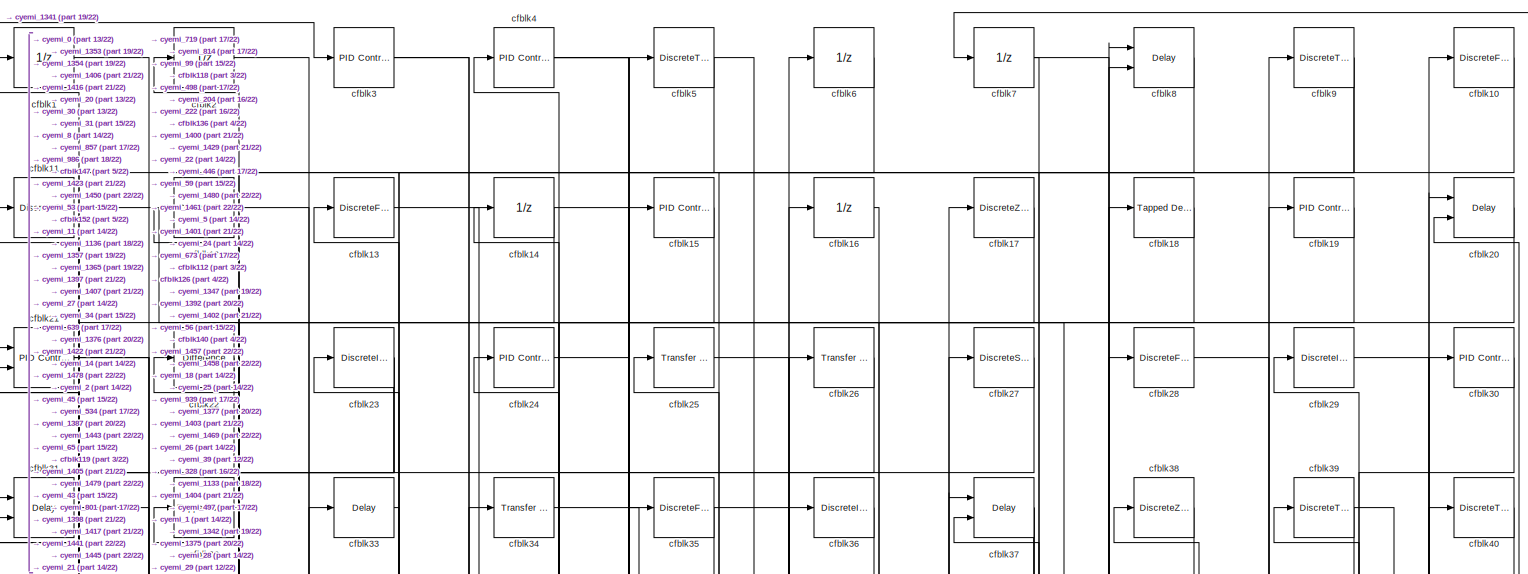
[diagram: root canvas - part 1/22, full width, top band]
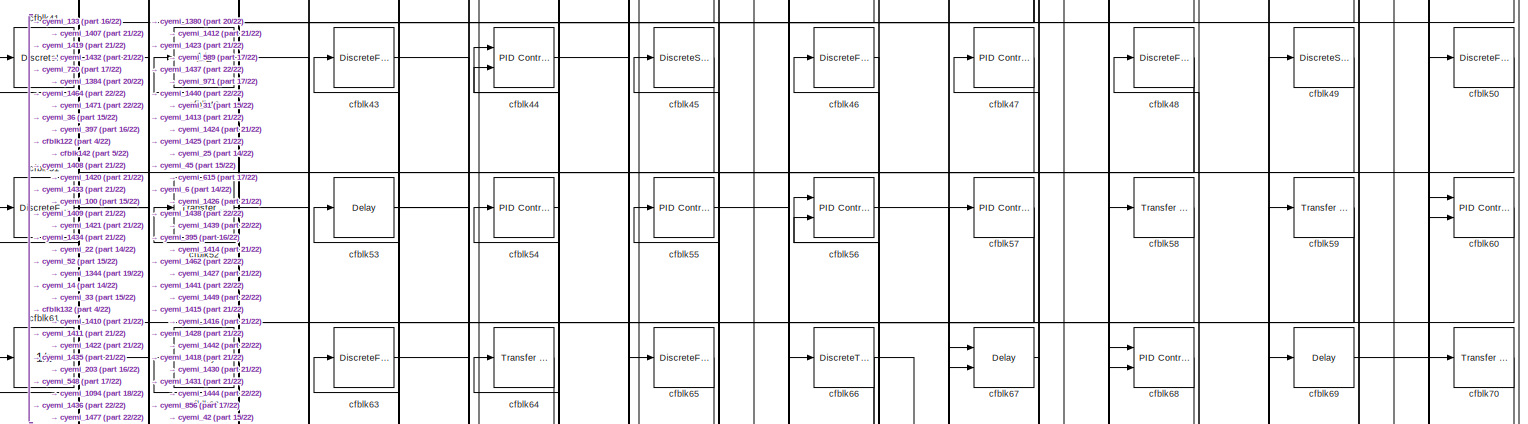
[diagram: root canvas - part 2/22, full width, top band]
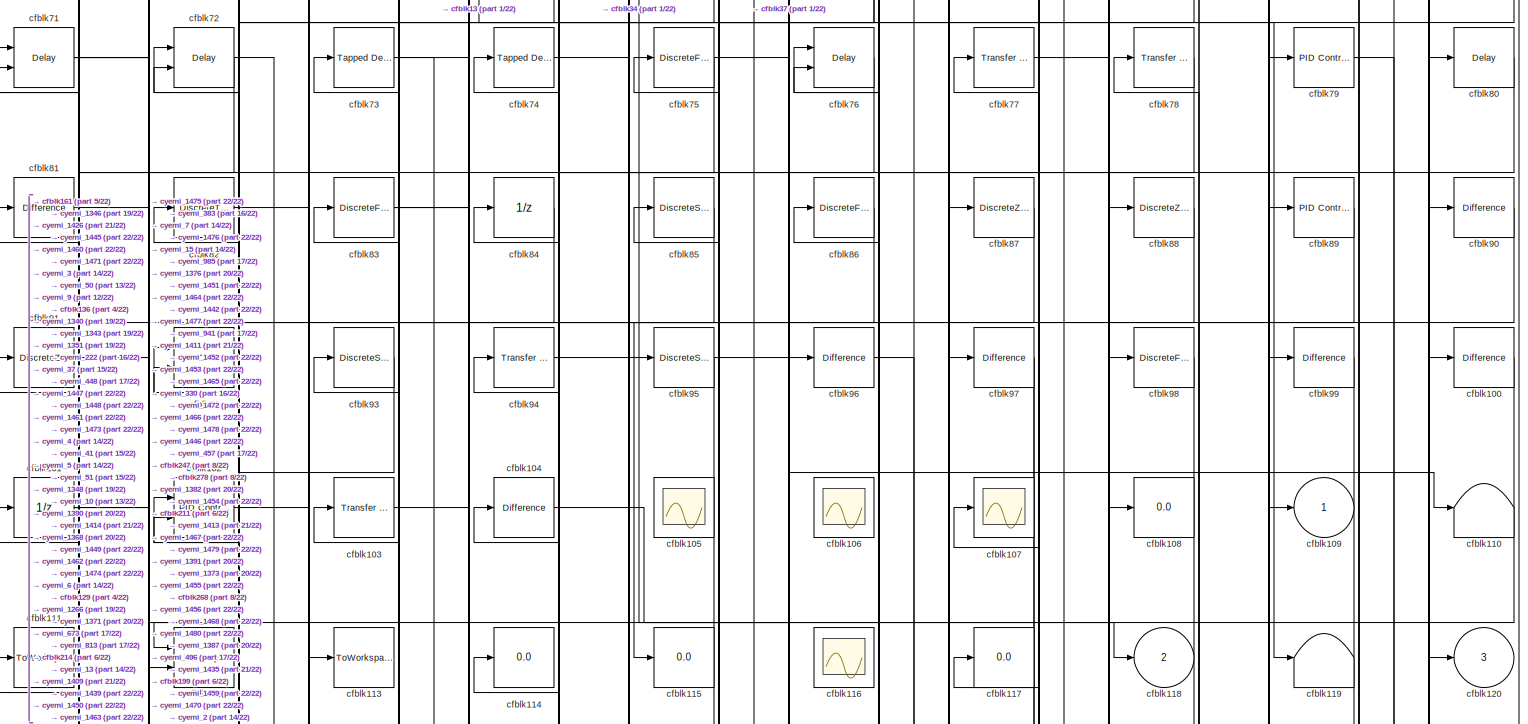
[diagram: root canvas - part 3/22, full width, top band]
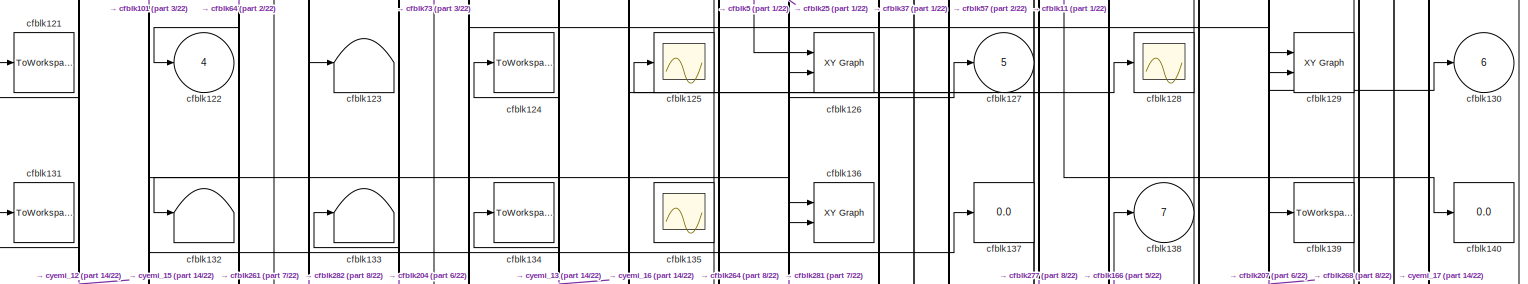
[diagram: root canvas - part 4/22, full width, top band]
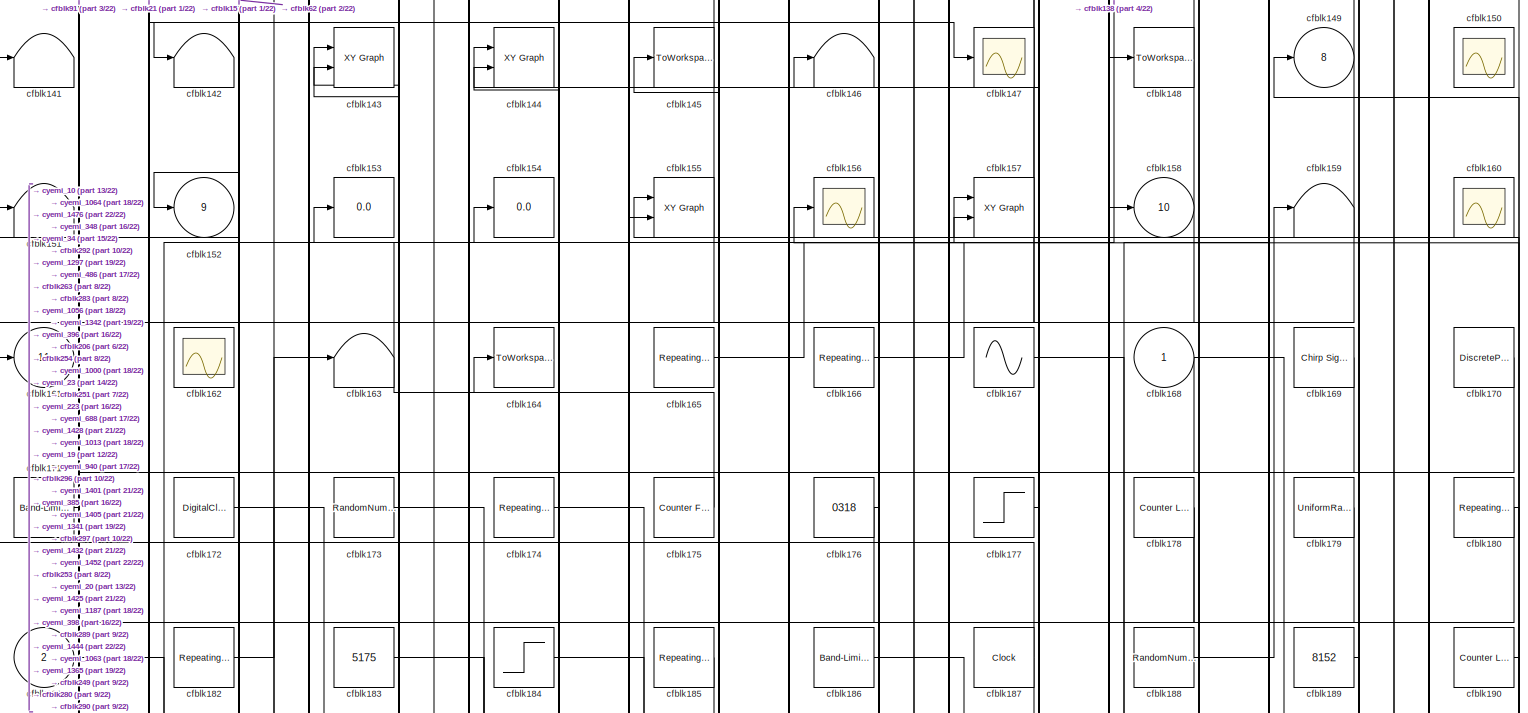
[diagram: root canvas - part 5/22, full width, top band]
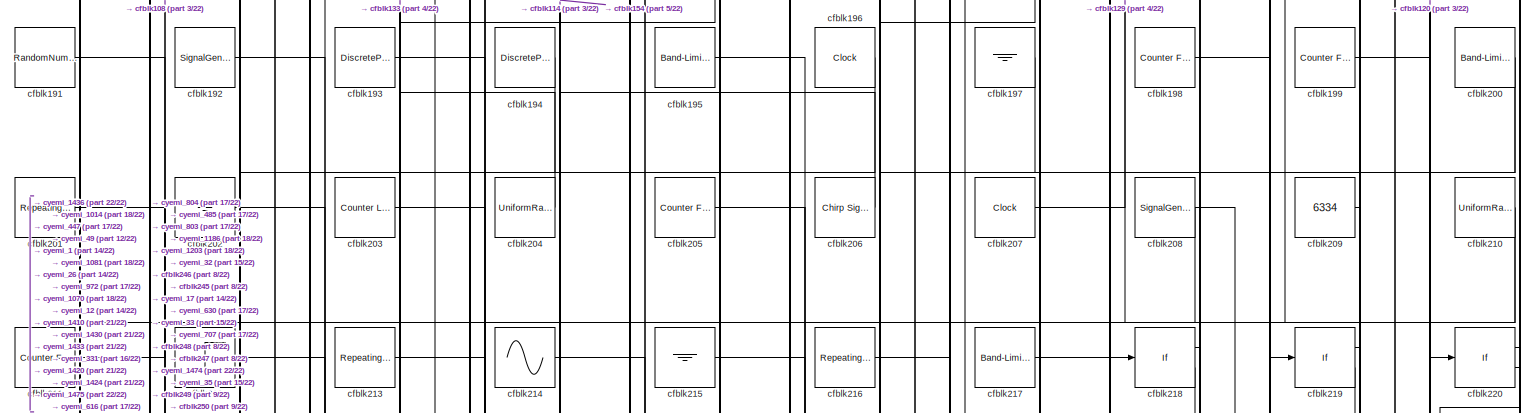
[diagram: root canvas - part 6/22, full width, top band]
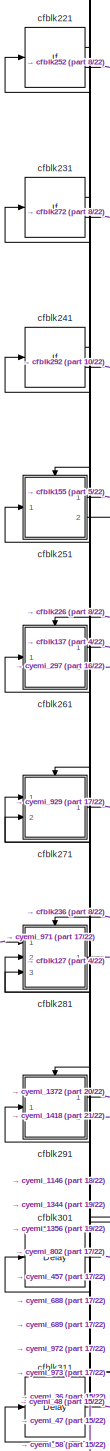
[diagram: root canvas - part 7/22, top left region]
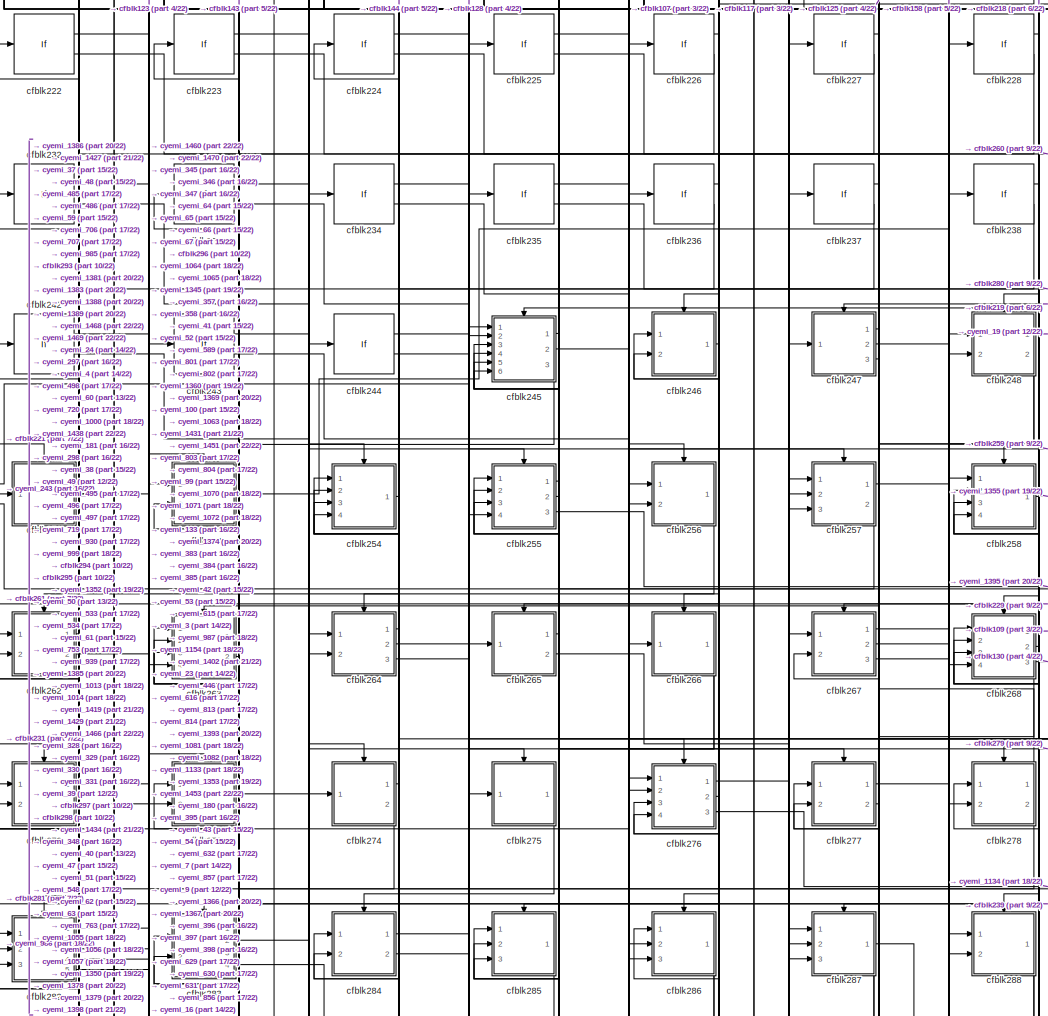
[diagram: root canvas - part 8/22, top center region]
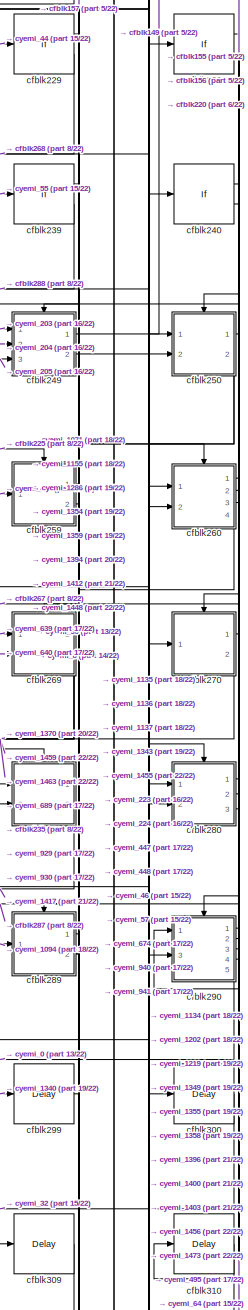
[diagram: root canvas - part 9/22, top right region]
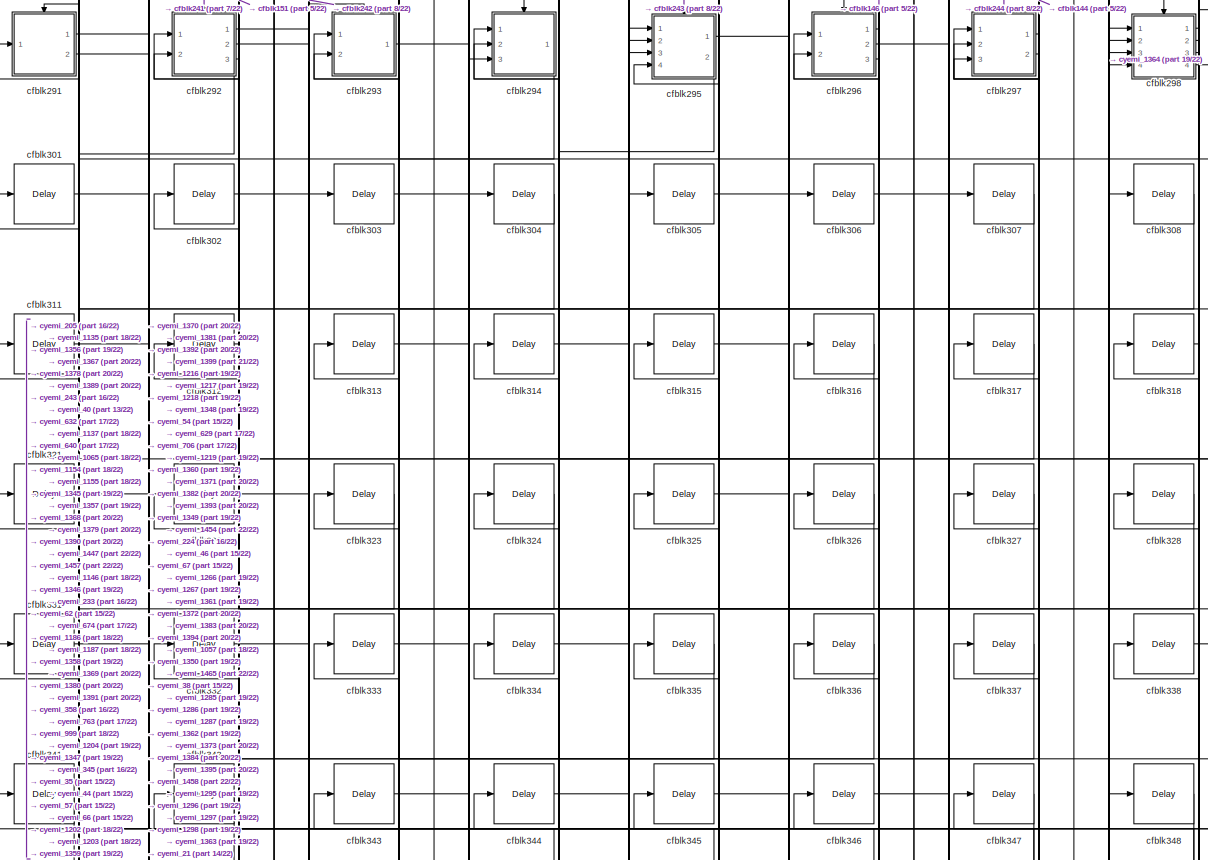
[diagram: root canvas - part 10/22, full width, middle band]
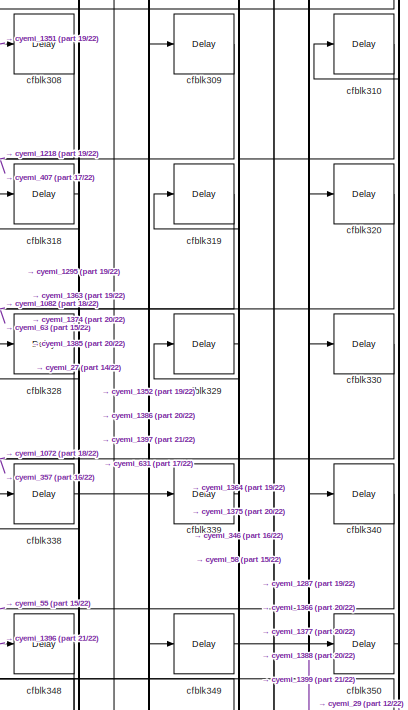
[diagram: root canvas - part 11/22, middle right region]
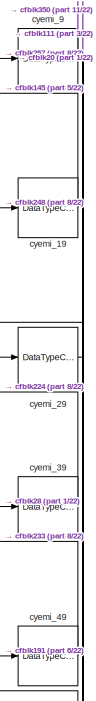
[diagram: root canvas - part 12/22, middle right region]
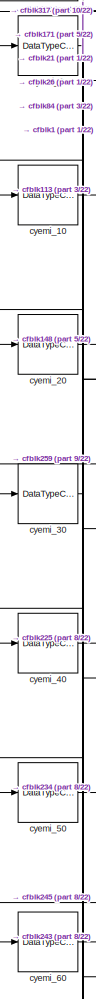
[diagram: root canvas - part 13/22, middle left region]
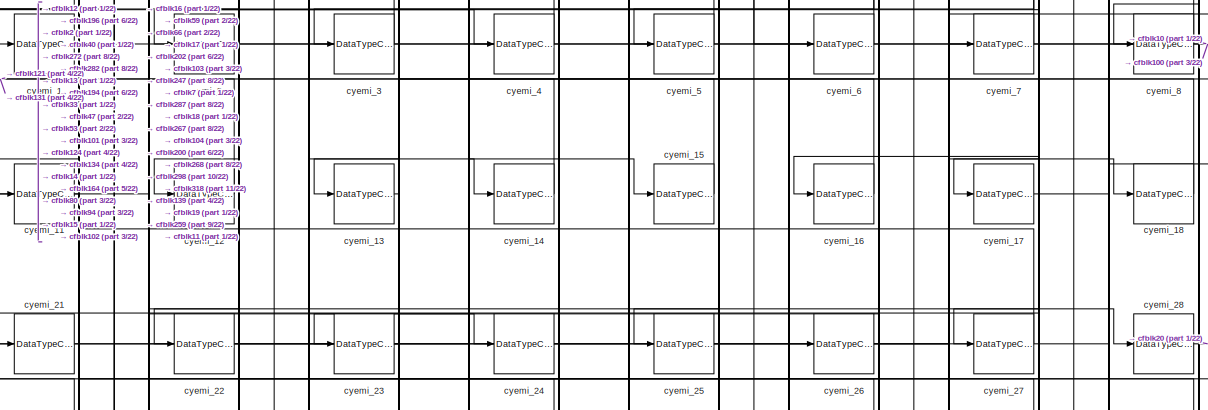
[diagram: root canvas - part 14/22, full width, middle band]
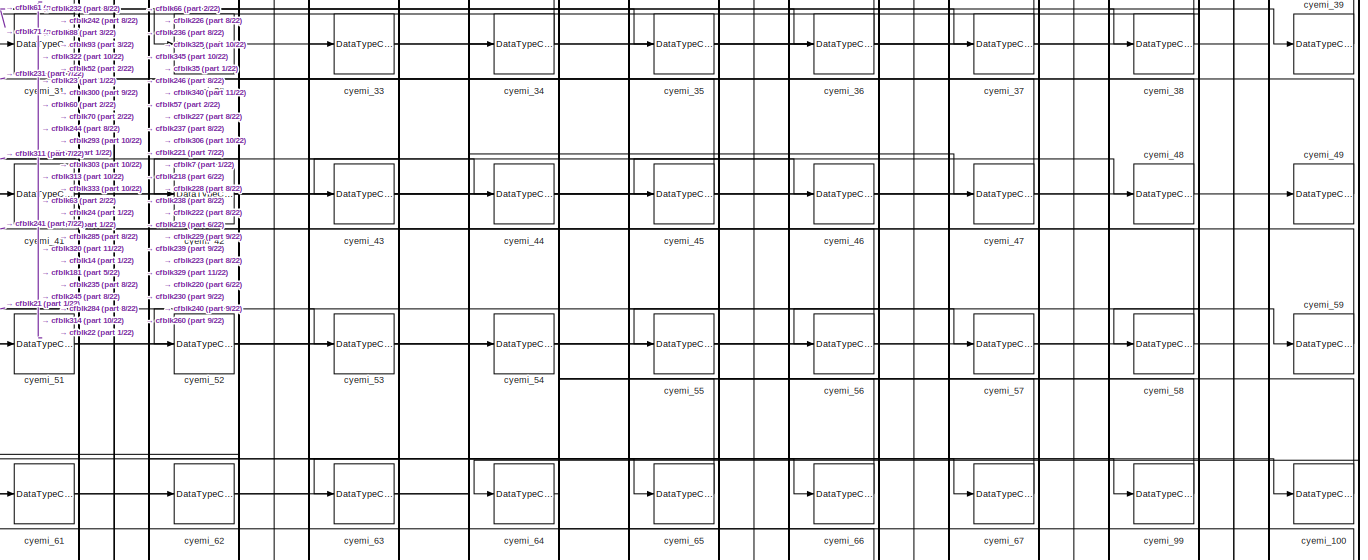
[diagram: root canvas - part 15/22, full width, middle band]
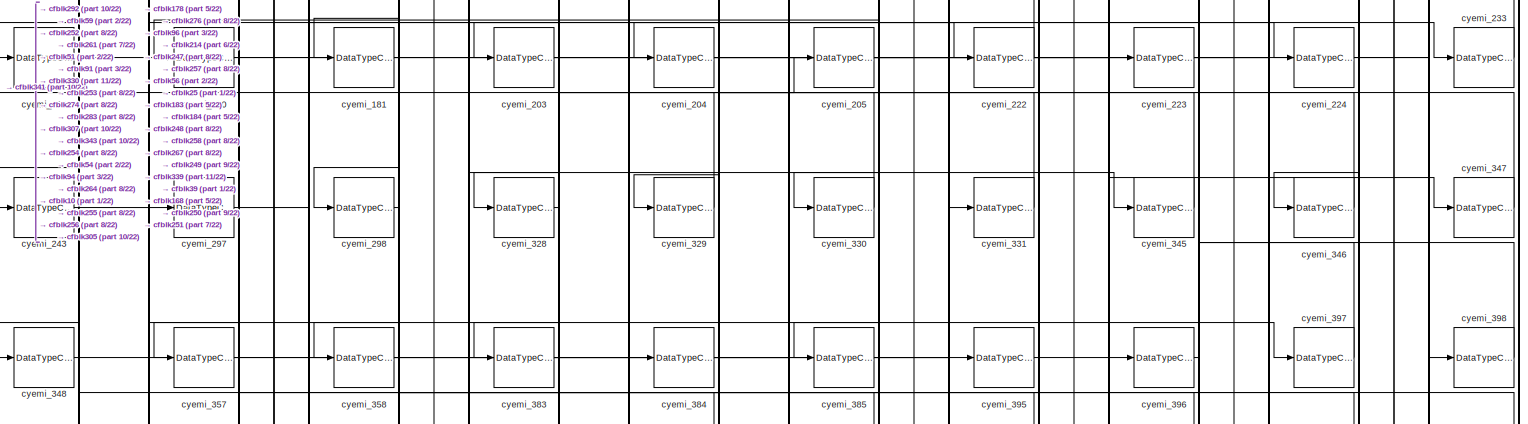
[diagram: root canvas - part 16/22, full width, bottom band]
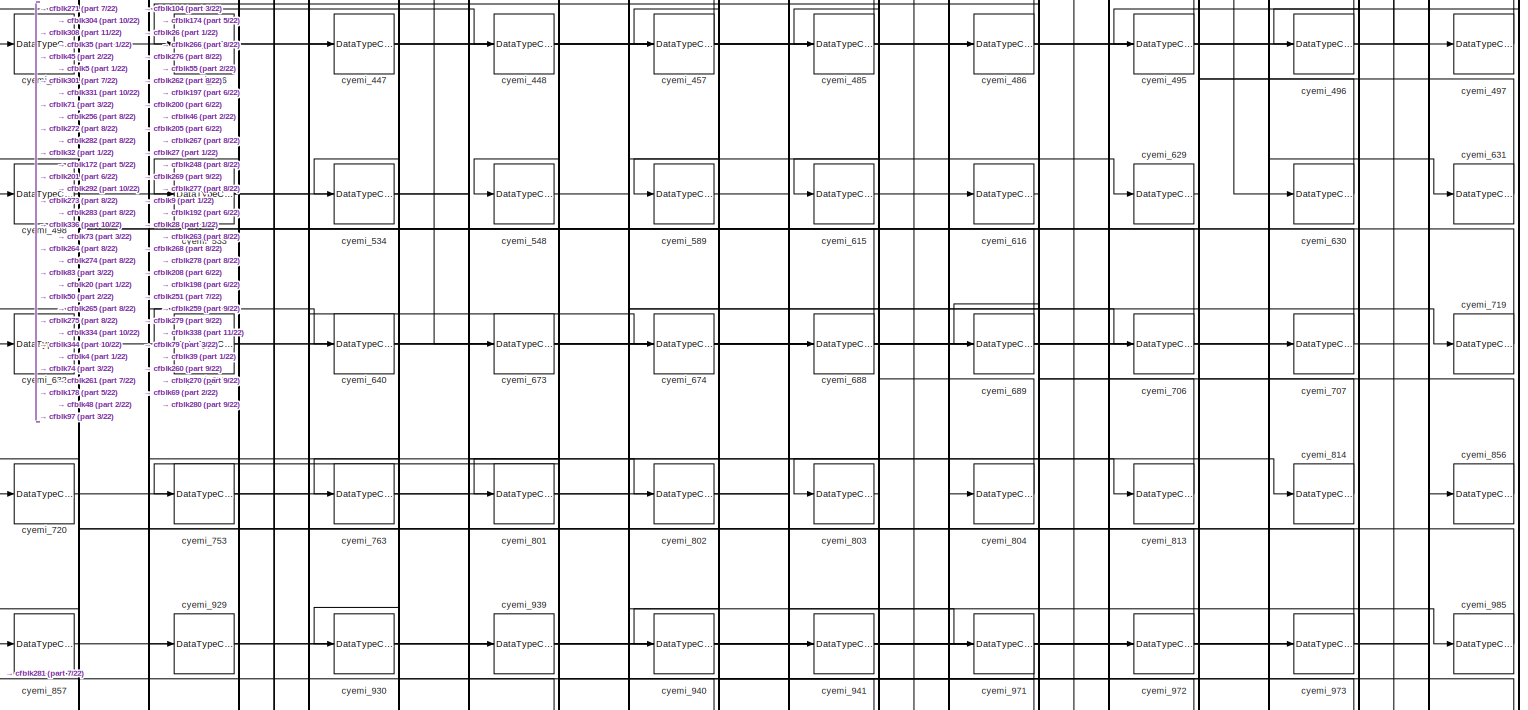
[diagram: root canvas - part 17/22, full width, bottom band]
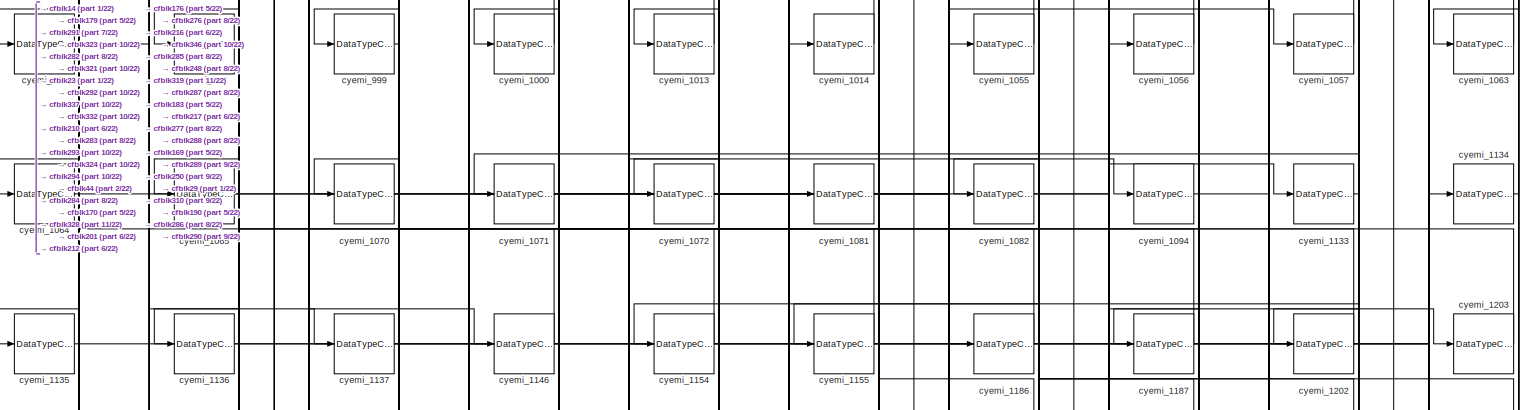
[diagram: root canvas - part 18/22, full width, bottom band]
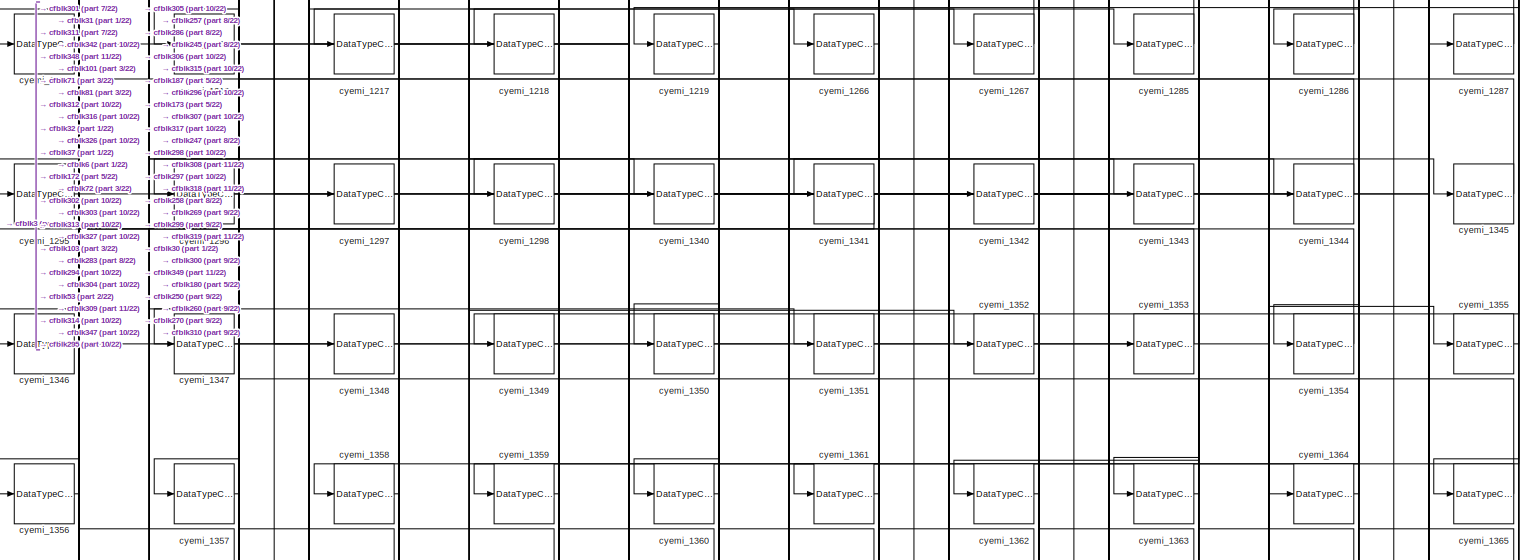
[diagram: root canvas - part 19/22, full width, bottom band]
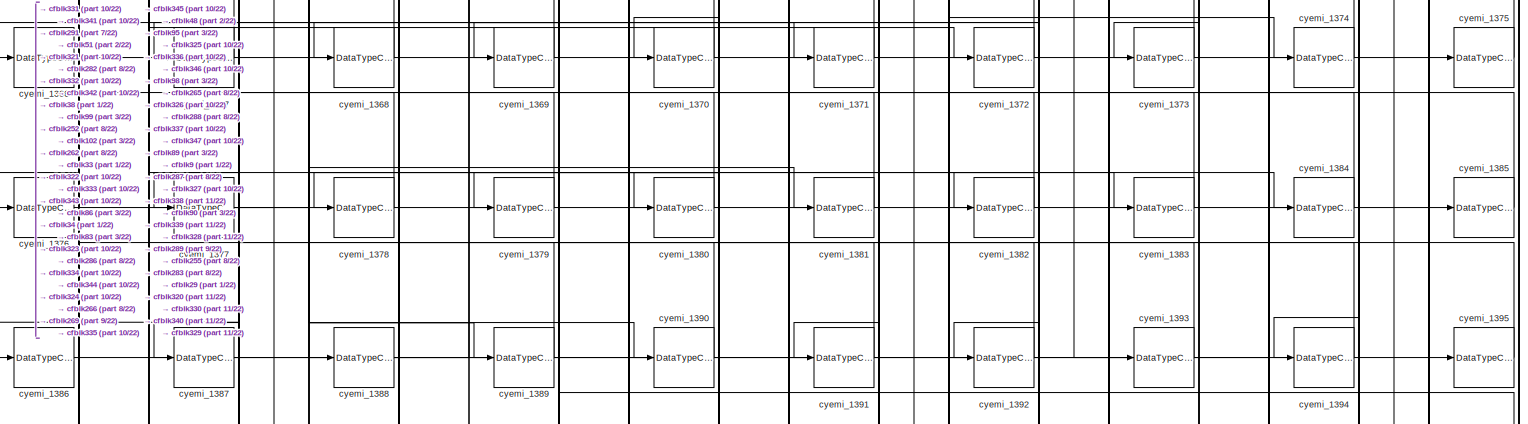
[diagram: root canvas - part 20/22, full width, bottom band]
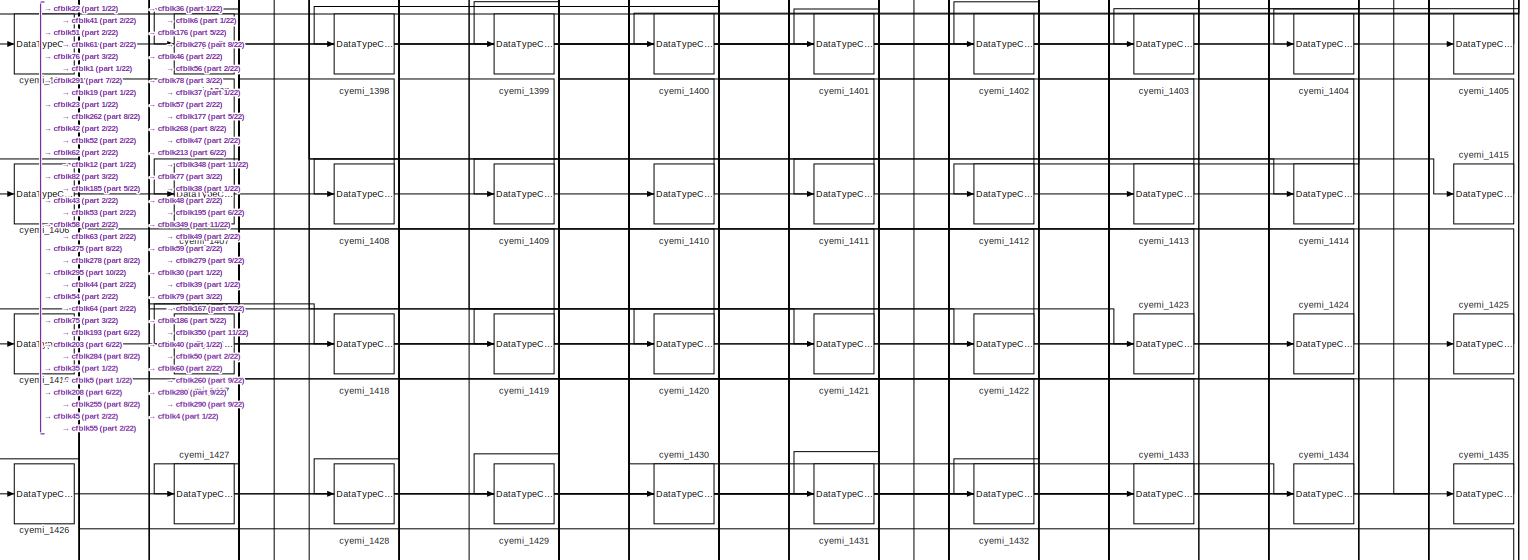
[diagram: root canvas - part 21/22, full width, bottom band]
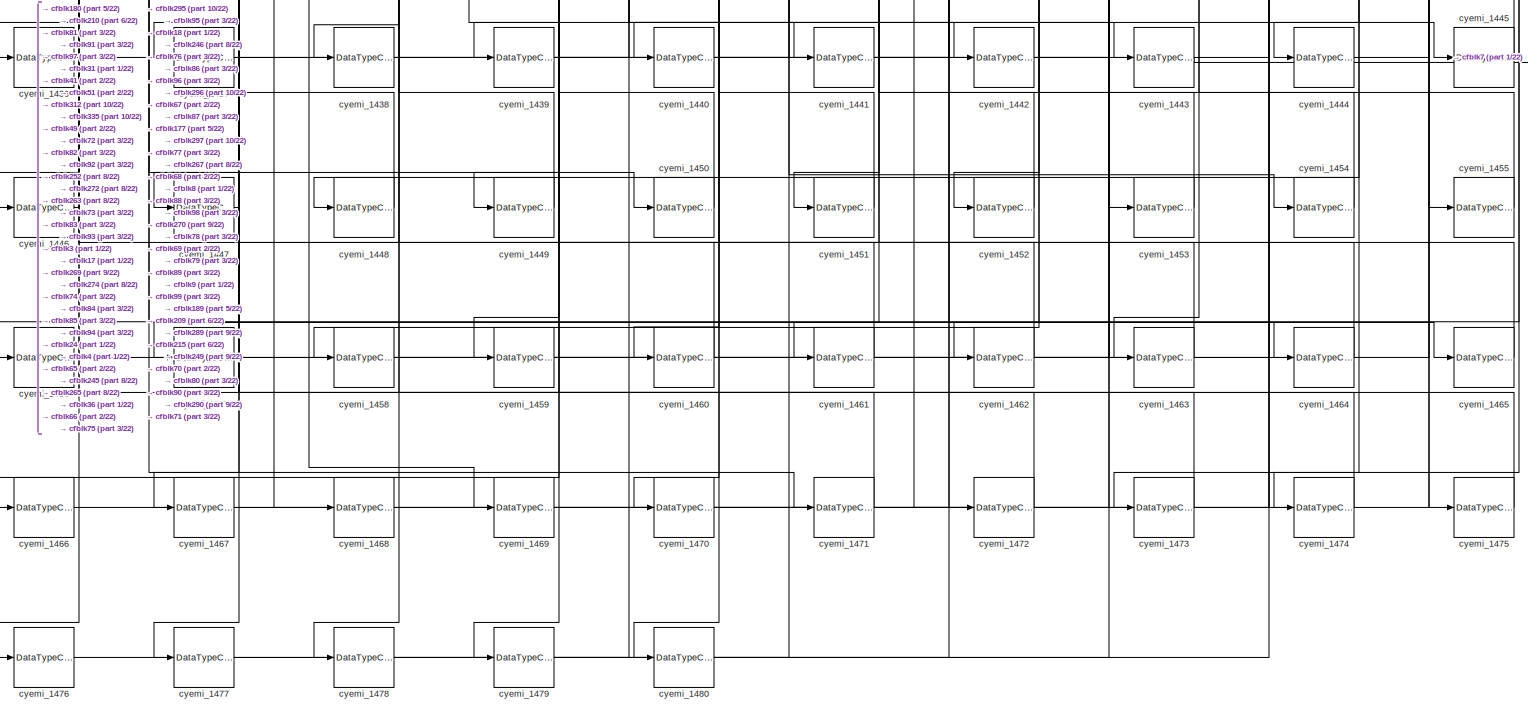
[diagram: root canvas - part 22/22, full width, bottom band]
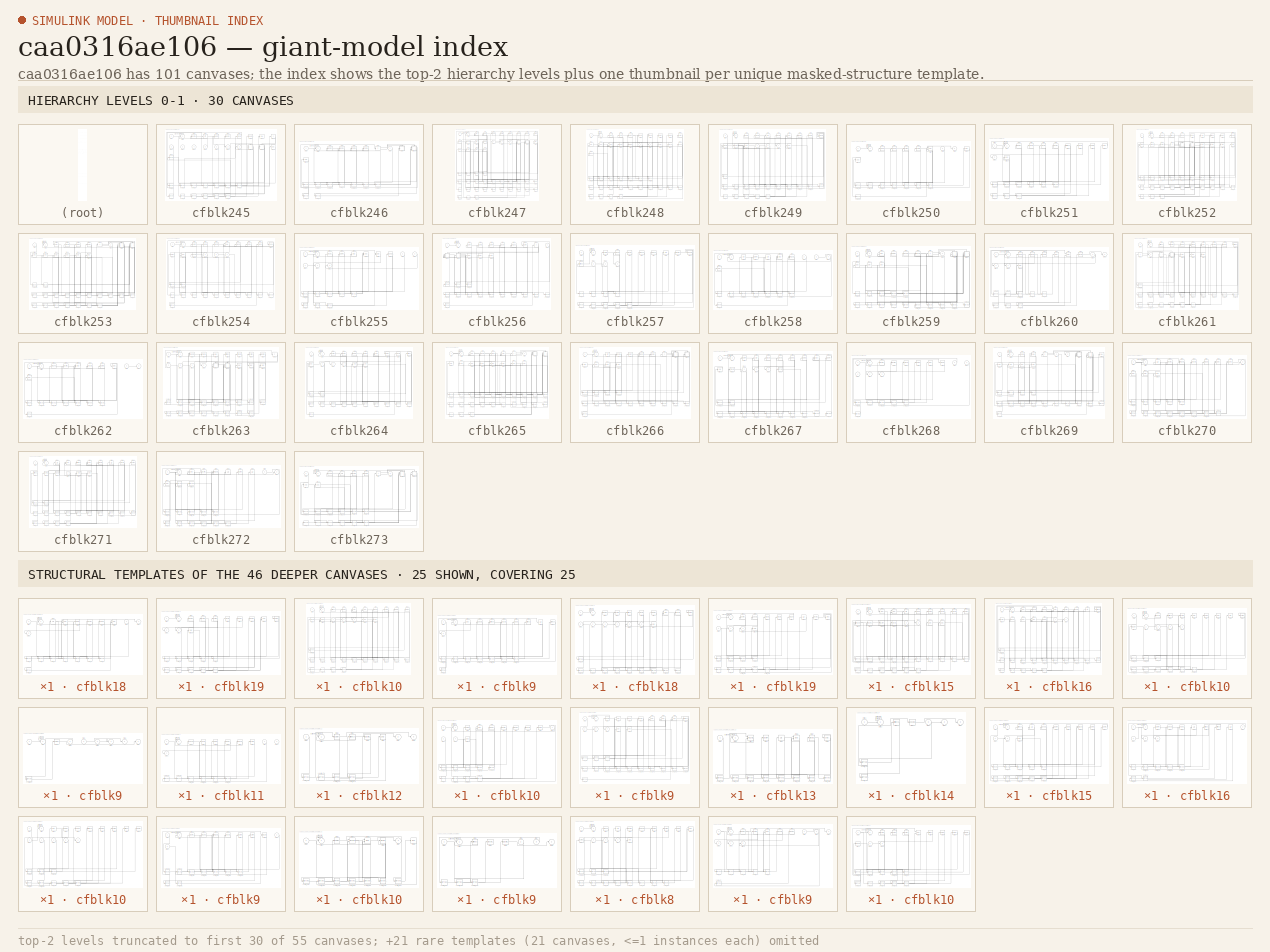
[diagram: thumbnail index - top-2 hierarchy levels (55 canvases (first 30 of 55 shown)) + 25 structural-template representatives of the remaining 46 canvases]
MODEL slx_caa0316ae106
KIND model
CONFIG AbsTol = auto
CONFIG EnableMultiTasking = off
CONFIG FixedStep = auto
CONFIG MaxStep = auto
CONFIG MinStep = auto
CONFIG RelTol = 1e-3
CONFIG SampleTimeConstraint = Unconstrained
CONFIG Solver = VariableStepAuto
CONFIG SolverName = VariableStepAuto
CONFIG StartTime = 0.0
CONFIG StopTime = 10.0
BLOCK [UnitDelay] cfblk1
  InputProcessing = Elements as channels (sample based)
BLOCK [DiscreteFilter] cfblk10
  InputPortMap = u0
  Ports = [1, 1]
  SampleTime = 1
BLOCK [Reference] cfblk100  REF=simulink/Discrete/Difference
  Ports = [1, 1]
  SourceBlock = simulink/Discrete/Difference
  SourceProductBaseCode = SL
  SourceProductName = Simulink
  SourceType = Difference
BLOCK [UnitDelay] cfblk101
  InputProcessing = Elements as channels (sample based)
BLOCK [Reference] cfblk102  REF=simulink/Continuous/PID Controller (2DOF)
  Ports = [2, 1]
  SourceBlock = simulink/Continuous/PID Controller (2DOF)
  SourceProductBaseCode = SL
  SourceProductName = Simulink
  SourceType = PID 2dof
BLOCK [Reference] cfblk103  REF=simulink/Discrete/Transfer Fcn
Real Zero
  Ports = [1, 1]
  SourceBlock = simulink/Discrete/Transfer Fcn\nReal Zero
  SourceProductBaseCode = SL
  SourceProductName = Simulink
  SourceType = Transfer Fcn Real Zero
BLOCK [Reference] cfblk104  REF=simulink/Discrete/Difference
  Ports = [1, 1]
  SourceBlock = simulink/Discrete/Difference
  SourceProductBaseCode = SL
  SourceProductName = Simulink
  SourceType = Difference
BLOCK [Scope] cfblk105
  Floating = on
  NumInputPorts = 1
  Ports = []
  ScopeSpecificationString = Simulink.scopes.TimeScopeBlockCfg('CurrentConfiguration', extmgr.ConfigurationSet(extmgr.Configuration('Core','General UI',true),extmgr.Configuration('Core','Source UI',true),extmgr.Configuration('Sources','WiredSimulink',true),extmgr.Configuration('Visuals','Time Domain',true),extmgr.Configuration('Tools','Plot Navigation',true),extmgr.Configuration('Tools','Measurements',true)),'Version','2018a'...<+1ch>  <repeated x12 — deduplicated; at blocks: cfblk105, cfblk106, cfblk107, cfblk116, cfblk125, cfblk128, cfblk135, cfblk147, cfblk150, cfblk156, cfblk160, cfblk162>
BLOCK [Scope] cfblk106
  Floating = on
  NumInputPorts = 1
  Ports = []
BLOCK [Scope] cfblk107
  Floating = off
  NumInputPorts = 1
  Ports = [1]
BLOCK [Display] cfblk108
  Decimation = 1
  Ports = [1]
BLOCK [Outport] cfblk109
  IconDisplay = Port number
BLOCK [DiscreteStateSpace] cfblk11
BLOCK [Terminator] cfblk110
BLOCK [ToWorkspace] cfblk111
  FixptAsFi = on
  MaxDataPoints = inf
  Ports = [1]
  SampleTime = -1
  Save2DSignal = 3-D array (concatenate along third dimension)
  SaveFormat = Timeseries
  VariableName = hcmzdjv
BLOCK [Reference] cfblk112  REF=simulink/Sinks/XY Graph
  Ports = [2]
  SourceBlock = simulink/Sinks/XY Graph
  SourceProductBaseCode = SL
  SourceProductName = Simulink
  SourceType = XY scope.
BLOCK [ToWorkspace] cfblk113
  FixptAsFi = on
  MaxDataPoints = inf
  Ports = [1]
  SampleTime = -1
  Save2DSignal = 3-D array (concatenate along third dimension)
  SaveFormat = Timeseries
  VariableName = btwpcto
BLOCK [Display] cfblk114
  Decimation = 1
  Ports = [1]
BLOCK [Display] cfblk115
  Decimation = 1
  Ports = [1]
BLOCK [Scope] cfblk116
  Floating = on
  NumInputPorts = 1
  Ports = []
BLOCK [Display] cfblk117
  Decimation = 1
  Ports = [1]
BLOCK [Outport] cfblk118
  IconDisplay = Port number
  Port = 2
BLOCK [Terminator] cfblk119
BLOCK [DiscreteFir] cfblk12
  InputPortMap = u0
  OutputPortMap = o0
  Ports = [1, 1]
  SampleTime = 1
BLOCK [Outport] cfblk120
  IconDisplay = Port number
  Port = 3
BLOCK [ToWorkspace] cfblk121
  FixptAsFi = on
  MaxDataPoints = inf
  Ports = [1]
  SampleTime = -1
  Save2DSignal = 3-D array (concatenate along third dimension)
  SaveFormat = Timeseries
  VariableName = fvxrevr
BLOCK [Outport] cfblk122
  IconDisplay = Port number
  Port = 4
BLOCK [Terminator] cfblk123
BLOCK [ToWorkspace] cfblk124
  FixptAsFi = on
  MaxDataPoints = inf
  Ports = [1]
  SampleTime = -1
  Save2DSignal = 3-D array (concatenate along third dimension)
  SaveFormat = Timeseries
  VariableName = pxfsena
BLOCK [Scope] cfblk125
  Floating = off
  NumInputPorts = 1
  Ports = [1]
BLOCK [Reference] cfblk126  REF=simulink/Sinks/XY Graph
  Ports = [2]
  SourceBlock = simulink/Sinks/XY Graph
  SourceProductBaseCode = SL
  SourceProductName = Simulink
  SourceType = XY scope.
BLOCK [Outport] cfblk127
  IconDisplay = Port number
  Port = 5
BLOCK [Scope] cfblk128
  Floating = off
  NumInputPorts = 1
  Ports = [1]
BLOCK [Reference] cfblk129  REF=simulink/Sinks/XY Graph
  Ports = [2]
  SourceBlock = simulink/Sinks/XY Graph
  SourceProductBaseCode = SL
  SourceProductName = Simulink
  SourceType = XY scope.
BLOCK [DiscreteFilter] cfblk13
  InputPortMap = u0
  Ports = [1, 1]
  SampleTime = 1
BLOCK [Outport] cfblk130
  IconDisplay = Port number
  Port = 6
BLOCK [ToWorkspace] cfblk131
  FixptAsFi = on
  MaxDataPoints = inf
  Ports = [1]
  SampleTime = -1
  Save2DSignal = 3-D array (concatenate along third dimension)
  SaveFormat = Timeseries
  VariableName = uhzxskx
BLOCK [Terminator] cfblk132
BLOCK [Terminator] cfblk133
BLOCK [ToWorkspace] cfblk134
  FixptAsFi = on
  MaxDataPoints = inf
  Ports = [1]
  SampleTime = -1
  Save2DSignal = 3-D array (concatenate along third dimension)
  SaveFormat = Timeseries
  VariableName = rrjtpng
BLOCK [Scope] cfblk135
  Floating = on
  NumInputPorts = 1
  Ports = []
BLOCK [Reference] cfblk136  REF=simulink/Sinks/XY Graph
  Ports = [2]
  SourceBlock = simulink/Sinks/XY Graph
  SourceProductBaseCode = SL
  SourceProductName = Simulink
  SourceType = XY scope.
BLOCK [Display] cfblk137
  Decimation = 1
  Ports = [1]
BLOCK [Outport] cfblk138
  IconDisplay = Port number
  Port = 7
BLOCK [ToWorkspace] cfblk139
  FixptAsFi = on
  MaxDataPoints = inf
  Ports = [1]
  SampleTime = -1
  Save2DSignal = 3-D array (concatenate along third dimension)
  SaveFormat = Timeseries
  VariableName = kmkecre
BLOCK [UnitDelay] cfblk14
  InputProcessing = Elements as channels (sample based)
BLOCK [Display] cfblk140
  Decimation = 1
  Ports = [1]
BLOCK [Terminator] cfblk141
BLOCK [Terminator] cfblk142
BLOCK [Reference] cfblk143  REF=simulink/Sinks/XY Graph
  Ports = [2]
  SourceBlock = simulink/Sinks/XY Graph
  SourceProductBaseCode = SL
  SourceProductName = Simulink
  SourceType = XY scope.
BLOCK [Reference] cfblk144  REF=simulink/Sinks/XY Graph
  Ports = [2]
  SourceBlock = simulink/Sinks/XY Graph
  SourceProductBaseCode = SL
  SourceProductName = Simulink
  SourceType = XY scope.
BLOCK [ToWorkspace] cfblk145
  FixptAsFi = on
  MaxDataPoints = inf
  Ports = [1]
  SampleTime = -1
  Save2DSignal = 3-D array (concatenate along third dimension)
  SaveFormat = Timeseries
  VariableName = hvmekia
BLOCK [Terminator] cfblk146
BLOCK [Scope] cfblk147
  Floating = off
  NumInputPorts = 1
  Ports = [1]
BLOCK [ToWorkspace] cfblk148
  FixptAsFi = on
  MaxDataPoints = inf
  Ports = [1]
  SampleTime = -1
  Save2DSignal = 3-D array (concatenate along third dimension)
  SaveFormat = Timeseries
  VariableName = eadgrso
BLOCK [Outport] cfblk149
  IconDisplay = Port number
  Port = 8
BLOCK [Reference] cfblk15  REF=simulink/Continuous/PID Controller
  Ports = [1, 1]
  SourceBlock = simulink/Continuous/PID Controller
  SourceProductBaseCode = SL
  SourceProductName = Simulink
  SourceType = PID 1dof
BLOCK [Scope] cfblk150
  Floating = on
  NumInputPorts = 1
  Ports = []
BLOCK [Terminator] cfblk151
BLOCK [Outport] cfblk152
  IconDisplay = Port number
  Port = 9
BLOCK [Display] cfblk153
  Decimation = 1
  Ports = [1]
BLOCK [Display] cfblk154
  Decimation = 1
  Ports = [1]
BLOCK [Reference] cfblk155  REF=simulink/Sinks/XY Graph
  Ports = [2]
  SourceBlock = simulink/Sinks/XY Graph
  SourceProductBaseCode = SL
  SourceProductName = Simulink
  SourceType = XY scope.
BLOCK [Scope] cfblk156
  Floating = off
  NumInputPorts = 1
  Ports = [1]
BLOCK [Reference] cfblk157  REF=simulink/Sinks/XY Graph
  Ports = [2]
  SourceBlock = simulink/Sinks/XY Graph
  SourceProductBaseCode = SL
  SourceProductName = Simulink
  SourceType = XY scope.
BLOCK [Outport] cfblk158
  IconDisplay = Port number
  Port = 10
BLOCK [Terminator] cfblk159
BLOCK [UnitDelay] cfblk16
  InputProcessing = Elements as channels (sample based)
BLOCK [Scope] cfblk160
  Floating = on
  NumInputPorts = 1
  Ports = []
BLOCK [Outport] cfblk161
  IconDisplay = Port number
  Port = 11
BLOCK [Scope] cfblk162
  Floating = on
  NumInputPorts = 1
  Ports = []
BLOCK [Terminator] cfblk163
BLOCK [ToWorkspace] cfblk164
  FixptAsFi = on
  MaxDataPoints = inf
  Ports = [1]
  SampleTime = -1
  Save2DSignal = 3-D array (concatenate along third dimension)
  SaveFormat = Timeseries
  VariableName = thvkhab
BLOCK [Reference] cfblk165  REF=simulink/Sources/Repeating
Sequence
Stair
  Ports = [0, 1]
  SourceBlock = simulink/Sources/Repeating\nSequence\nStair
  SourceProductBaseCode = SL
  SourceProductName = Simulink
  SourceType = Repeating Sequence Stair
BLOCK [Reference] cfblk166  REF=simulink/Sources/Repeating
Sequence
Interpolated
  Ports = [0, 1]
  SourceBlock = simulink/Sources/Repeating\nSequence\nInterpolated
  SourceProductBaseCode = SL
  SourceProductName = Simulink
  SourceType = Repeating Sequence Interpolated
BLOCK [Sin] cfblk167
  Ports = [0, 1]
  SampleTime = 0
BLOCK [Inport] cfblk168
  IconDisplay = Port number
BLOCK [Reference] cfblk169  REF=simulink/Sources/Chirp Signal
  Ports = [0, 1]
  SourceBlock = simulink/Sources/Chirp Signal
  SourceProductBaseCode = SL
  SourceProductName = Simulink
  SourceType = chirp
BLOCK [DiscreteZeroPole] cfblk17
  Gain = 1
  Poles = [0 0.5]
BLOCK [DiscretePulseGenerator] cfblk170
  Period = 10
  Ports = [0, 1]
  PulseType = Time based
  PulseWidth = 5
BLOCK [Reference] cfblk171  REF=simulink/Sources/Band-Limited
White Noise
  Ports = [0, 1]
  SourceBlock = simulink/Sources/Band-Limited\nWhite Noise
  SourceProductBaseCode = SL
  SourceProductName = Simulink
  SourceType = Band-Limited White Noise.
BLOCK [DigitalClock] cfblk172
BLOCK [RandomNumber] cfblk173
  SampleTime = 0.1
BLOCK [Reference] cfblk174  REF=simulink/Sources/Repeating
Sequence
Interpolated
  Ports = [0, 1]
  SourceBlock = simulink/Sources/Repeating\nSequence\nInterpolated
  SourceProductBaseCode = SL
  SourceProductName = Simulink
  SourceType = Repeating Sequence Interpolated
BLOCK [Reference] cfblk175  REF=simulink/Sources/Counter
Free-Running
  Ports = [0, 1]
  SourceBlock = simulink/Sources/Counter\nFree-Running
  SourceProductBaseCode = SL
  SourceProductName = Simulink
  SourceType = Counter Free-Running
BLOCK [Constant] cfblk176
  OutDataTypeStr = double
  SampleTime = 1
  Value = 0318
BLOCK [Step] cfblk177
  After = 82
  SampleTime = 0
BLOCK [Reference] cfblk178  REF=simulink/Sources/Counter
Limited
  Ports = [0, 1]
  SourceBlock = simulink/Sources/Counter\nLimited
  SourceProductBaseCode = SL
  SourceProductName = Simulink
  SourceType = Counter Limited
BLOCK [UniformRandomNumber] cfblk179
  SampleTime = 0.1
BLOCK [Reference] cfblk18  REF=simulink/Discrete/Tapped Delay
  Ports = [1, 1]
  SourceBlock = simulink/Discrete/Tapped Delay
  SourceProductBaseCode = SL
  SourceProductName = Simulink
  SourceType = Tapped Delay Line
BLOCK [Reference] cfblk180  REF=simulink/Sources/Repeating
Sequence
Interpolated
  Ports = [0, 1]
  SourceBlock = simulink/Sources/Repeating\nSequence\nInterpolated
  SourceProductBaseCode = SL
  SourceProductName = Simulink
  SourceType = Repeating Sequence Interpolated
BLOCK [Inport] cfblk181
  IconDisplay = Port number
  Port = 2
BLOCK [Reference] cfblk182  REF=simulink/Sources/Repeating
Sequence
Stair
  Ports = [0, 1]
  SourceBlock = simulink/Sources/Repeating\nSequence\nStair
  SourceProductBaseCode = SL
  SourceProductName = Simulink
  SourceType = Repeating Sequence Stair
BLOCK [Constant] cfblk183
  OutDataTypeStr = double
  SampleTime = 1
  Value = 5175
BLOCK [Step] cfblk184
  After = 84
  SampleTime = 0
BLOCK [Reference] cfblk185  REF=simulink/Sources/Repeating
Sequence
  Ports = [0, 1]
  SourceBlock = simulink/Sources/Repeating\nSequence
  SourceProductBaseCode = SL
  SourceProductName = Simulink
  SourceType = Repeating table
BLOCK [Reference] cfblk186  REF=simulink/Sources/Band-Limited
White Noise
  Ports = [0, 1]
  SourceBlock = simulink/Sources/Band-Limited\nWhite Noise
  SourceProductBaseCode = SL
  SourceProductName = Simulink
  SourceType = Band-Limited White Noise.
BLOCK [Clock] cfblk187
BLOCK [RandomNumber] cfblk188
  SampleTime = 0.1
BLOCK [Constant] cfblk189
  OutDataTypeStr = double
  SampleTime = 1
  Value = 8152
BLOCK [Reference] cfblk19  REF=simulink/Continuous/PID Controller
  Ports = [1, 1]
  SourceBlock = simulink/Continuous/PID Controller
  SourceProductBaseCode = SL
  SourceProductName = Simulink
  SourceType = PID 1dof
BLOCK [Reference] cfblk190  REF=simulink/Sources/Counter
Limited
  Ports = [0, 1]
  SourceBlock = simulink/Sources/Counter\nLimited
  SourceProductBaseCode = SL
  SourceProductName = Simulink
  SourceType = Counter Limited
BLOCK [RandomNumber] cfblk191
  SampleTime = 0.1
BLOCK [SignalGenerator] cfblk192
  Ports = [0, 1]
  Units = rad/sec
BLOCK [DiscretePulseGenerator] cfblk193
  Period = 10
  Ports = [0, 1]
  PulseType = Time based
  PulseWidth = 5
BLOCK [DiscretePulseGenerator] cfblk194
  Period = 10
  Ports = [0, 1]
  PulseType = Time based
  PulseWidth = 5
BLOCK [Reference] cfblk195  REF=simulink/Sources/Band-Limited
White Noise
  Ports = [0, 1]
  SourceBlock = simulink/Sources/Band-Limited\nWhite Noise
  SourceProductBaseCode = SL
  SourceProductName = Simulink
  SourceType = Band-Limited White Noise.
BLOCK [Clock] cfblk196
BLOCK [Ground] cfblk197
BLOCK [Reference] cfblk198  REF=simulink/Sources/Counter
Free-Running
  Ports = [0, 1]
  SourceBlock = simulink/Sources/Counter\nFree-Running
  SourceProductBaseCode = SL
  SourceProductName = Simulink
  SourceType = Counter Free-Running
BLOCK [Reference] cfblk199  REF=simulink/Sources/Counter
Free-Running
  Ports = [0, 1]
  SourceBlock = simulink/Sources/Counter\nFree-Running
  SourceProductBaseCode = SL
  SourceProductName = Simulink
  SourceType = Counter Free-Running
BLOCK [UnitDelay] cfblk2
  InputProcessing = Elements as channels (sample based)
BLOCK [Delay] cfblk20
  DelayLengthSource = Input port
  InputPortMap = u0,p1
  Ports = [2, 1]
  SampleTime = 1
BLOCK [Reference] cfblk200  REF=simulink/Sources/Band-Limited
White Noise
  Ports = [0, 1]
  SourceBlock = simulink/Sources/Band-Limited\nWhite Noise
  SourceProductBaseCode = SL
  SourceProductName = Simulink
  SourceType = Band-Limited White Noise.
BLOCK [Reference] cfblk201  REF=simulink/Sources/Repeating
Sequence
  Ports = [0, 1]
  SourceBlock = simulink/Sources/Repeating\nSequence
  SourceProductBaseCode = SL
  SourceProductName = Simulink
  SourceType = Repeating table
BLOCK [Ground] cfblk202
BLOCK [Reference] cfblk203  REF=simulink/Sources/Counter
Limited
  Ports = [0, 1]
  SourceBlock = simulink/Sources/Counter\nLimited
  SourceProductBaseCode = SL
  SourceProductName = Simulink
  SourceType = Counter Limited
BLOCK [UniformRandomNumber] cfblk204
  SampleTime = 0.1
BLOCK [Reference] cfblk205  REF=simulink/Sources/Counter
Free-Running
  Ports = [0, 1]
  SourceBlock = simulink/Sources/Counter\nFree-Running
  SourceProductBaseCode = SL
  SourceProductName = Simulink
  SourceType = Counter Free-Running
BLOCK [Reference] cfblk206  REF=simulink/Sources/Chirp Signal
  Ports = [0, 1]
  SourceBlock = simulink/Sources/Chirp Signal
  SourceProductBaseCode = SL
  SourceProductName = Simulink
  SourceType = chirp
BLOCK [Clock] cfblk207
BLOCK [SignalGenerator] cfblk208
  Ports = [0, 1]
  Units = rad/sec
BLOCK [Constant] cfblk209
  OutDataTypeStr = double
  SampleTime = 1
  Value = 6334
BLOCK [Reference] cfblk21  REF=simulink/Continuous/PID Controller (2DOF)
  Ports = [2, 1]
  SourceBlock = simulink/Continuous/PID Controller (2DOF)
  SourceProductBaseCode = SL
  SourceProductName = Simulink
  SourceType = PID 2dof
BLOCK [UniformRandomNumber] cfblk210
  SampleTime = 0.1
BLOCK [Reference] cfblk211  REF=simulink/Sources/Counter
Free-Running
  Ports = [0, 1]
  SourceBlock = simulink/Sources/Counter\nFree-Running
  SourceProductBaseCode = SL
  SourceProductName = Simulink
  SourceType = Counter Free-Running
BLOCK [Step] cfblk212
  After = 96
  SampleTime = 0
BLOCK [Reference] cfblk213  REF=simulink/Sources/Repeating
Sequence
Interpolated
  Ports = [0, 1]
  SourceBlock = simulink/Sources/Repeating\nSequence\nInterpolated
  SourceProductBaseCode = SL
  SourceProductName = Simulink
  SourceType = Repeating Sequence Interpolated
BLOCK [Sin] cfblk214
  Ports = [0, 1]
  SampleTime = 0
BLOCK [Ground] cfblk215
BLOCK [Reference] cfblk216  REF=simulink/Sources/Repeating
Sequence
Interpolated
  Ports = [0, 1]
  SourceBlock = simulink/Sources/Repeating\nSequence\nInterpolated
  SourceProductBaseCode = SL
  SourceProductName = Simulink
  SourceType = Repeating Sequence Interpolated
BLOCK [Reference] cfblk217  REF=simulink/Sources/Band-Limited
White Noise
  Ports = [0, 1]
  SourceBlock = simulink/Sources/Band-Limited\nWhite Noise
  SourceProductBaseCode = SL
  SourceProductName = Simulink
  SourceType = Band-Limited White Noise.
BLOCK [If] cfblk218
  Ports = [1, 2]
  SampleTime = 1
BLOCK [If] cfblk219
  Ports = [1, 2]
  SampleTime = 1
BLOCK [Reference] cfblk22  REF=simulink/Discrete/Difference
  Ports = [1, 1]
  SourceBlock = simulink/Discrete/Difference
  SourceProductBaseCode = SL
  SourceProductName = Simulink
  SourceType = Difference
BLOCK [If] cfblk220
  Ports = [1, 2]
  SampleTime = 1
BLOCK [If] cfblk221
  Ports = [1, 2]
  SampleTime = 1
BLOCK [If] cfblk222
  Ports = [1, 2]
  SampleTime = 1
BLOCK [If] cfblk223
  Ports = [1, 2]
  SampleTime = 1
BLOCK [If] cfblk224
  Ports = [1, 2]
  SampleTime = 1
BLOCK [If] cfblk225
  Ports = [1, 2]
  SampleTime = 1
BLOCK [If] cfblk226
  Ports = [1, 2]
  SampleTime = 1
BLOCK [If] cfblk227
  Ports = [1, 2]
  SampleTime = 1
BLOCK [If] cfblk228
  Ports = [1, 2]
  SampleTime = 1
BLOCK [If] cfblk229
  Ports = [1, 2]
  SampleTime = 1
BLOCK [DiscreteIntegrator] cfblk23
  ICPrevOutput = DiscIntNeverNeededParam
  ICPrevScaledInput = DiscIntNeverNeededParam
  InitialConditionSetting = Auto
  OutDataTypeStr = double
  Ports = [1, 1]
BLOCK [If] cfblk230
  Ports = [1, 2]
  SampleTime = 1
BLOCK [If] cfblk231
  Ports = [1, 2]
  SampleTime = 1
BLOCK [If] cfblk232
  Ports = [1, 2]
  SampleTime = 1
BLOCK [If] cfblk233
  Ports = [1, 2]
  SampleTime = 1
BLOCK [If] cfblk234
  Ports = [1, 2]
  SampleTime = 1
BLOCK [If] cfblk235
  Ports = [1, 2]
  SampleTime = 1
BLOCK [If] cfblk236
  Ports = [1, 2]
  SampleTime = 1
BLOCK [If] cfblk237
  Ports = [1, 2]
  SampleTime = 1
BLOCK [If] cfblk238
  Ports = [1, 2]
  SampleTime = 1
BLOCK [If] cfblk239
  Ports = [1, 2]
  SampleTime = 1
BLOCK [Reference] cfblk24  REF=simulink/Continuous/PID Controller
  Ports = [1, 1]
  SourceBlock = simulink/Continuous/PID Controller
  SourceProductBaseCode = SL
  SourceProductName = Simulink
  SourceType = PID 1dof
BLOCK [If] cfblk240
  Ports = [1, 2]
  SampleTime = 1
BLOCK [If] cfblk241
  Ports = [1, 2]
  SampleTime = 1
BLOCK [If] cfblk242
  Ports = [1, 2]
  SampleTime = 1
BLOCK [If] cfblk243
  Ports = [1, 2]
  SampleTime = 1
BLOCK [If] cfblk244
  Ports = [1, 2]
  SampleTime = 1
BLOCK [SubSystem] cfblk245
  Ports = [6, 3, 0, 0, 0, 0, 0, 1]
  RequestExecContextInheritance = off
  TreatAsAtomicUnit = on
BLOCK [ActionPort] cfblk245/Action Port
  ActionType = then
BLOCK [Inport] cfblk245/cfblk1
  IconDisplay = Port number
BLOCK [If] cfblk245/cfblk10
  Ports = [1, 2]
  SampleTime = 1
BLOCK [Inport] cfblk245/cfblk11
  IconDisplay = Port number
  Port = 2
BLOCK [Inport] cfblk245/cfblk12
  IconDisplay = Port number
  Port = 3
BLOCK [Inport] cfblk245/cfblk13
  IconDisplay = Port number
  Port = 4
BLOCK [Inport] cfblk245/cfblk14
  IconDisplay = Port number
  Port = 5
BLOCK [Inport] cfblk245/cfblk15
  IconDisplay = Port number
  Port = 6
BLOCK [Outport] cfblk245/cfblk16
  IconDisplay = Port number
  Port = 2
BLOCK [Outport] cfblk245/cfblk17
  IconDisplay = Port number
  Port = 3
BLOCK [SubSystem] cfblk245/cfblk18
  Ports = [2, 3, 0, 0, 0, 0, 0, 1]
  RequestExecContextInheritance = off
  TreatAsAtomicUnit = on
BLOCK [ActionPort] cfblk245/cfblk18/Action Port
  ActionType = then
BLOCK [Inport] cfblk245/cfblk18/cfblk1
  IconDisplay = Port number
BLOCK [Outport] cfblk245/cfblk18/cfblk10
  IconDisplay = Port number
  Port = 2
BLOCK [Outport] cfblk245/cfblk18/cfblk11
  IconDisplay = Port number
  Port = 3
BLOCK [Outport] cfblk245/cfblk18/cfblk2
  IconDisplay = Port number
BLOCK [UnitDelay] cfblk245/cfblk18/cfblk3
  InputProcessing = Elements as channels (sample based)
  SampleTime = -1
BLOCK [Delay] cfblk245/cfblk18/cfblk4
  InputPortMap = u0,e6
  Ports = [2, 1]
  ShowEnablePort = on
BLOCK [DiscreteFilter] cfblk245/cfblk18/cfblk5
  InputPortMap = u0
  Ports = [1, 1]
BLOCK [Reference] cfblk245/cfblk18/cfblk6  REF=simulink/Discrete/Transfer Fcn
Real Zero
  Ports = [1, 1]
  SourceBlock = simulink/Discrete/Transfer Fcn\nReal Zero
  SourceProductBaseCode = SL
  SourceProductName = Simulink
  SourceType = Transfer Fcn Real Zero
BLOCK [Reference] cfblk245/cfblk18/cfblk7  REF=simulink/Discrete/Transfer Fcn
Lead or Lag
  Ports = [1, 1]
  SourceBlock = simulink/Discrete/Transfer Fcn\nLead or Lag
  SourceProductBaseCode = SL
  SourceProductName = Simulink
  SourceType = Lead or Lag Compensator
BLOCK [Delay] cfblk245/cfblk18/cfblk8
  DelayLengthSource = Input port
  InputPortMap = u0,p1
  Ports = [2, 1]
BLOCK [Inport] cfblk245/cfblk18/cfblk9
  IconDisplay = Port number
  Port = 2
BLOCK [DataTypeConversion] cfblk245/cfblk18/cyemi_71
  OutDataTypeStr = double
  RndMeth = Floor
  SaturateOnIntegerOverflow = off
BLOCK [DataTypeConversion] cfblk245/cfblk18/cyemi_72
  OutDataTypeStr = double
  RndMeth = Floor
  SaturateOnIntegerOverflow = off
BLOCK [DataTypeConversion] cfblk245/cfblk18/cyemi_73
  OutDataTypeStr = double
  RndMeth = Floor
  SaturateOnIntegerOverflow = off
BLOCK [DataTypeConversion] cfblk245/cfblk18/cyemi_74
  OutDataTypeStr = double
  RndMeth = Floor
  SaturateOnIntegerOverflow = off
BLOCK [DataTypeConversion] cfblk245/cfblk18/cyemi_75
  OutDataTypeStr = double
  RndMeth = Floor
  SaturateOnIntegerOverflow = off
BLOCK [DataTypeConversion] cfblk245/cfblk18/cyemi_76
  OutDataTypeStr = double
  RndMeth = Floor
  SaturateOnIntegerOverflow = off
BLOCK [DataTypeConversion] cfblk245/cfblk18/cyemi_77
  OutDataTypeStr = double
  RndMeth = Floor
  SaturateOnIntegerOverflow = off
BLOCK [DataTypeConversion] cfblk245/cfblk18/cyemi_78
  OutDataTypeStr = double
  RndMeth = Floor
  SaturateOnIntegerOverflow = off
BLOCK [SubSystem] cfblk245/cfblk19
  Ports = [1, 3, 0, 0, 0, 0, 0, 1]
  RequestExecContextInheritance = off
  TreatAsAtomicUnit = on
BLOCK [ActionPort] cfblk245/cfblk19/Action Port
  ActionType = else
BLOCK [Inport] cfblk245/cfblk19/cfblk1
  IconDisplay = Port number
BLOCK [DiscreteZeroPole] cfblk245/cfblk19/cfblk10
  Gain = 1
  Poles = [0 0.5]
  SampleTime = -1
BLOCK [Outport] cfblk245/cfblk19/cfblk11
  IconDisplay = Port number
  Port = 2
BLOCK [Outport] cfblk245/cfblk19/cfblk12
  IconDisplay = Port number
  Port = 3
BLOCK [Delay] cfblk245/cfblk19/cfblk13
  InputPortMap = u0
  Ports = [1, 1]
BLOCK [Outport] cfblk245/cfblk19/cfblk2
  IconDisplay = Port number
BLOCK [DiscreteStateSpace] cfblk245/cfblk19/cfblk3
  SampleTime = -1
BLOCK [DiscreteZeroPole] cfblk245/cfblk19/cfblk4
  Gain = 1
  Poles = [0 0.5]
  SampleTime = -1
BLOCK [DiscreteZeroPole] cfblk245/cfblk19/cfblk5
  Gain = 1
  Poles = [0 0.5]
  SampleTime = -1
BLOCK [Reference] cfblk245/cfblk19/cfblk6  REF=simulink/Discrete/Transfer Fcn
First Order
  Ports = [1, 1]
  SourceBlock = simulink/Discrete/Transfer Fcn\nFirst Order
  SourceProductBaseCode = SL
  SourceProductName = Simulink
  SourceType = First Order Transfer Fcn
BLOCK [DiscreteFir] cfblk245/cfblk19/cfblk7
  InputPortMap = u0
  OutputPortMap = o0
  Ports = [1, 1]
BLOCK [DiscreteIntegrator] cfblk245/cfblk19/cfblk8
  ICPrevOutput = DiscIntNeverNeededParam
  ICPrevScaledInput = DiscIntNeverNeededParam
  InitialConditionSetting = Auto
  OutDataTypeStr = double
  Ports = [1, 1]
  SampleTime = -1
BLOCK [Delay] cfblk245/cfblk19/cfblk9
  InputPortMap = u0,e6
  Ports = [2, 1]
  ShowEnablePort = on
BLOCK [DataTypeConversion] cfblk245/cfblk19/cyemi_80
  OutDataTypeStr = double
  RndMeth = Floor
  SaturateOnIntegerOverflow = off
BLOCK [DataTypeConversion] cfblk245/cfblk19/cyemi_81
  OutDataTypeStr = double
  RndMeth = Floor
  SaturateOnIntegerOverflow = off
BLOCK [DataTypeConversion] cfblk245/cfblk19/cyemi_82
  OutDataTypeStr = double
  RndMeth = Floor
  SaturateOnIntegerOverflow = off
BLOCK [DataTypeConversion] cfblk245/cfblk19/cyemi_83
  OutDataTypeStr = double
  RndMeth = Floor
  SaturateOnIntegerOverflow = off
BLOCK [DataTypeConversion] cfblk245/cfblk19/cyemi_84
  OutDataTypeStr = double
  RndMeth = Floor
  SaturateOnIntegerOverflow = off
BLOCK [DataTypeConversion] cfblk245/cfblk19/cyemi_85
  OutDataTypeStr = double
  RndMeth = Floor
  SaturateOnIntegerOverflow = off
BLOCK [DataTypeConversion] cfblk245/cfblk19/cyemi_86
  OutDataTypeStr = double
  RndMeth = Floor
  SaturateOnIntegerOverflow = off
BLOCK [DataTypeConversion] cfblk245/cfblk19/cyemi_87
  OutDataTypeStr = double
  RndMeth = Floor
  SaturateOnIntegerOverflow = off
BLOCK [DataTypeConversion] cfblk245/cfblk19/cyemi_88
  OutDataTypeStr = double
  RndMeth = Floor
  SaturateOnIntegerOverflow = off
BLOCK [DataTypeConversion] cfblk245/cfblk19/cyemi_89
  OutDataTypeStr = double
  RndMeth = Floor
  SaturateOnIntegerOverflow = off
BLOCK [Outport] cfblk245/cfblk2
  IconDisplay = Port number
BLOCK [Delay] cfblk245/cfblk20
  InputPortMap = u0
  Ports = [1, 1]
BLOCK [DataTypeConversion] cfblk245/cfblk21
  OutDataTypeStr = double
  RndMeth = Floor
  SaturateOnIntegerOverflow = off
BLOCK [DiscreteIntegrator] cfblk245/cfblk3
  ICPrevOutput = DiscIntNeverNeededParam
  ICPrevScaledInput = DiscIntNeverNeededParam
  InitialConditionSetting = Auto
  OutDataTypeStr = double
  Ports = [1, 1]
  SampleTime = -1
BLOCK [UnitDelay] cfblk245/cfblk4
  InputProcessing = Elements as channels (sample based)
  SampleTime = -1
BLOCK [DiscreteZeroPole] cfblk245/cfblk5
  Gain = 1
  Poles = [0 0.5]
  SampleTime = -1
BLOCK [DiscreteFilter] cfblk245/cfblk6
  InputPortMap = u0
  Ports = [1, 1]
BLOCK [Reference] cfblk245/cfblk7  REF=simulink/Discrete/Transfer Fcn
Real Zero
  Ports = [1, 1]
  SourceBlock = simulink/Discrete/Transfer Fcn\nReal Zero
  SourceProductBaseCode = SL
  SourceProductName = Simulink
  SourceType = Transfer Fcn Real Zero
BLOCK [Reference] cfblk245/cfblk8  REF=simulink/Discrete/Tapped Delay
  Ports = [1, 1]
  SourceBlock = simulink/Discrete/Tapped Delay
  SourceProductBaseCode = SL
  SourceProductName = Simulink
  SourceType = Tapped Delay Line
BLOCK [Delay] cfblk245/cfblk9
  InputPortMap = u0
  Ports = [1, 1]
BLOCK [DataTypeConversion] cfblk245/cyemi_68
  OutDataTypeStr = double
  RndMeth = Floor
  SaturateOnIntegerOverflow = off
BLOCK [DataTypeConversion] cfblk245/cyemi_69
  OutDataTypeStr = double
  RndMeth = Floor
  SaturateOnIntegerOverflow = off
BLOCK [DataTypeConversion] cfblk245/cyemi_70
  OutDataTypeStr = double
  RndMeth = Floor
  SaturateOnIntegerOverflow = off
BLOCK [DataTypeConversion] cfblk245/cyemi_79
  OutDataTypeStr = double
  RndMeth = Floor
  SaturateOnIntegerOverflow = off
BLOCK [DataTypeConversion] cfblk245/cyemi_90
  OutDataTypeStr = double
  RndMeth = Floor
  SaturateOnIntegerOverflow = off
BLOCK [DataTypeConversion] cfblk245/cyemi_91
  OutDataTypeStr = fixdt('ufix32_En8')
  RndMeth = Floor
  SaturateOnIntegerOverflow = off
BLOCK [DataTypeConversion] cfblk245/cyemi_92
  OutDataTypeStr = double
  RndMeth = Floor
  SaturateOnIntegerOverflow = off
BLOCK [DataTypeConversion] cfblk245/cyemi_93
  OutDataTypeStr = double
  RndMeth = Floor
  SaturateOnIntegerOverflow = off
BLOCK [DataTypeConversion] cfblk245/cyemi_94
  OutDataTypeStr = double
  RndMeth = Floor
  SaturateOnIntegerOverflow = off
BLOCK [DataTypeConversion] cfblk245/cyemi_95
  OutDataTypeStr = double
  RndMeth = Floor
  SaturateOnIntegerOverflow = off
BLOCK [DataTypeConversion] cfblk245/cyemi_96
  OutDataTypeStr = double
  RndMeth = Floor
  SaturateOnIntegerOverflow = off
BLOCK [DataTypeConversion] cfblk245/cyemi_97
  OutDataTypeStr = double
  RndMeth = Floor
  SaturateOnIntegerOverflow = off
BLOCK [DataTypeConversion] cfblk245/cyemi_98
  OutDataTypeStr = double
  RndMeth = Floor
  SaturateOnIntegerOverflow = off
BLOCK [SubSystem] cfblk246
  Ports = [2, 1, 0, 0, 0, 0, 0, 1]
  RequestExecContextInheritance = off
  TreatAsAtomicUnit = on
BLOCK [ActionPort] cfblk246/Action Port
  ActionType = else
BLOCK [Inport] cfblk246/cfblk1
  IconDisplay = Port number
BLOCK [SubSystem] cfblk246/cfblk10
  Ports = [2, 3, 0, 0, 0, 0, 0, 1]
  RequestExecContextInheritance = off
  TreatAsAtomicUnit = on
BLOCK [ActionPort] cfblk246/cfblk10/Action Port
  ActionType = else
BLOCK [Inport] cfblk246/cfblk10/cfblk1
  IconDisplay = Port number
BLOCK [DiscreteStateSpace] cfblk246/cfblk10/cfblk10
  SampleTime = -1
BLOCK [Reference] cfblk246/cfblk10/cfblk11  REF=simulink/Discrete/Transfer Fcn
Lead or Lag
  Ports = [1, 1]
  SourceBlock = simulink/Discrete/Transfer Fcn\nLead or Lag
  SourceProductBaseCode = SL
  SourceProductName = Simulink
  SourceType = Lead or Lag Compensator
BLOCK [Reference] cfblk246/cfblk10/cfblk12  REF=simulink/Continuous/PID Controller (2DOF)
  Ports = [2, 1]
  SourceBlock = simulink/Continuous/PID Controller (2DOF)
  SourceProductBaseCode = SL
  SourceProductName = Simulink
  SourceType = PID 2dof
BLOCK [Inport] cfblk246/cfblk10/cfblk13
  IconDisplay = Port number
  Port = 2
BLOCK [Outport] cfblk246/cfblk10/cfblk14
  IconDisplay = Port number
  Port = 2
BLOCK [Outport] cfblk246/cfblk10/cfblk15
  IconDisplay = Port number
  Port = 3
BLOCK [Delay] cfblk246/cfblk10/cfblk16
  InputPortMap = u0
  Ports = [1, 1]
BLOCK [Delay] cfblk246/cfblk10/cfblk17
  InputPortMap = u0
  Ports = [1, 1]
BLOCK [Outport] cfblk246/cfblk10/cfblk2
  IconDisplay = Port number
BLOCK [Reference] cfblk246/cfblk10/cfblk3  REF=simulink/Discrete/Difference
  Ports = [1, 1]
  SourceBlock = simulink/Discrete/Difference
  SourceProductBaseCode = SL
  SourceProductName = Simulink
  SourceType = Difference
BLOCK [DiscreteZeroPole] cfblk246/cfblk10/cfblk4
  Gain = 1
  Poles = [0 0.5]
  SampleTime = -1
BLOCK [Delay] cfblk246/cfblk10/cfblk5
  DelayLengthSource = Input port
  InputPortMap = u0,p1
  Ports = [2, 1]
BLOCK [Delay] cfblk246/cfblk10/cfblk6
  DelayLengthSource = Input port
  InputPortMap = u0,p1
  Ports = [2, 1]
BLOCK [Reference] cfblk246/cfblk10/cfblk7  REF=simulink/Continuous/PID Controller
  Ports = [1, 1]
  SourceBlock = simulink/Continuous/PID Controller
  SourceProductBaseCode = SL
  SourceProductName = Simulink
  SourceType = PID 1dof
BLOCK [DiscreteZeroPole] cfblk246/cfblk10/cfblk8
  Gain = 1
  Poles = [0 0.5]
  SampleTime = -1
BLOCK [DiscreteFir] cfblk246/cfblk10/cfblk9
  InputPortMap = u0
  OutputPortMap = o0
  Ports = [1, 1]
BLOCK [DataTypeConversion] cfblk246/cfblk10/cyemi_103
  OutDataTypeStr = double
  RndMeth = Floor
  SaturateOnIntegerOverflow = off
BLOCK [DataTypeConversion] cfblk246/cfblk10/cyemi_104
  OutDataTypeStr = double
  RndMeth = Floor
  SaturateOnIntegerOverflow = off
BLOCK [DataTypeConversion] cfblk246/cfblk10/cyemi_105
  OutDataTypeStr = double
  RndMeth = Floor
  SaturateOnIntegerOverflow = off
BLOCK [DataTypeConversion] cfblk246/cfblk10/cyemi_106
  OutDataTypeStr = double
  RndMeth = Floor
  SaturateOnIntegerOverflow = off
BLOCK [DataTypeConversion] cfblk246/cfblk10/cyemi_107
  OutDataTypeStr = double
  RndMeth = Floor
  SaturateOnIntegerOverflow = off
BLOCK [DataTypeConversion] cfblk246/cfblk10/cyemi_108
  OutDataTypeStr = double
  RndMeth = Floor
  SaturateOnIntegerOverflow = off
BLOCK [DataTypeConversion] cfblk246/cfblk10/cyemi_109
  OutDataTypeStr = double
  RndMeth = Floor
  SaturateOnIntegerOverflow = off
BLOCK [DataTypeConversion] cfblk246/cfblk10/cyemi_110
  OutDataTypeStr = double
  RndMeth = Floor
  SaturateOnIntegerOverflow = off
BLOCK [DataTypeConversion] cfblk246/cfblk10/cyemi_111
  OutDataTypeStr = double
  RndMeth = Floor
  SaturateOnIntegerOverflow = off
BLOCK [DataTypeConversion] cfblk246/cfblk10/cyemi_112
  OutDataTypeStr = double
  RndMeth = Floor
  SaturateOnIntegerOverflow = off
BLOCK [DataTypeConversion] cfblk246/cfblk10/cyemi_113
  OutDataTypeStr = double
  RndMeth = Floor
  SaturateOnIntegerOverflow = off
BLOCK [DataTypeConversion] cfblk246/cfblk10/cyemi_114
  OutDataTypeStr = double
  RndMeth = Floor
  SaturateOnIntegerOverflow = off
BLOCK [DataTypeConversion] cfblk246/cfblk10/cyemi_115
  OutDataTypeStr = double
  RndMeth = Floor
  SaturateOnIntegerOverflow = off
BLOCK [DataTypeConversion] cfblk246/cfblk10/cyemi_116
  OutDataTypeStr = double
  RndMeth = Floor
  SaturateOnIntegerOverflow = off
BLOCK [DataTypeConversion] cfblk246/cfblk10/cyemi_117
  OutDataTypeStr = double
  RndMeth = Floor
  SaturateOnIntegerOverflow = off
BLOCK [Delay] cfblk246/cfblk11
  InputPortMap = u0
  Ports = [1, 1]
BLOCK [Outport] cfblk246/cfblk2
  IconDisplay = Port number
BLOCK [DiscreteFilter] cfblk246/cfblk3
  InputPortMap = u0
  Ports = [1, 1]
BLOCK [DiscreteStateSpace] cfblk246/cfblk4
  SampleTime = -1
BLOCK [Reference] cfblk246/cfblk5  REF=simulink/Discrete/Transfer Fcn
Lead or Lag
  Ports = [1, 1]
  SourceBlock = simulink/Discrete/Transfer Fcn\nLead or Lag
  SourceProductBaseCode = SL
  SourceProductName = Simulink
  SourceType = Lead or Lag Compensator
BLOCK [Reference] cfblk246/cfblk6  REF=simulink/Discrete/Transfer Fcn
Lead or Lag
  Ports = [1, 1]
  SourceBlock = simulink/Discrete/Transfer Fcn\nLead or Lag
  SourceProductBaseCode = SL
  SourceProductName = Simulink
  SourceType = Lead or Lag Compensator
BLOCK [If] cfblk246/cfblk7
  Ports = [1, 2]
  SampleTime = 1
BLOCK [Inport] cfblk246/cfblk8
  IconDisplay = Port number
  Port = 2
BLOCK [SubSystem] cfblk246/cfblk9
  Ports = [1, 2, 0, 0, 0, 0, 0, 1]
  RequestExecContextInheritance = off
  TreatAsAtomicUnit = on
BLOCK [ActionPort] cfblk246/cfblk9/Action Port
  ActionType = then
BLOCK [Inport] cfblk246/cfblk9/cfblk1
  IconDisplay = Port number
BLOCK [Reference] cfblk246/cfblk9/cfblk10  REF=simulink/Discrete/Difference
  Ports = [1, 1]
  SourceBlock = simulink/Discrete/Difference
  SourceProductBaseCode = SL
  SourceProductName = Simulink
  SourceType = Difference
BLOCK [Outport] cfblk246/cfblk9/cfblk11
  IconDisplay = Port number
  Port = 2
BLOCK [Outport] cfblk246/cfblk9/cfblk2
  IconDisplay = Port number
BLOCK [Delay] cfblk246/cfblk9/cfblk3
  InputPortMap = u0
  Ports = [1, 1]
BLOCK [Reference] cfblk246/cfblk9/cfblk4  REF=simulink/Discrete/Tapped Delay
  Ports = [1, 1]
  SourceBlock = simulink/Discrete/Tapped Delay
  SourceProductBaseCode = SL
  SourceProductName = Simulink
  SourceType = Tapped Delay Line
BLOCK [Reference] cfblk246/cfblk9/cfblk5  REF=simulink/Discrete/Difference
  Ports = [1, 1]
  SourceBlock = simulink/Discrete/Difference
  SourceProductBaseCode = SL
  SourceProductName = Simulink
  SourceType = Difference
BLOCK [Reference] cfblk246/cfblk9/cfblk6  REF=simulink/Discrete/Transfer Fcn
Lead or Lag
  Ports = [1, 1]
  SourceBlock = simulink/Discrete/Transfer Fcn\nLead or Lag
  SourceProductBaseCode = SL
  SourceProductName = Simulink
  SourceType = Lead or Lag Compensator
BLOCK [Reference] cfblk246/cfblk9/cfblk7  REF=simulink/Discrete/Transfer Fcn
Real Zero
  Ports = [1, 1]
  SourceBlock = simulink/Discrete/Transfer Fcn\nReal Zero
  SourceProductBaseCode = SL
  SourceProductName = Simulink
  SourceType = Transfer Fcn Real Zero
BLOCK [Reference] cfblk246/cfblk9/cfblk8  REF=simulink/Discrete/Difference
  Ports = [1, 1]
  SourceBlock = simulink/Discrete/Difference
  SourceProductBaseCode = SL
  SourceProductName = Simulink
  SourceType = Difference
BLOCK [UnitDelay] cfblk246/cfblk9/cfblk9
  InputProcessing = Elements as channels (sample based)
  SampleTime = -1
BLOCK [DataTypeConversion] cfblk246/cfblk9/cyemi_125
  OutDataTypeStr = double
  RndMeth = Floor
  SaturateOnIntegerOverflow = off
BLOCK [DataTypeConversion] cfblk246/cfblk9/cyemi_126
  OutDataTypeStr = double
  RndMeth = Floor
  SaturateOnIntegerOverflow = off
BLOCK [DataTypeConversion] cfblk246/cfblk9/cyemi_127
  OutDataTypeStr = double
  RndMeth = Floor
  SaturateOnIntegerOverflow = off
BLOCK [DataTypeConversion] cfblk246/cfblk9/cyemi_128
  OutDataTypeStr = double
  RndMeth = Floor
  SaturateOnIntegerOverflow = off
BLOCK [DataTypeConversion] cfblk246/cfblk9/cyemi_129
  OutDataTypeStr = double
  RndMeth = Floor
  SaturateOnIntegerOverflow = off
BLOCK [DataTypeConversion] cfblk246/cfblk9/cyemi_130
  OutDataTypeStr = double
  RndMeth = Floor
  SaturateOnIntegerOverflow = off
BLOCK [DataTypeConversion] cfblk246/cfblk9/cyemi_131
  OutDataTypeStr = double
  RndMeth = Floor
  SaturateOnIntegerOverflow = off
BLOCK [DataTypeConversion] cfblk246/cfblk9/cyemi_132
  OutDataTypeStr = double
  RndMeth = Floor
  SaturateOnIntegerOverflow = off
BLOCK [DataTypeConversion] cfblk246/cyemi_101
  OutDataTypeStr = double
  RndMeth = Floor
  SaturateOnIntegerOverflow = off
BLOCK [DataTypeConversion] cfblk246/cyemi_102
  OutDataTypeStr = double
  RndMeth = Floor
  SaturateOnIntegerOverflow = off
BLOCK [DataTypeConversion] cfblk246/cyemi_118
  OutDataTypeStr = double
  RndMeth = Floor
  SaturateOnIntegerOverflow = off
BLOCK [DataTypeConversion] cfblk246/cyemi_119
  OutDataTypeStr = double
  RndMeth = Floor
  SaturateOnIntegerOverflow = off
BLOCK [DataTypeConversion] cfblk246/cyemi_120
  OutDataTypeStr = double
  RndMeth = Floor
  SaturateOnIntegerOverflow = off
BLOCK [DataTypeConversion] cfblk246/cyemi_121
  OutDataTypeStr = double
  RndMeth = Floor
  SaturateOnIntegerOverflow = off
BLOCK [DataTypeConversion] cfblk246/cyemi_122
  OutDataTypeStr = double
  RndMeth = Floor
  SaturateOnIntegerOverflow = off
BLOCK [DataTypeConversion] cfblk246/cyemi_123
  OutDataTypeStr = double
  RndMeth = Floor
  SaturateOnIntegerOverflow = off
BLOCK [DataTypeConversion] cfblk246/cyemi_124
  OutDataTypeStr = double
  RndMeth = Floor
  SaturateOnIntegerOverflow = off
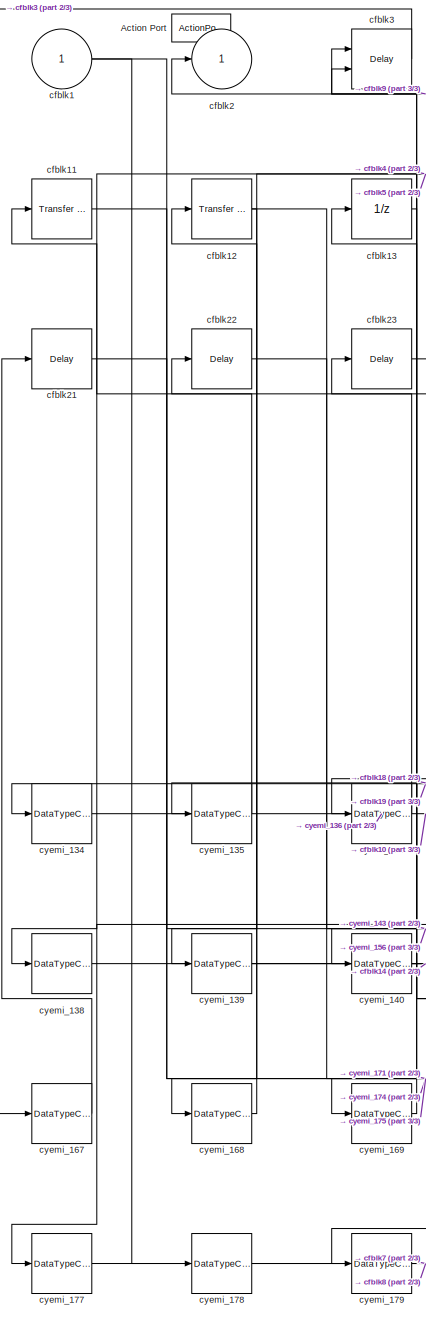
[diagram: cfblk247 - part 1/3, left side, full height]
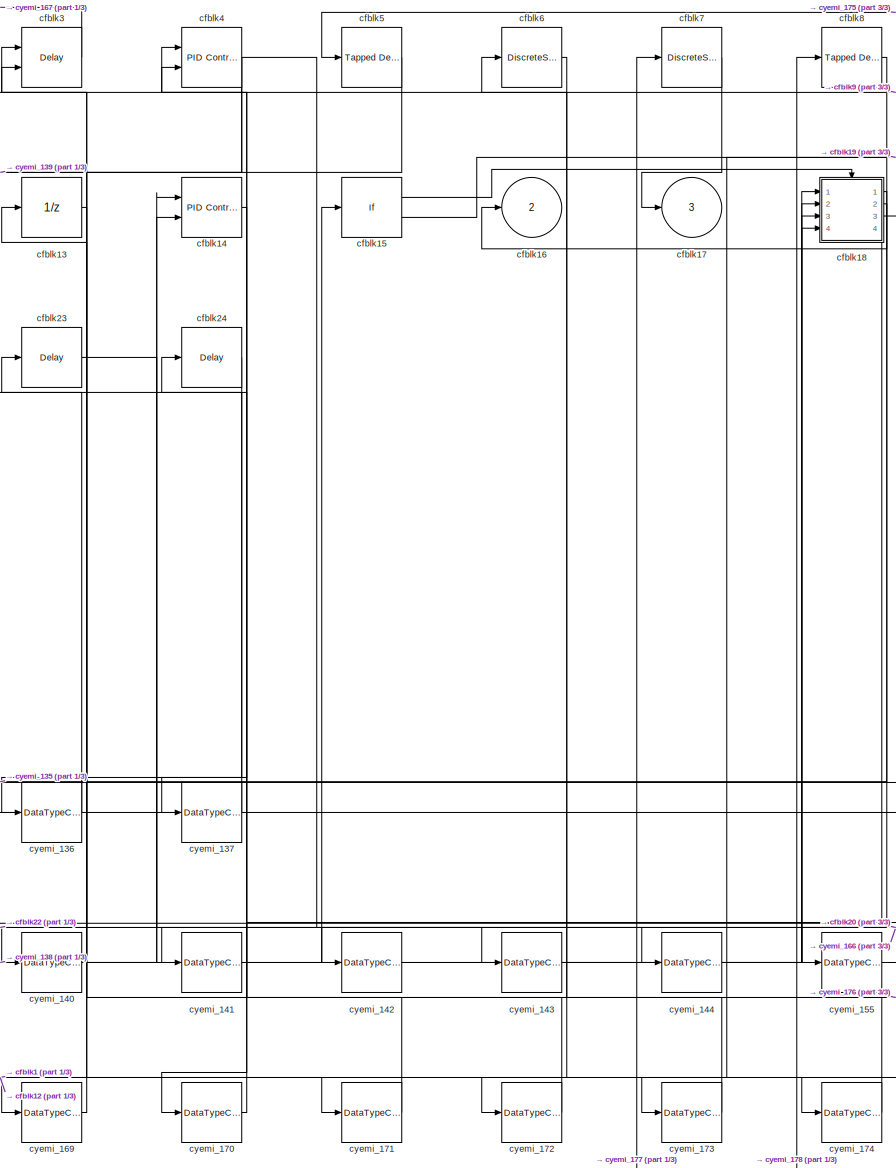
[diagram: cfblk247 - part 2/3, center side, full height]
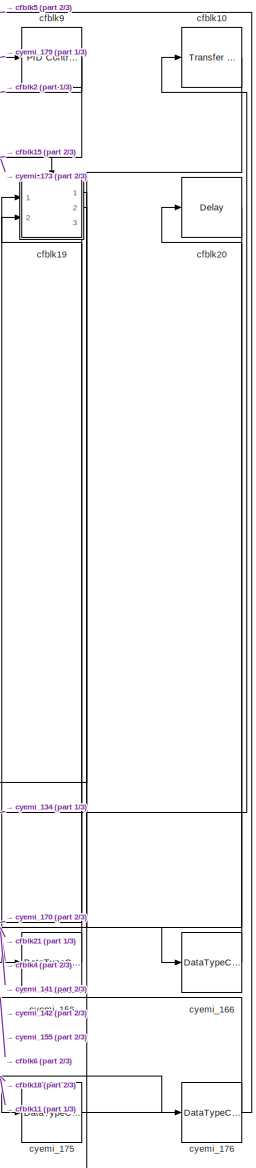
[diagram: cfblk247 - part 3/3, right side, full height]
BLOCK [SubSystem] cfblk247
  Ports = [1, 3, 0, 0, 0, 0, 0, 1]
  RequestExecContextInheritance = off
  TreatAsAtomicUnit = on
BLOCK [ActionPort] cfblk247/Action Port
  ActionType = then
BLOCK [Inport] cfblk247/cfblk1
  IconDisplay = Port number
BLOCK [Reference] cfblk247/cfblk10  REF=simulink/Discrete/Transfer Fcn
Lead or Lag
  Ports = [1, 1]
  SourceBlock = simulink/Discrete/Transfer Fcn\nLead or Lag
  SourceProductBaseCode = SL
  SourceProductName = Simulink
  SourceType = Lead or Lag Compensator
BLOCK [Reference] cfblk247/cfblk11  REF=simulink/Discrete/Transfer Fcn
Lead or Lag
  Ports = [1, 1]
  SourceBlock = simulink/Discrete/Transfer Fcn\nLead or Lag
  SourceProductBaseCode = SL
  SourceProductName = Simulink
  SourceType = Lead or Lag Compensator
BLOCK [Reference] cfblk247/cfblk12  REF=simulink/Discrete/Transfer Fcn
Real Zero
  Ports = [1, 1]
  SourceBlock = simulink/Discrete/Transfer Fcn\nReal Zero
  SourceProductBaseCode = SL
  SourceProductName = Simulink
  SourceType = Transfer Fcn Real Zero
BLOCK [UnitDelay] cfblk247/cfblk13
  InputProcessing = Elements as channels (sample based)
  SampleTime = -1
BLOCK [Reference] cfblk247/cfblk14  REF=simulink/Continuous/PID Controller (2DOF)
  Ports = [2, 1]
  SourceBlock = simulink/Continuous/PID Controller (2DOF)
  SourceProductBaseCode = SL
  SourceProductName = Simulink
  SourceType = PID 2dof
BLOCK [If] cfblk247/cfblk15
  Ports = [1, 2]
  SampleTime = 1
BLOCK [Outport] cfblk247/cfblk16
  IconDisplay = Port number
  Port = 2
BLOCK [Outport] cfblk247/cfblk17
  IconDisplay = Port number
  Port = 3
BLOCK [SubSystem] cfblk247/cfblk18
  Ports = [4, 4, 0, 0, 0, 0, 0, 1]
  RequestExecContextInheritance = off
  TreatAsAtomicUnit = on
BLOCK [ActionPort] cfblk247/cfblk18/Action Port
  ActionType = then
BLOCK [Inport] cfblk247/cfblk18/cfblk1
  IconDisplay = Port number
BLOCK [DiscreteStateSpace] cfblk247/cfblk18/cfblk10
  SampleTime = -1
BLOCK [Inport] cfblk247/cfblk18/cfblk11
  IconDisplay = Port number
  Port = 2
BLOCK [Inport] cfblk247/cfblk18/cfblk12
  IconDisplay = Port number
  Port = 3
BLOCK [Inport] cfblk247/cfblk18/cfblk13
  IconDisplay = Port number
  Port = 4
BLOCK [Outport] cfblk247/cfblk18/cfblk14
  IconDisplay = Port number
  Port = 2
BLOCK [Outport] cfblk247/cfblk18/cfblk15
  IconDisplay = Port number
  Port = 3
BLOCK [Outport] cfblk247/cfblk18/cfblk16
  IconDisplay = Port number
  Port = 4
BLOCK [Delay] cfblk247/cfblk18/cfblk17
  InputPortMap = u0
  Ports = [1, 1]
BLOCK [Outport] cfblk247/cfblk18/cfblk2
  IconDisplay = Port number
BLOCK [DiscreteZeroPole] cfblk247/cfblk18/cfblk3
  Gain = 1
  Poles = [0 0.5]
  SampleTime = -1
BLOCK [DiscreteZeroPole] cfblk247/cfblk18/cfblk4
  Gain = 1
  Poles = [0 0.5]
  SampleTime = -1
BLOCK [Reference] cfblk247/cfblk18/cfblk5  REF=simulink/Discrete/Difference
  Ports = [1, 1]
  SourceBlock = simulink/Discrete/Difference
  SourceProductBaseCode = SL
  SourceProductName = Simulink
  SourceType = Difference
BLOCK [Reference] cfblk247/cfblk18/cfblk6  REF=simulink/Discrete/Transfer Fcn
Lead or Lag
  Ports = [1, 1]
  SourceBlock = simulink/Discrete/Transfer Fcn\nLead or Lag
  SourceProductBaseCode = SL
  SourceProductName = Simulink
  SourceType = Lead or Lag Compensator
BLOCK [DiscreteFilter] cfblk247/cfblk18/cfblk7
  InputPortMap = u0
  Ports = [1, 1]
BLOCK [Delay] cfblk247/cfblk18/cfblk8
  InputPortMap = u0,e6
  Ports = [2, 1]
  ShowEnablePort = on
BLOCK [Reference] cfblk247/cfblk18/cfblk9  REF=simulink/Discrete/Transfer Fcn
Real Zero
  Ports = [1, 1]
  SourceBlock = simulink/Discrete/Transfer Fcn\nReal Zero
  SourceProductBaseCode = SL
  SourceProductName = Simulink
  SourceType = Transfer Fcn Real Zero
BLOCK [DataTypeConversion] cfblk247/cfblk18/cyemi_145
  OutDataTypeStr = double
  RndMeth = Floor
  SaturateOnIntegerOverflow = off
BLOCK [DataTypeConversion] cfblk247/cfblk18/cyemi_146
  OutDataTypeStr = double
  RndMeth = Floor
  SaturateOnIntegerOverflow = off
BLOCK [DataTypeConversion] cfblk247/cfblk18/cyemi_147
  OutDataTypeStr = double
  RndMeth = Floor
  SaturateOnIntegerOverflow = off
BLOCK [DataTypeConversion] cfblk247/cfblk18/cyemi_148
  OutDataTypeStr = double
  RndMeth = Floor
  SaturateOnIntegerOverflow = off
BLOCK [DataTypeConversion] cfblk247/cfblk18/cyemi_149
  OutDataTypeStr = double
  RndMeth = Floor
  SaturateOnIntegerOverflow = off
BLOCK [DataTypeConversion] cfblk247/cfblk18/cyemi_150
  OutDataTypeStr = double
  RndMeth = Floor
  SaturateOnIntegerOverflow = off
BLOCK [DataTypeConversion] cfblk247/cfblk18/cyemi_151
  OutDataTypeStr = double
  RndMeth = Floor
  SaturateOnIntegerOverflow = off
BLOCK [DataTypeConversion] cfblk247/cfblk18/cyemi_152
  OutDataTypeStr = double
  RndMeth = Floor
  SaturateOnIntegerOverflow = off
BLOCK [DataTypeConversion] cfblk247/cfblk18/cyemi_153
  OutDataTypeStr = double
  RndMeth = Floor
  SaturateOnIntegerOverflow = off
BLOCK [DataTypeConversion] cfblk247/cfblk18/cyemi_154
  OutDataTypeStr = double
  RndMeth = Floor
  SaturateOnIntegerOverflow = off
BLOCK [SubSystem] cfblk247/cfblk19
  Ports = [2, 3, 0, 0, 0, 0, 0, 1]
  RequestExecContextInheritance = off
  TreatAsAtomicUnit = on
BLOCK [ActionPort] cfblk247/cfblk19/Action Port
  ActionType = else
BLOCK [Inport] cfblk247/cfblk19/cfblk1
  IconDisplay = Port number
BLOCK [Delay] cfblk247/cfblk19/cfblk10
  InputPortMap = u0
  Ports = [1, 1]
BLOCK [Inport] cfblk247/cfblk19/cfblk11
  IconDisplay = Port number
  Port = 2
BLOCK [Outport] cfblk247/cfblk19/cfblk12
  IconDisplay = Port number
  Port = 2
BLOCK [Outport] cfblk247/cfblk19/cfblk13
  IconDisplay = Port number
  Port = 3
BLOCK [Delay] cfblk247/cfblk19/cfblk14
  InputPortMap = u0
  Ports = [1, 1]
BLOCK [Outport] cfblk247/cfblk19/cfblk2
  IconDisplay = Port number
BLOCK [DiscreteFilter] cfblk247/cfblk19/cfblk3
  InputPortMap = u0
  Ports = [1, 1]
BLOCK [Reference] cfblk247/cfblk19/cfblk4  REF=simulink/Discrete/Tapped Delay
  Ports = [1, 1]
  SourceBlock = simulink/Discrete/Tapped Delay
  SourceProductBaseCode = SL
  SourceProductName = Simulink
  SourceType = Tapped Delay Line
BLOCK [Reference] cfblk247/cfblk19/cfblk5  REF=simulink/Discrete/Transfer Fcn
First Order
  Ports = [1, 1]
  SourceBlock = simulink/Discrete/Transfer Fcn\nFirst Order
  SourceProductBaseCode = SL
  SourceProductName = Simulink
  SourceType = First Order Transfer Fcn
BLOCK [Reference] cfblk247/cfblk19/cfblk6  REF=simulink/Discrete/Transfer Fcn
Real Zero
  Ports = [1, 1]
  SourceBlock = simulink/Discrete/Transfer Fcn\nReal Zero
  SourceProductBaseCode = SL
  SourceProductName = Simulink
  SourceType = Transfer Fcn Real Zero
BLOCK [Reference] cfblk247/cfblk19/cfblk7  REF=simulink/Continuous/PID Controller
  Ports = [1, 1]
  SourceBlock = simulink/Continuous/PID Controller
  SourceProductBaseCode = SL
  SourceProductName = Simulink
  SourceType = PID 1dof
BLOCK [UnitDelay] cfblk247/cfblk19/cfblk8
  InputProcessing = Elements as channels (sample based)
  SampleTime = -1
BLOCK [Reference] cfblk247/cfblk19/cfblk9  REF=simulink/Discrete/Transfer Fcn
First Order
  Ports = [1, 1]
  SourceBlock = simulink/Discrete/Transfer Fcn\nFirst Order
  SourceProductBaseCode = SL
  SourceProductName = Simulink
  SourceType = First Order Transfer Fcn
BLOCK [DataTypeConversion] cfblk247/cfblk19/cyemi_157
  OutDataTypeStr = double
  RndMeth = Floor
  SaturateOnIntegerOverflow = off
BLOCK [DataTypeConversion] cfblk247/cfblk19/cyemi_158
  OutDataTypeStr = double
  RndMeth = Floor
  SaturateOnIntegerOverflow = off
BLOCK [DataTypeConversion] cfblk247/cfblk19/cyemi_159
  OutDataTypeStr = double
  RndMeth = Floor
  SaturateOnIntegerOverflow = off
BLOCK [DataTypeConversion] cfblk247/cfblk19/cyemi_160
  OutDataTypeStr = double
  RndMeth = Floor
  SaturateOnIntegerOverflow = off
BLOCK [DataTypeConversion] cfblk247/cfblk19/cyemi_161
  OutDataTypeStr = double
  RndMeth = Floor
  SaturateOnIntegerOverflow = off
BLOCK [DataTypeConversion] cfblk247/cfblk19/cyemi_162
  OutDataTypeStr = double
  RndMeth = Floor
  SaturateOnIntegerOverflow = off
BLOCK [DataTypeConversion] cfblk247/cfblk19/cyemi_163
  OutDataTypeStr = double
  RndMeth = Floor
  SaturateOnIntegerOverflow = off
BLOCK [DataTypeConversion] cfblk247/cfblk19/cyemi_164
  OutDataTypeStr = double
  RndMeth = Floor
  SaturateOnIntegerOverflow = off
BLOCK [DataTypeConversion] cfblk247/cfblk19/cyemi_165
  OutDataTypeStr = double
  RndMeth = Floor
  SaturateOnIntegerOverflow = off
BLOCK [Outport] cfblk247/cfblk2
  IconDisplay = Port number
BLOCK [Delay] cfblk247/cfblk20
  InputPortMap = u0
  Ports = [1, 1]
BLOCK [Delay] cfblk247/cfblk21
  InputPortMap = u0
  Ports = [1, 1]
BLOCK [Delay] cfblk247/cfblk22
  InputPortMap = u0
  Ports = [1, 1]
BLOCK [Delay] cfblk247/cfblk23
  InputPortMap = u0
  Ports = [1, 1]
BLOCK [Delay] cfblk247/cfblk24
  InputPortMap = u0
  Ports = [1, 1]
BLOCK [Delay] cfblk247/cfblk3
  InputPortMap = u0,e6
  Ports = [2, 1]
  ShowEnablePort = on
BLOCK [Reference] cfblk247/cfblk4  REF=simulink/Continuous/PID Controller (2DOF)
  Ports = [2, 1]
  SourceBlock = simulink/Continuous/PID Controller (2DOF)
  SourceProductBaseCode = SL
  SourceProductName = Simulink
  SourceType = PID 2dof
BLOCK [Reference] cfblk247/cfblk5  REF=simulink/Discrete/Tapped Delay
  Ports = [1, 1]
  SourceBlock = simulink/Discrete/Tapped Delay
  SourceProductBaseCode = SL
  SourceProductName = Simulink
  SourceType = Tapped Delay Line
BLOCK [DiscreteStateSpace] cfblk247/cfblk6
  SampleTime = -1
BLOCK [DiscreteStateSpace] cfblk247/cfblk7
  SampleTime = -1
BLOCK [Reference] cfblk247/cfblk8  REF=simulink/Discrete/Tapped Delay
  Ports = [1, 1]
  SourceBlock = simulink/Discrete/Tapped Delay
  SourceProductBaseCode = SL
  SourceProductName = Simulink
  SourceType = Tapped Delay Line
BLOCK [Reference] cfblk247/cfblk9  REF=simulink/Continuous/PID Controller
  Ports = [1, 1]
  SourceBlock = simulink/Continuous/PID Controller
  SourceProductBaseCode = SL
  SourceProductName = Simulink
  SourceType = PID 1dof
BLOCK [DataTypeConversion] cfblk247/cyemi_134
  OutDataTypeStr = double
  RndMeth = Floor
  SaturateOnIntegerOverflow = off
BLOCK [DataTypeConversion] cfblk247/cyemi_135
  OutDataTypeStr = double
  RndMeth = Floor
  SaturateOnIntegerOverflow = off
BLOCK [DataTypeConversion] cfblk247/cyemi_136
  OutDataTypeStr = double
  RndMeth = Floor
  SaturateOnIntegerOverflow = off
BLOCK [DataTypeConversion] cfblk247/cyemi_137
  OutDataTypeStr = double
  RndMeth = Floor
  SaturateOnIntegerOverflow = off
BLOCK [DataTypeConversion] cfblk247/cyemi_138
  OutDataTypeStr = double
  RndMeth = Floor
  SaturateOnIntegerOverflow = off
BLOCK [DataTypeConversion] cfblk247/cyemi_139
  OutDataTypeStr = double
  RndMeth = Floor
  SaturateOnIntegerOverflow = off
BLOCK [DataTypeConversion] cfblk247/cyemi_140
  OutDataTypeStr = double
  RndMeth = Floor
  SaturateOnIntegerOverflow = off
BLOCK [DataTypeConversion] cfblk247/cyemi_141
  OutDataTypeStr = double
  RndMeth = Floor
  SaturateOnIntegerOverflow = off
BLOCK [DataTypeConversion] cfblk247/cyemi_142
  OutDataTypeStr = double
  RndMeth = Floor
  SaturateOnIntegerOverflow = off
BLOCK [DataTypeConversion] cfblk247/cyemi_143
  OutDataTypeStr = double
  RndMeth = Floor
  SaturateOnIntegerOverflow = off
BLOCK [DataTypeConversion] cfblk247/cyemi_144
  OutDataTypeStr = double
  RndMeth = Floor
  SaturateOnIntegerOverflow = off
BLOCK [DataTypeConversion] cfblk247/cyemi_155
  OutDataTypeStr = double
  RndMeth = Floor
  SaturateOnIntegerOverflow = off
BLOCK [DataTypeConversion] cfblk247/cyemi_156
  OutDataTypeStr = double
  RndMeth = Floor
  SaturateOnIntegerOverflow = off
BLOCK [DataTypeConversion] cfblk247/cyemi_166
  OutDataTypeStr = double
  RndMeth = Floor
  SaturateOnIntegerOverflow = off
BLOCK [DataTypeConversion] cfblk247/cyemi_167
  OutDataTypeStr = double
  RndMeth = Floor
  SaturateOnIntegerOverflow = off
BLOCK [DataTypeConversion] cfblk247/cyemi_168
  OutDataTypeStr = double
  RndMeth = Floor
  SaturateOnIntegerOverflow = off
BLOCK [DataTypeConversion] cfblk247/cyemi_169
  OutDataTypeStr = double
  RndMeth = Floor
  SaturateOnIntegerOverflow = off
BLOCK [DataTypeConversion] cfblk247/cyemi_170
  OutDataTypeStr = double
  RndMeth = Floor
  SaturateOnIntegerOverflow = off
BLOCK [DataTypeConversion] cfblk247/cyemi_171
  OutDataTypeStr = double
  RndMeth = Floor
  SaturateOnIntegerOverflow = off
BLOCK [DataTypeConversion] cfblk247/cyemi_172
  OutDataTypeStr = double
  RndMeth = Floor
  SaturateOnIntegerOverflow = off
BLOCK [DataTypeConversion] cfblk247/cyemi_173
  OutDataTypeStr = double
  RndMeth = Floor
  SaturateOnIntegerOverflow = off
BLOCK [DataTypeConversion] cfblk247/cyemi_174
  OutDataTypeStr = double
  RndMeth = Floor
  SaturateOnIntegerOverflow = off
BLOCK [DataTypeConversion] cfblk247/cyemi_175
  OutDataTypeStr = double
  RndMeth = Floor
  SaturateOnIntegerOverflow = off
BLOCK [DataTypeConversion] cfblk247/cyemi_176
  OutDataTypeStr = double
  RndMeth = Floor
  SaturateOnIntegerOverflow = off
BLOCK [DataTypeConversion] cfblk247/cyemi_177
  OutDataTypeStr = double
  RndMeth = Floor
  SaturateOnIntegerOverflow = off
BLOCK [DataTypeConversion] cfblk247/cyemi_178
  OutDataTypeStr = double
  RndMeth = Floor
  SaturateOnIntegerOverflow = off
BLOCK [DataTypeConversion] cfblk247/cyemi_179
  OutDataTypeStr = double
  RndMeth = Floor
  SaturateOnIntegerOverflow = off
BLOCK [SubSystem] cfblk248
  Ports = [2, 2, 0, 0, 0, 0, 0, 1]
  RequestExecContextInheritance = off
  TreatAsAtomicUnit = on
BLOCK [ActionPort] cfblk248/Action Port
  ActionType = else
BLOCK [Inport] cfblk248/cfblk1
  IconDisplay = Port number
BLOCK [DiscreteFilter] cfblk248/cfblk10
  InputPortMap = u0
  Ports = [1, 1]
BLOCK [Delay] cfblk248/cfblk11
  DelayLengthSource = Input port
  InputPortMap = u0,p1
  Ports = [2, 1]
BLOCK [Delay] cfblk248/cfblk12
  DelayLengthSource = Input port
  InputPortMap = u0,p1
  Ports = [2, 1]
BLOCK [Delay] cfblk248/cfblk13
  InputPortMap = u0,e6
  Ports = [2, 1]
  ShowEnablePort = on
BLOCK [Reference] cfblk248/cfblk14  REF=simulink/Discrete/Transfer Fcn
Real Zero
  Ports = [1, 1]
  SourceBlock = simulink/Discrete/Transfer Fcn\nReal Zero
  SourceProductBaseCode = SL
  SourceProductName = Simulink
  SourceType = Transfer Fcn Real Zero
BLOCK [DiscreteZeroPole] cfblk248/cfblk15
  Gain = 1
  Poles = [0 0.5]
  SampleTime = -1
BLOCK [Inport] cfblk248/cfblk16
  IconDisplay = Port number
  Port = 2
BLOCK [Outport] cfblk248/cfblk17
  IconDisplay = Port number
  Port = 2
BLOCK [Delay] cfblk248/cfblk18
  InputPortMap = u0
  Ports = [1, 1]
BLOCK [DataTypeConversion] cfblk248/cfblk19
  OutDataTypeStr = double
  RndMeth = Floor
  SaturateOnIntegerOverflow = off
BLOCK [Outport] cfblk248/cfblk2
  IconDisplay = Port number
BLOCK [DataTypeConversion] cfblk248/cfblk20
  OutDataTypeStr = double
  RndMeth = Floor
  SaturateOnIntegerOverflow = off
BLOCK [DataTypeConversion] cfblk248/cfblk21
  OutDataTypeStr = uint32
  RndMeth = Floor
  SaturateOnIntegerOverflow = off
BLOCK [DiscreteFir] cfblk248/cfblk3
  InputPortMap = u0
  OutputPortMap = o0
  Ports = [1, 1]
BLOCK [Reference] cfblk248/cfblk4  REF=simulink/Discrete/Transfer Fcn
Lead or Lag
  Ports = [1, 1]
  SourceBlock = simulink/Discrete/Transfer Fcn\nLead or Lag
  SourceProductBaseCode = SL
  SourceProductName = Simulink
  SourceType = Lead or Lag Compensator
BLOCK [DiscreteZeroPole] cfblk248/cfblk5
  Gain = 1
  Poles = [0 0.5]
  SampleTime = -1
BLOCK [Reference] cfblk248/cfblk6  REF=simulink/Continuous/PID Controller
  Ports = [1, 1]
  SourceBlock = simulink/Continuous/PID Controller
  SourceProductBaseCode = SL
  SourceProductName = Simulink
  SourceType = PID 1dof
BLOCK [Reference] cfblk248/cfblk7  REF=simulink/Continuous/PID Controller (2DOF)
  Ports = [2, 1]
  SourceBlock = simulink/Continuous/PID Controller (2DOF)
  SourceProductBaseCode = SL
  SourceProductName = Simulink
  SourceType = PID 2dof
BLOCK [DiscreteFir] cfblk248/cfblk8
  InputPortMap = u0
  OutputPortMap = o0
  Ports = [1, 1]
BLOCK [DiscreteZeroPole] cfblk248/cfblk9
  Gain = 1
  Poles = [0 0.5]
  SampleTime = -1
BLOCK [DataTypeConversion] cfblk248/cyemi_182
  OutDataTypeStr = double
  RndMeth = Floor
  SaturateOnIntegerOverflow = off
BLOCK [DataTypeConversion] cfblk248/cyemi_183
  OutDataTypeStr = double
  RndMeth = Floor
  SaturateOnIntegerOverflow = off
BLOCK [DataTypeConversion] cfblk248/cyemi_184
  OutDataTypeStr = uint32
  RndMeth = Floor
  SaturateOnIntegerOverflow = off
BLOCK [DataTypeConversion] cfblk248/cyemi_185
  OutDataTypeStr = double
  RndMeth = Floor
  SaturateOnIntegerOverflow = off
BLOCK [DataTypeConversion] cfblk248/cyemi_186
  OutDataTypeStr = double
  RndMeth = Floor
  SaturateOnIntegerOverflow = off
BLOCK [DataTypeConversion] cfblk248/cyemi_187
  OutDataTypeStr = double
  RndMeth = Floor
  SaturateOnIntegerOverflow = off
BLOCK [DataTypeConversion] cfblk248/cyemi_188
  OutDataTypeStr = double
  RndMeth = Floor
  SaturateOnIntegerOverflow = off
BLOCK [DataTypeConversion] cfblk248/cyemi_189
  OutDataTypeStr = double
  RndMeth = Floor
  SaturateOnIntegerOverflow = off
BLOCK [DataTypeConversion] cfblk248/cyemi_190
  OutDataTypeStr = double
  RndMeth = Floor
  SaturateOnIntegerOverflow = off
BLOCK [DataTypeConversion] cfblk248/cyemi_191
  OutDataTypeStr = double
  RndMeth = Floor
  SaturateOnIntegerOverflow = off
BLOCK [DataTypeConversion] cfblk248/cyemi_192
  OutDataTypeStr = double
  RndMeth = Floor
  SaturateOnIntegerOverflow = off
BLOCK [DataTypeConversion] cfblk248/cyemi_193
  OutDataTypeStr = fixdt('ufix8_E3')
  RndMeth = Floor
  SaturateOnIntegerOverflow = off
BLOCK [DataTypeConversion] cfblk248/cyemi_194
  OutDataTypeStr = double
  RndMeth = Floor
  SaturateOnIntegerOverflow = off
BLOCK [DataTypeConversion] cfblk248/cyemi_195
  OutDataTypeStr = double
  RndMeth = Floor
  SaturateOnIntegerOverflow = off
BLOCK [DataTypeConversion] cfblk248/cyemi_196
  OutDataTypeStr = uint8
  RndMeth = Floor
  SaturateOnIntegerOverflow = off
BLOCK [DataTypeConversion] cfblk248/cyemi_197
  OutDataTypeStr = double
  RndMeth = Floor
  SaturateOnIntegerOverflow = off
BLOCK [DataTypeConversion] cfblk248/cyemi_198
  OutDataTypeStr = double
  RndMeth = Floor
  SaturateOnIntegerOverflow = off
BLOCK [DataTypeConversion] cfblk248/cyemi_199
  OutDataTypeStr = double
  RndMeth = Floor
  SaturateOnIntegerOverflow = off
BLOCK [DataTypeConversion] cfblk248/cyemi_200
  OutDataTypeStr = double
  RndMeth = Floor
  SaturateOnIntegerOverflow = off
BLOCK [DataTypeConversion] cfblk248/cyemi_201
  OutDataTypeStr = double
  RndMeth = Floor
  SaturateOnIntegerOverflow = off
BLOCK [DataTypeConversion] cfblk248/cyemi_202
  OutDataTypeStr = double
  RndMeth = Floor
  SaturateOnIntegerOverflow = off
BLOCK [SubSystem] cfblk249
  Ports = [3, 2, 0, 0, 0, 0, 0, 1]
  RequestExecContextInheritance = off
  TreatAsAtomicUnit = on
BLOCK [ActionPort] cfblk249/Action Port
  ActionType = then
BLOCK [Inport] cfblk249/cfblk1
  IconDisplay = Port number
BLOCK [Reference] cfblk249/cfblk10  REF=simulink/Continuous/PID Controller (2DOF)
  Ports = [2, 1]
  SourceBlock = simulink/Continuous/PID Controller (2DOF)
  SourceProductBaseCode = SL
  SourceProductName = Simulink
  SourceType = PID 2dof
BLOCK [Reference] cfblk249/cfblk11  REF=simulink/Continuous/PID Controller (2DOF)
  Ports = [2, 1]
  SourceBlock = simulink/Continuous/PID Controller (2DOF)
  SourceProductBaseCode = SL
  SourceProductName = Simulink
  SourceType = PID 2dof
BLOCK [DiscreteZeroPole] cfblk249/cfblk12
  Gain = 1
  Poles = [0 0.5]
  SampleTime = -1
BLOCK [Delay] cfblk249/cfblk13
  DelayLengthSource = Input port
  InputPortMap = u0,p1
  Ports = [2, 1]
BLOCK [Inport] cfblk249/cfblk14
  IconDisplay = Port number
  Port = 2
BLOCK [Inport] cfblk249/cfblk15
  IconDisplay = Port number
  Port = 3
BLOCK [Outport] cfblk249/cfblk16
  IconDisplay = Port number
  Port = 2
BLOCK [Delay] cfblk249/cfblk17
  InputPortMap = u0
  Ports = [1, 1]
BLOCK [Outport] cfblk249/cfblk2
  IconDisplay = Port number
BLOCK [DiscreteZeroPole] cfblk249/cfblk3
  Gain = 1
  Poles = [0 0.5]
  SampleTime = -1
BLOCK [Reference] cfblk249/cfblk4  REF=simulink/Continuous/PID Controller
  Ports = [1, 1]
  SourceBlock = simulink/Continuous/PID Controller
  SourceProductBaseCode = SL
  SourceProductName = Simulink
  SourceType = PID 1dof
BLOCK [UnitDelay] cfblk249/cfblk5
  InputProcessing = Elements as channels (sample based)
  SampleTime = -1
BLOCK [Reference] cfblk249/cfblk6  REF=simulink/Continuous/PID Controller
  Ports = [1, 1]
  SourceBlock = simulink/Continuous/PID Controller
  SourceProductBaseCode = SL
  SourceProductName = Simulink
  SourceType = PID 1dof
BLOCK [Delay] cfblk249/cfblk7
  DelayLengthSource = Input port
  InputPortMap = u0,p1
  Ports = [2, 1]
BLOCK [DiscreteFir] cfblk249/cfblk8
  InputPortMap = u0
  OutputPortMap = o0
  Ports = [1, 1]
BLOCK [DiscreteFir] cfblk249/cfblk9
  InputPortMap = u0
  OutputPortMap = o0
  Ports = [1, 1]
BLOCK [DataTypeConversion] cfblk249/cyemi_206
  OutDataTypeStr = double
  RndMeth = Floor
  SaturateOnIntegerOverflow = off
BLOCK [DataTypeConversion] cfblk249/cyemi_207
  OutDataTypeStr = double
  RndMeth = Floor
  SaturateOnIntegerOverflow = off
BLOCK [DataTypeConversion] cfblk249/cyemi_208
  OutDataTypeStr = double
  RndMeth = Floor
  SaturateOnIntegerOverflow = off
BLOCK [DataTypeConversion] cfblk249/cyemi_209
  OutDataTypeStr = double
  RndMeth = Floor
  SaturateOnIntegerOverflow = off
BLOCK [DataTypeConversion] cfblk249/cyemi_210
  OutDataTypeStr = double
  RndMeth = Floor
  SaturateOnIntegerOverflow = off
BLOCK [DataTypeConversion] cfblk249/cyemi_211
  OutDataTypeStr = double
  RndMeth = Floor
  SaturateOnIntegerOverflow = off
BLOCK [DataTypeConversion] cfblk249/cyemi_212
  OutDataTypeStr = double
  RndMeth = Floor
  SaturateOnIntegerOverflow = off
BLOCK [DataTypeConversion] cfblk249/cyemi_213
  OutDataTypeStr = double
  RndMeth = Floor
  SaturateOnIntegerOverflow = off
BLOCK [DataTypeConversion] cfblk249/cyemi_214
  OutDataTypeStr = double
  RndMeth = Floor
  SaturateOnIntegerOverflow = off
BLOCK [DataTypeConversion] cfblk249/cyemi_215
  OutDataTypeStr = double
  RndMeth = Floor
  SaturateOnIntegerOverflow = off
BLOCK [DataTypeConversion] cfblk249/cyemi_216
  OutDataTypeStr = double
  RndMeth = Floor
  SaturateOnIntegerOverflow = off
BLOCK [DataTypeConversion] cfblk249/cyemi_217
  OutDataTypeStr = double
  RndMeth = Floor
  SaturateOnIntegerOverflow = off
BLOCK [DataTypeConversion] cfblk249/cyemi_218
  OutDataTypeStr = double
  RndMeth = Floor
  SaturateOnIntegerOverflow = off
BLOCK [DataTypeConversion] cfblk249/cyemi_219
  OutDataTypeStr = double
  RndMeth = Floor
  SaturateOnIntegerOverflow = off
BLOCK [DataTypeConversion] cfblk249/cyemi_220
  OutDataTypeStr = double
  RndMeth = Floor
  SaturateOnIntegerOverflow = off
BLOCK [DataTypeConversion] cfblk249/cyemi_221
  OutDataTypeStr = double
  RndMeth = Floor
  SaturateOnIntegerOverflow = off
BLOCK [Reference] cfblk25  REF=simulink/Discrete/Transfer Fcn
Real Zero
  Ports = [1, 1]
  SourceBlock = simulink/Discrete/Transfer Fcn\nReal Zero
  SourceProductBaseCode = SL
  SourceProductName = Simulink
  SourceType = Transfer Fcn Real Zero
BLOCK [SubSystem] cfblk250
  Ports = [2, 2, 0, 0, 0, 0, 0, 1]
  RequestExecContextInheritance = off
  TreatAsAtomicUnit = on
BLOCK [ActionPort] cfblk250/Action Port
  ActionType = else
BLOCK [Inport] cfblk250/cfblk1
  IconDisplay = Port number
BLOCK [Delay] cfblk250/cfblk10
  InputPortMap = u0
  Ports = [1, 1]
BLOCK [Delay] cfblk250/cfblk11
  InputPortMap = u0
  Ports = [1, 1]
BLOCK [Outport] cfblk250/cfblk2
  IconDisplay = Port number
BLOCK [Reference] cfblk250/cfblk3  REF=simulink/Discrete/Transfer Fcn
Real Zero
  Ports = [1, 1]
  SourceBlock = simulink/Discrete/Transfer Fcn\nReal Zero
  SourceProductBaseCode = SL
  SourceProductName = Simulink
  SourceType = Transfer Fcn Real Zero
BLOCK [Reference] cfblk250/cfblk4  REF=simulink/Discrete/Transfer Fcn
Real Zero
  Ports = [1, 1]
  SourceBlock = simulink/Discrete/Transfer Fcn\nReal Zero
  SourceProductBaseCode = SL
  SourceProductName = Simulink
  SourceType = Transfer Fcn Real Zero
BLOCK [DiscreteZeroPole] cfblk250/cfblk5
  Gain = 1
  Poles = [0 0.5]
  SampleTime = -1
BLOCK [DiscreteFir] cfblk250/cfblk6
  InputPortMap = u0
  OutputPortMap = o0
  Ports = [1, 1]
BLOCK [Delay] cfblk250/cfblk7
  DelayLengthSource = Input port
  InputPortMap = u0,p1
  Ports = [2, 1]
BLOCK [Inport] cfblk250/cfblk8
  IconDisplay = Port number
  Port = 2
BLOCK [Outport] cfblk250/cfblk9
  IconDisplay = Port number
  Port = 2
BLOCK [DataTypeConversion] cfblk250/cyemi_225
  OutDataTypeStr = double
  RndMeth = Floor
  SaturateOnIntegerOverflow = off
BLOCK [DataTypeConversion] cfblk250/cyemi_226
  OutDataTypeStr = double
  RndMeth = Floor
  SaturateOnIntegerOverflow = off
BLOCK [DataTypeConversion] cfblk250/cyemi_227
  OutDataTypeStr = double
  RndMeth = Floor
  SaturateOnIntegerOverflow = off
BLOCK [DataTypeConversion] cfblk250/cyemi_228
  OutDataTypeStr = double
  RndMeth = Floor
  SaturateOnIntegerOverflow = off
BLOCK [DataTypeConversion] cfblk250/cyemi_229
  OutDataTypeStr = double
  RndMeth = Floor
  SaturateOnIntegerOverflow = off
BLOCK [DataTypeConversion] cfblk250/cyemi_230
  OutDataTypeStr = double
  RndMeth = Floor
  SaturateOnIntegerOverflow = off
BLOCK [DataTypeConversion] cfblk250/cyemi_231
  OutDataTypeStr = double
  RndMeth = Floor
  SaturateOnIntegerOverflow = off
BLOCK [DataTypeConversion] cfblk250/cyemi_232
  OutDataTypeStr = double
  RndMeth = Floor
  SaturateOnIntegerOverflow = off
BLOCK [SubSystem] cfblk251
  Ports = [1, 2, 0, 0, 0, 0, 0, 1]
  RequestExecContextInheritance = off
  TreatAsAtomicUnit = on
BLOCK [ActionPort] cfblk251/Action Port
  ActionType = then
BLOCK [Inport] cfblk251/cfblk1
  IconDisplay = Port number
BLOCK [Delay] cfblk251/cfblk10
  InputPortMap = u0
  Ports = [1, 1]
BLOCK [Outport] cfblk251/cfblk11
  IconDisplay = Port number
  Port = 2
BLOCK [Delay] cfblk251/cfblk12
  InputPortMap = u0
  Ports = [1, 1]
BLOCK [Outport] cfblk251/cfblk2
  IconDisplay = Port number
BLOCK [DiscreteStateSpace] cfblk251/cfblk3
  SampleTime = -1
BLOCK [Reference] cfblk251/cfblk4  REF=simulink/Discrete/Transfer Fcn
Real Zero
  Ports = [1, 1]
  SourceBlock = simulink/Discrete/Transfer Fcn\nReal Zero
  SourceProductBaseCode = SL
  SourceProductName = Simulink
  SourceType = Transfer Fcn Real Zero
BLOCK [Reference] cfblk251/cfblk5  REF=simulink/Discrete/Transfer Fcn
Real Zero
  Ports = [1, 1]
  SourceBlock = simulink/Discrete/Transfer Fcn\nReal Zero
  SourceProductBaseCode = SL
  SourceProductName = Simulink
  SourceType = Transfer Fcn Real Zero
BLOCK [Reference] cfblk251/cfblk6  REF=simulink/Discrete/Transfer Fcn
Lead or Lag
  Ports = [1, 1]
  SourceBlock = simulink/Discrete/Transfer Fcn\nLead or Lag
  SourceProductBaseCode = SL
  SourceProductName = Simulink
  SourceType = Lead or Lag Compensator
BLOCK [Reference] cfblk251/cfblk7  REF=simulink/Discrete/Difference
  Ports = [1, 1]
  SourceBlock = simulink/Discrete/Difference
  SourceProductBaseCode = SL
  SourceProductName = Simulink
  SourceType = Difference
BLOCK [Reference] cfblk251/cfblk8  REF=simulink/Discrete/Transfer Fcn
Lead or Lag
  Ports = [1, 1]
  SourceBlock = simulink/Discrete/Transfer Fcn\nLead or Lag
  SourceProductBaseCode = SL
  SourceProductName = Simulink
  SourceType = Lead or Lag Compensator
BLOCK [DiscreteIntegrator] cfblk251/cfblk9
  ICPrevOutput = DiscIntNeverNeededParam
  ICPrevScaledInput = DiscIntNeverNeededParam
  InitialConditionSetting = Auto
  OutDataTypeStr = double
  Ports = [1, 1]
  SampleTime = -1
BLOCK [DataTypeConversion] cfblk251/cyemi_234
  OutDataTypeStr = double
  RndMeth = Floor
  SaturateOnIntegerOverflow = off
BLOCK [DataTypeConversion] cfblk251/cyemi_235
  OutDataTypeStr = double
  RndMeth = Floor
  SaturateOnIntegerOverflow = off
BLOCK [DataTypeConversion] cfblk251/cyemi_236
  OutDataTypeStr = double
  RndMeth = Floor
  SaturateOnIntegerOverflow = off
BLOCK [DataTypeConversion] cfblk251/cyemi_237
  OutDataTypeStr = double
  RndMeth = Floor
  SaturateOnIntegerOverflow = off
BLOCK [DataTypeConversion] cfblk251/cyemi_238
  OutDataTypeStr = double
  RndMeth = Floor
  SaturateOnIntegerOverflow = off
BLOCK [DataTypeConversion] cfblk251/cyemi_239
  OutDataTypeStr = double
  RndMeth = Floor
  SaturateOnIntegerOverflow = off
BLOCK [DataTypeConversion] cfblk251/cyemi_240
  OutDataTypeStr = double
  RndMeth = Floor
  SaturateOnIntegerOverflow = off
BLOCK [DataTypeConversion] cfblk251/cyemi_241
  OutDataTypeStr = double
  RndMeth = Floor
  SaturateOnIntegerOverflow = off
BLOCK [DataTypeConversion] cfblk251/cyemi_242
  OutDataTypeStr = double
  RndMeth = Floor
  SaturateOnIntegerOverflow = off
BLOCK [SubSystem] cfblk252
  Ports = [1, 1, 0, 0, 0, 0, 0, 1]
  RequestExecContextInheritance = off
  TreatAsAtomicUnit = on
BLOCK [ActionPort] cfblk252/Action Port
  ActionType = else
BLOCK [Inport] cfblk252/cfblk1
  IconDisplay = Port number
BLOCK [Reference] cfblk252/cfblk10  REF=simulink/Discrete/Tapped Delay
  Ports = [1, 1]
  SourceBlock = simulink/Discrete/Tapped Delay
  SourceProductBaseCode = SL
  SourceProductName = Simulink
  SourceType = Tapped Delay Line
BLOCK [Reference] cfblk252/cfblk11  REF=simulink/Continuous/PID Controller (2DOF)
  Ports = [2, 1]
  SourceBlock = simulink/Continuous/PID Controller (2DOF)
  SourceProductBaseCode = SL
  SourceProductName = Simulink
  SourceType = PID 2dof
BLOCK [Reference] cfblk252/cfblk12  REF=simulink/Discrete/Transfer Fcn
Lead or Lag
  Ports = [1, 1]
  SourceBlock = simulink/Discrete/Transfer Fcn\nLead or Lag
  SourceProductBaseCode = SL
  SourceProductName = Simulink
  SourceType = Lead or Lag Compensator
BLOCK [DiscreteStateSpace] cfblk252/cfblk13
  SampleTime = -1
BLOCK [If] cfblk252/cfblk14
  Ports = [1, 2]
  SampleTime = 1
BLOCK [SubSystem] cfblk252/cfblk15
  Ports = [2, 2, 0, 0, 0, 0, 0, 1]
  RequestExecContextInheritance = off
  TreatAsAtomicUnit = on
BLOCK [ActionPort] cfblk252/cfblk15/Action Port
  ActionType = then
BLOCK [Inport] cfblk252/cfblk15/cfblk1
  IconDisplay = Port number
BLOCK [DiscreteTransferFcn] cfblk252/cfblk15/cfblk10
  InputPortMap = u0
  Ports = [1, 1]
BLOCK [Reference] cfblk252/cfblk15/cfblk11  REF=simulink/Continuous/PID Controller (2DOF)
  Ports = [2, 1]
  SourceBlock = simulink/Continuous/PID Controller (2DOF)
  SourceProductBaseCode = SL
  SourceProductName = Simulink
  SourceType = PID 2dof
BLOCK [DiscreteZeroPole] cfblk252/cfblk15/cfblk12
  Gain = 1
  Poles = [0 0.5]
  SampleTime = -1
BLOCK [DiscreteFir] cfblk252/cfblk15/cfblk13
  InputPortMap = u0
  OutputPortMap = o0
  Ports = [1, 1]
BLOCK [Reference] cfblk252/cfblk15/cfblk14  REF=simulink/Discrete/Transfer Fcn
Real Zero
  Ports = [1, 1]
  SourceBlock = simulink/Discrete/Transfer Fcn\nReal Zero
  SourceProductBaseCode = SL
  SourceProductName = Simulink
  SourceType = Transfer Fcn Real Zero
BLOCK [Inport] cfblk252/cfblk15/cfblk15
  IconDisplay = Port number
  Port = 2
BLOCK [Outport] cfblk252/cfblk15/cfblk16
  IconDisplay = Port number
  Port = 2
BLOCK [Delay] cfblk252/cfblk15/cfblk17
  InputPortMap = u0
  Ports = [1, 1]
BLOCK [Delay] cfblk252/cfblk15/cfblk18
  InputPortMap = u0
  Ports = [1, 1]
BLOCK [Outport] cfblk252/cfblk15/cfblk2
  IconDisplay = Port number
BLOCK [Delay] cfblk252/cfblk15/cfblk3
  InputPortMap = u0
  Ports = [1, 1]
BLOCK [Delay] cfblk252/cfblk15/cfblk4
  DelayLengthSource = Input port
  InputPortMap = u0,p1
  Ports = [2, 1]
BLOCK [UnitDelay] cfblk252/cfblk15/cfblk5
  InputProcessing = Elements as channels (sample based)
  SampleTime = -1
BLOCK [Reference] cfblk252/cfblk15/cfblk6  REF=simulink/Discrete/Transfer Fcn
Lead or Lag
  Ports = [1, 1]
  SourceBlock = simulink/Discrete/Transfer Fcn\nLead or Lag
  SourceProductBaseCode = SL
  SourceProductName = Simulink
  SourceType = Lead or Lag Compensator
BLOCK [DiscreteFilter] cfblk252/cfblk15/cfblk7
  InputPortMap = u0
  Ports = [1, 1]
BLOCK [Reference] cfblk252/cfblk15/cfblk8  REF=simulink/Discrete/Transfer Fcn
Real Zero
  Ports = [1, 1]
  SourceBlock = simulink/Discrete/Transfer Fcn\nReal Zero
  SourceProductBaseCode = SL
  SourceProductName = Simulink
  SourceType = Transfer Fcn Real Zero
BLOCK [Reference] cfblk252/cfblk15/cfblk9  REF=simulink/Discrete/Transfer Fcn
Lead or Lag
  Ports = [1, 1]
  SourceBlock = simulink/Discrete/Transfer Fcn\nLead or Lag
  SourceProductBaseCode = SL
  SourceProductName = Simulink
  SourceType = Lead or Lag Compensator
BLOCK [DataTypeConversion] cfblk252/cfblk15/cyemi_252
  OutDataTypeStr = double
  RndMeth = Floor
  SaturateOnIntegerOverflow = off
BLOCK [DataTypeConversion] cfblk252/cfblk15/cyemi_253
  OutDataTypeStr = double
  RndMeth = Floor
  SaturateOnIntegerOverflow = off
BLOCK [DataTypeConversion] cfblk252/cfblk15/cyemi_254
  OutDataTypeStr = double
  RndMeth = Floor
  SaturateOnIntegerOverflow = off
BLOCK [DataTypeConversion] cfblk252/cfblk15/cyemi_255
  OutDataTypeStr = double
  RndMeth = Floor
  SaturateOnIntegerOverflow = off
BLOCK [DataTypeConversion] cfblk252/cfblk15/cyemi_256
  OutDataTypeStr = double
  RndMeth = Floor
  SaturateOnIntegerOverflow = off
BLOCK [DataTypeConversion] cfblk252/cfblk15/cyemi_257
  OutDataTypeStr = double
  RndMeth = Floor
  SaturateOnIntegerOverflow = off
BLOCK [DataTypeConversion] cfblk252/cfblk15/cyemi_258
  OutDataTypeStr = double
  RndMeth = Floor
  SaturateOnIntegerOverflow = off
BLOCK [DataTypeConversion] cfblk252/cfblk15/cyemi_259
  OutDataTypeStr = double
  RndMeth = Floor
  SaturateOnIntegerOverflow = off
BLOCK [DataTypeConversion] cfblk252/cfblk15/cyemi_260
  OutDataTypeStr = double
  RndMeth = Floor
  SaturateOnIntegerOverflow = off
BLOCK [DataTypeConversion] cfblk252/cfblk15/cyemi_261
  OutDataTypeStr = double
  RndMeth = Floor
  SaturateOnIntegerOverflow = off
BLOCK [DataTypeConversion] cfblk252/cfblk15/cyemi_262
  OutDataTypeStr = double
  RndMeth = Floor
  SaturateOnIntegerOverflow = off
BLOCK [DataTypeConversion] cfblk252/cfblk15/cyemi_263
  OutDataTypeStr = double
  RndMeth = Floor
  SaturateOnIntegerOverflow = off
BLOCK [DataTypeConversion] cfblk252/cfblk15/cyemi_264
  OutDataTypeStr = double
  RndMeth = Floor
  SaturateOnIntegerOverflow = off
BLOCK [DataTypeConversion] cfblk252/cfblk15/cyemi_265
  OutDataTypeStr = double
  RndMeth = Floor
  SaturateOnIntegerOverflow = off
BLOCK [DataTypeConversion] cfblk252/cfblk15/cyemi_266
  OutDataTypeStr = double
  RndMeth = Floor
  SaturateOnIntegerOverflow = off
BLOCK [DataTypeConversion] cfblk252/cfblk15/cyemi_267
  OutDataTypeStr = double
  RndMeth = Floor
  SaturateOnIntegerOverflow = off
BLOCK [SubSystem] cfblk252/cfblk16
  Ports = [2, 2, 0, 0, 0, 0, 0, 1]
  RequestExecContextInheritance = off
  TreatAsAtomicUnit = on
BLOCK [ActionPort] cfblk252/cfblk16/Action Port
  ActionType = else
BLOCK [Inport] cfblk252/cfblk16/cfblk1
  IconDisplay = Port number
BLOCK [Reference] cfblk252/cfblk16/cfblk10  REF=simulink/Discrete/Difference
  Ports = [1, 1]
  SourceBlock = simulink/Discrete/Difference
  SourceProductBaseCode = SL
  SourceProductName = Simulink
  SourceType = Difference
BLOCK [DiscreteIntegrator] cfblk252/cfblk16/cfblk11
  ICPrevOutput = DiscIntNeverNeededParam
  ICPrevScaledInput = DiscIntNeverNeededParam
  InitialConditionSetting = Auto
  OutDataTypeStr = double
  Ports = [1, 1]
  SampleTime = -1
BLOCK [Reference] cfblk252/cfblk16/cfblk12  REF=simulink/Discrete/Transfer Fcn
Real Zero
  Ports = [1, 1]
  SourceBlock = simulink/Discrete/Transfer Fcn\nReal Zero
  SourceProductBaseCode = SL
  SourceProductName = Simulink
  SourceType = Transfer Fcn Real Zero
BLOCK [Delay] cfblk252/cfblk16/cfblk13
  InputPortMap = u0
  Ports = [1, 1]
BLOCK [Delay] cfblk252/cfblk16/cfblk14
  DelayLengthSource = Input port
  InputPortMap = u0,p1
  Ports = [2, 1]
BLOCK [DiscreteFilter] cfblk252/cfblk16/cfblk15
  InputPortMap = u0
  Ports = [1, 1]
BLOCK [Inport] cfblk252/cfblk16/cfblk16
  IconDisplay = Port number
  Port = 2
BLOCK [Outport] cfblk252/cfblk16/cfblk17
  IconDisplay = Port number
  Port = 2
BLOCK [Outport] cfblk252/cfblk16/cfblk2
  IconDisplay = Port number
BLOCK [Delay] cfblk252/cfblk16/cfblk3
  DelayLengthSource = Input port
  InputPortMap = u0,p1
  Ports = [2, 1]
BLOCK [Reference] cfblk252/cfblk16/cfblk4  REF=simulink/Discrete/Tapped Delay
  Ports = [1, 1]
  SourceBlock = simulink/Discrete/Tapped Delay
  SourceProductBaseCode = SL
  SourceProductName = Simulink
  SourceType = Tapped Delay Line
BLOCK [Reference] cfblk252/cfblk16/cfblk5  REF=simulink/Discrete/Transfer Fcn
Lead or Lag
  Ports = [1, 1]
  SourceBlock = simulink/Discrete/Transfer Fcn\nLead or Lag
  SourceProductBaseCode = SL
  SourceProductName = Simulink
  SourceType = Lead or Lag Compensator
BLOCK [Delay] cfblk252/cfblk16/cfblk6
  InputPortMap = u0,e6
  Ports = [2, 1]
  ShowEnablePort = on
BLOCK [DiscreteTransferFcn] cfblk252/cfblk16/cfblk7
  InputPortMap = u0
  Ports = [1, 1]
BLOCK [Reference] cfblk252/cfblk16/cfblk8  REF=simulink/Discrete/Transfer Fcn
Lead or Lag
  Ports = [1, 1]
  SourceBlock = simulink/Discrete/Transfer Fcn\nLead or Lag
  SourceProductBaseCode = SL
  SourceProductName = Simulink
  SourceType = Lead or Lag Compensator
BLOCK [UnitDelay] cfblk252/cfblk16/cfblk9
  InputProcessing = Elements as channels (sample based)
  SampleTime = -1
BLOCK [DataTypeConversion] cfblk252/cfblk16/cyemi_270
  OutDataTypeStr = double
  RndMeth = Floor
  SaturateOnIntegerOverflow = off
BLOCK [DataTypeConversion] cfblk252/cfblk16/cyemi_271
  OutDataTypeStr = double
  RndMeth = Floor
  SaturateOnIntegerOverflow = off
BLOCK [DataTypeConversion] cfblk252/cfblk16/cyemi_272
  OutDataTypeStr = double
  RndMeth = Floor
  SaturateOnIntegerOverflow = off
BLOCK [DataTypeConversion] cfblk252/cfblk16/cyemi_273
  OutDataTypeStr = double
  RndMeth = Floor
  SaturateOnIntegerOverflow = off
BLOCK [DataTypeConversion] cfblk252/cfblk16/cyemi_274
  OutDataTypeStr = double
  RndMeth = Floor
  SaturateOnIntegerOverflow = off
BLOCK [DataTypeConversion] cfblk252/cfblk16/cyemi_275
  OutDataTypeStr = double
  RndMeth = Floor
  SaturateOnIntegerOverflow = off
BLOCK [DataTypeConversion] cfblk252/cfblk16/cyemi_276
  OutDataTypeStr = double
  RndMeth = Floor
  SaturateOnIntegerOverflow = off
BLOCK [DataTypeConversion] cfblk252/cfblk16/cyemi_277
  OutDataTypeStr = double
  RndMeth = Floor
  SaturateOnIntegerOverflow = off
BLOCK [DataTypeConversion] cfblk252/cfblk16/cyemi_278
  OutDataTypeStr = double
  RndMeth = Floor
  SaturateOnIntegerOverflow = off
BLOCK [DataTypeConversion] cfblk252/cfblk16/cyemi_279
  OutDataTypeStr = double
  RndMeth = Floor
  SaturateOnIntegerOverflow = off
BLOCK [DataTypeConversion] cfblk252/cfblk16/cyemi_280
  OutDataTypeStr = double
  RndMeth = Floor
  SaturateOnIntegerOverflow = off
BLOCK [DataTypeConversion] cfblk252/cfblk16/cyemi_281
  OutDataTypeStr = double
  RndMeth = Floor
  SaturateOnIntegerOverflow = off
BLOCK [DataTypeConversion] cfblk252/cfblk16/cyemi_282
  OutDataTypeStr = double
  RndMeth = Floor
  SaturateOnIntegerOverflow = off
BLOCK [DataTypeConversion] cfblk252/cfblk16/cyemi_283
  OutDataTypeStr = double
  RndMeth = Floor
  SaturateOnIntegerOverflow = off
BLOCK [DataTypeConversion] cfblk252/cfblk16/cyemi_284
  OutDataTypeStr = double
  RndMeth = Floor
  SaturateOnIntegerOverflow = off
BLOCK [DataTypeConversion] cfblk252/cfblk16/cyemi_285
  OutDataTypeStr = double
  RndMeth = Floor
  SaturateOnIntegerOverflow = off
BLOCK [Delay] cfblk252/cfblk17
  InputPortMap = u0
  Ports = [1, 1]
BLOCK [Delay] cfblk252/cfblk18
  InputPortMap = u0
  Ports = [1, 1]
BLOCK [Delay] cfblk252/cfblk19
  InputPortMap = u0
  Ports = [1, 1]
BLOCK [Outport] cfblk252/cfblk2
  IconDisplay = Port number
BLOCK [Delay] cfblk252/cfblk20
  InputPortMap = u0
  Ports = [1, 1]
BLOCK [Reference] cfblk252/cfblk3  REF=simulink/Continuous/PID Controller
  Ports = [1, 1]
  SourceBlock = simulink/Continuous/PID Controller
  SourceProductBaseCode = SL
  SourceProductName = Simulink
  SourceType = PID 1dof
BLOCK [Reference] cfblk252/cfblk4  REF=simulink/Discrete/Difference
  Ports = [1, 1]
  SourceBlock = simulink/Discrete/Difference
  SourceProductBaseCode = SL
  SourceProductName = Simulink
  SourceType = Difference
BLOCK [Reference] cfblk252/cfblk5  REF=simulink/Discrete/Tapped Delay
  Ports = [1, 1]
  SourceBlock = simulink/Discrete/Tapped Delay
  SourceProductBaseCode = SL
  SourceProductName = Simulink
  SourceType = Tapped Delay Line
BLOCK [Reference] cfblk252/cfblk6  REF=simulink/Discrete/Transfer Fcn
Real Zero
  Ports = [1, 1]
  SourceBlock = simulink/Discrete/Transfer Fcn\nReal Zero
  SourceProductBaseCode = SL
  SourceProductName = Simulink
  SourceType = Transfer Fcn Real Zero
BLOCK [UnitDelay] cfblk252/cfblk7
  InputProcessing = Elements as channels (sample based)
  SampleTime = -1
BLOCK [Reference] cfblk252/cfblk8  REF=simulink/Discrete/Difference
  Ports = [1, 1]
  SourceBlock = simulink/Discrete/Difference
  SourceProductBaseCode = SL
  SourceProductName = Simulink
  SourceType = Difference
BLOCK [DiscreteFir] cfblk252/cfblk9
  InputPortMap = u0
  OutputPortMap = o0
  Ports = [1, 1]
BLOCK [DataTypeConversion] cfblk252/cyemi_244
  OutDataTypeStr = double
  RndMeth = Floor
  SaturateOnIntegerOverflow = off
BLOCK [DataTypeConversion] cfblk252/cyemi_245
  OutDataTypeStr = double
  RndMeth = Floor
  SaturateOnIntegerOverflow = off
BLOCK [DataTypeConversion] cfblk252/cyemi_246
  OutDataTypeStr = double
  RndMeth = Floor
  SaturateOnIntegerOverflow = off
BLOCK [DataTypeConversion] cfblk252/cyemi_247
  OutDataTypeStr = double
  RndMeth = Floor
  SaturateOnIntegerOverflow = off
BLOCK [DataTypeConversion] cfblk252/cyemi_248
  OutDataTypeStr = double
  RndMeth = Floor
  SaturateOnIntegerOverflow = off
BLOCK [DataTypeConversion] cfblk252/cyemi_249
  OutDataTypeStr = double
  RndMeth = Floor
  SaturateOnIntegerOverflow = off
BLOCK [DataTypeConversion] cfblk252/cyemi_250
  OutDataTypeStr = double
  RndMeth = Floor
  SaturateOnIntegerOverflow = off
BLOCK [DataTypeConversion] cfblk252/cyemi_251
  OutDataTypeStr = double
  RndMeth = Floor
  SaturateOnIntegerOverflow = off
BLOCK [DataTypeConversion] cfblk252/cyemi_268
  OutDataTypeStr = double
  RndMeth = Floor
  SaturateOnIntegerOverflow = off
BLOCK [DataTypeConversion] cfblk252/cyemi_269
  OutDataTypeStr = double
  RndMeth = Floor
  SaturateOnIntegerOverflow = off
BLOCK [DataTypeConversion] cfblk252/cyemi_286
  OutDataTypeStr = double
  RndMeth = Floor
  SaturateOnIntegerOverflow = off
BLOCK [DataTypeConversion] cfblk252/cyemi_287
  OutDataTypeStr = double
  RndMeth = Floor
  SaturateOnIntegerOverflow = off
BLOCK [DataTypeConversion] cfblk252/cyemi_288
  OutDataTypeStr = double
  RndMeth = Floor
  SaturateOnIntegerOverflow = off
BLOCK [DataTypeConversion] cfblk252/cyemi_289
  OutDataTypeStr = double
  RndMeth = Floor
  SaturateOnIntegerOverflow = off
BLOCK [DataTypeConversion] cfblk252/cyemi_290
  OutDataTypeStr = double
  RndMeth = Floor
  SaturateOnIntegerOverflow = off
BLOCK [DataTypeConversion] cfblk252/cyemi_291
  OutDataTypeStr = double
  RndMeth = Floor
  SaturateOnIntegerOverflow = off
BLOCK [DataTypeConversion] cfblk252/cyemi_292
  OutDataTypeStr = double
  RndMeth = Floor
  SaturateOnIntegerOverflow = off
BLOCK [DataTypeConversion] cfblk252/cyemi_293
  OutDataTypeStr = double
  RndMeth = Floor
  SaturateOnIntegerOverflow = off
BLOCK [DataTypeConversion] cfblk252/cyemi_294
  OutDataTypeStr = double
  RndMeth = Floor
  SaturateOnIntegerOverflow = off
BLOCK [DataTypeConversion] cfblk252/cyemi_295
  OutDataTypeStr = double
  RndMeth = Floor
  SaturateOnIntegerOverflow = off
BLOCK [DataTypeConversion] cfblk252/cyemi_296
  OutDataTypeStr = double
  RndMeth = Floor
  SaturateOnIntegerOverflow = off
BLOCK [SubSystem] cfblk253
  Ports = [2, 1, 0, 0, 0, 0, 0, 1]
  RequestExecContextInheritance = off
  TreatAsAtomicUnit = on
BLOCK [ActionPort] cfblk253/Action Port
  ActionType = then
BLOCK [Inport] cfblk253/cfblk1
  IconDisplay = Port number
BLOCK [SubSystem] cfblk253/cfblk10
  Ports = [4, 2, 0, 0, 0, 0, 0, 1]
  RequestExecContextInheritance = off
  TreatAsAtomicUnit = on
BLOCK [ActionPort] cfblk253/cfblk10/Action Port
  ActionType = else
BLOCK [Inport] cfblk253/cfblk10/cfblk1
  IconDisplay = Port number
BLOCK [DiscreteFilter] cfblk253/cfblk10/cfblk10
  InputPortMap = u0
  Ports = [1, 1]
BLOCK [DiscreteFir] cfblk253/cfblk10/cfblk11
  InputPortMap = u0
  OutputPortMap = o0
  Ports = [1, 1]
BLOCK [Inport] cfblk253/cfblk10/cfblk12
  IconDisplay = Port number
  Port = 2
BLOCK [Inport] cfblk253/cfblk10/cfblk13
  IconDisplay = Port number
  Port = 3
BLOCK [Inport] cfblk253/cfblk10/cfblk14
  IconDisplay = Port number
  Port = 4
BLOCK [Outport] cfblk253/cfblk10/cfblk15
  IconDisplay = Port number
  Port = 2
BLOCK [Outport] cfblk253/cfblk10/cfblk2
  IconDisplay = Port number
BLOCK [Reference] cfblk253/cfblk10/cfblk3  REF=simulink/Discrete/Transfer Fcn
First Order
  Ports = [1, 1]
  SourceBlock = simulink/Discrete/Transfer Fcn\nFirst Order
  SourceProductBaseCode = SL
  SourceProductName = Simulink
  SourceType = First Order Transfer Fcn
BLOCK [Reference] cfblk253/cfblk10/cfblk4  REF=simulink/Discrete/Difference
  Ports = [1, 1]
  SourceBlock = simulink/Discrete/Difference
  SourceProductBaseCode = SL
  SourceProductName = Simulink
  SourceType = Difference
BLOCK [DiscreteStateSpace] cfblk253/cfblk10/cfblk5
  SampleTime = -1
BLOCK [Delay] cfblk253/cfblk10/cfblk6
  InputPortMap = u0
  Ports = [1, 1]
BLOCK [DiscreteZeroPole] cfblk253/cfblk10/cfblk7
  Gain = 1
  Poles = [0 0.5]
  SampleTime = -1
BLOCK [Delay] cfblk253/cfblk10/cfblk8
  InputPortMap = u0
  Ports = [1, 1]
BLOCK [UnitDelay] cfblk253/cfblk10/cfblk9
  InputProcessing = Elements as channels (sample based)
  SampleTime = -1
BLOCK [DataTypeConversion] cfblk253/cfblk10/cyemi_303
  OutDataTypeStr = double
  RndMeth = Floor
  SaturateOnIntegerOverflow = off
BLOCK [DataTypeConversion] cfblk253/cfblk10/cyemi_304
  OutDataTypeStr = double
  RndMeth = Floor
  SaturateOnIntegerOverflow = off
BLOCK [DataTypeConversion] cfblk253/cfblk10/cyemi_305
  OutDataTypeStr = double
  RndMeth = Floor
  SaturateOnIntegerOverflow = off
BLOCK [DataTypeConversion] cfblk253/cfblk10/cyemi_306
  OutDataTypeStr = double
  RndMeth = Floor
  SaturateOnIntegerOverflow = off
BLOCK [DataTypeConversion] cfblk253/cfblk10/cyemi_307
  OutDataTypeStr = double
  RndMeth = Floor
  SaturateOnIntegerOverflow = off
BLOCK [DataTypeConversion] cfblk253/cfblk10/cyemi_308
  OutDataTypeStr = double
  RndMeth = Floor
  SaturateOnIntegerOverflow = off
BLOCK [DataTypeConversion] cfblk253/cfblk10/cyemi_309
  OutDataTypeStr = double
  RndMeth = Floor
  SaturateOnIntegerOverflow = off
BLOCK [DataTypeConversion] cfblk253/cfblk10/cyemi_310
  OutDataTypeStr = double
  RndMeth = Floor
  SaturateOnIntegerOverflow = off
BLOCK [DataTypeConversion] cfblk253/cfblk10/cyemi_311
  OutDataTypeStr = double
  RndMeth = Floor
  SaturateOnIntegerOverflow = off
BLOCK [Delay] cfblk253/cfblk11
  InputPortMap = u0
  Ports = [1, 1]
BLOCK [Delay] cfblk253/cfblk12
  InputPortMap = u0
  Ports = [1, 1]
BLOCK [Delay] cfblk253/cfblk13
  InputPortMap = u0
  Ports = [1, 1]
BLOCK [Delay] cfblk253/cfblk14
  InputPortMap = u0
  Ports = [1, 1]
BLOCK [Delay] cfblk253/cfblk15
  InputPortMap = u0
  Ports = [1, 1]
BLOCK [Delay] cfblk253/cfblk16
  InputPortMap = u0
  Ports = [1, 1]
BLOCK [Outport] cfblk253/cfblk2
  IconDisplay = Port number
BLOCK [Delay] cfblk253/cfblk3
  InputPortMap = u0
  Ports = [1, 1]
BLOCK [Reference] cfblk253/cfblk4  REF=simulink/Discrete/Transfer Fcn
Real Zero
  Ports = [1, 1]
  SourceBlock = simulink/Discrete/Transfer Fcn\nReal Zero
  SourceProductBaseCode = SL
  SourceProductName = Simulink
  SourceType = Transfer Fcn Real Zero
BLOCK [Reference] cfblk253/cfblk5  REF=simulink/Discrete/Transfer Fcn
First Order
  Ports = [1, 1]
  SourceBlock = simulink/Discrete/Transfer Fcn\nFirst Order
  SourceProductBaseCode = SL
  SourceProductName = Simulink
  SourceType = First Order Transfer Fcn
BLOCK [DiscreteStateSpace] cfblk253/cfblk6
  SampleTime = -1
BLOCK [If] cfblk253/cfblk7
  Ports = [1, 2]
  SampleTime = 1
BLOCK [Inport] cfblk253/cfblk8
  IconDisplay = Port number
  Port = 2
BLOCK [SubSystem] cfblk253/cfblk9
  Ports = [4, 4, 0, 0, 0, 0, 0, 1]
  RequestExecContextInheritance = off
  TreatAsAtomicUnit = on
BLOCK [ActionPort] cfblk253/cfblk9/Action Port
  ActionType = then
BLOCK [Inport] cfblk253/cfblk9/cfblk1
  IconDisplay = Port number
BLOCK [Outport] cfblk253/cfblk9/cfblk2
  IconDisplay = Port number
BLOCK [DiscreteZeroPole] cfblk253/cfblk9/cfblk3
  Gain = 1
  Poles = [0 0.5]
  SampleTime = -1
BLOCK [Inport] cfblk253/cfblk9/cfblk4
  IconDisplay = Port number
  Port = 2
BLOCK [Inport] cfblk253/cfblk9/cfblk5
  IconDisplay = Port number
  Port = 3
BLOCK [Inport] cfblk253/cfblk9/cfblk6
  IconDisplay = Port number
  Port = 4
BLOCK [Outport] cfblk253/cfblk9/cfblk7
  IconDisplay = Port number
  Port = 2
BLOCK [Outport] cfblk253/cfblk9/cfblk8
  IconDisplay = Port number
  Port = 3
BLOCK [Outport] cfblk253/cfblk9/cfblk9
  IconDisplay = Port number
  Port = 4
BLOCK [DataTypeConversion] cfblk253/cfblk9/cyemi_327
  OutDataTypeStr = double
  RndMeth = Floor
  SaturateOnIntegerOverflow = off
BLOCK [DataTypeConversion] cfblk253/cyemi_299
  OutDataTypeStr = double
  RndMeth = Floor
  SaturateOnIntegerOverflow = off
BLOCK [DataTypeConversion] cfblk253/cyemi_300
  OutDataTypeStr = double
  RndMeth = Floor
  SaturateOnIntegerOverflow = off
BLOCK [DataTypeConversion] cfblk253/cyemi_301
  OutDataTypeStr = double
  RndMeth = Floor
  SaturateOnIntegerOverflow = off
BLOCK [DataTypeConversion] cfblk253/cyemi_302
  OutDataTypeStr = double
  RndMeth = Floor
  SaturateOnIntegerOverflow = off
BLOCK [DataTypeConversion] cfblk253/cyemi_312
  OutDataTypeStr = double
  RndMeth = Floor
  SaturateOnIntegerOverflow = off
BLOCK [DataTypeConversion] cfblk253/cyemi_313
  OutDataTypeStr = double
  RndMeth = Floor
  SaturateOnIntegerOverflow = off
BLOCK [DataTypeConversion] cfblk253/cyemi_314
  OutDataTypeStr = double
  RndMeth = Floor
  SaturateOnIntegerOverflow = off
BLOCK [DataTypeConversion] cfblk253/cyemi_315
  OutDataTypeStr = double
  RndMeth = Floor
  SaturateOnIntegerOverflow = off
BLOCK [DataTypeConversion] cfblk253/cyemi_316
  OutDataTypeStr = double
  RndMeth = Floor
  SaturateOnIntegerOverflow = off
BLOCK [DataTypeConversion] cfblk253/cyemi_317
  OutDataTypeStr = double
  RndMeth = Floor
  SaturateOnIntegerOverflow = off
BLOCK [DataTypeConversion] cfblk253/cyemi_318
  OutDataTypeStr = double
  RndMeth = Floor
  SaturateOnIntegerOverflow = off
BLOCK [DataTypeConversion] cfblk253/cyemi_319
  OutDataTypeStr = double
  RndMeth = Floor
  SaturateOnIntegerOverflow = off
BLOCK [DataTypeConversion] cfblk253/cyemi_320
  OutDataTypeStr = double
  RndMeth = Floor
  SaturateOnIntegerOverflow = off
BLOCK [DataTypeConversion] cfblk253/cyemi_321
  OutDataTypeStr = double
  RndMeth = Floor
  SaturateOnIntegerOverflow = off
BLOCK [DataTypeConversion] cfblk253/cyemi_322
  OutDataTypeStr = double
  RndMeth = Floor
  SaturateOnIntegerOverflow = off
BLOCK [DataTypeConversion] cfblk253/cyemi_323
  OutDataTypeStr = double
  RndMeth = Floor
  SaturateOnIntegerOverflow = off
BLOCK [DataTypeConversion] cfblk253/cyemi_324
  OutDataTypeStr = double
  RndMeth = Floor
  SaturateOnIntegerOverflow = off
BLOCK [DataTypeConversion] cfblk253/cyemi_325
  OutDataTypeStr = double
  RndMeth = Floor
  SaturateOnIntegerOverflow = off
BLOCK [DataTypeConversion] cfblk253/cyemi_326
  OutDataTypeStr = double
  RndMeth = Floor
  SaturateOnIntegerOverflow = off
BLOCK [SubSystem] cfblk254
  Ports = [4, 1, 0, 0, 0, 0, 0, 1]
  RequestExecContextInheritance = off
  TreatAsAtomicUnit = on
BLOCK [ActionPort] cfblk254/Action Port
  ActionType = else
BLOCK [Inport] cfblk254/cfblk1
  IconDisplay = Port number
BLOCK [Reference] cfblk254/cfblk10  REF=simulink/Discrete/Transfer Fcn
Lead or Lag
  Ports = [1, 1]
  SourceBlock = simulink/Discrete/Transfer Fcn\nLead or Lag
  SourceProductBaseCode = SL
  SourceProductName = Simulink
  SourceType = Lead or Lag Compensator
BLOCK [DiscreteTransferFcn] cfblk254/cfblk11
  InputPortMap = u0
  Ports = [1, 1]
BLOCK [Delay] cfblk254/cfblk12
  InputPortMap = u0,e6
  Ports = [2, 1]
  ShowEnablePort = on
BLOCK [Reference] cfblk254/cfblk13  REF=simulink/Discrete/Tapped Delay
  Ports = [1, 1]
  SourceBlock = simulink/Discrete/Tapped Delay
  SourceProductBaseCode = SL
  SourceProductName = Simulink
  SourceType = Tapped Delay Line
BLOCK [Inport] cfblk254/cfblk14
  IconDisplay = Port number
  Port = 2
BLOCK [Inport] cfblk254/cfblk15
  IconDisplay = Port number
  Port = 3
BLOCK [Inport] cfblk254/cfblk16
  IconDisplay = Port number
  Port = 4
BLOCK [Outport] cfblk254/cfblk2
  IconDisplay = Port number
BLOCK [DiscreteFilter] cfblk254/cfblk3
  InputPortMap = u0
  Ports = [1, 1]
BLOCK [DiscreteIntegrator] cfblk254/cfblk4
  ICPrevOutput = DiscIntNeverNeededParam
  ICPrevScaledInput = DiscIntNeverNeededParam
  InitialConditionSetting = Auto
  OutDataTypeStr = double
  Ports = [1, 1]
  SampleTime = -1
BLOCK [Reference] cfblk254/cfblk5  REF=simulink/Continuous/PID Controller
  Ports = [1, 1]
  SourceBlock = simulink/Continuous/PID Controller
  SourceProductBaseCode = SL
  SourceProductName = Simulink
  SourceType = PID 1dof
BLOCK [Delay] cfblk254/cfblk6
  DelayLengthSource = Input port
  InputPortMap = u0,p1
  Ports = [2, 1]
BLOCK [Reference] cfblk254/cfblk7  REF=simulink/Continuous/PID Controller
  Ports = [1, 1]
  SourceBlock = simulink/Continuous/PID Controller
  SourceProductBaseCode = SL
  SourceProductName = Simulink
  SourceType = PID 1dof
BLOCK [DiscreteIntegrator] cfblk254/cfblk8
  ICPrevOutput = DiscIntNeverNeededParam
  ICPrevScaledInput = DiscIntNeverNeededParam
  InitialConditionSetting = Auto
  OutDataTypeStr = double
  Ports = [1, 1]
  SampleTime = -1
BLOCK [Reference] cfblk254/cfblk9  REF=simulink/Discrete/Transfer Fcn
Real Zero
  Ports = [1, 1]
  SourceBlock = simulink/Discrete/Transfer Fcn\nReal Zero
  SourceProductBaseCode = SL
  SourceProductName = Simulink
  SourceType = Transfer Fcn Real Zero
BLOCK [DataTypeConversion] cfblk254/cyemi_332
  OutDataTypeStr = double
  RndMeth = Floor
  SaturateOnIntegerOverflow = off
BLOCK [DataTypeConversion] cfblk254/cyemi_333
  OutDataTypeStr = double
  RndMeth = Floor
  SaturateOnIntegerOverflow = off
BLOCK [DataTypeConversion] cfblk254/cyemi_334
  OutDataTypeStr = double
  RndMeth = Floor
  SaturateOnIntegerOverflow = off
BLOCK [DataTypeConversion] cfblk254/cyemi_335
  OutDataTypeStr = double
  RndMeth = Floor
  SaturateOnIntegerOverflow = off
BLOCK [DataTypeConversion] cfblk254/cyemi_336
  OutDataTypeStr = double
  RndMeth = Floor
  SaturateOnIntegerOverflow = off
BLOCK [DataTypeConversion] cfblk254/cyemi_337
  OutDataTypeStr = double
  RndMeth = Floor
  SaturateOnIntegerOverflow = off
BLOCK [DataTypeConversion] cfblk254/cyemi_338
  OutDataTypeStr = double
  RndMeth = Floor
  SaturateOnIntegerOverflow = off
BLOCK [DataTypeConversion] cfblk254/cyemi_339
  OutDataTypeStr = double
  RndMeth = Floor
  SaturateOnIntegerOverflow = off
BLOCK [DataTypeConversion] cfblk254/cyemi_340
  OutDataTypeStr = double
  RndMeth = Floor
  SaturateOnIntegerOverflow = off
BLOCK [DataTypeConversion] cfblk254/cyemi_341
  OutDataTypeStr = double
  RndMeth = Floor
  SaturateOnIntegerOverflow = off
BLOCK [DataTypeConversion] cfblk254/cyemi_342
  OutDataTypeStr = double
  RndMeth = Floor
  SaturateOnIntegerOverflow = off
BLOCK [DataTypeConversion] cfblk254/cyemi_343
  OutDataTypeStr = double
  RndMeth = Floor
  SaturateOnIntegerOverflow = off
BLOCK [DataTypeConversion] cfblk254/cyemi_344
  OutDataTypeStr = double
  RndMeth = Floor
  SaturateOnIntegerOverflow = off
BLOCK [SubSystem] cfblk255
  Ports = [4, 3, 0, 0, 0, 0, 0, 1]
  RequestExecContextInheritance = off
  TreatAsAtomicUnit = on
BLOCK [ActionPort] cfblk255/Action Port
  ActionType = then
BLOCK [Inport] cfblk255/cfblk1
  IconDisplay = Port number
BLOCK [Inport] cfblk255/cfblk10
  IconDisplay = Port number
  Port = 3
BLOCK [Inport] cfblk255/cfblk11
  IconDisplay = Port number
  Port = 4
BLOCK [Outport] cfblk255/cfblk12
  IconDisplay = Port number
  Port = 2
BLOCK [Outport] cfblk255/cfblk13
  IconDisplay = Port number
  Port = 3
BLOCK [Outport] cfblk255/cfblk2
  IconDisplay = Port number
BLOCK [Reference] cfblk255/cfblk3  REF=simulink/Discrete/Transfer Fcn
Lead or Lag
  Ports = [1, 1]
  SourceBlock = simulink/Discrete/Transfer Fcn\nLead or Lag
  SourceProductBaseCode = SL
  SourceProductName = Simulink
  SourceType = Lead or Lag Compensator
BLOCK [DiscreteFir] cfblk255/cfblk4
  InputPortMap = u0
  OutputPortMap = o0
  Ports = [1, 1]
BLOCK [Delay] cfblk255/cfblk5
  InputPortMap = u0
  Ports = [1, 1]
BLOCK [Delay] cfblk255/cfblk6
  InputPortMap = u0,e6
  Ports = [2, 1]
  ShowEnablePort = on
BLOCK [Delay] cfblk255/cfblk7
  InputPortMap = u0,e6
  Ports = [2, 1]
  ShowEnablePort = on
BLOCK [Reference] cfblk255/cfblk8  REF=simulink/Discrete/Tapped Delay
  Ports = [1, 1]
  SourceBlock = simulink/Discrete/Tapped Delay
  SourceProductBaseCode = SL
  SourceProductName = Simulink
  SourceType = Tapped Delay Line
BLOCK [Inport] cfblk255/cfblk9
  IconDisplay = Port number
  Port = 2
BLOCK [DataTypeConversion] cfblk255/cyemi_349
  OutDataTypeStr = double
  RndMeth = Floor
  SaturateOnIntegerOverflow = off
BLOCK [DataTypeConversion] cfblk255/cyemi_350
  OutDataTypeStr = double
  RndMeth = Floor
  SaturateOnIntegerOverflow = off
BLOCK [DataTypeConversion] cfblk255/cyemi_351
  OutDataTypeStr = double
  RndMeth = Floor
  SaturateOnIntegerOverflow = off
BLOCK [DataTypeConversion] cfblk255/cyemi_352
  OutDataTypeStr = double
  RndMeth = Floor
  SaturateOnIntegerOverflow = off
BLOCK [DataTypeConversion] cfblk255/cyemi_353
  OutDataTypeStr = double
  RndMeth = Floor
  SaturateOnIntegerOverflow = off
BLOCK [DataTypeConversion] cfblk255/cyemi_354
  OutDataTypeStr = double
  RndMeth = Floor
  SaturateOnIntegerOverflow = off
BLOCK [DataTypeConversion] cfblk255/cyemi_355
  OutDataTypeStr = double
  RndMeth = Floor
  SaturateOnIntegerOverflow = off
BLOCK [DataTypeConversion] cfblk255/cyemi_356
  OutDataTypeStr = double
  RndMeth = Floor
  SaturateOnIntegerOverflow = off
BLOCK [SubSystem] cfblk256
  Ports = [2, 1, 0, 0, 0, 0, 0, 1]
  RequestExecContextInheritance = off
  TreatAsAtomicUnit = on
BLOCK [ActionPort] cfblk256/Action Port
  ActionType = else
BLOCK [Inport] cfblk256/cfblk1
  IconDisplay = Port number
BLOCK [Inport] cfblk256/cfblk10
  IconDisplay = Port number
  Port = 2
BLOCK [SubSystem] cfblk256/cfblk11
  Ports = [3, 2, 0, 0, 0, 0, 0, 1]
  RequestExecContextInheritance = off
  TreatAsAtomicUnit = on
BLOCK [ActionPort] cfblk256/cfblk11/Action Port
  ActionType = then
BLOCK [Inport] cfblk256/cfblk11/cfblk1
  IconDisplay = Port number
BLOCK [Inport] cfblk256/cfblk11/cfblk10
  IconDisplay = Port number
  Port = 3
BLOCK [Outport] cfblk256/cfblk11/cfblk11
  IconDisplay = Port number
  Port = 2
BLOCK [Outport] cfblk256/cfblk11/cfblk2
  IconDisplay = Port number
BLOCK [Reference] cfblk256/cfblk11/cfblk3  REF=simulink/Discrete/Tapped Delay
  Ports = [1, 1]
  SourceBlock = simulink/Discrete/Tapped Delay
  SourceProductBaseCode = SL
  SourceProductName = Simulink
  SourceType = Tapped Delay Line
BLOCK [Reference] cfblk256/cfblk11/cfblk4  REF=simulink/Discrete/Transfer Fcn
Real Zero
  Ports = [1, 1]
  SourceBlock = simulink/Discrete/Transfer Fcn\nReal Zero
  SourceProductBaseCode = SL
  SourceProductName = Simulink
  SourceType = Transfer Fcn Real Zero
BLOCK [DiscreteStateSpace] cfblk256/cfblk11/cfblk5
  SampleTime = -1
BLOCK [DiscreteTransferFcn] cfblk256/cfblk11/cfblk6
  InputPortMap = u0
  Ports = [1, 1]
BLOCK [Reference] cfblk256/cfblk11/cfblk7  REF=simulink/Continuous/PID Controller
  Ports = [1, 1]
  SourceBlock = simulink/Continuous/PID Controller
  SourceProductBaseCode = SL
  SourceProductName = Simulink
  SourceType = PID 1dof
BLOCK [DiscreteFir] cfblk256/cfblk11/cfblk8
  InputPortMap = u0
  OutputPortMap = o0
  Ports = [1, 1]
BLOCK [Inport] cfblk256/cfblk11/cfblk9
  IconDisplay = Port number
  Port = 2
BLOCK [DataTypeConversion] cfblk256/cfblk11/cyemi_362
  OutDataTypeStr = double
  RndMeth = Floor
  SaturateOnIntegerOverflow = off
BLOCK [DataTypeConversion] cfblk256/cfblk11/cyemi_363
  OutDataTypeStr = double
  RndMeth = Floor
  SaturateOnIntegerOverflow = off
BLOCK [DataTypeConversion] cfblk256/cfblk11/cyemi_364
  OutDataTypeStr = double
  RndMeth = Floor
  SaturateOnIntegerOverflow = off
BLOCK [DataTypeConversion] cfblk256/cfblk11/cyemi_365
  OutDataTypeStr = double
  RndMeth = Floor
  SaturateOnIntegerOverflow = off
BLOCK [DataTypeConversion] cfblk256/cfblk11/cyemi_366
  OutDataTypeStr = double
  RndMeth = Floor
  SaturateOnIntegerOverflow = off
BLOCK [DataTypeConversion] cfblk256/cfblk11/cyemi_367
  OutDataTypeStr = double
  RndMeth = Floor
  SaturateOnIntegerOverflow = off
BLOCK [SubSystem] cfblk256/cfblk12
  Ports = [1, 3, 0, 0, 0, 0, 0, 1]
  RequestExecContextInheritance = off
  TreatAsAtomicUnit = on
BLOCK [ActionPort] cfblk256/cfblk12/Action Port
  ActionType = else
BLOCK [Inport] cfblk256/cfblk12/cfblk1
  IconDisplay = Port number
BLOCK [Outport] cfblk256/cfblk12/cfblk2
  IconDisplay = Port number
BLOCK [DiscreteTransferFcn] cfblk256/cfblk12/cfblk3
  InputPortMap = u0
  Ports = [1, 1]
BLOCK [Reference] cfblk256/cfblk12/cfblk4  REF=simulink/Discrete/Difference
  Ports = [1, 1]
  SourceBlock = simulink/Discrete/Difference
  SourceProductBaseCode = SL
  SourceProductName = Simulink
  SourceType = Difference
BLOCK [DiscreteIntegrator] cfblk256/cfblk12/cfblk5
  ICPrevOutput = DiscIntNeverNeededParam
  ICPrevScaledInput = DiscIntNeverNeededParam
  InitialConditionSetting = Auto
  OutDataTypeStr = double
  Ports = [1, 1]
  SampleTime = -1
BLOCK [Delay] cfblk256/cfblk12/cfblk6
  InputPortMap = u0
  Ports = [1, 1]
BLOCK [Outport] cfblk256/cfblk12/cfblk7
  IconDisplay = Port number
  Port = 2
BLOCK [Outport] cfblk256/cfblk12/cfblk8
  IconDisplay = Port number
  Port = 3
BLOCK [DataTypeConversion] cfblk256/cfblk12/cyemi_369
  OutDataTypeStr = double
  RndMeth = Floor
  SaturateOnIntegerOverflow = off
BLOCK [DataTypeConversion] cfblk256/cfblk12/cyemi_370
  OutDataTypeStr = double
  RndMeth = Floor
  SaturateOnIntegerOverflow = off
BLOCK [DataTypeConversion] cfblk256/cfblk12/cyemi_371
  OutDataTypeStr = double
  RndMeth = Floor
  SaturateOnIntegerOverflow = off
BLOCK [DataTypeConversion] cfblk256/cfblk12/cyemi_372
  OutDataTypeStr = double
  RndMeth = Floor
  SaturateOnIntegerOverflow = off
BLOCK [Delay] cfblk256/cfblk13
  InputPortMap = u0
  Ports = [1, 1]
BLOCK [Delay] cfblk256/cfblk14
  InputPortMap = u0
  Ports = [1, 1]
BLOCK [Delay] cfblk256/cfblk15
  InputPortMap = u0
  Ports = [1, 1]
BLOCK [Outport] cfblk256/cfblk2
  IconDisplay = Port number
BLOCK [DiscreteTransferFcn] cfblk256/cfblk3
  InputPortMap = u0
  Ports = [1, 1]
BLOCK [DiscreteStateSpace] cfblk256/cfblk4
  SampleTime = -1
BLOCK [DiscreteTransferFcn] cfblk256/cfblk5
  InputPortMap = u0
  Ports = [1, 1]
BLOCK [Reference] cfblk256/cfblk6  REF=simulink/Discrete/Transfer Fcn
Real Zero
  Ports = [1, 1]
  SourceBlock = simulink/Discrete/Transfer Fcn\nReal Zero
  SourceProductBaseCode = SL
  SourceProductName = Simulink
  SourceType = Transfer Fcn Real Zero
BLOCK [Reference] cfblk256/cfblk7  REF=simulink/Continuous/PID Controller
  Ports = [1, 1]
  SourceBlock = simulink/Continuous/PID Controller
  SourceProductBaseCode = SL
  SourceProductName = Simulink
  SourceType = PID 1dof
BLOCK [DiscreteFir] cfblk256/cfblk8
  InputPortMap = u0
  OutputPortMap = o0
  Ports = [1, 1]
BLOCK [If] cfblk256/cfblk9
  Ports = [1, 2]
  SampleTime = 1
BLOCK [DataTypeConversion] cfblk256/cyemi_359
  OutDataTypeStr = double
  RndMeth = Floor
  SaturateOnIntegerOverflow = off
BLOCK [DataTypeConversion] cfblk256/cyemi_360
  OutDataTypeStr = double
  RndMeth = Floor
  SaturateOnIntegerOverflow = off
BLOCK [DataTypeConversion] cfblk256/cyemi_361
  OutDataTypeStr = double
  RndMeth = Floor
  SaturateOnIntegerOverflow = off
BLOCK [DataTypeConversion] cfblk256/cyemi_368
  OutDataTypeStr = double
  RndMeth = Floor
  SaturateOnIntegerOverflow = off
BLOCK [DataTypeConversion] cfblk256/cyemi_373
  OutDataTypeStr = double
  RndMeth = Floor
  SaturateOnIntegerOverflow = off
BLOCK [DataTypeConversion] cfblk256/cyemi_374
  OutDataTypeStr = double
  RndMeth = Floor
  SaturateOnIntegerOverflow = off
BLOCK [DataTypeConversion] cfblk256/cyemi_375
  OutDataTypeStr = double
  RndMeth = Floor
  SaturateOnIntegerOverflow = off
BLOCK [DataTypeConversion] cfblk256/cyemi_376
  OutDataTypeStr = double
  RndMeth = Floor
  SaturateOnIntegerOverflow = off
BLOCK [DataTypeConversion] cfblk256/cyemi_377
  OutDataTypeStr = double
  RndMeth = Floor
  SaturateOnIntegerOverflow = off
BLOCK [DataTypeConversion] cfblk256/cyemi_378
  OutDataTypeStr = double
  RndMeth = Floor
  SaturateOnIntegerOverflow = off
BLOCK [DataTypeConversion] cfblk256/cyemi_379
  OutDataTypeStr = double
  RndMeth = Floor
  SaturateOnIntegerOverflow = off
BLOCK [DataTypeConversion] cfblk256/cyemi_380
  OutDataTypeStr = double
  RndMeth = Floor
  SaturateOnIntegerOverflow = off
BLOCK [DataTypeConversion] cfblk256/cyemi_381
  OutDataTypeStr = double
  RndMeth = Floor
  SaturateOnIntegerOverflow = off
BLOCK [DataTypeConversion] cfblk256/cyemi_382
  OutDataTypeStr = double
  RndMeth = Floor
  SaturateOnIntegerOverflow = off
BLOCK [SubSystem] cfblk257
  Ports = [3, 2, 0, 0, 0, 0, 0, 1]
  RequestExecContextInheritance = off
  TreatAsAtomicUnit = on
BLOCK [ActionPort] cfblk257/Action Port
  ActionType = then
BLOCK [Inport] cfblk257/cfblk1
  IconDisplay = Port number
BLOCK [Reference] cfblk257/cfblk10  REF=simulink/Discrete/Tapped Delay
  Ports = [1, 1]
  SourceBlock = simulink/Discrete/Tapped Delay
  SourceProductBaseCode = SL
  SourceProductName = Simulink
  SourceType = Tapped Delay Line
BLOCK [Reference] cfblk257/cfblk11  REF=simulink/Discrete/Difference
  Ports = [1, 1]
  SourceBlock = simulink/Discrete/Difference
  SourceProductBaseCode = SL
  SourceProductName = Simulink
  SourceType = Difference
BLOCK [Inport] cfblk257/cfblk12
  IconDisplay = Port number
  Port = 2
BLOCK [Inport] cfblk257/cfblk13
  IconDisplay = Port number
  Port = 3
BLOCK [Outport] cfblk257/cfblk14
  IconDisplay = Port number
  Port = 2
BLOCK [Outport] cfblk257/cfblk2
  IconDisplay = Port number
BLOCK [DiscreteFir] cfblk257/cfblk3
  InputPortMap = u0
  OutputPortMap = o0
  Ports = [1, 1]
BLOCK [Reference] cfblk257/cfblk4  REF=simulink/Continuous/PID Controller
  Ports = [1, 1]
  SourceBlock = simulink/Continuous/PID Controller
  SourceProductBaseCode = SL
  SourceProductName = Simulink
  SourceType = PID 1dof
BLOCK [Reference] cfblk257/cfblk5  REF=simulink/Discrete/Transfer Fcn
Real Zero
  Ports = [1, 1]
  SourceBlock = simulink/Discrete/Transfer Fcn\nReal Zero
  SourceProductBaseCode = SL
  SourceProductName = Simulink
  SourceType = Transfer Fcn Real Zero
BLOCK [Reference] cfblk257/cfblk6  REF=simulink/Continuous/PID Controller
  Ports = [1, 1]
  SourceBlock = simulink/Continuous/PID Controller
  SourceProductBaseCode = SL
  SourceProductName = Simulink
  SourceType = PID 1dof
BLOCK [Reference] cfblk257/cfblk7  REF=simulink/Continuous/PID Controller
  Ports = [1, 1]
  SourceBlock = simulink/Continuous/PID Controller
  SourceProductBaseCode = SL
  SourceProductName = Simulink
  SourceType = PID 1dof
BLOCK [UnitDelay] cfblk257/cfblk8
  InputProcessing = Elements as channels (sample based)
  SampleTime = -1
BLOCK [DiscreteStateSpace] cfblk257/cfblk9
  SampleTime = -1
BLOCK [DataTypeConversion] cfblk257/cyemi_386
  OutDataTypeStr = double
  RndMeth = Floor
  SaturateOnIntegerOverflow = off
BLOCK [DataTypeConversion] cfblk257/cyemi_387
  OutDataTypeStr = double
  RndMeth = Floor
  SaturateOnIntegerOverflow = off
BLOCK [DataTypeConversion] cfblk257/cyemi_388
  OutDataTypeStr = double
  RndMeth = Floor
  SaturateOnIntegerOverflow = off
BLOCK [DataTypeConversion] cfblk257/cyemi_389
  OutDataTypeStr = double
  RndMeth = Floor
  SaturateOnIntegerOverflow = off
BLOCK [DataTypeConversion] cfblk257/cyemi_390
  OutDataTypeStr = double
  RndMeth = Floor
  SaturateOnIntegerOverflow = off
BLOCK [DataTypeConversion] cfblk257/cyemi_391
  OutDataTypeStr = double
  RndMeth = Floor
  SaturateOnIntegerOverflow = off
BLOCK [DataTypeConversion] cfblk257/cyemi_392
  OutDataTypeStr = double
  RndMeth = Floor
  SaturateOnIntegerOverflow = off
BLOCK [DataTypeConversion] cfblk257/cyemi_393
  OutDataTypeStr = double
  RndMeth = Floor
  SaturateOnIntegerOverflow = off
BLOCK [DataTypeConversion] cfblk257/cyemi_394
  OutDataTypeStr = double
  RndMeth = Floor
  SaturateOnIntegerOverflow = off
BLOCK [SubSystem] cfblk258
  Ports = [4, 1, 0, 0, 0, 0, 0, 1]
  RequestExecContextInheritance = off
  TreatAsAtomicUnit = on
BLOCK [ActionPort] cfblk258/Action Port
  ActionType = else
BLOCK [Inport] cfblk258/cfblk1
  IconDisplay = Port number
BLOCK [Inport] cfblk258/cfblk10
  IconDisplay = Port number
  Port = 4
BLOCK [Delay] cfblk258/cfblk11
  InputPortMap = u0
  Ports = [1, 1]
BLOCK [Outport] cfblk258/cfblk2
  IconDisplay = Port number
BLOCK [UnitDelay] cfblk258/cfblk3
  InputProcessing = Elements as channels (sample based)
  SampleTime = -1
BLOCK [DiscreteFir] cfblk258/cfblk4
  InputPortMap = u0
  OutputPortMap = o0
  Ports = [1, 1]
BLOCK [UnitDelay] cfblk258/cfblk5
  InputProcessing = Elements as channels (sample based)
  SampleTime = -1
BLOCK [Delay] cfblk258/cfblk6
  InputPortMap = u0,e6
  Ports = [2, 1]
  ShowEnablePort = on
BLOCK [Reference] cfblk258/cfblk7  REF=simulink/Continuous/PID Controller (2DOF)
  Ports = [2, 1]
  SourceBlock = simulink/Continuous/PID Controller (2DOF)
  SourceProductBaseCode = SL
  SourceProductName = Simulink
  SourceType = PID 2dof
BLOCK [Inport] cfblk258/cfblk8
  IconDisplay = Port number
  Port = 2
BLOCK [Inport] cfblk258/cfblk9
  IconDisplay = Port number
  Port = 3
BLOCK [DataTypeConversion] cfblk258/cyemi_399
  OutDataTypeStr = double
  RndMeth = Floor
  SaturateOnIntegerOverflow = off
BLOCK [DataTypeConversion] cfblk258/cyemi_400
  OutDataTypeStr = double
  RndMeth = Floor
  SaturateOnIntegerOverflow = off
BLOCK [DataTypeConversion] cfblk258/cyemi_401
  OutDataTypeStr = double
  RndMeth = Floor
  SaturateOnIntegerOverflow = off
BLOCK [DataTypeConversion] cfblk258/cyemi_402
  OutDataTypeStr = double
  RndMeth = Floor
  SaturateOnIntegerOverflow = off
BLOCK [DataTypeConversion] cfblk258/cyemi_403
  OutDataTypeStr = double
  RndMeth = Floor
  SaturateOnIntegerOverflow = off
BLOCK [DataTypeConversion] cfblk258/cyemi_404
  OutDataTypeStr = double
  RndMeth = Floor
  SaturateOnIntegerOverflow = off
BLOCK [DataTypeConversion] cfblk258/cyemi_405
  OutDataTypeStr = double
  RndMeth = Floor
  SaturateOnIntegerOverflow = off
BLOCK [DataTypeConversion] cfblk258/cyemi_406
  OutDataTypeStr = double
  RndMeth = Floor
  SaturateOnIntegerOverflow = off
BLOCK [SubSystem] cfblk259
  Ports = [1, 2, 0, 0, 0, 0, 0, 1]
  RequestExecContextInheritance = off
  TreatAsAtomicUnit = on
BLOCK [ActionPort] cfblk259/Action Port
  ActionType = then
BLOCK [Inport] cfblk259/cfblk1
  IconDisplay = Port number
BLOCK [SubSystem] cfblk259/cfblk10
  Ports = [4, 1, 0, 0, 0, 0, 0, 1]
  RequestExecContextInheritance = off
  TreatAsAtomicUnit = on
BLOCK [ActionPort] cfblk259/cfblk10/Action Port
  ActionType = else
BLOCK [Inport] cfblk259/cfblk10/cfblk1
  IconDisplay = Port number
BLOCK [Inport] cfblk259/cfblk10/cfblk10
  IconDisplay = Port number
  Port = 2
BLOCK [Inport] cfblk259/cfblk10/cfblk11
  IconDisplay = Port number
  Port = 3
BLOCK [Inport] cfblk259/cfblk10/cfblk12
  IconDisplay = Port number
  Port = 4
BLOCK [Delay] cfblk259/cfblk10/cfblk13
  InputPortMap = u0
  Ports = [1, 1]
BLOCK [Outport] cfblk259/cfblk10/cfblk2
  IconDisplay = Port number
BLOCK [DiscreteZeroPole] cfblk259/cfblk10/cfblk3
  Gain = 1
  Poles = [0 0.5]
  SampleTime = -1
BLOCK [Delay] cfblk259/cfblk10/cfblk4
  InputPortMap = u0,e6
  Ports = [2, 1]
  ShowEnablePort = on
BLOCK [DiscreteStateSpace] cfblk259/cfblk10/cfblk5
  SampleTime = -1
BLOCK [DiscreteTransferFcn] cfblk259/cfblk10/cfblk6
  InputPortMap = u0
  Ports = [1, 1]
BLOCK [DiscreteStateSpace] cfblk259/cfblk10/cfblk7
  SampleTime = -1
BLOCK [Reference] cfblk259/cfblk10/cfblk8  REF=simulink/Discrete/Transfer Fcn
First Order
  Ports = [1, 1]
  SourceBlock = simulink/Discrete/Transfer Fcn\nFirst Order
  SourceProductBaseCode = SL
  SourceProductName = Simulink
  SourceType = First Order Transfer Fcn
BLOCK [DiscreteTransferFcn] cfblk259/cfblk10/cfblk9
  InputPortMap = u0
  Ports = [1, 1]
BLOCK [DataTypeConversion] cfblk259/cfblk10/cyemi_412
  OutDataTypeStr = double
  RndMeth = Floor
  SaturateOnIntegerOverflow = off
BLOCK [DataTypeConversion] cfblk259/cfblk10/cyemi_413
  OutDataTypeStr = double
  RndMeth = Floor
  SaturateOnIntegerOverflow = off
BLOCK [DataTypeConversion] cfblk259/cfblk10/cyemi_414
  OutDataTypeStr = double
  RndMeth = Floor
  SaturateOnIntegerOverflow = off
BLOCK [DataTypeConversion] cfblk259/cfblk10/cyemi_415
  OutDataTypeStr = double
  RndMeth = Floor
  SaturateOnIntegerOverflow = off
BLOCK [DataTypeConversion] cfblk259/cfblk10/cyemi_416
  OutDataTypeStr = double
  RndMeth = Floor
  SaturateOnIntegerOverflow = off
BLOCK [DataTypeConversion] cfblk259/cfblk10/cyemi_417
  OutDataTypeStr = double
  RndMeth = Floor
  SaturateOnIntegerOverflow = off
BLOCK [DataTypeConversion] cfblk259/cfblk10/cyemi_418
  OutDataTypeStr = double
  RndMeth = Floor
  SaturateOnIntegerOverflow = off
BLOCK [DataTypeConversion] cfblk259/cfblk10/cyemi_419
  OutDataTypeStr = double
  RndMeth = Floor
  SaturateOnIntegerOverflow = off
BLOCK [DataTypeConversion] cfblk259/cfblk10/cyemi_420
  OutDataTypeStr = double
  RndMeth = Floor
  SaturateOnIntegerOverflow = off
BLOCK [Delay] cfblk259/cfblk11
  InputPortMap = u0
  Ports = [1, 1]
BLOCK [Delay] cfblk259/cfblk12
  InputPortMap = u0
  Ports = [1, 1]
BLOCK [Delay] cfblk259/cfblk13
  InputPortMap = u0
  Ports = [1, 1]
BLOCK [Outport] cfblk259/cfblk2
  IconDisplay = Port number
BLOCK [Delay] cfblk259/cfblk3
  DelayLengthSource = Input port
  InputPortMap = u0,p1
  Ports = [2, 1]
BLOCK [DiscreteFir] cfblk259/cfblk4
  InputPortMap = u0
  OutputPortMap = o0
  Ports = [1, 1]
BLOCK [Reference] cfblk259/cfblk5  REF=simulink/Discrete/Tapped Delay
  Ports = [1, 1]
  SourceBlock = simulink/Discrete/Tapped Delay
  SourceProductBaseCode = SL
  SourceProductName = Simulink
  SourceType = Tapped Delay Line
BLOCK [Reference] cfblk259/cfblk6  REF=simulink/Continuous/PID Controller
  Ports = [1, 1]
  SourceBlock = simulink/Continuous/PID Controller
  SourceProductBaseCode = SL
  SourceProductName = Simulink
  SourceType = PID 1dof
BLOCK [If] cfblk259/cfblk7
  Ports = [1, 2]
  SampleTime = 1
BLOCK [Outport] cfblk259/cfblk8
  IconDisplay = Port number
  Port = 2
BLOCK [SubSystem] cfblk259/cfblk9
  Ports = [2, 3, 0, 0, 0, 0, 0, 1]
  RequestExecContextInheritance = off
  TreatAsAtomicUnit = on
BLOCK [ActionPort] cfblk259/cfblk9/Action Port
  ActionType = then
BLOCK [Inport] cfblk259/cfblk9/cfblk1
  IconDisplay = Port number
BLOCK [Reference] cfblk259/cfblk9/cfblk10  REF=simulink/Discrete/Difference
  Ports = [1, 1]
  SourceBlock = simulink/Discrete/Difference
  SourceProductBaseCode = SL
  SourceProductName = Simulink
  SourceType = Difference
BLOCK [Inport] cfblk259/cfblk9/cfblk11
  IconDisplay = Port number
  Port = 2
BLOCK [Outport] cfblk259/cfblk9/cfblk12
  IconDisplay = Port number
  Port = 2
BLOCK [Outport] cfblk259/cfblk9/cfblk13
  IconDisplay = Port number
  Port = 3
BLOCK [Delay] cfblk259/cfblk9/cfblk14
  InputPortMap = u0
  Ports = [1, 1]
BLOCK [Delay] cfblk259/cfblk9/cfblk15
  InputPortMap = u0
  Ports = [1, 1]
BLOCK [Outport] cfblk259/cfblk9/cfblk2
  IconDisplay = Port number
BLOCK [Reference] cfblk259/cfblk9/cfblk3  REF=simulink/Discrete/Tapped Delay
  Ports = [1, 1]
  SourceBlock = simulink/Discrete/Tapped Delay
  SourceProductBaseCode = SL
  SourceProductName = Simulink
  SourceType = Tapped Delay Line
BLOCK [Delay] cfblk259/cfblk9/cfblk4
  InputPortMap = u0,e6
  Ports = [2, 1]
  ShowEnablePort = on
BLOCK [Reference] cfblk259/cfblk9/cfblk5  REF=simulink/Discrete/Transfer Fcn
First Order
  Ports = [1, 1]
  SourceBlock = simulink/Discrete/Transfer Fcn\nFirst Order
  SourceProductBaseCode = SL
  SourceProductName = Simulink
  SourceType = First Order Transfer Fcn
BLOCK [DiscreteFilter] cfblk259/cfblk9/cfblk6
  InputPortMap = u0
  Ports = [1, 1]
BLOCK [Delay] cfblk259/cfblk9/cfblk7
  DelayLengthSource = Input port
  InputPortMap = u0,p1
  Ports = [2, 1]
BLOCK [Delay] cfblk259/cfblk9/cfblk8
  DelayLengthSource = Input port
  InputPortMap = u0,p1
  Ports = [2, 1]
BLOCK [Delay] cfblk259/cfblk9/cfblk9
  DelayLengthSource = Input port
  InputPortMap = u0,p1
  Ports = [2, 1]
BLOCK [DataTypeConversion] cfblk259/cfblk9/cyemi_432
  OutDataTypeStr = double
  RndMeth = Floor
  SaturateOnIntegerOverflow = off
BLOCK [DataTypeConversion] cfblk259/cfblk9/cyemi_433
  OutDataTypeStr = double
  RndMeth = Floor
  SaturateOnIntegerOverflow = off
BLOCK [DataTypeConversion] cfblk259/cfblk9/cyemi_434
  OutDataTypeStr = double
  RndMeth = Floor
  SaturateOnIntegerOverflow = off
BLOCK [DataTypeConversion] cfblk259/cfblk9/cyemi_435
  OutDataTypeStr = double
  RndMeth = Floor
  SaturateOnIntegerOverflow = off
BLOCK [DataTypeConversion] cfblk259/cfblk9/cyemi_436
  OutDataTypeStr = double
  RndMeth = Floor
  SaturateOnIntegerOverflow = off
BLOCK [DataTypeConversion] cfblk259/cfblk9/cyemi_437
  OutDataTypeStr = double
  RndMeth = Floor
  SaturateOnIntegerOverflow = off
BLOCK [DataTypeConversion] cfblk259/cfblk9/cyemi_438
  OutDataTypeStr = double
  RndMeth = Floor
  SaturateOnIntegerOverflow = off
BLOCK [DataTypeConversion] cfblk259/cfblk9/cyemi_439
  OutDataTypeStr = double
  RndMeth = Floor
  SaturateOnIntegerOverflow = off
BLOCK [DataTypeConversion] cfblk259/cfblk9/cyemi_440
  OutDataTypeStr = double
  RndMeth = Floor
  SaturateOnIntegerOverflow = off
BLOCK [DataTypeConversion] cfblk259/cfblk9/cyemi_441
  OutDataTypeStr = double
  RndMeth = Floor
  SaturateOnIntegerOverflow = off
BLOCK [DataTypeConversion] cfblk259/cfblk9/cyemi_442
  OutDataTypeStr = double
  RndMeth = Floor
  SaturateOnIntegerOverflow = off
BLOCK [DataTypeConversion] cfblk259/cfblk9/cyemi_443
  OutDataTypeStr = double
  RndMeth = Floor
  SaturateOnIntegerOverflow = off
BLOCK [DataTypeConversion] cfblk259/cfblk9/cyemi_444
  OutDataTypeStr = double
  RndMeth = Floor
  SaturateOnIntegerOverflow = off
BLOCK [DataTypeConversion] cfblk259/cfblk9/cyemi_445
  OutDataTypeStr = double
  RndMeth = Floor
  SaturateOnIntegerOverflow = off
BLOCK [DataTypeConversion] cfblk259/cyemi_408
  OutDataTypeStr = double
  RndMeth = Floor
  SaturateOnIntegerOverflow = off
BLOCK [DataTypeConversion] cfblk259/cyemi_409
  OutDataTypeStr = double
  RndMeth = Floor
  SaturateOnIntegerOverflow = off
BLOCK [DataTypeConversion] cfblk259/cyemi_410
  OutDataTypeStr = double
  RndMeth = Floor
  SaturateOnIntegerOverflow = off
BLOCK [DataTypeConversion] cfblk259/cyemi_411
  OutDataTypeStr = double
  RndMeth = Floor
  SaturateOnIntegerOverflow = off
BLOCK [DataTypeConversion] cfblk259/cyemi_421
  OutDataTypeStr = double
  RndMeth = Floor
  SaturateOnIntegerOverflow = off
BLOCK [DataTypeConversion] cfblk259/cyemi_422
  OutDataTypeStr = double
  RndMeth = Floor
  SaturateOnIntegerOverflow = off
BLOCK [DataTypeConversion] cfblk259/cyemi_423
  OutDataTypeStr = double
  RndMeth = Floor
  SaturateOnIntegerOverflow = off
BLOCK [DataTypeConversion] cfblk259/cyemi_424
  OutDataTypeStr = double
  RndMeth = Floor
  SaturateOnIntegerOverflow = off
BLOCK [DataTypeConversion] cfblk259/cyemi_425
  OutDataTypeStr = double
  RndMeth = Floor
  SaturateOnIntegerOverflow = off
BLOCK [DataTypeConversion] cfblk259/cyemi_426
  OutDataTypeStr = double
  RndMeth = Floor
  SaturateOnIntegerOverflow = off
BLOCK [DataTypeConversion] cfblk259/cyemi_427
  OutDataTypeStr = double
  RndMeth = Floor
  SaturateOnIntegerOverflow = off
BLOCK [DataTypeConversion] cfblk259/cyemi_428
  OutDataTypeStr = double
  RndMeth = Floor
  SaturateOnIntegerOverflow = off
BLOCK [DataTypeConversion] cfblk259/cyemi_429
  OutDataTypeStr = double
  RndMeth = Floor
  SaturateOnIntegerOverflow = off
BLOCK [DataTypeConversion] cfblk259/cyemi_430
  OutDataTypeStr = double
  RndMeth = Floor
  SaturateOnIntegerOverflow = off
BLOCK [DataTypeConversion] cfblk259/cyemi_431
  OutDataTypeStr = double
  RndMeth = Floor
  SaturateOnIntegerOverflow = off
BLOCK [Reference] cfblk26  REF=simulink/Discrete/Transfer Fcn
First Order
  Ports = [1, 1]
  SourceBlock = simulink/Discrete/Transfer Fcn\nFirst Order
  SourceProductBaseCode = SL
  SourceProductName = Simulink
  SourceType = First Order Transfer Fcn
BLOCK [SubSystem] cfblk260
  Ports = [2, 4, 0, 0, 0, 0, 0, 1]
  RequestExecContextInheritance = off
  TreatAsAtomicUnit = on
BLOCK [ActionPort] cfblk260/Action Port
  ActionType = else
BLOCK [Inport] cfblk260/cfblk1
  IconDisplay = Port number
BLOCK [Outport] cfblk260/cfblk10
  IconDisplay = Port number
  Port = 2
BLOCK [Outport] cfblk260/cfblk11
  IconDisplay = Port number
  Port = 3
BLOCK [Outport] cfblk260/cfblk12
  IconDisplay = Port number
  Port = 4
BLOCK [Delay] cfblk260/cfblk13
  InputPortMap = u0
  Ports = [1, 1]
BLOCK [Outport] cfblk260/cfblk2
  IconDisplay = Port number
BLOCK [Reference] cfblk260/cfblk3  REF=simulink/Discrete/Transfer Fcn
Real Zero
  Ports = [1, 1]
  SourceBlock = simulink/Discrete/Transfer Fcn\nReal Zero
  SourceProductBaseCode = SL
  SourceProductName = Simulink
  SourceType = Transfer Fcn Real Zero
BLOCK [Reference] cfblk260/cfblk4  REF=simulink/Continuous/PID Controller
  Ports = [1, 1]
  SourceBlock = simulink/Continuous/PID Controller
  SourceProductBaseCode = SL
  SourceProductName = Simulink
  SourceType = PID 1dof
BLOCK [DiscreteIntegrator] cfblk260/cfblk5
  ICPrevOutput = DiscIntNeverNeededParam
  ICPrevScaledInput = DiscIntNeverNeededParam
  InitialConditionSetting = Auto
  OutDataTypeStr = double
  Ports = [1, 1]
  SampleTime = -1
BLOCK [Delay] cfblk260/cfblk6
  InputPortMap = u0
  Ports = [1, 1]
BLOCK [Delay] cfblk260/cfblk7
  DelayLengthSource = Input port
  InputPortMap = u0,p1
  Ports = [2, 1]
BLOCK [Reference] cfblk260/cfblk8  REF=simulink/Discrete/Transfer Fcn
Lead or Lag
  Ports = [1, 1]
  SourceBlock = simulink/Discrete/Transfer Fcn\nLead or Lag
  SourceProductBaseCode = SL
  SourceProductName = Simulink
  SourceType = Lead or Lag Compensator
BLOCK [Inport] cfblk260/cfblk9
  IconDisplay = Port number
  Port = 2
BLOCK [DataTypeConversion] cfblk260/cyemi_449
  OutDataTypeStr = double
  RndMeth = Floor
  SaturateOnIntegerOverflow = off
BLOCK [DataTypeConversion] cfblk260/cyemi_450
  OutDataTypeStr = double
  RndMeth = Floor
  SaturateOnIntegerOverflow = off
BLOCK [DataTypeConversion] cfblk260/cyemi_451
  OutDataTypeStr = double
  RndMeth = Floor
  SaturateOnIntegerOverflow = off
BLOCK [DataTypeConversion] cfblk260/cyemi_452
  OutDataTypeStr = double
  RndMeth = Floor
  SaturateOnIntegerOverflow = off
BLOCK [DataTypeConversion] cfblk260/cyemi_453
  OutDataTypeStr = double
  RndMeth = Floor
  SaturateOnIntegerOverflow = off
BLOCK [DataTypeConversion] cfblk260/cyemi_454
  OutDataTypeStr = double
  RndMeth = Floor
  SaturateOnIntegerOverflow = off
BLOCK [DataTypeConversion] cfblk260/cyemi_455
  OutDataTypeStr = double
  RndMeth = Floor
  SaturateOnIntegerOverflow = off
BLOCK [DataTypeConversion] cfblk260/cyemi_456
  OutDataTypeStr = double
  RndMeth = Floor
  SaturateOnIntegerOverflow = off
BLOCK [SubSystem] cfblk261
  Ports = [1, 2, 0, 0, 0, 0, 0, 1]
  RequestExecContextInheritance = off
  TreatAsAtomicUnit = on
BLOCK [ActionPort] cfblk261/Action Port
  ActionType = then
BLOCK [Inport] cfblk261/cfblk1
  IconDisplay = Port number
BLOCK [Reference] cfblk261/cfblk10  REF=simulink/Discrete/Difference
  Ports = [1, 1]
  SourceBlock = simulink/Discrete/Difference
  SourceProductBaseCode = SL
  SourceProductName = Simulink
  SourceType = Difference
BLOCK [If] cfblk261/cfblk11
  Ports = [1, 2]
  SampleTime = 1
BLOCK [Outport] cfblk261/cfblk12
  IconDisplay = Port number
  Port = 2
BLOCK [SubSystem] cfblk261/cfblk13
  Ports = [1, 1, 0, 0, 0, 0, 0, 1]
  RequestExecContextInheritance = off
  TreatAsAtomicUnit = on
BLOCK [ActionPort] cfblk261/cfblk13/Action Port
  ActionType = then
BLOCK [Inport] cfblk261/cfblk13/cfblk1
  IconDisplay = Port number
BLOCK [Outport] cfblk261/cfblk13/cfblk2
  IconDisplay = Port number
BLOCK [Reference] cfblk261/cfblk13/cfblk3  REF=simulink/Continuous/PID Controller (2DOF)
  Ports = [2, 1]
  SourceBlock = simulink/Continuous/PID Controller (2DOF)
  SourceProductBaseCode = SL
  SourceProductName = Simulink
  SourceType = PID 2dof
BLOCK [DiscreteFir] cfblk261/cfblk13/cfblk4
  InputPortMap = u0
  OutputPortMap = o0
  Ports = [1, 1]
BLOCK [UnitDelay] cfblk261/cfblk13/cfblk5
  InputProcessing = Elements as channels (sample based)
  SampleTime = -1
BLOCK [Delay] cfblk261/cfblk13/cfblk6
  InputPortMap = u0,e6
  Ports = [2, 1]
  ShowEnablePort = on
BLOCK [Reference] cfblk261/cfblk13/cfblk7  REF=simulink/Discrete/Transfer Fcn
First Order
  Ports = [1, 1]
  SourceBlock = simulink/Discrete/Transfer Fcn\nFirst Order
  SourceProductBaseCode = SL
  SourceProductName = Simulink
  SourceType = First Order Transfer Fcn
BLOCK [Delay] cfblk261/cfblk13/cfblk8
  InputPortMap = u0
  Ports = [1, 1]
BLOCK [DataTypeConversion] cfblk261/cfblk13/cyemi_461
  OutDataTypeStr = double
  RndMeth = Floor
  SaturateOnIntegerOverflow = off
BLOCK [DataTypeConversion] cfblk261/cfblk13/cyemi_462
  OutDataTypeStr = double
  RndMeth = Floor
  SaturateOnIntegerOverflow = off
BLOCK [DataTypeConversion] cfblk261/cfblk13/cyemi_463
  OutDataTypeStr = double
  RndMeth = Floor
  SaturateOnIntegerOverflow = off
BLOCK [DataTypeConversion] cfblk261/cfblk13/cyemi_464
  OutDataTypeStr = double
  RndMeth = Floor
  SaturateOnIntegerOverflow = off
BLOCK [DataTypeConversion] cfblk261/cfblk13/cyemi_465
  OutDataTypeStr = double
  RndMeth = Floor
  SaturateOnIntegerOverflow = off
BLOCK [DataTypeConversion] cfblk261/cfblk13/cyemi_466
  OutDataTypeStr = double
  RndMeth = Floor
  SaturateOnIntegerOverflow = off
BLOCK [DataTypeConversion] cfblk261/cfblk13/cyemi_467
  OutDataTypeStr = double
  RndMeth = Floor
  SaturateOnIntegerOverflow = off
BLOCK [DataTypeConversion] cfblk261/cfblk13/cyemi_468
  OutDataTypeStr = double
  RndMeth = Floor
  SaturateOnIntegerOverflow = off
BLOCK [SubSystem] cfblk261/cfblk14
  Ports = [2, 3, 0, 0, 0, 0, 0, 1]
  RequestExecContextInheritance = off
  TreatAsAtomicUnit = on
BLOCK [ActionPort] cfblk261/cfblk14/Action Port
  ActionType = else
BLOCK [Inport] cfblk261/cfblk14/cfblk1
  IconDisplay = Port number
BLOCK [Outport] cfblk261/cfblk14/cfblk2
  IconDisplay = Port number
BLOCK [Reference] cfblk261/cfblk14/cfblk3  REF=simulink/Discrete/Difference
  Ports = [1, 1]
  SourceBlock = simulink/Discrete/Difference
  SourceProductBaseCode = SL
  SourceProductName = Simulink
  SourceType = Difference
BLOCK [Reference] cfblk261/cfblk14/cfblk4  REF=simulink/Discrete/Tapped Delay
  Ports = [1, 1]
  SourceBlock = simulink/Discrete/Tapped Delay
  SourceProductBaseCode = SL
  SourceProductName = Simulink
  SourceType = Tapped Delay Line
BLOCK [Inport] cfblk261/cfblk14/cfblk5
  IconDisplay = Port number
  Port = 2
BLOCK [Outport] cfblk261/cfblk14/cfblk6
  IconDisplay = Port number
  Port = 2
BLOCK [Outport] cfblk261/cfblk14/cfblk7
  IconDisplay = Port number
  Port = 3
BLOCK [DataTypeConversion] cfblk261/cfblk14/cyemi_471
  OutDataTypeStr = double
  RndMeth = Floor
  SaturateOnIntegerOverflow = off
BLOCK [DataTypeConversion] cfblk261/cfblk14/cyemi_472
  OutDataTypeStr = double
  RndMeth = Floor
  SaturateOnIntegerOverflow = off
BLOCK [Delay] cfblk261/cfblk15
  InputPortMap = u0
  Ports = [1, 1]
BLOCK [Delay] cfblk261/cfblk16
  InputPortMap = u0
  Ports = [1, 1]
BLOCK [Delay] cfblk261/cfblk17
  InputPortMap = u0
  Ports = [1, 1]
BLOCK [Outport] cfblk261/cfblk2
  IconDisplay = Port number
BLOCK [Reference] cfblk261/cfblk3  REF=simulink/Discrete/Difference
  Ports = [1, 1]
  SourceBlock = simulink/Discrete/Difference
  SourceProductBaseCode = SL
  SourceProductName = Simulink
  SourceType = Difference
BLOCK [DiscreteFilter] cfblk261/cfblk4
  InputPortMap = u0
  Ports = [1, 1]
BLOCK [DiscreteTransferFcn] cfblk261/cfblk5
  InputPortMap = u0
  Ports = [1, 1]
BLOCK [Reference] cfblk261/cfblk6  REF=simulink/Continuous/PID Controller (2DOF)
  Ports = [2, 1]
  SourceBlock = simulink/Continuous/PID Controller (2DOF)
  SourceProductBaseCode = SL
  SourceProductName = Simulink
  SourceType = PID 2dof
BLOCK [Delay] cfblk261/cfblk7
  InputPortMap = u0,e6
  Ports = [2, 1]
  ShowEnablePort = on
BLOCK [DiscreteZeroPole] cfblk261/cfblk8
  Gain = 1
  Poles = [0 0.5]
  SampleTime = -1
BLOCK [Reference] cfblk261/cfblk9  REF=simulink/Continuous/PID Controller
  Ports = [1, 1]
  SourceBlock = simulink/Continuous/PID Controller
  SourceProductBaseCode = SL
  SourceProductName = Simulink
  SourceType = PID 1dof
BLOCK [DataTypeConversion] cfblk261/cyemi_458
  OutDataTypeStr = double
  RndMeth = Floor
  SaturateOnIntegerOverflow = off
BLOCK [DataTypeConversion] cfblk261/cyemi_459
  OutDataTypeStr = double
  RndMeth = Floor
  SaturateOnIntegerOverflow = off
BLOCK [DataTypeConversion] cfblk261/cyemi_460
  OutDataTypeStr = double
  RndMeth = Floor
  SaturateOnIntegerOverflow = off
BLOCK [DataTypeConversion] cfblk261/cyemi_469
  OutDataTypeStr = double
  RndMeth = Floor
  SaturateOnIntegerOverflow = off
BLOCK [DataTypeConversion] cfblk261/cyemi_470
  OutDataTypeStr = double
  RndMeth = Floor
  SaturateOnIntegerOverflow = off
BLOCK [DataTypeConversion] cfblk261/cyemi_473
  OutDataTypeStr = double
  RndMeth = Floor
  SaturateOnIntegerOverflow = off
BLOCK [DataTypeConversion] cfblk261/cyemi_474
  OutDataTypeStr = double
  RndMeth = Floor
  SaturateOnIntegerOverflow = off
BLOCK [DataTypeConversion] cfblk261/cyemi_475
  OutDataTypeStr = double
  RndMeth = Floor
  SaturateOnIntegerOverflow = off
BLOCK [DataTypeConversion] cfblk261/cyemi_476
  OutDataTypeStr = double
  RndMeth = Floor
  SaturateOnIntegerOverflow = off
BLOCK [DataTypeConversion] cfblk261/cyemi_477
  OutDataTypeStr = double
  RndMeth = Floor
  SaturateOnIntegerOverflow = off
BLOCK [DataTypeConversion] cfblk261/cyemi_478
  OutDataTypeStr = double
  RndMeth = Floor
  SaturateOnIntegerOverflow = off
BLOCK [DataTypeConversion] cfblk261/cyemi_479
  OutDataTypeStr = double
  RndMeth = Floor
  SaturateOnIntegerOverflow = off
BLOCK [DataTypeConversion] cfblk261/cyemi_480
  OutDataTypeStr = double
  RndMeth = Floor
  SaturateOnIntegerOverflow = off
BLOCK [DataTypeConversion] cfblk261/cyemi_481
  OutDataTypeStr = double
  RndMeth = Floor
  SaturateOnIntegerOverflow = off
BLOCK [DataTypeConversion] cfblk261/cyemi_482
  OutDataTypeStr = double
  RndMeth = Floor
  SaturateOnIntegerOverflow = off
BLOCK [DataTypeConversion] cfblk261/cyemi_483
  OutDataTypeStr = double
  RndMeth = Floor
  SaturateOnIntegerOverflow = off
BLOCK [DataTypeConversion] cfblk261/cyemi_484
  OutDataTypeStr = double
  RndMeth = Floor
  SaturateOnIntegerOverflow = off
BLOCK [SubSystem] cfblk262
  Ports = [2, 2, 0, 0, 0, 0, 0, 1]
  RequestExecContextInheritance = off
  TreatAsAtomicUnit = on
BLOCK [ActionPort] cfblk262/Action Port
  ActionType = else
BLOCK [Inport] cfblk262/cfblk1
  IconDisplay = Port number
BLOCK [Outport] cfblk262/cfblk10
  IconDisplay = Port number
  Port = 2
BLOCK [Delay] cfblk262/cfblk11
  InputPortMap = u0
  Ports = [1, 1]
BLOCK [Outport] cfblk262/cfblk2
  IconDisplay = Port number
BLOCK [Reference] cfblk262/cfblk3  REF=simulink/Continuous/PID Controller
  Ports = [1, 1]
  SourceBlock = simulink/Continuous/PID Controller
  SourceProductBaseCode = SL
  SourceProductName = Simulink
  SourceType = PID 1dof
BLOCK [DiscreteIntegrator] cfblk262/cfblk4
  ICPrevOutput = DiscIntNeverNeededParam
  ICPrevScaledInput = DiscIntNeverNeededParam
  InitialConditionSetting = Auto
  OutDataTypeStr = double
  Ports = [1, 1]
  SampleTime = -1
BLOCK [Delay] cfblk262/cfblk5
  DelayLengthSource = Input port
  InputPortMap = u0,p1
  Ports = [2, 1]
BLOCK [Reference] cfblk262/cfblk6  REF=simulink/Discrete/Transfer Fcn
Real Zero
  Ports = [1, 1]
  SourceBlock = simulink/Discrete/Transfer Fcn\nReal Zero
  SourceProductBaseCode = SL
  SourceProductName = Simulink
  SourceType = Transfer Fcn Real Zero
BLOCK [DiscreteFilter] cfblk262/cfblk7
  InputPortMap = u0
  Ports = [1, 1]
BLOCK [Delay] cfblk262/cfblk8
  InputPortMap = u0
  Ports = [1, 1]
BLOCK [Inport] cfblk262/cfblk9
  IconDisplay = Port number
  Port = 2
BLOCK [DataTypeConversion] cfblk262/cyemi_487
  OutDataTypeStr = double
  RndMeth = Floor
  SaturateOnIntegerOverflow = off
BLOCK [DataTypeConversion] cfblk262/cyemi_488
  OutDataTypeStr = double
  RndMeth = Floor
  SaturateOnIntegerOverflow = off
BLOCK [DataTypeConversion] cfblk262/cyemi_489
  OutDataTypeStr = double
  RndMeth = Floor
  SaturateOnIntegerOverflow = off
BLOCK [DataTypeConversion] cfblk262/cyemi_490
  OutDataTypeStr = double
  RndMeth = Floor
  SaturateOnIntegerOverflow = off
BLOCK [DataTypeConversion] cfblk262/cyemi_491
  OutDataTypeStr = double
  RndMeth = Floor
  SaturateOnIntegerOverflow = off
BLOCK [DataTypeConversion] cfblk262/cyemi_492
  OutDataTypeStr = double
  RndMeth = Floor
  SaturateOnIntegerOverflow = off
BLOCK [DataTypeConversion] cfblk262/cyemi_493
  OutDataTypeStr = double
  RndMeth = Floor
  SaturateOnIntegerOverflow = off
BLOCK [DataTypeConversion] cfblk262/cyemi_494
  OutDataTypeStr = double
  RndMeth = Floor
  SaturateOnIntegerOverflow = off
BLOCK [SubSystem] cfblk263
  Ports = [4, 2, 0, 0, 0, 0, 0, 1]
  RequestExecContextInheritance = off
  TreatAsAtomicUnit = on
BLOCK [ActionPort] cfblk263/Action Port
  ActionType = then
BLOCK [Inport] cfblk263/cfblk1
  IconDisplay = Port number
BLOCK [If] cfblk263/cfblk10
  Ports = [1, 2]
  SampleTime = 1
BLOCK [Inport] cfblk263/cfblk11
  IconDisplay = Port number
  Port = 2
BLOCK [Inport] cfblk263/cfblk12
  IconDisplay = Port number
  Port = 3
BLOCK [Inport] cfblk263/cfblk13
  IconDisplay = Port number
  Port = 4
BLOCK [Outport] cfblk263/cfblk14
  IconDisplay = Port number
  Port = 2
BLOCK [SubSystem] cfblk263/cfblk15
  Ports = [2, 2, 0, 0, 0, 0, 0, 1]
  RequestExecContextInheritance = off
  TreatAsAtomicUnit = on
BLOCK [ActionPort] cfblk263/cfblk15/Action Port
  ActionType = then
BLOCK [Inport] cfblk263/cfblk15/cfblk1
  IconDisplay = Port number
BLOCK [DiscreteZeroPole] cfblk263/cfblk15/cfblk10
  Gain = 1
  Poles = [0 0.5]
  SampleTime = -1
BLOCK [Inport] cfblk263/cfblk15/cfblk11
  IconDisplay = Port number
  Port = 2
BLOCK [Outport] cfblk263/cfblk15/cfblk12
  IconDisplay = Port number
  Port = 2
BLOCK [Delay] cfblk263/cfblk15/cfblk13
  InputPortMap = u0
  Ports = [1, 1]
BLOCK [Outport] cfblk263/cfblk15/cfblk2
  IconDisplay = Port number
BLOCK [Reference] cfblk263/cfblk15/cfblk3  REF=simulink/Discrete/Difference
  Ports = [1, 1]
  SourceBlock = simulink/Discrete/Difference
  SourceProductBaseCode = SL
  SourceProductName = Simulink
  SourceType = Difference
BLOCK [UnitDelay] cfblk263/cfblk15/cfblk4
  InputProcessing = Elements as channels (sample based)
  SampleTime = -1
BLOCK [Reference] cfblk263/cfblk15/cfblk5  REF=simulink/Discrete/Tapped Delay
  Ports = [1, 1]
  SourceBlock = simulink/Discrete/Tapped Delay
  SourceProductBaseCode = SL
  SourceProductName = Simulink
  SourceType = Tapped Delay Line
BLOCK [DiscreteFir] cfblk263/cfblk15/cfblk6
  InputPortMap = u0
  OutputPortMap = o0
  Ports = [1, 1]
BLOCK [Reference] cfblk263/cfblk15/cfblk7  REF=simulink/Discrete/Transfer Fcn
Lead or Lag
  Ports = [1, 1]
  SourceBlock = simulink/Discrete/Transfer Fcn\nLead or Lag
  SourceProductBaseCode = SL
  SourceProductName = Simulink
  SourceType = Lead or Lag Compensator
BLOCK [Reference] cfblk263/cfblk15/cfblk8  REF=simulink/Continuous/PID Controller (2DOF)
  Ports = [2, 1]
  SourceBlock = simulink/Continuous/PID Controller (2DOF)
  SourceProductBaseCode = SL
  SourceProductName = Simulink
  SourceType = PID 2dof
BLOCK [DiscreteStateSpace] cfblk263/cfblk15/cfblk9
  SampleTime = -1
BLOCK [DataTypeConversion] cfblk263/cfblk15/cyemi_502
  OutDataTypeStr = double
  RndMeth = Floor
  SaturateOnIntegerOverflow = off
BLOCK [DataTypeConversion] cfblk263/cfblk15/cyemi_503
  OutDataTypeStr = double
  RndMeth = Floor
  SaturateOnIntegerOverflow = off
BLOCK [DataTypeConversion] cfblk263/cfblk15/cyemi_504
  OutDataTypeStr = fixdt('ufix32_En8')
  RndMeth = Floor
  SaturateOnIntegerOverflow = off
BLOCK [DataTypeConversion] cfblk263/cfblk15/cyemi_505
  OutDataTypeStr = double
  RndMeth = Floor
  SaturateOnIntegerOverflow = off
BLOCK [DataTypeConversion] cfblk263/cfblk15/cyemi_506
  OutDataTypeStr = double
  RndMeth = Floor
  SaturateOnIntegerOverflow = off
BLOCK [DataTypeConversion] cfblk263/cfblk15/cyemi_507
  OutDataTypeStr = double
  RndMeth = Floor
  SaturateOnIntegerOverflow = off
BLOCK [DataTypeConversion] cfblk263/cfblk15/cyemi_508
  OutDataTypeStr = double
  RndMeth = Floor
  SaturateOnIntegerOverflow = off
BLOCK [DataTypeConversion] cfblk263/cfblk15/cyemi_509
  OutDataTypeStr = fixdt('ufix32_En8')
  RndMeth = Floor
  SaturateOnIntegerOverflow = off
BLOCK [DataTypeConversion] cfblk263/cfblk15/cyemi_510
  OutDataTypeStr = double
  RndMeth = Floor
  SaturateOnIntegerOverflow = off
BLOCK [DataTypeConversion] cfblk263/cfblk15/cyemi_511
  OutDataTypeStr = double
  RndMeth = Floor
  SaturateOnIntegerOverflow = off
BLOCK [SubSystem] cfblk263/cfblk16
  Ports = [3, 3, 0, 0, 0, 0, 0, 1]
  RequestExecContextInheritance = off
  TreatAsAtomicUnit = on
BLOCK [ActionPort] cfblk263/cfblk16/Action Port
  ActionType = else
BLOCK [Inport] cfblk263/cfblk16/cfblk1
  IconDisplay = Port number
BLOCK [Inport] cfblk263/cfblk16/cfblk10
  IconDisplay = Port number
  Port = 2
BLOCK [Inport] cfblk263/cfblk16/cfblk11
  IconDisplay = Port number
  Port = 3
BLOCK [Outport] cfblk263/cfblk16/cfblk12
  IconDisplay = Port number
  Port = 2
BLOCK [Outport] cfblk263/cfblk16/cfblk13
  IconDisplay = Port number
  Port = 3
BLOCK [Outport] cfblk263/cfblk16/cfblk2
  IconDisplay = Port number
BLOCK [DiscreteFir] cfblk263/cfblk16/cfblk3
  InputPortMap = u0
  OutputPortMap = o0
  Ports = [1, 1]
BLOCK [Reference] cfblk263/cfblk16/cfblk4  REF=simulink/Discrete/Tapped Delay
  Ports = [1, 1]
  SourceBlock = simulink/Discrete/Tapped Delay
  SourceProductBaseCode = SL
  SourceProductName = Simulink
  SourceType = Tapped Delay Line
BLOCK [Reference] cfblk263/cfblk16/cfblk5  REF=simulink/Discrete/Transfer Fcn
Real Zero
  Ports = [1, 1]
  SourceBlock = simulink/Discrete/Transfer Fcn\nReal Zero
  SourceProductBaseCode = SL
  SourceProductName = Simulink
  SourceType = Transfer Fcn Real Zero
BLOCK [UnitDelay] cfblk263/cfblk16/cfblk6
  InputProcessing = Elements as channels (sample based)
  SampleTime = -1
BLOCK [Reference] cfblk263/cfblk16/cfblk7  REF=simulink/Discrete/Difference
  Ports = [1, 1]
  SourceBlock = simulink/Discrete/Difference
  SourceProductBaseCode = SL
  SourceProductName = Simulink
  SourceType = Difference
BLOCK [Reference] cfblk263/cfblk16/cfblk8  REF=simulink/Discrete/Difference
  Ports = [1, 1]
  SourceBlock = simulink/Discrete/Difference
  SourceProductBaseCode = SL
  SourceProductName = Simulink
  SourceType = Difference
BLOCK [UnitDelay] cfblk263/cfblk16/cfblk9
  InputProcessing = Elements as channels (sample based)
  SampleTime = -1
BLOCK [DataTypeConversion] cfblk263/cfblk16/cyemi_515
  OutDataTypeStr = uint8
  RndMeth = Floor
  SaturateOnIntegerOverflow = off
BLOCK [DataTypeConversion] cfblk263/cfblk16/cyemi_516
  OutDataTypeStr = fixdt('ufix32_En8')
  RndMeth = Floor
  SaturateOnIntegerOverflow = off
BLOCK [DataTypeConversion] cfblk263/cfblk16/cyemi_517
  OutDataTypeStr = uint8
  RndMeth = Floor
  SaturateOnIntegerOverflow = off
BLOCK [DataTypeConversion] cfblk263/cfblk16/cyemi_518
  OutDataTypeStr = fixdt('ufix32_En8')
  RndMeth = Floor
  SaturateOnIntegerOverflow = off
BLOCK [DataTypeConversion] cfblk263/cfblk16/cyemi_519
  OutDataTypeStr = fixdt('ufix32_En8')
  RndMeth = Floor
  SaturateOnIntegerOverflow = off
BLOCK [DataTypeConversion] cfblk263/cfblk16/cyemi_520
  OutDataTypeStr = fixdt('ufix32_En8')
  RndMeth = Floor
  SaturateOnIntegerOverflow = off
BLOCK [DataTypeConversion] cfblk263/cfblk16/cyemi_521
  OutDataTypeStr = fixdt('ufix32_En8')
  RndMeth = Floor
  SaturateOnIntegerOverflow = off
BLOCK [Delay] cfblk263/cfblk17
  InputPortMap = u0
  Ports = [1, 1]
BLOCK [Delay] cfblk263/cfblk18
  InputPortMap = u0
  Ports = [1, 1]
BLOCK [Delay] cfblk263/cfblk19
  InputPortMap = u0
  Ports = [1, 1]
BLOCK [Outport] cfblk263/cfblk2
  IconDisplay = Port number
BLOCK [Reference] cfblk263/cfblk3  REF=simulink/Continuous/PID Controller (2DOF)
  Ports = [2, 1]
  SourceBlock = simulink/Continuous/PID Controller (2DOF)
  SourceProductBaseCode = SL
  SourceProductName = Simulink
  SourceType = PID 2dof
BLOCK [Reference] cfblk263/cfblk4  REF=simulink/Discrete/Transfer Fcn
Real Zero
  Ports = [1, 1]
  SourceBlock = simulink/Discrete/Transfer Fcn\nReal Zero
  SourceProductBaseCode = SL
  SourceProductName = Simulink
  SourceType = Transfer Fcn Real Zero
BLOCK [Delay] cfblk263/cfblk5
  InputPortMap = u0
  Ports = [1, 1]
BLOCK [Reference] cfblk263/cfblk6  REF=simulink/Discrete/Difference
  Ports = [1, 1]
  SourceBlock = simulink/Discrete/Difference
  SourceProductBaseCode = SL
  SourceProductName = Simulink
  SourceType = Difference
BLOCK [Reference] cfblk263/cfblk7  REF=simulink/Discrete/Transfer Fcn
Real Zero
  Ports = [1, 1]
  SourceBlock = simulink/Discrete/Transfer Fcn\nReal Zero
  SourceProductBaseCode = SL
  SourceProductName = Simulink
  SourceType = Transfer Fcn Real Zero
BLOCK [DiscreteFir] cfblk263/cfblk8
  InputPortMap = u0
  OutputPortMap = o0
  Ports = [1, 1]
BLOCK [DiscreteFir] cfblk263/cfblk9
  InputPortMap = u0
  OutputPortMap = o0
  Ports = [1, 1]
BLOCK [DataTypeConversion] cfblk263/cyemi_499
  OutDataTypeStr = double
  RndMeth = Floor
  SaturateOnIntegerOverflow = off
BLOCK [DataTypeConversion] cfblk263/cyemi_500
  OutDataTypeStr = double
  RndMeth = Floor
  SaturateOnIntegerOverflow = off
BLOCK [DataTypeConversion] cfblk263/cyemi_501
  OutDataTypeStr = fixdt('ufix32_En8')
  RndMeth = Floor
  SaturateOnIntegerOverflow = off
BLOCK [DataTypeConversion] cfblk263/cyemi_512
  OutDataTypeStr = uint8
  RndMeth = Floor
  SaturateOnIntegerOverflow = off
BLOCK [DataTypeConversion] cfblk263/cyemi_513
  OutDataTypeStr = fixdt('ufix32_En8')
  RndMeth = Floor
  SaturateOnIntegerOverflow = off
BLOCK [DataTypeConversion] cfblk263/cyemi_514
  OutDataTypeStr = double
  RndMeth = Floor
  SaturateOnIntegerOverflow = off
BLOCK [DataTypeConversion] cfblk263/cyemi_522
  OutDataTypeStr = fixdt('ufix32_En8')
  RndMeth = Floor
  SaturateOnIntegerOverflow = off
BLOCK [DataTypeConversion] cfblk263/cyemi_523
  OutDataTypeStr = double
  RndMeth = Floor
  SaturateOnIntegerOverflow = off
BLOCK [DataTypeConversion] cfblk263/cyemi_524
  OutDataTypeStr = double
  RndMeth = Floor
  SaturateOnIntegerOverflow = off
BLOCK [DataTypeConversion] cfblk263/cyemi_525
  OutDataTypeStr = double
  RndMeth = Floor
  SaturateOnIntegerOverflow = off
BLOCK [DataTypeConversion] cfblk263/cyemi_526
  OutDataTypeStr = double
  RndMeth = Floor
  SaturateOnIntegerOverflow = off
BLOCK [DataTypeConversion] cfblk263/cyemi_527
  OutDataTypeStr = double
  RndMeth = Floor
  SaturateOnIntegerOverflow = off
BLOCK [DataTypeConversion] cfblk263/cyemi_528
  OutDataTypeStr = double
  RndMeth = Floor
  SaturateOnIntegerOverflow = off
BLOCK [DataTypeConversion] cfblk263/cyemi_529
  OutDataTypeStr = double
  RndMeth = Floor
  SaturateOnIntegerOverflow = off
BLOCK [DataTypeConversion] cfblk263/cyemi_530
  OutDataTypeStr = fixdt('ufix32_En8')
  RndMeth = Floor
  SaturateOnIntegerOverflow = off
BLOCK [DataTypeConversion] cfblk263/cyemi_531
  OutDataTypeStr = double
  RndMeth = Floor
  SaturateOnIntegerOverflow = off
BLOCK [DataTypeConversion] cfblk263/cyemi_532
  OutDataTypeStr = double
  RndMeth = Floor
  SaturateOnIntegerOverflow = off
BLOCK [SubSystem] cfblk264
  Ports = [2, 3, 0, 0, 0, 0, 0, 1]
  RequestExecContextInheritance = off
  TreatAsAtomicUnit = on
BLOCK [ActionPort] cfblk264/Action Port
  ActionType = else
BLOCK [Inport] cfblk264/cfblk1
  IconDisplay = Port number
BLOCK [Reference] cfblk264/cfblk10  REF=simulink/Discrete/Difference
  Ports = [1, 1]
  SourceBlock = simulink/Discrete/Difference
  SourceProductBaseCode = SL
  SourceProductName = Simulink
  SourceType = Difference
BLOCK [Delay] cfblk264/cfblk11
  DelayLengthSource = Input port
  InputPortMap = u0,p1
  Ports = [2, 1]
BLOCK [Inport] cfblk264/cfblk12
  IconDisplay = Port number
  Port = 2
BLOCK [Outport] cfblk264/cfblk13
  IconDisplay = Port number
  Port = 2
BLOCK [Outport] cfblk264/cfblk14
  IconDisplay = Port number
  Port = 3
BLOCK [Delay] cfblk264/cfblk15
  InputPortMap = u0
  Ports = [1, 1]
BLOCK [Delay] cfblk264/cfblk16
  InputPortMap = u0
  Ports = [1, 1]
BLOCK [Outport] cfblk264/cfblk2
  IconDisplay = Port number
BLOCK [DiscreteFir] cfblk264/cfblk3
  InputPortMap = u0
  OutputPortMap = o0
  Ports = [1, 1]
BLOCK [DiscreteZeroPole] cfblk264/cfblk4
  Gain = 1
  Poles = [0 0.5]
  SampleTime = -1
BLOCK [DiscreteFir] cfblk264/cfblk5
  InputPortMap = u0
  OutputPortMap = o0
  Ports = [1, 1]
BLOCK [DiscreteTransferFcn] cfblk264/cfblk6
  InputPortMap = u0
  Ports = [1, 1]
BLOCK [Delay] cfblk264/cfblk7
  DelayLengthSource = Input port
  InputPortMap = u0,p1
  Ports = [2, 1]
BLOCK [DiscreteTransferFcn] cfblk264/cfblk8
  InputPortMap = u0
  Ports = [1, 1]
BLOCK [Reference] cfblk264/cfblk9  REF=simulink/Continuous/PID Controller
  Ports = [1, 1]
  SourceBlock = simulink/Continuous/PID Controller
  SourceProductBaseCode = SL
  SourceProductName = Simulink
  SourceType = PID 1dof
BLOCK [DataTypeConversion] cfblk264/cyemi_535
  OutDataTypeStr = double
  RndMeth = Floor
  SaturateOnIntegerOverflow = off
BLOCK [DataTypeConversion] cfblk264/cyemi_536
  OutDataTypeStr = double
  RndMeth = Floor
  SaturateOnIntegerOverflow = off
BLOCK [DataTypeConversion] cfblk264/cyemi_537
  OutDataTypeStr = double
  RndMeth = Floor
  SaturateOnIntegerOverflow = off
BLOCK [DataTypeConversion] cfblk264/cyemi_538
  OutDataTypeStr = double
  RndMeth = Floor
  SaturateOnIntegerOverflow = off
BLOCK [DataTypeConversion] cfblk264/cyemi_539
  OutDataTypeStr = double
  RndMeth = Floor
  SaturateOnIntegerOverflow = off
BLOCK [DataTypeConversion] cfblk264/cyemi_540
  OutDataTypeStr = double
  RndMeth = Floor
  SaturateOnIntegerOverflow = off
BLOCK [DataTypeConversion] cfblk264/cyemi_541
  OutDataTypeStr = double
  RndMeth = Floor
  SaturateOnIntegerOverflow = off
BLOCK [DataTypeConversion] cfblk264/cyemi_542
  OutDataTypeStr = double
  RndMeth = Floor
  SaturateOnIntegerOverflow = off
BLOCK [DataTypeConversion] cfblk264/cyemi_543
  OutDataTypeStr = double
  RndMeth = Floor
  SaturateOnIntegerOverflow = off
BLOCK [DataTypeConversion] cfblk264/cyemi_544
  OutDataTypeStr = double
  RndMeth = Floor
  SaturateOnIntegerOverflow = off
BLOCK [DataTypeConversion] cfblk264/cyemi_545
  OutDataTypeStr = double
  RndMeth = Floor
  SaturateOnIntegerOverflow = off
BLOCK [DataTypeConversion] cfblk264/cyemi_546
  OutDataTypeStr = double
  RndMeth = Floor
  SaturateOnIntegerOverflow = off
BLOCK [DataTypeConversion] cfblk264/cyemi_547
  OutDataTypeStr = double
  RndMeth = Floor
  SaturateOnIntegerOverflow = off
BLOCK [SubSystem] cfblk265
  Ports = [1, 2, 0, 0, 0, 0, 0, 1]
  RequestExecContextInheritance = off
  TreatAsAtomicUnit = on
BLOCK [ActionPort] cfblk265/Action Port
  ActionType = then
BLOCK [Inport] cfblk265/cfblk1
  IconDisplay = Port number
BLOCK [SubSystem] cfblk265/cfblk10
  Ports = [5, 2, 0, 0, 0, 0, 0, 1]
  RequestExecContextInheritance = off
  TreatAsAtomicUnit = on
BLOCK [ActionPort] cfblk265/cfblk10/Action Port
  ActionType = else
BLOCK [Inport] cfblk265/cfblk10/cfblk1
  IconDisplay = Port number
BLOCK [DiscreteStateSpace] cfblk265/cfblk10/cfblk10
  SampleTime = -1
BLOCK [Inport] cfblk265/cfblk10/cfblk11
  IconDisplay = Port number
  Port = 2
BLOCK [Inport] cfblk265/cfblk10/cfblk12
  IconDisplay = Port number
  Port = 3
BLOCK [Inport] cfblk265/cfblk10/cfblk13
  IconDisplay = Port number
  Port = 4
BLOCK [Inport] cfblk265/cfblk10/cfblk14
  IconDisplay = Port number
  Port = 5
BLOCK [Outport] cfblk265/cfblk10/cfblk15
  IconDisplay = Port number
  Port = 2
BLOCK [Outport] cfblk265/cfblk10/cfblk2
  IconDisplay = Port number
BLOCK [Delay] cfblk265/cfblk10/cfblk3
  InputPortMap = u0
  Ports = [1, 1]
BLOCK [DiscreteFir] cfblk265/cfblk10/cfblk4
  InputPortMap = u0
  OutputPortMap = o0
  Ports = [1, 1]
BLOCK [Reference] cfblk265/cfblk10/cfblk5  REF=simulink/Discrete/Transfer Fcn
Lead or Lag
  Ports = [1, 1]
  SourceBlock = simulink/Discrete/Transfer Fcn\nLead or Lag
  SourceProductBaseCode = SL
  SourceProductName = Simulink
  SourceType = Lead or Lag Compensator
BLOCK [Reference] cfblk265/cfblk10/cfblk6  REF=simulink/Discrete/Difference
  Ports = [1, 1]
  SourceBlock = simulink/Discrete/Difference
  SourceProductBaseCode = SL
  SourceProductName = Simulink
  SourceType = Difference
BLOCK [DiscreteZeroPole] cfblk265/cfblk10/cfblk7
  Gain = 1
  Poles = [0 0.5]
  SampleTime = -1
BLOCK [DiscreteZeroPole] cfblk265/cfblk10/cfblk8
  Gain = 1
  Poles = [0 0.5]
  SampleTime = -1
BLOCK [Reference] cfblk265/cfblk10/cfblk9  REF=simulink/Discrete/Difference
  Ports = [1, 1]
  SourceBlock = simulink/Discrete/Difference
  SourceProductBaseCode = SL
  SourceProductName = Simulink
  SourceType = Difference
BLOCK [DataTypeConversion] cfblk265/cfblk10/cyemi_554
  OutDataTypeStr = double
  RndMeth = Floor
  SaturateOnIntegerOverflow = off
BLOCK [DataTypeConversion] cfblk265/cfblk10/cyemi_555
  OutDataTypeStr = double
  RndMeth = Floor
  SaturateOnIntegerOverflow = off
BLOCK [DataTypeConversion] cfblk265/cfblk10/cyemi_556
  OutDataTypeStr = double
  RndMeth = Floor
  SaturateOnIntegerOverflow = off
BLOCK [DataTypeConversion] cfblk265/cfblk10/cyemi_557
  OutDataTypeStr = double
  RndMeth = Floor
  SaturateOnIntegerOverflow = off
BLOCK [DataTypeConversion] cfblk265/cfblk10/cyemi_558
  OutDataTypeStr = double
  RndMeth = Floor
  SaturateOnIntegerOverflow = off
BLOCK [DataTypeConversion] cfblk265/cfblk10/cyemi_559
  OutDataTypeStr = double
  RndMeth = Floor
  SaturateOnIntegerOverflow = off
BLOCK [DataTypeConversion] cfblk265/cfblk10/cyemi_560
  OutDataTypeStr = double
  RndMeth = Floor
  SaturateOnIntegerOverflow = off
BLOCK [DataTypeConversion] cfblk265/cfblk10/cyemi_561
  OutDataTypeStr = double
  RndMeth = Floor
  SaturateOnIntegerOverflow = off
BLOCK [Delay] cfblk265/cfblk11
  InputPortMap = u0
  Ports = [1, 1]
BLOCK [Delay] cfblk265/cfblk12
  InputPortMap = u0
  Ports = [1, 1]
BLOCK [Delay] cfblk265/cfblk13
  InputPortMap = u0
  Ports = [1, 1]
BLOCK [Delay] cfblk265/cfblk14
  InputPortMap = u0
  Ports = [1, 1]
BLOCK [Delay] cfblk265/cfblk15
  InputPortMap = u0
  Ports = [1, 1]
BLOCK [Delay] cfblk265/cfblk16
  InputPortMap = u0
  Ports = [1, 1]
BLOCK [Delay] cfblk265/cfblk17
  InputPortMap = u0
  Ports = [1, 1]
BLOCK [Delay] cfblk265/cfblk18
  InputPortMap = u0
  Ports = [1, 1]
BLOCK [Outport] cfblk265/cfblk2
  IconDisplay = Port number
BLOCK [Delay] cfblk265/cfblk3
  DelayLengthSource = Input port
  InputPortMap = u0,p1
  Ports = [2, 1]
BLOCK [Reference] cfblk265/cfblk4  REF=simulink/Discrete/Transfer Fcn
Lead or Lag
  Ports = [1, 1]
  SourceBlock = simulink/Discrete/Transfer Fcn\nLead or Lag
  SourceProductBaseCode = SL
  SourceProductName = Simulink
  SourceType = Lead or Lag Compensator
BLOCK [Reference] cfblk265/cfblk5  REF=simulink/Discrete/Transfer Fcn
First Order
  Ports = [1, 1]
  SourceBlock = simulink/Discrete/Transfer Fcn\nFirst Order
  SourceProductBaseCode = SL
  SourceProductName = Simulink
  SourceType = First Order Transfer Fcn
BLOCK [Delay] cfblk265/cfblk6
  InputPortMap = u0,e6
  Ports = [2, 1]
  ShowEnablePort = on
BLOCK [If] cfblk265/cfblk7
  Ports = [1, 2]
  SampleTime = 1
BLOCK [Outport] cfblk265/cfblk8
  IconDisplay = Port number
  Port = 2
BLOCK [SubSystem] cfblk265/cfblk9
  Ports = [3, 1, 0, 0, 0, 0, 0, 1]
  RequestExecContextInheritance = off
  TreatAsAtomicUnit = on
BLOCK [ActionPort] cfblk265/cfblk9/Action Port
  ActionType = then
BLOCK [Inport] cfblk265/cfblk9/cfblk1
  IconDisplay = Port number
BLOCK [Inport] cfblk265/cfblk9/cfblk10
  IconDisplay = Port number
  Port = 2
BLOCK [Inport] cfblk265/cfblk9/cfblk11
  IconDisplay = Port number
  Port = 3
BLOCK [Outport] cfblk265/cfblk9/cfblk2
  IconDisplay = Port number
BLOCK [DiscreteIntegrator] cfblk265/cfblk9/cfblk3
  ICPrevOutput = DiscIntNeverNeededParam
  ICPrevScaledInput = DiscIntNeverNeededParam
  InitialConditionSetting = Auto
  OutDataTypeStr = double
  Ports = [1, 1]
  SampleTime = -1
BLOCK [Reference] cfblk265/cfblk9/cfblk4  REF=simulink/Continuous/PID Controller
  Ports = [1, 1]
  SourceBlock = simulink/Continuous/PID Controller
  SourceProductBaseCode = SL
  SourceProductName = Simulink
  SourceType = PID 1dof
BLOCK [Reference] cfblk265/cfblk9/cfblk5  REF=simulink/Continuous/PID Controller (2DOF)
  Ports = [2, 1]
  SourceBlock = simulink/Continuous/PID Controller (2DOF)
  SourceProductBaseCode = SL
  SourceProductName = Simulink
  SourceType = PID 2dof
BLOCK [Reference] cfblk265/cfblk9/cfblk6  REF=simulink/Discrete/Transfer Fcn
Lead or Lag
  Ports = [1, 1]
  SourceBlock = simulink/Discrete/Transfer Fcn\nLead or Lag
  SourceProductBaseCode = SL
  SourceProductName = Simulink
  SourceType = Lead or Lag Compensator
BLOCK [DiscreteFir] cfblk265/cfblk9/cfblk7
  InputPortMap = u0
  OutputPortMap = o0
  Ports = [1, 1]
BLOCK [DiscreteFir] cfblk265/cfblk9/cfblk8
  InputPortMap = u0
  OutputPortMap = o0
  Ports = [1, 1]
BLOCK [Reference] cfblk265/cfblk9/cfblk9  REF=simulink/Continuous/PID Controller (2DOF)
  Ports = [2, 1]
  SourceBlock = simulink/Continuous/PID Controller (2DOF)
  SourceProductBaseCode = SL
  SourceProductName = Simulink
  SourceType = PID 2dof
BLOCK [DataTypeConversion] cfblk265/cfblk9/cyemi_580
  OutDataTypeStr = double
  RndMeth = Floor
  SaturateOnIntegerOverflow = off
BLOCK [DataTypeConversion] cfblk265/cfblk9/cyemi_581
  OutDataTypeStr = double
  RndMeth = Floor
  SaturateOnIntegerOverflow = off
BLOCK [DataTypeConversion] cfblk265/cfblk9/cyemi_582
  OutDataTypeStr = double
  RndMeth = Floor
  SaturateOnIntegerOverflow = off
BLOCK [DataTypeConversion] cfblk265/cfblk9/cyemi_583
  OutDataTypeStr = double
  RndMeth = Floor
  SaturateOnIntegerOverflow = off
BLOCK [DataTypeConversion] cfblk265/cfblk9/cyemi_584
  OutDataTypeStr = double
  RndMeth = Floor
  SaturateOnIntegerOverflow = off
BLOCK [DataTypeConversion] cfblk265/cfblk9/cyemi_585
  OutDataTypeStr = double
  RndMeth = Floor
  SaturateOnIntegerOverflow = off
BLOCK [DataTypeConversion] cfblk265/cfblk9/cyemi_586
  OutDataTypeStr = double
  RndMeth = Floor
  SaturateOnIntegerOverflow = off
BLOCK [DataTypeConversion] cfblk265/cfblk9/cyemi_587
  OutDataTypeStr = double
  RndMeth = Floor
  SaturateOnIntegerOverflow = off
BLOCK [DataTypeConversion] cfblk265/cfblk9/cyemi_588
  OutDataTypeStr = double
  RndMeth = Floor
  SaturateOnIntegerOverflow = off
BLOCK [DataTypeConversion] cfblk265/cyemi_549
  OutDataTypeStr = double
  RndMeth = Floor
  SaturateOnIntegerOverflow = off
BLOCK [DataTypeConversion] cfblk265/cyemi_550
  OutDataTypeStr = double
  RndMeth = Floor
  SaturateOnIntegerOverflow = off
BLOCK [DataTypeConversion] cfblk265/cyemi_551
  OutDataTypeStr = double
  RndMeth = Floor
  SaturateOnIntegerOverflow = off
BLOCK [DataTypeConversion] cfblk265/cyemi_552
  OutDataTypeStr = double
  RndMeth = Floor
  SaturateOnIntegerOverflow = off
BLOCK [DataTypeConversion] cfblk265/cyemi_553
  OutDataTypeStr = double
  RndMeth = Floor
  SaturateOnIntegerOverflow = off
BLOCK [DataTypeConversion] cfblk265/cyemi_562
  OutDataTypeStr = double
  RndMeth = Floor
  SaturateOnIntegerOverflow = off
BLOCK [DataTypeConversion] cfblk265/cyemi_563
  OutDataTypeStr = double
  RndMeth = Floor
  SaturateOnIntegerOverflow = off
BLOCK [DataTypeConversion] cfblk265/cyemi_564
  OutDataTypeStr = double
  RndMeth = Floor
  SaturateOnIntegerOverflow = off
BLOCK [DataTypeConversion] cfblk265/cyemi_565
  OutDataTypeStr = double
  RndMeth = Floor
  SaturateOnIntegerOverflow = off
BLOCK [DataTypeConversion] cfblk265/cyemi_566
  OutDataTypeStr = double
  RndMeth = Floor
  SaturateOnIntegerOverflow = off
BLOCK [DataTypeConversion] cfblk265/cyemi_567
  OutDataTypeStr = double
  RndMeth = Floor
  SaturateOnIntegerOverflow = off
BLOCK [DataTypeConversion] cfblk265/cyemi_568
  OutDataTypeStr = double
  RndMeth = Floor
  SaturateOnIntegerOverflow = off
BLOCK [DataTypeConversion] cfblk265/cyemi_569
  OutDataTypeStr = double
  RndMeth = Floor
  SaturateOnIntegerOverflow = off
BLOCK [DataTypeConversion] cfblk265/cyemi_570
  OutDataTypeStr = double
  RndMeth = Floor
  SaturateOnIntegerOverflow = off
BLOCK [DataTypeConversion] cfblk265/cyemi_571
  OutDataTypeStr = double
  RndMeth = Floor
  SaturateOnIntegerOverflow = off
BLOCK [DataTypeConversion] cfblk265/cyemi_572
  OutDataTypeStr = double
  RndMeth = Floor
  SaturateOnIntegerOverflow = off
BLOCK [DataTypeConversion] cfblk265/cyemi_573
  OutDataTypeStr = double
  RndMeth = Floor
  SaturateOnIntegerOverflow = off
BLOCK [DataTypeConversion] cfblk265/cyemi_574
  OutDataTypeStr = double
  RndMeth = Floor
  SaturateOnIntegerOverflow = off
BLOCK [DataTypeConversion] cfblk265/cyemi_575
  OutDataTypeStr = double
  RndMeth = Floor
  SaturateOnIntegerOverflow = off
BLOCK [DataTypeConversion] cfblk265/cyemi_576
  OutDataTypeStr = double
  RndMeth = Floor
  SaturateOnIntegerOverflow = off
BLOCK [DataTypeConversion] cfblk265/cyemi_577
  OutDataTypeStr = double
  RndMeth = Floor
  SaturateOnIntegerOverflow = off
BLOCK [DataTypeConversion] cfblk265/cyemi_578
  OutDataTypeStr = double
  RndMeth = Floor
  SaturateOnIntegerOverflow = off
BLOCK [DataTypeConversion] cfblk265/cyemi_579
  OutDataTypeStr = double
  RndMeth = Floor
  SaturateOnIntegerOverflow = off
BLOCK [SubSystem] cfblk266
  Ports = [1, 1, 0, 0, 0, 0, 0, 1]
  RequestExecContextInheritance = off
  TreatAsAtomicUnit = on
BLOCK [ActionPort] cfblk266/Action Port
  ActionType = else
BLOCK [Inport] cfblk266/cfblk1
  IconDisplay = Port number
BLOCK [SubSystem] cfblk266/cfblk10
  Ports = [1, 2, 0, 0, 0, 0, 0, 1]
  RequestExecContextInheritance = off
  TreatAsAtomicUnit = on
BLOCK [ActionPort] cfblk266/cfblk10/Action Port
  ActionType = else
BLOCK [Inport] cfblk266/cfblk10/cfblk1
  IconDisplay = Port number
BLOCK [Outport] cfblk266/cfblk10/cfblk2
  IconDisplay = Port number
BLOCK [DiscreteZeroPole] cfblk266/cfblk10/cfblk3
  Gain = 1
  Poles = [0 0.5]
  SampleTime = -1
BLOCK [Reference] cfblk266/cfblk10/cfblk4  REF=simulink/Continuous/PID Controller (2DOF)
  Ports = [2, 1]
  SourceBlock = simulink/Continuous/PID Controller (2DOF)
  SourceProductBaseCode = SL
  SourceProductName = Simulink
  SourceType = PID 2dof
BLOCK [Delay] cfblk266/cfblk10/cfblk5
  InputPortMap = u0,e6
  Ports = [2, 1]
  ShowEnablePort = on
BLOCK [Reference] cfblk266/cfblk10/cfblk6  REF=simulink/Discrete/Transfer Fcn
Lead or Lag
  Ports = [1, 1]
  SourceBlock = simulink/Discrete/Transfer Fcn\nLead or Lag
  SourceProductBaseCode = SL
  SourceProductName = Simulink
  SourceType = Lead or Lag Compensator
BLOCK [Outport] cfblk266/cfblk10/cfblk7
  IconDisplay = Port number
  Port = 2
BLOCK [Delay] cfblk266/cfblk10/cfblk8
  InputPortMap = u0
  Ports = [1, 1]
BLOCK [DataTypeConversion] cfblk266/cfblk10/cyemi_591
  OutDataTypeStr = double
  RndMeth = Floor
  SaturateOnIntegerOverflow = off
BLOCK [DataTypeConversion] cfblk266/cfblk10/cyemi_592
  OutDataTypeStr = double
  RndMeth = Floor
  SaturateOnIntegerOverflow = off
BLOCK [DataTypeConversion] cfblk266/cfblk10/cyemi_593
  OutDataTypeStr = double
  RndMeth = Floor
  SaturateOnIntegerOverflow = off
BLOCK [DataTypeConversion] cfblk266/cfblk10/cyemi_594
  OutDataTypeStr = double
  RndMeth = Floor
  SaturateOnIntegerOverflow = off
BLOCK [DataTypeConversion] cfblk266/cfblk10/cyemi_595
  OutDataTypeStr = double
  RndMeth = Floor
  SaturateOnIntegerOverflow = off
BLOCK [DataTypeConversion] cfblk266/cfblk10/cyemi_596
  OutDataTypeStr = double
  RndMeth = Floor
  SaturateOnIntegerOverflow = off
BLOCK [DataTypeConversion] cfblk266/cfblk10/cyemi_597
  OutDataTypeStr = double
  RndMeth = Floor
  SaturateOnIntegerOverflow = off
BLOCK [Delay] cfblk266/cfblk11
  InputPortMap = u0
  Ports = [1, 1]
BLOCK [Delay] cfblk266/cfblk12
  InputPortMap = u0
  Ports = [1, 1]
BLOCK [Delay] cfblk266/cfblk13
  InputPortMap = u0
  Ports = [1, 1]
BLOCK [Delay] cfblk266/cfblk14
  InputPortMap = u0
  Ports = [1, 1]
BLOCK [Outport] cfblk266/cfblk2
  IconDisplay = Port number
BLOCK [UnitDelay] cfblk266/cfblk3
  InputProcessing = Elements as channels (sample based)
  SampleTime = -1
BLOCK [DiscreteIntegrator] cfblk266/cfblk4
  ICPrevOutput = DiscIntNeverNeededParam
  ICPrevScaledInput = DiscIntNeverNeededParam
  InitialConditionSetting = Auto
  OutDataTypeStr = double
  Ports = [1, 1]
  SampleTime = -1
BLOCK [DiscreteTransferFcn] cfblk266/cfblk5
  InputPortMap = u0
  Ports = [1, 1]
BLOCK [Reference] cfblk266/cfblk6  REF=simulink/Continuous/PID Controller (2DOF)
  Ports = [2, 1]
  SourceBlock = simulink/Continuous/PID Controller (2DOF)
  SourceProductBaseCode = SL
  SourceProductName = Simulink
  SourceType = PID 2dof
BLOCK [DiscreteFilter] cfblk266/cfblk7
  InputPortMap = u0
  Ports = [1, 1]
BLOCK [If] cfblk266/cfblk8
  Ports = [1, 2]
  SampleTime = 1
BLOCK [SubSystem] cfblk266/cfblk9
  Ports = [3, 2, 0, 0, 0, 0, 0, 1]
  RequestExecContextInheritance = off
  TreatAsAtomicUnit = on
BLOCK [ActionPort] cfblk266/cfblk9/Action Port
  ActionType = then
BLOCK [Inport] cfblk266/cfblk9/cfblk1
  IconDisplay = Port number
BLOCK [Outport] cfblk266/cfblk9/cfblk2
  IconDisplay = Port number
BLOCK [Reference] cfblk266/cfblk9/cfblk3  REF=simulink/Discrete/Difference
  Ports = [1, 1]
  SourceBlock = simulink/Discrete/Difference
  SourceProductBaseCode = SL
  SourceProductName = Simulink
  SourceType = Difference
BLOCK [Reference] cfblk266/cfblk9/cfblk4  REF=simulink/Discrete/Transfer Fcn
Lead or Lag
  Ports = [1, 1]
  SourceBlock = simulink/Discrete/Transfer Fcn\nLead or Lag
  SourceProductBaseCode = SL
  SourceProductName = Simulink
  SourceType = Lead or Lag Compensator
BLOCK [DiscreteIntegrator] cfblk266/cfblk9/cfblk5
  ICPrevOutput = DiscIntNeverNeededParam
  ICPrevScaledInput = DiscIntNeverNeededParam
  InitialConditionSetting = Auto
  OutDataTypeStr = double
  Ports = [1, 1]
  SampleTime = -1
BLOCK [Inport] cfblk266/cfblk9/cfblk6
  IconDisplay = Port number
  Port = 2
BLOCK [Inport] cfblk266/cfblk9/cfblk7
  IconDisplay = Port number
  Port = 3
BLOCK [Outport] cfblk266/cfblk9/cfblk8
  IconDisplay = Port number
  Port = 2
BLOCK [DataTypeConversion] cfblk266/cfblk9/cyemi_612
  OutDataTypeStr = double
  RndMeth = Floor
  SaturateOnIntegerOverflow = off
BLOCK [DataTypeConversion] cfblk266/cfblk9/cyemi_613
  OutDataTypeStr = double
  RndMeth = Floor
  SaturateOnIntegerOverflow = off
BLOCK [DataTypeConversion] cfblk266/cfblk9/cyemi_614
  OutDataTypeStr = double
  RndMeth = Floor
  SaturateOnIntegerOverflow = off
BLOCK [DataTypeConversion] cfblk266/cyemi_590
  OutDataTypeStr = double
  RndMeth = Floor
  SaturateOnIntegerOverflow = off
BLOCK [DataTypeConversion] cfblk266/cyemi_598
  OutDataTypeStr = double
  RndMeth = Floor
  SaturateOnIntegerOverflow = off
BLOCK [DataTypeConversion] cfblk266/cyemi_599
  OutDataTypeStr = double
  RndMeth = Floor
  SaturateOnIntegerOverflow = off
BLOCK [DataTypeConversion] cfblk266/cyemi_600
  OutDataTypeStr = double
  RndMeth = Floor
  SaturateOnIntegerOverflow = off
BLOCK [DataTypeConversion] cfblk266/cyemi_601
  OutDataTypeStr = double
  RndMeth = Floor
  SaturateOnIntegerOverflow = off
BLOCK [DataTypeConversion] cfblk266/cyemi_602
  OutDataTypeStr = double
  RndMeth = Floor
  SaturateOnIntegerOverflow = off
BLOCK [DataTypeConversion] cfblk266/cyemi_603
  OutDataTypeStr = double
  RndMeth = Floor
  SaturateOnIntegerOverflow = off
BLOCK [DataTypeConversion] cfblk266/cyemi_604
  OutDataTypeStr = double
  RndMeth = Floor
  SaturateOnIntegerOverflow = off
BLOCK [DataTypeConversion] cfblk266/cyemi_605
  OutDataTypeStr = double
  RndMeth = Floor
  SaturateOnIntegerOverflow = off
BLOCK [DataTypeConversion] cfblk266/cyemi_606
  OutDataTypeStr = double
  RndMeth = Floor
  SaturateOnIntegerOverflow = off
BLOCK [DataTypeConversion] cfblk266/cyemi_607
  OutDataTypeStr = double
  RndMeth = Floor
  SaturateOnIntegerOverflow = off
BLOCK [DataTypeConversion] cfblk266/cyemi_608
  OutDataTypeStr = double
  RndMeth = Floor
  SaturateOnIntegerOverflow = off
BLOCK [DataTypeConversion] cfblk266/cyemi_609
  OutDataTypeStr = double
  RndMeth = Floor
  SaturateOnIntegerOverflow = off
BLOCK [DataTypeConversion] cfblk266/cyemi_610
  OutDataTypeStr = double
  RndMeth = Floor
  SaturateOnIntegerOverflow = off
BLOCK [DataTypeConversion] cfblk266/cyemi_611
  OutDataTypeStr = double
  RndMeth = Floor
  SaturateOnIntegerOverflow = off
BLOCK [SubSystem] cfblk267
  Ports = [2, 3, 0, 0, 0, 0, 0, 1]
  RequestExecContextInheritance = off
  TreatAsAtomicUnit = on
BLOCK [ActionPort] cfblk267/Action Port
  ActionType = then
BLOCK [Inport] cfblk267/cfblk1
  IconDisplay = Port number
BLOCK [DiscreteFilter] cfblk267/cfblk10
  InputPortMap = u0
  Ports = [1, 1]
BLOCK [Delay] cfblk267/cfblk11
  InputPortMap = u0
  Ports = [1, 1]
BLOCK [Reference] cfblk267/cfblk12  REF=simulink/Discrete/Transfer Fcn
Real Zero
  Ports = [1, 1]
  SourceBlock = simulink/Discrete/Transfer Fcn\nReal Zero
  SourceProductBaseCode = SL
  SourceProductName = Simulink
  SourceType = Transfer Fcn Real Zero
BLOCK [Inport] cfblk267/cfblk13
  IconDisplay = Port number
  Port = 2
BLOCK [Outport] cfblk267/cfblk14
  IconDisplay = Port number
  Port = 2
BLOCK [Outport] cfblk267/cfblk15
  IconDisplay = Port number
  Port = 3
BLOCK [DataTypeConversion] cfblk267/cfblk16
  OutDataTypeStr = double
  RndMeth = Floor
  SaturateOnIntegerOverflow = off
BLOCK [Outport] cfblk267/cfblk2
  IconDisplay = Port number
BLOCK [DiscreteFir] cfblk267/cfblk3
  InputPortMap = u0
  OutputPortMap = o0
  Ports = [1, 1]
BLOCK [UnitDelay] cfblk267/cfblk4
  InputProcessing = Elements as channels (sample based)
  SampleTime = -1
BLOCK [Reference] cfblk267/cfblk5  REF=simulink/Continuous/PID Controller
  Ports = [1, 1]
  SourceBlock = simulink/Continuous/PID Controller
  SourceProductBaseCode = SL
  SourceProductName = Simulink
  SourceType = PID 1dof
BLOCK [Reference] cfblk267/cfblk6  REF=simulink/Discrete/Transfer Fcn
Real Zero
  Ports = [1, 1]
  SourceBlock = simulink/Discrete/Transfer Fcn\nReal Zero
  SourceProductBaseCode = SL
  SourceProductName = Simulink
  SourceType = Transfer Fcn Real Zero
BLOCK [DiscreteStateSpace] cfblk267/cfblk7
  SampleTime = -1
BLOCK [DiscreteZeroPole] cfblk267/cfblk8
  Gain = 1
  Poles = [0 0.5]
  SampleTime = -1
BLOCK [Delay] cfblk267/cfblk9
  InputPortMap = u0,e6
  Ports = [2, 1]
  ShowEnablePort = on
BLOCK [DataTypeConversion] cfblk267/cyemi_617
  OutDataTypeStr = double
  RndMeth = Floor
  SaturateOnIntegerOverflow = off
BLOCK [DataTypeConversion] cfblk267/cyemi_618
  OutDataTypeStr = double
  RndMeth = Floor
  SaturateOnIntegerOverflow = off
BLOCK [DataTypeConversion] cfblk267/cyemi_619
  OutDataTypeStr = double
  RndMeth = Floor
  SaturateOnIntegerOverflow = off
BLOCK [DataTypeConversion] cfblk267/cyemi_620
  OutDataTypeStr = uint16
  RndMeth = Floor
  SaturateOnIntegerOverflow = off
BLOCK [DataTypeConversion] cfblk267/cyemi_621
  OutDataTypeStr = double
  RndMeth = Floor
  SaturateOnIntegerOverflow = off
BLOCK [DataTypeConversion] cfblk267/cyemi_622
  OutDataTypeStr = double
  RndMeth = Floor
  SaturateOnIntegerOverflow = off
BLOCK [DataTypeConversion] cfblk267/cyemi_623
  OutDataTypeStr = double
  RndMeth = Floor
  SaturateOnIntegerOverflow = off
BLOCK [DataTypeConversion] cfblk267/cyemi_624
  OutDataTypeStr = double
  RndMeth = Floor
  SaturateOnIntegerOverflow = off
BLOCK [DataTypeConversion] cfblk267/cyemi_625
  OutDataTypeStr = double
  RndMeth = Floor
  SaturateOnIntegerOverflow = off
BLOCK [DataTypeConversion] cfblk267/cyemi_626
  OutDataTypeStr = double
  RndMeth = Floor
  SaturateOnIntegerOverflow = off
BLOCK [DataTypeConversion] cfblk267/cyemi_627
  OutDataTypeStr = double
  RndMeth = Floor
  SaturateOnIntegerOverflow = off
BLOCK [DataTypeConversion] cfblk267/cyemi_628
  OutDataTypeStr = double
  RndMeth = Floor
  SaturateOnIntegerOverflow = off
BLOCK [SubSystem] cfblk268
  Ports = [4, 3, 0, 0, 0, 0, 0, 1]
  RequestExecContextInheritance = off
  TreatAsAtomicUnit = on
BLOCK [ActionPort] cfblk268/Action Port
  ActionType = else
BLOCK [Inport] cfblk268/cfblk1
  IconDisplay = Port number
BLOCK [Inport] cfblk268/cfblk10
  IconDisplay = Port number
  Port = 3
BLOCK [Inport] cfblk268/cfblk11
  IconDisplay = Port number
  Port = 4
BLOCK [Outport] cfblk268/cfblk12
  IconDisplay = Port number
  Port = 2
BLOCK [Outport] cfblk268/cfblk13
  IconDisplay = Port number
  Port = 3
BLOCK [Outport] cfblk268/cfblk2
  IconDisplay = Port number
BLOCK [DiscreteStateSpace] cfblk268/cfblk3
  SampleTime = -1
BLOCK [DiscreteIntegrator] cfblk268/cfblk4
  ICPrevOutput = DiscIntNeverNeededParam
  ICPrevScaledInput = DiscIntNeverNeededParam
  InitialConditionSetting = Auto
  OutDataTypeStr = double
  Ports = [1, 1]
  SampleTime = -1
BLOCK [Reference] cfblk268/cfblk5  REF=simulink/Discrete/Transfer Fcn
Real Zero
  Ports = [1, 1]
  SourceBlock = simulink/Discrete/Transfer Fcn\nReal Zero
  SourceProductBaseCode = SL
  SourceProductName = Simulink
  SourceType = Transfer Fcn Real Zero
BLOCK [DiscreteFir] cfblk268/cfblk6
  InputPortMap = u0
  OutputPortMap = o0
  Ports = [1, 1]
BLOCK [Delay] cfblk268/cfblk7
  InputPortMap = u0
  Ports = [1, 1]
BLOCK [Reference] cfblk268/cfblk8  REF=simulink/Discrete/Transfer Fcn
Lead or Lag
  Ports = [1, 1]
  SourceBlock = simulink/Discrete/Transfer Fcn\nLead or Lag
  SourceProductBaseCode = SL
  SourceProductName = Simulink
  SourceType = Lead or Lag Compensator
BLOCK [Inport] cfblk268/cfblk9
  IconDisplay = Port number
  Port = 2
BLOCK [DataTypeConversion] cfblk268/cyemi_633
  OutDataTypeStr = double
  RndMeth = Floor
  SaturateOnIntegerOverflow = off
BLOCK [DataTypeConversion] cfblk268/cyemi_634
  OutDataTypeStr = double
  RndMeth = Floor
  SaturateOnIntegerOverflow = off
BLOCK [DataTypeConversion] cfblk268/cyemi_635
  OutDataTypeStr = double
  RndMeth = Floor
  SaturateOnIntegerOverflow = off
BLOCK [DataTypeConversion] cfblk268/cyemi_636
  OutDataTypeStr = double
  RndMeth = Floor
  SaturateOnIntegerOverflow = off
BLOCK [DataTypeConversion] cfblk268/cyemi_637
  OutDataTypeStr = double
  RndMeth = Floor
  SaturateOnIntegerOverflow = off
BLOCK [DataTypeConversion] cfblk268/cyemi_638
  OutDataTypeStr = double
  RndMeth = Floor
  SaturateOnIntegerOverflow = off
BLOCK [SubSystem] cfblk269
  Ports = [2, 2, 0, 0, 0, 0, 0, 1]
  RequestExecContextInheritance = off
  TreatAsAtomicUnit = on
BLOCK [ActionPort] cfblk269/Action Port
  ActionType = then
BLOCK [Inport] cfblk269/cfblk1
  IconDisplay = Port number
BLOCK [Delay] cfblk269/cfblk10
  InputPortMap = u0
  Ports = [1, 1]
BLOCK [Delay] cfblk269/cfblk11
  InputPortMap = u0
  Ports = [1, 1]
BLOCK [Delay] cfblk269/cfblk12
  InputPortMap = u0
  Ports = [1, 1]
BLOCK [Delay] cfblk269/cfblk13
  InputPortMap = u0
  Ports = [1, 1]
BLOCK [Delay] cfblk269/cfblk14
  InputPortMap = u0
  Ports = [1, 1]
BLOCK [Outport] cfblk269/cfblk2
  IconDisplay = Port number
BLOCK [DiscreteIntegrator] cfblk269/cfblk3
  ICPrevOutput = DiscIntNeverNeededParam
  ICPrevScaledInput = DiscIntNeverNeededParam
  InitialConditionSetting = Auto
  OutDataTypeStr = double
  Ports = [1, 1]
  SampleTime = -1
BLOCK [Delay] cfblk269/cfblk4
  InputPortMap = u0,e6
  Ports = [2, 1]
  ShowEnablePort = on
BLOCK [If] cfblk269/cfblk5
  Ports = [1, 2]
  SampleTime = 1
BLOCK [Inport] cfblk269/cfblk6
  IconDisplay = Port number
  Port = 2
BLOCK [Outport] cfblk269/cfblk7
  IconDisplay = Port number
  Port = 2
BLOCK [SubSystem] cfblk269/cfblk8
  Ports = [3, 2, 0, 0, 0, 0, 0, 1]
  RequestExecContextInheritance = off
  TreatAsAtomicUnit = on
BLOCK [ActionPort] cfblk269/cfblk8/Action Port
  ActionType = then
BLOCK [Inport] cfblk269/cfblk8/cfblk1
  IconDisplay = Port number
BLOCK [Delay] cfblk269/cfblk8/cfblk10
  InputPortMap = u0,e6
  Ports = [2, 1]
  ShowEnablePort = on
BLOCK [DiscreteStateSpace] cfblk269/cfblk8/cfblk11
  SampleTime = -1
BLOCK [Inport] cfblk269/cfblk8/cfblk12
  IconDisplay = Port number
  Port = 2
BLOCK [Inport] cfblk269/cfblk8/cfblk13
  IconDisplay = Port number
  Port = 3
BLOCK [Outport] cfblk269/cfblk8/cfblk14
  IconDisplay = Port number
  Port = 2
BLOCK [Delay] cfblk269/cfblk8/cfblk15
  InputPortMap = u0
  Ports = [1, 1]
BLOCK [Outport] cfblk269/cfblk8/cfblk2
  IconDisplay = Port number
BLOCK [Reference] cfblk269/cfblk8/cfblk3  REF=simulink/Continuous/PID Controller
  Ports = [1, 1]
  SourceBlock = simulink/Continuous/PID Controller
  SourceProductBaseCode = SL
  SourceProductName = Simulink
  SourceType = PID 1dof
BLOCK [UnitDelay] cfblk269/cfblk8/cfblk4
  InputProcessing = Elements as channels (sample based)
  SampleTime = -1
BLOCK [DiscreteIntegrator] cfblk269/cfblk8/cfblk5
  ICPrevOutput = DiscIntNeverNeededParam
  ICPrevScaledInput = DiscIntNeverNeededParam
  InitialConditionSetting = Auto
  OutDataTypeStr = double
  Ports = [1, 1]
  SampleTime = -1
BLOCK [Reference] cfblk269/cfblk8/cfblk6  REF=simulink/Discrete/Tapped Delay
  Ports = [1, 1]
  SourceBlock = simulink/Discrete/Tapped Delay
  SourceProductBaseCode = SL
  SourceProductName = Simulink
  SourceType = Tapped Delay Line
BLOCK [DiscreteStateSpace] cfblk269/cfblk8/cfblk7
  SampleTime = -1
BLOCK [DiscreteZeroPole] cfblk269/cfblk8/cfblk8
  Gain = 1
  Poles = [0 0.5]
  SampleTime = -1
BLOCK [DiscreteStateSpace] cfblk269/cfblk8/cfblk9
  SampleTime = -1
BLOCK [DataTypeConversion] cfblk269/cfblk8/cyemi_653
  OutDataTypeStr = double
  RndMeth = Floor
  SaturateOnIntegerOverflow = off
BLOCK [DataTypeConversion] cfblk269/cfblk8/cyemi_654
  OutDataTypeStr = double
  RndMeth = Floor
  SaturateOnIntegerOverflow = off
BLOCK [DataTypeConversion] cfblk269/cfblk8/cyemi_655
  OutDataTypeStr = double
  RndMeth = Floor
  SaturateOnIntegerOverflow = off
BLOCK [DataTypeConversion] cfblk269/cfblk8/cyemi_656
  OutDataTypeStr = double
  RndMeth = Floor
  SaturateOnIntegerOverflow = off
BLOCK [DataTypeConversion] cfblk269/cfblk8/cyemi_657
  OutDataTypeStr = double
  RndMeth = Floor
  SaturateOnIntegerOverflow = off
BLOCK [DataTypeConversion] cfblk269/cfblk8/cyemi_658
  OutDataTypeStr = double
  RndMeth = Floor
  SaturateOnIntegerOverflow = off
BLOCK [DataTypeConversion] cfblk269/cfblk8/cyemi_659
  OutDataTypeStr = double
  RndMeth = Floor
  SaturateOnIntegerOverflow = off
BLOCK [DataTypeConversion] cfblk269/cfblk8/cyemi_660
  OutDataTypeStr = double
  RndMeth = Floor
  SaturateOnIntegerOverflow = off
BLOCK [DataTypeConversion] cfblk269/cfblk8/cyemi_661
  OutDataTypeStr = double
  RndMeth = Floor
  SaturateOnIntegerOverflow = off
BLOCK [DataTypeConversion] cfblk269/cfblk8/cyemi_662
  OutDataTypeStr = double
  RndMeth = Floor
  SaturateOnIntegerOverflow = off
BLOCK [DataTypeConversion] cfblk269/cfblk8/cyemi_663
  OutDataTypeStr = double
  RndMeth = Floor
  SaturateOnIntegerOverflow = off
BLOCK [SubSystem] cfblk269/cfblk9
  Ports = [3, 5, 0, 0, 0, 0, 0, 1]
  RequestExecContextInheritance = off
  TreatAsAtomicUnit = on
BLOCK [ActionPort] cfblk269/cfblk9/Action Port
  ActionType = else
BLOCK [Inport] cfblk269/cfblk9/cfblk1
  IconDisplay = Port number
BLOCK [Outport] cfblk269/cfblk9/cfblk10
  IconDisplay = Port number
  Port = 2
BLOCK [Outport] cfblk269/cfblk9/cfblk11
  IconDisplay = Port number
  Port = 3
BLOCK [Outport] cfblk269/cfblk9/cfblk12
  IconDisplay = Port number
  Port = 4
BLOCK [Outport] cfblk269/cfblk9/cfblk13
  IconDisplay = Port number
  Port = 5
BLOCK [Outport] cfblk269/cfblk9/cfblk2
  IconDisplay = Port number
BLOCK [DiscreteStateSpace] cfblk269/cfblk9/cfblk3
  SampleTime = -1
BLOCK [DiscreteFilter] cfblk269/cfblk9/cfblk4
  InputPortMap = u0
  Ports = [1, 1]
BLOCK [Delay] cfblk269/cfblk9/cfblk5
  InputPortMap = u0,e6
  Ports = [2, 1]
  ShowEnablePort = on
BLOCK [Reference] cfblk269/cfblk9/cfblk6  REF=simulink/Discrete/Tapped Delay
  Ports = [1, 1]
  SourceBlock = simulink/Discrete/Tapped Delay
  SourceProductBaseCode = SL
  SourceProductName = Simulink
  SourceType = Tapped Delay Line
BLOCK [DiscreteStateSpace] cfblk269/cfblk9/cfblk7
  SampleTime = -1
BLOCK [Inport] cfblk269/cfblk9/cfblk8
  IconDisplay = Port number
  Port = 2
BLOCK [Inport] cfblk269/cfblk9/cfblk9
  IconDisplay = Port number
  Port = 3
BLOCK [DataTypeConversion] cfblk269/cfblk9/cyemi_667
  OutDataTypeStr = double
  RndMeth = Floor
  SaturateOnIntegerOverflow = off
BLOCK [DataTypeConversion] cfblk269/cfblk9/cyemi_668
  OutDataTypeStr = double
  RndMeth = Floor
  SaturateOnIntegerOverflow = off
BLOCK [DataTypeConversion] cfblk269/cfblk9/cyemi_669
  OutDataTypeStr = double
  RndMeth = Floor
  SaturateOnIntegerOverflow = off
BLOCK [DataTypeConversion] cfblk269/cfblk9/cyemi_670
  OutDataTypeStr = double
  RndMeth = Floor
  SaturateOnIntegerOverflow = off
BLOCK [DataTypeConversion] cfblk269/cfblk9/cyemi_671
  OutDataTypeStr = double
  RndMeth = Floor
  SaturateOnIntegerOverflow = off
BLOCK [DataTypeConversion] cfblk269/cfblk9/cyemi_672
  OutDataTypeStr = double
  RndMeth = Floor
  SaturateOnIntegerOverflow = off
BLOCK [DataTypeConversion] cfblk269/cyemi_641
  OutDataTypeStr = double
  RndMeth = Floor
  SaturateOnIntegerOverflow = off
BLOCK [DataTypeConversion] cfblk269/cyemi_642
  OutDataTypeStr = double
  RndMeth = Floor
  SaturateOnIntegerOverflow = off
BLOCK [DataTypeConversion] cfblk269/cyemi_643
  OutDataTypeStr = double
  RndMeth = Floor
  SaturateOnIntegerOverflow = off
BLOCK [DataTypeConversion] cfblk269/cyemi_644
  OutDataTypeStr = double
  RndMeth = Floor
  SaturateOnIntegerOverflow = off
BLOCK [DataTypeConversion] cfblk269/cyemi_645
  OutDataTypeStr = double
  RndMeth = Floor
  SaturateOnIntegerOverflow = off
BLOCK [DataTypeConversion] cfblk269/cyemi_646
  OutDataTypeStr = double
  RndMeth = Floor
  SaturateOnIntegerOverflow = off
BLOCK [DataTypeConversion] cfblk269/cyemi_647
  OutDataTypeStr = double
  RndMeth = Floor
  SaturateOnIntegerOverflow = off
BLOCK [DataTypeConversion] cfblk269/cyemi_648
  OutDataTypeStr = double
  RndMeth = Floor
  SaturateOnIntegerOverflow = off
BLOCK [DataTypeConversion] cfblk269/cyemi_649
  OutDataTypeStr = double
  RndMeth = Floor
  SaturateOnIntegerOverflow = off
BLOCK [DataTypeConversion] cfblk269/cyemi_650
  OutDataTypeStr = double
  RndMeth = Floor
  SaturateOnIntegerOverflow = off
BLOCK [DataTypeConversion] cfblk269/cyemi_651
  OutDataTypeStr = double
  RndMeth = Floor
  SaturateOnIntegerOverflow = off
BLOCK [DataTypeConversion] cfblk269/cyemi_652
  OutDataTypeStr = double
  RndMeth = Floor
  SaturateOnIntegerOverflow = off
BLOCK [DataTypeConversion] cfblk269/cyemi_664
  OutDataTypeStr = double
  RndMeth = Floor
  SaturateOnIntegerOverflow = off
BLOCK [DataTypeConversion] cfblk269/cyemi_665
  OutDataTypeStr = double
  RndMeth = Floor
  SaturateOnIntegerOverflow = off
BLOCK [DataTypeConversion] cfblk269/cyemi_666
  OutDataTypeStr = double
  RndMeth = Floor
  SaturateOnIntegerOverflow = off
BLOCK [DiscreteStateSpace] cfblk27
BLOCK [SubSystem] cfblk270
  Ports = [1, 2, 0, 0, 0, 0, 0, 1]
  RequestExecContextInheritance = off
  TreatAsAtomicUnit = on
BLOCK [ActionPort] cfblk270/Action Port
  ActionType = else
BLOCK [Inport] cfblk270/cfblk1
  IconDisplay = Port number
BLOCK [Outport] cfblk270/cfblk10
  IconDisplay = Port number
  Port = 2
BLOCK [Delay] cfblk270/cfblk11
  InputPortMap = u0
  Ports = [1, 1]
BLOCK [Delay] cfblk270/cfblk12
  InputPortMap = u0
  Ports = [1, 1]
BLOCK [Delay] cfblk270/cfblk13
  InputPortMap = u0
  Ports = [1, 1]
BLOCK [Outport] cfblk270/cfblk2
  IconDisplay = Port number
BLOCK [UnitDelay] cfblk270/cfblk3
  InputProcessing = Elements as channels (sample based)
  SampleTime = -1
BLOCK [Reference] cfblk270/cfblk4  REF=simulink/Discrete/Transfer Fcn
Lead or Lag
  Ports = [1, 1]
  SourceBlock = simulink/Discrete/Transfer Fcn\nLead or Lag
  SourceProductBaseCode = SL
  SourceProductName = Simulink
  SourceType = Lead or Lag Compensator
BLOCK [Reference] cfblk270/cfblk5  REF=simulink/Continuous/PID Controller (2DOF)
  Ports = [2, 1]
  SourceBlock = simulink/Continuous/PID Controller (2DOF)
  SourceProductBaseCode = SL
  SourceProductName = Simulink
  SourceType = PID 2dof
BLOCK [Reference] cfblk270/cfblk6  REF=simulink/Discrete/Transfer Fcn
Lead or Lag
  Ports = [1, 1]
  SourceBlock = simulink/Discrete/Transfer Fcn\nLead or Lag
  SourceProductBaseCode = SL
  SourceProductName = Simulink
  SourceType = Lead or Lag Compensator
BLOCK [Reference] cfblk270/cfblk7  REF=simulink/Continuous/PID Controller
  Ports = [1, 1]
  SourceBlock = simulink/Continuous/PID Controller
  SourceProductBaseCode = SL
  SourceProductName = Simulink
  SourceType = PID 1dof
BLOCK [Delay] cfblk270/cfblk8
  InputPortMap = u0,e6
  Ports = [2, 1]
  ShowEnablePort = on
BLOCK [Delay] cfblk270/cfblk9
  InputPortMap = u0,e6
  Ports = [2, 1]
  ShowEnablePort = on
BLOCK [DataTypeConversion] cfblk270/cyemi_675
  OutDataTypeStr = double
  RndMeth = Floor
  SaturateOnIntegerOverflow = off
BLOCK [DataTypeConversion] cfblk270/cyemi_676
  OutDataTypeStr = double
  RndMeth = Floor
  SaturateOnIntegerOverflow = off
BLOCK [DataTypeConversion] cfblk270/cyemi_677
  OutDataTypeStr = double
  RndMeth = Floor
  SaturateOnIntegerOverflow = off
BLOCK [DataTypeConversion] cfblk270/cyemi_678
  OutDataTypeStr = double
  RndMeth = Floor
  SaturateOnIntegerOverflow = off
BLOCK [DataTypeConversion] cfblk270/cyemi_679
  OutDataTypeStr = double
  RndMeth = Floor
  SaturateOnIntegerOverflow = off
BLOCK [DataTypeConversion] cfblk270/cyemi_680
  OutDataTypeStr = double
  RndMeth = Floor
  SaturateOnIntegerOverflow = off
BLOCK [DataTypeConversion] cfblk270/cyemi_681
  OutDataTypeStr = double
  RndMeth = Floor
  SaturateOnIntegerOverflow = off
BLOCK [DataTypeConversion] cfblk270/cyemi_682
  OutDataTypeStr = double
  RndMeth = Floor
  SaturateOnIntegerOverflow = off
BLOCK [DataTypeConversion] cfblk270/cyemi_683
  OutDataTypeStr = double
  RndMeth = Floor
  SaturateOnIntegerOverflow = off
BLOCK [DataTypeConversion] cfblk270/cyemi_684
  OutDataTypeStr = double
  RndMeth = Floor
  SaturateOnIntegerOverflow = off
BLOCK [DataTypeConversion] cfblk270/cyemi_685
  OutDataTypeStr = double
  RndMeth = Floor
  SaturateOnIntegerOverflow = off
BLOCK [DataTypeConversion] cfblk270/cyemi_686
  OutDataTypeStr = double
  RndMeth = Floor
  SaturateOnIntegerOverflow = off
BLOCK [DataTypeConversion] cfblk270/cyemi_687
  OutDataTypeStr = double
  RndMeth = Floor
  SaturateOnIntegerOverflow = off
BLOCK [SubSystem] cfblk271
  Ports = [2, 1, 0, 0, 0, 0, 0, 1]
  RequestExecContextInheritance = off
  TreatAsAtomicUnit = on
BLOCK [ActionPort] cfblk271/Action Port
  ActionType = then
BLOCK [Inport] cfblk271/cfblk1
  IconDisplay = Port number
BLOCK [DiscreteZeroPole] cfblk271/cfblk10
  Gain = 1
  Poles = [0 0.5]
  SampleTime = -1
BLOCK [Reference] cfblk271/cfblk11  REF=simulink/Discrete/Difference
  Ports = [1, 1]
  SourceBlock = simulink/Discrete/Difference
  SourceProductBaseCode = SL
  SourceProductName = Simulink
  SourceType = Difference
BLOCK [DiscreteZeroPole] cfblk271/cfblk12
  Gain = 1
  Poles = [0 0.5]
  SampleTime = -1
BLOCK [Reference] cfblk271/cfblk13  REF=simulink/Continuous/PID Controller
  Ports = [1, 1]
  SourceBlock = simulink/Continuous/PID Controller
  SourceProductBaseCode = SL
  SourceProductName = Simulink
  SourceType = PID 1dof
BLOCK [Inport] cfblk271/cfblk14
  IconDisplay = Port number
  Port = 2
BLOCK [Delay] cfblk271/cfblk15
  InputPortMap = u0
  Ports = [1, 1]
BLOCK [Delay] cfblk271/cfblk16
  InputPortMap = u0
  Ports = [1, 1]
BLOCK [Outport] cfblk271/cfblk2
  IconDisplay = Port number
BLOCK [UnitDelay] cfblk271/cfblk3
  InputProcessing = Elements as channels (sample based)
  SampleTime = -1
BLOCK [Delay] cfblk271/cfblk4
  DelayLengthSource = Input port
  InputPortMap = u0,p1
  Ports = [2, 1]
BLOCK [Reference] cfblk271/cfblk5  REF=simulink/Discrete/Difference
  Ports = [1, 1]
  SourceBlock = simulink/Discrete/Difference
  SourceProductBaseCode = SL
  SourceProductName = Simulink
  SourceType = Difference
BLOCK [Delay] cfblk271/cfblk6
  DelayLengthSource = Input port
  InputPortMap = u0,p1
  Ports = [2, 1]
BLOCK [Reference] cfblk271/cfblk7  REF=simulink/Continuous/PID Controller (2DOF)
  Ports = [2, 1]
  SourceBlock = simulink/Continuous/PID Controller (2DOF)
  SourceProductBaseCode = SL
  SourceProductName = Simulink
  SourceType = PID 2dof
BLOCK [UnitDelay] cfblk271/cfblk8
  InputProcessing = Elements as channels (sample based)
  SampleTime = -1
BLOCK [Reference] cfblk271/cfblk9  REF=simulink/Discrete/Transfer Fcn
Real Zero
  Ports = [1, 1]
  SourceBlock = simulink/Discrete/Transfer Fcn\nReal Zero
  SourceProductBaseCode = SL
  SourceProductName = Simulink
  SourceType = Transfer Fcn Real Zero
BLOCK [DataTypeConversion] cfblk271/cyemi_690
  OutDataTypeStr = double
  RndMeth = Floor
  SaturateOnIntegerOverflow = off
BLOCK [DataTypeConversion] cfblk271/cyemi_691
  OutDataTypeStr = double
  RndMeth = Floor
  SaturateOnIntegerOverflow = off
BLOCK [DataTypeConversion] cfblk271/cyemi_692
  OutDataTypeStr = double
  RndMeth = Floor
  SaturateOnIntegerOverflow = off
BLOCK [DataTypeConversion] cfblk271/cyemi_693
  OutDataTypeStr = double
  RndMeth = Floor
  SaturateOnIntegerOverflow = off
BLOCK [DataTypeConversion] cfblk271/cyemi_694
  OutDataTypeStr = double
  RndMeth = Floor
  SaturateOnIntegerOverflow = off
BLOCK [DataTypeConversion] cfblk271/cyemi_695
  OutDataTypeStr = double
  RndMeth = Floor
  SaturateOnIntegerOverflow = off
BLOCK [DataTypeConversion] cfblk271/cyemi_696
  OutDataTypeStr = double
  RndMeth = Floor
  SaturateOnIntegerOverflow = off
BLOCK [DataTypeConversion] cfblk271/cyemi_697
  OutDataTypeStr = double
  RndMeth = Floor
  SaturateOnIntegerOverflow = off
BLOCK [DataTypeConversion] cfblk271/cyemi_698
  OutDataTypeStr = double
  RndMeth = Floor
  SaturateOnIntegerOverflow = off
BLOCK [DataTypeConversion] cfblk271/cyemi_699
  OutDataTypeStr = double
  RndMeth = Floor
  SaturateOnIntegerOverflow = off
BLOCK [DataTypeConversion] cfblk271/cyemi_700
  OutDataTypeStr = double
  RndMeth = Floor
  SaturateOnIntegerOverflow = off
BLOCK [DataTypeConversion] cfblk271/cyemi_701
  OutDataTypeStr = double
  RndMeth = Floor
  SaturateOnIntegerOverflow = off
BLOCK [DataTypeConversion] cfblk271/cyemi_702
  OutDataTypeStr = double
  RndMeth = Floor
  SaturateOnIntegerOverflow = off
BLOCK [DataTypeConversion] cfblk271/cyemi_703
  OutDataTypeStr = double
  RndMeth = Floor
  SaturateOnIntegerOverflow = off
BLOCK [DataTypeConversion] cfblk271/cyemi_704
  OutDataTypeStr = double
  RndMeth = Floor
  SaturateOnIntegerOverflow = off
BLOCK [DataTypeConversion] cfblk271/cyemi_705
  OutDataTypeStr = double
  RndMeth = Floor
  SaturateOnIntegerOverflow = off
BLOCK [SubSystem] cfblk272
  Ports = [2, 2, 0, 0, 0, 0, 0, 1]
  RequestExecContextInheritance = off
  TreatAsAtomicUnit = on
BLOCK [ActionPort] cfblk272/Action Port
  ActionType = else
BLOCK [Inport] cfblk272/cfblk1
  IconDisplay = Port number
BLOCK [Outport] cfblk272/cfblk10
  IconDisplay = Port number
  Port = 2
BLOCK [Delay] cfblk272/cfblk11
  InputPortMap = u0
  Ports = [1, 1]
BLOCK [DataTypeConversion] cfblk272/cfblk12
  OutDataTypeStr = double
  RndMeth = Floor
  SaturateOnIntegerOverflow = off
BLOCK [DataTypeConversion] cfblk272/cfblk13
  OutDataTypeStr = double
  RndMeth = Floor
  SaturateOnIntegerOverflow = off
BLOCK [Outport] cfblk272/cfblk2
  IconDisplay = Port number
BLOCK [Delay] cfblk272/cfblk3
  InputPortMap = u0,e6
  Ports = [2, 1]
  ShowEnablePort = on
BLOCK [DiscreteIntegrator] cfblk272/cfblk4
  ICPrevOutput = DiscIntNeverNeededParam
  ICPrevScaledInput = DiscIntNeverNeededParam
  InitialConditionSetting = Auto
  OutDataTypeStr = double
  Ports = [1, 1]
  SampleTime = -1
BLOCK [Reference] cfblk272/cfblk5  REF=simulink/Continuous/PID Controller (2DOF)
  Ports = [2, 1]
  SourceBlock = simulink/Continuous/PID Controller (2DOF)
  SourceProductBaseCode = SL
  SourceProductName = Simulink
  SourceType = PID 2dof
BLOCK [UnitDelay] cfblk272/cfblk6
  InputProcessing = Elements as channels (sample based)
  SampleTime = -1
BLOCK [DiscreteTransferFcn] cfblk272/cfblk7
  InputPortMap = u0
  Ports = [1, 1]
BLOCK [UnitDelay] cfblk272/cfblk8
  InputProcessing = Elements as channels (sample based)
  SampleTime = -1
BLOCK [Inport] cfblk272/cfblk9
  IconDisplay = Port number
  Port = 2
BLOCK [DataTypeConversion] cfblk272/cyemi_708
  OutDataTypeStr = double
  RndMeth = Floor
  SaturateOnIntegerOverflow = off
BLOCK [DataTypeConversion] cfblk272/cyemi_709
  OutDataTypeStr = double
  RndMeth = Floor
  SaturateOnIntegerOverflow = off
BLOCK [DataTypeConversion] cfblk272/cyemi_710
  OutDataTypeStr = uint16
  RndMeth = Floor
  SaturateOnIntegerOverflow = off
BLOCK [DataTypeConversion] cfblk272/cyemi_711
  OutDataTypeStr = double
  RndMeth = Floor
  SaturateOnIntegerOverflow = off
BLOCK [DataTypeConversion] cfblk272/cyemi_712
  OutDataTypeStr = double
  RndMeth = Floor
  SaturateOnIntegerOverflow = off
BLOCK [DataTypeConversion] cfblk272/cyemi_713
  OutDataTypeStr = double
  RndMeth = Floor
  SaturateOnIntegerOverflow = off
BLOCK [DataTypeConversion] cfblk272/cyemi_714
  OutDataTypeStr = double
  RndMeth = Floor
  SaturateOnIntegerOverflow = off
BLOCK [DataTypeConversion] cfblk272/cyemi_715
  OutDataTypeStr = double
  RndMeth = Floor
  SaturateOnIntegerOverflow = off
BLOCK [DataTypeConversion] cfblk272/cyemi_716
  OutDataTypeStr = double
  RndMeth = Floor
  SaturateOnIntegerOverflow = off
BLOCK [DataTypeConversion] cfblk272/cyemi_717
  OutDataTypeStr = double
  RndMeth = Floor
  SaturateOnIntegerOverflow = off
BLOCK [DataTypeConversion] cfblk272/cyemi_718
  OutDataTypeStr = double
  RndMeth = Floor
  SaturateOnIntegerOverflow = off
BLOCK [SubSystem] cfblk273
  Ports = [2, 1, 0, 0, 0, 0, 0, 1]
  RequestExecContextInheritance = off
  TreatAsAtomicUnit = on
BLOCK [ActionPort] cfblk273/Action Port
  ActionType = then
BLOCK [Inport] cfblk273/cfblk1
  IconDisplay = Port number
BLOCK [SubSystem] cfblk273/cfblk10
  Ports = [2, 2, 0, 0, 0, 0, 0, 1]
  RequestExecContextInheritance = off
  TreatAsAtomicUnit = on
BLOCK [ActionPort] cfblk273/cfblk10/Action Port
  ActionType = else
BLOCK [Inport] cfblk273/cfblk10/cfblk1
  IconDisplay = Port number
BLOCK [DiscreteFilter] cfblk273/cfblk10/cfblk10
  InputPortMap = u0
  Ports = [1, 1]
BLOCK [Reference] cfblk273/cfblk10/cfblk11  REF=simulink/Continuous/PID Controller
  Ports = [1, 1]
  SourceBlock = simulink/Continuous/PID Controller
  SourceProductBaseCode = SL
  SourceProductName = Simulink
  SourceType = PID 1dof
BLOCK [Inport] cfblk273/cfblk10/cfblk12
  IconDisplay = Port number
  Port = 2
BLOCK [Outport] cfblk273/cfblk10/cfblk13
  IconDisplay = Port number
  Port = 2
BLOCK [Outport] cfblk273/cfblk10/cfblk2
  IconDisplay = Port number
BLOCK [DiscreteStateSpace] cfblk273/cfblk10/cfblk3
  SampleTime = -1
BLOCK [DiscreteStateSpace] cfblk273/cfblk10/cfblk4
  SampleTime = -1
BLOCK [DiscreteTransferFcn] cfblk273/cfblk10/cfblk5
  InputPortMap = u0
  Ports = [1, 1]
BLOCK [Delay] cfblk273/cfblk10/cfblk6
  DelayLengthSource = Input port
  InputPortMap = u0,p1
  Ports = [2, 1]
BLOCK [Reference] cfblk273/cfblk10/cfblk7  REF=simulink/Discrete/Difference
  Ports = [1, 1]
  SourceBlock = simulink/Discrete/Difference
  SourceProductBaseCode = SL
  SourceProductName = Simulink
  SourceType = Difference
BLOCK [DiscreteFir] cfblk273/cfblk10/cfblk8
  InputPortMap = u0
  OutputPortMap = o0
  Ports = [1, 1]
BLOCK [DiscreteFir] cfblk273/cfblk10/cfblk9
  InputPortMap = u0
  OutputPortMap = o0
  Ports = [1, 1]
BLOCK [DataTypeConversion] cfblk273/cfblk10/cyemi_723
  OutDataTypeStr = double
  RndMeth = Floor
  SaturateOnIntegerOverflow = off
BLOCK [DataTypeConversion] cfblk273/cfblk10/cyemi_724
  OutDataTypeStr = double
  RndMeth = Floor
  SaturateOnIntegerOverflow = off
BLOCK [DataTypeConversion] cfblk273/cfblk10/cyemi_725
  OutDataTypeStr = double
  RndMeth = Floor
  SaturateOnIntegerOverflow = off
BLOCK [DataTypeConversion] cfblk273/cfblk10/cyemi_726
  OutDataTypeStr = double
  RndMeth = Floor
  SaturateOnIntegerOverflow = off
BLOCK [DataTypeConversion] cfblk273/cfblk10/cyemi_727
  OutDataTypeStr = double
  RndMeth = Floor
  SaturateOnIntegerOverflow = off
BLOCK [DataTypeConversion] cfblk273/cfblk10/cyemi_728
  OutDataTypeStr = double
  RndMeth = Floor
  SaturateOnIntegerOverflow = off
BLOCK [DataTypeConversion] cfblk273/cfblk10/cyemi_729
  OutDataTypeStr = double
  RndMeth = Floor
  SaturateOnIntegerOverflow = off
BLOCK [DataTypeConversion] cfblk273/cfblk10/cyemi_730
  OutDataTypeStr = double
  RndMeth = Floor
  SaturateOnIntegerOverflow = off
BLOCK [DataTypeConversion] cfblk273/cfblk10/cyemi_731
  OutDataTypeStr = double
  RndMeth = Floor
  SaturateOnIntegerOverflow = off
BLOCK [DataTypeConversion] cfblk273/cfblk10/cyemi_732
  OutDataTypeStr = double
  RndMeth = Floor
  SaturateOnIntegerOverflow = off
BLOCK [Delay] cfblk273/cfblk11
  InputPortMap = u0
  Ports = [1, 1]
BLOCK [Delay] cfblk273/cfblk12
  InputPortMap = u0
  Ports = [1, 1]
BLOCK [Outport] cfblk273/cfblk2
  IconDisplay = Port number
BLOCK [Reference] cfblk273/cfblk3  REF=simulink/Discrete/Tapped Delay
  Ports = [1, 1]
  SourceBlock = simulink/Discrete/Tapped Delay
  SourceProductBaseCode = SL
  SourceProductName = Simulink
  SourceType = Tapped Delay Line
BLOCK [UnitDelay] cfblk273/cfblk4
  InputProcessing = Elements as channels (sample based)
  SampleTime = -1
BLOCK [DiscreteZeroPole] cfblk273/cfblk5
  Gain = 1
  Poles = [0 0.5]
  SampleTime = -1
BLOCK [DiscreteZeroPole] cfblk273/cfblk6
  Gain = 1
  Poles = [0 0.5]
  SampleTime = -1
BLOCK [If] cfblk273/cfblk7
  Ports = [1, 2]
  SampleTime = 1
BLOCK [Inport] cfblk273/cfblk8
  IconDisplay = Port number
  Port = 2
BLOCK [SubSystem] cfblk273/cfblk9
  Ports = [3, 4, 0, 0, 0, 0, 0, 1]
  RequestExecContextInheritance = off
  TreatAsAtomicUnit = on
BLOCK [ActionPort] cfblk273/cfblk9/Action Port
  ActionType = then
BLOCK [Inport] cfblk273/cfblk9/cfblk1
  IconDisplay = Port number
BLOCK [DiscreteFilter] cfblk273/cfblk9/cfblk10
  InputPortMap = u0
  Ports = [1, 1]
BLOCK [Inport] cfblk273/cfblk9/cfblk11
  IconDisplay = Port number
  Port = 2
BLOCK [Inport] cfblk273/cfblk9/cfblk12
  IconDisplay = Port number
  Port = 3
BLOCK [Outport] cfblk273/cfblk9/cfblk13
  IconDisplay = Port number
  Port = 2
BLOCK [Outport] cfblk273/cfblk9/cfblk14
  IconDisplay = Port number
  Port = 3
BLOCK [Outport] cfblk273/cfblk9/cfblk15
  IconDisplay = Port number
  Port = 4
BLOCK [Delay] cfblk273/cfblk9/cfblk16
  InputPortMap = u0
  Ports = [1, 1]
BLOCK [Outport] cfblk273/cfblk9/cfblk2
  IconDisplay = Port number
BLOCK [UnitDelay] cfblk273/cfblk9/cfblk3
  InputProcessing = Elements as channels (sample based)
  SampleTime = -1
BLOCK [DiscreteFilter] cfblk273/cfblk9/cfblk4
  InputPortMap = u0
  Ports = [1, 1]
BLOCK [Delay] cfblk273/cfblk9/cfblk5
  InputPortMap = u0,e6
  Ports = [2, 1]
  ShowEnablePort = on
BLOCK [Reference] cfblk273/cfblk9/cfblk6  REF=simulink/Discrete/Tapped Delay
  Ports = [1, 1]
  SourceBlock = simulink/Discrete/Tapped Delay
  SourceProductBaseCode = SL
  SourceProductName = Simulink
  SourceType = Tapped Delay Line
BLOCK [DiscreteStateSpace] cfblk273/cfblk9/cfblk7
  SampleTime = -1
BLOCK [DiscreteIntegrator] cfblk273/cfblk9/cfblk8
  ICPrevOutput = DiscIntNeverNeededParam
  ICPrevScaledInput = DiscIntNeverNeededParam
  InitialConditionSetting = Auto
  OutDataTypeStr = double
  Ports = [1, 1]
  SampleTime = -1
BLOCK [DiscreteFilter] cfblk273/cfblk9/cfblk9
  InputPortMap = u0
  Ports = [1, 1]
BLOCK [DataTypeConversion] cfblk273/cfblk9/cyemi_743
  OutDataTypeStr = double
  RndMeth = Floor
  SaturateOnIntegerOverflow = off
BLOCK [DataTypeConversion] cfblk273/cfblk9/cyemi_744
  OutDataTypeStr = double
  RndMeth = Floor
  SaturateOnIntegerOverflow = off
BLOCK [DataTypeConversion] cfblk273/cfblk9/cyemi_745
  OutDataTypeStr = double
  RndMeth = Floor
  SaturateOnIntegerOverflow = off
BLOCK [DataTypeConversion] cfblk273/cfblk9/cyemi_746
  OutDataTypeStr = double
  RndMeth = Floor
  SaturateOnIntegerOverflow = off
BLOCK [DataTypeConversion] cfblk273/cfblk9/cyemi_747
  OutDataTypeStr = double
  RndMeth = Floor
  SaturateOnIntegerOverflow = off
BLOCK [DataTypeConversion] cfblk273/cfblk9/cyemi_748
  OutDataTypeStr = double
  RndMeth = Floor
  SaturateOnIntegerOverflow = off
BLOCK [DataTypeConversion] cfblk273/cfblk9/cyemi_749
  OutDataTypeStr = double
  RndMeth = Floor
  SaturateOnIntegerOverflow = off
BLOCK [DataTypeConversion] cfblk273/cfblk9/cyemi_750
  OutDataTypeStr = double
  RndMeth = Floor
  SaturateOnIntegerOverflow = off
BLOCK [DataTypeConversion] cfblk273/cfblk9/cyemi_751
  OutDataTypeStr = double
  RndMeth = Floor
  SaturateOnIntegerOverflow = off
BLOCK [DataTypeConversion] cfblk273/cfblk9/cyemi_752
  OutDataTypeStr = double
  RndMeth = Floor
  SaturateOnIntegerOverflow = off
BLOCK [DataTypeConversion] cfblk273/cyemi_721
  OutDataTypeStr = double
  RndMeth = Floor
  SaturateOnIntegerOverflow = off
BLOCK [DataTypeConversion] cfblk273/cyemi_722
  OutDataTypeStr = double
  RndMeth = Floor
  SaturateOnIntegerOverflow = off
BLOCK [DataTypeConversion] cfblk273/cyemi_733
  OutDataTypeStr = double
  RndMeth = Floor
  SaturateOnIntegerOverflow = off
BLOCK [DataTypeConversion] cfblk273/cyemi_734
  OutDataTypeStr = double
  RndMeth = Floor
  SaturateOnIntegerOverflow = off
BLOCK [DataTypeConversion] cfblk273/cyemi_735
  OutDataTypeStr = double
  RndMeth = Floor
  SaturateOnIntegerOverflow = off
BLOCK [DataTypeConversion] cfblk273/cyemi_736
  OutDataTypeStr = double
  RndMeth = Floor
  SaturateOnIntegerOverflow = off
BLOCK [DataTypeConversion] cfblk273/cyemi_737
  OutDataTypeStr = double
  RndMeth = Floor
  SaturateOnIntegerOverflow = off
BLOCK [DataTypeConversion] cfblk273/cyemi_738
  OutDataTypeStr = double
  RndMeth = Floor
  SaturateOnIntegerOverflow = off
BLOCK [DataTypeConversion] cfblk273/cyemi_739
  OutDataTypeStr = double
  RndMeth = Floor
  SaturateOnIntegerOverflow = off
BLOCK [DataTypeConversion] cfblk273/cyemi_740
  OutDataTypeStr = double
  RndMeth = Floor
  SaturateOnIntegerOverflow = off
BLOCK [DataTypeConversion] cfblk273/cyemi_741
  OutDataTypeStr = double
  RndMeth = Floor
  SaturateOnIntegerOverflow = off
BLOCK [DataTypeConversion] cfblk273/cyemi_742
  OutDataTypeStr = double
  RndMeth = Floor
  SaturateOnIntegerOverflow = off
BLOCK [SubSystem] cfblk274
  Ports = [1, 2, 0, 0, 0, 0, 0, 1]
  RequestExecContextInheritance = off
  TreatAsAtomicUnit = on
BLOCK [ActionPort] cfblk274/Action Port
  ActionType = else
BLOCK [Inport] cfblk274/cfblk1
  IconDisplay = Port number
BLOCK [Delay] cfblk274/cfblk10
  InputPortMap = u0
  Ports = [1, 1]
BLOCK [Outport] cfblk274/cfblk2
  IconDisplay = Port number
BLOCK [DiscreteTransferFcn] cfblk274/cfblk3
  InputPortMap = u0
  Ports = [1, 1]
BLOCK [DiscreteIntegrator] cfblk274/cfblk4
  ICPrevOutput = DiscIntNeverNeededParam
  ICPrevScaledInput = DiscIntNeverNeededParam
  InitialConditionSetting = Auto
  OutDataTypeStr = double
  Ports = [1, 1]
  SampleTime = -1
BLOCK [DiscreteTransferFcn] cfblk274/cfblk5
  InputPortMap = u0
  Ports = [1, 1]
BLOCK [Delay] cfblk274/cfblk6
  InputPortMap = u0,e6
  Ports = [2, 1]
  ShowEnablePort = on
BLOCK [Delay] cfblk274/cfblk7
  InputPortMap = u0,e6
  Ports = [2, 1]
  ShowEnablePort = on
BLOCK [Outport] cfblk274/cfblk8
  IconDisplay = Port number
  Port = 2
BLOCK [Delay] cfblk274/cfblk9
  InputPortMap = u0
  Ports = [1, 1]
BLOCK [DataTypeConversion] cfblk274/cyemi_754
  OutDataTypeStr = double
  RndMeth = Floor
  SaturateOnIntegerOverflow = off
BLOCK [DataTypeConversion] cfblk274/cyemi_755
  OutDataTypeStr = double
  RndMeth = Floor
  SaturateOnIntegerOverflow = off
BLOCK [DataTypeConversion] cfblk274/cyemi_756
  OutDataTypeStr = double
  RndMeth = Floor
  SaturateOnIntegerOverflow = off
BLOCK [DataTypeConversion] cfblk274/cyemi_757
  OutDataTypeStr = double
  RndMeth = Floor
  SaturateOnIntegerOverflow = off
BLOCK [DataTypeConversion] cfblk274/cyemi_758
  OutDataTypeStr = double
  RndMeth = Floor
  SaturateOnIntegerOverflow = off
BLOCK [DataTypeConversion] cfblk274/cyemi_759
  OutDataTypeStr = double
  RndMeth = Floor
  SaturateOnIntegerOverflow = off
BLOCK [DataTypeConversion] cfblk274/cyemi_760
  OutDataTypeStr = double
  RndMeth = Floor
  SaturateOnIntegerOverflow = off
BLOCK [DataTypeConversion] cfblk274/cyemi_761
  OutDataTypeStr = double
  RndMeth = Floor
  SaturateOnIntegerOverflow = off
BLOCK [DataTypeConversion] cfblk274/cyemi_762
  OutDataTypeStr = double
  RndMeth = Floor
  SaturateOnIntegerOverflow = off
BLOCK [SubSystem] cfblk275
  Ports = [1, 1, 0, 0, 0, 0, 0, 1]
  RequestExecContextInheritance = off
  TreatAsAtomicUnit = on
BLOCK [ActionPort] cfblk275/Action Port
  ActionType = then
BLOCK [Inport] cfblk275/cfblk1
  IconDisplay = Port number
BLOCK [SubSystem] cfblk275/cfblk10
  Ports = [1, 1, 0, 0, 0, 0, 0, 1]
  RequestExecContextInheritance = off
  TreatAsAtomicUnit = on
BLOCK [ActionPort] cfblk275/cfblk10/Action Port
  ActionType = then
BLOCK [Inport] cfblk275/cfblk10/cfblk1
  IconDisplay = Port number
BLOCK [Reference] cfblk275/cfblk10/cfblk10  REF=simulink/Continuous/PID Controller
  Ports = [1, 1]
  SourceBlock = simulink/Continuous/PID Controller
  SourceProductBaseCode = SL
  SourceProductName = Simulink
  SourceType = PID 1dof
BLOCK [DiscreteFilter] cfblk275/cfblk10/cfblk11
  InputPortMap = u0
  Ports = [1, 1]
BLOCK [Delay] cfblk275/cfblk10/cfblk12
  InputPortMap = u0,e6
  Ports = [2, 1]
  ShowEnablePort = on
BLOCK [Delay] cfblk275/cfblk10/cfblk13
  InputPortMap = u0
  Ports = [1, 1]
BLOCK [Outport] cfblk275/cfblk10/cfblk2
  IconDisplay = Port number
BLOCK [DiscreteFir] cfblk275/cfblk10/cfblk3
  InputPortMap = u0
  OutputPortMap = o0
  Ports = [1, 1]
BLOCK [Reference] cfblk275/cfblk10/cfblk4  REF=simulink/Discrete/Transfer Fcn
Lead or Lag
  Ports = [1, 1]
  SourceBlock = simulink/Discrete/Transfer Fcn\nLead or Lag
  SourceProductBaseCode = SL
  SourceProductName = Simulink
  SourceType = Lead or Lag Compensator
BLOCK [Reference] cfblk275/cfblk10/cfblk5  REF=simulink/Discrete/Transfer Fcn
Lead or Lag
  Ports = [1, 1]
  SourceBlock = simulink/Discrete/Transfer Fcn\nLead or Lag
  SourceProductBaseCode = SL
  SourceProductName = Simulink
  SourceType = Lead or Lag Compensator
BLOCK [DiscreteFilter] cfblk275/cfblk10/cfblk6
  InputPortMap = u0
  Ports = [1, 1]
BLOCK [DiscreteFilter] cfblk275/cfblk10/cfblk7
  InputPortMap = u0
  Ports = [1, 1]
BLOCK [DiscreteTransferFcn] cfblk275/cfblk10/cfblk8
  InputPortMap = u0
  Ports = [1, 1]
BLOCK [Reference] cfblk275/cfblk10/cfblk9  REF=simulink/Discrete/Difference
  Ports = [1, 1]
  SourceBlock = simulink/Discrete/Difference
  SourceProductBaseCode = SL
  SourceProductName = Simulink
  SourceType = Difference
BLOCK [DataTypeConversion] cfblk275/cfblk10/cyemi_765
  OutDataTypeStr = double
  RndMeth = Floor
  SaturateOnIntegerOverflow = off
BLOCK [DataTypeConversion] cfblk275/cfblk10/cyemi_766
  OutDataTypeStr = double
  RndMeth = Floor
  SaturateOnIntegerOverflow = off
BLOCK [DataTypeConversion] cfblk275/cfblk10/cyemi_767
  OutDataTypeStr = double
  RndMeth = Floor
  SaturateOnIntegerOverflow = off
BLOCK [DataTypeConversion] cfblk275/cfblk10/cyemi_768
  OutDataTypeStr = double
  RndMeth = Floor
  SaturateOnIntegerOverflow = off
BLOCK [DataTypeConversion] cfblk275/cfblk10/cyemi_769
  OutDataTypeStr = double
  RndMeth = Floor
  SaturateOnIntegerOverflow = off
BLOCK [DataTypeConversion] cfblk275/cfblk10/cyemi_770
  OutDataTypeStr = double
  RndMeth = Floor
  SaturateOnIntegerOverflow = off
BLOCK [DataTypeConversion] cfblk275/cfblk10/cyemi_771
  OutDataTypeStr = double
  RndMeth = Floor
  SaturateOnIntegerOverflow = off
BLOCK [DataTypeConversion] cfblk275/cfblk10/cyemi_772
  OutDataTypeStr = double
  RndMeth = Floor
  SaturateOnIntegerOverflow = off
BLOCK [DataTypeConversion] cfblk275/cfblk10/cyemi_773
  OutDataTypeStr = double
  RndMeth = Floor
  SaturateOnIntegerOverflow = off
BLOCK [DataTypeConversion] cfblk275/cfblk10/cyemi_774
  OutDataTypeStr = double
  RndMeth = Floor
  SaturateOnIntegerOverflow = off
BLOCK [DataTypeConversion] cfblk275/cfblk10/cyemi_775
  OutDataTypeStr = double
  RndMeth = Floor
  SaturateOnIntegerOverflow = off
BLOCK [DataTypeConversion] cfblk275/cfblk10/cyemi_776
  OutDataTypeStr = double
  RndMeth = Floor
  SaturateOnIntegerOverflow = off
BLOCK [SubSystem] cfblk275/cfblk11
  Ports = [1, 4, 0, 0, 0, 0, 0, 1]
  RequestExecContextInheritance = off
  TreatAsAtomicUnit = on
BLOCK [ActionPort] cfblk275/cfblk11/Action Port
  ActionType = else
BLOCK [Inport] cfblk275/cfblk11/cfblk1
  IconDisplay = Port number
BLOCK [Reference] cfblk275/cfblk11/cfblk10  REF=simulink/Discrete/Transfer Fcn
Real Zero
  Ports = [1, 1]
  SourceBlock = simulink/Discrete/Transfer Fcn\nReal Zero
  SourceProductBaseCode = SL
  SourceProductName = Simulink
  SourceType = Transfer Fcn Real Zero
BLOCK [DiscreteFilter] cfblk275/cfblk11/cfblk11
  InputPortMap = u0
  Ports = [1, 1]
BLOCK [DiscreteIntegrator] cfblk275/cfblk11/cfblk12
  ICPrevOutput = DiscIntNeverNeededParam
  ICPrevScaledInput = DiscIntNeverNeededParam
  InitialConditionSetting = Auto
  OutDataTypeStr = double
  Ports = [1, 1]
  SampleTime = -1
BLOCK [DiscreteZeroPole] cfblk275/cfblk11/cfblk13
  Gain = 1
  Poles = [0 0.5]
  SampleTime = -1
BLOCK [DiscreteFilter] cfblk275/cfblk11/cfblk14
  InputPortMap = u0
  Ports = [1, 1]
BLOCK [Outport] cfblk275/cfblk11/cfblk15
  IconDisplay = Port number
  Port = 2
BLOCK [Outport] cfblk275/cfblk11/cfblk16
  IconDisplay = Port number
  Port = 3
BLOCK [Outport] cfblk275/cfblk11/cfblk17
  IconDisplay = Port number
  Port = 4
BLOCK [Delay] cfblk275/cfblk11/cfblk18
  InputPortMap = u0
  Ports = [1, 1]
BLOCK [Outport] cfblk275/cfblk11/cfblk2
  IconDisplay = Port number
BLOCK [DiscreteStateSpace] cfblk275/cfblk11/cfblk3
  SampleTime = -1
BLOCK [Reference] cfblk275/cfblk11/cfblk4  REF=simulink/Continuous/PID Controller
  Ports = [1, 1]
  SourceBlock = simulink/Continuous/PID Controller
  SourceProductBaseCode = SL
  SourceProductName = Simulink
  SourceType = PID 1dof
BLOCK [DiscreteZeroPole] cfblk275/cfblk11/cfblk5
  Gain = 1
  Poles = [0 0.5]
  SampleTime = -1
BLOCK [DiscreteStateSpace] cfblk275/cfblk11/cfblk6
  SampleTime = -1
BLOCK [Delay] cfblk275/cfblk11/cfblk7
  InputPortMap = u0,e6
  Ports = [2, 1]
  ShowEnablePort = on
BLOCK [UnitDelay] cfblk275/cfblk11/cfblk8
  InputProcessing = Elements as channels (sample based)
  SampleTime = -1
BLOCK [DiscreteFilter] cfblk275/cfblk11/cfblk9
  InputPortMap = u0
  Ports = [1, 1]
BLOCK [DataTypeConversion] cfblk275/cfblk11/cyemi_778
  OutDataTypeStr = double
  RndMeth = Floor
  SaturateOnIntegerOverflow = off
BLOCK [DataTypeConversion] cfblk275/cfblk11/cyemi_779
  OutDataTypeStr = double
  RndMeth = Floor
  SaturateOnIntegerOverflow = off
BLOCK [DataTypeConversion] cfblk275/cfblk11/cyemi_780
  OutDataTypeStr = double
  RndMeth = Floor
  SaturateOnIntegerOverflow = off
BLOCK [DataTypeConversion] cfblk275/cfblk11/cyemi_781
  OutDataTypeStr = double
  RndMeth = Floor
  SaturateOnIntegerOverflow = off
BLOCK [DataTypeConversion] cfblk275/cfblk11/cyemi_782
  OutDataTypeStr = double
  RndMeth = Floor
  SaturateOnIntegerOverflow = off
BLOCK [DataTypeConversion] cfblk275/cfblk11/cyemi_783
  OutDataTypeStr = double
  RndMeth = Floor
  SaturateOnIntegerOverflow = off
BLOCK [DataTypeConversion] cfblk275/cfblk11/cyemi_784
  OutDataTypeStr = double
  RndMeth = Floor
  SaturateOnIntegerOverflow = off
BLOCK [DataTypeConversion] cfblk275/cfblk11/cyemi_785
  OutDataTypeStr = double
  RndMeth = Floor
  SaturateOnIntegerOverflow = off
BLOCK [DataTypeConversion] cfblk275/cfblk11/cyemi_786
  OutDataTypeStr = double
  RndMeth = Floor
  SaturateOnIntegerOverflow = off
BLOCK [DataTypeConversion] cfblk275/cfblk11/cyemi_787
  OutDataTypeStr = double
  RndMeth = Floor
  SaturateOnIntegerOverflow = off
BLOCK [DataTypeConversion] cfblk275/cfblk11/cyemi_788
  OutDataTypeStr = double
  RndMeth = Floor
  SaturateOnIntegerOverflow = off
BLOCK [DataTypeConversion] cfblk275/cfblk11/cyemi_789
  OutDataTypeStr = double
  RndMeth = Floor
  SaturateOnIntegerOverflow = off
BLOCK [DataTypeConversion] cfblk275/cfblk11/cyemi_790
  OutDataTypeStr = double
  RndMeth = Floor
  SaturateOnIntegerOverflow = off
BLOCK [DataTypeConversion] cfblk275/cfblk11/cyemi_791
  OutDataTypeStr = double
  RndMeth = Floor
  SaturateOnIntegerOverflow = off
BLOCK [Delay] cfblk275/cfblk12
  InputPortMap = u0
  Ports = [1, 1]
BLOCK [Delay] cfblk275/cfblk13
  InputPortMap = u0
  Ports = [1, 1]
BLOCK [Outport] cfblk275/cfblk2
  IconDisplay = Port number
BLOCK [Reference] cfblk275/cfblk3  REF=simulink/Discrete/Transfer Fcn
Real Zero
  Ports = [1, 1]
  SourceBlock = simulink/Discrete/Transfer Fcn\nReal Zero
  SourceProductBaseCode = SL
  SourceProductName = Simulink
  SourceType = Transfer Fcn Real Zero
BLOCK [Reference] cfblk275/cfblk4  REF=simulink/Discrete/Transfer Fcn
Real Zero
  Ports = [1, 1]
  SourceBlock = simulink/Discrete/Transfer Fcn\nReal Zero
  SourceProductBaseCode = SL
  SourceProductName = Simulink
  SourceType = Transfer Fcn Real Zero
BLOCK [Reference] cfblk275/cfblk5  REF=simulink/Continuous/PID Controller
  Ports = [1, 1]
  SourceBlock = simulink/Continuous/PID Controller
  SourceProductBaseCode = SL
  SourceProductName = Simulink
  SourceType = PID 1dof
BLOCK [Reference] cfblk275/cfblk6  REF=simulink/Discrete/Difference
  Ports = [1, 1]
  SourceBlock = simulink/Discrete/Difference
  SourceProductBaseCode = SL
  SourceProductName = Simulink
  SourceType = Difference
BLOCK [DiscreteStateSpace] cfblk275/cfblk7
  SampleTime = -1
BLOCK [DiscreteIntegrator] cfblk275/cfblk8
  ICPrevOutput = DiscIntNeverNeededParam
  ICPrevScaledInput = DiscIntNeverNeededParam
  InitialConditionSetting = Auto
  OutDataTypeStr = double
  Ports = [1, 1]
  SampleTime = -1
BLOCK [If] cfblk275/cfblk9
  Ports = [1, 2]
  SampleTime = 1
BLOCK [DataTypeConversion] cfblk275/cyemi_764
  OutDataTypeStr = double
  RndMeth = Floor
  SaturateOnIntegerOverflow = off
BLOCK [DataTypeConversion] cfblk275/cyemi_777
  OutDataTypeStr = double
  RndMeth = Floor
  SaturateOnIntegerOverflow = off
BLOCK [DataTypeConversion] cfblk275/cyemi_792
  OutDataTypeStr = double
  RndMeth = Floor
  SaturateOnIntegerOverflow = off
BLOCK [DataTypeConversion] cfblk275/cyemi_793
  OutDataTypeStr = double
  RndMeth = Floor
  SaturateOnIntegerOverflow = off
BLOCK [DataTypeConversion] cfblk275/cyemi_794
  OutDataTypeStr = double
  RndMeth = Floor
  SaturateOnIntegerOverflow = off
BLOCK [DataTypeConversion] cfblk275/cyemi_795
  OutDataTypeStr = double
  RndMeth = Floor
  SaturateOnIntegerOverflow = off
BLOCK [DataTypeConversion] cfblk275/cyemi_796
  OutDataTypeStr = double
  RndMeth = Floor
  SaturateOnIntegerOverflow = off
BLOCK [DataTypeConversion] cfblk275/cyemi_797
  OutDataTypeStr = double
  RndMeth = Floor
  SaturateOnIntegerOverflow = off
BLOCK [DataTypeConversion] cfblk275/cyemi_798
  OutDataTypeStr = double
  RndMeth = Floor
  SaturateOnIntegerOverflow = off
BLOCK [DataTypeConversion] cfblk275/cyemi_799
  OutDataTypeStr = double
  RndMeth = Floor
  SaturateOnIntegerOverflow = off
BLOCK [DataTypeConversion] cfblk275/cyemi_800
  OutDataTypeStr = double
  RndMeth = Floor
  SaturateOnIntegerOverflow = off
BLOCK [SubSystem] cfblk276
  Ports = [4, 3, 0, 0, 0, 0, 0, 1]
  RequestExecContextInheritance = off
  TreatAsAtomicUnit = on
BLOCK [ActionPort] cfblk276/Action Port
  ActionType = else
BLOCK [Inport] cfblk276/cfblk1
  IconDisplay = Port number
BLOCK [Inport] cfblk276/cfblk10
  IconDisplay = Port number
  Port = 3
BLOCK [Inport] cfblk276/cfblk11
  IconDisplay = Port number
  Port = 4
BLOCK [Outport] cfblk276/cfblk12
  IconDisplay = Port number
  Port = 2
BLOCK [Outport] cfblk276/cfblk13
  IconDisplay = Port number
  Port = 3
BLOCK [Delay] cfblk276/cfblk14
  InputPortMap = u0
  Ports = [1, 1]
BLOCK [Outport] cfblk276/cfblk2
  IconDisplay = Port number
BLOCK [Reference] cfblk276/cfblk3  REF=simulink/Discrete/Transfer Fcn
First Order
  Ports = [1, 1]
  SourceBlock = simulink/Discrete/Transfer Fcn\nFirst Order
  SourceProductBaseCode = SL
  SourceProductName = Simulink
  SourceType = First Order Transfer Fcn
BLOCK [UnitDelay] cfblk276/cfblk4
  InputProcessing = Elements as channels (sample based)
  SampleTime = -1
BLOCK [DiscreteZeroPole] cfblk276/cfblk5
  Gain = 1
  Poles = [0 0.5]
  SampleTime = -1
BLOCK [Delay] cfblk276/cfblk6
  InputPortMap = u0,e6
  Ports = [2, 1]
  ShowEnablePort = on
BLOCK [Delay] cfblk276/cfblk7
  InputPortMap = u0
  Ports = [1, 1]
BLOCK [Delay] cfblk276/cfblk8
  InputPortMap = u0
  Ports = [1, 1]
BLOCK [Inport] cfblk276/cfblk9
  IconDisplay = Port number
  Port = 2
BLOCK [DataTypeConversion] cfblk276/cyemi_805
  OutDataTypeStr = double
  RndMeth = Floor
  SaturateOnIntegerOverflow = off
BLOCK [DataTypeConversion] cfblk276/cyemi_806
  OutDataTypeStr = double
  RndMeth = Floor
  SaturateOnIntegerOverflow = off
BLOCK [DataTypeConversion] cfblk276/cyemi_807
  OutDataTypeStr = double
  RndMeth = Floor
  SaturateOnIntegerOverflow = off
BLOCK [DataTypeConversion] cfblk276/cyemi_808
  OutDataTypeStr = double
  RndMeth = Floor
  SaturateOnIntegerOverflow = off
BLOCK [DataTypeConversion] cfblk276/cyemi_809
  OutDataTypeStr = double
  RndMeth = Floor
  SaturateOnIntegerOverflow = off
BLOCK [DataTypeConversion] cfblk276/cyemi_810
  OutDataTypeStr = double
  RndMeth = Floor
  SaturateOnIntegerOverflow = off
BLOCK [DataTypeConversion] cfblk276/cyemi_811
  OutDataTypeStr = double
  RndMeth = Floor
  SaturateOnIntegerOverflow = off
BLOCK [DataTypeConversion] cfblk276/cyemi_812
  OutDataTypeStr = uint8
  RndMeth = Floor
  SaturateOnIntegerOverflow = off
BLOCK [SubSystem] cfblk277
  Ports = [2, 2, 0, 0, 0, 0, 0, 1]
  RequestExecContextInheritance = off
  TreatAsAtomicUnit = on
BLOCK [ActionPort] cfblk277/Action Port
  ActionType = then
BLOCK [Inport] cfblk277/cfblk1
  IconDisplay = Port number
BLOCK [DiscreteZeroPole] cfblk277/cfblk10
  Gain = 1
  Poles = [0 0.5]
  SampleTime = -1
BLOCK [Delay] cfblk277/cfblk11
  InputPortMap = u0
  Ports = [1, 1]
BLOCK [Delay] cfblk277/cfblk12
  InputPortMap = u0
  Ports = [1, 1]
BLOCK [Reference] cfblk277/cfblk13  REF=simulink/Discrete/Transfer Fcn
Lead or Lag
  Ports = [1, 1]
  SourceBlock = simulink/Discrete/Transfer Fcn\nLead or Lag
  SourceProductBaseCode = SL
  SourceProductName = Simulink
  SourceType = Lead or Lag Compensator
BLOCK [Reference] cfblk277/cfblk14  REF=simulink/Discrete/Transfer Fcn
Real Zero
  Ports = [1, 1]
  SourceBlock = simulink/Discrete/Transfer Fcn\nReal Zero
  SourceProductBaseCode = SL
  SourceProductName = Simulink
  SourceType = Transfer Fcn Real Zero
BLOCK [If] cfblk277/cfblk15
  Ports = [1, 2]
  SampleTime = 1
BLOCK [Inport] cfblk277/cfblk16
  IconDisplay = Port number
  Port = 2
BLOCK [Outport] cfblk277/cfblk17
  IconDisplay = Port number
  Port = 2
BLOCK [SubSystem] cfblk277/cfblk18
  Ports = [2, 1, 0, 0, 0, 0, 0, 1]
  RequestExecContextInheritance = off
  TreatAsAtomicUnit = on
BLOCK [ActionPort] cfblk277/cfblk18/Action Port
  ActionType = then
BLOCK [Inport] cfblk277/cfblk18/cfblk1
  IconDisplay = Port number
BLOCK [Outport] cfblk277/cfblk18/cfblk2
  IconDisplay = Port number
BLOCK [Reference] cfblk277/cfblk18/cfblk3  REF=simulink/Discrete/Transfer Fcn
Real Zero
  Ports = [1, 1]
  SourceBlock = simulink/Discrete/Transfer Fcn\nReal Zero
  SourceProductBaseCode = SL
  SourceProductName = Simulink
  SourceType = Transfer Fcn Real Zero
BLOCK [DiscreteFir] cfblk277/cfblk18/cfblk4
  InputPortMap = u0
  OutputPortMap = o0
  Ports = [1, 1]
BLOCK [DiscreteIntegrator] cfblk277/cfblk18/cfblk5
  ICPrevOutput = DiscIntNeverNeededParam
  ICPrevScaledInput = DiscIntNeverNeededParam
  InitialConditionSetting = Auto
  OutDataTypeStr = double
  Ports = [1, 1]
  SampleTime = -1
BLOCK [DiscreteZeroPole] cfblk277/cfblk18/cfblk6
  Gain = 1
  Poles = [0 0.5]
  SampleTime = -1
BLOCK [Reference] cfblk277/cfblk18/cfblk7  REF=simulink/Continuous/PID Controller (2DOF)
  Ports = [2, 1]
  SourceBlock = simulink/Continuous/PID Controller (2DOF)
  SourceProductBaseCode = SL
  SourceProductName = Simulink
  SourceType = PID 2dof
BLOCK [Inport] cfblk277/cfblk18/cfblk8
  IconDisplay = Port number
  Port = 2
BLOCK [Delay] cfblk277/cfblk18/cfblk9
  InputPortMap = u0
  Ports = [1, 1]
BLOCK [DataTypeConversion] cfblk277/cfblk18/cyemi_823
  OutDataTypeStr = double
  RndMeth = Floor
  SaturateOnIntegerOverflow = off
BLOCK [DataTypeConversion] cfblk277/cfblk18/cyemi_824
  OutDataTypeStr = double
  RndMeth = Floor
  SaturateOnIntegerOverflow = off
BLOCK [DataTypeConversion] cfblk277/cfblk18/cyemi_825
  OutDataTypeStr = double
  RndMeth = Floor
  SaturateOnIntegerOverflow = off
BLOCK [DataTypeConversion] cfblk277/cfblk18/cyemi_826
  OutDataTypeStr = double
  RndMeth = Floor
  SaturateOnIntegerOverflow = off
BLOCK [DataTypeConversion] cfblk277/cfblk18/cyemi_827
  OutDataTypeStr = double
  RndMeth = Floor
  SaturateOnIntegerOverflow = off
BLOCK [DataTypeConversion] cfblk277/cfblk18/cyemi_828
  OutDataTypeStr = double
  RndMeth = Floor
  SaturateOnIntegerOverflow = off
BLOCK [DataTypeConversion] cfblk277/cfblk18/cyemi_829
  OutDataTypeStr = double
  RndMeth = Floor
  SaturateOnIntegerOverflow = off
BLOCK [SubSystem] cfblk277/cfblk19
  Ports = [1, 1, 0, 0, 0, 0, 0, 1]
  RequestExecContextInheritance = off
  TreatAsAtomicUnit = on
BLOCK [ActionPort] cfblk277/cfblk19/Action Port
  ActionType = else
BLOCK [Inport] cfblk277/cfblk19/cfblk1
  IconDisplay = Port number
BLOCK [Delay] cfblk277/cfblk19/cfblk10
  InputPortMap = u0
  Ports = [1, 1]
BLOCK [Delay] cfblk277/cfblk19/cfblk11
  InputPortMap = u0
  Ports = [1, 1]
BLOCK [Delay] cfblk277/cfblk19/cfblk12
  InputPortMap = u0
  Ports = [1, 1]
BLOCK [Outport] cfblk277/cfblk19/cfblk2
  IconDisplay = Port number
BLOCK [Reference] cfblk277/cfblk19/cfblk3  REF=simulink/Continuous/PID Controller (2DOF)
  Ports = [2, 1]
  SourceBlock = simulink/Continuous/PID Controller (2DOF)
  SourceProductBaseCode = SL
  SourceProductName = Simulink
  SourceType = PID 2dof
BLOCK [Delay] cfblk277/cfblk19/cfblk4
  InputPortMap = u0,e6
  Ports = [2, 1]
  ShowEnablePort = on
BLOCK [DiscreteIntegrator] cfblk277/cfblk19/cfblk5
  ICPrevOutput = DiscIntNeverNeededParam
  ICPrevScaledInput = DiscIntNeverNeededParam
  InitialConditionSetting = Auto
  OutDataTypeStr = double
  Ports = [1, 1]
  SampleTime = -1
BLOCK [DiscreteFilter] cfblk277/cfblk19/cfblk6
  InputPortMap = u0
  Ports = [1, 1]
BLOCK [Delay] cfblk277/cfblk19/cfblk7
  InputPortMap = u0,e6
  Ports = [2, 1]
  ShowEnablePort = on
BLOCK [Reference] cfblk277/cfblk19/cfblk8  REF=simulink/Continuous/PID Controller
  Ports = [1, 1]
  SourceBlock = simulink/Continuous/PID Controller
  SourceProductBaseCode = SL
  SourceProductName = Simulink
  SourceType = PID 1dof
BLOCK [Delay] cfblk277/cfblk19/cfblk9
  InputPortMap = u0
  Ports = [1, 1]
BLOCK [DataTypeConversion] cfblk277/cfblk19/cyemi_831
  OutDataTypeStr = double
  RndMeth = Floor
  SaturateOnIntegerOverflow = off
BLOCK [DataTypeConversion] cfblk277/cfblk19/cyemi_832
  OutDataTypeStr = double
  RndMeth = Floor
  SaturateOnIntegerOverflow = off
BLOCK [DataTypeConversion] cfblk277/cfblk19/cyemi_833
  OutDataTypeStr = double
  RndMeth = Floor
  SaturateOnIntegerOverflow = off
BLOCK [DataTypeConversion] cfblk277/cfblk19/cyemi_834
  OutDataTypeStr = double
  RndMeth = Floor
  SaturateOnIntegerOverflow = off
BLOCK [DataTypeConversion] cfblk277/cfblk19/cyemi_835
  OutDataTypeStr = double
  RndMeth = Floor
  SaturateOnIntegerOverflow = off
BLOCK [DataTypeConversion] cfblk277/cfblk19/cyemi_836
  OutDataTypeStr = double
  RndMeth = Floor
  SaturateOnIntegerOverflow = off
BLOCK [DataTypeConversion] cfblk277/cfblk19/cyemi_837
  OutDataTypeStr = double
  RndMeth = Floor
  SaturateOnIntegerOverflow = off
BLOCK [DataTypeConversion] cfblk277/cfblk19/cyemi_838
  OutDataTypeStr = double
  RndMeth = Floor
  SaturateOnIntegerOverflow = off
BLOCK [DataTypeConversion] cfblk277/cfblk19/cyemi_839
  OutDataTypeStr = double
  RndMeth = Floor
  SaturateOnIntegerOverflow = off
BLOCK [DataTypeConversion] cfblk277/cfblk19/cyemi_840
  OutDataTypeStr = double
  RndMeth = Floor
  SaturateOnIntegerOverflow = off
BLOCK [DataTypeConversion] cfblk277/cfblk19/cyemi_841
  OutDataTypeStr = double
  RndMeth = Floor
  SaturateOnIntegerOverflow = off
BLOCK [DataTypeConversion] cfblk277/cfblk19/cyemi_842
  OutDataTypeStr = double
  RndMeth = Floor
  SaturateOnIntegerOverflow = off
BLOCK [DataTypeConversion] cfblk277/cfblk19/cyemi_843
  OutDataTypeStr = double
  RndMeth = Floor
  SaturateOnIntegerOverflow = off
BLOCK [Outport] cfblk277/cfblk2
  IconDisplay = Port number
BLOCK [Delay] cfblk277/cfblk20
  InputPortMap = u0
  Ports = [1, 1]
BLOCK [Delay] cfblk277/cfblk21
  InputPortMap = u0
  Ports = [1, 1]
BLOCK [Delay] cfblk277/cfblk22
  InputPortMap = u0
  Ports = [1, 1]
BLOCK [Delay] cfblk277/cfblk23
  InputPortMap = u0
  Ports = [1, 1]
BLOCK [Reference] cfblk277/cfblk3  REF=simulink/Discrete/Transfer Fcn
Real Zero
  Ports = [1, 1]
  SourceBlock = simulink/Discrete/Transfer Fcn\nReal Zero
  SourceProductBaseCode = SL
  SourceProductName = Simulink
  SourceType = Transfer Fcn Real Zero
BLOCK [DiscreteFilter] cfblk277/cfblk4
  InputPortMap = u0
  Ports = [1, 1]
BLOCK [Delay] cfblk277/cfblk5
  InputPortMap = u0
  Ports = [1, 1]
BLOCK [UnitDelay] cfblk277/cfblk6
  InputProcessing = Elements as channels (sample based)
  SampleTime = -1
BLOCK [UnitDelay] cfblk277/cfblk7
  InputProcessing = Elements as channels (sample based)
  SampleTime = -1
BLOCK [DiscreteFilter] cfblk277/cfblk8
  InputPortMap = u0
  Ports = [1, 1]
BLOCK [Delay] cfblk277/cfblk9
  InputPortMap = u0,e6
  Ports = [2, 1]
  ShowEnablePort = on
BLOCK [DataTypeConversion] cfblk277/cyemi_815
  OutDataTypeStr = double
  RndMeth = Floor
  SaturateOnIntegerOverflow = off
BLOCK [DataTypeConversion] cfblk277/cyemi_816
  OutDataTypeStr = double
  RndMeth = Floor
  SaturateOnIntegerOverflow = off
BLOCK [DataTypeConversion] cfblk277/cyemi_817
  OutDataTypeStr = double
  RndMeth = Floor
  SaturateOnIntegerOverflow = off
BLOCK [DataTypeConversion] cfblk277/cyemi_818
  OutDataTypeStr = double
  RndMeth = Floor
  SaturateOnIntegerOverflow = off
BLOCK [DataTypeConversion] cfblk277/cyemi_819
  OutDataTypeStr = double
  RndMeth = Floor
  SaturateOnIntegerOverflow = off
BLOCK [DataTypeConversion] cfblk277/cyemi_820
  OutDataTypeStr = double
  RndMeth = Floor
  SaturateOnIntegerOverflow = off
BLOCK [DataTypeConversion] cfblk277/cyemi_821
  OutDataTypeStr = double
  RndMeth = Floor
  SaturateOnIntegerOverflow = off
BLOCK [DataTypeConversion] cfblk277/cyemi_822
  OutDataTypeStr = double
  RndMeth = Floor
  SaturateOnIntegerOverflow = off
BLOCK [DataTypeConversion] cfblk277/cyemi_830
  OutDataTypeStr = double
  RndMeth = Floor
  SaturateOnIntegerOverflow = off
BLOCK [DataTypeConversion] cfblk277/cyemi_844
  OutDataTypeStr = double
  RndMeth = Floor
  SaturateOnIntegerOverflow = off
BLOCK [DataTypeConversion] cfblk277/cyemi_845
  OutDataTypeStr = double
  RndMeth = Floor
  SaturateOnIntegerOverflow = off
BLOCK [DataTypeConversion] cfblk277/cyemi_846
  OutDataTypeStr = double
  RndMeth = Floor
  SaturateOnIntegerOverflow = off
BLOCK [DataTypeConversion] cfblk277/cyemi_847
  OutDataTypeStr = double
  RndMeth = Floor
  SaturateOnIntegerOverflow = off
BLOCK [DataTypeConversion] cfblk277/cyemi_848
  OutDataTypeStr = double
  RndMeth = Floor
  SaturateOnIntegerOverflow = off
BLOCK [DataTypeConversion] cfblk277/cyemi_849
  OutDataTypeStr = double
  RndMeth = Floor
  SaturateOnIntegerOverflow = off
BLOCK [DataTypeConversion] cfblk277/cyemi_850
  OutDataTypeStr = double
  RndMeth = Floor
  SaturateOnIntegerOverflow = off
BLOCK [DataTypeConversion] cfblk277/cyemi_851
  OutDataTypeStr = double
  RndMeth = Floor
  SaturateOnIntegerOverflow = off
BLOCK [DataTypeConversion] cfblk277/cyemi_852
  OutDataTypeStr = double
  RndMeth = Floor
  SaturateOnIntegerOverflow = off
BLOCK [DataTypeConversion] cfblk277/cyemi_853
  OutDataTypeStr = double
  RndMeth = Floor
  SaturateOnIntegerOverflow = off
BLOCK [DataTypeConversion] cfblk277/cyemi_854
  OutDataTypeStr = double
  RndMeth = Floor
  SaturateOnIntegerOverflow = off
BLOCK [DataTypeConversion] cfblk277/cyemi_855
  OutDataTypeStr = double
  RndMeth = Floor
  SaturateOnIntegerOverflow = off
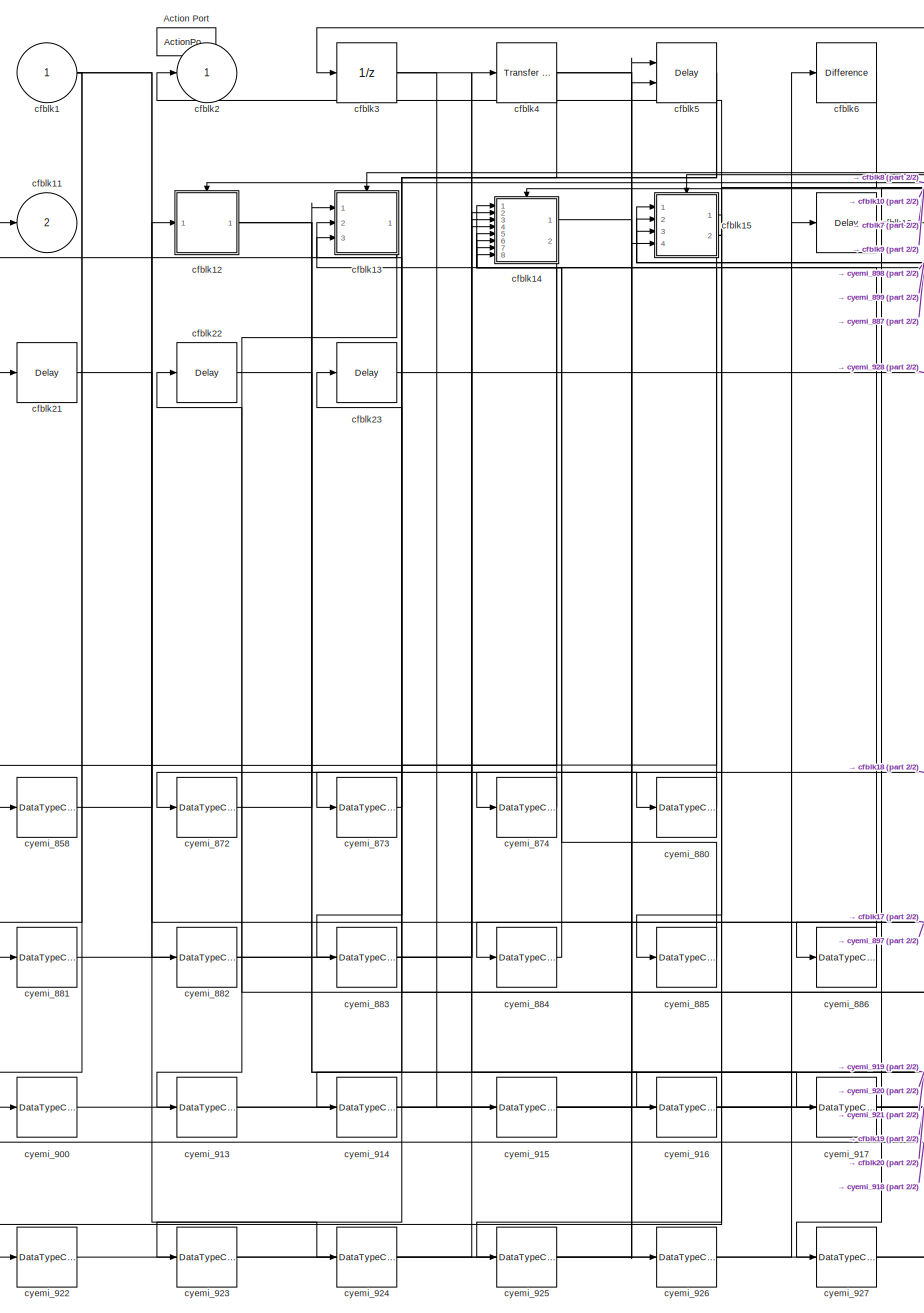
[diagram: cfblk278 - part 1/2, left side, full height]
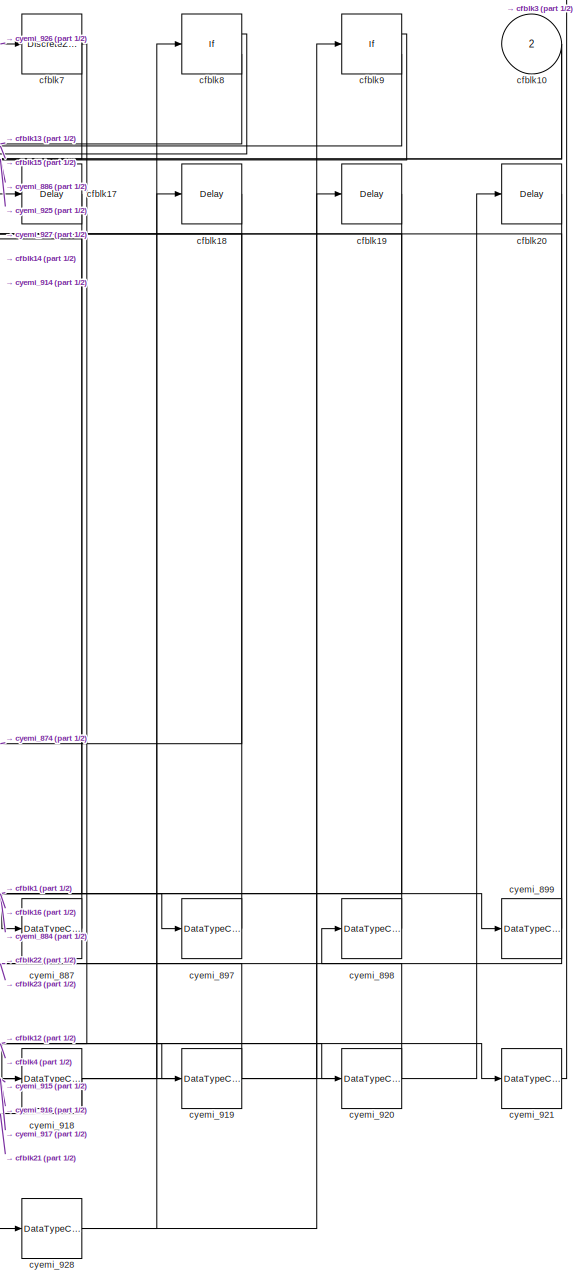
[diagram: cfblk278 - part 2/2, right side, full height]
BLOCK [SubSystem] cfblk278
  Ports = [2, 2, 0, 0, 0, 0, 0, 1]
  RequestExecContextInheritance = off
  TreatAsAtomicUnit = on
BLOCK [ActionPort] cfblk278/Action Port
  ActionType = else
BLOCK [Inport] cfblk278/cfblk1
  IconDisplay = Port number
BLOCK [Inport] cfblk278/cfblk10
  IconDisplay = Port number
  Port = 2
BLOCK [Outport] cfblk278/cfblk11
  IconDisplay = Port number
  Port = 2
BLOCK [SubSystem] cfblk278/cfblk12
  Ports = [1, 1, 0, 0, 0, 0, 0, 1]
  RequestExecContextInheritance = off
  TreatAsAtomicUnit = on
BLOCK [ActionPort] cfblk278/cfblk12/Action Port
  ActionType = then
BLOCK [Inport] cfblk278/cfblk12/cfblk1
  IconDisplay = Port number
BLOCK [DiscreteFir] cfblk278/cfblk12/cfblk10
  InputPortMap = u0
  OutputPortMap = o0
  Ports = [1, 1]
BLOCK [Reference] cfblk278/cfblk12/cfblk11  REF=simulink/Discrete/Transfer Fcn
Lead or Lag
  Ports = [1, 1]
  SourceBlock = simulink/Discrete/Transfer Fcn\nLead or Lag
  SourceProductBaseCode = SL
  SourceProductName = Simulink
  SourceType = Lead or Lag Compensator
BLOCK [DiscreteTransferFcn] cfblk278/cfblk12/cfblk12
  InputPortMap = u0
  Ports = [1, 1]
BLOCK [Delay] cfblk278/cfblk12/cfblk13
  InputPortMap = u0
  Ports = [1, 1]
BLOCK [Delay] cfblk278/cfblk12/cfblk14
  InputPortMap = u0
  Ports = [1, 1]
BLOCK [Delay] cfblk278/cfblk12/cfblk15
  InputPortMap = u0
  Ports = [1, 1]
BLOCK [Outport] cfblk278/cfblk12/cfblk2
  IconDisplay = Port number
BLOCK [Reference] cfblk278/cfblk12/cfblk3  REF=simulink/Discrete/Transfer Fcn
Lead or Lag
  Ports = [1, 1]
  SourceBlock = simulink/Discrete/Transfer Fcn\nLead or Lag
  SourceProductBaseCode = SL
  SourceProductName = Simulink
  SourceType = Lead or Lag Compensator
BLOCK [Delay] cfblk278/cfblk12/cfblk4
  InputPortMap = u0
  Ports = [1, 1]
BLOCK [Reference] cfblk278/cfblk12/cfblk5  REF=simulink/Continuous/PID Controller
  Ports = [1, 1]
  SourceBlock = simulink/Continuous/PID Controller
  SourceProductBaseCode = SL
  SourceProductName = Simulink
  SourceType = PID 1dof
BLOCK [DiscreteStateSpace] cfblk278/cfblk12/cfblk6
  SampleTime = -1
BLOCK [DiscreteIntegrator] cfblk278/cfblk12/cfblk7
  ICPrevOutput = DiscIntNeverNeededParam
  ICPrevScaledInput = DiscIntNeverNeededParam
  InitialConditionSetting = Auto
  OutDataTypeStr = double
  Ports = [1, 1]
  SampleTime = -1
BLOCK [Reference] cfblk278/cfblk12/cfblk8  REF=simulink/Discrete/Tapped Delay
  Ports = [1, 1]
  SourceBlock = simulink/Discrete/Tapped Delay
  SourceProductBaseCode = SL
  SourceProductName = Simulink
  SourceType = Tapped Delay Line
BLOCK [DiscreteFir] cfblk278/cfblk12/cfblk9
  InputPortMap = u0
  OutputPortMap = o0
  Ports = [1, 1]
BLOCK [DataTypeConversion] cfblk278/cfblk12/cyemi_859
  OutDataTypeStr = double
  RndMeth = Floor
  SaturateOnIntegerOverflow = off
BLOCK [DataTypeConversion] cfblk278/cfblk12/cyemi_860
  OutDataTypeStr = double
  RndMeth = Floor
  SaturateOnIntegerOverflow = off
BLOCK [DataTypeConversion] cfblk278/cfblk12/cyemi_861
  OutDataTypeStr = double
  RndMeth = Floor
  SaturateOnIntegerOverflow = off
BLOCK [DataTypeConversion] cfblk278/cfblk12/cyemi_862
  OutDataTypeStr = double
  RndMeth = Floor
  SaturateOnIntegerOverflow = off
BLOCK [DataTypeConversion] cfblk278/cfblk12/cyemi_863
  OutDataTypeStr = double
  RndMeth = Floor
  SaturateOnIntegerOverflow = off
BLOCK [DataTypeConversion] cfblk278/cfblk12/cyemi_864
  OutDataTypeStr = double
  RndMeth = Floor
  SaturateOnIntegerOverflow = off
BLOCK [DataTypeConversion] cfblk278/cfblk12/cyemi_865
  OutDataTypeStr = double
  RndMeth = Floor
  SaturateOnIntegerOverflow = off
BLOCK [DataTypeConversion] cfblk278/cfblk12/cyemi_866
  OutDataTypeStr = double
  RndMeth = Floor
  SaturateOnIntegerOverflow = off
BLOCK [DataTypeConversion] cfblk278/cfblk12/cyemi_867
  OutDataTypeStr = double
  RndMeth = Floor
  SaturateOnIntegerOverflow = off
BLOCK [DataTypeConversion] cfblk278/cfblk12/cyemi_868
  OutDataTypeStr = double
  RndMeth = Floor
  SaturateOnIntegerOverflow = off
BLOCK [DataTypeConversion] cfblk278/cfblk12/cyemi_869
  OutDataTypeStr = double
  RndMeth = Floor
  SaturateOnIntegerOverflow = off
BLOCK [DataTypeConversion] cfblk278/cfblk12/cyemi_870
  OutDataTypeStr = double
  RndMeth = Floor
  SaturateOnIntegerOverflow = off
BLOCK [DataTypeConversion] cfblk278/cfblk12/cyemi_871
  OutDataTypeStr = double
  RndMeth = Floor
  SaturateOnIntegerOverflow = off
BLOCK [SubSystem] cfblk278/cfblk13
  Ports = [3, 1, 0, 0, 0, 0, 0, 1]
  RequestExecContextInheritance = off
  TreatAsAtomicUnit = on
BLOCK [ActionPort] cfblk278/cfblk13/Action Port
  ActionType = else
BLOCK [Inport] cfblk278/cfblk13/cfblk1
  IconDisplay = Port number
BLOCK [Outport] cfblk278/cfblk13/cfblk2
  IconDisplay = Port number
BLOCK [DiscreteFir] cfblk278/cfblk13/cfblk3
  InputPortMap = u0
  OutputPortMap = o0
  Ports = [1, 1]
BLOCK [Delay] cfblk278/cfblk13/cfblk4
  InputPortMap = u0
  Ports = [1, 1]
BLOCK [Reference] cfblk278/cfblk13/cfblk5  REF=simulink/Discrete/Transfer Fcn
Real Zero
  Ports = [1, 1]
  SourceBlock = simulink/Discrete/Transfer Fcn\nReal Zero
  SourceProductBaseCode = SL
  SourceProductName = Simulink
  SourceType = Transfer Fcn Real Zero
BLOCK [DiscreteTransferFcn] cfblk278/cfblk13/cfblk6
  InputPortMap = u0
  Ports = [1, 1]
BLOCK [DiscreteIntegrator] cfblk278/cfblk13/cfblk7
  ICPrevOutput = DiscIntNeverNeededParam
  ICPrevScaledInput = DiscIntNeverNeededParam
  InitialConditionSetting = Auto
  OutDataTypeStr = double
  Ports = [1, 1]
  SampleTime = -1
BLOCK [Inport] cfblk278/cfblk13/cfblk8
  IconDisplay = Port number
  Port = 2
BLOCK [Inport] cfblk278/cfblk13/cfblk9
  IconDisplay = Port number
  Port = 3
BLOCK [DataTypeConversion] cfblk278/cfblk13/cyemi_875
  OutDataTypeStr = double
  RndMeth = Floor
  SaturateOnIntegerOverflow = off
BLOCK [DataTypeConversion] cfblk278/cfblk13/cyemi_876
  OutDataTypeStr = double
  RndMeth = Floor
  SaturateOnIntegerOverflow = off
BLOCK [DataTypeConversion] cfblk278/cfblk13/cyemi_877
  OutDataTypeStr = double
  RndMeth = Floor
  SaturateOnIntegerOverflow = off
BLOCK [DataTypeConversion] cfblk278/cfblk13/cyemi_878
  OutDataTypeStr = double
  RndMeth = Floor
  SaturateOnIntegerOverflow = off
BLOCK [DataTypeConversion] cfblk278/cfblk13/cyemi_879
  OutDataTypeStr = double
  RndMeth = Floor
  SaturateOnIntegerOverflow = off
BLOCK [SubSystem] cfblk278/cfblk14
  Ports = [8, 2, 0, 0, 0, 0, 0, 1]
  RequestExecContextInheritance = off
  TreatAsAtomicUnit = on
BLOCK [ActionPort] cfblk278/cfblk14/Action Port
  ActionType = then
BLOCK [Inport] cfblk278/cfblk14/cfblk1
  IconDisplay = Port number
BLOCK [Inport] cfblk278/cfblk14/cfblk10
  IconDisplay = Port number
  Port = 3
BLOCK [Inport] cfblk278/cfblk14/cfblk11
  IconDisplay = Port number
  Port = 4
BLOCK [Inport] cfblk278/cfblk14/cfblk12
  IconDisplay = Port number
  Port = 5
BLOCK [Inport] cfblk278/cfblk14/cfblk13
  IconDisplay = Port number
  Port = 6
BLOCK [Inport] cfblk278/cfblk14/cfblk14
  IconDisplay = Port number
  Port = 7
BLOCK [Inport] cfblk278/cfblk14/cfblk15
  IconDisplay = Port number
  Port = 8
BLOCK [Outport] cfblk278/cfblk14/cfblk16
  IconDisplay = Port number
  Port = 2
BLOCK [Delay] cfblk278/cfblk14/cfblk17
  InputPortMap = u0
  Ports = [1, 1]
BLOCK [Outport] cfblk278/cfblk14/cfblk2
  IconDisplay = Port number
BLOCK [DiscreteFilter] cfblk278/cfblk14/cfblk3
  InputPortMap = u0
  Ports = [1, 1]
BLOCK [Delay] cfblk278/cfblk14/cfblk4
  DelayLengthSource = Input port
  InputPortMap = u0,p1
  Ports = [2, 1]
BLOCK [DiscreteTransferFcn] cfblk278/cfblk14/cfblk5
  InputPortMap = u0
  Ports = [1, 1]
BLOCK [Delay] cfblk278/cfblk14/cfblk6
  DelayLengthSource = Input port
  InputPortMap = u0,p1
  Ports = [2, 1]
BLOCK [DiscreteStateSpace] cfblk278/cfblk14/cfblk7
  SampleTime = -1
BLOCK [UnitDelay] cfblk278/cfblk14/cfblk8
  InputProcessing = Elements as channels (sample based)
  SampleTime = -1
BLOCK [Inport] cfblk278/cfblk14/cfblk9
  IconDisplay = Port number
  Port = 2
BLOCK [DataTypeConversion] cfblk278/cfblk14/cyemi_888
  OutDataTypeStr = double
  RndMeth = Floor
  SaturateOnIntegerOverflow = off
BLOCK [DataTypeConversion] cfblk278/cfblk14/cyemi_889
  OutDataTypeStr = double
  RndMeth = Floor
  SaturateOnIntegerOverflow = off
BLOCK [DataTypeConversion] cfblk278/cfblk14/cyemi_890
  OutDataTypeStr = double
  RndMeth = Floor
  SaturateOnIntegerOverflow = off
BLOCK [DataTypeConversion] cfblk278/cfblk14/cyemi_891
  OutDataTypeStr = double
  RndMeth = Floor
  SaturateOnIntegerOverflow = off
BLOCK [DataTypeConversion] cfblk278/cfblk14/cyemi_892
  OutDataTypeStr = double
  RndMeth = Floor
  SaturateOnIntegerOverflow = off
BLOCK [DataTypeConversion] cfblk278/cfblk14/cyemi_893
  OutDataTypeStr = double
  RndMeth = Floor
  SaturateOnIntegerOverflow = off
BLOCK [DataTypeConversion] cfblk278/cfblk14/cyemi_894
  OutDataTypeStr = double
  RndMeth = Floor
  SaturateOnIntegerOverflow = off
BLOCK [DataTypeConversion] cfblk278/cfblk14/cyemi_895
  OutDataTypeStr = double
  RndMeth = Floor
  SaturateOnIntegerOverflow = off
BLOCK [DataTypeConversion] cfblk278/cfblk14/cyemi_896
  OutDataTypeStr = double
  RndMeth = Floor
  SaturateOnIntegerOverflow = off
BLOCK [SubSystem] cfblk278/cfblk15
  Ports = [4, 2, 0, 0, 0, 0, 0, 1]
  RequestExecContextInheritance = off
  TreatAsAtomicUnit = on
BLOCK [ActionPort] cfblk278/cfblk15/Action Port
  ActionType = else
BLOCK [Inport] cfblk278/cfblk15/cfblk1
  IconDisplay = Port number
BLOCK [Reference] cfblk278/cfblk15/cfblk10  REF=simulink/Discrete/Tapped Delay
  Ports = [1, 1]
  SourceBlock = simulink/Discrete/Tapped Delay
  SourceProductBaseCode = SL
  SourceProductName = Simulink
  SourceType = Tapped Delay Line
BLOCK [UnitDelay] cfblk278/cfblk15/cfblk11
  InputProcessing = Elements as channels (sample based)
  SampleTime = -1
BLOCK [DiscreteZeroPole] cfblk278/cfblk15/cfblk12
  Gain = 1
  Poles = [0 0.5]
  SampleTime = -1
BLOCK [Inport] cfblk278/cfblk15/cfblk13
  IconDisplay = Port number
  Port = 2
BLOCK [Inport] cfblk278/cfblk15/cfblk14
  IconDisplay = Port number
  Port = 3
BLOCK [Inport] cfblk278/cfblk15/cfblk15
  IconDisplay = Port number
  Port = 4
BLOCK [Outport] cfblk278/cfblk15/cfblk16
  IconDisplay = Port number
  Port = 2
BLOCK [Delay] cfblk278/cfblk15/cfblk17
  InputPortMap = u0
  Ports = [1, 1]
BLOCK [Outport] cfblk278/cfblk15/cfblk2
  IconDisplay = Port number
BLOCK [Reference] cfblk278/cfblk15/cfblk3  REF=simulink/Continuous/PID Controller (2DOF)
  Ports = [2, 1]
  SourceBlock = simulink/Continuous/PID Controller (2DOF)
  SourceProductBaseCode = SL
  SourceProductName = Simulink
  SourceType = PID 2dof
BLOCK [Reference] cfblk278/cfblk15/cfblk4  REF=simulink/Continuous/PID Controller
  Ports = [1, 1]
  SourceBlock = simulink/Continuous/PID Controller
  SourceProductBaseCode = SL
  SourceProductName = Simulink
  SourceType = PID 1dof
BLOCK [Reference] cfblk278/cfblk15/cfblk5  REF=simulink/Discrete/Transfer Fcn
First Order
  Ports = [1, 1]
  SourceBlock = simulink/Discrete/Transfer Fcn\nFirst Order
  SourceProductBaseCode = SL
  SourceProductName = Simulink
  SourceType = First Order Transfer Fcn
BLOCK [DiscreteZeroPole] cfblk278/cfblk15/cfblk6
  Gain = 1
  Poles = [0 0.5]
  SampleTime = -1
BLOCK [DiscreteIntegrator] cfblk278/cfblk15/cfblk7
  ICPrevOutput = DiscIntNeverNeededParam
  ICPrevScaledInput = DiscIntNeverNeededParam
  InitialConditionSetting = Auto
  OutDataTypeStr = double
  Ports = [1, 1]
  SampleTime = -1
BLOCK [DiscreteZeroPole] cfblk278/cfblk15/cfblk8
  Gain = 1
  Poles = [0 0.5]
  SampleTime = -1
BLOCK [DiscreteIntegrator] cfblk278/cfblk15/cfblk9
  ICPrevOutput = DiscIntNeverNeededParam
  ICPrevScaledInput = DiscIntNeverNeededParam
  InitialConditionSetting = Auto
  OutDataTypeStr = double
  Ports = [1, 1]
  SampleTime = -1
BLOCK [DataTypeConversion] cfblk278/cfblk15/cyemi_901
  OutDataTypeStr = double
  RndMeth = Floor
  SaturateOnIntegerOverflow = off
BLOCK [DataTypeConversion] cfblk278/cfblk15/cyemi_902
  OutDataTypeStr = double
  RndMeth = Floor
  SaturateOnIntegerOverflow = off
BLOCK [DataTypeConversion] cfblk278/cfblk15/cyemi_903
  OutDataTypeStr = double
  RndMeth = Floor
  SaturateOnIntegerOverflow = off
BLOCK [DataTypeConversion] cfblk278/cfblk15/cyemi_904
  OutDataTypeStr = double
  RndMeth = Floor
  SaturateOnIntegerOverflow = off
BLOCK [DataTypeConversion] cfblk278/cfblk15/cyemi_905
  OutDataTypeStr = double
  RndMeth = Floor
  SaturateOnIntegerOverflow = off
BLOCK [DataTypeConversion] cfblk278/cfblk15/cyemi_906
  OutDataTypeStr = double
  RndMeth = Floor
  SaturateOnIntegerOverflow = off
BLOCK [DataTypeConversion] cfblk278/cfblk15/cyemi_907
  OutDataTypeStr = double
  RndMeth = Floor
  SaturateOnIntegerOverflow = off
BLOCK [DataTypeConversion] cfblk278/cfblk15/cyemi_908
  OutDataTypeStr = double
  RndMeth = Floor
  SaturateOnIntegerOverflow = off
BLOCK [DataTypeConversion] cfblk278/cfblk15/cyemi_909
  OutDataTypeStr = double
  RndMeth = Floor
  SaturateOnIntegerOverflow = off
BLOCK [DataTypeConversion] cfblk278/cfblk15/cyemi_910
  OutDataTypeStr = double
  RndMeth = Floor
  SaturateOnIntegerOverflow = off
BLOCK [DataTypeConversion] cfblk278/cfblk15/cyemi_911
  OutDataTypeStr = double
  RndMeth = Floor
  SaturateOnIntegerOverflow = off
BLOCK [DataTypeConversion] cfblk278/cfblk15/cyemi_912
  OutDataTypeStr = double
  RndMeth = Floor
  SaturateOnIntegerOverflow = off
BLOCK [Delay] cfblk278/cfblk16
  InputPortMap = u0
  Ports = [1, 1]
BLOCK [Delay] cfblk278/cfblk17
  InputPortMap = u0
  Ports = [1, 1]
BLOCK [Delay] cfblk278/cfblk18
  InputPortMap = u0
  Ports = [1, 1]
BLOCK [Delay] cfblk278/cfblk19
  InputPortMap = u0
  Ports = [1, 1]
BLOCK [Outport] cfblk278/cfblk2
  IconDisplay = Port number
BLOCK [Delay] cfblk278/cfblk20
  InputPortMap = u0
  Ports = [1, 1]
BLOCK [Delay] cfblk278/cfblk21
  InputPortMap = u0
  Ports = [1, 1]
BLOCK [Delay] cfblk278/cfblk22
  InputPortMap = u0
  Ports = [1, 1]
BLOCK [Delay] cfblk278/cfblk23
  InputPortMap = u0
  Ports = [1, 1]
BLOCK [UnitDelay] cfblk278/cfblk3
  InputProcessing = Elements as channels (sample based)
  SampleTime = -1
BLOCK [Reference] cfblk278/cfblk4  REF=simulink/Discrete/Transfer Fcn
Lead or Lag
  Ports = [1, 1]
  SourceBlock = simulink/Discrete/Transfer Fcn\nLead or Lag
  SourceProductBaseCode = SL
  SourceProductName = Simulink
  SourceType = Lead or Lag Compensator
BLOCK [Delay] cfblk278/cfblk5
  DelayLengthSource = Input port
  InputPortMap = u0,p1
  Ports = [2, 1]
BLOCK [Reference] cfblk278/cfblk6  REF=simulink/Discrete/Difference
  Ports = [1, 1]
  SourceBlock = simulink/Discrete/Difference
  SourceProductBaseCode = SL
  SourceProductName = Simulink
  SourceType = Difference
BLOCK [DiscreteZeroPole] cfblk278/cfblk7
  Gain = 1
  Poles = [0 0.5]
  SampleTime = -1
BLOCK [If] cfblk278/cfblk8
  Ports = [1, 2]
  SampleTime = 1
BLOCK [If] cfblk278/cfblk9
  Ports = [1, 2]
  SampleTime = 1
BLOCK [DataTypeConversion] cfblk278/cyemi_858
  OutDataTypeStr = double
  RndMeth = Floor
  SaturateOnIntegerOverflow = off
BLOCK [DataTypeConversion] cfblk278/cyemi_872
  OutDataTypeStr = double
  RndMeth = Floor
  SaturateOnIntegerOverflow = off
BLOCK [DataTypeConversion] cfblk278/cyemi_873
  OutDataTypeStr = double
  RndMeth = Floor
  SaturateOnIntegerOverflow = off
BLOCK [DataTypeConversion] cfblk278/cyemi_874
  OutDataTypeStr = double
  RndMeth = Floor
  SaturateOnIntegerOverflow = off
BLOCK [DataTypeConversion] cfblk278/cyemi_880
  OutDataTypeStr = double
  RndMeth = Floor
  SaturateOnIntegerOverflow = off
BLOCK [DataTypeConversion] cfblk278/cyemi_881
  OutDataTypeStr = double
  RndMeth = Floor
  SaturateOnIntegerOverflow = off
BLOCK [DataTypeConversion] cfblk278/cyemi_882
  OutDataTypeStr = double
  RndMeth = Floor
  SaturateOnIntegerOverflow = off
BLOCK [DataTypeConversion] cfblk278/cyemi_883
  OutDataTypeStr = double
  RndMeth = Floor
  SaturateOnIntegerOverflow = off
BLOCK [DataTypeConversion] cfblk278/cyemi_884
  OutDataTypeStr = double
  RndMeth = Floor
  SaturateOnIntegerOverflow = off
BLOCK [DataTypeConversion] cfblk278/cyemi_885
  OutDataTypeStr = double
  RndMeth = Floor
  SaturateOnIntegerOverflow = off
BLOCK [DataTypeConversion] cfblk278/cyemi_886
  OutDataTypeStr = double
  RndMeth = Floor
  SaturateOnIntegerOverflow = off
BLOCK [DataTypeConversion] cfblk278/cyemi_887
  OutDataTypeStr = double
  RndMeth = Floor
  SaturateOnIntegerOverflow = off
BLOCK [DataTypeConversion] cfblk278/cyemi_897
  OutDataTypeStr = double
  RndMeth = Floor
  SaturateOnIntegerOverflow = off
BLOCK [DataTypeConversion] cfblk278/cyemi_898
  OutDataTypeStr = double
  RndMeth = Floor
  SaturateOnIntegerOverflow = off
BLOCK [DataTypeConversion] cfblk278/cyemi_899
  OutDataTypeStr = double
  RndMeth = Floor
  SaturateOnIntegerOverflow = off
BLOCK [DataTypeConversion] cfblk278/cyemi_900
  OutDataTypeStr = double
  RndMeth = Floor
  SaturateOnIntegerOverflow = off
BLOCK [DataTypeConversion] cfblk278/cyemi_913
  OutDataTypeStr = double
  RndMeth = Floor
  SaturateOnIntegerOverflow = off
BLOCK [DataTypeConversion] cfblk278/cyemi_914
  OutDataTypeStr = double
  RndMeth = Floor
  SaturateOnIntegerOverflow = off
BLOCK [DataTypeConversion] cfblk278/cyemi_915
  OutDataTypeStr = double
  RndMeth = Floor
  SaturateOnIntegerOverflow = off
BLOCK [DataTypeConversion] cfblk278/cyemi_916
  OutDataTypeStr = double
  RndMeth = Floor
  SaturateOnIntegerOverflow = off
BLOCK [DataTypeConversion] cfblk278/cyemi_917
  OutDataTypeStr = double
  RndMeth = Floor
  SaturateOnIntegerOverflow = off
BLOCK [DataTypeConversion] cfblk278/cyemi_918
  OutDataTypeStr = double
  RndMeth = Floor
  SaturateOnIntegerOverflow = off
BLOCK [DataTypeConversion] cfblk278/cyemi_919
  OutDataTypeStr = double
  RndMeth = Floor
  SaturateOnIntegerOverflow = off
BLOCK [DataTypeConversion] cfblk278/cyemi_920
  OutDataTypeStr = double
  RndMeth = Floor
  SaturateOnIntegerOverflow = off
BLOCK [DataTypeConversion] cfblk278/cyemi_921
  OutDataTypeStr = double
  RndMeth = Floor
  SaturateOnIntegerOverflow = off
BLOCK [DataTypeConversion] cfblk278/cyemi_922
  OutDataTypeStr = double
  RndMeth = Floor
  SaturateOnIntegerOverflow = off
BLOCK [DataTypeConversion] cfblk278/cyemi_923
  OutDataTypeStr = double
  RndMeth = Floor
  SaturateOnIntegerOverflow = off
BLOCK [DataTypeConversion] cfblk278/cyemi_924
  OutDataTypeStr = double
  RndMeth = Floor
  SaturateOnIntegerOverflow = off
BLOCK [DataTypeConversion] cfblk278/cyemi_925
  OutDataTypeStr = double
  RndMeth = Floor
  SaturateOnIntegerOverflow = off
BLOCK [DataTypeConversion] cfblk278/cyemi_926
  OutDataTypeStr = double
  RndMeth = Floor
  SaturateOnIntegerOverflow = off
BLOCK [DataTypeConversion] cfblk278/cyemi_927
  OutDataTypeStr = double
  RndMeth = Floor
  SaturateOnIntegerOverflow = off
BLOCK [DataTypeConversion] cfblk278/cyemi_928
  OutDataTypeStr = double
  RndMeth = Floor
  SaturateOnIntegerOverflow = off
BLOCK [SubSystem] cfblk279
  Ports = [2, 2, 0, 0, 0, 0, 0, 1]
  RequestExecContextInheritance = off
  TreatAsAtomicUnit = on
BLOCK [ActionPort] cfblk279/Action Port
  ActionType = then
BLOCK [Inport] cfblk279/cfblk1
  IconDisplay = Port number
BLOCK [Delay] cfblk279/cfblk10
  InputPortMap = u0
  Ports = [1, 1]
BLOCK [Delay] cfblk279/cfblk11
  InputPortMap = u0
  Ports = [1, 1]
BLOCK [Outport] cfblk279/cfblk2
  IconDisplay = Port number
BLOCK [Reference] cfblk279/cfblk3  REF=simulink/Discrete/Transfer Fcn
First Order
  Ports = [1, 1]
  SourceBlock = simulink/Discrete/Transfer Fcn\nFirst Order
  SourceProductBaseCode = SL
  SourceProductName = Simulink
  SourceType = First Order Transfer Fcn
BLOCK [Reference] cfblk279/cfblk4  REF=simulink/Discrete/Tapped Delay
  Ports = [1, 1]
  SourceBlock = simulink/Discrete/Tapped Delay
  SourceProductBaseCode = SL
  SourceProductName = Simulink
  SourceType = Tapped Delay Line
BLOCK [DiscreteTransferFcn] cfblk279/cfblk5
  InputPortMap = u0
  Ports = [1, 1]
BLOCK [DiscreteStateSpace] cfblk279/cfblk6
  SampleTime = -1
BLOCK [Delay] cfblk279/cfblk7
  InputPortMap = u0,e6
  Ports = [2, 1]
  ShowEnablePort = on
BLOCK [Inport] cfblk279/cfblk8
  IconDisplay = Port number
  Port = 2
BLOCK [Outport] cfblk279/cfblk9
  IconDisplay = Port number
  Port = 2
BLOCK [DataTypeConversion] cfblk279/cyemi_931
  OutDataTypeStr = double
  RndMeth = Floor
  SaturateOnIntegerOverflow = off
BLOCK [DataTypeConversion] cfblk279/cyemi_932
  OutDataTypeStr = double
  RndMeth = Floor
  SaturateOnIntegerOverflow = off
BLOCK [DataTypeConversion] cfblk279/cyemi_933
  OutDataTypeStr = double
  RndMeth = Floor
  SaturateOnIntegerOverflow = off
BLOCK [DataTypeConversion] cfblk279/cyemi_934
  OutDataTypeStr = double
  RndMeth = Floor
  SaturateOnIntegerOverflow = off
BLOCK [DataTypeConversion] cfblk279/cyemi_935
  OutDataTypeStr = double
  RndMeth = Floor
  SaturateOnIntegerOverflow = off
BLOCK [DataTypeConversion] cfblk279/cyemi_936
  OutDataTypeStr = double
  RndMeth = Floor
  SaturateOnIntegerOverflow = off
BLOCK [DataTypeConversion] cfblk279/cyemi_937
  OutDataTypeStr = double
  RndMeth = Floor
  SaturateOnIntegerOverflow = off
BLOCK [DataTypeConversion] cfblk279/cyemi_938
  OutDataTypeStr = double
  RndMeth = Floor
  SaturateOnIntegerOverflow = off
BLOCK [DiscreteFir] cfblk28
  InputPortMap = u0
  OutputPortMap = o0
  Ports = [1, 1]
  SampleTime = 1
BLOCK [SubSystem] cfblk280
  Ports = [2, 3, 0, 0, 0, 0, 0, 1]
  RequestExecContextInheritance = off
  TreatAsAtomicUnit = on
BLOCK [ActionPort] cfblk280/Action Port
  ActionType = else
BLOCK [Inport] cfblk280/cfblk1
  IconDisplay = Port number
BLOCK [Inport] cfblk280/cfblk10
  IconDisplay = Port number
  Port = 2
BLOCK [Outport] cfblk280/cfblk11
  IconDisplay = Port number
  Port = 2
BLOCK [Outport] cfblk280/cfblk12
  IconDisplay = Port number
  Port = 3
BLOCK [SubSystem] cfblk280/cfblk13
  Ports = [1, 2, 0, 0, 0, 0, 0, 1]
  RequestExecContextInheritance = off
  TreatAsAtomicUnit = on
BLOCK [ActionPort] cfblk280/cfblk13/Action Port
  ActionType = then
BLOCK [Inport] cfblk280/cfblk13/cfblk1
  IconDisplay = Port number
BLOCK [Outport] cfblk280/cfblk13/cfblk2
  IconDisplay = Port number
BLOCK [DiscreteTransferFcn] cfblk280/cfblk13/cfblk3
  InputPortMap = u0
  Ports = [1, 1]
BLOCK [DiscreteFilter] cfblk280/cfblk13/cfblk4
  InputPortMap = u0
  Ports = [1, 1]
BLOCK [Reference] cfblk280/cfblk13/cfblk5  REF=simulink/Discrete/Transfer Fcn
First Order
  Ports = [1, 1]
  SourceBlock = simulink/Discrete/Transfer Fcn\nFirst Order
  SourceProductBaseCode = SL
  SourceProductName = Simulink
  SourceType = First Order Transfer Fcn
BLOCK [Delay] cfblk280/cfblk13/cfblk6
  DelayLengthSource = Input port
  InputPortMap = u0,p1
  Ports = [2, 1]
BLOCK [Delay] cfblk280/cfblk13/cfblk7
  InputPortMap = u0,e6
  Ports = [2, 1]
  ShowEnablePort = on
BLOCK [Outport] cfblk280/cfblk13/cfblk8
  IconDisplay = Port number
  Port = 2
BLOCK [Delay] cfblk280/cfblk13/cfblk9
  InputPortMap = u0
  Ports = [1, 1]
BLOCK [DataTypeConversion] cfblk280/cfblk13/cyemi_943
  OutDataTypeStr = double
  RndMeth = Floor
  SaturateOnIntegerOverflow = off
BLOCK [DataTypeConversion] cfblk280/cfblk13/cyemi_944
  OutDataTypeStr = double
  RndMeth = Floor
  SaturateOnIntegerOverflow = off
BLOCK [DataTypeConversion] cfblk280/cfblk13/cyemi_945
  OutDataTypeStr = double
  RndMeth = Floor
  SaturateOnIntegerOverflow = off
BLOCK [DataTypeConversion] cfblk280/cfblk13/cyemi_946
  OutDataTypeStr = double
  RndMeth = Floor
  SaturateOnIntegerOverflow = off
BLOCK [DataTypeConversion] cfblk280/cfblk13/cyemi_947
  OutDataTypeStr = double
  RndMeth = Floor
  SaturateOnIntegerOverflow = off
BLOCK [DataTypeConversion] cfblk280/cfblk13/cyemi_948
  OutDataTypeStr = double
  RndMeth = Floor
  SaturateOnIntegerOverflow = off
BLOCK [DataTypeConversion] cfblk280/cfblk13/cyemi_949
  OutDataTypeStr = double
  RndMeth = Floor
  SaturateOnIntegerOverflow = off
BLOCK [DataTypeConversion] cfblk280/cfblk13/cyemi_950
  OutDataTypeStr = double
  RndMeth = Floor
  SaturateOnIntegerOverflow = off
BLOCK [SubSystem] cfblk280/cfblk14
  Ports = [3, 2, 0, 0, 0, 0, 0, 1]
  RequestExecContextInheritance = off
  TreatAsAtomicUnit = on
BLOCK [ActionPort] cfblk280/cfblk14/Action Port
  ActionType = else
BLOCK [Inport] cfblk280/cfblk14/cfblk1
  IconDisplay = Port number
BLOCK [Outport] cfblk280/cfblk14/cfblk10
  IconDisplay = Port number
  Port = 2
BLOCK [DataTypeConversion] cfblk280/cfblk14/cfblk11
  OutDataTypeStr = double
  RndMeth = Floor
  SaturateOnIntegerOverflow = off
BLOCK [Outport] cfblk280/cfblk14/cfblk2
  IconDisplay = Port number
BLOCK [Delay] cfblk280/cfblk14/cfblk3
  InputPortMap = u0
  Ports = [1, 1]
BLOCK [Reference] cfblk280/cfblk14/cfblk4  REF=simulink/Continuous/PID Controller
  Ports = [1, 1]
  SourceBlock = simulink/Continuous/PID Controller
  SourceProductBaseCode = SL
  SourceProductName = Simulink
  SourceType = PID 1dof
BLOCK [DiscreteZeroPole] cfblk280/cfblk14/cfblk5
  Gain = 1
  Poles = [0 0.5]
  SampleTime = -1
BLOCK [Delay] cfblk280/cfblk14/cfblk6
  InputPortMap = u0
  Ports = [1, 1]
BLOCK [DiscreteZeroPole] cfblk280/cfblk14/cfblk7
  Gain = 1
  Poles = [0 0.5]
  SampleTime = -1
BLOCK [Inport] cfblk280/cfblk14/cfblk8
  IconDisplay = Port number
  Port = 2
BLOCK [Inport] cfblk280/cfblk14/cfblk9
  IconDisplay = Port number
  Port = 3
BLOCK [DataTypeConversion] cfblk280/cfblk14/cyemi_954
  OutDataTypeStr = uint8
  RndMeth = Floor
  SaturateOnIntegerOverflow = off
BLOCK [DataTypeConversion] cfblk280/cfblk14/cyemi_955
  OutDataTypeStr = fixdt('ufix8_E6')
  RndMeth = Floor
  SaturateOnIntegerOverflow = off
BLOCK [DataTypeConversion] cfblk280/cfblk14/cyemi_956
  OutDataTypeStr = double
  RndMeth = Floor
  SaturateOnIntegerOverflow = off
BLOCK [DataTypeConversion] cfblk280/cfblk14/cyemi_957
  OutDataTypeStr = double
  RndMeth = Floor
  SaturateOnIntegerOverflow = off
BLOCK [DataTypeConversion] cfblk280/cfblk14/cyemi_958
  OutDataTypeStr = double
  RndMeth = Floor
  SaturateOnIntegerOverflow = off
BLOCK [DataTypeConversion] cfblk280/cfblk14/cyemi_959
  OutDataTypeStr = double
  RndMeth = Floor
  SaturateOnIntegerOverflow = off
BLOCK [Delay] cfblk280/cfblk15
  InputPortMap = u0
  Ports = [1, 1]
BLOCK [Delay] cfblk280/cfblk16
  InputPortMap = u0
  Ports = [1, 1]
BLOCK [Outport] cfblk280/cfblk2
  IconDisplay = Port number
BLOCK [Delay] cfblk280/cfblk3
  DelayLengthSource = Input port
  InputPortMap = u0,p1
  Ports = [2, 1]
BLOCK [Reference] cfblk280/cfblk4  REF=simulink/Discrete/Transfer Fcn
Lead or Lag
  Ports = [1, 1]
  SourceBlock = simulink/Discrete/Transfer Fcn\nLead or Lag
  SourceProductBaseCode = SL
  SourceProductName = Simulink
  SourceType = Lead or Lag Compensator
BLOCK [Reference] cfblk280/cfblk5  REF=simulink/Discrete/Transfer Fcn
First Order
  Ports = [1, 1]
  SourceBlock = simulink/Discrete/Transfer Fcn\nFirst Order
  SourceProductBaseCode = SL
  SourceProductName = Simulink
  SourceType = First Order Transfer Fcn
BLOCK [Reference] cfblk280/cfblk6  REF=simulink/Discrete/Tapped Delay
  Ports = [1, 1]
  SourceBlock = simulink/Discrete/Tapped Delay
  SourceProductBaseCode = SL
  SourceProductName = Simulink
  SourceType = Tapped Delay Line
BLOCK [Reference] cfblk280/cfblk7  REF=simulink/Discrete/Transfer Fcn
Lead or Lag
  Ports = [1, 1]
  SourceBlock = simulink/Discrete/Transfer Fcn\nLead or Lag
  SourceProductBaseCode = SL
  SourceProductName = Simulink
  SourceType = Lead or Lag Compensator
BLOCK [Delay] cfblk280/cfblk8
  InputPortMap = u0,e6
  Ports = [2, 1]
  ShowEnablePort = on
BLOCK [If] cfblk280/cfblk9
  Ports = [1, 2]
  SampleTime = 1
BLOCK [DataTypeConversion] cfblk280/cyemi_942
  OutDataTypeStr = double
  RndMeth = Floor
  SaturateOnIntegerOverflow = off
BLOCK [DataTypeConversion] cfblk280/cyemi_951
  OutDataTypeStr = uint8
  RndMeth = Floor
  SaturateOnIntegerOverflow = off
BLOCK [DataTypeConversion] cfblk280/cyemi_952
  OutDataTypeStr = fixdt('ufix8_E6')
  RndMeth = Floor
  SaturateOnIntegerOverflow = off
BLOCK [DataTypeConversion] cfblk280/cyemi_953
  OutDataTypeStr = uint8
  RndMeth = Floor
  SaturateOnIntegerOverflow = off
BLOCK [DataTypeConversion] cfblk280/cyemi_960
  OutDataTypeStr = fixdt('ufix8_E6')
  RndMeth = Floor
  SaturateOnIntegerOverflow = off
BLOCK [DataTypeConversion] cfblk280/cyemi_961
  OutDataTypeStr = double
  RndMeth = Floor
  SaturateOnIntegerOverflow = off
BLOCK [DataTypeConversion] cfblk280/cyemi_962
  OutDataTypeStr = fixdt('ufix8_E3')
  RndMeth = Floor
  SaturateOnIntegerOverflow = off
BLOCK [DataTypeConversion] cfblk280/cyemi_963
  OutDataTypeStr = double
  RndMeth = Floor
  SaturateOnIntegerOverflow = off
BLOCK [DataTypeConversion] cfblk280/cyemi_964
  OutDataTypeStr = fixdt('ufix8_E3')
  RndMeth = Floor
  SaturateOnIntegerOverflow = off
BLOCK [DataTypeConversion] cfblk280/cyemi_965
  OutDataTypeStr = double
  RndMeth = Floor
  SaturateOnIntegerOverflow = off
BLOCK [DataTypeConversion] cfblk280/cyemi_966
  OutDataTypeStr = uint8
  RndMeth = Floor
  SaturateOnIntegerOverflow = off
BLOCK [DataTypeConversion] cfblk280/cyemi_967
  OutDataTypeStr = uint8
  RndMeth = Floor
  SaturateOnIntegerOverflow = off
BLOCK [DataTypeConversion] cfblk280/cyemi_968
  OutDataTypeStr = uint8
  RndMeth = Floor
  SaturateOnIntegerOverflow = off
BLOCK [DataTypeConversion] cfblk280/cyemi_969
  OutDataTypeStr = double
  RndMeth = Floor
  SaturateOnIntegerOverflow = off
BLOCK [DataTypeConversion] cfblk280/cyemi_970
  OutDataTypeStr = double
  RndMeth = Floor
  SaturateOnIntegerOverflow = off
BLOCK [SubSystem] cfblk281
  Ports = [3, 1, 0, 0, 0, 0, 0, 1]
  RequestExecContextInheritance = off
  TreatAsAtomicUnit = on
BLOCK [ActionPort] cfblk281/Action Port
  ActionType = then
BLOCK [Inport] cfblk281/cfblk1
  IconDisplay = Port number
BLOCK [Delay] cfblk281/cfblk10
  InputPortMap = u0
  Ports = [1, 1]
BLOCK [Reference] cfblk281/cfblk11  REF=simulink/Discrete/Transfer Fcn
First Order
  Ports = [1, 1]
  SourceBlock = simulink/Discrete/Transfer Fcn\nFirst Order
  SourceProductBaseCode = SL
  SourceProductName = Simulink
  SourceType = First Order Transfer Fcn
BLOCK [Inport] cfblk281/cfblk12
  IconDisplay = Port number
  Port = 2
BLOCK [Inport] cfblk281/cfblk13
  IconDisplay = Port number
  Port = 3
BLOCK [Outport] cfblk281/cfblk2
  IconDisplay = Port number
BLOCK [Reference] cfblk281/cfblk3  REF=simulink/Discrete/Transfer Fcn
Real Zero
  Ports = [1, 1]
  SourceBlock = simulink/Discrete/Transfer Fcn\nReal Zero
  SourceProductBaseCode = SL
  SourceProductName = Simulink
  SourceType = Transfer Fcn Real Zero
BLOCK [Reference] cfblk281/cfblk4  REF=simulink/Continuous/PID Controller
  Ports = [1, 1]
  SourceBlock = simulink/Continuous/PID Controller
  SourceProductBaseCode = SL
  SourceProductName = Simulink
  SourceType = PID 1dof
BLOCK [Delay] cfblk281/cfblk5
  InputPortMap = u0,e6
  Ports = [2, 1]
  ShowEnablePort = on
BLOCK [Delay] cfblk281/cfblk6
  InputPortMap = u0
  Ports = [1, 1]
BLOCK [Delay] cfblk281/cfblk7
  DelayLengthSource = Input port
  InputPortMap = u0,p1
  Ports = [2, 1]
BLOCK [DiscreteStateSpace] cfblk281/cfblk8
  SampleTime = -1
BLOCK [DiscreteFilter] cfblk281/cfblk9
  InputPortMap = u0
  Ports = [1, 1]
BLOCK [DataTypeConversion] cfblk281/cyemi_974
  OutDataTypeStr = double
  RndMeth = Floor
  SaturateOnIntegerOverflow = off
BLOCK [DataTypeConversion] cfblk281/cyemi_975
  OutDataTypeStr = double
  RndMeth = Floor
  SaturateOnIntegerOverflow = off
BLOCK [DataTypeConversion] cfblk281/cyemi_976
  OutDataTypeStr = double
  RndMeth = Floor
  SaturateOnIntegerOverflow = off
BLOCK [DataTypeConversion] cfblk281/cyemi_977
  OutDataTypeStr = double
  RndMeth = Floor
  SaturateOnIntegerOverflow = off
BLOCK [DataTypeConversion] cfblk281/cyemi_978
  OutDataTypeStr = double
  RndMeth = Floor
  SaturateOnIntegerOverflow = off
BLOCK [DataTypeConversion] cfblk281/cyemi_979
  OutDataTypeStr = double
  RndMeth = Floor
  SaturateOnIntegerOverflow = off
BLOCK [DataTypeConversion] cfblk281/cyemi_980
  OutDataTypeStr = double
  RndMeth = Floor
  SaturateOnIntegerOverflow = off
BLOCK [DataTypeConversion] cfblk281/cyemi_981
  OutDataTypeStr = double
  RndMeth = Floor
  SaturateOnIntegerOverflow = off
BLOCK [DataTypeConversion] cfblk281/cyemi_982
  OutDataTypeStr = double
  RndMeth = Floor
  SaturateOnIntegerOverflow = off
BLOCK [DataTypeConversion] cfblk281/cyemi_983
  OutDataTypeStr = double
  RndMeth = Floor
  SaturateOnIntegerOverflow = off
BLOCK [DataTypeConversion] cfblk281/cyemi_984
  OutDataTypeStr = double
  RndMeth = Floor
  SaturateOnIntegerOverflow = off
BLOCK [SubSystem] cfblk282
  Ports = [3, 5, 0, 0, 0, 0, 0, 1]
  RequestExecContextInheritance = off
  TreatAsAtomicUnit = on
BLOCK [ActionPort] cfblk282/Action Port
  ActionType = else
BLOCK [Inport] cfblk282/cfblk1
  IconDisplay = Port number
BLOCK [Inport] cfblk282/cfblk10
  IconDisplay = Port number
  Port = 2
BLOCK [Inport] cfblk282/cfblk11
  IconDisplay = Port number
  Port = 3
BLOCK [Outport] cfblk282/cfblk12
  IconDisplay = Port number
  Port = 2
BLOCK [Outport] cfblk282/cfblk13
  IconDisplay = Port number
  Port = 3
BLOCK [Outport] cfblk282/cfblk14
  IconDisplay = Port number
  Port = 4
BLOCK [Outport] cfblk282/cfblk15
  IconDisplay = Port number
  Port = 5
BLOCK [Delay] cfblk282/cfblk16
  InputPortMap = u0
  Ports = [1, 1]
BLOCK [Delay] cfblk282/cfblk17
  InputPortMap = u0
  Ports = [1, 1]
BLOCK [Outport] cfblk282/cfblk2
  IconDisplay = Port number
BLOCK [Reference] cfblk282/cfblk3  REF=simulink/Discrete/Tapped Delay
  Ports = [1, 1]
  SourceBlock = simulink/Discrete/Tapped Delay
  SourceProductBaseCode = SL
  SourceProductName = Simulink
  SourceType = Tapped Delay Line
BLOCK [DiscreteIntegrator] cfblk282/cfblk4
  ICPrevOutput = DiscIntNeverNeededParam
  ICPrevScaledInput = DiscIntNeverNeededParam
  InitialConditionSetting = Auto
  OutDataTypeStr = double
  Ports = [1, 1]
  SampleTime = -1
BLOCK [Delay] cfblk282/cfblk5
  InputPortMap = u0,e6
  Ports = [2, 1]
  ShowEnablePort = on
BLOCK [Reference] cfblk282/cfblk6  REF=simulink/Discrete/Tapped Delay
  Ports = [1, 1]
  SourceBlock = simulink/Discrete/Tapped Delay
  SourceProductBaseCode = SL
  SourceProductName = Simulink
  SourceType = Tapped Delay Line
BLOCK [Reference] cfblk282/cfblk7  REF=simulink/Discrete/Tapped Delay
  Ports = [1, 1]
  SourceBlock = simulink/Discrete/Tapped Delay
  SourceProductBaseCode = SL
  SourceProductName = Simulink
  SourceType = Tapped Delay Line
BLOCK [Delay] cfblk282/cfblk8
  DelayLengthSource = Input port
  InputPortMap = u0,p1
  Ports = [2, 1]
BLOCK [DiscreteFir] cfblk282/cfblk9
  InputPortMap = u0
  OutputPortMap = o0
  Ports = [1, 1]
BLOCK [DataTypeConversion] cfblk282/cyemi_988
  OutDataTypeStr = double
  RndMeth = Floor
  SaturateOnIntegerOverflow = off
BLOCK [DataTypeConversion] cfblk282/cyemi_989
  OutDataTypeStr = double
  RndMeth = Floor
  SaturateOnIntegerOverflow = off
BLOCK [DataTypeConversion] cfblk282/cyemi_990
  OutDataTypeStr = double
  RndMeth = Floor
  SaturateOnIntegerOverflow = off
BLOCK [DataTypeConversion] cfblk282/cyemi_991
  OutDataTypeStr = double
  RndMeth = Floor
  SaturateOnIntegerOverflow = off
BLOCK [DataTypeConversion] cfblk282/cyemi_992
  OutDataTypeStr = double
  RndMeth = Floor
  SaturateOnIntegerOverflow = off
BLOCK [DataTypeConversion] cfblk282/cyemi_993
  OutDataTypeStr = double
  RndMeth = Floor
  SaturateOnIntegerOverflow = off
BLOCK [DataTypeConversion] cfblk282/cyemi_994
  OutDataTypeStr = double
  RndMeth = Floor
  SaturateOnIntegerOverflow = off
BLOCK [DataTypeConversion] cfblk282/cyemi_995
  OutDataTypeStr = double
  RndMeth = Floor
  SaturateOnIntegerOverflow = off
BLOCK [DataTypeConversion] cfblk282/cyemi_996
  OutDataTypeStr = double
  RndMeth = Floor
  SaturateOnIntegerOverflow = off
BLOCK [DataTypeConversion] cfblk282/cyemi_997
  OutDataTypeStr = double
  RndMeth = Floor
  SaturateOnIntegerOverflow = off
BLOCK [DataTypeConversion] cfblk282/cyemi_998
  OutDataTypeStr = double
  RndMeth = Floor
  SaturateOnIntegerOverflow = off
BLOCK [SubSystem] cfblk283
  Ports = [2, 4, 0, 0, 0, 0, 0, 1]
  RequestExecContextInheritance = off
  TreatAsAtomicUnit = on
BLOCK [ActionPort] cfblk283/Action Port
  ActionType = then
BLOCK [Inport] cfblk283/cfblk1
  IconDisplay = Port number
BLOCK [DiscreteTransferFcn] cfblk283/cfblk10
  InputPortMap = u0
  Ports = [1, 1]
BLOCK [DiscreteZeroPole] cfblk283/cfblk11
  Gain = 1
  Poles = [0 0.5]
  SampleTime = -1
BLOCK [DiscreteFir] cfblk283/cfblk12
  InputPortMap = u0
  OutputPortMap = o0
  Ports = [1, 1]
BLOCK [Delay] cfblk283/cfblk13
  DelayLengthSource = Input port
  InputPortMap = u0,p1
  Ports = [2, 1]
BLOCK [Inport] cfblk283/cfblk14
  IconDisplay = Port number
  Port = 2
BLOCK [Outport] cfblk283/cfblk15
  IconDisplay = Port number
  Port = 2
BLOCK [Outport] cfblk283/cfblk16
  IconDisplay = Port number
  Port = 3
BLOCK [Outport] cfblk283/cfblk17
  IconDisplay = Port number
  Port = 4
BLOCK [Outport] cfblk283/cfblk2
  IconDisplay = Port number
BLOCK [Reference] cfblk283/cfblk3  REF=simulink/Discrete/Difference
  Ports = [1, 1]
  SourceBlock = simulink/Discrete/Difference
  SourceProductBaseCode = SL
  SourceProductName = Simulink
  SourceType = Difference
BLOCK [Reference] cfblk283/cfblk4  REF=simulink/Discrete/Transfer Fcn
Real Zero
  Ports = [1, 1]
  SourceBlock = simulink/Discrete/Transfer Fcn\nReal Zero
  SourceProductBaseCode = SL
  SourceProductName = Simulink
  SourceType = Transfer Fcn Real Zero
BLOCK [Reference] cfblk283/cfblk5  REF=simulink/Discrete/Transfer Fcn
Lead or Lag
  Ports = [1, 1]
  SourceBlock = simulink/Discrete/Transfer Fcn\nLead or Lag
  SourceProductBaseCode = SL
  SourceProductName = Simulink
  SourceType = Lead or Lag Compensator
BLOCK [Reference] cfblk283/cfblk6  REF=simulink/Discrete/Difference
  Ports = [1, 1]
  SourceBlock = simulink/Discrete/Difference
  SourceProductBaseCode = SL
  SourceProductName = Simulink
  SourceType = Difference
BLOCK [Reference] cfblk283/cfblk7  REF=simulink/Discrete/Tapped Delay
  Ports = [1, 1]
  SourceBlock = simulink/Discrete/Tapped Delay
  SourceProductBaseCode = SL
  SourceProductName = Simulink
  SourceType = Tapped Delay Line
BLOCK [Reference] cfblk283/cfblk8  REF=simulink/Continuous/PID Controller
  Ports = [1, 1]
  SourceBlock = simulink/Continuous/PID Controller
  SourceProductBaseCode = SL
  SourceProductName = Simulink
  SourceType = PID 1dof
BLOCK [Reference] cfblk283/cfblk9  REF=simulink/Discrete/Transfer Fcn
Lead or Lag
  Ports = [1, 1]
  SourceBlock = simulink/Discrete/Transfer Fcn\nLead or Lag
  SourceProductBaseCode = SL
  SourceProductName = Simulink
  SourceType = Lead or Lag Compensator
BLOCK [DataTypeConversion] cfblk283/cyemi_1001
  OutDataTypeStr = double
  RndMeth = Floor
  SaturateOnIntegerOverflow = off
BLOCK [DataTypeConversion] cfblk283/cyemi_1002
  OutDataTypeStr = double
  RndMeth = Floor
  SaturateOnIntegerOverflow = off
BLOCK [DataTypeConversion] cfblk283/cyemi_1003
  OutDataTypeStr = double
  RndMeth = Floor
  SaturateOnIntegerOverflow = off
BLOCK [DataTypeConversion] cfblk283/cyemi_1004
  OutDataTypeStr = double
  RndMeth = Floor
  SaturateOnIntegerOverflow = off
BLOCK [DataTypeConversion] cfblk283/cyemi_1005
  OutDataTypeStr = double
  RndMeth = Floor
  SaturateOnIntegerOverflow = off
BLOCK [DataTypeConversion] cfblk283/cyemi_1006
  OutDataTypeStr = double
  RndMeth = Floor
  SaturateOnIntegerOverflow = off
BLOCK [DataTypeConversion] cfblk283/cyemi_1007
  OutDataTypeStr = double
  RndMeth = Floor
  SaturateOnIntegerOverflow = off
BLOCK [DataTypeConversion] cfblk283/cyemi_1008
  OutDataTypeStr = double
  RndMeth = Floor
  SaturateOnIntegerOverflow = off
BLOCK [DataTypeConversion] cfblk283/cyemi_1009
  OutDataTypeStr = double
  RndMeth = Floor
  SaturateOnIntegerOverflow = off
BLOCK [DataTypeConversion] cfblk283/cyemi_1010
  OutDataTypeStr = double
  RndMeth = Floor
  SaturateOnIntegerOverflow = off
BLOCK [DataTypeConversion] cfblk283/cyemi_1011
  OutDataTypeStr = double
  RndMeth = Floor
  SaturateOnIntegerOverflow = off
BLOCK [DataTypeConversion] cfblk283/cyemi_1012
  OutDataTypeStr = double
  RndMeth = Floor
  SaturateOnIntegerOverflow = off
BLOCK [SubSystem] cfblk284
  Ports = [2, 2, 0, 0, 0, 0, 0, 1]
  RequestExecContextInheritance = off
  TreatAsAtomicUnit = on
BLOCK [ActionPort] cfblk284/Action Port
  ActionType = else
BLOCK [Inport] cfblk284/cfblk1
  IconDisplay = Port number
BLOCK [SubSystem] cfblk284/cfblk10
  Ports = [4, 4, 0, 0, 0, 0, 0, 1]
  RequestExecContextInheritance = off
  TreatAsAtomicUnit = on
BLOCK [ActionPort] cfblk284/cfblk10/Action Port
  ActionType = then
BLOCK [Inport] cfblk284/cfblk10/cfblk1
  IconDisplay = Port number
BLOCK [Inport] cfblk284/cfblk10/cfblk10
  IconDisplay = Port number
  Port = 2
BLOCK [Inport] cfblk284/cfblk10/cfblk11
  IconDisplay = Port number
  Port = 3
BLOCK [Inport] cfblk284/cfblk10/cfblk12
  IconDisplay = Port number
  Port = 4
BLOCK [Outport] cfblk284/cfblk10/cfblk13
  IconDisplay = Port number
  Port = 2
BLOCK [Outport] cfblk284/cfblk10/cfblk14
  IconDisplay = Port number
  Port = 3
BLOCK [Outport] cfblk284/cfblk10/cfblk15
  IconDisplay = Port number
  Port = 4
BLOCK [Outport] cfblk284/cfblk10/cfblk2
  IconDisplay = Port number
BLOCK [Delay] cfblk284/cfblk10/cfblk3
  InputPortMap = u0
  Ports = [1, 1]
BLOCK [DiscreteFir] cfblk284/cfblk10/cfblk4
  InputPortMap = u0
  OutputPortMap = o0
  Ports = [1, 1]
BLOCK [DiscreteFir] cfblk284/cfblk10/cfblk5
  InputPortMap = u0
  OutputPortMap = o0
  Ports = [1, 1]
BLOCK [UnitDelay] cfblk284/cfblk10/cfblk6
  InputProcessing = Elements as channels (sample based)
  SampleTime = -1
BLOCK [UnitDelay] cfblk284/cfblk10/cfblk7
  InputProcessing = Elements as channels (sample based)
  SampleTime = -1
BLOCK [Reference] cfblk284/cfblk10/cfblk8  REF=simulink/Discrete/Transfer Fcn
Real Zero
  Ports = [1, 1]
  SourceBlock = simulink/Discrete/Transfer Fcn\nReal Zero
  SourceProductBaseCode = SL
  SourceProductName = Simulink
  SourceType = Transfer Fcn Real Zero
BLOCK [Reference] cfblk284/cfblk10/cfblk9  REF=simulink/Discrete/Tapped Delay
  Ports = [1, 1]
  SourceBlock = simulink/Discrete/Tapped Delay
  SourceProductBaseCode = SL
  SourceProductName = Simulink
  SourceType = Tapped Delay Line
BLOCK [DataTypeConversion] cfblk284/cfblk10/cyemi_1019
  OutDataTypeStr = double
  RndMeth = Floor
  SaturateOnIntegerOverflow = off
BLOCK [DataTypeConversion] cfblk284/cfblk10/cyemi_1020
  OutDataTypeStr = double
  RndMeth = Floor
  SaturateOnIntegerOverflow = off
BLOCK [DataTypeConversion] cfblk284/cfblk10/cyemi_1021
  OutDataTypeStr = double
  RndMeth = Floor
  SaturateOnIntegerOverflow = off
BLOCK [DataTypeConversion] cfblk284/cfblk10/cyemi_1022
  OutDataTypeStr = double
  RndMeth = Floor
  SaturateOnIntegerOverflow = off
BLOCK [DataTypeConversion] cfblk284/cfblk10/cyemi_1023
  OutDataTypeStr = double
  RndMeth = Floor
  SaturateOnIntegerOverflow = off
BLOCK [DataTypeConversion] cfblk284/cfblk10/cyemi_1024
  OutDataTypeStr = double
  RndMeth = Floor
  SaturateOnIntegerOverflow = off
BLOCK [DataTypeConversion] cfblk284/cfblk10/cyemi_1025
  OutDataTypeStr = double
  RndMeth = Floor
  SaturateOnIntegerOverflow = off
BLOCK [SubSystem] cfblk284/cfblk11
  Ports = [3, 2, 0, 0, 0, 0, 0, 1]
  RequestExecContextInheritance = off
  TreatAsAtomicUnit = on
BLOCK [ActionPort] cfblk284/cfblk11/Action Port
  ActionType = else
BLOCK [Inport] cfblk284/cfblk11/cfblk1
  IconDisplay = Port number
BLOCK [Reference] cfblk284/cfblk11/cfblk10  REF=simulink/Continuous/PID Controller (2DOF)
  Ports = [2, 1]
  SourceBlock = simulink/Continuous/PID Controller (2DOF)
  SourceProductBaseCode = SL
  SourceProductName = Simulink
  SourceType = PID 2dof
BLOCK [Reference] cfblk284/cfblk11/cfblk11  REF=simulink/Discrete/Transfer Fcn
Real Zero
  Ports = [1, 1]
  SourceBlock = simulink/Discrete/Transfer Fcn\nReal Zero
  SourceProductBaseCode = SL
  SourceProductName = Simulink
  SourceType = Transfer Fcn Real Zero
BLOCK [Reference] cfblk284/cfblk11/cfblk12  REF=simulink/Continuous/PID Controller (2DOF)
  Ports = [2, 1]
  SourceBlock = simulink/Continuous/PID Controller (2DOF)
  SourceProductBaseCode = SL
  SourceProductName = Simulink
  SourceType = PID 2dof
BLOCK [Inport] cfblk284/cfblk11/cfblk13
  IconDisplay = Port number
  Port = 2
BLOCK [Inport] cfblk284/cfblk11/cfblk14
  IconDisplay = Port number
  Port = 3
BLOCK [Outport] cfblk284/cfblk11/cfblk15
  IconDisplay = Port number
  Port = 2
BLOCK [Delay] cfblk284/cfblk11/cfblk16
  InputPortMap = u0
  Ports = [1, 1]
BLOCK [Outport] cfblk284/cfblk11/cfblk2
  IconDisplay = Port number
BLOCK [Reference] cfblk284/cfblk11/cfblk3  REF=simulink/Discrete/Difference
  Ports = [1, 1]
  SourceBlock = simulink/Discrete/Difference
  SourceProductBaseCode = SL
  SourceProductName = Simulink
  SourceType = Difference
BLOCK [Reference] cfblk284/cfblk11/cfblk4  REF=simulink/Discrete/Transfer Fcn
Real Zero
  Ports = [1, 1]
  SourceBlock = simulink/Discrete/Transfer Fcn\nReal Zero
  SourceProductBaseCode = SL
  SourceProductName = Simulink
  SourceType = Transfer Fcn Real Zero
BLOCK [Delay] cfblk284/cfblk11/cfblk5
  InputPortMap = u0
  Ports = [1, 1]
BLOCK [DiscreteZeroPole] cfblk284/cfblk11/cfblk6
  Gain = 1
  Poles = [0 0.5]
  SampleTime = -1
BLOCK [Delay] cfblk284/cfblk11/cfblk7
  InputPortMap = u0
  Ports = [1, 1]
BLOCK [Reference] cfblk284/cfblk11/cfblk8  REF=simulink/Continuous/PID Controller (2DOF)
  Ports = [2, 1]
  SourceBlock = simulink/Continuous/PID Controller (2DOF)
  SourceProductBaseCode = SL
  SourceProductName = Simulink
  SourceType = PID 2dof
BLOCK [UnitDelay] cfblk284/cfblk11/cfblk9
  InputProcessing = Elements as channels (sample based)
  SampleTime = -1
BLOCK [DataTypeConversion] cfblk284/cfblk11/cyemi_1029
  OutDataTypeStr = double
  RndMeth = Floor
  SaturateOnIntegerOverflow = off
BLOCK [DataTypeConversion] cfblk284/cfblk11/cyemi_1030
  OutDataTypeStr = double
  RndMeth = Floor
  SaturateOnIntegerOverflow = off
BLOCK [DataTypeConversion] cfblk284/cfblk11/cyemi_1031
  OutDataTypeStr = double
  RndMeth = Floor
  SaturateOnIntegerOverflow = off
BLOCK [DataTypeConversion] cfblk284/cfblk11/cyemi_1032
  OutDataTypeStr = double
  RndMeth = Floor
  SaturateOnIntegerOverflow = off
BLOCK [DataTypeConversion] cfblk284/cfblk11/cyemi_1033
  OutDataTypeStr = double
  RndMeth = Floor
  SaturateOnIntegerOverflow = off
BLOCK [DataTypeConversion] cfblk284/cfblk11/cyemi_1034
  OutDataTypeStr = double
  RndMeth = Floor
  SaturateOnIntegerOverflow = off
BLOCK [DataTypeConversion] cfblk284/cfblk11/cyemi_1035
  OutDataTypeStr = double
  RndMeth = Floor
  SaturateOnIntegerOverflow = off
BLOCK [DataTypeConversion] cfblk284/cfblk11/cyemi_1036
  OutDataTypeStr = double
  RndMeth = Floor
  SaturateOnIntegerOverflow = off
BLOCK [DataTypeConversion] cfblk284/cfblk11/cyemi_1037
  OutDataTypeStr = double
  RndMeth = Floor
  SaturateOnIntegerOverflow = off
BLOCK [DataTypeConversion] cfblk284/cfblk11/cyemi_1038
  OutDataTypeStr = double
  RndMeth = Floor
  SaturateOnIntegerOverflow = off
BLOCK [DataTypeConversion] cfblk284/cfblk11/cyemi_1039
  OutDataTypeStr = double
  RndMeth = Floor
  SaturateOnIntegerOverflow = off
BLOCK [DataTypeConversion] cfblk284/cfblk11/cyemi_1040
  OutDataTypeStr = double
  RndMeth = Floor
  SaturateOnIntegerOverflow = off
BLOCK [DataTypeConversion] cfblk284/cfblk11/cyemi_1041
  OutDataTypeStr = double
  RndMeth = Floor
  SaturateOnIntegerOverflow = off
BLOCK [DataTypeConversion] cfblk284/cfblk11/cyemi_1042
  OutDataTypeStr = double
  RndMeth = Floor
  SaturateOnIntegerOverflow = off
BLOCK [Delay] cfblk284/cfblk12
  InputPortMap = u0
  Ports = [1, 1]
BLOCK [Delay] cfblk284/cfblk13
  InputPortMap = u0
  Ports = [1, 1]
BLOCK [Delay] cfblk284/cfblk14
  InputPortMap = u0
  Ports = [1, 1]
BLOCK [Delay] cfblk284/cfblk15
  InputPortMap = u0
  Ports = [1, 1]
BLOCK [Delay] cfblk284/cfblk16
  InputPortMap = u0
  Ports = [1, 1]
BLOCK [Outport] cfblk284/cfblk2
  IconDisplay = Port number
BLOCK [Reference] cfblk284/cfblk3  REF=simulink/Discrete/Transfer Fcn
Lead or Lag
  Ports = [1, 1]
  SourceBlock = simulink/Discrete/Transfer Fcn\nLead or Lag
  SourceProductBaseCode = SL
  SourceProductName = Simulink
  SourceType = Lead or Lag Compensator
BLOCK [Reference] cfblk284/cfblk4  REF=simulink/Continuous/PID Controller (2DOF)
  Ports = [2, 1]
  SourceBlock = simulink/Continuous/PID Controller (2DOF)
  SourceProductBaseCode = SL
  SourceProductName = Simulink
  SourceType = PID 2dof
BLOCK [Delay] cfblk284/cfblk5
  InputPortMap = u0
  Ports = [1, 1]
BLOCK [Delay] cfblk284/cfblk6
  DelayLengthSource = Input port
  InputPortMap = u0,p1
  Ports = [2, 1]
BLOCK [If] cfblk284/cfblk7
  Ports = [1, 2]
  SampleTime = 1
BLOCK [Inport] cfblk284/cfblk8
  IconDisplay = Port number
  Port = 2
BLOCK [Outport] cfblk284/cfblk9
  IconDisplay = Port number
  Port = 2
BLOCK [DataTypeConversion] cfblk284/cyemi_1015
  OutDataTypeStr = double
  RndMeth = Floor
  SaturateOnIntegerOverflow = off
BLOCK [DataTypeConversion] cfblk284/cyemi_1016
  OutDataTypeStr = double
  RndMeth = Floor
  SaturateOnIntegerOverflow = off
BLOCK [DataTypeConversion] cfblk284/cyemi_1017
  OutDataTypeStr = double
  RndMeth = Floor
  SaturateOnIntegerOverflow = off
BLOCK [DataTypeConversion] cfblk284/cyemi_1018
  OutDataTypeStr = double
  RndMeth = Floor
  SaturateOnIntegerOverflow = off
BLOCK [DataTypeConversion] cfblk284/cyemi_1026
  OutDataTypeStr = double
  RndMeth = Floor
  SaturateOnIntegerOverflow = off
BLOCK [DataTypeConversion] cfblk284/cyemi_1027
  OutDataTypeStr = double
  RndMeth = Floor
  SaturateOnIntegerOverflow = off
BLOCK [DataTypeConversion] cfblk284/cyemi_1028
  OutDataTypeStr = double
  RndMeth = Floor
  SaturateOnIntegerOverflow = off
BLOCK [DataTypeConversion] cfblk284/cyemi_1043
  OutDataTypeStr = double
  RndMeth = Floor
  SaturateOnIntegerOverflow = off
BLOCK [DataTypeConversion] cfblk284/cyemi_1044
  OutDataTypeStr = double
  RndMeth = Floor
  SaturateOnIntegerOverflow = off
BLOCK [DataTypeConversion] cfblk284/cyemi_1045
  OutDataTypeStr = double
  RndMeth = Floor
  SaturateOnIntegerOverflow = off
BLOCK [DataTypeConversion] cfblk284/cyemi_1046
  OutDataTypeStr = double
  RndMeth = Floor
  SaturateOnIntegerOverflow = off
BLOCK [DataTypeConversion] cfblk284/cyemi_1047
  OutDataTypeStr = double
  RndMeth = Floor
  SaturateOnIntegerOverflow = off
BLOCK [DataTypeConversion] cfblk284/cyemi_1048
  OutDataTypeStr = double
  RndMeth = Floor
  SaturateOnIntegerOverflow = off
BLOCK [DataTypeConversion] cfblk284/cyemi_1049
  OutDataTypeStr = double
  RndMeth = Floor
  SaturateOnIntegerOverflow = off
BLOCK [DataTypeConversion] cfblk284/cyemi_1050
  OutDataTypeStr = double
  RndMeth = Floor
  SaturateOnIntegerOverflow = off
BLOCK [DataTypeConversion] cfblk284/cyemi_1051
  OutDataTypeStr = double
  RndMeth = Floor
  SaturateOnIntegerOverflow = off
BLOCK [DataTypeConversion] cfblk284/cyemi_1052
  OutDataTypeStr = double
  RndMeth = Floor
  SaturateOnIntegerOverflow = off
BLOCK [DataTypeConversion] cfblk284/cyemi_1053
  OutDataTypeStr = double
  RndMeth = Floor
  SaturateOnIntegerOverflow = off
BLOCK [DataTypeConversion] cfblk284/cyemi_1054
  OutDataTypeStr = double
  RndMeth = Floor
  SaturateOnIntegerOverflow = off
BLOCK [SubSystem] cfblk285
  Ports = [3, 1, 0, 0, 0, 0, 0, 1]
  RequestExecContextInheritance = off
  TreatAsAtomicUnit = on
BLOCK [ActionPort] cfblk285/Action Port
  ActionType = then
BLOCK [Inport] cfblk285/cfblk1
  IconDisplay = Port number
BLOCK [Outport] cfblk285/cfblk2
  IconDisplay = Port number
BLOCK [DiscreteZeroPole] cfblk285/cfblk3
  Gain = 1
  Poles = [0 0.5]
  SampleTime = -1
BLOCK [Reference] cfblk285/cfblk4  REF=simulink/Discrete/Tapped Delay
  Ports = [1, 1]
  SourceBlock = simulink/Discrete/Tapped Delay
  SourceProductBaseCode = SL
  SourceProductName = Simulink
  SourceType = Tapped Delay Line
BLOCK [Reference] cfblk285/cfblk5  REF=simulink/Discrete/Transfer Fcn
Lead or Lag
  Ports = [1, 1]
  SourceBlock = simulink/Discrete/Transfer Fcn\nLead or Lag
  SourceProductBaseCode = SL
  SourceProductName = Simulink
  SourceType = Lead or Lag Compensator
BLOCK [DiscreteZeroPole] cfblk285/cfblk6
  Gain = 1
  Poles = [0 0.5]
  SampleTime = -1
BLOCK [DiscreteTransferFcn] cfblk285/cfblk7
  InputPortMap = u0
  Ports = [1, 1]
BLOCK [Inport] cfblk285/cfblk8
  IconDisplay = Port number
  Port = 2
BLOCK [Inport] cfblk285/cfblk9
  IconDisplay = Port number
  Port = 3
BLOCK [DataTypeConversion] cfblk285/cyemi_1058
  OutDataTypeStr = double
  RndMeth = Floor
  SaturateOnIntegerOverflow = off
BLOCK [DataTypeConversion] cfblk285/cyemi_1059
  OutDataTypeStr = double
  RndMeth = Floor
  SaturateOnIntegerOverflow = off
BLOCK [DataTypeConversion] cfblk285/cyemi_1060
  OutDataTypeStr = double
  RndMeth = Floor
  SaturateOnIntegerOverflow = off
BLOCK [DataTypeConversion] cfblk285/cyemi_1061
  OutDataTypeStr = double
  RndMeth = Floor
  SaturateOnIntegerOverflow = off
BLOCK [DataTypeConversion] cfblk285/cyemi_1062
  OutDataTypeStr = double
  RndMeth = Floor
  SaturateOnIntegerOverflow = off
BLOCK [SubSystem] cfblk286
  Ports = [3, 1, 0, 0, 0, 0, 0, 1]
  RequestExecContextInheritance = off
  TreatAsAtomicUnit = on
BLOCK [ActionPort] cfblk286/Action Port
  ActionType = else
BLOCK [Inport] cfblk286/cfblk1
  IconDisplay = Port number
BLOCK [Outport] cfblk286/cfblk2
  IconDisplay = Port number
BLOCK [Reference] cfblk286/cfblk3  REF=simulink/Discrete/Difference
  Ports = [1, 1]
  SourceBlock = simulink/Discrete/Difference
  SourceProductBaseCode = SL
  SourceProductName = Simulink
  SourceType = Difference
BLOCK [UnitDelay] cfblk286/cfblk4
  InputProcessing = Elements as channels (sample based)
  SampleTime = -1
BLOCK [UnitDelay] cfblk286/cfblk5
  InputProcessing = Elements as channels (sample based)
  SampleTime = -1
BLOCK [DiscreteStateSpace] cfblk286/cfblk6
  SampleTime = -1
BLOCK [Inport] cfblk286/cfblk7
  IconDisplay = Port number
  Port = 2
BLOCK [Inport] cfblk286/cfblk8
  IconDisplay = Port number
  Port = 3
BLOCK [DataTypeConversion] cfblk286/cyemi_1066
  OutDataTypeStr = double
  RndMeth = Floor
  SaturateOnIntegerOverflow = off
BLOCK [DataTypeConversion] cfblk286/cyemi_1067
  OutDataTypeStr = uint8
  RndMeth = Floor
  SaturateOnIntegerOverflow = off
BLOCK [DataTypeConversion] cfblk286/cyemi_1068
  OutDataTypeStr = double
  RndMeth = Floor
  SaturateOnIntegerOverflow = off
BLOCK [DataTypeConversion] cfblk286/cyemi_1069
  OutDataTypeStr = double
  RndMeth = Floor
  SaturateOnIntegerOverflow = off
BLOCK [SubSystem] cfblk287
  Ports = [3, 1, 0, 0, 0, 0, 0, 1]
  RequestExecContextInheritance = off
  TreatAsAtomicUnit = on
BLOCK [ActionPort] cfblk287/Action Port
  ActionType = then
BLOCK [Inport] cfblk287/cfblk1
  IconDisplay = Port number
BLOCK [Delay] cfblk287/cfblk10
  InputPortMap = u0
  Ports = [1, 1]
BLOCK [Outport] cfblk287/cfblk2
  IconDisplay = Port number
BLOCK [Reference] cfblk287/cfblk3  REF=simulink/Continuous/PID Controller (2DOF)
  Ports = [2, 1]
  SourceBlock = simulink/Continuous/PID Controller (2DOF)
  SourceProductBaseCode = SL
  SourceProductName = Simulink
  SourceType = PID 2dof
BLOCK [Reference] cfblk287/cfblk4  REF=simulink/Discrete/Transfer Fcn
Lead or Lag
  Ports = [1, 1]
  SourceBlock = simulink/Discrete/Transfer Fcn\nLead or Lag
  SourceProductBaseCode = SL
  SourceProductName = Simulink
  SourceType = Lead or Lag Compensator
BLOCK [DiscreteIntegrator] cfblk287/cfblk5
  ICPrevOutput = DiscIntNeverNeededParam
  ICPrevScaledInput = DiscIntNeverNeededParam
  InitialConditionSetting = Auto
  OutDataTypeStr = double
  Ports = [1, 1]
  SampleTime = -1
BLOCK [Reference] cfblk287/cfblk6  REF=simulink/Discrete/Difference
  Ports = [1, 1]
  SourceBlock = simulink/Discrete/Difference
  SourceProductBaseCode = SL
  SourceProductName = Simulink
  SourceType = Difference
BLOCK [Delay] cfblk287/cfblk7
  DelayLengthSource = Input port
  InputPortMap = u0,p1
  Ports = [2, 1]
BLOCK [Inport] cfblk287/cfblk8
  IconDisplay = Port number
  Port = 2
BLOCK [Inport] cfblk287/cfblk9
  IconDisplay = Port number
  Port = 3
BLOCK [DataTypeConversion] cfblk287/cyemi_1073
  OutDataTypeStr = double
  RndMeth = Floor
  SaturateOnIntegerOverflow = off
BLOCK [DataTypeConversion] cfblk287/cyemi_1074
  OutDataTypeStr = double
  RndMeth = Floor
  SaturateOnIntegerOverflow = off
BLOCK [DataTypeConversion] cfblk287/cyemi_1075
  OutDataTypeStr = double
  RndMeth = Floor
  SaturateOnIntegerOverflow = off
BLOCK [DataTypeConversion] cfblk287/cyemi_1076
  OutDataTypeStr = double
  RndMeth = Floor
  SaturateOnIntegerOverflow = off
BLOCK [DataTypeConversion] cfblk287/cyemi_1077
  OutDataTypeStr = double
  RndMeth = Floor
  SaturateOnIntegerOverflow = off
BLOCK [DataTypeConversion] cfblk287/cyemi_1078
  OutDataTypeStr = double
  RndMeth = Floor
  SaturateOnIntegerOverflow = off
BLOCK [DataTypeConversion] cfblk287/cyemi_1079
  OutDataTypeStr = double
  RndMeth = Floor
  SaturateOnIntegerOverflow = off
BLOCK [DataTypeConversion] cfblk287/cyemi_1080
  OutDataTypeStr = double
  RndMeth = Floor
  SaturateOnIntegerOverflow = off
BLOCK [SubSystem] cfblk288
  Ports = [2, 1, 0, 0, 0, 0, 0, 1]
  RequestExecContextInheritance = off
  TreatAsAtomicUnit = on
BLOCK [ActionPort] cfblk288/Action Port
  ActionType = else
BLOCK [Inport] cfblk288/cfblk1
  IconDisplay = Port number
BLOCK [Reference] cfblk288/cfblk10  REF=simulink/Discrete/Tapped Delay
  Ports = [1, 1]
  SourceBlock = simulink/Discrete/Tapped Delay
  SourceProductBaseCode = SL
  SourceProductName = Simulink
  SourceType = Tapped Delay Line
BLOCK [Reference] cfblk288/cfblk11  REF=simulink/Discrete/Transfer Fcn
First Order
  Ports = [1, 1]
  SourceBlock = simulink/Discrete/Transfer Fcn\nFirst Order
  SourceProductBaseCode = SL
  SourceProductName = Simulink
  SourceType = First Order Transfer Fcn
BLOCK [DiscreteStateSpace] cfblk288/cfblk12
  SampleTime = -1
BLOCK [Inport] cfblk288/cfblk13
  IconDisplay = Port number
  Port = 2
BLOCK [Outport] cfblk288/cfblk2
  IconDisplay = Port number
BLOCK [Reference] cfblk288/cfblk3  REF=simulink/Continuous/PID Controller
  Ports = [1, 1]
  SourceBlock = simulink/Continuous/PID Controller
  SourceProductBaseCode = SL
  SourceProductName = Simulink
  SourceType = PID 1dof
BLOCK [UnitDelay] cfblk288/cfblk4
  InputProcessing = Elements as channels (sample based)
  SampleTime = -1
BLOCK [DiscreteFir] cfblk288/cfblk5
  InputPortMap = u0
  OutputPortMap = o0
  Ports = [1, 1]
BLOCK [Delay] cfblk288/cfblk6
  InputPortMap = u0,e6
  Ports = [2, 1]
  ShowEnablePort = on
BLOCK [Reference] cfblk288/cfblk7  REF=simulink/Discrete/Transfer Fcn
First Order
  Ports = [1, 1]
  SourceBlock = simulink/Discrete/Transfer Fcn\nFirst Order
  SourceProductBaseCode = SL
  SourceProductName = Simulink
  SourceType = First Order Transfer Fcn
BLOCK [Reference] cfblk288/cfblk8  REF=simulink/Continuous/PID Controller
  Ports = [1, 1]
  SourceBlock = simulink/Continuous/PID Controller
  SourceProductBaseCode = SL
  SourceProductName = Simulink
  SourceType = PID 1dof
BLOCK [DiscreteTransferFcn] cfblk288/cfblk9
  InputPortMap = u0
  Ports = [1, 1]
BLOCK [DataTypeConversion] cfblk288/cyemi_1083
  OutDataTypeStr = double
  RndMeth = Floor
  SaturateOnIntegerOverflow = off
BLOCK [DataTypeConversion] cfblk288/cyemi_1084
  OutDataTypeStr = double
  RndMeth = Floor
  SaturateOnIntegerOverflow = off
BLOCK [DataTypeConversion] cfblk288/cyemi_1085
  OutDataTypeStr = double
  RndMeth = Floor
  SaturateOnIntegerOverflow = off
BLOCK [DataTypeConversion] cfblk288/cyemi_1086
  OutDataTypeStr = double
  RndMeth = Floor
  SaturateOnIntegerOverflow = off
BLOCK [DataTypeConversion] cfblk288/cyemi_1087
  OutDataTypeStr = double
  RndMeth = Floor
  SaturateOnIntegerOverflow = off
BLOCK [DataTypeConversion] cfblk288/cyemi_1088
  OutDataTypeStr = double
  RndMeth = Floor
  SaturateOnIntegerOverflow = off
BLOCK [DataTypeConversion] cfblk288/cyemi_1089
  OutDataTypeStr = double
  RndMeth = Floor
  SaturateOnIntegerOverflow = off
BLOCK [DataTypeConversion] cfblk288/cyemi_1090
  OutDataTypeStr = double
  RndMeth = Floor
  SaturateOnIntegerOverflow = off
BLOCK [DataTypeConversion] cfblk288/cyemi_1091
  OutDataTypeStr = double
  RndMeth = Floor
  SaturateOnIntegerOverflow = off
BLOCK [DataTypeConversion] cfblk288/cyemi_1092
  OutDataTypeStr = double
  RndMeth = Floor
  SaturateOnIntegerOverflow = off
BLOCK [DataTypeConversion] cfblk288/cyemi_1093
  OutDataTypeStr = double
  RndMeth = Floor
  SaturateOnIntegerOverflow = off
BLOCK [SubSystem] cfblk289
  Ports = [1, 2, 0, 0, 0, 0, 0, 1]
  RequestExecContextInheritance = off
  TreatAsAtomicUnit = on
BLOCK [ActionPort] cfblk289/Action Port
  ActionType = then
BLOCK [Inport] cfblk289/cfblk1
  IconDisplay = Port number
BLOCK [SubSystem] cfblk289/cfblk10
  Ports = [2, 1, 0, 0, 0, 0, 0, 1]
  RequestExecContextInheritance = off
  TreatAsAtomicUnit = on
BLOCK [ActionPort] cfblk289/cfblk10/Action Port
  ActionType = else
BLOCK [Inport] cfblk289/cfblk10/cfblk1
  IconDisplay = Port number
BLOCK [Reference] cfblk289/cfblk10/cfblk10  REF=simulink/Discrete/Transfer Fcn
Lead or Lag
  Ports = [1, 1]
  SourceBlock = simulink/Discrete/Transfer Fcn\nLead or Lag
  SourceProductBaseCode = SL
  SourceProductName = Simulink
  SourceType = Lead or Lag Compensator
BLOCK [Delay] cfblk289/cfblk10/cfblk11
  DelayLengthSource = Input port
  InputPortMap = u0,p1
  Ports = [2, 1]
BLOCK [Inport] cfblk289/cfblk10/cfblk12
  IconDisplay = Port number
  Port = 2
BLOCK [Outport] cfblk289/cfblk10/cfblk2
  IconDisplay = Port number
BLOCK [Reference] cfblk289/cfblk10/cfblk3  REF=simulink/Discrete/Transfer Fcn
Lead or Lag
  Ports = [1, 1]
  SourceBlock = simulink/Discrete/Transfer Fcn\nLead or Lag
  SourceProductBaseCode = SL
  SourceProductName = Simulink
  SourceType = Lead or Lag Compensator
BLOCK [DiscreteIntegrator] cfblk289/cfblk10/cfblk4
  ICPrevOutput = DiscIntNeverNeededParam
  ICPrevScaledInput = DiscIntNeverNeededParam
  InitialConditionSetting = Auto
  OutDataTypeStr = double
  Ports = [1, 1]
  SampleTime = -1
BLOCK [Reference] cfblk289/cfblk10/cfblk5  REF=simulink/Discrete/Transfer Fcn
Real Zero
  Ports = [1, 1]
  SourceBlock = simulink/Discrete/Transfer Fcn\nReal Zero
  SourceProductBaseCode = SL
  SourceProductName = Simulink
  SourceType = Transfer Fcn Real Zero
BLOCK [Delay] cfblk289/cfblk10/cfblk6
  DelayLengthSource = Input port
  InputPortMap = u0,p1
  Ports = [2, 1]
BLOCK [Delay] cfblk289/cfblk10/cfblk7
  InputPortMap = u0
  Ports = [1, 1]
BLOCK [Reference] cfblk289/cfblk10/cfblk8  REF=simulink/Discrete/Difference
  Ports = [1, 1]
  SourceBlock = simulink/Discrete/Difference
  SourceProductBaseCode = SL
  SourceProductName = Simulink
  SourceType = Difference
BLOCK [DiscreteFilter] cfblk289/cfblk10/cfblk9
  InputPortMap = u0
  Ports = [1, 1]
BLOCK [DataTypeConversion] cfblk289/cfblk10/cyemi_1097
  OutDataTypeStr = double
  RndMeth = Floor
  SaturateOnIntegerOverflow = off
BLOCK [DataTypeConversion] cfblk289/cfblk10/cyemi_1098
  OutDataTypeStr = double
  RndMeth = Floor
  SaturateOnIntegerOverflow = off
BLOCK [DataTypeConversion] cfblk289/cfblk10/cyemi_1099
  OutDataTypeStr = double
  RndMeth = Floor
  SaturateOnIntegerOverflow = off
BLOCK [DataTypeConversion] cfblk289/cfblk10/cyemi_1100
  OutDataTypeStr = double
  RndMeth = Floor
  SaturateOnIntegerOverflow = off
BLOCK [DataTypeConversion] cfblk289/cfblk10/cyemi_1101
  OutDataTypeStr = double
  RndMeth = Floor
  SaturateOnIntegerOverflow = off
BLOCK [DataTypeConversion] cfblk289/cfblk10/cyemi_1102
  OutDataTypeStr = double
  RndMeth = Floor
  SaturateOnIntegerOverflow = off
BLOCK [DataTypeConversion] cfblk289/cfblk10/cyemi_1103
  OutDataTypeStr = double
  RndMeth = Floor
  SaturateOnIntegerOverflow = off
BLOCK [DataTypeConversion] cfblk289/cfblk10/cyemi_1104
  OutDataTypeStr = double
  RndMeth = Floor
  SaturateOnIntegerOverflow = off
BLOCK [DataTypeConversion] cfblk289/cfblk10/cyemi_1105
  OutDataTypeStr = double
  RndMeth = Floor
  SaturateOnIntegerOverflow = off
BLOCK [DataTypeConversion] cfblk289/cfblk10/cyemi_1106
  OutDataTypeStr = double
  RndMeth = Floor
  SaturateOnIntegerOverflow = off
BLOCK [DataTypeConversion] cfblk289/cfblk10/cyemi_1107
  OutDataTypeStr = double
  RndMeth = Floor
  SaturateOnIntegerOverflow = off
BLOCK [Delay] cfblk289/cfblk11
  InputPortMap = u0
  Ports = [1, 1]
BLOCK [Delay] cfblk289/cfblk12
  InputPortMap = u0
  Ports = [1, 1]
BLOCK [Outport] cfblk289/cfblk2
  IconDisplay = Port number
BLOCK [Reference] cfblk289/cfblk3  REF=simulink/Discrete/Transfer Fcn
First Order
  Ports = [1, 1]
  SourceBlock = simulink/Discrete/Transfer Fcn\nFirst Order
  SourceProductBaseCode = SL
  SourceProductName = Simulink
  SourceType = First Order Transfer Fcn
BLOCK [DiscreteStateSpace] cfblk289/cfblk4
  SampleTime = -1
BLOCK [Reference] cfblk289/cfblk5  REF=simulink/Discrete/Transfer Fcn
Real Zero
  Ports = [1, 1]
  SourceBlock = simulink/Discrete/Transfer Fcn\nReal Zero
  SourceProductBaseCode = SL
  SourceProductName = Simulink
  SourceType = Transfer Fcn Real Zero
BLOCK [DiscreteZeroPole] cfblk289/cfblk6
  Gain = 1
  Poles = [0 0.5]
  SampleTime = -1
BLOCK [If] cfblk289/cfblk7
  Ports = [1, 2]
  SampleTime = 1
BLOCK [Outport] cfblk289/cfblk8
  IconDisplay = Port number
  Port = 2
BLOCK [SubSystem] cfblk289/cfblk9
  Ports = [2, 2, 0, 0, 0, 0, 0, 1]
  RequestExecContextInheritance = off
  TreatAsAtomicUnit = on
BLOCK [ActionPort] cfblk289/cfblk9/Action Port
  ActionType = then
BLOCK [Inport] cfblk289/cfblk9/cfblk1
  IconDisplay = Port number
BLOCK [DiscreteFir] cfblk289/cfblk9/cfblk10
  InputPortMap = u0
  OutputPortMap = o0
  Ports = [1, 1]
BLOCK [DiscreteFir] cfblk289/cfblk9/cfblk11
  InputPortMap = u0
  OutputPortMap = o0
  Ports = [1, 1]
BLOCK [DiscreteTransferFcn] cfblk289/cfblk9/cfblk12
  InputPortMap = u0
  Ports = [1, 1]
BLOCK [DiscreteStateSpace] cfblk289/cfblk9/cfblk13
  SampleTime = -1
BLOCK [DiscreteFir] cfblk289/cfblk9/cfblk14
  InputPortMap = u0
  OutputPortMap = o0
  Ports = [1, 1]
BLOCK [Reference] cfblk289/cfblk9/cfblk15  REF=simulink/Continuous/PID Controller (2DOF)
  Ports = [2, 1]
  SourceBlock = simulink/Continuous/PID Controller (2DOF)
  SourceProductBaseCode = SL
  SourceProductName = Simulink
  SourceType = PID 2dof
BLOCK [Inport] cfblk289/cfblk9/cfblk16
  IconDisplay = Port number
  Port = 2
BLOCK [Outport] cfblk289/cfblk9/cfblk17
  IconDisplay = Port number
  Port = 2
BLOCK [Delay] cfblk289/cfblk9/cfblk18
  InputPortMap = u0
  Ports = [1, 1]
BLOCK [Outport] cfblk289/cfblk9/cfblk2
  IconDisplay = Port number
BLOCK [DiscreteZeroPole] cfblk289/cfblk9/cfblk3
  Gain = 1
  Poles = [0 0.5]
  SampleTime = -1
BLOCK [Delay] cfblk289/cfblk9/cfblk4
  InputPortMap = u0,e6
  Ports = [2, 1]
  ShowEnablePort = on
BLOCK [DiscreteIntegrator] cfblk289/cfblk9/cfblk5
  ICPrevOutput = DiscIntNeverNeededParam
  ICPrevScaledInput = DiscIntNeverNeededParam
  InitialConditionSetting = Auto
  OutDataTypeStr = double
  Ports = [1, 1]
  SampleTime = -1
BLOCK [DiscreteFir] cfblk289/cfblk9/cfblk6
  InputPortMap = u0
  OutputPortMap = o0
  Ports = [1, 1]
BLOCK [Reference] cfblk289/cfblk9/cfblk7  REF=simulink/Discrete/Transfer Fcn
Real Zero
  Ports = [1, 1]
  SourceBlock = simulink/Discrete/Transfer Fcn\nReal Zero
  SourceProductBaseCode = SL
  SourceProductName = Simulink
  SourceType = Transfer Fcn Real Zero
BLOCK [Delay] cfblk289/cfblk9/cfblk8
  InputPortMap = u0
  Ports = [1, 1]
BLOCK [DiscreteFir] cfblk289/cfblk9/cfblk9
  InputPortMap = u0
  OutputPortMap = o0
  Ports = [1, 1]
BLOCK [DataTypeConversion] cfblk289/cfblk9/cyemi_1117
  OutDataTypeStr = double
  RndMeth = Floor
  SaturateOnIntegerOverflow = off
BLOCK [DataTypeConversion] cfblk289/cfblk9/cyemi_1118
  OutDataTypeStr = double
  RndMeth = Floor
  SaturateOnIntegerOverflow = off
BLOCK [DataTypeConversion] cfblk289/cfblk9/cyemi_1119
  OutDataTypeStr = double
  RndMeth = Floor
  SaturateOnIntegerOverflow = off
BLOCK [DataTypeConversion] cfblk289/cfblk9/cyemi_1120
  OutDataTypeStr = double
  RndMeth = Floor
  SaturateOnIntegerOverflow = off
BLOCK [DataTypeConversion] cfblk289/cfblk9/cyemi_1121
  OutDataTypeStr = double
  RndMeth = Floor
  SaturateOnIntegerOverflow = off
BLOCK [DataTypeConversion] cfblk289/cfblk9/cyemi_1122
  OutDataTypeStr = double
  RndMeth = Floor
  SaturateOnIntegerOverflow = off
BLOCK [DataTypeConversion] cfblk289/cfblk9/cyemi_1123
  OutDataTypeStr = double
  RndMeth = Floor
  SaturateOnIntegerOverflow = off
BLOCK [DataTypeConversion] cfblk289/cfblk9/cyemi_1124
  OutDataTypeStr = double
  RndMeth = Floor
  SaturateOnIntegerOverflow = off
BLOCK [DataTypeConversion] cfblk289/cfblk9/cyemi_1125
  OutDataTypeStr = double
  RndMeth = Floor
  SaturateOnIntegerOverflow = off
BLOCK [DataTypeConversion] cfblk289/cfblk9/cyemi_1126
  OutDataTypeStr = double
  RndMeth = Floor
  SaturateOnIntegerOverflow = off
BLOCK [DataTypeConversion] cfblk289/cfblk9/cyemi_1127
  OutDataTypeStr = double
  RndMeth = Floor
  SaturateOnIntegerOverflow = off
BLOCK [DataTypeConversion] cfblk289/cfblk9/cyemi_1128
  OutDataTypeStr = double
  RndMeth = Floor
  SaturateOnIntegerOverflow = off
BLOCK [DataTypeConversion] cfblk289/cfblk9/cyemi_1129
  OutDataTypeStr = double
  RndMeth = Floor
  SaturateOnIntegerOverflow = off
BLOCK [DataTypeConversion] cfblk289/cfblk9/cyemi_1130
  OutDataTypeStr = double
  RndMeth = Floor
  SaturateOnIntegerOverflow = off
BLOCK [DataTypeConversion] cfblk289/cfblk9/cyemi_1131
  OutDataTypeStr = double
  RndMeth = Floor
  SaturateOnIntegerOverflow = off
BLOCK [DataTypeConversion] cfblk289/cfblk9/cyemi_1132
  OutDataTypeStr = double
  RndMeth = Floor
  SaturateOnIntegerOverflow = off
BLOCK [DataTypeConversion] cfblk289/cyemi_1095
  OutDataTypeStr = double
  RndMeth = Floor
  SaturateOnIntegerOverflow = off
BLOCK [DataTypeConversion] cfblk289/cyemi_1096
  OutDataTypeStr = double
  RndMeth = Floor
  SaturateOnIntegerOverflow = off
BLOCK [DataTypeConversion] cfblk289/cyemi_1108
  OutDataTypeStr = double
  RndMeth = Floor
  SaturateOnIntegerOverflow = off
BLOCK [DataTypeConversion] cfblk289/cyemi_1109
  OutDataTypeStr = double
  RndMeth = Floor
  SaturateOnIntegerOverflow = off
BLOCK [DataTypeConversion] cfblk289/cyemi_1110
  OutDataTypeStr = double
  RndMeth = Floor
  SaturateOnIntegerOverflow = off
BLOCK [DataTypeConversion] cfblk289/cyemi_1111
  OutDataTypeStr = double
  RndMeth = Floor
  SaturateOnIntegerOverflow = off
BLOCK [DataTypeConversion] cfblk289/cyemi_1112
  OutDataTypeStr = double
  RndMeth = Floor
  SaturateOnIntegerOverflow = off
BLOCK [DataTypeConversion] cfblk289/cyemi_1113
  OutDataTypeStr = double
  RndMeth = Floor
  SaturateOnIntegerOverflow = off
BLOCK [DataTypeConversion] cfblk289/cyemi_1114
  OutDataTypeStr = double
  RndMeth = Floor
  SaturateOnIntegerOverflow = off
BLOCK [DataTypeConversion] cfblk289/cyemi_1115
  OutDataTypeStr = double
  RndMeth = Floor
  SaturateOnIntegerOverflow = off
BLOCK [DataTypeConversion] cfblk289/cyemi_1116
  OutDataTypeStr = double
  RndMeth = Floor
  SaturateOnIntegerOverflow = off
BLOCK [DiscreteIntegrator] cfblk29
  ICPrevOutput = DiscIntNeverNeededParam
  ICPrevScaledInput = DiscIntNeverNeededParam
  InitialConditionSetting = Auto
  OutDataTypeStr = double
  Ports = [1, 1]
BLOCK [SubSystem] cfblk290
  Ports = [4, 5, 0, 0, 0, 0, 0, 1]
  RequestExecContextInheritance = off
  TreatAsAtomicUnit = on
BLOCK [ActionPort] cfblk290/Action Port
  ActionType = else
BLOCK [Inport] cfblk290/cfblk1
  IconDisplay = Port number
BLOCK [Inport] cfblk290/cfblk10
  IconDisplay = Port number
  Port = 2
BLOCK [Inport] cfblk290/cfblk11
  IconDisplay = Port number
  Port = 3
BLOCK [Inport] cfblk290/cfblk12
  IconDisplay = Port number
  Port = 4
BLOCK [Outport] cfblk290/cfblk13
  IconDisplay = Port number
  Port = 2
BLOCK [Outport] cfblk290/cfblk14
  IconDisplay = Port number
  Port = 3
BLOCK [Outport] cfblk290/cfblk15
  IconDisplay = Port number
  Port = 4
BLOCK [Outport] cfblk290/cfblk16
  IconDisplay = Port number
  Port = 5
BLOCK [Outport] cfblk290/cfblk2
  IconDisplay = Port number
BLOCK [DiscreteTransferFcn] cfblk290/cfblk3
  InputPortMap = u0
  Ports = [1, 1]
BLOCK [Reference] cfblk290/cfblk4  REF=simulink/Discrete/Transfer Fcn
Real Zero
  Ports = [1, 1]
  SourceBlock = simulink/Discrete/Transfer Fcn\nReal Zero
  SourceProductBaseCode = SL
  SourceProductName = Simulink
  SourceType = Transfer Fcn Real Zero
BLOCK [DiscreteFilter] cfblk290/cfblk5
  InputPortMap = u0
  Ports = [1, 1]
BLOCK [Reference] cfblk290/cfblk6  REF=simulink/Continuous/PID Controller (2DOF)
  Ports = [2, 1]
  SourceBlock = simulink/Continuous/PID Controller (2DOF)
  SourceProductBaseCode = SL
  SourceProductName = Simulink
  SourceType = PID 2dof
BLOCK [DiscreteFilter] cfblk290/cfblk7
  InputPortMap = u0
  Ports = [1, 1]
BLOCK [Delay] cfblk290/cfblk8
  InputPortMap = u0
  Ports = [1, 1]
BLOCK [DiscreteStateSpace] cfblk290/cfblk9
  SampleTime = -1
BLOCK [DataTypeConversion] cfblk290/cyemi_1138
  OutDataTypeStr = double
  RndMeth = Floor
  SaturateOnIntegerOverflow = off
BLOCK [DataTypeConversion] cfblk290/cyemi_1139
  OutDataTypeStr = double
  RndMeth = Floor
  SaturateOnIntegerOverflow = off
BLOCK [DataTypeConversion] cfblk290/cyemi_1140
  OutDataTypeStr = double
  RndMeth = Floor
  SaturateOnIntegerOverflow = off
BLOCK [DataTypeConversion] cfblk290/cyemi_1141
  OutDataTypeStr = uint8
  RndMeth = Floor
  SaturateOnIntegerOverflow = off
BLOCK [DataTypeConversion] cfblk290/cyemi_1142
  OutDataTypeStr = double
  RndMeth = Floor
  SaturateOnIntegerOverflow = off
BLOCK [DataTypeConversion] cfblk290/cyemi_1143
  OutDataTypeStr = double
  RndMeth = Floor
  SaturateOnIntegerOverflow = off
BLOCK [DataTypeConversion] cfblk290/cyemi_1144
  OutDataTypeStr = double
  RndMeth = Floor
  SaturateOnIntegerOverflow = off
BLOCK [DataTypeConversion] cfblk290/cyemi_1145
  OutDataTypeStr = double
  RndMeth = Floor
  SaturateOnIntegerOverflow = off
BLOCK [SubSystem] cfblk291
  Ports = [1, 2, 0, 0, 0, 0, 0, 1]
  RequestExecContextInheritance = off
  TreatAsAtomicUnit = on
BLOCK [ActionPort] cfblk291/Action Port
  ActionType = then
BLOCK [Inport] cfblk291/cfblk1
  IconDisplay = Port number
BLOCK [Outport] cfblk291/cfblk2
  IconDisplay = Port number
BLOCK [DiscreteTransferFcn] cfblk291/cfblk3
  InputPortMap = u0
  Ports = [1, 1]
BLOCK [Delay] cfblk291/cfblk4
  InputPortMap = u0,e6
  Ports = [2, 1]
  ShowEnablePort = on
BLOCK [DiscreteZeroPole] cfblk291/cfblk5
  Gain = 1
  Poles = [0 0.5]
  SampleTime = -1
BLOCK [Delay] cfblk291/cfblk6
  InputPortMap = u0,e6
  Ports = [2, 1]
  ShowEnablePort = on
BLOCK [DiscreteFilter] cfblk291/cfblk7
  InputPortMap = u0
  Ports = [1, 1]
BLOCK [Outport] cfblk291/cfblk8
  IconDisplay = Port number
  Port = 2
BLOCK [DataTypeConversion] cfblk291/cyemi_1147
  OutDataTypeStr = double
  RndMeth = Floor
  SaturateOnIntegerOverflow = off
BLOCK [DataTypeConversion] cfblk291/cyemi_1148
  OutDataTypeStr = double
  RndMeth = Floor
  SaturateOnIntegerOverflow = off
BLOCK [DataTypeConversion] cfblk291/cyemi_1149
  OutDataTypeStr = double
  RndMeth = Floor
  SaturateOnIntegerOverflow = off
BLOCK [DataTypeConversion] cfblk291/cyemi_1150
  OutDataTypeStr = double
  RndMeth = Floor
  SaturateOnIntegerOverflow = off
BLOCK [DataTypeConversion] cfblk291/cyemi_1151
  OutDataTypeStr = double
  RndMeth = Floor
  SaturateOnIntegerOverflow = off
BLOCK [DataTypeConversion] cfblk291/cyemi_1152
  OutDataTypeStr = double
  RndMeth = Floor
  SaturateOnIntegerOverflow = off
BLOCK [DataTypeConversion] cfblk291/cyemi_1153
  OutDataTypeStr = double
  RndMeth = Floor
  SaturateOnIntegerOverflow = off
BLOCK [SubSystem] cfblk292
  Ports = [2, 3, 0, 0, 0, 0, 0, 1]
  RequestExecContextInheritance = off
  TreatAsAtomicUnit = on
BLOCK [ActionPort] cfblk292/Action Port
  ActionType = else
BLOCK [Inport] cfblk292/cfblk1
  IconDisplay = Port number
BLOCK [If] cfblk292/cfblk10
  Ports = [1, 2]
  SampleTime = 1
BLOCK [Inport] cfblk292/cfblk11
  IconDisplay = Port number
  Port = 2
BLOCK [Outport] cfblk292/cfblk12
  IconDisplay = Port number
  Port = 2
BLOCK [Outport] cfblk292/cfblk13
  IconDisplay = Port number
  Port = 3
BLOCK [SubSystem] cfblk292/cfblk14
  Ports = [1, 2, 0, 0, 0, 0, 0, 1]
  RequestExecContextInheritance = off
  TreatAsAtomicUnit = on
BLOCK [ActionPort] cfblk292/cfblk14/Action Port
  ActionType = then
BLOCK [Inport] cfblk292/cfblk14/cfblk1
  IconDisplay = Port number
BLOCK [Outport] cfblk292/cfblk14/cfblk2
  IconDisplay = Port number
BLOCK [DiscreteFir] cfblk292/cfblk14/cfblk3
  InputPortMap = u0
  OutputPortMap = o0
  Ports = [1, 1]
BLOCK [Reference] cfblk292/cfblk14/cfblk4  REF=simulink/Discrete/Transfer Fcn
Real Zero
  Ports = [1, 1]
  SourceBlock = simulink/Discrete/Transfer Fcn\nReal Zero
  SourceProductBaseCode = SL
  SourceProductName = Simulink
  SourceType = Transfer Fcn Real Zero
BLOCK [Reference] cfblk292/cfblk14/cfblk5  REF=simulink/Discrete/Tapped Delay
  Ports = [1, 1]
  SourceBlock = simulink/Discrete/Tapped Delay
  SourceProductBaseCode = SL
  SourceProductName = Simulink
  SourceType = Tapped Delay Line
BLOCK [Reference] cfblk292/cfblk14/cfblk6  REF=simulink/Continuous/PID Controller (2DOF)
  Ports = [2, 1]
  SourceBlock = simulink/Continuous/PID Controller (2DOF)
  SourceProductBaseCode = SL
  SourceProductName = Simulink
  SourceType = PID 2dof
BLOCK [Outport] cfblk292/cfblk14/cfblk7
  IconDisplay = Port number
  Port = 2
BLOCK [Delay] cfblk292/cfblk14/cfblk8
  InputPortMap = u0
  Ports = [1, 1]
BLOCK [Delay] cfblk292/cfblk14/cfblk9
  InputPortMap = u0
  Ports = [1, 1]
BLOCK [DataTypeConversion] cfblk292/cfblk14/cyemi_1158
  OutDataTypeStr = double
  RndMeth = Floor
  SaturateOnIntegerOverflow = off
BLOCK [DataTypeConversion] cfblk292/cfblk14/cyemi_1159
  OutDataTypeStr = double
  RndMeth = Floor
  SaturateOnIntegerOverflow = off
BLOCK [DataTypeConversion] cfblk292/cfblk14/cyemi_1160
  OutDataTypeStr = double
  RndMeth = Floor
  SaturateOnIntegerOverflow = off
BLOCK [DataTypeConversion] cfblk292/cfblk14/cyemi_1161
  OutDataTypeStr = double
  RndMeth = Floor
  SaturateOnIntegerOverflow = off
BLOCK [DataTypeConversion] cfblk292/cfblk14/cyemi_1162
  OutDataTypeStr = double
  RndMeth = Floor
  SaturateOnIntegerOverflow = off
BLOCK [DataTypeConversion] cfblk292/cfblk14/cyemi_1163
  OutDataTypeStr = double
  RndMeth = Floor
  SaturateOnIntegerOverflow = off
BLOCK [DataTypeConversion] cfblk292/cfblk14/cyemi_1164
  OutDataTypeStr = double
  RndMeth = Floor
  SaturateOnIntegerOverflow = off
BLOCK [SubSystem] cfblk292/cfblk15
  Ports = [4, 3, 0, 0, 0, 0, 0, 1]
  RequestExecContextInheritance = off
  TreatAsAtomicUnit = on
BLOCK [ActionPort] cfblk292/cfblk15/Action Port
  ActionType = else
BLOCK [Inport] cfblk292/cfblk15/cfblk1
  IconDisplay = Port number
BLOCK [Inport] cfblk292/cfblk15/cfblk10
  IconDisplay = Port number
  Port = 4
BLOCK [Outport] cfblk292/cfblk15/cfblk11
  IconDisplay = Port number
  Port = 2
BLOCK [Outport] cfblk292/cfblk15/cfblk12
  IconDisplay = Port number
  Port = 3
BLOCK [Delay] cfblk292/cfblk15/cfblk13
  InputPortMap = u0
  Ports = [1, 1]
BLOCK [Outport] cfblk292/cfblk15/cfblk2
  IconDisplay = Port number
BLOCK [Reference] cfblk292/cfblk15/cfblk3  REF=simulink/Continuous/PID Controller
  Ports = [1, 1]
  SourceBlock = simulink/Continuous/PID Controller
  SourceProductBaseCode = SL
  SourceProductName = Simulink
  SourceType = PID 1dof
BLOCK [UnitDelay] cfblk292/cfblk15/cfblk4
  InputProcessing = Elements as channels (sample based)
  SampleTime = -1
BLOCK [DiscreteStateSpace] cfblk292/cfblk15/cfblk5
  SampleTime = -1
BLOCK [Reference] cfblk292/cfblk15/cfblk6  REF=simulink/Continuous/PID Controller (2DOF)
  Ports = [2, 1]
  SourceBlock = simulink/Continuous/PID Controller (2DOF)
  SourceProductBaseCode = SL
  SourceProductName = Simulink
  SourceType = PID 2dof
BLOCK [DiscreteTransferFcn] cfblk292/cfblk15/cfblk7
  InputPortMap = u0
  Ports = [1, 1]
BLOCK [Inport] cfblk292/cfblk15/cfblk8
  IconDisplay = Port number
  Port = 2
BLOCK [Inport] cfblk292/cfblk15/cfblk9
  IconDisplay = Port number
  Port = 3
BLOCK [DataTypeConversion] cfblk292/cfblk15/cyemi_1169
  OutDataTypeStr = double
  RndMeth = Floor
  SaturateOnIntegerOverflow = off
BLOCK [DataTypeConversion] cfblk292/cfblk15/cyemi_1170
  OutDataTypeStr = double
  RndMeth = Floor
  SaturateOnIntegerOverflow = off
BLOCK [DataTypeConversion] cfblk292/cfblk15/cyemi_1171
  OutDataTypeStr = double
  RndMeth = Floor
  SaturateOnIntegerOverflow = off
BLOCK [DataTypeConversion] cfblk292/cfblk15/cyemi_1172
  OutDataTypeStr = double
  RndMeth = Floor
  SaturateOnIntegerOverflow = off
BLOCK [DataTypeConversion] cfblk292/cfblk15/cyemi_1173
  OutDataTypeStr = double
  RndMeth = Floor
  SaturateOnIntegerOverflow = off
BLOCK [DataTypeConversion] cfblk292/cfblk15/cyemi_1174
  OutDataTypeStr = double
  RndMeth = Floor
  SaturateOnIntegerOverflow = off
BLOCK [DataTypeConversion] cfblk292/cfblk15/cyemi_1175
  OutDataTypeStr = double
  RndMeth = Floor
  SaturateOnIntegerOverflow = off
BLOCK [Delay] cfblk292/cfblk16
  InputPortMap = u0
  Ports = [1, 1]
BLOCK [Delay] cfblk292/cfblk17
  InputPortMap = u0
  Ports = [1, 1]
BLOCK [Outport] cfblk292/cfblk2
  IconDisplay = Port number
BLOCK [UnitDelay] cfblk292/cfblk3
  InputProcessing = Elements as channels (sample based)
  SampleTime = -1
BLOCK [Delay] cfblk292/cfblk4
  InputPortMap = u0,e6
  Ports = [2, 1]
  ShowEnablePort = on
BLOCK [Reference] cfblk292/cfblk5  REF=simulink/Discrete/Transfer Fcn
Lead or Lag
  Ports = [1, 1]
  SourceBlock = simulink/Discrete/Transfer Fcn\nLead or Lag
  SourceProductBaseCode = SL
  SourceProductName = Simulink
  SourceType = Lead or Lag Compensator
BLOCK [Reference] cfblk292/cfblk6  REF=simulink/Discrete/Tapped Delay
  Ports = [1, 1]
  SourceBlock = simulink/Discrete/Tapped Delay
  SourceProductBaseCode = SL
  SourceProductName = Simulink
  SourceType = Tapped Delay Line
BLOCK [Reference] cfblk292/cfblk7  REF=simulink/Continuous/PID Controller
  Ports = [1, 1]
  SourceBlock = simulink/Continuous/PID Controller
  SourceProductBaseCode = SL
  SourceProductName = Simulink
  SourceType = PID 1dof
BLOCK [Reference] cfblk292/cfblk8  REF=simulink/Continuous/PID Controller
  Ports = [1, 1]
  SourceBlock = simulink/Continuous/PID Controller
  SourceProductBaseCode = SL
  SourceProductName = Simulink
  SourceType = PID 1dof
BLOCK [DiscreteTransferFcn] cfblk292/cfblk9
  InputPortMap = u0
  Ports = [1, 1]
BLOCK [DataTypeConversion] cfblk292/cyemi_1156
  OutDataTypeStr = double
  RndMeth = Floor
  SaturateOnIntegerOverflow = off
BLOCK [DataTypeConversion] cfblk292/cyemi_1157
  OutDataTypeStr = double
  RndMeth = Floor
  SaturateOnIntegerOverflow = off
BLOCK [DataTypeConversion] cfblk292/cyemi_1165
  OutDataTypeStr = double
  RndMeth = Floor
  SaturateOnIntegerOverflow = off
BLOCK [DataTypeConversion] cfblk292/cyemi_1166
  OutDataTypeStr = double
  RndMeth = Floor
  SaturateOnIntegerOverflow = off
BLOCK [DataTypeConversion] cfblk292/cyemi_1167
  OutDataTypeStr = double
  RndMeth = Floor
  SaturateOnIntegerOverflow = off
BLOCK [DataTypeConversion] cfblk292/cyemi_1168
  OutDataTypeStr = double
  RndMeth = Floor
  SaturateOnIntegerOverflow = off
BLOCK [DataTypeConversion] cfblk292/cyemi_1176
  OutDataTypeStr = double
  RndMeth = Floor
  SaturateOnIntegerOverflow = off
BLOCK [DataTypeConversion] cfblk292/cyemi_1177
  OutDataTypeStr = double
  RndMeth = Floor
  SaturateOnIntegerOverflow = off
BLOCK [DataTypeConversion] cfblk292/cyemi_1178
  OutDataTypeStr = double
  RndMeth = Floor
  SaturateOnIntegerOverflow = off
BLOCK [DataTypeConversion] cfblk292/cyemi_1179
  OutDataTypeStr = double
  RndMeth = Floor
  SaturateOnIntegerOverflow = off
BLOCK [DataTypeConversion] cfblk292/cyemi_1180
  OutDataTypeStr = double
  RndMeth = Floor
  SaturateOnIntegerOverflow = off
BLOCK [DataTypeConversion] cfblk292/cyemi_1181
  OutDataTypeStr = double
  RndMeth = Floor
  SaturateOnIntegerOverflow = off
BLOCK [DataTypeConversion] cfblk292/cyemi_1182
  OutDataTypeStr = double
  RndMeth = Floor
  SaturateOnIntegerOverflow = off
BLOCK [DataTypeConversion] cfblk292/cyemi_1183
  OutDataTypeStr = double
  RndMeth = Floor
  SaturateOnIntegerOverflow = off
BLOCK [DataTypeConversion] cfblk292/cyemi_1184
  OutDataTypeStr = double
  RndMeth = Floor
  SaturateOnIntegerOverflow = off
BLOCK [DataTypeConversion] cfblk292/cyemi_1185
  OutDataTypeStr = double
  RndMeth = Floor
  SaturateOnIntegerOverflow = off
BLOCK [SubSystem] cfblk293
  Ports = [2, 1, 0, 0, 0, 0, 0, 1]
  RequestExecContextInheritance = off
  TreatAsAtomicUnit = on
BLOCK [ActionPort] cfblk293/Action Port
  ActionType = then
BLOCK [Inport] cfblk293/cfblk1
  IconDisplay = Port number
BLOCK [Delay] cfblk293/cfblk10
  InputPortMap = u0
  Ports = [1, 1]
BLOCK [Delay] cfblk293/cfblk11
  InputPortMap = u0
  Ports = [1, 1]
BLOCK [Delay] cfblk293/cfblk12
  InputPortMap = u0
  Ports = [1, 1]
BLOCK [Delay] cfblk293/cfblk13
  InputPortMap = u0
  Ports = [1, 1]
BLOCK [Outport] cfblk293/cfblk2
  IconDisplay = Port number
BLOCK [Reference] cfblk293/cfblk3  REF=simulink/Continuous/PID Controller (2DOF)
  Ports = [2, 1]
  SourceBlock = simulink/Continuous/PID Controller (2DOF)
  SourceProductBaseCode = SL
  SourceProductName = Simulink
  SourceType = PID 2dof
BLOCK [Delay] cfblk293/cfblk4
  InputPortMap = u0,e6
  Ports = [2, 1]
  ShowEnablePort = on
BLOCK [Delay] cfblk293/cfblk5
  InputPortMap = u0,e6
  Ports = [2, 1]
  ShowEnablePort = on
BLOCK [Delay] cfblk293/cfblk6
  InputPortMap = u0
  Ports = [1, 1]
BLOCK [Reference] cfblk293/cfblk7  REF=simulink/Continuous/PID Controller (2DOF)
  Ports = [2, 1]
  SourceBlock = simulink/Continuous/PID Controller (2DOF)
  SourceProductBaseCode = SL
  SourceProductName = Simulink
  SourceType = PID 2dof
BLOCK [Reference] cfblk293/cfblk8  REF=simulink/Discrete/Transfer Fcn
First Order
  Ports = [1, 1]
  SourceBlock = simulink/Discrete/Transfer Fcn\nFirst Order
  SourceProductBaseCode = SL
  SourceProductName = Simulink
  SourceType = First Order Transfer Fcn
BLOCK [Inport] cfblk293/cfblk9
  IconDisplay = Port number
  Port = 2
BLOCK [DataTypeConversion] cfblk293/cyemi_1188
  OutDataTypeStr = double
  RndMeth = Floor
  SaturateOnIntegerOverflow = off
BLOCK [DataTypeConversion] cfblk293/cyemi_1189
  OutDataTypeStr = double
  RndMeth = Floor
  SaturateOnIntegerOverflow = off
BLOCK [DataTypeConversion] cfblk293/cyemi_1190
  OutDataTypeStr = double
  RndMeth = Floor
  SaturateOnIntegerOverflow = off
BLOCK [DataTypeConversion] cfblk293/cyemi_1191
  OutDataTypeStr = double
  RndMeth = Floor
  SaturateOnIntegerOverflow = off
BLOCK [DataTypeConversion] cfblk293/cyemi_1192
  OutDataTypeStr = double
  RndMeth = Floor
  SaturateOnIntegerOverflow = off
BLOCK [DataTypeConversion] cfblk293/cyemi_1193
  OutDataTypeStr = double
  RndMeth = Floor
  SaturateOnIntegerOverflow = off
BLOCK [DataTypeConversion] cfblk293/cyemi_1194
  OutDataTypeStr = double
  RndMeth = Floor
  SaturateOnIntegerOverflow = off
BLOCK [DataTypeConversion] cfblk293/cyemi_1195
  OutDataTypeStr = double
  RndMeth = Floor
  SaturateOnIntegerOverflow = off
BLOCK [DataTypeConversion] cfblk293/cyemi_1196
  OutDataTypeStr = double
  RndMeth = Floor
  SaturateOnIntegerOverflow = off
BLOCK [DataTypeConversion] cfblk293/cyemi_1197
  OutDataTypeStr = double
  RndMeth = Floor
  SaturateOnIntegerOverflow = off
BLOCK [DataTypeConversion] cfblk293/cyemi_1198
  OutDataTypeStr = double
  RndMeth = Floor
  SaturateOnIntegerOverflow = off
BLOCK [DataTypeConversion] cfblk293/cyemi_1199
  OutDataTypeStr = double
  RndMeth = Floor
  SaturateOnIntegerOverflow = off
BLOCK [DataTypeConversion] cfblk293/cyemi_1200
  OutDataTypeStr = double
  RndMeth = Floor
  SaturateOnIntegerOverflow = off
BLOCK [DataTypeConversion] cfblk293/cyemi_1201
  OutDataTypeStr = double
  RndMeth = Floor
  SaturateOnIntegerOverflow = off
BLOCK [SubSystem] cfblk294
  Ports = [3, 1, 0, 0, 0, 0, 0, 1]
  RequestExecContextInheritance = off
  TreatAsAtomicUnit = on
BLOCK [ActionPort] cfblk294/Action Port
  ActionType = else
BLOCK [Inport] cfblk294/cfblk1
  IconDisplay = Port number
BLOCK [Inport] cfblk294/cfblk10
  IconDisplay = Port number
  Port = 3
BLOCK [Delay] cfblk294/cfblk11
  InputPortMap = u0
  Ports = [1, 1]
BLOCK [Delay] cfblk294/cfblk12
  InputPortMap = u0
  Ports = [1, 1]
BLOCK [Outport] cfblk294/cfblk2
  IconDisplay = Port number
BLOCK [Delay] cfblk294/cfblk3
  DelayLengthSource = Input port
  InputPortMap = u0,p1
  Ports = [2, 1]
BLOCK [Delay] cfblk294/cfblk4
  DelayLengthSource = Input port
  InputPortMap = u0,p1
  Ports = [2, 1]
BLOCK [Reference] cfblk294/cfblk5  REF=simulink/Discrete/Tapped Delay
  Ports = [1, 1]
  SourceBlock = simulink/Discrete/Tapped Delay
  SourceProductBaseCode = SL
  SourceProductName = Simulink
  SourceType = Tapped Delay Line
BLOCK [Delay] cfblk294/cfblk6
  DelayLengthSource = Input port
  InputPortMap = u0,p1
  Ports = [2, 1]
BLOCK [Delay] cfblk294/cfblk7
  InputPortMap = u0
  Ports = [1, 1]
BLOCK [Reference] cfblk294/cfblk8  REF=simulink/Discrete/Transfer Fcn
First Order
  Ports = [1, 1]
  SourceBlock = simulink/Discrete/Transfer Fcn\nFirst Order
  SourceProductBaseCode = SL
  SourceProductName = Simulink
  SourceType = First Order Transfer Fcn
BLOCK [Inport] cfblk294/cfblk9
  IconDisplay = Port number
  Port = 2
BLOCK [DataTypeConversion] cfblk294/cyemi_1205
  OutDataTypeStr = double
  RndMeth = Floor
  SaturateOnIntegerOverflow = off
BLOCK [DataTypeConversion] cfblk294/cyemi_1206
  OutDataTypeStr = double
  RndMeth = Floor
  SaturateOnIntegerOverflow = off
BLOCK [DataTypeConversion] cfblk294/cyemi_1207
  OutDataTypeStr = double
  RndMeth = Floor
  SaturateOnIntegerOverflow = off
BLOCK [DataTypeConversion] cfblk294/cyemi_1208
  OutDataTypeStr = double
  RndMeth = Floor
  SaturateOnIntegerOverflow = off
BLOCK [DataTypeConversion] cfblk294/cyemi_1209
  OutDataTypeStr = double
  RndMeth = Floor
  SaturateOnIntegerOverflow = off
BLOCK [DataTypeConversion] cfblk294/cyemi_1210
  OutDataTypeStr = double
  RndMeth = Floor
  SaturateOnIntegerOverflow = off
BLOCK [DataTypeConversion] cfblk294/cyemi_1211
  OutDataTypeStr = double
  RndMeth = Floor
  SaturateOnIntegerOverflow = off
BLOCK [DataTypeConversion] cfblk294/cyemi_1212
  OutDataTypeStr = double
  RndMeth = Floor
  SaturateOnIntegerOverflow = off
BLOCK [DataTypeConversion] cfblk294/cyemi_1213
  OutDataTypeStr = double
  RndMeth = Floor
  SaturateOnIntegerOverflow = off
BLOCK [DataTypeConversion] cfblk294/cyemi_1214
  OutDataTypeStr = double
  RndMeth = Floor
  SaturateOnIntegerOverflow = off
BLOCK [DataTypeConversion] cfblk294/cyemi_1215
  OutDataTypeStr = double
  RndMeth = Floor
  SaturateOnIntegerOverflow = off
BLOCK [SubSystem] cfblk295
  Ports = [4, 2, 0, 0, 0, 0, 0, 1]
  RequestExecContextInheritance = off
  TreatAsAtomicUnit = on
BLOCK [ActionPort] cfblk295/Action Port
  ActionType = then
BLOCK [Inport] cfblk295/cfblk1
  IconDisplay = Port number
BLOCK [Inport] cfblk295/cfblk10
  IconDisplay = Port number
  Port = 3
BLOCK [Inport] cfblk295/cfblk11
  IconDisplay = Port number
  Port = 4
BLOCK [Outport] cfblk295/cfblk12
  IconDisplay = Port number
  Port = 2
BLOCK [SubSystem] cfblk295/cfblk13
  Ports = [4, 1, 0, 0, 0, 0, 0, 1]
  RequestExecContextInheritance = off
  TreatAsAtomicUnit = on
BLOCK [ActionPort] cfblk295/cfblk13/Action Port
  ActionType = then
BLOCK [Inport] cfblk295/cfblk13/cfblk1
  IconDisplay = Port number
BLOCK [Reference] cfblk295/cfblk13/cfblk10  REF=simulink/Discrete/Transfer Fcn
Real Zero
  Ports = [1, 1]
  SourceBlock = simulink/Discrete/Transfer Fcn\nReal Zero
  SourceProductBaseCode = SL
  SourceProductName = Simulink
  SourceType = Transfer Fcn Real Zero
BLOCK [DiscreteStateSpace] cfblk295/cfblk13/cfblk11
  SampleTime = -1
BLOCK [DiscreteFir] cfblk295/cfblk13/cfblk12
  InputPortMap = u0
  OutputPortMap = o0
  Ports = [1, 1]
BLOCK [Delay] cfblk295/cfblk13/cfblk13
  DelayLengthSource = Input port
  InputPortMap = u0,p1
  Ports = [2, 1]
BLOCK [DiscreteFir] cfblk295/cfblk13/cfblk14
  InputPortMap = u0
  OutputPortMap = o0
  Ports = [1, 1]
BLOCK [Inport] cfblk295/cfblk13/cfblk15
  IconDisplay = Port number
  Port = 2
BLOCK [Inport] cfblk295/cfblk13/cfblk16
  IconDisplay = Port number
  Port = 3
BLOCK [Inport] cfblk295/cfblk13/cfblk17
  IconDisplay = Port number
  Port = 4
BLOCK [Outport] cfblk295/cfblk13/cfblk2
  IconDisplay = Port number
BLOCK [Reference] cfblk295/cfblk13/cfblk3  REF=simulink/Continuous/PID Controller
  Ports = [1, 1]
  SourceBlock = simulink/Continuous/PID Controller
  SourceProductBaseCode = SL
  SourceProductName = Simulink
  SourceType = PID 1dof
BLOCK [Reference] cfblk295/cfblk13/cfblk4  REF=simulink/Discrete/Tapped Delay
  Ports = [1, 1]
  SourceBlock = simulink/Discrete/Tapped Delay
  SourceProductBaseCode = SL
  SourceProductName = Simulink
  SourceType = Tapped Delay Line
BLOCK [Reference] cfblk295/cfblk13/cfblk5  REF=simulink/Discrete/Transfer Fcn
Real Zero
  Ports = [1, 1]
  SourceBlock = simulink/Discrete/Transfer Fcn\nReal Zero
  SourceProductBaseCode = SL
  SourceProductName = Simulink
  SourceType = Transfer Fcn Real Zero
BLOCK [Reference] cfblk295/cfblk13/cfblk6  REF=simulink/Discrete/Difference
  Ports = [1, 1]
  SourceBlock = simulink/Discrete/Difference
  SourceProductBaseCode = SL
  SourceProductName = Simulink
  SourceType = Difference
BLOCK [Reference] cfblk295/cfblk13/cfblk7  REF=simulink/Continuous/PID Controller (2DOF)
  Ports = [2, 1]
  SourceBlock = simulink/Continuous/PID Controller (2DOF)
  SourceProductBaseCode = SL
  SourceProductName = Simulink
  SourceType = PID 2dof
BLOCK [Reference] cfblk295/cfblk13/cfblk8  REF=simulink/Discrete/Transfer Fcn
Real Zero
  Ports = [1, 1]
  SourceBlock = simulink/Discrete/Transfer Fcn\nReal Zero
  SourceProductBaseCode = SL
  SourceProductName = Simulink
  SourceType = Transfer Fcn Real Zero
BLOCK [Reference] cfblk295/cfblk13/cfblk9  REF=simulink/Discrete/Tapped Delay
  Ports = [1, 1]
  SourceBlock = simulink/Discrete/Tapped Delay
  SourceProductBaseCode = SL
  SourceProductName = Simulink
  SourceType = Tapped Delay Line
BLOCK [DataTypeConversion] cfblk295/cfblk13/cyemi_1224
  OutDataTypeStr = double
  RndMeth = Floor
  SaturateOnIntegerOverflow = off
BLOCK [DataTypeConversion] cfblk295/cfblk13/cyemi_1225
  OutDataTypeStr = double
  RndMeth = Floor
  SaturateOnIntegerOverflow = off
BLOCK [DataTypeConversion] cfblk295/cfblk13/cyemi_1226
  OutDataTypeStr = double
  RndMeth = Floor
  SaturateOnIntegerOverflow = off
BLOCK [DataTypeConversion] cfblk295/cfblk13/cyemi_1227
  OutDataTypeStr = double
  RndMeth = Floor
  SaturateOnIntegerOverflow = off
BLOCK [DataTypeConversion] cfblk295/cfblk13/cyemi_1228
  OutDataTypeStr = double
  RndMeth = Floor
  SaturateOnIntegerOverflow = off
BLOCK [DataTypeConversion] cfblk295/cfblk13/cyemi_1229
  OutDataTypeStr = double
  RndMeth = Floor
  SaturateOnIntegerOverflow = off
BLOCK [DataTypeConversion] cfblk295/cfblk13/cyemi_1230
  OutDataTypeStr = double
  RndMeth = Floor
  SaturateOnIntegerOverflow = off
BLOCK [DataTypeConversion] cfblk295/cfblk13/cyemi_1231
  OutDataTypeStr = double
  RndMeth = Floor
  SaturateOnIntegerOverflow = off
BLOCK [DataTypeConversion] cfblk295/cfblk13/cyemi_1232
  OutDataTypeStr = double
  RndMeth = Floor
  SaturateOnIntegerOverflow = off
BLOCK [DataTypeConversion] cfblk295/cfblk13/cyemi_1233
  OutDataTypeStr = double
  RndMeth = Floor
  SaturateOnIntegerOverflow = off
BLOCK [DataTypeConversion] cfblk295/cfblk13/cyemi_1234
  OutDataTypeStr = double
  RndMeth = Floor
  SaturateOnIntegerOverflow = off
BLOCK [DataTypeConversion] cfblk295/cfblk13/cyemi_1235
  OutDataTypeStr = double
  RndMeth = Floor
  SaturateOnIntegerOverflow = off
BLOCK [DataTypeConversion] cfblk295/cfblk13/cyemi_1236
  OutDataTypeStr = double
  RndMeth = Floor
  SaturateOnIntegerOverflow = off
BLOCK [DataTypeConversion] cfblk295/cfblk13/cyemi_1237
  OutDataTypeStr = double
  RndMeth = Floor
  SaturateOnIntegerOverflow = off
BLOCK [SubSystem] cfblk295/cfblk14
  Ports = [3, 1, 0, 0, 0, 0, 0, 1]
  RequestExecContextInheritance = off
  TreatAsAtomicUnit = on
BLOCK [ActionPort] cfblk295/cfblk14/Action Port
  ActionType = else
BLOCK [Inport] cfblk295/cfblk14/cfblk1
  IconDisplay = Port number
BLOCK [UnitDelay] cfblk295/cfblk14/cfblk10
  InputProcessing = Elements as channels (sample based)
  SampleTime = -1
BLOCK [Reference] cfblk295/cfblk14/cfblk11  REF=simulink/Continuous/PID Controller
  Ports = [1, 1]
  SourceBlock = simulink/Continuous/PID Controller
  SourceProductBaseCode = SL
  SourceProductName = Simulink
  SourceType = PID 1dof
BLOCK [Reference] cfblk295/cfblk14/cfblk12  REF=simulink/Discrete/Tapped Delay
  Ports = [1, 1]
  SourceBlock = simulink/Discrete/Tapped Delay
  SourceProductBaseCode = SL
  SourceProductName = Simulink
  SourceType = Tapped Delay Line
BLOCK [DiscreteZeroPole] cfblk295/cfblk14/cfblk13
  Gain = 1
  Poles = [0 0.5]
  SampleTime = -1
BLOCK [Inport] cfblk295/cfblk14/cfblk14
  IconDisplay = Port number
  Port = 2
BLOCK [Inport] cfblk295/cfblk14/cfblk15
  IconDisplay = Port number
  Port = 3
BLOCK [Delay] cfblk295/cfblk14/cfblk16
  InputPortMap = u0
  Ports = [1, 1]
BLOCK [Outport] cfblk295/cfblk14/cfblk2
  IconDisplay = Port number
BLOCK [DiscreteStateSpace] cfblk295/cfblk14/cfblk3
  SampleTime = -1
BLOCK [Reference] cfblk295/cfblk14/cfblk4  REF=simulink/Discrete/Difference
  Ports = [1, 1]
  SourceBlock = simulink/Discrete/Difference
  SourceProductBaseCode = SL
  SourceProductName = Simulink
  SourceType = Difference
BLOCK [Reference] cfblk295/cfblk14/cfblk5  REF=simulink/Continuous/PID Controller (2DOF)
  Ports = [2, 1]
  SourceBlock = simulink/Continuous/PID Controller (2DOF)
  SourceProductBaseCode = SL
  SourceProductName = Simulink
  SourceType = PID 2dof
BLOCK [DiscreteZeroPole] cfblk295/cfblk14/cfblk6
  Gain = 1
  Poles = [0 0.5]
  SampleTime = -1
BLOCK [Reference] cfblk295/cfblk14/cfblk7  REF=simulink/Discrete/Tapped Delay
  Ports = [1, 1]
  SourceBlock = simulink/Discrete/Tapped Delay
  SourceProductBaseCode = SL
  SourceProductName = Simulink
  SourceType = Tapped Delay Line
BLOCK [Reference] cfblk295/cfblk14/cfblk8  REF=simulink/Discrete/Transfer Fcn
Real Zero
  Ports = [1, 1]
  SourceBlock = simulink/Discrete/Transfer Fcn\nReal Zero
  SourceProductBaseCode = SL
  SourceProductName = Simulink
  SourceType = Transfer Fcn Real Zero
BLOCK [Reference] cfblk295/cfblk14/cfblk9  REF=simulink/Continuous/PID Controller (2DOF)
  Ports = [2, 1]
  SourceBlock = simulink/Continuous/PID Controller (2DOF)
  SourceProductBaseCode = SL
  SourceProductName = Simulink
  SourceType = PID 2dof
BLOCK [DataTypeConversion] cfblk295/cfblk14/cyemi_1241
  OutDataTypeStr = double
  RndMeth = Floor
  SaturateOnIntegerOverflow = off
BLOCK [DataTypeConversion] cfblk295/cfblk14/cyemi_1242
  OutDataTypeStr = double
  RndMeth = Floor
  SaturateOnIntegerOverflow = off
BLOCK [DataTypeConversion] cfblk295/cfblk14/cyemi_1243
  OutDataTypeStr = double
  RndMeth = Floor
  SaturateOnIntegerOverflow = off
BLOCK [DataTypeConversion] cfblk295/cfblk14/cyemi_1244
  OutDataTypeStr = double
  RndMeth = Floor
  SaturateOnIntegerOverflow = off
BLOCK [DataTypeConversion] cfblk295/cfblk14/cyemi_1245
  OutDataTypeStr = double
  RndMeth = Floor
  SaturateOnIntegerOverflow = off
BLOCK [DataTypeConversion] cfblk295/cfblk14/cyemi_1246
  OutDataTypeStr = double
  RndMeth = Floor
  SaturateOnIntegerOverflow = off
BLOCK [DataTypeConversion] cfblk295/cfblk14/cyemi_1247
  OutDataTypeStr = double
  RndMeth = Floor
  SaturateOnIntegerOverflow = off
BLOCK [DataTypeConversion] cfblk295/cfblk14/cyemi_1248
  OutDataTypeStr = double
  RndMeth = Floor
  SaturateOnIntegerOverflow = off
BLOCK [DataTypeConversion] cfblk295/cfblk14/cyemi_1249
  OutDataTypeStr = double
  RndMeth = Floor
  SaturateOnIntegerOverflow = off
BLOCK [DataTypeConversion] cfblk295/cfblk14/cyemi_1250
  OutDataTypeStr = double
  RndMeth = Floor
  SaturateOnIntegerOverflow = off
BLOCK [DataTypeConversion] cfblk295/cfblk14/cyemi_1251
  OutDataTypeStr = double
  RndMeth = Floor
  SaturateOnIntegerOverflow = off
BLOCK [DataTypeConversion] cfblk295/cfblk14/cyemi_1252
  OutDataTypeStr = double
  RndMeth = Floor
  SaturateOnIntegerOverflow = off
BLOCK [DataTypeConversion] cfblk295/cfblk14/cyemi_1253
  OutDataTypeStr = double
  RndMeth = Floor
  SaturateOnIntegerOverflow = off
BLOCK [DataTypeConversion] cfblk295/cfblk14/cyemi_1254
  OutDataTypeStr = double
  RndMeth = Floor
  SaturateOnIntegerOverflow = off
BLOCK [Delay] cfblk295/cfblk15
  InputPortMap = u0
  Ports = [1, 1]
BLOCK [Delay] cfblk295/cfblk16
  InputPortMap = u0
  Ports = [1, 1]
BLOCK [Delay] cfblk295/cfblk17
  InputPortMap = u0
  Ports = [1, 1]
BLOCK [Delay] cfblk295/cfblk18
  InputPortMap = u0
  Ports = [1, 1]
BLOCK [Outport] cfblk295/cfblk2
  IconDisplay = Port number
BLOCK [Reference] cfblk295/cfblk3  REF=simulink/Discrete/Difference
  Ports = [1, 1]
  SourceBlock = simulink/Discrete/Difference
  SourceProductBaseCode = SL
  SourceProductName = Simulink
  SourceType = Difference
BLOCK [DiscreteFilter] cfblk295/cfblk4
  InputPortMap = u0
  Ports = [1, 1]
BLOCK [Delay] cfblk295/cfblk5
  DelayLengthSource = Input port
  InputPortMap = u0,p1
  Ports = [2, 1]
BLOCK [Reference] cfblk295/cfblk6  REF=simulink/Discrete/Transfer Fcn
First Order
  Ports = [1, 1]
  SourceBlock = simulink/Discrete/Transfer Fcn\nFirst Order
  SourceProductBaseCode = SL
  SourceProductName = Simulink
  SourceType = First Order Transfer Fcn
BLOCK [Reference] cfblk295/cfblk7  REF=simulink/Discrete/Transfer Fcn
Real Zero
  Ports = [1, 1]
  SourceBlock = simulink/Discrete/Transfer Fcn\nReal Zero
  SourceProductBaseCode = SL
  SourceProductName = Simulink
  SourceType = Transfer Fcn Real Zero
BLOCK [If] cfblk295/cfblk8
  Ports = [1, 2]
  SampleTime = 1
BLOCK [Inport] cfblk295/cfblk9
  IconDisplay = Port number
  Port = 2
BLOCK [DataTypeConversion] cfblk295/cyemi_1220
  OutDataTypeStr = double
  RndMeth = Floor
  SaturateOnIntegerOverflow = off
BLOCK [DataTypeConversion] cfblk295/cyemi_1221
  OutDataTypeStr = double
  RndMeth = Floor
  SaturateOnIntegerOverflow = off
BLOCK [DataTypeConversion] cfblk295/cyemi_1222
  OutDataTypeStr = double
  RndMeth = Floor
  SaturateOnIntegerOverflow = off
BLOCK [DataTypeConversion] cfblk295/cyemi_1223
  OutDataTypeStr = double
  RndMeth = Floor
  SaturateOnIntegerOverflow = off
BLOCK [DataTypeConversion] cfblk295/cyemi_1238
  OutDataTypeStr = double
  RndMeth = Floor
  SaturateOnIntegerOverflow = off
BLOCK [DataTypeConversion] cfblk295/cyemi_1239
  OutDataTypeStr = double
  RndMeth = Floor
  SaturateOnIntegerOverflow = off
BLOCK [DataTypeConversion] cfblk295/cyemi_1240
  OutDataTypeStr = double
  RndMeth = Floor
  SaturateOnIntegerOverflow = off
BLOCK [DataTypeConversion] cfblk295/cyemi_1255
  OutDataTypeStr = double
  RndMeth = Floor
  SaturateOnIntegerOverflow = off
BLOCK [DataTypeConversion] cfblk295/cyemi_1256
  OutDataTypeStr = double
  RndMeth = Floor
  SaturateOnIntegerOverflow = off
BLOCK [DataTypeConversion] cfblk295/cyemi_1257
  OutDataTypeStr = double
  RndMeth = Floor
  SaturateOnIntegerOverflow = off
BLOCK [DataTypeConversion] cfblk295/cyemi_1258
  OutDataTypeStr = double
  RndMeth = Floor
  SaturateOnIntegerOverflow = off
BLOCK [DataTypeConversion] cfblk295/cyemi_1259
  OutDataTypeStr = double
  RndMeth = Floor
  SaturateOnIntegerOverflow = off
BLOCK [DataTypeConversion] cfblk295/cyemi_1260
  OutDataTypeStr = double
  RndMeth = Floor
  SaturateOnIntegerOverflow = off
BLOCK [DataTypeConversion] cfblk295/cyemi_1261
  OutDataTypeStr = double
  RndMeth = Floor
  SaturateOnIntegerOverflow = off
BLOCK [DataTypeConversion] cfblk295/cyemi_1262
  OutDataTypeStr = double
  RndMeth = Floor
  SaturateOnIntegerOverflow = off
BLOCK [DataTypeConversion] cfblk295/cyemi_1263
  OutDataTypeStr = double
  RndMeth = Floor
  SaturateOnIntegerOverflow = off
BLOCK [DataTypeConversion] cfblk295/cyemi_1264
  OutDataTypeStr = double
  RndMeth = Floor
  SaturateOnIntegerOverflow = off
BLOCK [DataTypeConversion] cfblk295/cyemi_1265
  OutDataTypeStr = double
  RndMeth = Floor
  SaturateOnIntegerOverflow = off
BLOCK [SubSystem] cfblk296
  Ports = [2, 3, 0, 0, 0, 0, 0, 1]
  RequestExecContextInheritance = off
  TreatAsAtomicUnit = on
BLOCK [ActionPort] cfblk296/Action Port
  ActionType = else
BLOCK [Inport] cfblk296/cfblk1
  IconDisplay = Port number
BLOCK [Reference] cfblk296/cfblk10  REF=simulink/Discrete/Transfer Fcn
First Order
  Ports = [1, 1]
  SourceBlock = simulink/Discrete/Transfer Fcn\nFirst Order
  SourceProductBaseCode = SL
  SourceProductName = Simulink
  SourceType = First Order Transfer Fcn
BLOCK [Reference] cfblk296/cfblk11  REF=simulink/Continuous/PID Controller
  Ports = [1, 1]
  SourceBlock = simulink/Continuous/PID Controller
  SourceProductBaseCode = SL
  SourceProductName = Simulink
  SourceType = PID 1dof
BLOCK [Delay] cfblk296/cfblk12
  InputPortMap = u0,e6
  Ports = [2, 1]
  ShowEnablePort = on
BLOCK [DiscreteIntegrator] cfblk296/cfblk13
  ICPrevOutput = DiscIntNeverNeededParam
  ICPrevScaledInput = DiscIntNeverNeededParam
  InitialConditionSetting = Auto
  OutDataTypeStr = uint8
  Ports = [1, 1]
  SampleTime = -1
BLOCK [DiscreteTransferFcn] cfblk296/cfblk14
  InputPortMap = u0
  Ports = [1, 1]
BLOCK [Inport] cfblk296/cfblk15
  IconDisplay = Port number
  Port = 2
BLOCK [Outport] cfblk296/cfblk16
  IconDisplay = Port number
  Port = 2
BLOCK [Outport] cfblk296/cfblk17
  IconDisplay = Port number
  Port = 3
BLOCK [Delay] cfblk296/cfblk18
  InputPortMap = u0
  Ports = [1, 1]
BLOCK [Delay] cfblk296/cfblk19
  InputPortMap = u0
  Ports = [1, 1]
BLOCK [Outport] cfblk296/cfblk2
  IconDisplay = Port number
BLOCK [Delay] cfblk296/cfblk3
  InputPortMap = u0,e6
  Ports = [2, 1]
  ShowEnablePort = on
BLOCK [Reference] cfblk296/cfblk4  REF=simulink/Discrete/Transfer Fcn
First Order
  Ports = [1, 1]
  SourceBlock = simulink/Discrete/Transfer Fcn\nFirst Order
  SourceProductBaseCode = SL
  SourceProductName = Simulink
  SourceType = First Order Transfer Fcn
BLOCK [DiscreteFir] cfblk296/cfblk5
  InputPortMap = u0
  OutputPortMap = o0
  Ports = [1, 1]
BLOCK [Delay] cfblk296/cfblk6
  InputPortMap = u0,e6
  Ports = [2, 1]
  ShowEnablePort = on
BLOCK [Reference] cfblk296/cfblk7  REF=simulink/Discrete/Tapped Delay
  Ports = [1, 1]
  SourceBlock = simulink/Discrete/Tapped Delay
  SourceProductBaseCode = SL
  SourceProductName = Simulink
  SourceType = Tapped Delay Line
BLOCK [Reference] cfblk296/cfblk8  REF=simulink/Discrete/Tapped Delay
  Ports = [1, 1]
  SourceBlock = simulink/Discrete/Tapped Delay
  SourceProductBaseCode = SL
  SourceProductName = Simulink
  SourceType = Tapped Delay Line
BLOCK [DiscreteFilter] cfblk296/cfblk9
  InputPortMap = u0
  Ports = [1, 1]
BLOCK [DataTypeConversion] cfblk296/cyemi_1268
  OutDataTypeStr = double
  RndMeth = Floor
  SaturateOnIntegerOverflow = off
BLOCK [DataTypeConversion] cfblk296/cyemi_1269
  OutDataTypeStr = double
  RndMeth = Floor
  SaturateOnIntegerOverflow = off
BLOCK [DataTypeConversion] cfblk296/cyemi_1270
  OutDataTypeStr = double
  RndMeth = Floor
  SaturateOnIntegerOverflow = off
BLOCK [DataTypeConversion] cfblk296/cyemi_1271
  OutDataTypeStr = double
  RndMeth = Floor
  SaturateOnIntegerOverflow = off
BLOCK [DataTypeConversion] cfblk296/cyemi_1272
  OutDataTypeStr = uint8
  RndMeth = Floor
  SaturateOnIntegerOverflow = off
BLOCK [DataTypeConversion] cfblk296/cyemi_1273
  OutDataTypeStr = double
  RndMeth = Floor
  SaturateOnIntegerOverflow = off
BLOCK [DataTypeConversion] cfblk296/cyemi_1274
  OutDataTypeStr = double
  RndMeth = Floor
  SaturateOnIntegerOverflow = off
BLOCK [DataTypeConversion] cfblk296/cyemi_1275
  OutDataTypeStr = uint8
  RndMeth = Floor
  SaturateOnIntegerOverflow = off
BLOCK [DataTypeConversion] cfblk296/cyemi_1276
  OutDataTypeStr = uint8
  RndMeth = Floor
  SaturateOnIntegerOverflow = off
BLOCK [DataTypeConversion] cfblk296/cyemi_1277
  OutDataTypeStr = uint8
  RndMeth = Floor
  SaturateOnIntegerOverflow = off
BLOCK [DataTypeConversion] cfblk296/cyemi_1278
  OutDataTypeStr = uint8
  RndMeth = Floor
  SaturateOnIntegerOverflow = off
BLOCK [DataTypeConversion] cfblk296/cyemi_1279
  OutDataTypeStr = double
  RndMeth = Floor
  SaturateOnIntegerOverflow = off
BLOCK [DataTypeConversion] cfblk296/cyemi_1280
  OutDataTypeStr = double
  RndMeth = Floor
  SaturateOnIntegerOverflow = off
BLOCK [DataTypeConversion] cfblk296/cyemi_1281
  OutDataTypeStr = uint8
  RndMeth = Floor
  SaturateOnIntegerOverflow = off
BLOCK [DataTypeConversion] cfblk296/cyemi_1282
  OutDataTypeStr = double
  RndMeth = Floor
  SaturateOnIntegerOverflow = off
BLOCK [DataTypeConversion] cfblk296/cyemi_1283
  OutDataTypeStr = uint8
  RndMeth = Floor
  SaturateOnIntegerOverflow = off
BLOCK [DataTypeConversion] cfblk296/cyemi_1284
  OutDataTypeStr = double
  RndMeth = Floor
  SaturateOnIntegerOverflow = off
BLOCK [SubSystem] cfblk297
  Ports = [3, 2, 0, 0, 0, 0, 0, 1]
  RequestExecContextInheritance = off
  TreatAsAtomicUnit = on
BLOCK [ActionPort] cfblk297/Action Port
  ActionType = then
BLOCK [Inport] cfblk297/cfblk1
  IconDisplay = Port number
BLOCK [Outport] cfblk297/cfblk10
  IconDisplay = Port number
  Port = 2
BLOCK [Delay] cfblk297/cfblk11
  InputPortMap = u0
  Ports = [1, 1]
BLOCK [Outport] cfblk297/cfblk2
  IconDisplay = Port number
BLOCK [DiscreteFilter] cfblk297/cfblk3
  InputPortMap = u0
  Ports = [1, 1]
BLOCK [Reference] cfblk297/cfblk4  REF=simulink/Discrete/Tapped Delay
  Ports = [1, 1]
  SourceBlock = simulink/Discrete/Tapped Delay
  SourceProductBaseCode = SL
  SourceProductName = Simulink
  SourceType = Tapped Delay Line
BLOCK [Reference] cfblk297/cfblk5  REF=simulink/Continuous/PID Controller
  Ports = [1, 1]
  SourceBlock = simulink/Continuous/PID Controller
  SourceProductBaseCode = SL
  SourceProductName = Simulink
  SourceType = PID 1dof
BLOCK [Reference] cfblk297/cfblk6  REF=simulink/Discrete/Difference
  Ports = [1, 1]
  SourceBlock = simulink/Discrete/Difference
  SourceProductBaseCode = SL
  SourceProductName = Simulink
  SourceType = Difference
BLOCK [Reference] cfblk297/cfblk7  REF=simulink/Continuous/PID Controller (2DOF)
  Ports = [2, 1]
  SourceBlock = simulink/Continuous/PID Controller (2DOF)
  SourceProductBaseCode = SL
  SourceProductName = Simulink
  SourceType = PID 2dof
BLOCK [Inport] cfblk297/cfblk8
  IconDisplay = Port number
  Port = 2
BLOCK [Inport] cfblk297/cfblk9
  IconDisplay = Port number
  Port = 3
BLOCK [DataTypeConversion] cfblk297/cyemi_1288
  OutDataTypeStr = double
  RndMeth = Floor
  SaturateOnIntegerOverflow = off
BLOCK [DataTypeConversion] cfblk297/cyemi_1289
  OutDataTypeStr = double
  RndMeth = Floor
  SaturateOnIntegerOverflow = off
BLOCK [DataTypeConversion] cfblk297/cyemi_1290
  OutDataTypeStr = double
  RndMeth = Floor
  SaturateOnIntegerOverflow = off
BLOCK [DataTypeConversion] cfblk297/cyemi_1291
  OutDataTypeStr = double
  RndMeth = Floor
  SaturateOnIntegerOverflow = off
BLOCK [DataTypeConversion] cfblk297/cyemi_1292
  OutDataTypeStr = double
  RndMeth = Floor
  SaturateOnIntegerOverflow = off
BLOCK [DataTypeConversion] cfblk297/cyemi_1293
  OutDataTypeStr = double
  RndMeth = Floor
  SaturateOnIntegerOverflow = off
BLOCK [DataTypeConversion] cfblk297/cyemi_1294
  OutDataTypeStr = double
  RndMeth = Floor
  SaturateOnIntegerOverflow = off
BLOCK [SubSystem] cfblk298
  Ports = [4, 4, 0, 0, 0, 0, 0, 1]
  RequestExecContextInheritance = off
  TreatAsAtomicUnit = on
BLOCK [ActionPort] cfblk298/Action Port
  ActionType = else
BLOCK [Inport] cfblk298/cfblk1
  IconDisplay = Port number
BLOCK [Inport] cfblk298/cfblk10
  IconDisplay = Port number
  Port = 3
BLOCK [Inport] cfblk298/cfblk11
  IconDisplay = Port number
  Port = 4
BLOCK [Outport] cfblk298/cfblk12
  IconDisplay = Port number
  Port = 2
BLOCK [Outport] cfblk298/cfblk13
  IconDisplay = Port number
  Port = 3
BLOCK [Outport] cfblk298/cfblk14
  IconDisplay = Port number
  Port = 4
BLOCK [SubSystem] cfblk298/cfblk15
  Ports = [2, 2, 0, 0, 0, 0, 0, 1]
  RequestExecContextInheritance = off
  TreatAsAtomicUnit = on
BLOCK [ActionPort] cfblk298/cfblk15/Action Port
  ActionType = then
BLOCK [Inport] cfblk298/cfblk15/cfblk1
  IconDisplay = Port number
BLOCK [DiscreteIntegrator] cfblk298/cfblk15/cfblk10
  ICPrevOutput = DiscIntNeverNeededParam
  ICPrevScaledInput = DiscIntNeverNeededParam
  InitialConditionSetting = Auto
  OutDataTypeStr = double
  Ports = [1, 1]
  SampleTime = -1
BLOCK [DiscreteZeroPole] cfblk298/cfblk15/cfblk11
  Gain = 1
  Poles = [0 0.5]
  SampleTime = -1
BLOCK [Delay] cfblk298/cfblk15/cfblk12
  InputPortMap = u0,e6
  Ports = [2, 1]
  ShowEnablePort = on
BLOCK [DiscreteIntegrator] cfblk298/cfblk15/cfblk13
  ICPrevOutput = DiscIntNeverNeededParam
  ICPrevScaledInput = DiscIntNeverNeededParam
  InitialConditionSetting = Auto
  OutDataTypeStr = double
  Ports = [1, 1]
  SampleTime = -1
BLOCK [Inport] cfblk298/cfblk15/cfblk14
  IconDisplay = Port number
  Port = 2
BLOCK [Outport] cfblk298/cfblk15/cfblk15
  IconDisplay = Port number
  Port = 2
BLOCK [Delay] cfblk298/cfblk15/cfblk16
  InputPortMap = u0
  Ports = [1, 1]
BLOCK [Outport] cfblk298/cfblk15/cfblk2
  IconDisplay = Port number
BLOCK [DiscreteZeroPole] cfblk298/cfblk15/cfblk3
  Gain = 1
  Poles = [0 0.5]
  SampleTime = -1
BLOCK [DiscreteFilter] cfblk298/cfblk15/cfblk4
  InputPortMap = u0
  Ports = [1, 1]
BLOCK [DiscreteFir] cfblk298/cfblk15/cfblk5
  InputPortMap = u0
  OutputPortMap = o0
  Ports = [1, 1]
BLOCK [Reference] cfblk298/cfblk15/cfblk6  REF=simulink/Continuous/PID Controller
  Ports = [1, 1]
  SourceBlock = simulink/Continuous/PID Controller
  SourceProductBaseCode = SL
  SourceProductName = Simulink
  SourceType = PID 1dof
BLOCK [Delay] cfblk298/cfblk15/cfblk7
  InputPortMap = u0
  Ports = [1, 1]
BLOCK [UnitDelay] cfblk298/cfblk15/cfblk8
  InputProcessing = Elements as channels (sample based)
  SampleTime = -1
BLOCK [Reference] cfblk298/cfblk15/cfblk9  REF=simulink/Discrete/Tapped Delay
  Ports = [1, 1]
  SourceBlock = simulink/Discrete/Tapped Delay
  SourceProductBaseCode = SL
  SourceProductName = Simulink
  SourceType = Tapped Delay Line
BLOCK [DataTypeConversion] cfblk298/cfblk15/cyemi_1301
  OutDataTypeStr = double
  RndMeth = Floor
  SaturateOnIntegerOverflow = off
BLOCK [DataTypeConversion] cfblk298/cfblk15/cyemi_1302
  OutDataTypeStr = double
  RndMeth = Floor
  SaturateOnIntegerOverflow = off
BLOCK [DataTypeConversion] cfblk298/cfblk15/cyemi_1303
  OutDataTypeStr = double
  RndMeth = Floor
  SaturateOnIntegerOverflow = off
BLOCK [DataTypeConversion] cfblk298/cfblk15/cyemi_1304
  OutDataTypeStr = double
  RndMeth = Floor
  SaturateOnIntegerOverflow = off
BLOCK [DataTypeConversion] cfblk298/cfblk15/cyemi_1305
  OutDataTypeStr = double
  RndMeth = Floor
  SaturateOnIntegerOverflow = off
BLOCK [DataTypeConversion] cfblk298/cfblk15/cyemi_1306
  OutDataTypeStr = double
  RndMeth = Floor
  SaturateOnIntegerOverflow = off
BLOCK [DataTypeConversion] cfblk298/cfblk15/cyemi_1307
  OutDataTypeStr = double
  RndMeth = Floor
  SaturateOnIntegerOverflow = off
BLOCK [DataTypeConversion] cfblk298/cfblk15/cyemi_1308
  OutDataTypeStr = double
  RndMeth = Floor
  SaturateOnIntegerOverflow = off
BLOCK [DataTypeConversion] cfblk298/cfblk15/cyemi_1309
  OutDataTypeStr = double
  RndMeth = Floor
  SaturateOnIntegerOverflow = off
BLOCK [DataTypeConversion] cfblk298/cfblk15/cyemi_1310
  OutDataTypeStr = double
  RndMeth = Floor
  SaturateOnIntegerOverflow = off
BLOCK [DataTypeConversion] cfblk298/cfblk15/cyemi_1311
  OutDataTypeStr = double
  RndMeth = Floor
  SaturateOnIntegerOverflow = off
BLOCK [DataTypeConversion] cfblk298/cfblk15/cyemi_1312
  OutDataTypeStr = double
  RndMeth = Floor
  SaturateOnIntegerOverflow = off
BLOCK [DataTypeConversion] cfblk298/cfblk15/cyemi_1313
  OutDataTypeStr = double
  RndMeth = Floor
  SaturateOnIntegerOverflow = off
BLOCK [SubSystem] cfblk298/cfblk16
  Ports = [1, 1, 0, 0, 0, 0, 0, 1]
  RequestExecContextInheritance = off
  TreatAsAtomicUnit = on
BLOCK [ActionPort] cfblk298/cfblk16/Action Port
  ActionType = else
BLOCK [Inport] cfblk298/cfblk16/cfblk1
  IconDisplay = Port number
BLOCK [DiscreteTransferFcn] cfblk298/cfblk16/cfblk10
  InputPortMap = u0
  Ports = [1, 1]
BLOCK [Delay] cfblk298/cfblk16/cfblk11
  InputPortMap = u0,e6
  Ports = [2, 1]
  ShowEnablePort = on
BLOCK [Reference] cfblk298/cfblk16/cfblk12  REF=simulink/Discrete/Transfer Fcn
Lead or Lag
  Ports = [1, 1]
  SourceBlock = simulink/Discrete/Transfer Fcn\nLead or Lag
  SourceProductBaseCode = SL
  SourceProductName = Simulink
  SourceType = Lead or Lag Compensator
BLOCK [Reference] cfblk298/cfblk16/cfblk13  REF=simulink/Discrete/Transfer Fcn
Real Zero
  Ports = [1, 1]
  SourceBlock = simulink/Discrete/Transfer Fcn\nReal Zero
  SourceProductBaseCode = SL
  SourceProductName = Simulink
  SourceType = Transfer Fcn Real Zero
BLOCK [Reference] cfblk298/cfblk16/cfblk14  REF=simulink/Continuous/PID Controller (2DOF)
  Ports = [2, 1]
  SourceBlock = simulink/Continuous/PID Controller (2DOF)
  SourceProductBaseCode = SL
  SourceProductName = Simulink
  SourceType = PID 2dof
BLOCK [Delay] cfblk298/cfblk16/cfblk15
  InputPortMap = u0
  Ports = [1, 1]
BLOCK [Delay] cfblk298/cfblk16/cfblk16
  InputPortMap = u0
  Ports = [1, 1]
BLOCK [Outport] cfblk298/cfblk16/cfblk2
  IconDisplay = Port number
BLOCK [DiscreteFir] cfblk298/cfblk16/cfblk3
  InputPortMap = u0
  OutputPortMap = o0
  Ports = [1, 1]
BLOCK [Reference] cfblk298/cfblk16/cfblk4  REF=simulink/Discrete/Tapped Delay
  Ports = [1, 1]
  SourceBlock = simulink/Discrete/Tapped Delay
  SourceProductBaseCode = SL
  SourceProductName = Simulink
  SourceType = Tapped Delay Line
BLOCK [Reference] cfblk298/cfblk16/cfblk5  REF=simulink/Discrete/Transfer Fcn
Real Zero
  Ports = [1, 1]
  SourceBlock = simulink/Discrete/Transfer Fcn\nReal Zero
  SourceProductBaseCode = SL
  SourceProductName = Simulink
  SourceType = Transfer Fcn Real Zero
BLOCK [Reference] cfblk298/cfblk16/cfblk6  REF=simulink/Discrete/Transfer Fcn
Real Zero
  Ports = [1, 1]
  SourceBlock = simulink/Discrete/Transfer Fcn\nReal Zero
  SourceProductBaseCode = SL
  SourceProductName = Simulink
  SourceType = Transfer Fcn Real Zero
BLOCK [Reference] cfblk298/cfblk16/cfblk7  REF=simulink/Continuous/PID Controller
  Ports = [1, 1]
  SourceBlock = simulink/Continuous/PID Controller
  SourceProductBaseCode = SL
  SourceProductName = Simulink
  SourceType = PID 1dof
BLOCK [Reference] cfblk298/cfblk16/cfblk8  REF=simulink/Discrete/Tapped Delay
  Ports = [1, 1]
  SourceBlock = simulink/Discrete/Tapped Delay
  SourceProductBaseCode = SL
  SourceProductName = Simulink
  SourceType = Tapped Delay Line
BLOCK [Reference] cfblk298/cfblk16/cfblk9  REF=simulink/Discrete/Transfer Fcn
Real Zero
  Ports = [1, 1]
  SourceBlock = simulink/Discrete/Transfer Fcn\nReal Zero
  SourceProductBaseCode = SL
  SourceProductName = Simulink
  SourceType = Transfer Fcn Real Zero
BLOCK [DataTypeConversion] cfblk298/cfblk16/cyemi_1315
  OutDataTypeStr = double
  RndMeth = Floor
  SaturateOnIntegerOverflow = off
BLOCK [DataTypeConversion] cfblk298/cfblk16/cyemi_1316
  OutDataTypeStr = double
  RndMeth = Floor
  SaturateOnIntegerOverflow = off
BLOCK [DataTypeConversion] cfblk298/cfblk16/cyemi_1317
  OutDataTypeStr = double
  RndMeth = Floor
  SaturateOnIntegerOverflow = off
BLOCK [DataTypeConversion] cfblk298/cfblk16/cyemi_1318
  OutDataTypeStr = double
  RndMeth = Floor
  SaturateOnIntegerOverflow = off
BLOCK [DataTypeConversion] cfblk298/cfblk16/cyemi_1319
  OutDataTypeStr = double
  RndMeth = Floor
  SaturateOnIntegerOverflow = off
BLOCK [DataTypeConversion] cfblk298/cfblk16/cyemi_1320
  OutDataTypeStr = double
  RndMeth = Floor
  SaturateOnIntegerOverflow = off
BLOCK [DataTypeConversion] cfblk298/cfblk16/cyemi_1321
  OutDataTypeStr = double
  RndMeth = Floor
  SaturateOnIntegerOverflow = off
BLOCK [DataTypeConversion] cfblk298/cfblk16/cyemi_1322
  OutDataTypeStr = double
  RndMeth = Floor
  SaturateOnIntegerOverflow = off
BLOCK [DataTypeConversion] cfblk298/cfblk16/cyemi_1323
  OutDataTypeStr = double
  RndMeth = Floor
  SaturateOnIntegerOverflow = off
BLOCK [DataTypeConversion] cfblk298/cfblk16/cyemi_1324
  OutDataTypeStr = double
  RndMeth = Floor
  SaturateOnIntegerOverflow = off
BLOCK [DataTypeConversion] cfblk298/cfblk16/cyemi_1325
  OutDataTypeStr = double
  RndMeth = Floor
  SaturateOnIntegerOverflow = off
BLOCK [DataTypeConversion] cfblk298/cfblk16/cyemi_1326
  OutDataTypeStr = double
  RndMeth = Floor
  SaturateOnIntegerOverflow = off
BLOCK [DataTypeConversion] cfblk298/cfblk16/cyemi_1327
  OutDataTypeStr = double
  RndMeth = Floor
  SaturateOnIntegerOverflow = off
BLOCK [DataTypeConversion] cfblk298/cfblk16/cyemi_1328
  OutDataTypeStr = double
  RndMeth = Floor
  SaturateOnIntegerOverflow = off
BLOCK [DataTypeConversion] cfblk298/cfblk16/cyemi_1329
  OutDataTypeStr = double
  RndMeth = Floor
  SaturateOnIntegerOverflow = off
BLOCK [DataTypeConversion] cfblk298/cfblk16/cyemi_1330
  OutDataTypeStr = double
  RndMeth = Floor
  SaturateOnIntegerOverflow = off
BLOCK [Delay] cfblk298/cfblk17
  InputPortMap = u0
  Ports = [1, 1]
BLOCK [Delay] cfblk298/cfblk18
  InputPortMap = u0
  Ports = [1, 1]
BLOCK [Delay] cfblk298/cfblk19
  InputPortMap = u0
  Ports = [1, 1]
BLOCK [Outport] cfblk298/cfblk2
  IconDisplay = Port number
BLOCK [Delay] cfblk298/cfblk3
  InputPortMap = u0
  Ports = [1, 1]
BLOCK [Delay] cfblk298/cfblk4
  InputPortMap = u0
  Ports = [1, 1]
BLOCK [DiscreteZeroPole] cfblk298/cfblk5
  Gain = 1
  Poles = [0 0.5]
  SampleTime = -1
BLOCK [DiscreteZeroPole] cfblk298/cfblk6
  Gain = 1
  Poles = [0 0.5]
  SampleTime = -1
BLOCK [DiscreteFilter] cfblk298/cfblk7
  InputPortMap = u0
  Ports = [1, 1]
BLOCK [If] cfblk298/cfblk8
  Ports = [1, 2]
  SampleTime = 1
BLOCK [Inport] cfblk298/cfblk9
  IconDisplay = Port number
  Port = 2
BLOCK [DataTypeConversion] cfblk298/cyemi_1299
  OutDataTypeStr = double
  RndMeth = Floor
  SaturateOnIntegerOverflow = off
BLOCK [DataTypeConversion] cfblk298/cyemi_1300
  OutDataTypeStr = double
  RndMeth = Floor
  SaturateOnIntegerOverflow = off
BLOCK [DataTypeConversion] cfblk298/cyemi_1314
  OutDataTypeStr = double
  RndMeth = Floor
  SaturateOnIntegerOverflow = off
BLOCK [DataTypeConversion] cfblk298/cyemi_1331
  OutDataTypeStr = double
  RndMeth = Floor
  SaturateOnIntegerOverflow = off
BLOCK [DataTypeConversion] cfblk298/cyemi_1332
  OutDataTypeStr = double
  RndMeth = Floor
  SaturateOnIntegerOverflow = off
BLOCK [DataTypeConversion] cfblk298/cyemi_1333
  OutDataTypeStr = double
  RndMeth = Floor
  SaturateOnIntegerOverflow = off
BLOCK [DataTypeConversion] cfblk298/cyemi_1334
  OutDataTypeStr = double
  RndMeth = Floor
  SaturateOnIntegerOverflow = off
BLOCK [DataTypeConversion] cfblk298/cyemi_1335
  OutDataTypeStr = double
  RndMeth = Floor
  SaturateOnIntegerOverflow = off
BLOCK [DataTypeConversion] cfblk298/cyemi_1336
  OutDataTypeStr = double
  RndMeth = Floor
  SaturateOnIntegerOverflow = off
BLOCK [DataTypeConversion] cfblk298/cyemi_1337
  OutDataTypeStr = double
  RndMeth = Floor
  SaturateOnIntegerOverflow = off
BLOCK [DataTypeConversion] cfblk298/cyemi_1338
  OutDataTypeStr = double
  RndMeth = Floor
  SaturateOnIntegerOverflow = off
BLOCK [DataTypeConversion] cfblk298/cyemi_1339
  OutDataTypeStr = double
  RndMeth = Floor
  SaturateOnIntegerOverflow = off
BLOCK [Delay] cfblk299
  InputPortMap = u0
  Ports = [1, 1]
  SampleTime = 1
BLOCK [Reference] cfblk3  REF=simulink/Continuous/PID Controller
  Ports = [1, 1]
  SourceBlock = simulink/Continuous/PID Controller
  SourceProductBaseCode = SL
  SourceProductName = Simulink
  SourceType = PID 1dof
BLOCK [Reference] cfblk30  REF=simulink/Continuous/PID Controller
  Ports = [1, 1]
  SourceBlock = simulink/Continuous/PID Controller
  SourceProductBaseCode = SL
  SourceProductName = Simulink
  SourceType = PID 1dof
BLOCK [Delay] cfblk300
  InputPortMap = u0
  Ports = [1, 1]
  SampleTime = 1
BLOCK [Delay] cfblk301
  InputPortMap = u0
  Ports = [1, 1]
  SampleTime = 1
BLOCK [Delay] cfblk302
  InputPortMap = u0
  Ports = [1, 1]
  SampleTime = 1
BLOCK [Delay] cfblk303
  InputPortMap = u0
  Ports = [1, 1]
  SampleTime = 1
BLOCK [Delay] cfblk304
  InputPortMap = u0
  Ports = [1, 1]
  SampleTime = 1
BLOCK [Delay] cfblk305
  InputPortMap = u0
  Ports = [1, 1]
  SampleTime = 1
BLOCK [Delay] cfblk306
  InputPortMap = u0
  Ports = [1, 1]
  SampleTime = 1
BLOCK [Delay] cfblk307
  InputPortMap = u0
  Ports = [1, 1]
  SampleTime = 1
BLOCK [Delay] cfblk308
  InputPortMap = u0
  Ports = [1, 1]
  SampleTime = 1
BLOCK [Delay] cfblk309
  InputPortMap = u0
  Ports = [1, 1]
  SampleTime = 1
BLOCK [Delay] cfblk31
  InputPortMap = u0,e6
  Ports = [2, 1]
  SampleTime = 1
  ShowEnablePort = on
BLOCK [Delay] cfblk310
  InputPortMap = u0
  Ports = [1, 1]
  SampleTime = 1
BLOCK [Delay] cfblk311
  InputPortMap = u0
  Ports = [1, 1]
  SampleTime = 1
BLOCK [Delay] cfblk312
  InputPortMap = u0
  Ports = [1, 1]
  SampleTime = 1
BLOCK [Delay] cfblk313
  InputPortMap = u0
  Ports = [1, 1]
  SampleTime = 1
BLOCK [Delay] cfblk314
  InputPortMap = u0
  Ports = [1, 1]
  SampleTime = 1
BLOCK [Delay] cfblk315
  InputPortMap = u0
  Ports = [1, 1]
  SampleTime = 1
BLOCK [Delay] cfblk316
  InputPortMap = u0
  Ports = [1, 1]
  SampleTime = 1
BLOCK [Delay] cfblk317
  InputPortMap = u0
  Ports = [1, 1]
  SampleTime = 1
BLOCK [Delay] cfblk318
  InputPortMap = u0
  Ports = [1, 1]
  SampleTime = 1
BLOCK [Delay] cfblk319
  InputPortMap = u0
  Ports = [1, 1]
  SampleTime = 1
BLOCK [Reference] cfblk32  REF=simulink/Discrete/Tapped Delay
  Ports = [1, 1]
  SourceBlock = simulink/Discrete/Tapped Delay
  SourceProductBaseCode = SL
  SourceProductName = Simulink
  SourceType = Tapped Delay Line
BLOCK [Delay] cfblk320
  InputPortMap = u0
  Ports = [1, 1]
  SampleTime = 1
BLOCK [Delay] cfblk321
  InputPortMap = u0
  Ports = [1, 1]
  SampleTime = 1
BLOCK [Delay] cfblk322
  InputPortMap = u0
  Ports = [1, 1]
  SampleTime = 1
BLOCK [Delay] cfblk323
  InputPortMap = u0
  Ports = [1, 1]
  SampleTime = 1
BLOCK [Delay] cfblk324
  InputPortMap = u0
  Ports = [1, 1]
  SampleTime = 1
BLOCK [Delay] cfblk325
  InputPortMap = u0
  Ports = [1, 1]
  SampleTime = 1
BLOCK [Delay] cfblk326
  InputPortMap = u0
  Ports = [1, 1]
  SampleTime = 1
BLOCK [Delay] cfblk327
  InputPortMap = u0
  Ports = [1, 1]
  SampleTime = 1
BLOCK [Delay] cfblk328
  InputPortMap = u0
  Ports = [1, 1]
  SampleTime = 1
BLOCK [Delay] cfblk329
  InputPortMap = u0
  Ports = [1, 1]
  SampleTime = 1
BLOCK [Delay] cfblk33
  InputPortMap = u0
  Ports = [1, 1]
  SampleTime = 1
BLOCK [Delay] cfblk330
  InputPortMap = u0
  Ports = [1, 1]
  SampleTime = 1
BLOCK [Delay] cfblk331
  InputPortMap = u0
  Ports = [1, 1]
  SampleTime = 1
BLOCK [Delay] cfblk332
  InputPortMap = u0
  Ports = [1, 1]
  SampleTime = 1
BLOCK [Delay] cfblk333
  InputPortMap = u0
  Ports = [1, 1]
  SampleTime = 1
BLOCK [Delay] cfblk334
  InputPortMap = u0
  Ports = [1, 1]
  SampleTime = 1
BLOCK [Delay] cfblk335
  InputPortMap = u0
  Ports = [1, 1]
  SampleTime = 1
BLOCK [Delay] cfblk336
  InputPortMap = u0
  Ports = [1, 1]
  SampleTime = 1
BLOCK [Delay] cfblk337
  InputPortMap = u0
  Ports = [1, 1]
  SampleTime = 1
BLOCK [Delay] cfblk338
  InputPortMap = u0
  Ports = [1, 1]
  SampleTime = 1
BLOCK [Delay] cfblk339
  InputPortMap = u0
  Ports = [1, 1]
  SampleTime = 1
BLOCK [Reference] cfblk34  REF=simulink/Discrete/Transfer Fcn
First Order
  Ports = [1, 1]
  SourceBlock = simulink/Discrete/Transfer Fcn\nFirst Order
  SourceProductBaseCode = SL
  SourceProductName = Simulink
  SourceType = First Order Transfer Fcn
BLOCK [Delay] cfblk340
  InputPortMap = u0
  Ports = [1, 1]
  SampleTime = 1
BLOCK [Delay] cfblk341
  InputPortMap = u0
  Ports = [1, 1]
  SampleTime = 1
BLOCK [Delay] cfblk342
  InputPortMap = u0
  Ports = [1, 1]
  SampleTime = 1
BLOCK [Delay] cfblk343
  InputPortMap = u0
  Ports = [1, 1]
  SampleTime = 1
BLOCK [Delay] cfblk344
  InputPortMap = u0
  Ports = [1, 1]
  SampleTime = 1
BLOCK [Delay] cfblk345
  InputPortMap = u0
  Ports = [1, 1]
  SampleTime = 1
BLOCK [Delay] cfblk346
  InputPortMap = u0
  Ports = [1, 1]
  SampleTime = 1
BLOCK [Delay] cfblk347
  InputPortMap = u0
  Ports = [1, 1]
  SampleTime = 1
BLOCK [Delay] cfblk348
  InputPortMap = u0
  Ports = [1, 1]
  SampleTime = 1
BLOCK [Delay] cfblk349
  InputPortMap = u0
  Ports = [1, 1]
  SampleTime = 1
BLOCK [DiscreteFilter] cfblk35
  InputPortMap = u0
  Ports = [1, 1]
  SampleTime = 1
BLOCK [Delay] cfblk350
  InputPortMap = u0
  Ports = [1, 1]
  SampleTime = 1
BLOCK [DiscreteIntegrator] cfblk36
  ICPrevOutput = DiscIntNeverNeededParam
  ICPrevScaledInput = DiscIntNeverNeededParam
  InitialConditionSetting = Auto
  OutDataTypeStr = double
  Ports = [1, 1]
BLOCK [Delay] cfblk37
  InputPortMap = u0,e6
  Ports = [2, 1]
  SampleTime = 1
  ShowEnablePort = on
BLOCK [DiscreteZeroPole] cfblk38
  Gain = 1
  Poles = [0 0.5]
BLOCK [DiscreteTransferFcn] cfblk39
  InputPortMap = u0
  Ports = [1, 1]
  SampleTime = 1
BLOCK [Reference] cfblk4  REF=simulink/Continuous/PID Controller
  Ports = [1, 1]
  SourceBlock = simulink/Continuous/PID Controller
  SourceProductBaseCode = SL
  SourceProductName = Simulink
  SourceType = PID 1dof
BLOCK [DiscreteTransferFcn] cfblk40
  InputPortMap = u0
  Ports = [1, 1]
  SampleTime = 1
BLOCK [DiscreteIntegrator] cfblk41
  ICPrevOutput = DiscIntNeverNeededParam
  ICPrevScaledInput = DiscIntNeverNeededParam
  InitialConditionSetting = Auto
  OutDataTypeStr = double
  Ports = [1, 1]
BLOCK [UnitDelay] cfblk42
  InputProcessing = Elements as channels (sample based)
BLOCK [DiscreteFilter] cfblk43
  InputPortMap = u0
  Ports = [1, 1]
  SampleTime = 1
BLOCK [Reference] cfblk44  REF=simulink/Continuous/PID Controller (2DOF)
  Ports = [2, 1]
  SourceBlock = simulink/Continuous/PID Controller (2DOF)
  SourceProductBaseCode = SL
  SourceProductName = Simulink
  SourceType = PID 2dof
BLOCK [DiscreteStateSpace] cfblk45
BLOCK [DiscreteFilter] cfblk46
  InputPortMap = u0
  Ports = [1, 1]
  SampleTime = 1
BLOCK [Reference] cfblk47  REF=simulink/Continuous/PID Controller
  Ports = [1, 1]
  SourceBlock = simulink/Continuous/PID Controller
  SourceProductBaseCode = SL
  SourceProductName = Simulink
  SourceType = PID 1dof
BLOCK [DiscreteFir] cfblk48
  InputPortMap = u0
  OutputPortMap = o0
  Ports = [1, 1]
  SampleTime = 1
BLOCK [DiscreteStateSpace] cfblk49
BLOCK [DiscreteTransferFcn] cfblk5
  InputPortMap = u0
  Ports = [1, 1]
  SampleTime = 1
BLOCK [DiscreteFir] cfblk50
  InputPortMap = u0
  OutputPortMap = o0
  Ports = [1, 1]
  SampleTime = 1
BLOCK [DiscreteFilter] cfblk51
  InputPortMap = u0
  Ports = [1, 1]
  SampleTime = 1
BLOCK [Reference] cfblk52  REF=simulink/Discrete/Transfer Fcn
Real Zero
  Ports = [1, 1]
  SourceBlock = simulink/Discrete/Transfer Fcn\nReal Zero
  SourceProductBaseCode = SL
  SourceProductName = Simulink
  SourceType = Transfer Fcn Real Zero
BLOCK [Delay] cfblk53
  InputPortMap = u0
  Ports = [1, 1]
  SampleTime = 1
BLOCK [Reference] cfblk54  REF=simulink/Continuous/PID Controller
  Ports = [1, 1]
  SourceBlock = simulink/Continuous/PID Controller
  SourceProductBaseCode = SL
  SourceProductName = Simulink
  SourceType = PID 1dof
BLOCK [Reference] cfblk55  REF=simulink/Continuous/PID Controller
  Ports = [1, 1]
  SourceBlock = simulink/Continuous/PID Controller
  SourceProductBaseCode = SL
  SourceProductName = Simulink
  SourceType = PID 1dof
BLOCK [Reference] cfblk56  REF=simulink/Continuous/PID Controller (2DOF)
  Ports = [2, 1]
  SourceBlock = simulink/Continuous/PID Controller (2DOF)
  SourceProductBaseCode = SL
  SourceProductName = Simulink
  SourceType = PID 2dof
BLOCK [Reference] cfblk57  REF=simulink/Continuous/PID Controller
  Ports = [1, 1]
  SourceBlock = simulink/Continuous/PID Controller
  SourceProductBaseCode = SL
  SourceProductName = Simulink
  SourceType = PID 1dof
BLOCK [Reference] cfblk58  REF=simulink/Discrete/Transfer Fcn
Real Zero
  Ports = [1, 1]
  SourceBlock = simulink/Discrete/Transfer Fcn\nReal Zero
  SourceProductBaseCode = SL
  SourceProductName = Simulink
  SourceType = Transfer Fcn Real Zero
BLOCK [Reference] cfblk59  REF=simulink/Discrete/Transfer Fcn
Real Zero
  Ports = [1, 1]
  SourceBlock = simulink/Discrete/Transfer Fcn\nReal Zero
  SourceProductBaseCode = SL
  SourceProductName = Simulink
  SourceType = Transfer Fcn Real Zero
BLOCK [UnitDelay] cfblk6
  InputProcessing = Elements as channels (sample based)
BLOCK [Reference] cfblk60  REF=simulink/Continuous/PID Controller (2DOF)
  Ports = [2, 1]
  SourceBlock = simulink/Continuous/PID Controller (2DOF)
  SourceProductBaseCode = SL
  SourceProductName = Simulink
  SourceType = PID 2dof
BLOCK [UnitDelay] cfblk61
  InputProcessing = Elements as channels (sample based)
BLOCK [Delay] cfblk62
  InputPortMap = u0
  Ports = [1, 1]
  SampleTime = 1
BLOCK [DiscreteFir] cfblk63
  InputPortMap = u0
  OutputPortMap = o0
  Ports = [1, 1]
  SampleTime = 1
BLOCK [Reference] cfblk64  REF=simulink/Discrete/Transfer Fcn
Real Zero
  Ports = [1, 1]
  SourceBlock = simulink/Discrete/Transfer Fcn\nReal Zero
  SourceProductBaseCode = SL
  SourceProductName = Simulink
  SourceType = Transfer Fcn Real Zero
BLOCK [DiscreteFir] cfblk65
  InputPortMap = u0
  OutputPortMap = o0
  Ports = [1, 1]
  SampleTime = 1
BLOCK [DiscreteTransferFcn] cfblk66
  InputPortMap = u0
  Ports = [1, 1]
  SampleTime = 1
BLOCK [Delay] cfblk67
  InputPortMap = u0,e6
  Ports = [2, 1]
  SampleTime = 1
  ShowEnablePort = on
BLOCK [Reference] cfblk68  REF=simulink/Continuous/PID Controller (2DOF)
  Ports = [2, 1]
  SourceBlock = simulink/Continuous/PID Controller (2DOF)
  SourceProductBaseCode = SL
  SourceProductName = Simulink
  SourceType = PID 2dof
BLOCK [Delay] cfblk69
  InputPortMap = u0
  Ports = [1, 1]
  SampleTime = 1
BLOCK [UnitDelay] cfblk7
  InputProcessing = Elements as channels (sample based)
BLOCK [Reference] cfblk70  REF=simulink/Discrete/Transfer Fcn
First Order
  Ports = [1, 1]
  SourceBlock = simulink/Discrete/Transfer Fcn\nFirst Order
  SourceProductBaseCode = SL
  SourceProductName = Simulink
  SourceType = First Order Transfer Fcn
BLOCK [Delay] cfblk71
  DelayLengthSource = Input port
  InputPortMap = u0,p1
  Ports = [2, 1]
  SampleTime = 1
BLOCK [Delay] cfblk72
  InputPortMap = u0,e6
  Ports = [2, 1]
  SampleTime = 1
  ShowEnablePort = on
BLOCK [Reference] cfblk73  REF=simulink/Discrete/Tapped Delay
  Ports = [1, 1]
  SourceBlock = simulink/Discrete/Tapped Delay
  SourceProductBaseCode = SL
  SourceProductName = Simulink
  SourceType = Tapped Delay Line
BLOCK [Reference] cfblk74  REF=simulink/Discrete/Tapped Delay
  Ports = [1, 1]
  SourceBlock = simulink/Discrete/Tapped Delay
  SourceProductBaseCode = SL
  SourceProductName = Simulink
  SourceType = Tapped Delay Line
BLOCK [DiscreteFilter] cfblk75
  InputPortMap = u0
  Ports = [1, 1]
  SampleTime = 1
BLOCK [Delay] cfblk76
  InputPortMap = u0,e6
  Ports = [2, 1]
  SampleTime = 1
  ShowEnablePort = on
BLOCK [Reference] cfblk77  REF=simulink/Discrete/Transfer Fcn
First Order
  Ports = [1, 1]
  SourceBlock = simulink/Discrete/Transfer Fcn\nFirst Order
  SourceProductBaseCode = SL
  SourceProductName = Simulink
  SourceType = First Order Transfer Fcn
BLOCK [Reference] cfblk78  REF=simulink/Discrete/Transfer Fcn
Lead or Lag
  Ports = [1, 1]
  SourceBlock = simulink/Discrete/Transfer Fcn\nLead or Lag
  SourceProductBaseCode = SL
  SourceProductName = Simulink
  SourceType = Lead or Lag Compensator
BLOCK [Reference] cfblk79  REF=simulink/Continuous/PID Controller
  Ports = [1, 1]
  SourceBlock = simulink/Continuous/PID Controller
  SourceProductBaseCode = SL
  SourceProductName = Simulink
  SourceType = PID 1dof
BLOCK [Delay] cfblk8
  DelayLengthSource = Input port
  InputPortMap = u0,p1
  Ports = [2, 1]
  SampleTime = 1
BLOCK [Delay] cfblk80
  InputPortMap = u0
  Ports = [1, 1]
  SampleTime = 1
BLOCK [Reference] cfblk81  REF=simulink/Discrete/Difference
  Ports = [1, 1]
  SourceBlock = simulink/Discrete/Difference
  SourceProductBaseCode = SL
  SourceProductName = Simulink
  SourceType = Difference
BLOCK [DiscreteTransferFcn] cfblk82
  InputPortMap = u0
  Ports = [1, 1]
  SampleTime = 1
BLOCK [DiscreteFilter] cfblk83
  InputPortMap = u0
  Ports = [1, 1]
  SampleTime = 1
BLOCK [UnitDelay] cfblk84
  InputProcessing = Elements as channels (sample based)
BLOCK [DiscreteStateSpace] cfblk85
BLOCK [DiscreteFir] cfblk86
  InputPortMap = u0
  OutputPortMap = o0
  Ports = [1, 1]
  SampleTime = 1
BLOCK [DiscreteZeroPole] cfblk87
  Gain = 1
  Poles = [0 0.5]
BLOCK [DiscreteZeroPole] cfblk88
  Gain = 1
  Poles = [0 0.5]
BLOCK [Reference] cfblk89  REF=simulink/Continuous/PID Controller
  Ports = [1, 1]
  SourceBlock = simulink/Continuous/PID Controller
  SourceProductBaseCode = SL
  SourceProductName = Simulink
  SourceType = PID 1dof
BLOCK [DiscreteTransferFcn] cfblk9
  InputPortMap = u0
  Ports = [1, 1]
  SampleTime = 1
BLOCK [Reference] cfblk90  REF=simulink/Discrete/Difference
  Ports = [1, 1]
  SourceBlock = simulink/Discrete/Difference
  SourceProductBaseCode = SL
  SourceProductName = Simulink
  SourceType = Difference
BLOCK [DiscreteZeroPole] cfblk91
  Gain = 1
  Poles = [0 0.5]
BLOCK [Reference] cfblk92  REF=simulink/Continuous/PID Controller (2DOF)
  Ports = [2, 1]
  SourceBlock = simulink/Continuous/PID Controller (2DOF)
  SourceProductBaseCode = SL
  SourceProductName = Simulink
  SourceType = PID 2dof
BLOCK [DiscreteStateSpace] cfblk93
BLOCK [Reference] cfblk94  REF=simulink/Discrete/Transfer Fcn
Lead or Lag
  Ports = [1, 1]
  SourceBlock = simulink/Discrete/Transfer Fcn\nLead or Lag
  SourceProductBaseCode = SL
  SourceProductName = Simulink
  SourceType = Lead or Lag Compensator
BLOCK [DiscreteStateSpace] cfblk95
BLOCK [Reference] cfblk96  REF=simulink/Discrete/Difference
  Ports = [1, 1]
  SourceBlock = simulink/Discrete/Difference
  SourceProductBaseCode = SL
  SourceProductName = Simulink
  SourceType = Difference
BLOCK [Reference] cfblk97  REF=simulink/Discrete/Difference
  Ports = [1, 1]
  SourceBlock = simulink/Discrete/Difference
  SourceProductBaseCode = SL
  SourceProductName = Simulink
  SourceType = Difference
BLOCK [DiscreteFir] cfblk98
  InputPortMap = u0
  OutputPortMap = o0
  Ports = [1, 1]
  SampleTime = 1
BLOCK [Reference] cfblk99  REF=simulink/Discrete/Difference
  Ports = [1, 1]
  SourceBlock = simulink/Discrete/Difference
  SourceProductBaseCode = SL
  SourceProductName = Simulink
  SourceType = Difference
BLOCK [DataTypeConversion] cyemi_0
  OutDataTypeStr = double
  RndMeth = Floor
  SaturateOnIntegerOverflow = off
BLOCK [DataTypeConversion] cyemi_1
  OutDataTypeStr = double
  RndMeth = Floor
  SaturateOnIntegerOverflow = off
BLOCK [DataTypeConversion] cyemi_10
  OutDataTypeStr = double
  RndMeth = Floor
  SaturateOnIntegerOverflow = off
BLOCK [DataTypeConversion] cyemi_100
  OutDataTypeStr = double
  RndMeth = Floor
  SaturateOnIntegerOverflow = off
BLOCK [DataTypeConversion] cyemi_1000
  OutDataTypeStr = double
  RndMeth = Floor
  SaturateOnIntegerOverflow = off
BLOCK [DataTypeConversion] cyemi_1013
  OutDataTypeStr = double
  RndMeth = Floor
  SaturateOnIntegerOverflow = off
BLOCK [DataTypeConversion] cyemi_1014
  OutDataTypeStr = double
  RndMeth = Floor
  SaturateOnIntegerOverflow = off
BLOCK [DataTypeConversion] cyemi_1055
  OutDataTypeStr = double
  RndMeth = Floor
  SaturateOnIntegerOverflow = off
BLOCK [DataTypeConversion] cyemi_1056
  OutDataTypeStr = double
  RndMeth = Floor
  SaturateOnIntegerOverflow = off
BLOCK [DataTypeConversion] cyemi_1057
  OutDataTypeStr = double
  RndMeth = Floor
  SaturateOnIntegerOverflow = off
BLOCK [DataTypeConversion] cyemi_1063
  OutDataTypeStr = uint8
  RndMeth = Floor
  SaturateOnIntegerOverflow = off
BLOCK [DataTypeConversion] cyemi_1064
  OutDataTypeStr = double
  RndMeth = Floor
  SaturateOnIntegerOverflow = off
BLOCK [DataTypeConversion] cyemi_1065
  OutDataTypeStr = double
  RndMeth = Floor
  SaturateOnIntegerOverflow = off
BLOCK [DataTypeConversion] cyemi_1070
  OutDataTypeStr = double
  RndMeth = Floor
  SaturateOnIntegerOverflow = off
BLOCK [DataTypeConversion] cyemi_1071
  OutDataTypeStr = double
  RndMeth = Floor
  SaturateOnIntegerOverflow = off
BLOCK [DataTypeConversion] cyemi_1072
  OutDataTypeStr = double
  RndMeth = Floor
  SaturateOnIntegerOverflow = off
BLOCK [DataTypeConversion] cyemi_1081
  OutDataTypeStr = double
  RndMeth = Floor
  SaturateOnIntegerOverflow = off
BLOCK [DataTypeConversion] cyemi_1082
  OutDataTypeStr = double
  RndMeth = Floor
  SaturateOnIntegerOverflow = off
BLOCK [DataTypeConversion] cyemi_1094
  OutDataTypeStr = double
  RndMeth = Floor
  SaturateOnIntegerOverflow = off
BLOCK [DataTypeConversion] cyemi_11
  OutDataTypeStr = double
  RndMeth = Floor
  SaturateOnIntegerOverflow = off
BLOCK [DataTypeConversion] cyemi_1133
  OutDataTypeStr = double
  RndMeth = Floor
  SaturateOnIntegerOverflow = off
BLOCK [DataTypeConversion] cyemi_1134
  OutDataTypeStr = uint16
  RndMeth = Floor
  SaturateOnIntegerOverflow = off
BLOCK [DataTypeConversion] cyemi_1135
  OutDataTypeStr = uint8
  RndMeth = Floor
  SaturateOnIntegerOverflow = off
BLOCK [DataTypeConversion] cyemi_1136
  OutDataTypeStr = double
  RndMeth = Floor
  SaturateOnIntegerOverflow = off
BLOCK [DataTypeConversion] cyemi_1137
  OutDataTypeStr = double
  RndMeth = Floor
  SaturateOnIntegerOverflow = off
BLOCK [DataTypeConversion] cyemi_1146
  OutDataTypeStr = double
  RndMeth = Floor
  SaturateOnIntegerOverflow = off
BLOCK [DataTypeConversion] cyemi_1154
  OutDataTypeStr = double
  RndMeth = Floor
  SaturateOnIntegerOverflow = off
BLOCK [DataTypeConversion] cyemi_1155
  OutDataTypeStr = double
  RndMeth = Floor
  SaturateOnIntegerOverflow = off
BLOCK [DataTypeConversion] cyemi_1186
  OutDataTypeStr = double
  RndMeth = Floor
  SaturateOnIntegerOverflow = off
BLOCK [DataTypeConversion] cyemi_1187
  OutDataTypeStr = double
  RndMeth = Floor
  SaturateOnIntegerOverflow = off
BLOCK [DataTypeConversion] cyemi_12
  OutDataTypeStr = double
  RndMeth = Floor
  SaturateOnIntegerOverflow = off
BLOCK [DataTypeConversion] cyemi_1202
  OutDataTypeStr = double
  RndMeth = Floor
  SaturateOnIntegerOverflow = off
BLOCK [DataTypeConversion] cyemi_1203
  OutDataTypeStr = double
  RndMeth = Floor
  SaturateOnIntegerOverflow = off
BLOCK [DataTypeConversion] cyemi_1204
  OutDataTypeStr = double
  RndMeth = Floor
  SaturateOnIntegerOverflow = off
BLOCK [DataTypeConversion] cyemi_1216
  OutDataTypeStr = double
  RndMeth = Floor
  SaturateOnIntegerOverflow = off
BLOCK [DataTypeConversion] cyemi_1217
  OutDataTypeStr = double
  RndMeth = Floor
  SaturateOnIntegerOverflow = off
BLOCK [DataTypeConversion] cyemi_1218
  OutDataTypeStr = double
  RndMeth = Floor
  SaturateOnIntegerOverflow = off
BLOCK [DataTypeConversion] cyemi_1219
  OutDataTypeStr = double
  RndMeth = Floor
  SaturateOnIntegerOverflow = off
BLOCK [DataTypeConversion] cyemi_1266
  OutDataTypeStr = double
  RndMeth = Floor
  SaturateOnIntegerOverflow = off
BLOCK [DataTypeConversion] cyemi_1267
  OutDataTypeStr = uint8
  RndMeth = Floor
  SaturateOnIntegerOverflow = off
BLOCK [DataTypeConversion] cyemi_1285
  OutDataTypeStr = double
  RndMeth = Floor
  SaturateOnIntegerOverflow = off
BLOCK [DataTypeConversion] cyemi_1286
  OutDataTypeStr = double
  RndMeth = Floor
  SaturateOnIntegerOverflow = off
BLOCK [DataTypeConversion] cyemi_1287
  OutDataTypeStr = double
  RndMeth = Floor
  SaturateOnIntegerOverflow = off
BLOCK [DataTypeConversion] cyemi_1295
  OutDataTypeStr = double
  RndMeth = Floor
  SaturateOnIntegerOverflow = off
BLOCK [DataTypeConversion] cyemi_1296
  OutDataTypeStr = uint8
  RndMeth = Floor
  SaturateOnIntegerOverflow = off
BLOCK [DataTypeConversion] cyemi_1297
  OutDataTypeStr = double
  RndMeth = Floor
  SaturateOnIntegerOverflow = off
BLOCK [DataTypeConversion] cyemi_1298
  OutDataTypeStr = double
  RndMeth = Floor
  SaturateOnIntegerOverflow = off
BLOCK [DataTypeConversion] cyemi_13
  OutDataTypeStr = double
  RndMeth = Floor
  SaturateOnIntegerOverflow = off
BLOCK [DataTypeConversion] cyemi_133
  OutDataTypeStr = double
  RndMeth = Floor
  SaturateOnIntegerOverflow = off
BLOCK [DataTypeConversion] cyemi_1340
  OutDataTypeStr = double
  RndMeth = Floor
  SaturateOnIntegerOverflow = off
BLOCK [DataTypeConversion] cyemi_1341
  OutDataTypeStr = double
  RndMeth = Floor
  SaturateOnIntegerOverflow = off
BLOCK [DataTypeConversion] cyemi_1342
  OutDataTypeStr = double
  RndMeth = Floor
  SaturateOnIntegerOverflow = off
BLOCK [DataTypeConversion] cyemi_1343
  OutDataTypeStr = double
  RndMeth = Floor
  SaturateOnIntegerOverflow = off
BLOCK [DataTypeConversion] cyemi_1344
  OutDataTypeStr = double
  RndMeth = Floor
  SaturateOnIntegerOverflow = off
BLOCK [DataTypeConversion] cyemi_1345
  OutDataTypeStr = double
  RndMeth = Floor
  SaturateOnIntegerOverflow = off
BLOCK [DataTypeConversion] cyemi_1346
  OutDataTypeStr = double
  RndMeth = Floor
  SaturateOnIntegerOverflow = off
BLOCK [DataTypeConversion] cyemi_1347
  OutDataTypeStr = double
  RndMeth = Floor
  SaturateOnIntegerOverflow = off
BLOCK [DataTypeConversion] cyemi_1348
  OutDataTypeStr = double
  RndMeth = Floor
  SaturateOnIntegerOverflow = off
BLOCK [DataTypeConversion] cyemi_1349
  OutDataTypeStr = double
  RndMeth = Floor
  SaturateOnIntegerOverflow = off
BLOCK [DataTypeConversion] cyemi_1350
  OutDataTypeStr = double
  RndMeth = Floor
  SaturateOnIntegerOverflow = off
BLOCK [DataTypeConversion] cyemi_1351
  OutDataTypeStr = double
  RndMeth = Floor
  SaturateOnIntegerOverflow = off
BLOCK [DataTypeConversion] cyemi_1352
  OutDataTypeStr = double
  RndMeth = Floor
  SaturateOnIntegerOverflow = off
BLOCK [DataTypeConversion] cyemi_1353
  OutDataTypeStr = double
  RndMeth = Floor
  SaturateOnIntegerOverflow = off
BLOCK [DataTypeConversion] cyemi_1354
  OutDataTypeStr = double
  RndMeth = Floor
  SaturateOnIntegerOverflow = off
BLOCK [DataTypeConversion] cyemi_1355
  OutDataTypeStr = double
  RndMeth = Floor
  SaturateOnIntegerOverflow = off
BLOCK [DataTypeConversion] cyemi_1356
  OutDataTypeStr = double
  RndMeth = Floor
  SaturateOnIntegerOverflow = off
BLOCK [DataTypeConversion] cyemi_1357
  OutDataTypeStr = double
  RndMeth = Floor
  SaturateOnIntegerOverflow = off
BLOCK [DataTypeConversion] cyemi_1358
  OutDataTypeStr = double
  RndMeth = Floor
  SaturateOnIntegerOverflow = off
BLOCK [DataTypeConversion] cyemi_1359
  OutDataTypeStr = double
  RndMeth = Floor
  SaturateOnIntegerOverflow = off
BLOCK [DataTypeConversion] cyemi_1360
  OutDataTypeStr = uint8
  RndMeth = Floor
  SaturateOnIntegerOverflow = off
BLOCK [DataTypeConversion] cyemi_1361
  OutDataTypeStr = uint8
  RndMeth = Floor
  SaturateOnIntegerOverflow = off
BLOCK [DataTypeConversion] cyemi_1362
  OutDataTypeStr = double
  RndMeth = Floor
  SaturateOnIntegerOverflow = off
BLOCK [DataTypeConversion] cyemi_1363
  OutDataTypeStr = uint8
  RndMeth = Floor
  SaturateOnIntegerOverflow = off
BLOCK [DataTypeConversion] cyemi_1364
  OutDataTypeStr = double
  RndMeth = Floor
  SaturateOnIntegerOverflow = off
BLOCK [DataTypeConversion] cyemi_1365
  OutDataTypeStr = double
  RndMeth = Floor
  SaturateOnIntegerOverflow = off
BLOCK [DataTypeConversion] cyemi_1366
  OutDataTypeStr = double
  RndMeth = Floor
  SaturateOnIntegerOverflow = off
BLOCK [DataTypeConversion] cyemi_1367
  OutDataTypeStr = double
  RndMeth = Floor
  SaturateOnIntegerOverflow = off
BLOCK [DataTypeConversion] cyemi_1368
  OutDataTypeStr = fixdt('ufix32_En8')
  RndMeth = Floor
  SaturateOnIntegerOverflow = off
BLOCK [DataTypeConversion] cyemi_1369
  OutDataTypeStr = uint8
  RndMeth = Floor
  SaturateOnIntegerOverflow = off
BLOCK [DataTypeConversion] cyemi_1370
  OutDataTypeStr = double
  RndMeth = Floor
  SaturateOnIntegerOverflow = off
BLOCK [DataTypeConversion] cyemi_1371
  OutDataTypeStr = double
  RndMeth = Floor
  SaturateOnIntegerOverflow = off
BLOCK [DataTypeConversion] cyemi_1372
  OutDataTypeStr = double
  RndMeth = Floor
  SaturateOnIntegerOverflow = off
BLOCK [DataTypeConversion] cyemi_1373
  OutDataTypeStr = double
  RndMeth = Floor
  SaturateOnIntegerOverflow = off
BLOCK [DataTypeConversion] cyemi_1374
  OutDataTypeStr = double
  RndMeth = Floor
  SaturateOnIntegerOverflow = off
BLOCK [DataTypeConversion] cyemi_1375
  OutDataTypeStr = double
  RndMeth = Floor
  SaturateOnIntegerOverflow = off
BLOCK [DataTypeConversion] cyemi_1376
  OutDataTypeStr = double
  RndMeth = Floor
  SaturateOnIntegerOverflow = off
BLOCK [DataTypeConversion] cyemi_1377
  OutDataTypeStr = double
  RndMeth = Floor
  SaturateOnIntegerOverflow = off
BLOCK [DataTypeConversion] cyemi_1378
  OutDataTypeStr = double
  RndMeth = Floor
  SaturateOnIntegerOverflow = off
BLOCK [DataTypeConversion] cyemi_1379
  OutDataTypeStr = double
  RndMeth = Floor
  SaturateOnIntegerOverflow = off
BLOCK [DataTypeConversion] cyemi_1380
  OutDataTypeStr = double
  RndMeth = Floor
  SaturateOnIntegerOverflow = off
BLOCK [DataTypeConversion] cyemi_1381
  OutDataTypeStr = double
  RndMeth = Floor
  SaturateOnIntegerOverflow = off
BLOCK [DataTypeConversion] cyemi_1382
  OutDataTypeStr = double
  RndMeth = Floor
  SaturateOnIntegerOverflow = off
BLOCK [DataTypeConversion] cyemi_1383
  OutDataTypeStr = double
  RndMeth = Floor
  SaturateOnIntegerOverflow = off
BLOCK [DataTypeConversion] cyemi_1384
  OutDataTypeStr = double
  RndMeth = Floor
  SaturateOnIntegerOverflow = off
BLOCK [DataTypeConversion] cyemi_1385
  OutDataTypeStr = double
  RndMeth = Floor
  SaturateOnIntegerOverflow = off
BLOCK [DataTypeConversion] cyemi_1386
  OutDataTypeStr = double
  RndMeth = Floor
  SaturateOnIntegerOverflow = off
BLOCK [DataTypeConversion] cyemi_1387
  OutDataTypeStr = double
  RndMeth = Floor
  SaturateOnIntegerOverflow = off
BLOCK [DataTypeConversion] cyemi_1388
  OutDataTypeStr = double
  RndMeth = Floor
  SaturateOnIntegerOverflow = off
BLOCK [DataTypeConversion] cyemi_1389
  OutDataTypeStr = double
  RndMeth = Floor
  SaturateOnIntegerOverflow = off
BLOCK [DataTypeConversion] cyemi_1390
  OutDataTypeStr = double
  RndMeth = Floor
  SaturateOnIntegerOverflow = off
BLOCK [DataTypeConversion] cyemi_1391
  OutDataTypeStr = double
  RndMeth = Floor
  SaturateOnIntegerOverflow = off
BLOCK [DataTypeConversion] cyemi_1392
  OutDataTypeStr = double
  RndMeth = Floor
  SaturateOnIntegerOverflow = off
BLOCK [DataTypeConversion] cyemi_1393
  OutDataTypeStr = double
  RndMeth = Floor
  SaturateOnIntegerOverflow = off
BLOCK [DataTypeConversion] cyemi_1394
  OutDataTypeStr = double
  RndMeth = Floor
  SaturateOnIntegerOverflow = off
BLOCK [DataTypeConversion] cyemi_1395
  OutDataTypeStr = double
  RndMeth = Floor
  SaturateOnIntegerOverflow = off
BLOCK [DataTypeConversion] cyemi_1396
  OutDataTypeStr = double
  RndMeth = Floor
  SaturateOnIntegerOverflow = off
BLOCK [DataTypeConversion] cyemi_1397
  OutDataTypeStr = double
  RndMeth = Floor
  SaturateOnIntegerOverflow = off
BLOCK [DataTypeConversion] cyemi_1398
  OutDataTypeStr = double
  RndMeth = Floor
  SaturateOnIntegerOverflow = off
BLOCK [DataTypeConversion] cyemi_1399
  OutDataTypeStr = double
  RndMeth = Floor
  SaturateOnIntegerOverflow = off
BLOCK [DataTypeConversion] cyemi_14
  OutDataTypeStr = double
  RndMeth = Floor
  SaturateOnIntegerOverflow = off
BLOCK [DataTypeConversion] cyemi_1400
  OutDataTypeStr = double
  RndMeth = Floor
  SaturateOnIntegerOverflow = off
BLOCK [DataTypeConversion] cyemi_1401
  OutDataTypeStr = double
  RndMeth = Floor
  SaturateOnIntegerOverflow = off
BLOCK [DataTypeConversion] cyemi_1402
  OutDataTypeStr = double
  RndMeth = Floor
  SaturateOnIntegerOverflow = off
BLOCK [DataTypeConversion] cyemi_1403
  OutDataTypeStr = double
  RndMeth = Floor
  SaturateOnIntegerOverflow = off
BLOCK [DataTypeConversion] cyemi_1404
  OutDataTypeStr = double
  RndMeth = Floor
  SaturateOnIntegerOverflow = off
BLOCK [DataTypeConversion] cyemi_1405
  OutDataTypeStr = double
  RndMeth = Floor
  SaturateOnIntegerOverflow = off
BLOCK [DataTypeConversion] cyemi_1406
  OutDataTypeStr = double
  RndMeth = Floor
  SaturateOnIntegerOverflow = off
BLOCK [DataTypeConversion] cyemi_1407
  OutDataTypeStr = double
  RndMeth = Floor
  SaturateOnIntegerOverflow = off
BLOCK [DataTypeConversion] cyemi_1408
  OutDataTypeStr = double
  RndMeth = Floor
  SaturateOnIntegerOverflow = off
BLOCK [DataTypeConversion] cyemi_1409
  OutDataTypeStr = double
  RndMeth = Floor
  SaturateOnIntegerOverflow = off
BLOCK [DataTypeConversion] cyemi_1410
  OutDataTypeStr = uint8
  RndMeth = Floor
  SaturateOnIntegerOverflow = off
BLOCK [DataTypeConversion] cyemi_1411
  OutDataTypeStr = double
  RndMeth = Floor
  SaturateOnIntegerOverflow = off
BLOCK [DataTypeConversion] cyemi_1412
  OutDataTypeStr = double
  RndMeth = Floor
  SaturateOnIntegerOverflow = off
BLOCK [DataTypeConversion] cyemi_1413
  OutDataTypeStr = double
  RndMeth = Floor
  SaturateOnIntegerOverflow = off
BLOCK [DataTypeConversion] cyemi_1414
  OutDataTypeStr = double
  RndMeth = Floor
  SaturateOnIntegerOverflow = off
BLOCK [DataTypeConversion] cyemi_1415
  OutDataTypeStr = double
  RndMeth = Floor
  SaturateOnIntegerOverflow = off
BLOCK [DataTypeConversion] cyemi_1416
  OutDataTypeStr = double
  RndMeth = Floor
  SaturateOnIntegerOverflow = off
BLOCK [DataTypeConversion] cyemi_1417
  OutDataTypeStr = double
  RndMeth = Floor
  SaturateOnIntegerOverflow = off
BLOCK [DataTypeConversion] cyemi_1418
  OutDataTypeStr = double
  RndMeth = Floor
  SaturateOnIntegerOverflow = off
BLOCK [DataTypeConversion] cyemi_1419
  OutDataTypeStr = double
  RndMeth = Floor
  SaturateOnIntegerOverflow = off
BLOCK [DataTypeConversion] cyemi_1420
  OutDataTypeStr = double
  RndMeth = Floor
  SaturateOnIntegerOverflow = off
BLOCK [DataTypeConversion] cyemi_1421
  OutDataTypeStr = double
  RndMeth = Floor
  SaturateOnIntegerOverflow = off
BLOCK [DataTypeConversion] cyemi_1422
  OutDataTypeStr = double
  RndMeth = Floor
  SaturateOnIntegerOverflow = off
BLOCK [DataTypeConversion] cyemi_1423
  OutDataTypeStr = double
  RndMeth = Floor
  SaturateOnIntegerOverflow = off
BLOCK [DataTypeConversion] cyemi_1424
  OutDataTypeStr = double
  RndMeth = Floor
  SaturateOnIntegerOverflow = off
BLOCK [DataTypeConversion] cyemi_1425
  OutDataTypeStr = double
  RndMeth = Floor
  SaturateOnIntegerOverflow = off
BLOCK [DataTypeConversion] cyemi_1426
  OutDataTypeStr = double
  RndMeth = Floor
  SaturateOnIntegerOverflow = off
BLOCK [DataTypeConversion] cyemi_1427
  OutDataTypeStr = double
  RndMeth = Floor
  SaturateOnIntegerOverflow = off
BLOCK [DataTypeConversion] cyemi_1428
  OutDataTypeStr = double
  RndMeth = Floor
  SaturateOnIntegerOverflow = off
BLOCK [DataTypeConversion] cyemi_1429
  OutDataTypeStr = double
  RndMeth = Floor
  SaturateOnIntegerOverflow = off
BLOCK [DataTypeConversion] cyemi_1430
  OutDataTypeStr = double
  RndMeth = Floor
  SaturateOnIntegerOverflow = off
BLOCK [DataTypeConversion] cyemi_1431
  OutDataTypeStr = uint16
  RndMeth = Floor
  SaturateOnIntegerOverflow = off
BLOCK [DataTypeConversion] cyemi_1432
  OutDataTypeStr = double
  RndMeth = Floor
  SaturateOnIntegerOverflow = off
BLOCK [DataTypeConversion] cyemi_1433
  OutDataTypeStr = double
  RndMeth = Floor
  SaturateOnIntegerOverflow = off
BLOCK [DataTypeConversion] cyemi_1434
  OutDataTypeStr = double
  RndMeth = Floor
  SaturateOnIntegerOverflow = off
BLOCK [DataTypeConversion] cyemi_1435
  OutDataTypeStr = double
  RndMeth = Floor
  SaturateOnIntegerOverflow = off
BLOCK [DataTypeConversion] cyemi_1436
  OutDataTypeStr = double
  RndMeth = Floor
  SaturateOnIntegerOverflow = off
BLOCK [DataTypeConversion] cyemi_1437
  OutDataTypeStr = double
  RndMeth = Floor
  SaturateOnIntegerOverflow = off
BLOCK [DataTypeConversion] cyemi_1438
  OutDataTypeStr = double
  RndMeth = Floor
  SaturateOnIntegerOverflow = off
BLOCK [DataTypeConversion] cyemi_1439
  OutDataTypeStr = double
  RndMeth = Floor
  SaturateOnIntegerOverflow = off
BLOCK [DataTypeConversion] cyemi_1440
  OutDataTypeStr = double
  RndMeth = Floor
  SaturateOnIntegerOverflow = off
BLOCK [DataTypeConversion] cyemi_1441
  OutDataTypeStr = double
  RndMeth = Floor
  SaturateOnIntegerOverflow = off
BLOCK [DataTypeConversion] cyemi_1442
  OutDataTypeStr = double
  RndMeth = Floor
  SaturateOnIntegerOverflow = off
BLOCK [DataTypeConversion] cyemi_1443
  OutDataTypeStr = double
  RndMeth = Floor
  SaturateOnIntegerOverflow = off
BLOCK [DataTypeConversion] cyemi_1444
  OutDataTypeStr = double
  RndMeth = Floor
  SaturateOnIntegerOverflow = off
BLOCK [DataTypeConversion] cyemi_1445
  OutDataTypeStr = double
  RndMeth = Floor
  SaturateOnIntegerOverflow = off
BLOCK [DataTypeConversion] cyemi_1446
  OutDataTypeStr = double
  RndMeth = Floor
  SaturateOnIntegerOverflow = off
BLOCK [DataTypeConversion] cyemi_1447
  OutDataTypeStr = double
  RndMeth = Floor
  SaturateOnIntegerOverflow = off
BLOCK [DataTypeConversion] cyemi_1448
  OutDataTypeStr = double
  RndMeth = Floor
  SaturateOnIntegerOverflow = off
BLOCK [DataTypeConversion] cyemi_1449
  OutDataTypeStr = double
  RndMeth = Floor
  SaturateOnIntegerOverflow = off
BLOCK [DataTypeConversion] cyemi_1450
  OutDataTypeStr = double
  RndMeth = Floor
  SaturateOnIntegerOverflow = off
BLOCK [DataTypeConversion] cyemi_1451
  OutDataTypeStr = double
  RndMeth = Floor
  SaturateOnIntegerOverflow = off
BLOCK [DataTypeConversion] cyemi_1452
  OutDataTypeStr = double
  RndMeth = Floor
  SaturateOnIntegerOverflow = off
BLOCK [DataTypeConversion] cyemi_1453
  OutDataTypeStr = double
  RndMeth = Floor
  SaturateOnIntegerOverflow = off
BLOCK [DataTypeConversion] cyemi_1454
  OutDataTypeStr = double
  RndMeth = Floor
  SaturateOnIntegerOverflow = off
BLOCK [DataTypeConversion] cyemi_1455
  OutDataTypeStr = double
  RndMeth = Floor
  SaturateOnIntegerOverflow = off
BLOCK [DataTypeConversion] cyemi_1456
  OutDataTypeStr = double
  RndMeth = Floor
  SaturateOnIntegerOverflow = off
BLOCK [DataTypeConversion] cyemi_1457
  OutDataTypeStr = double
  RndMeth = Floor
  SaturateOnIntegerOverflow = off
BLOCK [DataTypeConversion] cyemi_1458
  OutDataTypeStr = double
  RndMeth = Floor
  SaturateOnIntegerOverflow = off
BLOCK [DataTypeConversion] cyemi_1459
  OutDataTypeStr = double
  RndMeth = Floor
  SaturateOnIntegerOverflow = off
BLOCK [DataTypeConversion] cyemi_1460
  OutDataTypeStr = double
  RndMeth = Floor
  SaturateOnIntegerOverflow = off
BLOCK [DataTypeConversion] cyemi_1461
  OutDataTypeStr = double
  RndMeth = Floor
  SaturateOnIntegerOverflow = off
BLOCK [DataTypeConversion] cyemi_1462
  OutDataTypeStr = double
  RndMeth = Floor
  SaturateOnIntegerOverflow = off
BLOCK [DataTypeConversion] cyemi_1463
  OutDataTypeStr = double
  RndMeth = Floor
  SaturateOnIntegerOverflow = off
BLOCK [DataTypeConversion] cyemi_1464
  OutDataTypeStr = double
  RndMeth = Floor
  SaturateOnIntegerOverflow = off
BLOCK [DataTypeConversion] cyemi_1465
  OutDataTypeStr = uint8
  RndMeth = Floor
  SaturateOnIntegerOverflow = off
BLOCK [DataTypeConversion] cyemi_1466
  OutDataTypeStr = double
  RndMeth = Floor
  SaturateOnIntegerOverflow = off
BLOCK [DataTypeConversion] cyemi_1467
  OutDataTypeStr = double
  RndMeth = Floor
  SaturateOnIntegerOverflow = off
BLOCK [DataTypeConversion] cyemi_1468
  OutDataTypeStr = double
  RndMeth = Floor
  SaturateOnIntegerOverflow = off
BLOCK [DataTypeConversion] cyemi_1469
  OutDataTypeStr = double
  RndMeth = Floor
  SaturateOnIntegerOverflow = off
BLOCK [DataTypeConversion] cyemi_1470
  OutDataTypeStr = double
  RndMeth = Floor
  SaturateOnIntegerOverflow = off
BLOCK [DataTypeConversion] cyemi_1471
  OutDataTypeStr = double
  RndMeth = Floor
  SaturateOnIntegerOverflow = off
BLOCK [DataTypeConversion] cyemi_1472
  OutDataTypeStr = double
  RndMeth = Floor
  SaturateOnIntegerOverflow = off
BLOCK [DataTypeConversion] cyemi_1473
  OutDataTypeStr = double
  RndMeth = Floor
  SaturateOnIntegerOverflow = off
BLOCK [DataTypeConversion] cyemi_1474
  OutDataTypeStr = double
  RndMeth = Floor
  SaturateOnIntegerOverflow = off
BLOCK [DataTypeConversion] cyemi_1475
  OutDataTypeStr = double
  RndMeth = Floor
  SaturateOnIntegerOverflow = off
BLOCK [DataTypeConversion] cyemi_1476
  OutDataTypeStr = double
  RndMeth = Floor
  SaturateOnIntegerOverflow = off
BLOCK [DataTypeConversion] cyemi_1477
  OutDataTypeStr = double
  RndMeth = Floor
  SaturateOnIntegerOverflow = off
BLOCK [DataTypeConversion] cyemi_1478
  OutDataTypeStr = double
  RndMeth = Floor
  SaturateOnIntegerOverflow = off
BLOCK [DataTypeConversion] cyemi_1479
  OutDataTypeStr = double
  RndMeth = Floor
  SaturateOnIntegerOverflow = off
BLOCK [DataTypeConversion] cyemi_1480
  OutDataTypeStr = double
  RndMeth = Floor
  SaturateOnIntegerOverflow = off
BLOCK [DataTypeConversion] cyemi_15
  OutDataTypeStr = double
  RndMeth = Floor
  SaturateOnIntegerOverflow = off
BLOCK [DataTypeConversion] cyemi_16
  OutDataTypeStr = double
  RndMeth = Floor
  SaturateOnIntegerOverflow = off
BLOCK [DataTypeConversion] cyemi_17
  OutDataTypeStr = double
  RndMeth = Floor
  SaturateOnIntegerOverflow = off
BLOCK [DataTypeConversion] cyemi_18
  OutDataTypeStr = double
  RndMeth = Floor
  SaturateOnIntegerOverflow = off
BLOCK [DataTypeConversion] cyemi_180
  OutDataTypeStr = uint8
  RndMeth = Floor
  SaturateOnIntegerOverflow = off
BLOCK [DataTypeConversion] cyemi_181
  OutDataTypeStr = double
  RndMeth = Floor
  SaturateOnIntegerOverflow = off
BLOCK [DataTypeConversion] cyemi_19
  OutDataTypeStr = double
  RndMeth = Floor
  SaturateOnIntegerOverflow = off
BLOCK [DataTypeConversion] cyemi_2
  OutDataTypeStr = double
  RndMeth = Floor
  SaturateOnIntegerOverflow = off
BLOCK [DataTypeConversion] cyemi_20
  OutDataTypeStr = double
  RndMeth = Floor
  SaturateOnIntegerOverflow = off
BLOCK [DataTypeConversion] cyemi_203
  OutDataTypeStr = double
  RndMeth = Floor
  SaturateOnIntegerOverflow = off
BLOCK [DataTypeConversion] cyemi_204
  OutDataTypeStr = double
  RndMeth = Floor
  SaturateOnIntegerOverflow = off
BLOCK [DataTypeConversion] cyemi_205
  OutDataTypeStr = double
  RndMeth = Floor
  SaturateOnIntegerOverflow = off
BLOCK [DataTypeConversion] cyemi_21
  OutDataTypeStr = double
  RndMeth = Floor
  SaturateOnIntegerOverflow = off
BLOCK [DataTypeConversion] cyemi_22
  OutDataTypeStr = double
  RndMeth = Floor
  SaturateOnIntegerOverflow = off
BLOCK [DataTypeConversion] cyemi_222
  OutDataTypeStr = double
  RndMeth = Floor
  SaturateOnIntegerOverflow = off
BLOCK [DataTypeConversion] cyemi_223
  OutDataTypeStr = double
  RndMeth = Floor
  SaturateOnIntegerOverflow = off
BLOCK [DataTypeConversion] cyemi_224
  OutDataTypeStr = double
  RndMeth = Floor
  SaturateOnIntegerOverflow = off
BLOCK [DataTypeConversion] cyemi_23
  OutDataTypeStr = double
  RndMeth = Floor
  SaturateOnIntegerOverflow = off
BLOCK [DataTypeConversion] cyemi_233
  OutDataTypeStr = double
  RndMeth = Floor
  SaturateOnIntegerOverflow = off
BLOCK [DataTypeConversion] cyemi_24
  OutDataTypeStr = double
  RndMeth = Floor
  SaturateOnIntegerOverflow = off
BLOCK [DataTypeConversion] cyemi_243
  OutDataTypeStr = double
  RndMeth = Floor
  SaturateOnIntegerOverflow = off
BLOCK [DataTypeConversion] cyemi_25
  OutDataTypeStr = double
  RndMeth = Floor
  SaturateOnIntegerOverflow = off
BLOCK [DataTypeConversion] cyemi_26
  OutDataTypeStr = double
  RndMeth = Floor
  SaturateOnIntegerOverflow = off
BLOCK [DataTypeConversion] cyemi_27
  OutDataTypeStr = uint8
  RndMeth = Floor
  SaturateOnIntegerOverflow = off
BLOCK [DataTypeConversion] cyemi_28
  OutDataTypeStr = uint8
  RndMeth = Floor
  SaturateOnIntegerOverflow = off
BLOCK [DataTypeConversion] cyemi_29
  OutDataTypeStr = double
  RndMeth = Floor
  SaturateOnIntegerOverflow = off
BLOCK [DataTypeConversion] cyemi_297
  OutDataTypeStr = double
  RndMeth = Floor
  SaturateOnIntegerOverflow = off
BLOCK [DataTypeConversion] cyemi_298
  OutDataTypeStr = double
  RndMeth = Floor
  SaturateOnIntegerOverflow = off
BLOCK [DataTypeConversion] cyemi_3
  OutDataTypeStr = double
  RndMeth = Floor
  SaturateOnIntegerOverflow = off
BLOCK [DataTypeConversion] cyemi_30
  OutDataTypeStr = double
  RndMeth = Floor
  SaturateOnIntegerOverflow = off
BLOCK [DataTypeConversion] cyemi_31
  OutDataTypeStr = double
  RndMeth = Floor
  SaturateOnIntegerOverflow = off
BLOCK [DataTypeConversion] cyemi_32
  OutDataTypeStr = double
  RndMeth = Floor
  SaturateOnIntegerOverflow = off
BLOCK [DataTypeConversion] cyemi_328
  OutDataTypeStr = double
  RndMeth = Floor
  SaturateOnIntegerOverflow = off
BLOCK [DataTypeConversion] cyemi_329
  OutDataTypeStr = double
  RndMeth = Floor
  SaturateOnIntegerOverflow = off
BLOCK [DataTypeConversion] cyemi_33
  OutDataTypeStr = double
  RndMeth = Floor
  SaturateOnIntegerOverflow = off
BLOCK [DataTypeConversion] cyemi_330
  OutDataTypeStr = double
  RndMeth = Floor
  SaturateOnIntegerOverflow = off
BLOCK [DataTypeConversion] cyemi_331
  OutDataTypeStr = double
  RndMeth = Floor
  SaturateOnIntegerOverflow = off
BLOCK [DataTypeConversion] cyemi_34
  OutDataTypeStr = double
  RndMeth = Floor
  SaturateOnIntegerOverflow = off
BLOCK [DataTypeConversion] cyemi_345
  OutDataTypeStr = double
  RndMeth = Floor
  SaturateOnIntegerOverflow = off
BLOCK [DataTypeConversion] cyemi_346
  OutDataTypeStr = double
  RndMeth = Floor
  SaturateOnIntegerOverflow = off
BLOCK [DataTypeConversion] cyemi_347
  OutDataTypeStr = double
  RndMeth = Floor
  SaturateOnIntegerOverflow = off
BLOCK [DataTypeConversion] cyemi_348
  OutDataTypeStr = double
  RndMeth = Floor
  SaturateOnIntegerOverflow = off
BLOCK [DataTypeConversion] cyemi_35
  OutDataTypeStr = double
  RndMeth = Floor
  SaturateOnIntegerOverflow = off
BLOCK [DataTypeConversion] cyemi_357
  OutDataTypeStr = double
  RndMeth = Floor
  SaturateOnIntegerOverflow = off
BLOCK [DataTypeConversion] cyemi_358
  OutDataTypeStr = double
  RndMeth = Floor
  SaturateOnIntegerOverflow = off
BLOCK [DataTypeConversion] cyemi_36
  OutDataTypeStr = double
  RndMeth = Floor
  SaturateOnIntegerOverflow = off
BLOCK [DataTypeConversion] cyemi_37
  OutDataTypeStr = double
  RndMeth = Floor
  SaturateOnIntegerOverflow = off
BLOCK [DataTypeConversion] cyemi_38
  OutDataTypeStr = double
  RndMeth = Floor
  SaturateOnIntegerOverflow = off
BLOCK [DataTypeConversion] cyemi_383
  OutDataTypeStr = double
  RndMeth = Floor
  SaturateOnIntegerOverflow = off
BLOCK [DataTypeConversion] cyemi_384
  OutDataTypeStr = double
  RndMeth = Floor
  SaturateOnIntegerOverflow = off
BLOCK [DataTypeConversion] cyemi_385
  OutDataTypeStr = uint8
  RndMeth = Floor
  SaturateOnIntegerOverflow = off
BLOCK [DataTypeConversion] cyemi_39
  OutDataTypeStr = double
  RndMeth = Floor
  SaturateOnIntegerOverflow = off
BLOCK [DataTypeConversion] cyemi_395
  OutDataTypeStr = double
  RndMeth = Floor
  SaturateOnIntegerOverflow = off
BLOCK [DataTypeConversion] cyemi_396
  OutDataTypeStr = double
  RndMeth = Floor
  SaturateOnIntegerOverflow = off
BLOCK [DataTypeConversion] cyemi_397
  OutDataTypeStr = double
  RndMeth = Floor
  SaturateOnIntegerOverflow = off
BLOCK [DataTypeConversion] cyemi_398
  OutDataTypeStr = double
  RndMeth = Floor
  SaturateOnIntegerOverflow = off
BLOCK [DataTypeConversion] cyemi_4
  OutDataTypeStr = double
  RndMeth = Floor
  SaturateOnIntegerOverflow = off
BLOCK [DataTypeConversion] cyemi_40
  OutDataTypeStr = double
  RndMeth = Floor
  SaturateOnIntegerOverflow = off
BLOCK [DataTypeConversion] cyemi_407
  OutDataTypeStr = double
  RndMeth = Floor
  SaturateOnIntegerOverflow = off
BLOCK [DataTypeConversion] cyemi_41
  OutDataTypeStr = double
  RndMeth = Floor
  SaturateOnIntegerOverflow = off
BLOCK [DataTypeConversion] cyemi_42
  OutDataTypeStr = double
  RndMeth = Floor
  SaturateOnIntegerOverflow = off
BLOCK [DataTypeConversion] cyemi_43
  OutDataTypeStr = double
  RndMeth = Floor
  SaturateOnIntegerOverflow = off
BLOCK [DataTypeConversion] cyemi_44
  OutDataTypeStr = double
  RndMeth = Floor
  SaturateOnIntegerOverflow = off
BLOCK [DataTypeConversion] cyemi_446
  OutDataTypeStr = double
  RndMeth = Floor
  SaturateOnIntegerOverflow = off
BLOCK [DataTypeConversion] cyemi_447
  OutDataTypeStr = double
  RndMeth = Floor
  SaturateOnIntegerOverflow = off
BLOCK [DataTypeConversion] cyemi_448
  OutDataTypeStr = double
  RndMeth = Floor
  SaturateOnIntegerOverflow = off
BLOCK [DataTypeConversion] cyemi_45
  OutDataTypeStr = double
  RndMeth = Floor
  SaturateOnIntegerOverflow = off
BLOCK [DataTypeConversion] cyemi_457
  OutDataTypeStr = double
  RndMeth = Floor
  SaturateOnIntegerOverflow = off
BLOCK [DataTypeConversion] cyemi_46
  OutDataTypeStr = double
  RndMeth = Floor
  SaturateOnIntegerOverflow = off
BLOCK [DataTypeConversion] cyemi_47
  OutDataTypeStr = double
  RndMeth = Floor
  SaturateOnIntegerOverflow = off
BLOCK [DataTypeConversion] cyemi_48
  OutDataTypeStr = double
  RndMeth = Floor
  SaturateOnIntegerOverflow = off
BLOCK [DataTypeConversion] cyemi_485
  OutDataTypeStr = double
  RndMeth = Floor
  SaturateOnIntegerOverflow = off
BLOCK [DataTypeConversion] cyemi_486
  OutDataTypeStr = double
  RndMeth = Floor
  SaturateOnIntegerOverflow = off
BLOCK [DataTypeConversion] cyemi_49
  OutDataTypeStr = double
  RndMeth = Floor
  SaturateOnIntegerOverflow = off
BLOCK [DataTypeConversion] cyemi_495
  OutDataTypeStr = uint8
  RndMeth = Floor
  SaturateOnIntegerOverflow = off
BLOCK [DataTypeConversion] cyemi_496
  OutDataTypeStr = double
  RndMeth = Floor
  SaturateOnIntegerOverflow = off
BLOCK [DataTypeConversion] cyemi_497
  OutDataTypeStr = double
  RndMeth = Floor
  SaturateOnIntegerOverflow = off
BLOCK [DataTypeConversion] cyemi_498
  OutDataTypeStr = double
  RndMeth = Floor
  SaturateOnIntegerOverflow = off
BLOCK [DataTypeConversion] cyemi_5
  OutDataTypeStr = double
  RndMeth = Floor
  SaturateOnIntegerOverflow = off
BLOCK [DataTypeConversion] cyemi_50
  OutDataTypeStr = double
  RndMeth = Floor
  SaturateOnIntegerOverflow = off
BLOCK [DataTypeConversion] cyemi_51
  OutDataTypeStr = double
  RndMeth = Floor
  SaturateOnIntegerOverflow = off
BLOCK [DataTypeConversion] cyemi_52
  OutDataTypeStr = double
  RndMeth = Floor
  SaturateOnIntegerOverflow = off
BLOCK [DataTypeConversion] cyemi_53
  OutDataTypeStr = double
  RndMeth = Floor
  SaturateOnIntegerOverflow = off
BLOCK [DataTypeConversion] cyemi_533
  OutDataTypeStr = double
  RndMeth = Floor
  SaturateOnIntegerOverflow = off
BLOCK [DataTypeConversion] cyemi_534
  OutDataTypeStr = double
  RndMeth = Floor
  SaturateOnIntegerOverflow = off
BLOCK [DataTypeConversion] cyemi_54
  OutDataTypeStr = double
  RndMeth = Floor
  SaturateOnIntegerOverflow = off
BLOCK [DataTypeConversion] cyemi_548
  OutDataTypeStr = double
  RndMeth = Floor
  SaturateOnIntegerOverflow = off
BLOCK [DataTypeConversion] cyemi_55
  OutDataTypeStr = double
  RndMeth = Floor
  SaturateOnIntegerOverflow = off
BLOCK [DataTypeConversion] cyemi_56
  OutDataTypeStr = double
  RndMeth = Floor
  SaturateOnIntegerOverflow = off
BLOCK [DataTypeConversion] cyemi_57
  OutDataTypeStr = double
  RndMeth = Floor
  SaturateOnIntegerOverflow = off
BLOCK [DataTypeConversion] cyemi_58
  OutDataTypeStr = double
  RndMeth = Floor
  SaturateOnIntegerOverflow = off
BLOCK [DataTypeConversion] cyemi_589
  OutDataTypeStr = double
  RndMeth = Floor
  SaturateOnIntegerOverflow = off
BLOCK [DataTypeConversion] cyemi_59
  OutDataTypeStr = double
  RndMeth = Floor
  SaturateOnIntegerOverflow = off
BLOCK [DataTypeConversion] cyemi_6
  OutDataTypeStr = double
  RndMeth = Floor
  SaturateOnIntegerOverflow = off
BLOCK [DataTypeConversion] cyemi_60
  OutDataTypeStr = double
  RndMeth = Floor
  SaturateOnIntegerOverflow = off
BLOCK [DataTypeConversion] cyemi_61
  OutDataTypeStr = double
  RndMeth = Floor
  SaturateOnIntegerOverflow = off
BLOCK [DataTypeConversion] cyemi_615
  OutDataTypeStr = double
  RndMeth = Floor
  SaturateOnIntegerOverflow = off
BLOCK [DataTypeConversion] cyemi_616
  OutDataTypeStr = uint16
  RndMeth = Floor
  SaturateOnIntegerOverflow = off
BLOCK [DataTypeConversion] cyemi_62
  OutDataTypeStr = fixdt('ufix32_En8')
  RndMeth = Floor
  SaturateOnIntegerOverflow = off
BLOCK [DataTypeConversion] cyemi_629
  OutDataTypeStr = double
  RndMeth = Floor
  SaturateOnIntegerOverflow = off
BLOCK [DataTypeConversion] cyemi_63
  OutDataTypeStr = double
  RndMeth = Floor
  SaturateOnIntegerOverflow = off
BLOCK [DataTypeConversion] cyemi_630
  OutDataTypeStr = double
  RndMeth = Floor
  SaturateOnIntegerOverflow = off
BLOCK [DataTypeConversion] cyemi_631
  OutDataTypeStr = double
  RndMeth = Floor
  SaturateOnIntegerOverflow = off
BLOCK [DataTypeConversion] cyemi_632
  OutDataTypeStr = double
  RndMeth = Floor
  SaturateOnIntegerOverflow = off
BLOCK [DataTypeConversion] cyemi_639
  OutDataTypeStr = double
  RndMeth = Floor
  SaturateOnIntegerOverflow = off
BLOCK [DataTypeConversion] cyemi_64
  OutDataTypeStr = double
  RndMeth = Floor
  SaturateOnIntegerOverflow = off
BLOCK [DataTypeConversion] cyemi_640
  OutDataTypeStr = double
  RndMeth = Floor
  SaturateOnIntegerOverflow = off
BLOCK [DataTypeConversion] cyemi_65
  OutDataTypeStr = double
  RndMeth = Floor
  SaturateOnIntegerOverflow = off
BLOCK [DataTypeConversion] cyemi_66
  OutDataTypeStr = double
  RndMeth = Floor
  SaturateOnIntegerOverflow = off
BLOCK [DataTypeConversion] cyemi_67
  OutDataTypeStr = double
  RndMeth = Floor
  SaturateOnIntegerOverflow = off
BLOCK [DataTypeConversion] cyemi_673
  OutDataTypeStr = double
  RndMeth = Floor
  SaturateOnIntegerOverflow = off
BLOCK [DataTypeConversion] cyemi_674
  OutDataTypeStr = double
  RndMeth = Floor
  SaturateOnIntegerOverflow = off
BLOCK [DataTypeConversion] cyemi_688
  OutDataTypeStr = double
  RndMeth = Floor
  SaturateOnIntegerOverflow = off
BLOCK [DataTypeConversion] cyemi_689
  OutDataTypeStr = double
  RndMeth = Floor
  SaturateOnIntegerOverflow = off
BLOCK [DataTypeConversion] cyemi_7
  OutDataTypeStr = double
  RndMeth = Floor
  SaturateOnIntegerOverflow = off
BLOCK [DataTypeConversion] cyemi_706
  OutDataTypeStr = double
  RndMeth = Floor
  SaturateOnIntegerOverflow = off
BLOCK [DataTypeConversion] cyemi_707
  OutDataTypeStr = uint16
  RndMeth = Floor
  SaturateOnIntegerOverflow = off
BLOCK [DataTypeConversion] cyemi_719
  OutDataTypeStr = double
  RndMeth = Floor
  SaturateOnIntegerOverflow = off
BLOCK [DataTypeConversion] cyemi_720
  OutDataTypeStr = double
  RndMeth = Floor
  SaturateOnIntegerOverflow = off
BLOCK [DataTypeConversion] cyemi_753
  OutDataTypeStr = double
  RndMeth = Floor
  SaturateOnIntegerOverflow = off
BLOCK [DataTypeConversion] cyemi_763
  OutDataTypeStr = double
  RndMeth = Floor
  SaturateOnIntegerOverflow = off
BLOCK [DataTypeConversion] cyemi_8
  OutDataTypeStr = double
  RndMeth = Floor
  SaturateOnIntegerOverflow = off
BLOCK [DataTypeConversion] cyemi_801
  OutDataTypeStr = uint8
  RndMeth = Floor
  SaturateOnIntegerOverflow = off
BLOCK [DataTypeConversion] cyemi_802
  OutDataTypeStr = double
  RndMeth = Floor
  SaturateOnIntegerOverflow = off
BLOCK [DataTypeConversion] cyemi_803
  OutDataTypeStr = double
  RndMeth = Floor
  SaturateOnIntegerOverflow = off
BLOCK [DataTypeConversion] cyemi_804
  OutDataTypeStr = uint16
  RndMeth = Floor
  SaturateOnIntegerOverflow = off
BLOCK [DataTypeConversion] cyemi_813
  OutDataTypeStr = double
  RndMeth = Floor
  SaturateOnIntegerOverflow = off
BLOCK [DataTypeConversion] cyemi_814
  OutDataTypeStr = double
  RndMeth = Floor
  SaturateOnIntegerOverflow = off
BLOCK [DataTypeConversion] cyemi_856
  OutDataTypeStr = double
  RndMeth = Floor
  SaturateOnIntegerOverflow = off
BLOCK [DataTypeConversion] cyemi_857
  OutDataTypeStr = double
  RndMeth = Floor
  SaturateOnIntegerOverflow = off
BLOCK [DataTypeConversion] cyemi_9
  OutDataTypeStr = double
  RndMeth = Floor
  SaturateOnIntegerOverflow = off
BLOCK [DataTypeConversion] cyemi_929
  OutDataTypeStr = double
  RndMeth = Floor
  SaturateOnIntegerOverflow = off
BLOCK [DataTypeConversion] cyemi_930
  OutDataTypeStr = double
  RndMeth = Floor
  SaturateOnIntegerOverflow = off
BLOCK [DataTypeConversion] cyemi_939
  OutDataTypeStr = double
  RndMeth = Floor
  SaturateOnIntegerOverflow = off
BLOCK [DataTypeConversion] cyemi_940
  OutDataTypeStr = uint8
  RndMeth = Floor
  SaturateOnIntegerOverflow = off
BLOCK [DataTypeConversion] cyemi_941
  OutDataTypeStr = double
  RndMeth = Floor
  SaturateOnIntegerOverflow = off
BLOCK [DataTypeConversion] cyemi_971
  OutDataTypeStr = double
  RndMeth = Floor
  SaturateOnIntegerOverflow = off
BLOCK [DataTypeConversion] cyemi_972
  OutDataTypeStr = double
  RndMeth = Floor
  SaturateOnIntegerOverflow = off
BLOCK [DataTypeConversion] cyemi_973
  OutDataTypeStr = double
  RndMeth = Floor
  SaturateOnIntegerOverflow = off
BLOCK [DataTypeConversion] cyemi_985
  OutDataTypeStr = double
  RndMeth = Floor
  SaturateOnIntegerOverflow = off
BLOCK [DataTypeConversion] cyemi_986
  OutDataTypeStr = double
  RndMeth = Floor
  SaturateOnIntegerOverflow = off
BLOCK [DataTypeConversion] cyemi_987
  OutDataTypeStr = double
  RndMeth = Floor
  SaturateOnIntegerOverflow = off
BLOCK [DataTypeConversion] cyemi_99
  OutDataTypeStr = double
  RndMeth = Floor
  SaturateOnIntegerOverflow = off
BLOCK [DataTypeConversion] cyemi_999
  OutDataTypeStr = double
  RndMeth = Floor
  SaturateOnIntegerOverflow = off
LINE cfblk100:1 -> cfblk112:2
NET cfblk101:1 -> cfblk136:2, cyemi_1351:1
LINE cfblk102:1 -> cyemi_1390:1
LINE cfblk103:1 -> cyemi_1266:1
LINE cfblk104:1 -> cyemi_941:1
LINE cfblk10:1 -> cyemi_204:1
LINE cfblk11:1 -> cfblk140:1
LINE cfblk12:1 -> cyemi_1422:1
LINE cfblk13:1 -> cfblk119:1
NET cfblk14:1 -> cyemi_986:1, cyemi_99:1
LINE cfblk15:1 -> cfblk152:1
LINE cfblk165:1 -> cfblk157:1
LINE cfblk166:1 -> cfblk138:1
LINE cfblk167:1 -> cyemi_1425:1
NET cfblk168:1 -> cyemi_348:1, cyemi_398:1
LINE cfblk169:1 -> cyemi_1187:1
LINE cfblk16:1 -> cyemi_5:1
LINE cfblk170:1 -> cyemi_1013:1
LINE cfblk171:1 -> cyemi_10:1
NET cfblk172:1 -> cyemi_1297:1, cyemi_486:1
LINE cfblk173:1 -> cyemi_1342:1
LINE cfblk174:1 -> cyemi_688:1
LINE cfblk175:1 -> cfblk153:1
NET cfblk176:1 -> cyemi_1000:1, cyemi_1401:1
NET cfblk177:1 -> cyemi_1432:1, cyemi_1452:1
NET cfblk178:1 -> cyemi_385:1, cyemi_940:1
LINE cfblk179:1 -> cyemi_1064:1
LINE cfblk17:1 -> cyemi_1479:1
NET cfblk180:1 -> cyemi_1365:1, cyemi_1476:1
LINE cfblk181:1 -> cyemi_34:1
LINE cfblk182:1 -> cfblk163:1
NET cfblk183:1 -> cyemi_1056:1, cyemi_396:1
LINE cfblk184:1 -> cyemi_223:1
LINE cfblk185:1 -> cyemi_1428:1
LINE cfblk186:1 -> cyemi_1405:1
NET cfblk187:1 -> cfblk141:1, cyemi_1341:1
LINE cfblk188:1 -> cfblk159:1
LINE cfblk189:1 -> cyemi_1444:1
LINE cfblk18:1 -> cyemi_1461:1
LINE cfblk190:1 -> cyemi_1063:1
LINE cfblk191:1 -> cyemi_49:1
LINE cfblk192:1 -> cyemi_972:1
LINE cfblk193:1 -> cyemi_1430:1
LINE cfblk194:1 -> cyemi_12:1
LINE cfblk195:1 -> cyemi_1424:1
LINE cfblk196:1 -> cyemi_1:1
LINE cfblk197:1 -> cyemi_485:1
LINE cfblk198:1 -> cyemi_707:1
LINE cfblk199:1 -> cfblk120:1
LINE cfblk19:1 -> cyemi_1407:1
LINE cfblk1:1 -> cyemi_1423:1
NET cfblk200:1 -> cyemi_17:1, cyemi_803:1
NET cfblk201:1 -> cyemi_1014:1, cyemi_447:1
LINE cfblk202:1 -> cyemi_26:1
LINE cfblk203:1 -> cyemi_1410:1
LINE cfblk204:1 -> cfblk133:1
NET cfblk205:1 -> cyemi_616:1, cyemi_804:1
LINE cfblk206:1 -> cfblk154:1
LINE cfblk207:1 -> cfblk129:1
NET cfblk208:1 -> cyemi_1420:1, cyemi_630:1
LINE cfblk209:1 -> cyemi_1474:1
LINE cfblk20:1 -> cyemi_801:1
NET cfblk210:1 -> cyemi_1070:1, cyemi_1436:1
LINE cfblk211:1 -> cfblk108:1
LINE cfblk212:1 -> cyemi_1081:1
LINE cfblk213:1 -> cyemi_1433:1
NET cfblk214:1 -> cfblk114:1, cyemi_331:1
LINE cfblk215:1 -> cyemi_1475:1
LINE cfblk216:1 -> cyemi_1186:1
LINE cfblk217:1 -> cyemi_1203:1
LINE cfblk218:1 -> cfblk245:ifaction
LINE cfblk218:2 -> cfblk246:ifaction
LINE cfblk219:1 -> cfblk247:ifaction
LINE cfblk219:2 -> cfblk248:ifaction
NET cfblk21:1 -> cfblk147:1, cyemi_53:1
LINE cfblk220:1 -> cfblk249:ifaction
LINE cfblk220:2 -> cfblk250:ifaction
LINE cfblk221:1 -> cfblk251:ifaction
LINE cfblk221:2 -> cfblk252:ifaction
LINE cfblk222:1 -> cfblk253:ifaction
LINE cfblk222:2 -> cfblk254:ifaction
LINE cfblk223:1 -> cfblk255:ifaction
LINE cfblk223:2 -> cfblk256:ifaction
LINE cfblk224:1 -> cfblk257:ifaction
LINE cfblk224:2 -> cfblk258:ifaction
LINE cfblk225:1 -> cfblk259:ifaction
LINE cfblk225:2 -> cfblk260:ifaction
LINE cfblk226:1 -> cfblk261:ifaction
LINE cfblk226:2 -> cfblk262:ifaction
LINE cfblk227:1 -> cfblk263:ifaction
LINE cfblk227:2 -> cfblk264:ifaction
LINE cfblk228:1 -> cfblk265:ifaction
LINE cfblk228:2 -> cfblk266:ifaction
LINE cfblk229:1 -> cfblk267:ifaction
LINE cfblk229:2 -> cfblk268:ifaction
LINE cfblk22:1 -> cyemi_1416:1
LINE cfblk230:1 -> cfblk269:ifaction
LINE cfblk230:2 -> cfblk270:ifaction
LINE cfblk231:1 -> cfblk271:ifaction
LINE cfblk231:2 -> cfblk272:ifaction
LINE cfblk232:1 -> cfblk273:ifaction
LINE cfblk232:2 -> cfblk274:ifaction
LINE cfblk233:1 -> cfblk275:ifaction
LINE cfblk233:2 -> cfblk276:ifaction
LINE cfblk234:1 -> cfblk277:ifaction
LINE cfblk234:2 -> cfblk278:ifaction
LINE cfblk235:1 -> cfblk279:ifaction
LINE cfblk235:2 -> cfblk280:ifaction
LINE cfblk236:1 -> cfblk281:ifaction
LINE cfblk236:2 -> cfblk282:ifaction
LINE cfblk237:1 -> cfblk283:ifaction
LINE cfblk237:2 -> cfblk284:ifaction
LINE cfblk238:1 -> cfblk285:ifaction
LINE cfblk238:2 -> cfblk286:ifaction
LINE cfblk239:1 -> cfblk287:ifaction
LINE cfblk239:2 -> cfblk288:ifaction
NET cfblk23:1 -> cyemi_1136:1, cyemi_1397:1, cyemi_1406:1
LINE cfblk240:1 -> cfblk289:ifaction
LINE cfblk240:2 -> cfblk290:ifaction
LINE cfblk241:1 -> cfblk291:ifaction
LINE cfblk241:2 -> cfblk292:ifaction
LINE cfblk242:1 -> cfblk293:ifaction
LINE cfblk242:2 -> cfblk294:ifaction
LINE cfblk243:1 -> cfblk295:ifaction
LINE cfblk243:2 -> cfblk296:ifaction
LINE cfblk244:1 -> cfblk297:ifaction
LINE cfblk244:2 -> cfblk298:ifaction
LINE cfblk245/cfblk10:1 -> cfblk245/cfblk18:ifaction
LINE cfblk245/cfblk10:2 -> cfblk245/cfblk19:ifaction
LINE cfblk245/cfblk11:1 -> cfblk245/cyemi_68:1
LINE cfblk245/cfblk14:1 -> cfblk245/cfblk2:1
LINE cfblk245/cfblk15:1 -> cfblk245/cyemi_69:1
LINE cfblk245/cfblk18/cfblk1:1 -> cfblk245/cfblk18/cyemi_76:1
NET cfblk245/cfblk18/cfblk3:1 -> cfblk245/cfblk18/cfblk10:1, cfblk245/cfblk18/cyemi_73:1, cfblk245/cfblk18/cyemi_74:1
NET cfblk245/cfblk18/cfblk4:1 -> cfblk245/cfblk18/cyemi_77:1, cfblk245/cfblk18/cyemi_78:1
LINE cfblk245/cfblk18/cfblk5:1 -> cfblk245/cfblk18/cfblk11:1
LINE cfblk245/cfblk18/cfblk6:1 -> cfblk245/cfblk18/cyemi_72:1
LINE cfblk245/cfblk18/cfblk7:1 -> cfblk245/cfblk18/cyemi_71:1
LINE cfblk245/cfblk18/cfblk8:1 -> cfblk245/cfblk18/cfblk2:1
LINE cfblk245/cfblk18/cfblk9:1 -> cfblk245/cfblk18/cyemi_75:1
LINE cfblk245/cfblk18/cyemi_71:1 -> cfblk245/cfblk18/cfblk3:1
LINE cfblk245/cfblk18/cyemi_72:1 -> cfblk245/cfblk18/cfblk4:1
LINE cfblk245/cfblk18/cyemi_73:1 -> cfblk245/cfblk18/cfblk4:2
LINE cfblk245/cfblk18/cyemi_74:1 -> cfblk245/cfblk18/cfblk5:1
LINE cfblk245/cfblk18/cyemi_75:1 -> cfblk245/cfblk18/cfblk6:1
LINE cfblk245/cfblk18/cyemi_76:1 -> cfblk245/cfblk18/cfblk7:1
LINE cfblk245/cfblk18/cyemi_77:1 -> cfblk245/cfblk18/cfblk8:1
LINE cfblk245/cfblk18/cyemi_78:1 -> cfblk245/cfblk18/cfblk8:2
LINE cfblk245/cfblk18:1 -> cfblk245/cyemi_96:1
LINE cfblk245/cfblk18:2 -> cfblk245/cyemi_90:1
LINE cfblk245/cfblk18:3 -> cfblk245/cfblk17:1
LINE cfblk245/cfblk19/cfblk10:1 -> cfblk245/cfblk19/cyemi_84:1
LINE cfblk245/cfblk19/cfblk13:1 -> cfblk245/cfblk19/cyemi_83:1
LINE cfblk245/cfblk19/cfblk1:1 -> cfblk245/cfblk19/cfblk2:1
LINE cfblk245/cfblk19/cfblk3:1 -> cfblk245/cfblk19/cyemi_86:1
NET cfblk245/cfblk19/cfblk4:1 -> cfblk245/cfblk19/cyemi_80:1, cfblk245/cfblk19/cyemi_89:1
NET cfblk245/cfblk19/cfblk5:1 -> cfblk245/cfblk19/cfblk11:1, cfblk245/cfblk19/cyemi_87:1
LINE cfblk245/cfblk19/cfblk6:1 -> cfblk245/cfblk19/cyemi_81:1
LINE cfblk245/cfblk19/cfblk7:1 -> cfblk245/cfblk19/cfblk12:1
NET cfblk245/cfblk19/cfblk8:1 -> cfblk245/cfblk19/cyemi_85:1, cfblk245/cfblk19/cyemi_88:1
LINE cfblk245/cfblk19/cfblk9:1 -> cfblk245/cfblk19/cyemi_82:1
LINE cfblk245/cfblk19/cyemi_80:1 -> cfblk245/cfblk19/cfblk10:1
LINE cfblk245/cfblk19/cyemi_81:1 -> cfblk245/cfblk19/cfblk13:1
LINE cfblk245/cfblk19/cyemi_82:1 -> cfblk245/cfblk19/cfblk3:1
LINE cfblk245/cfblk19/cyemi_83:1 -> cfblk245/cfblk19/cfblk4:1
LINE cfblk245/cfblk19/cyemi_84:1 -> cfblk245/cfblk19/cfblk5:1
LINE cfblk245/cfblk19/cyemi_85:1 -> cfblk245/cfblk19/cfblk6:1
LINE cfblk245/cfblk19/cyemi_86:1 -> cfblk245/cfblk19/cfblk7:1
LINE cfblk245/cfblk19/cyemi_87:1 -> cfblk245/cfblk19/cfblk8:1
LINE cfblk245/cfblk19/cyemi_88:1 -> cfblk245/cfblk19/cfblk9:1
LINE cfblk245/cfblk19/cyemi_89:1 -> cfblk245/cfblk19/cfblk9:2
LINE cfblk245/cfblk19:1 -> cfblk245/cyemi_95:1
LINE cfblk245/cfblk19:2 -> cfblk245/cyemi_97:1
LINE cfblk245/cfblk19:3 -> cfblk245/cyemi_70:1
LINE cfblk245/cfblk1:1 -> cfblk245/cyemi_91:1
LINE cfblk245/cfblk20:1 -> cfblk245/cyemi_92:1
LINE cfblk245/cfblk21:1 -> cfblk245/cyemi_94:1
LINE cfblk245/cfblk3:1 -> cfblk245/cyemi_79:1
LINE cfblk245/cfblk4:1 -> cfblk245/cfblk16:1
LINE cfblk245/cfblk7:1 -> cfblk245/cyemi_93:1
LINE cfblk245/cfblk8:1 -> cfblk245/cyemi_98:1
LINE cfblk245/cyemi_68:1 -> cfblk245/cfblk10:1
LINE cfblk245/cyemi_69:1 -> cfblk245/cfblk18:1
LINE cfblk245/cyemi_70:1 -> cfblk245/cfblk18:2
LINE cfblk245/cyemi_79:1 -> cfblk245/cfblk19:1
LINE cfblk245/cyemi_90:1 -> cfblk245/cfblk20:1
LINE cfblk245/cyemi_91:1 -> cfblk245/cfblk21:1
LINE cfblk245/cyemi_92:1 -> cfblk245/cfblk3:1
LINE cfblk245/cyemi_93:1 -> cfblk245/cfblk4:1
LINE cfblk245/cyemi_94:1 -> cfblk245/cfblk5:1
LINE cfblk245/cyemi_95:1 -> cfblk245/cfblk6:1
LINE cfblk245/cyemi_96:1 -> cfblk245/cfblk7:1
LINE cfblk245/cyemi_97:1 -> cfblk245/cfblk8:1
LINE cfblk245/cyemi_98:1 -> cfblk245/cfblk9:1
LINE cfblk245:1 -> cyemi_1460:1
LINE cfblk245:2 -> cyemi_1345:1
LINE cfblk245:3 -> cyemi_60:1
LINE cfblk246/cfblk10/cfblk10:1 -> cfblk246/cfblk10/cyemi_109:1
LINE cfblk246/cfblk10/cfblk11:1 -> cfblk246/cfblk10/cyemi_105:1
LINE cfblk246/cfblk10/cfblk12:1 -> cfblk246/cfblk10/cyemi_110:1
LINE cfblk246/cfblk10/cfblk13:1 -> cfblk246/cfblk10/cyemi_111:1
LINE cfblk246/cfblk10/cfblk16:1 -> cfblk246/cfblk10/cyemi_113:1
LINE cfblk246/cfblk10/cfblk17:1 -> cfblk246/cfblk10/cyemi_106:1
LINE cfblk246/cfblk10/cfblk1:1 -> cfblk246/cfblk10/cyemi_115:1
LINE cfblk246/cfblk10/cfblk3:1 -> cfblk246/cfblk10/cyemi_107:1
LINE cfblk246/cfblk10/cfblk4:1 -> cfblk246/cfblk10/cyemi_117:1
NET cfblk246/cfblk10/cfblk5:1 -> cfblk246/cfblk10/cfblk14:1, cfblk246/cfblk10/cfblk2:1
NET cfblk246/cfblk10/cfblk6:1 -> cfblk246/cfblk10/cyemi_104:1, cfblk246/cfblk10/cyemi_112:1
LINE cfblk246/cfblk10/cfblk7:1 -> cfblk246/cfblk10/cyemi_116:1
NET cfblk246/cfblk10/cfblk8:1 -> cfblk246/cfblk10/cfblk15:1, cfblk246/cfblk10/cyemi_114:1
NET cfblk246/cfblk10/cfblk9:1 -> cfblk246/cfblk10/cyemi_103:1, cfblk246/cfblk10/cyemi_108:1
LINE cfblk246/cfblk10/cyemi_103:1 -> cfblk246/cfblk10/cfblk10:1
LINE cfblk246/cfblk10/cyemi_104:1 -> cfblk246/cfblk10/cfblk11:1
LINE cfblk246/cfblk10/cyemi_105:1 -> cfblk246/cfblk10/cfblk12:1
LINE cfblk246/cfblk10/cyemi_106:1 -> cfblk246/cfblk10/cfblk12:2
LINE cfblk246/cfblk10/cyemi_107:1 -> cfblk246/cfblk10/cfblk16:1
LINE cfblk246/cfblk10/cyemi_108:1 -> cfblk246/cfblk10/cfblk17:1
LINE cfblk246/cfblk10/cyemi_109:1 -> cfblk246/cfblk10/cfblk3:1
LINE cfblk246/cfblk10/cyemi_110:1 -> cfblk246/cfblk10/cfblk4:1
LINE cfblk246/cfblk10/cyemi_111:1 -> cfblk246/cfblk10/cfblk5:1
LINE cfblk246/cfblk10/cyemi_112:1 -> cfblk246/cfblk10/cfblk5:2
LINE cfblk246/cfblk10/cyemi_113:1 -> cfblk246/cfblk10/cfblk6:1
LINE cfblk246/cfblk10/cyemi_114:1 -> cfblk246/cfblk10/cfblk6:2
LINE cfblk246/cfblk10/cyemi_115:1 -> cfblk246/cfblk10/cfblk7:1
LINE cfblk246/cfblk10/cyemi_116:1 -> cfblk246/cfblk10/cfblk8:1
LINE cfblk246/cfblk10/cyemi_117:1 -> cfblk246/cfblk10/cfblk9:1
LINE cfblk246/cfblk10:1 -> cfblk246/cyemi_120:1
LINE cfblk246/cfblk10:2 -> cfblk246/cyemi_124:1
LINE cfblk246/cfblk10:3 -> cfblk246/cyemi_122:1
LINE cfblk246/cfblk11:1 -> cfblk246/cyemi_101:1
LINE cfblk246/cfblk1:1 -> cfblk246/cyemi_119:1
LINE cfblk246/cfblk3:1 -> cfblk246/cyemi_121:1
LINE cfblk246/cfblk4:1 -> cfblk246/cyemi_118:1
LINE cfblk246/cfblk5:1 -> cfblk246/cyemi_123:1
LINE cfblk246/cfblk6:1 -> cfblk246/cfblk2:1
LINE cfblk246/cfblk7:1 -> cfblk246/cfblk9:ifaction
LINE cfblk246/cfblk7:2 -> cfblk246/cfblk10:ifaction
LINE cfblk246/cfblk8:1 -> cfblk246/cyemi_102:1
LINE cfblk246/cfblk9/cfblk10:1 -> cfblk246/cfblk9/cyemi_126:1
LINE cfblk246/cfblk9/cfblk1:1 -> cfblk246/cfblk9/cyemi_132:1
LINE cfblk246/cfblk9/cfblk3:1 -> cfblk246/cfblk9/cfblk11:1
LINE cfblk246/cfblk9/cfblk4:1 -> cfblk246/cfblk9/cyemi_128:1
LINE cfblk246/cfblk9/cfblk5:1 -> cfblk246/cfblk9/cyemi_131:1
LINE cfblk246/cfblk9/cfblk6:1 -> cfblk246/cfblk9/cyemi_127:1
LINE cfblk246/cfblk9/cfblk7:1 -> cfblk246/cfblk9/cyemi_129:1
LINE cfblk246/cfblk9/cfblk8:1 -> cfblk246/cfblk9/cfblk2:1
NET cfblk246/cfblk9/cfblk9:1 -> cfblk246/cfblk9/cyemi_125:1, cfblk246/cfblk9/cyemi_130:1
LINE cfblk246/cfblk9/cyemi_125:1 -> cfblk246/cfblk9/cfblk10:1
LINE cfblk246/cfblk9/cyemi_126:1 -> cfblk246/cfblk9/cfblk3:1
LINE cfblk246/cfblk9/cyemi_127:1 -> cfblk246/cfblk9/cfblk4:1
LINE cfblk246/cfblk9/cyemi_128:1 -> cfblk246/cfblk9/cfblk5:1
LINE cfblk246/cfblk9/cyemi_129:1 -> cfblk246/cfblk9/cfblk6:1
LINE cfblk246/cfblk9/cyemi_130:1 -> cfblk246/cfblk9/cfblk7:1
LINE cfblk246/cfblk9/cyemi_131:1 -> cfblk246/cfblk9/cfblk8:1
LINE cfblk246/cfblk9/cyemi_132:1 -> cfblk246/cfblk9/cfblk9:1
LINE cfblk246/cyemi_101:1 -> cfblk246/cfblk10:1
LINE cfblk246/cyemi_102:1 -> cfblk246/cfblk10:2
LINE cfblk246/cyemi_118:1 -> cfblk246/cfblk11:1
LINE cfblk246/cyemi_119:1 -> cfblk246/cfblk3:1
LINE cfblk246/cyemi_120:1 -> cfblk246/cfblk4:1
LINE cfblk246/cyemi_121:1 -> cfblk246/cfblk5:1
LINE cfblk246/cyemi_122:1 -> cfblk246/cfblk6:1
LINE cfblk246/cyemi_123:1 -> cfblk246/cfblk7:1
LINE cfblk246/cyemi_124:1 -> cfblk246/cfblk9:1
LINE cfblk246:1 -> cyemi_1451:1
LINE cfblk247/cfblk10:1 -> cfblk247/cyemi_179:1
LINE cfblk247/cfblk11:1 -> cfblk247/cyemi_175:1
NET cfblk247/cfblk12:1 -> cfblk247/cyemi_168:1, cfblk247/cyemi_171:1
LINE cfblk247/cfblk13:1 -> cfblk247/cyemi_136:1
LINE cfblk247/cfblk14:1 -> cfblk247/cyemi_137:1
LINE cfblk247/cfblk15:1 -> cfblk247/cfblk18:ifaction
LINE cfblk247/cfblk15:2 -> cfblk247/cfblk19:ifaction
LINE cfblk247/cfblk18/cfblk10:1 -> cfblk247/cfblk18/cfblk15:1
LINE cfblk247/cfblk18/cfblk11:1 -> cfblk247/cfblk18/cyemi_147:1
LINE cfblk247/cfblk18/cfblk12:1 -> cfblk247/cfblk18/cyemi_150:1
LINE cfblk247/cfblk18/cfblk13:1 -> cfblk247/cfblk18/cfblk14:1
LINE cfblk247/cfblk18/cfblk17:1 -> cfblk247/cfblk18/cyemi_152:1
LINE cfblk247/cfblk18/cfblk1:1 -> cfblk247/cfblk18/cfblk2:1
LINE cfblk247/cfblk18/cfblk3:1 -> cfblk247/cfblk18/cfblk16:1
LINE cfblk247/cfblk18/cfblk4:1 -> cfblk247/cfblk18/cyemi_153:1
LINE cfblk247/cfblk18/cfblk5:1 -> cfblk247/cfblk18/cyemi_148:1
NET cfblk247/cfblk18/cfblk6:1 -> cfblk247/cfblk18/cyemi_145:1, cfblk247/cfblk18/cyemi_149:1
LINE cfblk247/cfblk18/cfblk7:1 -> cfblk247/cfblk18/cyemi_146:1
LINE cfblk247/cfblk18/cfblk8:1 -> cfblk247/cfblk18/cyemi_154:1
LINE cfblk247/cfblk18/cfblk9:1 -> cfblk247/cfblk18/cyemi_151:1
LINE cfblk247/cfblk18/cyemi_145:1 -> cfblk247/cfblk18/cfblk10:1
LINE cfblk247/cfblk18/cyemi_146:1 -> cfblk247/cfblk18/cfblk17:1
LINE cfblk247/cfblk18/cyemi_147:1 -> cfblk247/cfblk18/cfblk3:1
LINE cfblk247/cfblk18/cyemi_148:1 -> cfblk247/cfblk18/cfblk4:1
LINE cfblk247/cfblk18/cyemi_149:1 -> cfblk247/cfblk18/cfblk5:1
LINE cfblk247/cfblk18/cyemi_150:1 -> cfblk247/cfblk18/cfblk6:1
LINE cfblk247/cfblk18/cyemi_151:1 -> cfblk247/cfblk18/cfblk7:1
LINE cfblk247/cfblk18/cyemi_152:1 -> cfblk247/cfblk18/cfblk8:1
LINE cfblk247/cfblk18/cyemi_153:1 -> cfblk247/cfblk18/cfblk8:2
LINE cfblk247/cfblk18/cyemi_154:1 -> cfblk247/cfblk18/cfblk9:1
LINE cfblk247/cfblk18:1 -> cfblk247/cyemi_135:1
LINE cfblk247/cfblk18:2 -> cfblk247/cfblk16:1
LINE cfblk247/cfblk18:3 -> cfblk247/cyemi_176:1
LINE cfblk247/cfblk18:4 -> cfblk247/cyemi_177:1
LINE cfblk247/cfblk19/cfblk10:1 -> cfblk247/cfblk19/cyemi_165:1
NET cfblk247/cfblk19/cfblk11:1 -> cfblk247/cfblk19/cyemi_161:1, cfblk247/cfblk19/cyemi_164:1
LINE cfblk247/cfblk19/cfblk14:1 -> cfblk247/cfblk19/cyemi_160:1
LINE cfblk247/cfblk19/cfblk1:1 -> cfblk247/cfblk19/cyemi_159:1
LINE cfblk247/cfblk19/cfblk3:1 -> cfblk247/cfblk19/cfblk12:1
LINE cfblk247/cfblk19/cfblk4:1 -> cfblk247/cfblk19/cyemi_162:1
LINE cfblk247/cfblk19/cfblk5:1 -> cfblk247/cfblk19/cyemi_157:1
LINE cfblk247/cfblk19/cfblk6:1 -> cfblk247/cfblk19/cyemi_158:1
LINE cfblk247/cfblk19/cfblk7:1 -> cfblk247/cfblk19/cfblk2:1
LINE cfblk247/cfblk19/cfblk8:1 -> cfblk247/cfblk19/cfblk13:1
LINE cfblk247/cfblk19/cfblk9:1 -> cfblk247/cfblk19/cyemi_163:1
LINE cfblk247/cfblk19/cyemi_157:1 -> cfblk247/cfblk19/cfblk10:1
LINE cfblk247/cfblk19/cyemi_158:1 -> cfblk247/cfblk19/cfblk14:1
LINE cfblk247/cfblk19/cyemi_159:1 -> cfblk247/cfblk19/cfblk3:1
LINE cfblk247/cfblk19/cyemi_160:1 -> cfblk247/cfblk19/cfblk4:1
LINE cfblk247/cfblk19/cyemi_161:1 -> cfblk247/cfblk19/cfblk5:1
LINE cfblk247/cfblk19/cyemi_162:1 -> cfblk247/cfblk19/cfblk6:1
LINE cfblk247/cfblk19/cyemi_163:1 -> cfblk247/cfblk19/cfblk7:1
LINE cfblk247/cfblk19/cyemi_164:1 -> cfblk247/cfblk19/cfblk8:1
LINE cfblk247/cfblk19/cyemi_165:1 -> cfblk247/cfblk19/cfblk9:1
LINE cfblk247/cfblk19:1 -> cfblk247/cyemi_134:1
LINE cfblk247/cfblk19:2 -> cfblk247/cyemi_142:1
LINE cfblk247/cfblk19:3 -> cfblk247/cyemi_170:1
NET cfblk247/cfblk1:1 -> cfblk247/cyemi_174:1, cfblk247/cyemi_178:1
LINE cfblk247/cfblk20:1 -> cfblk247/cyemi_141:1
LINE cfblk247/cfblk21:1 -> cfblk247/cyemi_156:1
LINE cfblk247/cfblk22:1 -> cfblk247/cyemi_143:1
LINE cfblk247/cfblk23:1 -> cfblk247/cyemi_144:1
LINE cfblk247/cfblk24:1 -> cfblk247/cyemi_140:1
LINE cfblk247/cfblk3:1 -> cfblk247/cyemi_167:1
NET cfblk247/cfblk4:1 -> cfblk247/cyemi_139:1, cfblk247/cyemi_166:1, cfblk247/cyemi_169:1
LINE cfblk247/cfblk5:1 -> cfblk247/cyemi_138:1
LINE cfblk247/cfblk6:1 -> cfblk247/cyemi_172:1
LINE cfblk247/cfblk7:1 -> cfblk247/cfblk17:1
LINE cfblk247/cfblk8:1 -> cfblk247/cyemi_155:1
NET cfblk247/cfblk9:1 -> cfblk247/cfblk2:1, cfblk247/cyemi_173:1
LINE cfblk247/cyemi_134:1 -> cfblk247/cfblk10:1
LINE cfblk247/cyemi_135:1 -> cfblk247/cfblk11:1
LINE cfblk247/cyemi_136:1 -> cfblk247/cfblk12:1
LINE cfblk247/cyemi_137:1 -> cfblk247/cfblk13:1
LINE cfblk247/cyemi_138:1 -> cfblk247/cfblk14:1
LINE cfblk247/cyemi_139:1 -> cfblk247/cfblk14:2
LINE cfblk247/cyemi_140:1 -> cfblk247/cfblk15:1
LINE cfblk247/cyemi_141:1 -> cfblk247/cfblk18:1
LINE cfblk247/cyemi_142:1 -> cfblk247/cfblk18:2
LINE cfblk247/cyemi_143:1 -> cfblk247/cfblk18:3
LINE cfblk247/cyemi_144:1 -> cfblk247/cfblk18:4
LINE cfblk247/cyemi_155:1 -> cfblk247/cfblk19:1
LINE cfblk247/cyemi_156:1 -> cfblk247/cfblk19:2
LINE cfblk247/cyemi_166:1 -> cfblk247/cfblk20:1
LINE cfblk247/cyemi_167:1 -> cfblk247/cfblk21:1
LINE cfblk247/cyemi_168:1 -> cfblk247/cfblk22:1
LINE cfblk247/cyemi_169:1 -> cfblk247/cfblk23:1
LINE cfblk247/cyemi_170:1 -> cfblk247/cfblk24:1
LINE cfblk247/cyemi_171:1 -> cfblk247/cfblk3:1
LINE cfblk247/cyemi_172:1 -> cfblk247/cfblk3:2
LINE cfblk247/cyemi_173:1 -> cfblk247/cfblk4:1
LINE cfblk247/cyemi_174:1 -> cfblk247/cfblk4:2
LINE cfblk247/cyemi_175:1 -> cfblk247/cfblk5:1
LINE cfblk247/cyemi_176:1 -> cfblk247/cfblk6:1
LINE cfblk247/cyemi_177:1 -> cfblk247/cfblk7:1
LINE cfblk247/cyemi_178:1 -> cfblk247/cfblk8:1
LINE cfblk247/cyemi_179:1 -> cfblk247/cfblk9:1
LINE cfblk247:1 -> cyemi_23:1
LINE cfblk247:2 -> cyemi_1353:1
LINE cfblk247:3 -> cfblk117:1
LINE cfblk248/cfblk10:1 -> cfblk248/cyemi_202:1
LINE cfblk248/cfblk11:1 -> cfblk248/cyemi_192:1
LINE cfblk248/cfblk12:1 -> cfblk248/cyemi_198:1
LINE cfblk248/cfblk13:1 -> cfblk248/cyemi_189:1
LINE cfblk248/cfblk14:1 -> cfblk248/cfblk2:1
LINE cfblk248/cfblk15:1 -> cfblk248/cyemi_199:1
NET cfblk248/cfblk16:1 -> cfblk248/cyemi_182:1, cfblk248/cyemi_186:1
LINE cfblk248/cfblk18:1 -> cfblk248/cyemi_195:1
LINE cfblk248/cfblk19:1 -> cfblk248/cyemi_197:1
LINE cfblk248/cfblk1:1 -> cfblk248/cyemi_196:1
LINE cfblk248/cfblk20:1 -> cfblk248/cyemi_183:1
LINE cfblk248/cfblk21:1 -> cfblk248/cyemi_184:1
LINE cfblk248/cfblk3:1 -> cfblk248/cyemi_201:1
LINE cfblk248/cfblk4:1 -> cfblk248/cyemi_193:1
NET cfblk248/cfblk5:1 -> cfblk248/cfblk17:1, cfblk248/cyemi_187:1
LINE cfblk248/cfblk6:1 -> cfblk248/cyemi_191:1
LINE cfblk248/cfblk7:1 -> cfblk248/cyemi_194:1
NET cfblk248/cfblk8:1 -> cfblk248/cyemi_185:1, cfblk248/cyemi_188:1
NET cfblk248/cfblk9:1 -> cfblk248/cyemi_190:1, cfblk248/cyemi_200:1
LINE cfblk248/cyemi_182:1 -> cfblk248/cfblk10:1
LINE cfblk248/cyemi_183:1 -> cfblk248/cfblk11:1
LINE cfblk248/cyemi_184:1 -> cfblk248/cfblk11:2
LINE cfblk248/cyemi_185:1 -> cfblk248/cfblk12:1
LINE cfblk248/cyemi_186:1 -> cfblk248/cfblk12:2
LINE cfblk248/cyemi_187:1 -> cfblk248/cfblk13:1
LINE cfblk248/cyemi_188:1 -> cfblk248/cfblk13:2
LINE cfblk248/cyemi_189:1 -> cfblk248/cfblk14:1
LINE cfblk248/cyemi_190:1 -> cfblk248/cfblk15:1
LINE cfblk248/cyemi_191:1 -> cfblk248/cfblk18:1
LINE cfblk248/cyemi_192:1 -> cfblk248/cfblk19:1
LINE cfblk248/cyemi_193:1 -> cfblk248/cfblk20:1
LINE cfblk248/cyemi_194:1 -> cfblk248/cfblk21:1
LINE cfblk248/cyemi_195:1 -> cfblk248/cfblk3:1
LINE cfblk248/cyemi_196:1 -> cfblk248/cfblk4:1
LINE cfblk248/cyemi_197:1 -> cfblk248/cfblk5:1
LINE cfblk248/cyemi_198:1 -> cfblk248/cfblk6:1
LINE cfblk248/cyemi_199:1 -> cfblk248/cfblk7:1
LINE cfblk248/cyemi_200:1 -> cfblk248/cfblk7:2
LINE cfblk248/cyemi_201:1 -> cfblk248/cfblk8:1
LINE cfblk248/cyemi_202:1 -> cfblk248/cfblk9:1
LINE cfblk248:1 -> cyemi_19:1
NET cfblk248:2 -> cyemi_1154:1, cyemi_446:1
LINE cfblk249/cfblk10:1 -> cfblk249/cyemi_209:1
LINE cfblk249/cfblk11:1 -> cfblk249/cfblk2:1
NET cfblk249/cfblk12:1 -> cfblk249/cyemi_212:1, cfblk249/cyemi_214:1, cfblk249/cyemi_220:1
LINE cfblk249/cfblk13:1 -> cfblk249/cyemi_213:1
NET cfblk249/cfblk14:1 -> cfblk249/cyemi_216:1, cfblk249/cyemi_219:1
LINE cfblk249/cfblk15:1 -> cfblk249/cyemi_211:1
LINE cfblk249/cfblk17:1 -> cfblk249/cyemi_215:1
LINE cfblk249/cfblk1:1 -> cfblk249/cyemi_217:1
LINE cfblk249/cfblk3:1 -> cfblk249/cyemi_208:1
LINE cfblk249/cfblk4:1 -> cfblk249/cyemi_221:1
LINE cfblk249/cfblk5:1 -> cfblk249/cyemi_206:1
LINE cfblk249/cfblk6:1 -> cfblk249/cfblk16:1
LINE cfblk249/cfblk7:1 -> cfblk249/cyemi_207:1
LINE cfblk249/cfblk8:1 -> cfblk249/cyemi_218:1
LINE cfblk249/cfblk9:1 -> cfblk249/cyemi_210:1
LINE cfblk249/cyemi_206:1 -> cfblk249/cfblk10:1
LINE cfblk249/cyemi_207:1 -> cfblk249/cfblk10:2
LINE cfblk249/cyemi_208:1 -> cfblk249/cfblk11:1
LINE cfblk249/cyemi_209:1 -> cfblk249/cfblk11:2
LINE cfblk249/cyemi_210:1 -> cfblk249/cfblk12:1
LINE cfblk249/cyemi_211:1 -> cfblk249/cfblk13:1
LINE cfblk249/cyemi_212:1 -> cfblk249/cfblk13:2
LINE cfblk249/cyemi_213:1 -> cfblk249/cfblk17:1
LINE cfblk249/cyemi_214:1 -> cfblk249/cfblk3:1
LINE cfblk249/cyemi_215:1 -> cfblk249/cfblk4:1
LINE cfblk249/cyemi_216:1 -> cfblk249/cfblk5:1
LINE cfblk249/cyemi_217:1 -> cfblk249/cfblk6:1
LINE cfblk249/cyemi_218:1 -> cfblk249/cfblk7:1
LINE cfblk249/cyemi_219:1 -> cfblk249/cfblk7:2
LINE cfblk249/cyemi_220:1 -> cfblk249/cfblk8:1
LINE cfblk249/cyemi_221:1 -> cfblk249/cfblk9:1
LINE cfblk249:1 -> cfblk149:1
LINE cfblk249:2 -> cyemi_1455:1
LINE cfblk24:1 -> cyemi_1445:1
LINE cfblk250/cfblk10:1 -> cfblk250/cyemi_227:1
LINE cfblk250/cfblk11:1 -> cfblk250/cyemi_232:1
LINE cfblk250/cfblk1:1 -> cfblk250/cfblk2:1
LINE cfblk250/cfblk3:1 -> cfblk250/cyemi_228:1
LINE cfblk250/cfblk4:1 -> cfblk250/cyemi_231:1
LINE cfblk250/cfblk5:1 -> cfblk250/cyemi_226:1
LINE cfblk250/cfblk6:1 -> cfblk250/cfblk9:1
NET cfblk250/cfblk7:1 -> cfblk250/cyemi_225:1, cfblk250/cyemi_229:1
LINE cfblk250/cfblk8:1 -> cfblk250/cyemi_230:1
LINE cfblk250/cyemi_225:1 -> cfblk250/cfblk10:1
LINE cfblk250/cyemi_226:1 -> cfblk250/cfblk11:1
LINE cfblk250/cyemi_227:1 -> cfblk250/cfblk3:1
LINE cfblk250/cyemi_228:1 -> cfblk250/cfblk4:1
LINE cfblk250/cyemi_229:1 -> cfblk250/cfblk5:1
LINE cfblk250/cyemi_230:1 -> cfblk250/cfblk6:1
LINE cfblk250/cyemi_231:1 -> cfblk250/cfblk7:1
LINE cfblk250/cyemi_232:1 -> cfblk250/cfblk7:2
LINE cfblk250:1 -> cyemi_1349:1
NET cfblk250:2 -> cyemi_1071:1, cyemi_1155:1
LINE cfblk251/cfblk10:1 -> cfblk251/cfblk2:1
LINE cfblk251/cfblk12:1 -> cfblk251/cyemi_240:1
LINE cfblk251/cfblk1:1 -> cfblk251/cyemi_239:1
LINE cfblk251/cfblk3:1 -> cfblk251/cyemi_241:1
LINE cfblk251/cfblk4:1 -> cfblk251/cyemi_238:1
LINE cfblk251/cfblk5:1 -> cfblk251/cyemi_236:1
LINE cfblk251/cfblk6:1 -> cfblk251/cyemi_234:1
NET cfblk251/cfblk7:1 -> cfblk251/cyemi_237:1, cfblk251/cyemi_242:1
LINE cfblk251/cfblk8:1 -> cfblk251/cfblk11:1
LINE cfblk251/cfblk9:1 -> cfblk251/cyemi_235:1
LINE cfblk251/cyemi_234:1 -> cfblk251/cfblk10:1
LINE cfblk251/cyemi_235:1 -> cfblk251/cfblk12:1
LINE cfblk251/cyemi_236:1 -> cfblk251/cfblk3:1
LINE cfblk251/cyemi_237:1 -> cfblk251/cfblk4:1
LINE cfblk251/cyemi_238:1 -> cfblk251/cfblk5:1
LINE cfblk251/cyemi_239:1 -> cfblk251/cfblk6:1
LINE cfblk251/cyemi_240:1 -> cfblk251/cfblk7:1
LINE cfblk251/cyemi_241:1 -> cfblk251/cfblk8:1
LINE cfblk251/cyemi_242:1 -> cfblk251/cfblk9:1
LINE cfblk251:1 -> cfblk155:2
LINE cfblk251:2 -> cyemi_973:1
LINE cfblk252/cfblk10:1 -> cfblk252/cyemi_295:1
LINE cfblk252/cfblk11:1 -> cfblk252/cyemi_286:1
LINE cfblk252/cfblk12:1 -> cfblk252/cyemi_287:1
LINE cfblk252/cfblk13:1 -> cfblk252/cyemi_290:1
LINE cfblk252/cfblk14:1 -> cfblk252/cfblk15:ifaction
LINE cfblk252/cfblk14:2 -> cfblk252/cfblk16:ifaction
LINE cfblk252/cfblk15/cfblk10:1 -> cfblk252/cfblk15/cyemi_266:1
NET cfblk252/cfblk15/cfblk11:1 -> cfblk252/cfblk15/cyemi_258:1, cfblk252/cfblk15/cyemi_263:1
LINE cfblk252/cfblk15/cfblk12:1 -> cfblk252/cfblk15/cfblk16:1
LINE cfblk252/cfblk15/cfblk13:1 -> cfblk252/cfblk15/cyemi_253:1
LINE cfblk252/cfblk15/cfblk14:1 -> cfblk252/cfblk15/cyemi_265:1
LINE cfblk252/cfblk15/cfblk15:1 -> cfblk252/cfblk15/cyemi_264:1
LINE cfblk252/cfblk15/cfblk17:1 -> cfblk252/cfblk15/cyemi_260:1
LINE cfblk252/cfblk15/cfblk18:1 -> cfblk252/cfblk15/cyemi_261:1
LINE cfblk252/cfblk15/cfblk1:1 -> cfblk252/cfblk15/cyemi_257:1
NET cfblk252/cfblk15/cfblk3:1 -> cfblk252/cfblk15/cyemi_254:1, cfblk252/cfblk15/cyemi_255:1
LINE cfblk252/cfblk15/cfblk4:1 -> cfblk252/cfblk15/cyemi_267:1
LINE cfblk252/cfblk15/cfblk5:1 -> cfblk252/cfblk15/cyemi_262:1
LINE cfblk252/cfblk15/cfblk6:1 -> cfblk252/cfblk15/cyemi_256:1
LINE cfblk252/cfblk15/cfblk7:1 -> cfblk252/cfblk15/cfblk2:1
LINE cfblk252/cfblk15/cfblk8:1 -> cfblk252/cfblk15/cyemi_259:1
LINE cfblk252/cfblk15/cfblk9:1 -> cfblk252/cfblk15/cyemi_252:1
LINE cfblk252/cfblk15/cyemi_252:1 -> cfblk252/cfblk15/cfblk10:1
LINE cfblk252/cfblk15/cyemi_253:1 -> cfblk252/cfblk15/cfblk11:1
LINE cfblk252/cfblk15/cyemi_254:1 -> cfblk252/cfblk15/cfblk11:2
LINE cfblk252/cfblk15/cyemi_255:1 -> cfblk252/cfblk15/cfblk12:1
LINE cfblk252/cfblk15/cyemi_256:1 -> cfblk252/cfblk15/cfblk13:1
LINE cfblk252/cfblk15/cyemi_257:1 -> cfblk252/cfblk15/cfblk14:1
LINE cfblk252/cfblk15/cyemi_258:1 -> cfblk252/cfblk15/cfblk17:1
LINE cfblk252/cfblk15/cyemi_259:1 -> cfblk252/cfblk15/cfblk18:1
LINE cfblk252/cfblk15/cyemi_260:1 -> cfblk252/cfblk15/cfblk3:1
LINE cfblk252/cfblk15/cyemi_261:1 -> cfblk252/cfblk15/cfblk4:1
LINE cfblk252/cfblk15/cyemi_262:1 -> cfblk252/cfblk15/cfblk4:2
LINE cfblk252/cfblk15/cyemi_263:1 -> cfblk252/cfblk15/cfblk5:1
LINE cfblk252/cfblk15/cyemi_264:1 -> cfblk252/cfblk15/cfblk6:1
LINE cfblk252/cfblk15/cyemi_265:1 -> cfblk252/cfblk15/cfblk7:1
LINE cfblk252/cfblk15/cyemi_266:1 -> cfblk252/cfblk15/cfblk8:1
LINE cfblk252/cfblk15/cyemi_267:1 -> cfblk252/cfblk15/cfblk9:1
LINE cfblk252/cfblk15:1 -> cfblk252/cyemi_296:1
LINE cfblk252/cfblk15:2 -> cfblk252/cyemi_244:1
LINE cfblk252/cfblk16/cfblk10:1 -> cfblk252/cfblk16/cyemi_273:1
LINE cfblk252/cfblk16/cfblk11:1 -> cfblk252/cfblk16/cyemi_284:1
LINE cfblk252/cfblk16/cfblk12:1 -> cfblk252/cfblk16/cyemi_282:1
NET cfblk252/cfblk16/cfblk13:1 -> cfblk252/cfblk16/cfblk17:1, cfblk252/cfblk16/cyemi_272:1
LINE cfblk252/cfblk16/cfblk14:1 -> cfblk252/cfblk16/cyemi_277:1
NET cfblk252/cfblk16/cfblk15:1 -> cfblk252/cfblk16/cyemi_274:1, cfblk252/cfblk16/cyemi_275:1
LINE cfblk252/cfblk16/cfblk16:1 -> cfblk252/cfblk16/cyemi_278:1
LINE cfblk252/cfblk16/cfblk1:1 -> cfblk252/cfblk16/cyemi_283:1
LINE cfblk252/cfblk16/cfblk3:1 -> cfblk252/cfblk16/cyemi_279:1
LINE cfblk252/cfblk16/cfblk4:1 -> cfblk252/cfblk16/cyemi_271:1
LINE cfblk252/cfblk16/cfblk5:1 -> cfblk252/cfblk16/cyemi_276:1
LINE cfblk252/cfblk16/cfblk6:1 -> cfblk252/cfblk16/cyemi_285:1
LINE cfblk252/cfblk16/cfblk7:1 -> cfblk252/cfblk16/cyemi_280:1
NET cfblk252/cfblk16/cfblk8:1 -> cfblk252/cfblk16/cyemi_270:1, cfblk252/cfblk16/cyemi_281:1
LINE cfblk252/cfblk16/cfblk9:1 -> cfblk252/cfblk16/cfblk2:1
LINE cfblk252/cfblk16/cyemi_270:1 -> cfblk252/cfblk16/cfblk10:1
LINE cfblk252/cfblk16/cyemi_271:1 -> cfblk252/cfblk16/cfblk11:1
LINE cfblk252/cfblk16/cyemi_272:1 -> cfblk252/cfblk16/cfblk12:1
LINE cfblk252/cfblk16/cyemi_273:1 -> cfblk252/cfblk16/cfblk13:1
LINE cfblk252/cfblk16/cyemi_274:1 -> cfblk252/cfblk16/cfblk14:1
LINE cfblk252/cfblk16/cyemi_275:1 -> cfblk252/cfblk16/cfblk14:2
LINE cfblk252/cfblk16/cyemi_276:1 -> cfblk252/cfblk16/cfblk15:1
LINE cfblk252/cfblk16/cyemi_277:1 -> cfblk252/cfblk16/cfblk3:1
LINE cfblk252/cfblk16/cyemi_278:1 -> cfblk252/cfblk16/cfblk3:2
LINE cfblk252/cfblk16/cyemi_279:1 -> cfblk252/cfblk16/cfblk4:1
LINE cfblk252/cfblk16/cyemi_280:1 -> cfblk252/cfblk16/cfblk5:1
LINE cfblk252/cfblk16/cyemi_281:1 -> cfblk252/cfblk16/cfblk6:1
LINE cfblk252/cfblk16/cyemi_282:1 -> cfblk252/cfblk16/cfblk6:2
LINE cfblk252/cfblk16/cyemi_283:1 -> cfblk252/cfblk16/cfblk7:1
LINE cfblk252/cfblk16/cyemi_284:1 -> cfblk252/cfblk16/cfblk8:1
LINE cfblk252/cfblk16/cyemi_285:1 -> cfblk252/cfblk16/cfblk9:1
LINE cfblk252/cfblk16:1 -> cfblk252/cyemi_245:1
NET cfblk252/cfblk16:2 -> cfblk252/cyemi_248:1, cfblk252/cyemi_292:1
LINE cfblk252/cfblk17:1 -> cfblk252/cyemi_251:1
LINE cfblk252/cfblk18:1 -> cfblk252/cyemi_268:1
LINE cfblk252/cfblk19:1 -> cfblk252/cyemi_269:1
LINE cfblk252/cfblk1:1 -> cfblk252/cyemi_249:1
LINE cfblk252/cfblk20:1 -> cfblk252/cyemi_250:1
LINE cfblk252/cfblk3:1 -> cfblk252/cyemi_288:1
NET cfblk252/cfblk4:1 -> cfblk252/cfblk2:1, cfblk252/cyemi_293:1
LINE cfblk252/cfblk5:1 -> cfblk252/cyemi_289:1
LINE cfblk252/cfblk6:1 -> cfblk252/cyemi_247:1
LINE cfblk252/cfblk7:1 -> cfblk252/cyemi_291:1
LINE cfblk252/cfblk8:1 -> cfblk252/cyemi_294:1
LINE cfblk252/cfblk9:1 -> cfblk252/cyemi_246:1
LINE cfblk252/cyemi_244:1 -> cfblk252/cfblk10:1
LINE cfblk252/cyemi_245:1 -> cfblk252/cfblk11:1
LINE cfblk252/cyemi_246:1 -> cfblk252/cfblk11:2
LINE cfblk252/cyemi_247:1 -> cfblk252/cfblk12:1
LINE cfblk252/cyemi_248:1 -> cfblk252/cfblk13:1
LINE cfblk252/cyemi_249:1 -> cfblk252/cfblk14:1
LINE cfblk252/cyemi_250:1 -> cfblk252/cfblk15:1
LINE cfblk252/cyemi_251:1 -> cfblk252/cfblk15:2
LINE cfblk252/cyemi_268:1 -> cfblk252/cfblk16:1
LINE cfblk252/cyemi_269:1 -> cfblk252/cfblk16:2
LINE cfblk252/cyemi_286:1 -> cfblk252/cfblk17:1
LINE cfblk252/cyemi_287:1 -> cfblk252/cfblk18:1
LINE cfblk252/cyemi_288:1 -> cfblk252/cfblk19:1
LINE cfblk252/cyemi_289:1 -> cfblk252/cfblk20:1
LINE cfblk252/cyemi_290:1 -> cfblk252/cfblk3:1
LINE cfblk252/cyemi_291:1 -> cfblk252/cfblk4:1
LINE cfblk252/cyemi_292:1 -> cfblk252/cfblk5:1
LINE cfblk252/cyemi_293:1 -> cfblk252/cfblk6:1
LINE cfblk252/cyemi_294:1 -> cfblk252/cfblk7:1
LINE cfblk252/cyemi_295:1 -> cfblk252/cfblk8:1
LINE cfblk252/cyemi_296:1 -> cfblk252/cfblk9:1
NET cfblk252:1 -> cyemi_1383:1, cyemi_1468:1
LINE cfblk253/cfblk10/cfblk10:1 -> cfblk253/cfblk10/cyemi_304:1
LINE cfblk253/cfblk10/cfblk11:1 -> cfblk253/cfblk10/cyemi_309:1
LINE cfblk253/cfblk10/cfblk12:1 -> cfblk253/cfblk10/cfblk15:1
LINE cfblk253/cfblk10/cfblk13:1 -> cfblk253/cfblk10/cyemi_310:1
LINE cfblk253/cfblk10/cfblk14:1 -> cfblk253/cfblk10/cyemi_307:1
LINE cfblk253/cfblk10/cfblk1:1 -> cfblk253/cfblk10/cyemi_308:1
LINE cfblk253/cfblk10/cfblk3:1 -> cfblk253/cfblk10/cfblk2:1
LINE cfblk253/cfblk10/cfblk4:1 -> cfblk253/cfblk10/cyemi_311:1
LINE cfblk253/cfblk10/cfblk5:1 -> cfblk253/cfblk10/cyemi_306:1
LINE cfblk253/cfblk10/cfblk7:1 -> cfblk253/cfblk10/cyemi_305:1
LINE cfblk253/cfblk10/cfblk8:1 -> cfblk253/cfblk10/cyemi_303:1
LINE cfblk253/cfblk10/cyemi_303:1 -> cfblk253/cfblk10/cfblk10:1
LINE cfblk253/cfblk10/cyemi_304:1 -> cfblk253/cfblk10/cfblk11:1
LINE cfblk253/cfblk10/cyemi_305:1 -> cfblk253/cfblk10/cfblk3:1
LINE cfblk253/cfblk10/cyemi_306:1 -> cfblk253/cfblk10/cfblk4:1
LINE cfblk253/cfblk10/cyemi_307:1 -> cfblk253/cfblk10/cfblk5:1
LINE cfblk253/cfblk10/cyemi_308:1 -> cfblk253/cfblk10/cfblk6:1
LINE cfblk253/cfblk10/cyemi_309:1 -> cfblk253/cfblk10/cfblk7:1
LINE cfblk253/cfblk10/cyemi_310:1 -> cfblk253/cfblk10/cfblk8:1
LINE cfblk253/cfblk10/cyemi_311:1 -> cfblk253/cfblk10/cfblk9:1
LINE cfblk253/cfblk10:1 -> cfblk253/cyemi_318:1
LINE cfblk253/cfblk10:2 -> cfblk253/cyemi_324:1
LINE cfblk253/cfblk11:1 -> cfblk253/cyemi_300:1
LINE cfblk253/cfblk12:1 -> cfblk253/cyemi_325:1
LINE cfblk253/cfblk13:1 -> cfblk253/cyemi_322:1
LINE cfblk253/cfblk14:1 -> cfblk253/cyemi_326:1
LINE cfblk253/cfblk15:1 -> cfblk253/cyemi_301:1
LINE cfblk253/cfblk16:1 -> cfblk253/cyemi_323:1
LINE cfblk253/cfblk1:1 -> cfblk253/cyemi_299:1
NET cfblk253/cfblk3:1 -> cfblk253/cyemi_312:1, cfblk253/cyemi_313:1
LINE cfblk253/cfblk4:1 -> cfblk253/cyemi_317:1
LINE cfblk253/cfblk5:1 -> cfblk253/cfblk2:1
NET cfblk253/cfblk6:1 -> cfblk253/cyemi_314:1, cfblk253/cyemi_315:1
LINE cfblk253/cfblk7:1 -> cfblk253/cfblk9:ifaction
LINE cfblk253/cfblk7:2 -> cfblk253/cfblk10:ifaction
LINE cfblk253/cfblk8:1 -> cfblk253/cyemi_302:1
LINE cfblk253/cfblk9/cfblk1:1 -> cfblk253/cfblk9/cfblk2:1
LINE cfblk253/cfblk9/cfblk3:1 -> cfblk253/cfblk9/cfblk9:1
LINE cfblk253/cfblk9/cfblk4:1 -> cfblk253/cfblk9/cyemi_327:1
LINE cfblk253/cfblk9/cfblk5:1 -> cfblk253/cfblk9/cfblk7:1
LINE cfblk253/cfblk9/cfblk6:1 -> cfblk253/cfblk9/cfblk8:1
LINE cfblk253/cfblk9/cyemi_327:1 -> cfblk253/cfblk9/cfblk3:1
LINE cfblk253/cfblk9:1 -> cfblk253/cyemi_321:1
LINE cfblk253/cfblk9:2 -> cfblk253/cyemi_316:1
LINE cfblk253/cfblk9:3 -> cfblk253/cyemi_320:1
LINE cfblk253/cfblk9:4 -> cfblk253/cyemi_319:1
LINE cfblk253/cyemi_299:1 -> cfblk253/cfblk10:1
LINE cfblk253/cyemi_300:1 -> cfblk253/cfblk10:2
LINE cfblk253/cyemi_301:1 -> cfblk253/cfblk10:3
LINE cfblk253/cyemi_302:1 -> cfblk253/cfblk10:4
LINE cfblk253/cyemi_312:1 -> cfblk253/cfblk11:1
LINE cfblk253/cyemi_313:1 -> cfblk253/cfblk12:1
LINE cfblk253/cyemi_314:1 -> cfblk253/cfblk13:1
LINE cfblk253/cyemi_315:1 -> cfblk253/cfblk14:1
LINE cfblk253/cyemi_316:1 -> cfblk253/cfblk15:1
LINE cfblk253/cyemi_317:1 -> cfblk253/cfblk16:1
LINE cfblk253/cyemi_318:1 -> cfblk253/cfblk3:1
LINE cfblk253/cyemi_319:1 -> cfblk253/cfblk4:1
LINE cfblk253/cyemi_320:1 -> cfblk253/cfblk5:1
LINE cfblk253/cyemi_321:1 -> cfblk253/cfblk6:1
LINE cfblk253/cyemi_322:1 -> cfblk253/cfblk7:1
LINE cfblk253/cyemi_323:1 -> cfblk253/cfblk9:1
LINE cfblk253/cyemi_324:1 -> cfblk253/cfblk9:2
LINE cfblk253/cyemi_325:1 -> cfblk253/cfblk9:3
LINE cfblk253/cyemi_326:1 -> cfblk253/cfblk9:4
LINE cfblk253:1 -> cfblk158:1
LINE cfblk254/cfblk10:1 -> cfblk254/cyemi_334:1
LINE cfblk254/cfblk12:1 -> cfblk254/cyemi_344:1
LINE cfblk254/cfblk13:1 -> cfblk254/cyemi_339:1
LINE cfblk254/cfblk14:1 -> cfblk254/cyemi_336:1
LINE cfblk254/cfblk15:1 -> cfblk254/cyemi_341:1
LINE cfblk254/cfblk16:1 -> cfblk254/cyemi_340:1
LINE cfblk254/cfblk1:1 -> cfblk254/cyemi_338:1
LINE cfblk254/cfblk3:1 -> cfblk254/cyemi_342:1
LINE cfblk254/cfblk4:1 -> cfblk254/cyemi_332:1
LINE cfblk254/cfblk5:1 -> cfblk254/cyemi_343:1
LINE cfblk254/cfblk6:1 -> cfblk254/cyemi_335:1
LINE cfblk254/cfblk7:1 -> cfblk254/cyemi_333:1
LINE cfblk254/cfblk8:1 -> cfblk254/cyemi_337:1
LINE cfblk254/cfblk9:1 -> cfblk254/cfblk2:1
LINE cfblk254/cyemi_332:1 -> cfblk254/cfblk10:1
LINE cfblk254/cyemi_333:1 -> cfblk254/cfblk11:1
LINE cfblk254/cyemi_334:1 -> cfblk254/cfblk12:1
LINE cfblk254/cyemi_335:1 -> cfblk254/cfblk12:2
LINE cfblk254/cyemi_336:1 -> cfblk254/cfblk13:1
LINE cfblk254/cyemi_337:1 -> cfblk254/cfblk3:1
LINE cfblk254/cyemi_338:1 -> cfblk254/cfblk4:1
LINE cfblk254/cyemi_339:1 -> cfblk254/cfblk5:1
LINE cfblk254/cyemi_340:1 -> cfblk254/cfblk6:1
LINE cfblk254/cyemi_341:1 -> cfblk254/cfblk6:2
LINE cfblk254/cyemi_342:1 -> cfblk254/cfblk7:1
LINE cfblk254/cyemi_343:1 -> cfblk254/cfblk8:1
LINE cfblk254/cyemi_344:1 -> cfblk254/cfblk9:1
LINE cfblk254:1 -> cfblk144:1
LINE cfblk255/cfblk10:1 -> cfblk255/cfblk13:1
LINE cfblk255/cfblk11:1 -> cfblk255/cyemi_356:1
LINE cfblk255/cfblk1:1 -> cfblk255/cyemi_355:1
LINE cfblk255/cfblk3:1 -> cfblk255/cyemi_350:1
LINE cfblk255/cfblk4:1 -> cfblk255/cyemi_354:1
LINE cfblk255/cfblk5:1 -> cfblk255/cfblk2:1
LINE cfblk255/cfblk6:1 -> cfblk255/cyemi_349:1
LINE cfblk255/cfblk7:1 -> cfblk255/cfblk12:1
NET cfblk255/cfblk8:1 -> cfblk255/cyemi_351:1, cfblk255/cyemi_352:1
LINE cfblk255/cfblk9:1 -> cfblk255/cyemi_353:1
LINE cfblk255/cyemi_349:1 -> cfblk255/cfblk3:1
LINE cfblk255/cyemi_350:1 -> cfblk255/cfblk4:1
LINE cfblk255/cyemi_351:1 -> cfblk255/cfblk5:1
LINE cfblk255/cyemi_352:1 -> cfblk255/cfblk6:1
LINE cfblk255/cyemi_353:1 -> cfblk255/cfblk6:2
LINE cfblk255/cyemi_354:1 -> cfblk255/cfblk7:1
LINE cfblk255/cyemi_355:1 -> cfblk255/cfblk7:2
LINE cfblk255/cyemi_356:1 -> cfblk255/cfblk8:1
LINE cfblk255:1 -> cyemi_329:1
LINE cfblk255:2 -> cyemi_1398:1
LINE cfblk255:3 -> cyemi_1395:1
LINE cfblk256/cfblk10:1 -> cfblk256/cyemi_360:1
LINE cfblk256/cfblk11/cfblk1:1 -> cfblk256/cfblk11/cyemi_363:1
LINE cfblk256/cfblk11/cfblk3:1 -> cfblk256/cfblk11/cyemi_367:1
LINE cfblk256/cfblk11/cfblk4:1 -> cfblk256/cfblk11/cyemi_365:1
LINE cfblk256/cfblk11/cfblk5:1 -> cfblk256/cfblk11/cyemi_366:1
LINE cfblk256/cfblk11/cfblk6:1 -> cfblk256/cfblk11/cfblk11:1
LINE cfblk256/cfblk11/cfblk7:1 -> cfblk256/cfblk11/cfblk2:1
LINE cfblk256/cfblk11/cfblk8:1 -> cfblk256/cfblk11/cyemi_364:1
LINE cfblk256/cfblk11/cfblk9:1 -> cfblk256/cfblk11/cyemi_362:1
LINE cfblk256/cfblk11/cyemi_362:1 -> cfblk256/cfblk11/cfblk3:1
LINE cfblk256/cfblk11/cyemi_363:1 -> cfblk256/cfblk11/cfblk4:1
LINE cfblk256/cfblk11/cyemi_364:1 -> cfblk256/cfblk11/cfblk5:1
LINE cfblk256/cfblk11/cyemi_365:1 -> cfblk256/cfblk11/cfblk6:1
LINE cfblk256/cfblk11/cyemi_366:1 -> cfblk256/cfblk11/cfblk7:1
LINE cfblk256/cfblk11/cyemi_367:1 -> cfblk256/cfblk11/cfblk8:1
LINE cfblk256/cfblk11:1 -> cfblk256/cyemi_381:1
LINE cfblk256/cfblk12/cfblk1:1 -> cfblk256/cfblk12/cyemi_369:1
NET cfblk256/cfblk12/cfblk3:1 -> cfblk256/cfblk12/cfblk8:1, cfblk256/cfblk12/cyemi_371:1
NET cfblk256/cfblk12/cfblk4:1 -> cfblk256/cfblk12/cfblk2:1, cfblk256/cfblk12/cfblk7:1
LINE cfblk256/cfblk12/cfblk5:1 -> cfblk256/cfblk12/cyemi_372:1
LINE cfblk256/cfblk12/cfblk6:1 -> cfblk256/cfblk12/cyemi_370:1
LINE cfblk256/cfblk12/cyemi_369:1 -> cfblk256/cfblk12/cfblk3:1
LINE cfblk256/cfblk12/cyemi_370:1 -> cfblk256/cfblk12/cfblk4:1
LINE cfblk256/cfblk12/cyemi_371:1 -> cfblk256/cfblk12/cfblk5:1
LINE cfblk256/cfblk12/cyemi_372:1 -> cfblk256/cfblk12/cfblk6:1
LINE cfblk256/cfblk12:1 -> cfblk256/cyemi_374:1
LINE cfblk256/cfblk12:2 -> cfblk256/cyemi_375:1
LINE cfblk256/cfblk12:3 -> cfblk256/cyemi_361:1
LINE cfblk256/cfblk13:1 -> cfblk256/cyemi_359:1
LINE cfblk256/cfblk14:1 -> cfblk256/cyemi_382:1
LINE cfblk256/cfblk15:1 -> cfblk256/cyemi_376:1
LINE cfblk256/cfblk1:1 -> cfblk256/cfblk2:1
LINE cfblk256/cfblk3:1 -> cfblk256/cyemi_380:1
LINE cfblk256/cfblk4:1 -> cfblk256/cyemi_373:1
LINE cfblk256/cfblk5:1 -> cfblk256/cyemi_379:1
LINE cfblk256/cfblk6:1 -> cfblk256/cyemi_368:1
LINE cfblk256/cfblk7:1 -> cfblk256/cyemi_378:1
LINE cfblk256/cfblk8:1 -> cfblk256/cyemi_377:1
LINE cfblk256/cfblk9:1 -> cfblk256/cfblk11:ifaction
LINE cfblk256/cfblk9:2 -> cfblk256/cfblk12:ifaction
LINE cfblk256/cyemi_359:1 -> cfblk256/cfblk11:1
LINE cfblk256/cyemi_360:1 -> cfblk256/cfblk11:2
LINE cfblk256/cyemi_361:1 -> cfblk256/cfblk11:3
LINE cfblk256/cyemi_368:1 -> cfblk256/cfblk12:1
LINE cfblk256/cyemi_373:1 -> cfblk256/cfblk13:1
LINE cfblk256/cyemi_374:1 -> cfblk256/cfblk14:1
LINE cfblk256/cyemi_375:1 -> cfblk256/cfblk15:1
LINE cfblk256/cyemi_376:1 -> cfblk256/cfblk3:1
LINE cfblk256/cyemi_377:1 -> cfblk256/cfblk4:1
LINE cfblk256/cyemi_378:1 -> cfblk256/cfblk5:1
LINE cfblk256/cyemi_379:1 -> cfblk256/cfblk6:1
LINE cfblk256/cyemi_380:1 -> cfblk256/cfblk7:1
LINE cfblk256/cyemi_381:1 -> cfblk256/cfblk8:1
LINE cfblk256/cyemi_382:1 -> cfblk256/cfblk9:1
LINE cfblk256:1 -> cyemi_533:1
LINE cfblk257/cfblk10:1 -> cfblk257/cyemi_394:1
LINE cfblk257/cfblk11:1 -> cfblk257/cfblk2:1
LINE cfblk257/cfblk12:1 -> cfblk257/cyemi_389:1
LINE cfblk257/cfblk1:1 -> cfblk257/cyemi_386:1
LINE cfblk257/cfblk3:1 -> cfblk257/cfblk14:1
LINE cfblk257/cfblk4:1 -> cfblk257/cyemi_392:1
LINE cfblk257/cfblk5:1 -> cfblk257/cyemi_393:1
LINE cfblk257/cfblk6:1 -> cfblk257/cyemi_387:1
LINE cfblk257/cfblk7:1 -> cfblk257/cyemi_390:1
LINE cfblk257/cfblk8:1 -> cfblk257/cyemi_388:1
LINE cfblk257/cfblk9:1 -> cfblk257/cyemi_391:1
LINE cfblk257/cyemi_386:1 -> cfblk257/cfblk10:1
LINE cfblk257/cyemi_387:1 -> cfblk257/cfblk11:1
LINE cfblk257/cyemi_388:1 -> cfblk257/cfblk3:1
LINE cfblk257/cyemi_389:1 -> cfblk257/cfblk4:1
LINE cfblk257/cyemi_390:1 -> cfblk257/cfblk5:1
LINE cfblk257/cyemi_391:1 -> cfblk257/cfblk6:1
LINE cfblk257/cyemi_392:1 -> cfblk257/cfblk7:1
LINE cfblk257/cyemi_393:1 -> cfblk257/cfblk8:1
LINE cfblk257/cyemi_394:1 -> cfblk257/cfblk9:1
LINE cfblk257:1 -> cyemi_9:1
LINE cfblk257:2 -> cyemi_1350:1
LINE cfblk258/cfblk10:1 -> cfblk258/cfblk2:1
LINE cfblk258/cfblk11:1 -> cfblk258/cyemi_403:1
LINE cfblk258/cfblk3:1 -> cfblk258/cyemi_404:1
LINE cfblk258/cfblk4:1 -> cfblk258/cyemi_405:1
LINE cfblk258/cfblk5:1 -> cfblk258/cyemi_399:1
LINE cfblk258/cfblk6:1 -> cfblk258/cyemi_406:1
LINE cfblk258/cfblk7:1 -> cfblk258/cyemi_402:1
LINE cfblk258/cfblk8:1 -> cfblk258/cyemi_401:1
LINE cfblk258/cfblk9:1 -> cfblk258/cyemi_400:1
LINE cfblk258/cyemi_399:1 -> cfblk258/cfblk11:1
LINE cfblk258/cyemi_400:1 -> cfblk258/cfblk3:1
LINE cfblk258/cyemi_401:1 -> cfblk258/cfblk4:1
LINE cfblk258/cyemi_402:1 -> cfblk258/cfblk5:1
LINE cfblk258/cyemi_403:1 -> cfblk258/cfblk6:1
LINE cfblk258/cyemi_404:1 -> cfblk258/cfblk6:2
LINE cfblk258/cyemi_405:1 -> cfblk258/cfblk7:1
LINE cfblk258/cyemi_406:1 -> cfblk258/cfblk7:2
LINE cfblk258:1 -> cyemi_1355:1
LINE cfblk259/cfblk10/cfblk10:1 -> cfblk259/cfblk10/cfblk2:1
LINE cfblk259/cfblk10/cfblk11:1 -> cfblk259/cfblk10/cyemi_416:1
LINE cfblk259/cfblk10/cfblk12:1 -> cfblk259/cfblk10/cyemi_414:1
LINE cfblk259/cfblk10/cfblk13:1 -> cfblk259/cfblk10/cyemi_415:1
LINE cfblk259/cfblk10/cfblk1:1 -> cfblk259/cfblk10/cyemi_420:1
LINE cfblk259/cfblk10/cfblk3:1 -> cfblk259/cfblk10/cyemi_419:1
LINE cfblk259/cfblk10/cfblk4:1 -> cfblk259/cfblk10/cyemi_417:1
LINE cfblk259/cfblk10/cfblk5:1 -> cfblk259/cfblk10/cyemi_413:1
LINE cfblk259/cfblk10/cfblk6:1 -> cfblk259/cfblk10/cyemi_412:1
LINE cfblk259/cfblk10/cfblk9:1 -> cfblk259/cfblk10/cyemi_418:1
LINE cfblk259/cfblk10/cyemi_412:1 -> cfblk259/cfblk10/cfblk13:1
LINE cfblk259/cfblk10/cyemi_413:1 -> cfblk259/cfblk10/cfblk3:1
LINE cfblk259/cfblk10/cyemi_414:1 -> cfblk259/cfblk10/cfblk4:1
LINE cfblk259/cfblk10/cyemi_415:1 -> cfblk259/cfblk10/cfblk4:2
LINE cfblk259/cfblk10/cyemi_416:1 -> cfblk259/cfblk10/cfblk5:1
LINE cfblk259/cfblk10/cyemi_417:1 -> cfblk259/cfblk10/cfblk6:1
LINE cfblk259/cfblk10/cyemi_418:1 -> cfblk259/cfblk10/cfblk7:1
LINE cfblk259/cfblk10/cyemi_419:1 -> cfblk259/cfblk10/cfblk8:1
LINE cfblk259/cfblk10/cyemi_420:1 -> cfblk259/cfblk10/cfblk9:1
LINE cfblk259/cfblk10:1 -> cfblk259/cyemi_427:1
LINE cfblk259/cfblk11:1 -> cfblk259/cyemi_411:1
LINE cfblk259/cfblk12:1 -> cfblk259/cyemi_429:1
LINE cfblk259/cfblk13:1 -> cfblk259/cyemi_428:1
LINE cfblk259/cfblk1:1 -> cfblk259/cyemi_408:1
LINE cfblk259/cfblk3:1 -> cfblk259/cfblk2:1
LINE cfblk259/cfblk4:1 -> cfblk259/cyemi_409:1
NET cfblk259/cfblk5:1 -> cfblk259/cfblk8:1, cfblk259/cyemi_421:1
NET cfblk259/cfblk6:1 -> cfblk259/cyemi_410:1, cfblk259/cyemi_426:1, cfblk259/cyemi_430:1, cfblk259/cyemi_431:1
LINE cfblk259/cfblk7:1 -> cfblk259/cfblk9:ifaction
LINE cfblk259/cfblk7:2 -> cfblk259/cfblk10:ifaction
NET cfblk259/cfblk9/cfblk10:1 -> cfblk259/cfblk9/cyemi_435:1, cfblk259/cfblk9/cyemi_441:1
LINE cfblk259/cfblk9/cfblk11:1 -> cfblk259/cfblk9/cyemi_444:1
LINE cfblk259/cfblk9/cfblk14:1 -> cfblk259/cfblk9/cyemi_436:1
LINE cfblk259/cfblk9/cfblk15:1 -> cfblk259/cfblk9/cyemi_443:1
LINE cfblk259/cfblk9/cfblk1:1 -> cfblk259/cfblk9/cyemi_445:1
NET cfblk259/cfblk9/cfblk3:1 -> cfblk259/cfblk9/cfblk2:1, cfblk259/cfblk9/cyemi_439:1
LINE cfblk259/cfblk9/cfblk4:1 -> cfblk259/cfblk9/cyemi_442:1
LINE cfblk259/cfblk9/cfblk5:1 -> cfblk259/cfblk9/cyemi_440:1
NET cfblk259/cfblk9/cfblk6:1 -> cfblk259/cfblk9/cyemi_434:1, cfblk259/cfblk9/cyemi_438:1
LINE cfblk259/cfblk9/cfblk7:1 -> cfblk259/cfblk9/cyemi_433:1
NET cfblk259/cfblk9/cfblk8:1 -> cfblk259/cfblk9/cfblk12:1, cfblk259/cfblk9/cfblk13:1, cfblk259/cfblk9/cyemi_432:1
LINE cfblk259/cfblk9/cfblk9:1 -> cfblk259/cfblk9/cyemi_437:1
LINE cfblk259/cfblk9/cyemi_432:1 -> cfblk259/cfblk9/cfblk10:1
LINE cfblk259/cfblk9/cyemi_433:1 -> cfblk259/cfblk9/cfblk14:1
LINE cfblk259/cfblk9/cyemi_434:1 -> cfblk259/cfblk9/cfblk15:1
LINE cfblk259/cfblk9/cyemi_435:1 -> cfblk259/cfblk9/cfblk3:1
LINE cfblk259/cfblk9/cyemi_436:1 -> cfblk259/cfblk9/cfblk4:1
LINE cfblk259/cfblk9/cyemi_437:1 -> cfblk259/cfblk9/cfblk4:2
LINE cfblk259/cfblk9/cyemi_438:1 -> cfblk259/cfblk9/cfblk5:1
LINE cfblk259/cfblk9/cyemi_439:1 -> cfblk259/cfblk9/cfblk6:1
LINE cfblk259/cfblk9/cyemi_440:1 -> cfblk259/cfblk9/cfblk7:1
LINE cfblk259/cfblk9/cyemi_441:1 -> cfblk259/cfblk9/cfblk7:2
LINE cfblk259/cfblk9/cyemi_442:1 -> cfblk259/cfblk9/cfblk8:1
LINE cfblk259/cfblk9/cyemi_443:1 -> cfblk259/cfblk9/cfblk8:2
LINE cfblk259/cfblk9/cyemi_444:1 -> cfblk259/cfblk9/cfblk9:1
LINE cfblk259/cfblk9/cyemi_445:1 -> cfblk259/cfblk9/cfblk9:2
LINE cfblk259/cfblk9:1 -> cfblk259/cyemi_422:1
LINE cfblk259/cfblk9:2 -> cfblk259/cyemi_423:1
NET cfblk259/cfblk9:3 -> cfblk259/cyemi_424:1, cfblk259/cyemi_425:1
LINE cfblk259/cyemi_408:1 -> cfblk259/cfblk10:1
LINE cfblk259/cyemi_409:1 -> cfblk259/cfblk10:2
LINE cfblk259/cyemi_410:1 -> cfblk259/cfblk10:3
LINE cfblk259/cyemi_411:1 -> cfblk259/cfblk10:4
LINE cfblk259/cyemi_421:1 -> cfblk259/cfblk11:1
LINE cfblk259/cyemi_422:1 -> cfblk259/cfblk12:1
LINE cfblk259/cyemi_423:1 -> cfblk259/cfblk13:1
LINE cfblk259/cyemi_424:1 -> cfblk259/cfblk3:1
LINE cfblk259/cyemi_425:1 -> cfblk259/cfblk3:2
LINE cfblk259/cyemi_426:1 -> cfblk259/cfblk4:1
LINE cfblk259/cyemi_427:1 -> cfblk259/cfblk5:1
LINE cfblk259/cyemi_428:1 -> cfblk259/cfblk6:1
LINE cfblk259/cyemi_429:1 -> cfblk259/cfblk7:1
LINE cfblk259/cyemi_430:1 -> cfblk259/cfblk9:1
LINE cfblk259/cyemi_431:1 -> cfblk259/cfblk9:2
LINE cfblk259:1 -> cyemi_30:1
LINE cfblk259:2 -> cyemi_8:1
LINE cfblk25:1 -> cfblk136:1
LINE cfblk260/cfblk13:1 -> cfblk260/cyemi_450:1
LINE cfblk260/cfblk1:1 -> cfblk260/cyemi_455:1
NET cfblk260/cfblk3:1 -> cfblk260/cyemi_451:1, cfblk260/cyemi_452:1
NET cfblk260/cfblk4:1 -> cfblk260/cfblk12:1, cfblk260/cyemi_453:1
LINE cfblk260/cfblk5:1 -> cfblk260/cyemi_449:1
LINE cfblk260/cfblk6:1 -> cfblk260/cyemi_454:1
LINE cfblk260/cfblk7:1 -> cfblk260/cyemi_456:1
LINE cfblk260/cfblk8:1 -> cfblk260/cfblk10:1
NET cfblk260/cfblk9:1 -> cfblk260/cfblk11:1, cfblk260/cfblk2:1
LINE cfblk260/cyemi_449:1 -> cfblk260/cfblk13:1
LINE cfblk260/cyemi_450:1 -> cfblk260/cfblk3:1
LINE cfblk260/cyemi_451:1 -> cfblk260/cfblk4:1
LINE cfblk260/cyemi_452:1 -> cfblk260/cfblk5:1
LINE cfblk260/cyemi_453:1 -> cfblk260/cfblk6:1
LINE cfblk260/cyemi_454:1 -> cfblk260/cfblk7:1
LINE cfblk260/cyemi_455:1 -> cfblk260/cfblk7:2
LINE cfblk260/cyemi_456:1 -> cfblk260/cfblk8:1
LINE cfblk260:1 -> cyemi_1400:1
LINE cfblk260:2 -> cyemi_64:1
LINE cfblk260:3 -> cyemi_1219:1
LINE cfblk260:4 -> cyemi_1354:1
LINE cfblk261/cfblk10:1 -> cfblk261/cyemi_475:1
LINE cfblk261/cfblk11:1 -> cfblk261/cfblk13:ifaction
LINE cfblk261/cfblk11:2 -> cfblk261/cfblk14:ifaction
LINE cfblk261/cfblk13/cfblk1:1 -> cfblk261/cfblk13/cyemi_461:1
LINE cfblk261/cfblk13/cfblk3:1 -> cfblk261/cfblk13/cfblk2:1
LINE cfblk261/cfblk13/cfblk4:1 -> cfblk261/cfblk13/cyemi_464:1
NET cfblk261/cfblk13/cfblk5:1 -> cfblk261/cfblk13/cyemi_465:1, cfblk261/cfblk13/cyemi_467:1
LINE cfblk261/cfblk13/cfblk6:1 -> cfblk261/cfblk13/cyemi_462:1
NET cfblk261/cfblk13/cfblk7:1 -> cfblk261/cfblk13/cyemi_466:1, cfblk261/cfblk13/cyemi_468:1
LINE cfblk261/cfblk13/cfblk8:1 -> cfblk261/cfblk13/cyemi_463:1
LINE cfblk261/cfblk13/cyemi_461:1 -> cfblk261/cfblk13/cfblk3:1
LINE cfblk261/cfblk13/cyemi_462:1 -> cfblk261/cfblk13/cfblk3:2
LINE cfblk261/cfblk13/cyemi_463:1 -> cfblk261/cfblk13/cfblk4:1
LINE cfblk261/cfblk13/cyemi_464:1 -> cfblk261/cfblk13/cfblk5:1
LINE cfblk261/cfblk13/cyemi_465:1 -> cfblk261/cfblk13/cfblk6:1
LINE cfblk261/cfblk13/cyemi_466:1 -> cfblk261/cfblk13/cfblk6:2
LINE cfblk261/cfblk13/cyemi_467:1 -> cfblk261/cfblk13/cfblk7:1
LINE cfblk261/cfblk13/cyemi_468:1 -> cfblk261/cfblk13/cfblk8:1
NET cfblk261/cfblk13:1 -> cfblk261/cyemi_470:1, cfblk261/cyemi_479:1
LINE cfblk261/cfblk14/cfblk1:1 -> cfblk261/cfblk14/cfblk2:1
LINE cfblk261/cfblk14/cfblk3:1 -> cfblk261/cfblk14/cyemi_472:1
LINE cfblk261/cfblk14/cfblk4:1 -> cfblk261/cfblk14/cfblk7:1
NET cfblk261/cfblk14/cfblk5:1 -> cfblk261/cfblk14/cfblk6:1, cfblk261/cfblk14/cyemi_471:1
LINE cfblk261/cfblk14/cyemi_471:1 -> cfblk261/cfblk14/cfblk3:1
LINE cfblk261/cfblk14/cyemi_472:1 -> cfblk261/cfblk14/cfblk4:1
LINE cfblk261/cfblk14:1 -> cfblk261/cfblk12:1
LINE cfblk261/cfblk14:2 -> cfblk261/cyemi_477:1
LINE cfblk261/cfblk14:3 -> cfblk261/cyemi_458:1
LINE cfblk261/cfblk15:1 -> cfblk261/cyemi_480:1
LINE cfblk261/cfblk16:1 -> cfblk261/cyemi_469:1
LINE cfblk261/cfblk17:1 -> cfblk261/cyemi_482:1
LINE cfblk261/cfblk1:1 -> cfblk261/cyemi_481:1
LINE cfblk261/cfblk3:1 -> cfblk261/cyemi_460:1
LINE cfblk261/cfblk4:1 -> cfblk261/cyemi_474:1
LINE cfblk261/cfblk5:1 -> cfblk261/cyemi_484:1
LINE cfblk261/cfblk6:1 -> cfblk261/cyemi_483:1
NET cfblk261/cfblk7:1 -> cfblk261/cyemi_459:1, cfblk261/cyemi_476:1
NET cfblk261/cfblk8:1 -> cfblk261/cyemi_473:1, cfblk261/cyemi_478:1
LINE cfblk261/cfblk9:1 -> cfblk261/cfblk2:1
LINE cfblk261/cyemi_458:1 -> cfblk261/cfblk10:1
LINE cfblk261/cyemi_459:1 -> cfblk261/cfblk11:1
LINE cfblk261/cyemi_460:1 -> cfblk261/cfblk13:1
LINE cfblk261/cyemi_469:1 -> cfblk261/cfblk14:1
LINE cfblk261/cyemi_470:1 -> cfblk261/cfblk14:2
LINE cfblk261/cyemi_473:1 -> cfblk261/cfblk15:1
LINE cfblk261/cyemi_474:1 -> cfblk261/cfblk16:1
LINE cfblk261/cyemi_475:1 -> cfblk261/cfblk17:1
LINE cfblk261/cyemi_476:1 -> cfblk261/cfblk3:1
LINE cfblk261/cyemi_477:1 -> cfblk261/cfblk4:1
LINE cfblk261/cyemi_478:1 -> cfblk261/cfblk5:1
LINE cfblk261/cyemi_479:1 -> cfblk261/cfblk6:1
LINE cfblk261/cyemi_480:1 -> cfblk261/cfblk6:2
LINE cfblk261/cyemi_481:1 -> cfblk261/cfblk7:1
LINE cfblk261/cyemi_482:1 -> cfblk261/cfblk7:2
LINE cfblk261/cyemi_483:1 -> cfblk261/cfblk8:1
LINE cfblk261/cyemi_484:1 -> cfblk261/cfblk9:1
LINE cfblk261:1 -> cfblk137:1
LINE cfblk261:2 -> cyemi_297:1
LINE cfblk262/cfblk11:1 -> cfblk262/cyemi_491:1
LINE cfblk262/cfblk1:1 -> cfblk262/cyemi_489:1
LINE cfblk262/cfblk3:1 -> cfblk262/cyemi_493:1
LINE cfblk262/cfblk4:1 -> cfblk262/cyemi_492:1
LINE cfblk262/cfblk5:1 -> cfblk262/cyemi_494:1
LINE cfblk262/cfblk6:1 -> cfblk262/cyemi_490:1
LINE cfblk262/cfblk7:1 -> cfblk262/cfblk2:1
NET cfblk262/cfblk8:1 -> cfblk262/cyemi_487:1, cfblk262/cyemi_488:1
LINE cfblk262/cfblk9:1 -> cfblk262/cfblk10:1
LINE cfblk262/cyemi_487:1 -> cfblk262/cfblk11:1
LINE cfblk262/cyemi_488:1 -> cfblk262/cfblk3:1
LINE cfblk262/cyemi_489:1 -> cfblk262/cfblk4:1
LINE cfblk262/cyemi_490:1 -> cfblk262/cfblk5:1
LINE cfblk262/cyemi_491:1 -> cfblk262/cfblk5:2
LINE cfblk262/cyemi_492:1 -> cfblk262/cfblk6:1
LINE cfblk262/cyemi_493:1 -> cfblk262/cfblk7:1
LINE cfblk262/cyemi_494:1 -> cfblk262/cfblk8:1
LINE cfblk262:1 -> cyemi_1427:1
LINE cfblk262:2 -> cyemi_1381:1
LINE cfblk263/cfblk10:1 -> cfblk263/cfblk15:ifaction
LINE cfblk263/cfblk10:2 -> cfblk263/cfblk16:ifaction
LINE cfblk263/cfblk11:1 -> cfblk263/cyemi_514:1
LINE cfblk263/cfblk12:1 -> cfblk263/cyemi_528:1
LINE cfblk263/cfblk13:1 -> cfblk263/cyemi_500:1
LINE cfblk263/cfblk15/cfblk10:1 -> cfblk263/cfblk15/cfblk2:1
LINE cfblk263/cfblk15/cfblk11:1 -> cfblk263/cfblk15/cyemi_504:1
LINE cfblk263/cfblk15/cfblk13:1 -> cfblk263/cfblk15/cyemi_506:1
LINE cfblk263/cfblk15/cfblk1:1 -> cfblk263/cfblk15/cyemi_510:1
LINE cfblk263/cfblk15/cfblk3:1 -> cfblk263/cfblk15/cyemi_509:1
LINE cfblk263/cfblk15/cfblk4:1 -> cfblk263/cfblk15/cfblk12:1
LINE cfblk263/cfblk15/cfblk5:1 -> cfblk263/cfblk15/cyemi_511:1
LINE cfblk263/cfblk15/cfblk6:1 -> cfblk263/cfblk15/cyemi_508:1
LINE cfblk263/cfblk15/cfblk7:1 -> cfblk263/cfblk15/cyemi_503:1
LINE cfblk263/cfblk15/cfblk8:1 -> cfblk263/cfblk15/cyemi_505:1
NET cfblk263/cfblk15/cfblk9:1 -> cfblk263/cfblk15/cyemi_502:1, cfblk263/cfblk15/cyemi_507:1
LINE cfblk263/cfblk15/cyemi_502:1 -> cfblk263/cfblk15/cfblk10:1
LINE cfblk263/cfblk15/cyemi_503:1 -> cfblk263/cfblk15/cfblk13:1
LINE cfblk263/cfblk15/cyemi_504:1 -> cfblk263/cfblk15/cfblk3:1
LINE cfblk263/cfblk15/cyemi_505:1 -> cfblk263/cfblk15/cfblk4:1
LINE cfblk263/cfblk15/cyemi_506:1 -> cfblk263/cfblk15/cfblk5:1
LINE cfblk263/cfblk15/cyemi_507:1 -> cfblk263/cfblk15/cfblk6:1
LINE cfblk263/cfblk15/cyemi_508:1 -> cfblk263/cfblk15/cfblk7:1
LINE cfblk263/cfblk15/cyemi_509:1 -> cfblk263/cfblk15/cfblk8:1
LINE cfblk263/cfblk15/cyemi_510:1 -> cfblk263/cfblk15/cfblk8:2
LINE cfblk263/cfblk15/cyemi_511:1 -> cfblk263/cfblk15/cfblk9:1
LINE cfblk263/cfblk15:1 -> cfblk263/cyemi_523:1
LINE cfblk263/cfblk15:2 -> cfblk263/cfblk2:1
LINE cfblk263/cfblk16/cfblk10:1 -> cfblk263/cfblk16/cyemi_521:1
LINE cfblk263/cfblk16/cfblk11:1 -> cfblk263/cfblk16/cfblk2:1
LINE cfblk263/cfblk16/cfblk1:1 -> cfblk263/cfblk16/cyemi_517:1
LINE cfblk263/cfblk16/cfblk3:1 -> cfblk263/cfblk16/cyemi_518:1
LINE cfblk263/cfblk16/cfblk4:1 -> cfblk263/cfblk16/cyemi_519:1
LINE cfblk263/cfblk16/cfblk5:1 -> cfblk263/cfblk16/cyemi_515:1
LINE cfblk263/cfblk16/cfblk6:1 -> cfblk263/cfblk16/cfblk12:1
LINE cfblk263/cfblk16/cfblk7:1 -> cfblk263/cfblk16/cfblk13:1
LINE cfblk263/cfblk16/cfblk8:1 -> cfblk263/cfblk16/cyemi_516:1
LINE cfblk263/cfblk16/cfblk9:1 -> cfblk263/cfblk16/cyemi_520:1
LINE cfblk263/cfblk16/cyemi_515:1 -> cfblk263/cfblk16/cfblk3:1
LINE cfblk263/cfblk16/cyemi_516:1 -> cfblk263/cfblk16/cfblk4:1
LINE cfblk263/cfblk16/cyemi_517:1 -> cfblk263/cfblk16/cfblk5:1
LINE cfblk263/cfblk16/cyemi_518:1 -> cfblk263/cfblk16/cfblk6:1
LINE cfblk263/cfblk16/cyemi_519:1 -> cfblk263/cfblk16/cfblk7:1
LINE cfblk263/cfblk16/cyemi_520:1 -> cfblk263/cfblk16/cfblk8:1
LINE cfblk263/cfblk16/cyemi_521:1 -> cfblk263/cfblk16/cfblk9:1
LINE cfblk263/cfblk16:1 -> cfblk263/cyemi_525:1
LINE cfblk263/cfblk16:2 -> cfblk263/cyemi_530:1
LINE cfblk263/cfblk16:3 -> cfblk263/cyemi_501:1
LINE cfblk263/cfblk17:1 -> cfblk263/cyemi_513:1
LINE cfblk263/cfblk18:1 -> cfblk263/cyemi_499:1
LINE cfblk263/cfblk19:1 -> cfblk263/cyemi_531:1
LINE cfblk263/cfblk1:1 -> cfblk263/cyemi_512:1
LINE cfblk263/cfblk3:1 -> cfblk263/cyemi_529:1
LINE cfblk263/cfblk4:1 -> cfblk263/cfblk14:1
LINE cfblk263/cfblk5:1 -> cfblk263/cyemi_526:1
LINE cfblk263/cfblk6:1 -> cfblk263/cyemi_527:1
LINE cfblk263/cfblk7:1 -> cfblk263/cyemi_522:1
LINE cfblk263/cfblk8:1 -> cfblk263/cyemi_532:1
LINE cfblk263/cfblk9:1 -> cfblk263/cyemi_524:1
LINE cfblk263/cyemi_499:1 -> cfblk263/cfblk10:1
LINE cfblk263/cyemi_500:1 -> cfblk263/cfblk15:1
LINE cfblk263/cyemi_501:1 -> cfblk263/cfblk15:2
LINE cfblk263/cyemi_512:1 -> cfblk263/cfblk16:1
LINE cfblk263/cyemi_513:1 -> cfblk263/cfblk16:2
LINE cfblk263/cyemi_514:1 -> cfblk263/cfblk16:3
LINE cfblk263/cyemi_522:1 -> cfblk263/cfblk17:1
LINE cfblk263/cyemi_523:1 -> cfblk263/cfblk18:1
LINE cfblk263/cyemi_524:1 -> cfblk263/cfblk19:1
LINE cfblk263/cyemi_525:1 -> cfblk263/cfblk3:1
LINE cfblk263/cyemi_526:1 -> cfblk263/cfblk3:2
LINE cfblk263/cyemi_527:1 -> cfblk263/cfblk4:1
LINE cfblk263/cyemi_528:1 -> cfblk263/cfblk5:1
LINE cfblk263/cyemi_529:1 -> cfblk263/cfblk6:1
LINE cfblk263/cyemi_530:1 -> cfblk263/cfblk7:1
LINE cfblk263/cyemi_531:1 -> cfblk263/cfblk8:1
LINE cfblk263/cyemi_532:1 -> cfblk263/cfblk9:1
LINE cfblk263:1 -> cyemi_1438:1
LINE cfblk263:2 -> cfblk143:1
NET cfblk264/cfblk10:1 -> cfblk264/cyemi_539:1, cfblk264/cyemi_541:1
LINE cfblk264/cfblk11:1 -> cfblk264/cfblk13:1
LINE cfblk264/cfblk12:1 -> cfblk264/cyemi_536:1
LINE cfblk264/cfblk15:1 -> cfblk264/cyemi_545:1
LINE cfblk264/cfblk16:1 -> cfblk264/cyemi_546:1
LINE cfblk264/cfblk1:1 -> cfblk264/cyemi_547:1
LINE cfblk264/cfblk3:1 -> cfblk264/cyemi_544:1
LINE cfblk264/cfblk4:1 -> cfblk264/cyemi_540:1
LINE cfblk264/cfblk5:1 -> cfblk264/cyemi_543:1
NET cfblk264/cfblk6:1 -> cfblk264/cfblk2:1, cfblk264/cyemi_538:1
LINE cfblk264/cfblk7:1 -> cfblk264/cyemi_542:1
LINE cfblk264/cfblk8:1 -> cfblk264/cyemi_535:1
NET cfblk264/cfblk9:1 -> cfblk264/cfblk14:1, cfblk264/cyemi_537:1
LINE cfblk264/cyemi_535:1 -> cfblk264/cfblk10:1
LINE cfblk264/cyemi_536:1 -> cfblk264/cfblk11:1
LINE cfblk264/cyemi_537:1 -> cfblk264/cfblk11:2
LINE cfblk264/cyemi_538:1 -> cfblk264/cfblk15:1
LINE cfblk264/cyemi_539:1 -> cfblk264/cfblk16:1
LINE cfblk264/cyemi_540:1 -> cfblk264/cfblk3:1
LINE cfblk264/cyemi_541:1 -> cfblk264/cfblk4:1
LINE cfblk264/cyemi_542:1 -> cfblk264/cfblk5:1
LINE cfblk264/cyemi_543:1 -> cfblk264/cfblk6:1
LINE cfblk264/cyemi_544:1 -> cfblk264/cfblk7:1
LINE cfblk264/cyemi_545:1 -> cfblk264/cfblk7:2
LINE cfblk264/cyemi_546:1 -> cfblk264/cfblk8:1
LINE cfblk264/cyemi_547:1 -> cfblk264/cfblk9:1
LINE cfblk264:1 -> cyemi_753:1
LINE cfblk264:2 -> cyemi_384:1
LINE cfblk264:3 -> cfblk128:1
LINE cfblk265/cfblk10/cfblk11:1 -> cfblk265/cfblk10/cfblk2:1
LINE cfblk265/cfblk10/cfblk12:1 -> cfblk265/cfblk10/cyemi_558:1
LINE cfblk265/cfblk10/cfblk13:1 -> cfblk265/cfblk10/cyemi_554:1
LINE cfblk265/cfblk10/cfblk14:1 -> cfblk265/cfblk10/cyemi_556:1
LINE cfblk265/cfblk10/cfblk1:1 -> cfblk265/cfblk10/cyemi_559:1
LINE cfblk265/cfblk10/cfblk3:1 -> cfblk265/cfblk10/cfblk15:1
LINE cfblk265/cfblk10/cfblk4:1 -> cfblk265/cfblk10/cyemi_557:1
LINE cfblk265/cfblk10/cfblk6:1 -> cfblk265/cfblk10/cyemi_560:1
LINE cfblk265/cfblk10/cfblk7:1 -> cfblk265/cfblk10/cyemi_561:1
LINE cfblk265/cfblk10/cfblk8:1 -> cfblk265/cfblk10/cyemi_555:1
LINE cfblk265/cfblk10/cyemi_554:1 -> cfblk265/cfblk10/cfblk10:1
LINE cfblk265/cfblk10/cyemi_555:1 -> cfblk265/cfblk10/cfblk3:1
LINE cfblk265/cfblk10/cyemi_556:1 -> cfblk265/cfblk10/cfblk4:1
LINE cfblk265/cfblk10/cyemi_557:1 -> cfblk265/cfblk10/cfblk5:1
LINE cfblk265/cfblk10/cyemi_558:1 -> cfblk265/cfblk10/cfblk6:1
LINE cfblk265/cfblk10/cyemi_559:1 -> cfblk265/cfblk10/cfblk7:1
LINE cfblk265/cfblk10/cyemi_560:1 -> cfblk265/cfblk10/cfblk8:1
LINE cfblk265/cfblk10/cyemi_561:1 -> cfblk265/cfblk10/cfblk9:1
LINE cfblk265/cfblk10:1 -> cfblk265/cyemi_573:1
NET cfblk265/cfblk10:2 -> cfblk265/cyemi_571:1, cfblk265/cyemi_575:1
LINE cfblk265/cfblk11:1 -> cfblk265/cyemi_577:1
LINE cfblk265/cfblk12:1 -> cfblk265/cyemi_549:1
LINE cfblk265/cfblk13:1 -> cfblk265/cyemi_578:1
LINE cfblk265/cfblk14:1 -> cfblk265/cyemi_551:1
LINE cfblk265/cfblk15:1 -> cfblk265/cyemi_579:1
LINE cfblk265/cfblk16:1 -> cfblk265/cyemi_552:1
LINE cfblk265/cfblk17:1 -> cfblk265/cyemi_576:1
LINE cfblk265/cfblk18:1 -> cfblk265/cyemi_550:1
NET cfblk265/cfblk1:1 -> cfblk265/cfblk2:1, cfblk265/cfblk8:1, cfblk265/cyemi_553:1
NET cfblk265/cfblk3:1 -> cfblk265/cyemi_565:1, cfblk265/cyemi_572:1
NET cfblk265/cfblk4:1 -> cfblk265/cyemi_563:1, cfblk265/cyemi_564:1
NET cfblk265/cfblk5:1 -> cfblk265/cyemi_562:1, cfblk265/cyemi_568:1, cfblk265/cyemi_569:1
NET cfblk265/cfblk6:1 -> cfblk265/cyemi_566:1, cfblk265/cyemi_570:1
LINE cfblk265/cfblk7:1 -> cfblk265/cfblk9:ifaction
LINE cfblk265/cfblk7:2 -> cfblk265/cfblk10:ifaction
LINE cfblk265/cfblk9/cfblk10:1 -> cfblk265/cfblk9/cyemi_582:1
LINE cfblk265/cfblk9/cfblk11:1 -> cfblk265/cfblk9/cyemi_588:1
LINE cfblk265/cfblk9/cfblk1:1 -> cfblk265/cfblk9/cyemi_580:1
LINE cfblk265/cfblk9/cfblk3:1 -> cfblk265/cfblk9/cyemi_586:1
LINE cfblk265/cfblk9/cfblk4:1 -> cfblk265/cfblk9/cyemi_585:1
LINE cfblk265/cfblk9/cfblk5:1 -> cfblk265/cfblk9/cyemi_584:1
LINE cfblk265/cfblk9/cfblk6:1 -> cfblk265/cfblk9/cfblk2:1
LINE cfblk265/cfblk9/cfblk7:1 -> cfblk265/cfblk9/cyemi_583:1
LINE cfblk265/cfblk9/cfblk8:1 -> cfblk265/cfblk9/cyemi_587:1
LINE cfblk265/cfblk9/cfblk9:1 -> cfblk265/cfblk9/cyemi_581:1
LINE cfblk265/cfblk9/cyemi_580:1 -> cfblk265/cfblk9/cfblk3:1
LINE cfblk265/cfblk9/cyemi_581:1 -> cfblk265/cfblk9/cfblk4:1
LINE cfblk265/cfblk9/cyemi_582:1 -> cfblk265/cfblk9/cfblk5:1
LINE cfblk265/cfblk9/cyemi_583:1 -> cfblk265/cfblk9/cfblk5:2
LINE cfblk265/cfblk9/cyemi_584:1 -> cfblk265/cfblk9/cfblk6:1
LINE cfblk265/cfblk9/cyemi_585:1 -> cfblk265/cfblk9/cfblk7:1
LINE cfblk265/cfblk9/cyemi_586:1 -> cfblk265/cfblk9/cfblk8:1
LINE cfblk265/cfblk9/cyemi_587:1 -> cfblk265/cfblk9/cfblk9:1
LINE cfblk265/cfblk9/cyemi_588:1 -> cfblk265/cfblk9/cfblk9:2
NET cfblk265/cfblk9:1 -> cfblk265/cyemi_567:1, cfblk265/cyemi_574:1
LINE cfblk265/cyemi_549:1 -> cfblk265/cfblk10:1
LINE cfblk265/cyemi_550:1 -> cfblk265/cfblk10:2
LINE cfblk265/cyemi_551:1 -> cfblk265/cfblk10:3
LINE cfblk265/cyemi_552:1 -> cfblk265/cfblk10:4
LINE cfblk265/cyemi_553:1 -> cfblk265/cfblk10:5
LINE cfblk265/cyemi_562:1 -> cfblk265/cfblk11:1
LINE cfblk265/cyemi_563:1 -> cfblk265/cfblk12:1
LINE cfblk265/cyemi_564:1 -> cfblk265/cfblk13:1
LINE cfblk265/cyemi_565:1 -> cfblk265/cfblk14:1
LINE cfblk265/cyemi_566:1 -> cfblk265/cfblk15:1
LINE cfblk265/cyemi_567:1 -> cfblk265/cfblk16:1
LINE cfblk265/cyemi_568:1 -> cfblk265/cfblk17:1
LINE cfblk265/cyemi_569:1 -> cfblk265/cfblk18:1
LINE cfblk265/cyemi_570:1 -> cfblk265/cfblk3:1
LINE cfblk265/cyemi_571:1 -> cfblk265/cfblk3:2
LINE cfblk265/cyemi_572:1 -> cfblk265/cfblk4:1
LINE cfblk265/cyemi_573:1 -> cfblk265/cfblk5:1
LINE cfblk265/cyemi_574:1 -> cfblk265/cfblk6:1
LINE cfblk265/cyemi_575:1 -> cfblk265/cfblk6:2
LINE cfblk265/cyemi_576:1 -> cfblk265/cfblk7:1
LINE cfblk265/cyemi_577:1 -> cfblk265/cfblk9:1
LINE cfblk265/cyemi_578:1 -> cfblk265/cfblk9:2
LINE cfblk265/cyemi_579:1 -> cfblk265/cfblk9:3
LINE cfblk265:1 -> cyemi_1470:1
LINE cfblk265:2 -> cyemi_1374:1
LINE cfblk266/cfblk10/cfblk1:1 -> cfblk266/cfblk10/cyemi_593:1
LINE cfblk266/cfblk10/cfblk3:1 -> cfblk266/cfblk10/cyemi_597:1
NET cfblk266/cfblk10/cfblk4:1 -> cfblk266/cfblk10/cyemi_595:1, cfblk266/cfblk10/cyemi_596:1
NET cfblk266/cfblk10/cfblk5:1 -> cfblk266/cfblk10/cfblk2:1, cfblk266/cfblk10/cfblk7:1
NET cfblk266/cfblk10/cfblk6:1 -> cfblk266/cfblk10/cyemi_591:1, cfblk266/cfblk10/cyemi_594:1
LINE cfblk266/cfblk10/cfblk8:1 -> cfblk266/cfblk10/cyemi_592:1
LINE cfblk266/cfblk10/cyemi_591:1 -> cfblk266/cfblk10/cfblk3:1
LINE cfblk266/cfblk10/cyemi_592:1 -> cfblk266/cfblk10/cfblk4:1
LINE cfblk266/cfblk10/cyemi_593:1 -> cfblk266/cfblk10/cfblk4:2
LINE cfblk266/cfblk10/cyemi_594:1 -> cfblk266/cfblk10/cfblk5:1
LINE cfblk266/cfblk10/cyemi_595:1 -> cfblk266/cfblk10/cfblk5:2
LINE cfblk266/cfblk10/cyemi_596:1 -> cfblk266/cfblk10/cfblk6:1
LINE cfblk266/cfblk10/cyemi_597:1 -> cfblk266/cfblk10/cfblk8:1
LINE cfblk266/cfblk10:1 -> cfblk266/cyemi_606:1
LINE cfblk266/cfblk10:2 -> cfblk266/cfblk2:1
LINE cfblk266/cfblk11:1 -> cfblk266/cyemi_605:1
LINE cfblk266/cfblk12:1 -> cfblk266/cyemi_609:1
LINE cfblk266/cfblk13:1 -> cfblk266/cyemi_611:1
LINE cfblk266/cfblk14:1 -> cfblk266/cyemi_608:1
LINE cfblk266/cfblk1:1 -> cfblk266/cyemi_602:1
LINE cfblk266/cfblk3:1 -> cfblk266/cyemi_604:1
NET cfblk266/cfblk4:1 -> cfblk266/cyemi_599:1, cfblk266/cyemi_600:1
NET cfblk266/cfblk5:1 -> cfblk266/cyemi_590:1, cfblk266/cyemi_610:1
LINE cfblk266/cfblk6:1 -> cfblk266/cyemi_607:1
LINE cfblk266/cfblk7:1 -> cfblk266/cyemi_601:1
LINE cfblk266/cfblk8:1 -> cfblk266/cfblk9:ifaction
LINE cfblk266/cfblk8:2 -> cfblk266/cfblk10:ifaction
LINE cfblk266/cfblk9/cfblk1:1 -> cfblk266/cfblk9/cyemi_614:1
LINE cfblk266/cfblk9/cfblk3:1 -> cfblk266/cfblk9/cfblk2:1
LINE cfblk266/cfblk9/cfblk5:1 -> cfblk266/cfblk9/cfblk8:1
LINE cfblk266/cfblk9/cfblk6:1 -> cfblk266/cfblk9/cyemi_613:1
LINE cfblk266/cfblk9/cfblk7:1 -> cfblk266/cfblk9/cyemi_612:1
LINE cfblk266/cfblk9/cyemi_612:1 -> cfblk266/cfblk9/cfblk3:1
LINE cfblk266/cfblk9/cyemi_613:1 -> cfblk266/cfblk9/cfblk4:1
LINE cfblk266/cfblk9/cyemi_614:1 -> cfblk266/cfblk9/cfblk5:1
LINE cfblk266/cfblk9:1 -> cfblk266/cyemi_598:1
LINE cfblk266/cfblk9:2 -> cfblk266/cyemi_603:1
LINE cfblk266/cyemi_590:1 -> cfblk266/cfblk10:1
LINE cfblk266/cyemi_598:1 -> cfblk266/cfblk11:1
LINE cfblk266/cyemi_599:1 -> cfblk266/cfblk12:1
LINE cfblk266/cyemi_600:1 -> cfblk266/cfblk13:1
LINE cfblk266/cyemi_601:1 -> cfblk266/cfblk14:1
LINE cfblk266/cyemi_602:1 -> cfblk266/cfblk3:1
LINE cfblk266/cyemi_603:1 -> cfblk266/cfblk4:1
LINE cfblk266/cyemi_604:1 -> cfblk266/cfblk5:1
LINE cfblk266/cyemi_605:1 -> cfblk266/cfblk6:1
LINE cfblk266/cyemi_606:1 -> cfblk266/cfblk6:2
LINE cfblk266/cyemi_607:1 -> cfblk266/cfblk7:1
LINE cfblk266/cyemi_608:1 -> cfblk266/cfblk8:1
LINE cfblk266/cyemi_609:1 -> cfblk266/cfblk9:1
LINE cfblk266/cyemi_610:1 -> cfblk266/cfblk9:2
LINE cfblk266/cyemi_611:1 -> cfblk266/cfblk9:3
NET cfblk266:1 -> cyemi_1378:1, cyemi_1379:1
LINE cfblk267/cfblk10:1 -> cfblk267/cfblk2:1
LINE cfblk267/cfblk11:1 -> cfblk267/cyemi_628:1
LINE cfblk267/cfblk12:1 -> cfblk267/cyemi_623:1
LINE cfblk267/cfblk13:1 -> cfblk267/cyemi_620:1
LINE cfblk267/cfblk16:1 -> cfblk267/cyemi_626:1
LINE cfblk267/cfblk1:1 -> cfblk267/cyemi_624:1
LINE cfblk267/cfblk3:1 -> cfblk267/cyemi_625:1
NET cfblk267/cfblk4:1 -> cfblk267/cfblk14:1, cfblk267/cyemi_621:1
LINE cfblk267/cfblk5:1 -> cfblk267/cyemi_627:1
LINE cfblk267/cfblk6:1 -> cfblk267/cyemi_622:1
NET cfblk267/cfblk7:1 -> cfblk267/cfblk15:1, cfblk267/cyemi_619:1
LINE cfblk267/cfblk8:1 -> cfblk267/cyemi_618:1
LINE cfblk267/cfblk9:1 -> cfblk267/cyemi_617:1
LINE cfblk267/cyemi_617:1 -> cfblk267/cfblk10:1
LINE cfblk267/cyemi_618:1 -> cfblk267/cfblk11:1
LINE cfblk267/cyemi_619:1 -> cfblk267/cfblk12:1
LINE cfblk267/cyemi_620:1 -> cfblk267/cfblk16:1
LINE cfblk267/cyemi_621:1 -> cfblk267/cfblk3:1
LINE cfblk267/cyemi_622:1 -> cfblk267/cfblk4:1
LINE cfblk267/cyemi_623:1 -> cfblk267/cfblk5:1
LINE cfblk267/cyemi_624:1 -> cfblk267/cfblk6:1
LINE cfblk267/cyemi_625:1 -> cfblk267/cfblk7:1
LINE cfblk267/cyemi_626:1 -> cfblk267/cfblk8:1
LINE cfblk267/cyemi_627:1 -> cfblk267/cfblk9:1
LINE cfblk267/cyemi_628:1 -> cfblk267/cfblk9:2
LINE cfblk267:1 -> cyemi_347:1
LINE cfblk267:2 -> cyemi_7:1
LINE cfblk267:3 -> cyemi_1453:1
LINE cfblk268/cfblk10:1 -> cfblk268/cyemi_635:1
LINE cfblk268/cfblk1:1 -> cfblk268/cyemi_637:1
LINE cfblk268/cfblk3:1 -> cfblk268/cfblk2:1
LINE cfblk268/cfblk4:1 -> cfblk268/cfblk13:1
LINE cfblk268/cfblk5:1 -> cfblk268/cyemi_634:1
LINE cfblk268/cfblk6:1 -> cfblk268/cyemi_633:1
LINE cfblk268/cfblk7:1 -> cfblk268/cyemi_636:1
LINE cfblk268/cfblk8:1 -> cfblk268/cfblk12:1
LINE cfblk268/cfblk9:1 -> cfblk268/cyemi_638:1
LINE cfblk268/cyemi_633:1 -> cfblk268/cfblk3:1
LINE cfblk268/cyemi_634:1 -> cfblk268/cfblk4:1
LINE cfblk268/cyemi_635:1 -> cfblk268/cfblk5:1
LINE cfblk268/cyemi_636:1 -> cfblk268/cfblk6:1
LINE cfblk268/cyemi_637:1 -> cfblk268/cfblk7:1
LINE cfblk268/cyemi_638:1 -> cfblk268/cfblk8:1
LINE cfblk268:1 -> cfblk109:1
LINE cfblk268:2 -> cyemi_16:1
NET cfblk268:3 -> cfblk130:1, cyemi_1402:1
LINE cfblk269/cfblk10:1 -> cfblk269/cyemi_664:1
LINE cfblk269/cfblk11:1 -> cfblk269/cyemi_649:1
LINE cfblk269/cfblk12:1 -> cfblk269/cyemi_665:1
LINE cfblk269/cfblk13:1 -> cfblk269/cyemi_648:1
LINE cfblk269/cfblk14:1 -> cfblk269/cyemi_652:1
LINE cfblk269/cfblk1:1 -> cfblk269/cyemi_650:1
NET cfblk269/cfblk3:1 -> cfblk269/cfblk2:1, cfblk269/cyemi_643:1
LINE cfblk269/cfblk4:1 -> cfblk269/cyemi_641:1
LINE cfblk269/cfblk5:1 -> cfblk269/cfblk8:ifaction
LINE cfblk269/cfblk5:2 -> cfblk269/cfblk9:ifaction
NET cfblk269/cfblk6:1 -> cfblk269/cyemi_651:1, cfblk269/cyemi_666:1
LINE cfblk269/cfblk8/cfblk10:1 -> cfblk269/cfblk8/cyemi_662:1
LINE cfblk269/cfblk8/cfblk11:1 -> cfblk269/cfblk8/cyemi_661:1
LINE cfblk269/cfblk8/cfblk12:1 -> cfblk269/cfblk8/cyemi_660:1
LINE cfblk269/cfblk8/cfblk13:1 -> cfblk269/cfblk8/cyemi_653:1
LINE cfblk269/cfblk8/cfblk15:1 -> cfblk269/cfblk8/cyemi_658:1
LINE cfblk269/cfblk8/cfblk1:1 -> cfblk269/cfblk8/cfblk2:1
LINE cfblk269/cfblk8/cfblk3:1 -> cfblk269/cfblk8/cyemi_655:1
LINE cfblk269/cfblk8/cfblk4:1 -> cfblk269/cfblk8/cyemi_659:1
LINE cfblk269/cfblk8/cfblk5:1 -> cfblk269/cfblk8/cyemi_656:1
LINE cfblk269/cfblk8/cfblk6:1 -> cfblk269/cfblk8/cyemi_663:1
LINE cfblk269/cfblk8/cfblk7:1 -> cfblk269/cfblk8/cyemi_654:1
LINE cfblk269/cfblk8/cfblk8:1 -> cfblk269/cfblk8/cfblk14:1
LINE cfblk269/cfblk8/cfblk9:1 -> cfblk269/cfblk8/cyemi_657:1
LINE cfblk269/cfblk8/cyemi_653:1 -> cfblk269/cfblk8/cfblk10:1
LINE cfblk269/cfblk8/cyemi_654:1 -> cfblk269/cfblk8/cfblk10:2
LINE cfblk269/cfblk8/cyemi_655:1 -> cfblk269/cfblk8/cfblk11:1
LINE cfblk269/cfblk8/cyemi_656:1 -> cfblk269/cfblk8/cfblk15:1
LINE cfblk269/cfblk8/cyemi_657:1 -> cfblk269/cfblk8/cfblk3:1
LINE cfblk269/cfblk8/cyemi_658:1 -> cfblk269/cfblk8/cfblk4:1
LINE cfblk269/cfblk8/cyemi_659:1 -> cfblk269/cfblk8/cfblk5:1
LINE cfblk269/cfblk8/cyemi_660:1 -> cfblk269/cfblk8/cfblk6:1
LINE cfblk269/cfblk8/cyemi_661:1 -> cfblk269/cfblk8/cfblk7:1
LINE cfblk269/cfblk8/cyemi_662:1 -> cfblk269/cfblk8/cfblk8:1
LINE cfblk269/cfblk8/cyemi_663:1 -> cfblk269/cfblk8/cfblk9:1
LINE cfblk269/cfblk8:1 -> cfblk269/cfblk7:1
LINE cfblk269/cfblk8:2 -> cfblk269/cyemi_647:1
NET cfblk269/cfblk9/cfblk1:1 -> cfblk269/cfblk9/cyemi_668:1, cfblk269/cfblk9/cyemi_669:1
NET cfblk269/cfblk9/cfblk3:1 -> cfblk269/cfblk9/cfblk10:1, cfblk269/cfblk9/cyemi_670:1
NET cfblk269/cfblk9/cfblk4:1 -> cfblk269/cfblk9/cfblk11:1, cfblk269/cfblk9/cyemi_667:1
LINE cfblk269/cfblk9/cfblk5:1 -> cfblk269/cfblk9/cyemi_671:1
LINE cfblk269/cfblk9/cfblk6:1 -> cfblk269/cfblk9/cfblk12:1
LINE cfblk269/cfblk9/cfblk7:1 -> cfblk269/cfblk9/cfblk2:1
LINE cfblk269/cfblk9/cfblk8:1 -> cfblk269/cfblk9/cyemi_672:1
LINE cfblk269/cfblk9/cfblk9:1 -> cfblk269/cfblk9/cfblk13:1
LINE cfblk269/cfblk9/cyemi_667:1 -> cfblk269/cfblk9/cfblk3:1
LINE cfblk269/cfblk9/cyemi_668:1 -> cfblk269/cfblk9/cfblk4:1
LINE cfblk269/cfblk9/cyemi_669:1 -> cfblk269/cfblk9/cfblk5:1
LINE cfblk269/cfblk9/cyemi_670:1 -> cfblk269/cfblk9/cfblk5:2
LINE cfblk269/cfblk9/cyemi_671:1 -> cfblk269/cfblk9/cfblk6:1
LINE cfblk269/cfblk9/cyemi_672:1 -> cfblk269/cfblk9/cfblk7:1
LINE cfblk269/cfblk9:1 -> cfblk269/cyemi_642:1
LINE cfblk269/cfblk9:2 -> cfblk269/cyemi_646:1
LINE cfblk269/cfblk9:3 -> cfblk269/cyemi_644:1
LINE cfblk269/cfblk9:4 -> cfblk269/cyemi_645:1
LINE cfblk269/cyemi_641:1 -> cfblk269/cfblk10:1
LINE cfblk269/cyemi_642:1 -> cfblk269/cfblk11:1
LINE cfblk269/cyemi_643:1 -> cfblk269/cfblk12:1
LINE cfblk269/cyemi_644:1 -> cfblk269/cfblk13:1
LINE cfblk269/cyemi_645:1 -> cfblk269/cfblk14:1
LINE cfblk269/cyemi_646:1 -> cfblk269/cfblk3:1
LINE cfblk269/cyemi_647:1 -> cfblk269/cfblk4:1
LINE cfblk269/cyemi_648:1 -> cfblk269/cfblk4:2
LINE cfblk269/cyemi_649:1 -> cfblk269/cfblk5:1
LINE cfblk269/cyemi_650:1 -> cfblk269/cfblk8:1
LINE cfblk269/cyemi_651:1 -> cfblk269/cfblk8:2
LINE cfblk269/cyemi_652:1 -> cfblk269/cfblk8:3
LINE cfblk269/cyemi_664:1 -> cfblk269/cfblk9:1
LINE cfblk269/cyemi_665:1 -> cfblk269/cfblk9:2
LINE cfblk269/cyemi_666:1 -> cfblk269/cfblk9:3
LINE cfblk269:1 -> cyemi_1359:1
NET cfblk269:2 -> cyemi_1370:1, cyemi_1459:1, cyemi_689:1
LINE cfblk26:1 -> cyemi_20:1
LINE cfblk270/cfblk11:1 -> cfblk270/cyemi_680:1
LINE cfblk270/cfblk12:1 -> cfblk270/cyemi_685:1
LINE cfblk270/cfblk13:1 -> cfblk270/cyemi_686:1
NET cfblk270/cfblk1:1 -> cfblk270/cfblk10:1, cfblk270/cfblk2:1, cfblk270/cyemi_683:1
NET cfblk270/cfblk3:1 -> cfblk270/cyemi_681:1, cfblk270/cyemi_687:1
LINE cfblk270/cfblk4:1 -> cfblk270/cyemi_675:1
NET cfblk270/cfblk5:1 -> cfblk270/cyemi_676:1, cfblk270/cyemi_679:1
LINE cfblk270/cfblk6:1 -> cfblk270/cyemi_677:1
LINE cfblk270/cfblk7:1 -> cfblk270/cyemi_684:1
LINE cfblk270/cfblk8:1 -> cfblk270/cyemi_678:1
LINE cfblk270/cfblk9:1 -> cfblk270/cyemi_682:1
LINE cfblk270/cyemi_675:1 -> cfblk270/cfblk11:1
LINE cfblk270/cyemi_676:1 -> cfblk270/cfblk12:1
LINE cfblk270/cyemi_677:1 -> cfblk270/cfblk13:1
LINE cfblk270/cyemi_678:1 -> cfblk270/cfblk3:1
LINE cfblk270/cyemi_679:1 -> cfblk270/cfblk4:1
LINE cfblk270/cyemi_680:1 -> cfblk270/cfblk5:1
LINE cfblk270/cyemi_681:1 -> cfblk270/cfblk5:2
LINE cfblk270/cyemi_682:1 -> cfblk270/cfblk6:1
LINE cfblk270/cyemi_683:1 -> cfblk270/cfblk7:1
LINE cfblk270/cyemi_684:1 -> cfblk270/cfblk8:1
LINE cfblk270/cyemi_685:1 -> cfblk270/cfblk8:2
LINE cfblk270/cyemi_686:1 -> cfblk270/cfblk9:1
LINE cfblk270/cyemi_687:1 -> cfblk270/cfblk9:2
LINE cfblk270:1 -> cyemi_1358:1
LINE cfblk270:2 -> cyemi_1463:1
LINE cfblk271/cfblk10:1 -> cfblk271/cyemi_699:1
LINE cfblk271/cfblk11:1 -> cfblk271/cyemi_702:1
LINE cfblk271/cfblk12:1 -> cfblk271/cyemi_701:1
LINE cfblk271/cfblk13:1 -> cfblk271/cfblk2:1
LINE cfblk271/cfblk14:1 -> cfblk271/cyemi_691:1
LINE cfblk271/cfblk15:1 -> cfblk271/cyemi_700:1
LINE cfblk271/cfblk16:1 -> cfblk271/cyemi_698:1
LINE cfblk271/cfblk1:1 -> cfblk271/cyemi_692:1
NET cfblk271/cfblk3:1 -> cfblk271/cyemi_693:1, cfblk271/cyemi_703:1
LINE cfblk271/cfblk4:1 -> cfblk271/cyemi_705:1
LINE cfblk271/cfblk5:1 -> cfblk271/cyemi_694:1
LINE cfblk271/cfblk6:1 -> cfblk271/cyemi_696:1
LINE cfblk271/cfblk7:1 -> cfblk271/cyemi_704:1
LINE cfblk271/cfblk8:1 -> cfblk271/cyemi_697:1
NET cfblk271/cfblk9:1 -> cfblk271/cyemi_690:1, cfblk271/cyemi_695:1
LINE cfblk271/cyemi_690:1 -> cfblk271/cfblk10:1
LINE cfblk271/cyemi_691:1 -> cfblk271/cfblk11:1
LINE cfblk271/cyemi_692:1 -> cfblk271/cfblk12:1
LINE cfblk271/cyemi_693:1 -> cfblk271/cfblk13:1
LINE cfblk271/cyemi_694:1 -> cfblk271/cfblk15:1
LINE cfblk271/cyemi_695:1 -> cfblk271/cfblk16:1
LINE cfblk271/cyemi_696:1 -> cfblk271/cfblk3:1
LINE cfblk271/cyemi_697:1 -> cfblk271/cfblk4:1
LINE cfblk271/cyemi_698:1 -> cfblk271/cfblk4:2
LINE cfblk271/cyemi_699:1 -> cfblk271/cfblk5:1
LINE cfblk271/cyemi_700:1 -> cfblk271/cfblk6:1
LINE cfblk271/cyemi_701:1 -> cfblk271/cfblk6:2
LINE cfblk271/cyemi_702:1 -> cfblk271/cfblk7:1
LINE cfblk271/cyemi_703:1 -> cfblk271/cfblk7:2
LINE cfblk271/cyemi_704:1 -> cfblk271/cfblk8:1
LINE cfblk271/cyemi_705:1 -> cfblk271/cfblk9:1
LINE cfblk271:1 -> cyemi_929:1
LINE cfblk272/cfblk11:1 -> cfblk272/cyemi_711:1
LINE cfblk272/cfblk12:1 -> cfblk272/cyemi_716:1
LINE cfblk272/cfblk13:1 -> cfblk272/cyemi_717:1
NET cfblk272/cfblk1:1 -> cfblk272/cyemi_712:1, cfblk272/cyemi_715:1
NET cfblk272/cfblk3:1 -> cfblk272/cyemi_713:1, cfblk272/cyemi_718:1
LINE cfblk272/cfblk4:1 -> cfblk272/cfblk10:1
LINE cfblk272/cfblk5:1 -> cfblk272/cyemi_708:1
LINE cfblk272/cfblk6:1 -> cfblk272/cfblk2:1
LINE cfblk272/cfblk7:1 -> cfblk272/cyemi_709:1
LINE cfblk272/cfblk8:1 -> cfblk272/cyemi_714:1
LINE cfblk272/cfblk9:1 -> cfblk272/cyemi_710:1
LINE cfblk272/cyemi_708:1 -> cfblk272/cfblk11:1
LINE cfblk272/cyemi_709:1 -> cfblk272/cfblk12:1
LINE cfblk272/cyemi_710:1 -> cfblk272/cfblk13:1
LINE cfblk272/cyemi_711:1 -> cfblk272/cfblk3:1
LINE cfblk272/cyemi_712:1 -> cfblk272/cfblk3:2
LINE cfblk272/cyemi_713:1 -> cfblk272/cfblk4:1
LINE cfblk272/cyemi_714:1 -> cfblk272/cfblk5:1
LINE cfblk272/cyemi_715:1 -> cfblk272/cfblk5:2
LINE cfblk272/cyemi_716:1 -> cfblk272/cfblk6:1
LINE cfblk272/cyemi_717:1 -> cfblk272/cfblk7:1
LINE cfblk272/cyemi_718:1 -> cfblk272/cfblk8:1
LINE cfblk272:1 -> cyemi_24:1
LINE cfblk272:2 -> cyemi_1469:1
LINE cfblk273/cfblk10/cfblk10:1 -> cfblk273/cfblk10/cyemi_726:1
LINE cfblk273/cfblk10/cfblk11:1 -> cfblk273/cfblk10/cyemi_732:1
LINE cfblk273/cfblk10/cfblk12:1 -> cfblk273/cfblk10/cyemi_725:1
NET cfblk273/cfblk10/cfblk1:1 -> cfblk273/cfblk10/cyemi_727:1, cfblk273/cfblk10/cyemi_729:1
LINE cfblk273/cfblk10/cfblk3:1 -> cfblk273/cfblk10/cyemi_728:1
LINE cfblk273/cfblk10/cfblk4:1 -> cfblk273/cfblk10/cfblk2:1
LINE cfblk273/cfblk10/cfblk5:1 -> cfblk273/cfblk10/cyemi_731:1
LINE cfblk273/cfblk10/cfblk6:1 -> cfblk273/cfblk10/cyemi_724:1
LINE cfblk273/cfblk10/cfblk7:1 -> cfblk273/cfblk10/cfblk13:1
LINE cfblk273/cfblk10/cfblk8:1 -> cfblk273/cfblk10/cyemi_730:1
LINE cfblk273/cfblk10/cfblk9:1 -> cfblk273/cfblk10/cyemi_723:1
LINE cfblk273/cfblk10/cyemi_723:1 -> cfblk273/cfblk10/cfblk10:1
LINE cfblk273/cfblk10/cyemi_724:1 -> cfblk273/cfblk10/cfblk11:1
LINE cfblk273/cfblk10/cyemi_725:1 -> cfblk273/cfblk10/cfblk3:1
LINE cfblk273/cfblk10/cyemi_726:1 -> cfblk273/cfblk10/cfblk4:1
LINE cfblk273/cfblk10/cyemi_727:1 -> cfblk273/cfblk10/cfblk5:1
LINE cfblk273/cfblk10/cyemi_728:1 -> cfblk273/cfblk10/cfblk6:1
LINE cfblk273/cfblk10/cyemi_729:1 -> cfblk273/cfblk10/cfblk6:2
LINE cfblk273/cfblk10/cyemi_730:1 -> cfblk273/cfblk10/cfblk7:1
LINE cfblk273/cfblk10/cyemi_731:1 -> cfblk273/cfblk10/cfblk8:1
LINE cfblk273/cfblk10/cyemi_732:1 -> cfblk273/cfblk10/cfblk9:1
LINE cfblk273/cfblk10:1 -> cfblk273/cyemi_740:1
LINE cfblk273/cfblk10:2 -> cfblk273/cyemi_737:1
LINE cfblk273/cfblk11:1 -> cfblk273/cyemi_739:1
LINE cfblk273/cfblk12:1 -> cfblk273/cyemi_741:1
LINE cfblk273/cfblk1:1 -> cfblk273/cyemi_735:1
NET cfblk273/cfblk3:1 -> cfblk273/cyemi_738:1, cfblk273/cyemi_742:1
LINE cfblk273/cfblk4:1 -> cfblk273/cyemi_721:1
LINE cfblk273/cfblk5:1 -> cfblk273/cyemi_734:1
LINE cfblk273/cfblk6:1 -> cfblk273/cyemi_722:1
LINE cfblk273/cfblk7:1 -> cfblk273/cfblk9:ifaction
LINE cfblk273/cfblk7:2 -> cfblk273/cfblk10:ifaction
LINE cfblk273/cfblk8:1 -> cfblk273/cyemi_736:1
NET cfblk273/cfblk9/cfblk10:1 -> cfblk273/cfblk9/cfblk13:1, cfblk273/cfblk9/cfblk14:1
NET cfblk273/cfblk9/cfblk11:1 -> cfblk273/cfblk9/cyemi_749:1, cfblk273/cfblk9/cyemi_752:1
LINE cfblk273/cfblk9/cfblk12:1 -> cfblk273/cfblk9/cfblk2:1
LINE cfblk273/cfblk9/cfblk16:1 -> cfblk273/cfblk9/cyemi_747:1
LINE cfblk273/cfblk9/cfblk1:1 -> cfblk273/cfblk9/cyemi_750:1
LINE cfblk273/cfblk9/cfblk3:1 -> cfblk273/cfblk9/cfblk15:1
LINE cfblk273/cfblk9/cfblk4:1 -> cfblk273/cfblk9/cyemi_743:1
LINE cfblk273/cfblk9/cfblk5:1 -> cfblk273/cfblk9/cyemi_751:1
LINE cfblk273/cfblk9/cfblk6:1 -> cfblk273/cfblk9/cyemi_746:1
LINE cfblk273/cfblk9/cfblk7:1 -> cfblk273/cfblk9/cyemi_745:1
LINE cfblk273/cfblk9/cfblk8:1 -> cfblk273/cfblk9/cyemi_744:1
LINE cfblk273/cfblk9/cfblk9:1 -> cfblk273/cfblk9/cyemi_748:1
LINE cfblk273/cfblk9/cyemi_743:1 -> cfblk273/cfblk9/cfblk10:1
LINE cfblk273/cfblk9/cyemi_744:1 -> cfblk273/cfblk9/cfblk16:1
LINE cfblk273/cfblk9/cyemi_745:1 -> cfblk273/cfblk9/cfblk3:1
LINE cfblk273/cfblk9/cyemi_746:1 -> cfblk273/cfblk9/cfblk4:1
LINE cfblk273/cfblk9/cyemi_747:1 -> cfblk273/cfblk9/cfblk5:1
LINE cfblk273/cfblk9/cyemi_748:1 -> cfblk273/cfblk9/cfblk5:2
LINE cfblk273/cfblk9/cyemi_749:1 -> cfblk273/cfblk9/cfblk6:1
LINE cfblk273/cfblk9/cyemi_750:1 -> cfblk273/cfblk9/cfblk7:1
LINE cfblk273/cfblk9/cyemi_751:1 -> cfblk273/cfblk9/cfblk8:1
LINE cfblk273/cfblk9/cyemi_752:1 -> cfblk273/cfblk9/cfblk9:1
LINE cfblk273/cfblk9:1 -> cfblk273/cfblk2:1
LINE cfblk273/cfblk9:2 -> cfblk273/cyemi_733:1
LINE cfblk273/cyemi_721:1 -> cfblk273/cfblk10:1
LINE cfblk273/cyemi_722:1 -> cfblk273/cfblk10:2
LINE cfblk273/cyemi_733:1 -> cfblk273/cfblk11:1
LINE cfblk273/cyemi_734:1 -> cfblk273/cfblk12:1
LINE cfblk273/cyemi_735:1 -> cfblk273/cfblk3:1
LINE cfblk273/cyemi_736:1 -> cfblk273/cfblk4:1
LINE cfblk273/cyemi_737:1 -> cfblk273/cfblk5:1
LINE cfblk273/cyemi_738:1 -> cfblk273/cfblk6:1
LINE cfblk273/cyemi_739:1 -> cfblk273/cfblk7:1
LINE cfblk273/cyemi_740:1 -> cfblk273/cfblk9:1
LINE cfblk273/cyemi_741:1 -> cfblk273/cfblk9:2
LINE cfblk273/cyemi_742:1 -> cfblk273/cfblk9:3
LINE cfblk273:1 -> cyemi_939:1
LINE cfblk274/cfblk10:1 -> cfblk274/cyemi_755:1
LINE cfblk274/cfblk1:1 -> cfblk274/cfblk2:1
LINE cfblk274/cfblk3:1 -> cfblk274/cyemi_759:1
LINE cfblk274/cfblk4:1 -> cfblk274/cyemi_757:1
NET cfblk274/cfblk5:1 -> cfblk274/cyemi_754:1, cfblk274/cyemi_762:1
NET cfblk274/cfblk6:1 -> cfblk274/cyemi_760:1, cfblk274/cyemi_761:1
NET cfblk274/cfblk7:1 -> cfblk274/cfblk8:1, cfblk274/cyemi_756:1
LINE cfblk274/cfblk9:1 -> cfblk274/cyemi_758:1
LINE cfblk274/cyemi_754:1 -> cfblk274/cfblk10:1
LINE cfblk274/cyemi_755:1 -> cfblk274/cfblk3:1
LINE cfblk274/cyemi_756:1 -> cfblk274/cfblk4:1
LINE cfblk274/cyemi_757:1 -> cfblk274/cfblk5:1
LINE cfblk274/cyemi_758:1 -> cfblk274/cfblk6:1
LINE cfblk274/cyemi_759:1 -> cfblk274/cfblk6:2
LINE cfblk274/cyemi_760:1 -> cfblk274/cfblk7:1
LINE cfblk274/cyemi_761:1 -> cfblk274/cfblk7:2
LINE cfblk274/cyemi_762:1 -> cfblk274/cfblk9:1
LINE cfblk274:1 -> cyemi_1466:1
LINE cfblk274:2 -> cyemi_298:1
LINE cfblk275/cfblk10/cfblk10:1 -> cfblk275/cfblk10/cyemi_767:1
NET cfblk275/cfblk10/cfblk11:1 -> cfblk275/cfblk10/cyemi_771:1, cfblk275/cfblk10/cyemi_775:1
LINE cfblk275/cfblk10/cfblk12:1 -> cfblk275/cfblk10/cyemi_772:1
LINE cfblk275/cfblk10/cfblk13:1 -> cfblk275/cfblk10/cyemi_768:1
LINE cfblk275/cfblk10/cfblk1:1 -> cfblk275/cfblk10/cyemi_766:1
LINE cfblk275/cfblk10/cfblk3:1 -> cfblk275/cfblk10/cyemi_776:1
LINE cfblk275/cfblk10/cfblk4:1 -> cfblk275/cfblk10/cyemi_770:1
LINE cfblk275/cfblk10/cfblk5:1 -> cfblk275/cfblk10/cyemi_769:1
LINE cfblk275/cfblk10/cfblk6:1 -> cfblk275/cfblk10/cyemi_774:1
LINE cfblk275/cfblk10/cfblk7:1 -> cfblk275/cfblk10/cfblk2:1
LINE cfblk275/cfblk10/cfblk8:1 -> cfblk275/cfblk10/cyemi_773:1
LINE cfblk275/cfblk10/cfblk9:1 -> cfblk275/cfblk10/cyemi_765:1
LINE cfblk275/cfblk10/cyemi_765:1 -> cfblk275/cfblk10/cfblk10:1
LINE cfblk275/cfblk10/cyemi_766:1 -> cfblk275/cfblk10/cfblk11:1
LINE cfblk275/cfblk10/cyemi_767:1 -> cfblk275/cfblk10/cfblk12:1
LINE cfblk275/cfblk10/cyemi_768:1 -> cfblk275/cfblk10/cfblk12:2
LINE cfblk275/cfblk10/cyemi_769:1 -> cfblk275/cfblk10/cfblk13:1
LINE cfblk275/cfblk10/cyemi_770:1 -> cfblk275/cfblk10/cfblk3:1
LINE cfblk275/cfblk10/cyemi_771:1 -> cfblk275/cfblk10/cfblk4:1
LINE cfblk275/cfblk10/cyemi_772:1 -> cfblk275/cfblk10/cfblk5:1
LINE cfblk275/cfblk10/cyemi_773:1 -> cfblk275/cfblk10/cfblk6:1
LINE cfblk275/cfblk10/cyemi_774:1 -> cfblk275/cfblk10/cfblk7:1
LINE cfblk275/cfblk10/cyemi_775:1 -> cfblk275/cfblk10/cfblk8:1
LINE cfblk275/cfblk10/cyemi_776:1 -> cfblk275/cfblk10/cfblk9:1
NET cfblk275/cfblk11/cfblk10:1 -> cfblk275/cfblk11/cfblk16:1, cfblk275/cfblk11/cyemi_784:1
NET cfblk275/cfblk11/cfblk11:1 -> cfblk275/cfblk11/cyemi_781:1, cfblk275/cfblk11/cyemi_791:1
LINE cfblk275/cfblk11/cfblk12:1 -> cfblk275/cfblk11/cyemi_789:1
LINE cfblk275/cfblk11/cfblk13:1 -> cfblk275/cfblk11/cyemi_785:1
LINE cfblk275/cfblk11/cfblk14:1 -> cfblk275/cfblk11/cfblk2:1
LINE cfblk275/cfblk11/cfblk18:1 -> cfblk275/cfblk11/cyemi_786:1
LINE cfblk275/cfblk11/cfblk1:1 -> cfblk275/cfblk11/cyemi_788:1
LINE cfblk275/cfblk11/cfblk3:1 -> cfblk275/cfblk11/cyemi_787:1
LINE cfblk275/cfblk11/cfblk4:1 -> cfblk275/cfblk11/cyemi_782:1
NET cfblk275/cfblk11/cfblk5:1 -> cfblk275/cfblk11/cyemi_779:1, cfblk275/cfblk11/cyemi_780:1
NET cfblk275/cfblk11/cfblk6:1 -> cfblk275/cfblk11/cfblk17:1, cfblk275/cfblk11/cyemi_790:1
LINE cfblk275/cfblk11/cfblk7:1 -> cfblk275/cfblk11/cyemi_778:1
LINE cfblk275/cfblk11/cfblk8:1 -> cfblk275/cfblk11/cfblk15:1
LINE cfblk275/cfblk11/cfblk9:1 -> cfblk275/cfblk11/cyemi_783:1
LINE cfblk275/cfblk11/cyemi_778:1 -> cfblk275/cfblk11/cfblk10:1
LINE cfblk275/cfblk11/cyemi_779:1 -> cfblk275/cfblk11/cfblk11:1
LINE cfblk275/cfblk11/cyemi_780:1 -> cfblk275/cfblk11/cfblk12:1
LINE cfblk275/cfblk11/cyemi_781:1 -> cfblk275/cfblk11/cfblk13:1
LINE cfblk275/cfblk11/cyemi_782:1 -> cfblk275/cfblk11/cfblk14:1
LINE cfblk275/cfblk11/cyemi_783:1 -> cfblk275/cfblk11/cfblk18:1
LINE cfblk275/cfblk11/cyemi_784:1 -> cfblk275/cfblk11/cfblk3:1
LINE cfblk275/cfblk11/cyemi_785:1 -> cfblk275/cfblk11/cfblk4:1
LINE cfblk275/cfblk11/cyemi_786:1 -> cfblk275/cfblk11/cfblk5:1
LINE cfblk275/cfblk11/cyemi_787:1 -> cfblk275/cfblk11/cfblk6:1
LINE cfblk275/cfblk11/cyemi_788:1 -> cfblk275/cfblk11/cfblk7:1
LINE cfblk275/cfblk11/cyemi_789:1 -> cfblk275/cfblk11/cfblk7:2
LINE cfblk275/cfblk11/cyemi_790:1 -> cfblk275/cfblk11/cfblk8:1
LINE cfblk275/cfblk11/cyemi_791:1 -> cfblk275/cfblk11/cfblk9:1
LINE cfblk275/cfblk11:1 -> cfblk275/cyemi_796:1
LINE cfblk275/cfblk11:2 -> cfblk275/cyemi_764:1
LINE cfblk275/cfblk11:3 -> cfblk275/cyemi_798:1
LINE cfblk275/cfblk12:1 -> cfblk275/cyemi_794:1
LINE cfblk275/cfblk13:1 -> cfblk275/cyemi_777:1
LINE cfblk275/cfblk1:1 -> cfblk275/cfblk2:1
LINE cfblk275/cfblk3:1 -> cfblk275/cyemi_797:1
LINE cfblk275/cfblk4:1 -> cfblk275/cyemi_800:1
LINE cfblk275/cfblk5:1 -> cfblk275/cyemi_792:1
LINE cfblk275/cfblk6:1 -> cfblk275/cyemi_795:1
LINE cfblk275/cfblk7:1 -> cfblk275/cyemi_799:1
LINE cfblk275/cfblk8:1 -> cfblk275/cyemi_793:1
LINE cfblk275/cfblk9:1 -> cfblk275/cfblk10:ifaction
LINE cfblk275/cfblk9:2 -> cfblk275/cfblk11:ifaction
LINE cfblk275/cyemi_764:1 -> cfblk275/cfblk10:1
LINE cfblk275/cyemi_777:1 -> cfblk275/cfblk11:1
LINE cfblk275/cyemi_792:1 -> cfblk275/cfblk12:1
LINE cfblk275/cyemi_793:1 -> cfblk275/cfblk13:1
LINE cfblk275/cyemi_794:1 -> cfblk275/cfblk3:1
LINE cfblk275/cyemi_795:1 -> cfblk275/cfblk4:1
LINE cfblk275/cyemi_796:1 -> cfblk275/cfblk5:1
LINE cfblk275/cyemi_797:1 -> cfblk275/cfblk6:1
LINE cfblk275/cyemi_798:1 -> cfblk275/cfblk7:1
LINE cfblk275/cyemi_799:1 -> cfblk275/cfblk8:1
LINE cfblk275/cyemi_800:1 -> cfblk275/cfblk9:1
LINE cfblk275:1 -> cyemi_1419:1
LINE cfblk276/cfblk10:1 -> cfblk276/cyemi_809:1
LINE cfblk276/cfblk11:1 -> cfblk276/cfblk13:1
LINE cfblk276/cfblk14:1 -> cfblk276/cyemi_806:1
LINE cfblk276/cfblk1:1 -> cfblk276/cyemi_812:1
LINE cfblk276/cfblk3:1 -> cfblk276/cyemi_808:1
LINE cfblk276/cfblk4:1 -> cfblk276/cyemi_811:1
LINE cfblk276/cfblk5:1 -> cfblk276/cyemi_807:1
LINE cfblk276/cfblk6:1 -> cfblk276/cyemi_805:1
LINE cfblk276/cfblk7:1 -> cfblk276/cyemi_810:1
LINE cfblk276/cfblk8:1 -> cfblk276/cfblk12:1
LINE cfblk276/cfblk9:1 -> cfblk276/cfblk2:1
LINE cfblk276/cyemi_805:1 -> cfblk276/cfblk14:1
LINE cfblk276/cyemi_806:1 -> cfblk276/cfblk3:1
LINE cfblk276/cyemi_807:1 -> cfblk276/cfblk4:1
LINE cfblk276/cyemi_808:1 -> cfblk276/cfblk5:1
LINE cfblk276/cyemi_809:1 -> cfblk276/cfblk6:1
LINE cfblk276/cyemi_810:1 -> cfblk276/cfblk6:2
LINE cfblk276/cyemi_811:1 -> cfblk276/cfblk7:1
LINE cfblk276/cyemi_812:1 -> cfblk276/cfblk8:1
LINE cfblk276:1 -> cyemi_1055:1
LINE cfblk276:2 -> cyemi_180:1
NET cfblk276:3 -> cyemi_1134:1, cyemi_1431:1
LINE cfblk277/cfblk10:1 -> cfblk277/cyemi_819:1
LINE cfblk277/cfblk11:1 -> cfblk277/cyemi_844:1
NET cfblk277/cfblk12:1 -> cfblk277/cyemi_830:1, cfblk277/cyemi_855:1
LINE cfblk277/cfblk13:1 -> cfblk277/cyemi_847:1
LINE cfblk277/cfblk14:1 -> cfblk277/cyemi_818:1
LINE cfblk277/cfblk15:1 -> cfblk277/cfblk18:ifaction
LINE cfblk277/cfblk15:2 -> cfblk277/cfblk19:ifaction
LINE cfblk277/cfblk16:1 -> cfblk277/cfblk17:1
LINE cfblk277/cfblk18/cfblk1:1 -> cfblk277/cfblk18/cyemi_828:1
LINE cfblk277/cfblk18/cfblk3:1 -> cfblk277/cfblk18/cfblk2:1
LINE cfblk277/cfblk18/cfblk4:1 -> cfblk277/cfblk18/cyemi_829:1
LINE cfblk277/cfblk18/cfblk5:1 -> cfblk277/cfblk18/cyemi_824:1
LINE cfblk277/cfblk18/cfblk6:1 -> cfblk277/cfblk18/cyemi_823:1
LINE cfblk277/cfblk18/cfblk7:1 -> cfblk277/cfblk18/cyemi_825:1
LINE cfblk277/cfblk18/cfblk8:1 -> cfblk277/cfblk18/cyemi_826:1
LINE cfblk277/cfblk18/cfblk9:1 -> cfblk277/cfblk18/cyemi_827:1
LINE cfblk277/cfblk18/cyemi_823:1 -> cfblk277/cfblk18/cfblk3:1
LINE cfblk277/cfblk18/cyemi_824:1 -> cfblk277/cfblk18/cfblk4:1
LINE cfblk277/cfblk18/cyemi_825:1 -> cfblk277/cfblk18/cfblk5:1
LINE cfblk277/cfblk18/cyemi_826:1 -> cfblk277/cfblk18/cfblk6:1
LINE cfblk277/cfblk18/cyemi_827:1 -> cfblk277/cfblk18/cfblk7:1
LINE cfblk277/cfblk18/cyemi_828:1 -> cfblk277/cfblk18/cfblk7:2
LINE cfblk277/cfblk18/cyemi_829:1 -> cfblk277/cfblk18/cfblk9:1
LINE cfblk277/cfblk18:1 -> cfblk277/cyemi_816:1
LINE cfblk277/cfblk19/cfblk10:1 -> cfblk277/cfblk19/cyemi_835:1
LINE cfblk277/cfblk19/cfblk11:1 -> cfblk277/cfblk19/cyemi_840:1
LINE cfblk277/cfblk19/cfblk12:1 -> cfblk277/cfblk19/cyemi_838:1
LINE cfblk277/cfblk19/cfblk1:1 -> cfblk277/cfblk19/cfblk2:1
NET cfblk277/cfblk19/cfblk3:1 -> cfblk277/cfblk19/cyemi_836:1, cfblk277/cfblk19/cyemi_841:1
NET cfblk277/cfblk19/cfblk4:1 -> cfblk277/cfblk19/cyemi_831:1, cfblk277/cfblk19/cyemi_843:1
LINE cfblk277/cfblk19/cfblk5:1 -> cfblk277/cfblk19/cyemi_839:1
LINE cfblk277/cfblk19/cfblk6:1 -> cfblk277/cfblk19/cyemi_833:1
NET cfblk277/cfblk19/cfblk7:1 -> cfblk277/cfblk19/cyemi_837:1, cfblk277/cfblk19/cyemi_842:1
LINE cfblk277/cfblk19/cfblk8:1 -> cfblk277/cfblk19/cyemi_832:1
LINE cfblk277/cfblk19/cfblk9:1 -> cfblk277/cfblk19/cyemi_834:1
LINE cfblk277/cfblk19/cyemi_831:1 -> cfblk277/cfblk19/cfblk10:1
LINE cfblk277/cfblk19/cyemi_832:1 -> cfblk277/cfblk19/cfblk11:1
LINE cfblk277/cfblk19/cyemi_833:1 -> cfblk277/cfblk19/cfblk12:1
LINE cfblk277/cfblk19/cyemi_834:1 -> cfblk277/cfblk19/cfblk3:1
LINE cfblk277/cfblk19/cyemi_835:1 -> cfblk277/cfblk19/cfblk3:2
LINE cfblk277/cfblk19/cyemi_836:1 -> cfblk277/cfblk19/cfblk4:1
LINE cfblk277/cfblk19/cyemi_837:1 -> cfblk277/cfblk19/cfblk4:2
LINE cfblk277/cfblk19/cyemi_838:1 -> cfblk277/cfblk19/cfblk5:1
LINE cfblk277/cfblk19/cyemi_839:1 -> cfblk277/cfblk19/cfblk6:1
LINE cfblk277/cfblk19/cyemi_840:1 -> cfblk277/cfblk19/cfblk7:1
LINE cfblk277/cfblk19/cyemi_841:1 -> cfblk277/cfblk19/cfblk7:2
LINE cfblk277/cfblk19/cyemi_842:1 -> cfblk277/cfblk19/cfblk8:1
LINE cfblk277/cfblk19/cyemi_843:1 -> cfblk277/cfblk19/cfblk9:1
LINE cfblk277/cfblk19:1 -> cfblk277/cyemi_851:1
LINE cfblk277/cfblk1:1 -> cfblk277/cyemi_853:1
LINE cfblk277/cfblk20:1 -> cfblk277/cyemi_821:1
LINE cfblk277/cfblk21:1 -> cfblk277/cyemi_848:1
LINE cfblk277/cfblk22:1 -> cfblk277/cyemi_820:1
LINE cfblk277/cfblk23:1 -> cfblk277/cyemi_850:1
LINE cfblk277/cfblk3:1 -> cfblk277/cyemi_854:1
NET cfblk277/cfblk4:1 -> cfblk277/cfblk2:1, cfblk277/cyemi_822:1
NET cfblk277/cfblk5:1 -> cfblk277/cyemi_815:1, cfblk277/cyemi_817:1
LINE cfblk277/cfblk6:1 -> cfblk277/cyemi_846:1
LINE cfblk277/cfblk7:1 -> cfblk277/cyemi_849:1
LINE cfblk277/cfblk8:1 -> cfblk277/cyemi_852:1
LINE cfblk277/cfblk9:1 -> cfblk277/cyemi_845:1
LINE cfblk277/cyemi_815:1 -> cfblk277/cfblk10:1
LINE cfblk277/cyemi_816:1 -> cfblk277/cfblk11:1
LINE cfblk277/cyemi_817:1 -> cfblk277/cfblk12:1
LINE cfblk277/cyemi_818:1 -> cfblk277/cfblk13:1
LINE cfblk277/cyemi_819:1 -> cfblk277/cfblk14:1
LINE cfblk277/cyemi_820:1 -> cfblk277/cfblk15:1
LINE cfblk277/cyemi_821:1 -> cfblk277/cfblk18:1
LINE cfblk277/cyemi_822:1 -> cfblk277/cfblk18:2
LINE cfblk277/cyemi_830:1 -> cfblk277/cfblk19:1
LINE cfblk277/cyemi_844:1 -> cfblk277/cfblk20:1
LINE cfblk277/cyemi_845:1 -> cfblk277/cfblk21:1
LINE cfblk277/cyemi_846:1 -> cfblk277/cfblk22:1
LINE cfblk277/cyemi_847:1 -> cfblk277/cfblk23:1
LINE cfblk277/cyemi_848:1 -> cfblk277/cfblk3:1
LINE cfblk277/cyemi_849:1 -> cfblk277/cfblk4:1
LINE cfblk277/cyemi_850:1 -> cfblk277/cfblk5:1
LINE cfblk277/cyemi_851:1 -> cfblk277/cfblk6:1
LINE cfblk277/cyemi_852:1 -> cfblk277/cfblk7:1
LINE cfblk277/cyemi_853:1 -> cfblk277/cfblk8:1
LINE cfblk277/cyemi_854:1 -> cfblk277/cfblk9:1
LINE cfblk277/cyemi_855:1 -> cfblk277/cfblk9:2
LINE cfblk277:1 -> cyemi_1133:1
LINE cfblk277:2 -> cfblk125:1
NET cfblk278/cfblk10:1 -> cfblk278/cyemi_886:1, cfblk278/cyemi_925:1
LINE cfblk278/cfblk12/cfblk10:1 -> cfblk278/cfblk12/cyemi_864:1
LINE cfblk278/cfblk12/cfblk11:1 -> cfblk278/cfblk12/cyemi_862:1
LINE cfblk278/cfblk12/cfblk12:1 -> cfblk278/cfblk12/cyemi_871:1
LINE cfblk278/cfblk12/cfblk13:1 -> cfblk278/cfblk12/cyemi_865:1
LINE cfblk278/cfblk12/cfblk14:1 -> cfblk278/cfblk12/cyemi_866:1
LINE cfblk278/cfblk12/cfblk15:1 -> cfblk278/cfblk12/cyemi_867:1
LINE cfblk278/cfblk12/cfblk1:1 -> cfblk278/cfblk12/cfblk2:1
LINE cfblk278/cfblk12/cfblk3:1 -> cfblk278/cfblk12/cyemi_870:1
LINE cfblk278/cfblk12/cfblk4:1 -> cfblk278/cfblk12/cyemi_868:1
LINE cfblk278/cfblk12/cfblk5:1 -> cfblk278/cfblk12/cyemi_869:1
LINE cfblk278/cfblk12/cfblk6:1 -> cfblk278/cfblk12/cyemi_863:1
LINE cfblk278/cfblk12/cfblk7:1 -> cfblk278/cfblk12/cyemi_861:1
LINE cfblk278/cfblk12/cfblk8:1 -> cfblk278/cfblk12/cyemi_860:1
LINE cfblk278/cfblk12/cfblk9:1 -> cfblk278/cfblk12/cyemi_859:1
LINE cfblk278/cfblk12/cyemi_859:1 -> cfblk278/cfblk12/cfblk10:1
LINE cfblk278/cfblk12/cyemi_860:1 -> cfblk278/cfblk12/cfblk11:1
LINE cfblk278/cfblk12/cyemi_861:1 -> cfblk278/cfblk12/cfblk12:1
LINE cfblk278/cfblk12/cyemi_862:1 -> cfblk278/cfblk12/cfblk13:1
LINE cfblk278/cfblk12/cyemi_863:1 -> cfblk278/cfblk12/cfblk14:1
LINE cfblk278/cfblk12/cyemi_864:1 -> cfblk278/cfblk12/cfblk15:1
LINE cfblk278/cfblk12/cyemi_865:1 -> cfblk278/cfblk12/cfblk3:1
LINE cfblk278/cfblk12/cyemi_866:1 -> cfblk278/cfblk12/cfblk4:1
LINE cfblk278/cfblk12/cyemi_867:1 -> cfblk278/cfblk12/cfblk5:1
LINE cfblk278/cfblk12/cyemi_868:1 -> cfblk278/cfblk12/cfblk6:1
LINE cfblk278/cfblk12/cyemi_869:1 -> cfblk278/cfblk12/cfblk7:1
LINE cfblk278/cfblk12/cyemi_870:1 -> cfblk278/cfblk12/cfblk8:1
LINE cfblk278/cfblk12/cyemi_871:1 -> cfblk278/cfblk12/cfblk9:1
NET cfblk278/cfblk12:1 -> cfblk278/cyemi_917:1, cfblk278/cyemi_921:1
LINE cfblk278/cfblk13/cfblk1:1 -> cfblk278/cfblk13/cyemi_875:1
LINE cfblk278/cfblk13/cfblk3:1 -> cfblk278/cfblk13/cyemi_876:1
LINE cfblk278/cfblk13/cfblk5:1 -> cfblk278/cfblk13/cyemi_878:1
LINE cfblk278/cfblk13/cfblk7:1 -> cfblk278/cfblk13/cyemi_877:1
LINE cfblk278/cfblk13/cfblk8:1 -> cfblk278/cfblk13/cyemi_879:1
LINE cfblk278/cfblk13/cfblk9:1 -> cfblk278/cfblk13/cfblk2:1
LINE cfblk278/cfblk13/cyemi_875:1 -> cfblk278/cfblk13/cfblk3:1
LINE cfblk278/cfblk13/cyemi_876:1 -> cfblk278/cfblk13/cfblk4:1
LINE cfblk278/cfblk13/cyemi_877:1 -> cfblk278/cfblk13/cfblk5:1
LINE cfblk278/cfblk13/cyemi_878:1 -> cfblk278/cfblk13/cfblk6:1
LINE cfblk278/cfblk13/cyemi_879:1 -> cfblk278/cfblk13/cfblk7:1
NET cfblk278/cfblk13:1 -> cfblk278/cfblk11:1, cfblk278/cyemi_913:1
LINE cfblk278/cfblk14/cfblk11:1 -> cfblk278/cfblk14/cfblk16:1
LINE cfblk278/cfblk14/cfblk12:1 -> cfblk278/cfblk14/cyemi_895:1
LINE cfblk278/cfblk14/cfblk15:1 -> cfblk278/cfblk14/cyemi_892:1
LINE cfblk278/cfblk14/cfblk17:1 -> cfblk278/cfblk14/cyemi_894:1
LINE cfblk278/cfblk14/cfblk1:1 -> cfblk278/cfblk14/cyemi_891:1
LINE cfblk278/cfblk14/cfblk3:1 -> cfblk278/cfblk14/cyemi_893:1
LINE cfblk278/cfblk14/cfblk5:1 -> cfblk278/cfblk14/cyemi_889:1
LINE cfblk278/cfblk14/cfblk6:1 -> cfblk278/cfblk14/cyemi_896:1
LINE cfblk278/cfblk14/cfblk7:1 -> cfblk278/cfblk14/cfblk2:1
LINE cfblk278/cfblk14/cfblk8:1 -> cfblk278/cfblk14/cyemi_888:1
LINE cfblk278/cfblk14/cfblk9:1 -> cfblk278/cfblk14/cyemi_890:1
LINE cfblk278/cfblk14/cyemi_888:1 -> cfblk278/cfblk14/cfblk17:1
LINE cfblk278/cfblk14/cyemi_889:1 -> cfblk278/cfblk14/cfblk3:1
LINE cfblk278/cfblk14/cyemi_890:1 -> cfblk278/cfblk14/cfblk4:1
LINE cfblk278/cfblk14/cyemi_891:1 -> cfblk278/cfblk14/cfblk4:2
LINE cfblk278/cfblk14/cyemi_892:1 -> cfblk278/cfblk14/cfblk5:1
LINE cfblk278/cfblk14/cyemi_893:1 -> cfblk278/cfblk14/cfblk6:1
LINE cfblk278/cfblk14/cyemi_894:1 -> cfblk278/cfblk14/cfblk6:2
LINE cfblk278/cfblk14/cyemi_895:1 -> cfblk278/cfblk14/cfblk7:1
LINE cfblk278/cfblk14/cyemi_896:1 -> cfblk278/cfblk14/cfblk8:1
LINE cfblk278/cfblk14:1 -> cfblk278/cyemi_926:1
LINE cfblk278/cfblk14:2 -> cfblk278/cyemi_858:1
LINE cfblk278/cfblk15/cfblk10:1 -> cfblk278/cfblk15/cyemi_908:1
LINE cfblk278/cfblk15/cfblk11:1 -> cfblk278/cfblk15/cyemi_904:1
LINE cfblk278/cfblk15/cfblk12:1 -> cfblk278/cfblk15/cfblk2:1
LINE cfblk278/cfblk15/cfblk14:1 -> cfblk278/cfblk15/cyemi_901:1
LINE cfblk278/cfblk15/cfblk15:1 -> cfblk278/cfblk15/cyemi_911:1
LINE cfblk278/cfblk15/cfblk17:1 -> cfblk278/cfblk15/cyemi_910:1
LINE cfblk278/cfblk15/cfblk1:1 -> cfblk278/cfblk15/cfblk16:1
LINE cfblk278/cfblk15/cfblk3:1 -> cfblk278/cfblk15/cyemi_903:1
LINE cfblk278/cfblk15/cfblk4:1 -> cfblk278/cfblk15/cyemi_912:1
LINE cfblk278/cfblk15/cfblk5:1 -> cfblk278/cfblk15/cyemi_907:1
LINE cfblk278/cfblk15/cfblk6:1 -> cfblk278/cfblk15/cyemi_905:1
LINE cfblk278/cfblk15/cfblk7:1 -> cfblk278/cfblk15/cyemi_902:1
LINE cfblk278/cfblk15/cfblk8:1 -> cfblk278/cfblk15/cyemi_906:1
LINE cfblk278/cfblk15/cfblk9:1 -> cfblk278/cfblk15/cyemi_909:1
LINE cfblk278/cfblk15/cyemi_901:1 -> cfblk278/cfblk15/cfblk10:1
LINE cfblk278/cfblk15/cyemi_902:1 -> cfblk278/cfblk15/cfblk11:1
LINE cfblk278/cfblk15/cyemi_903:1 -> cfblk278/cfblk15/cfblk12:1
LINE cfblk278/cfblk15/cyemi_904:1 -> cfblk278/cfblk15/cfblk17:1
LINE cfblk278/cfblk15/cyemi_905:1 -> cfblk278/cfblk15/cfblk3:1
LINE cfblk278/cfblk15/cyemi_906:1 -> cfblk278/cfblk15/cfblk3:2
LINE cfblk278/cfblk15/cyemi_907:1 -> cfblk278/cfblk15/cfblk4:1
LINE cfblk278/cfblk15/cyemi_908:1 -> cfblk278/cfblk15/cfblk5:1
LINE cfblk278/cfblk15/cyemi_909:1 -> cfblk278/cfblk15/cfblk6:1
LINE cfblk278/cfblk15/cyemi_910:1 -> cfblk278/cfblk15/cfblk7:1
LINE cfblk278/cfblk15/cyemi_911:1 -> cfblk278/cfblk15/cfblk8:1
LINE cfblk278/cfblk15/cyemi_912:1 -> cfblk278/cfblk15/cfblk9:1
LINE cfblk278/cfblk15:1 -> cfblk278/cyemi_922:1
NET cfblk278/cfblk15:2 -> cfblk278/cfblk2:1, cfblk278/cyemi_883:1, cfblk278/cyemi_885:1
LINE cfblk278/cfblk16:1 -> cfblk278/cyemi_899:1
LINE cfblk278/cfblk17:1 -> cfblk278/cyemi_884:1
LINE cfblk278/cfblk18:1 -> cfblk278/cyemi_874:1
LINE cfblk278/cfblk19:1 -> cfblk278/cyemi_887:1
NET cfblk278/cfblk1:1 -> cfblk278/cyemi_881:1, cfblk278/cyemi_897:1, cfblk278/cyemi_900:1, cfblk278/cyemi_924:1
LINE cfblk278/cfblk20:1 -> cfblk278/cyemi_898:1
LINE cfblk278/cfblk21:1 -> cfblk278/cyemi_882:1
LINE cfblk278/cfblk22:1 -> cfblk278/cyemi_880:1
LINE cfblk278/cfblk23:1 -> cfblk278/cyemi_928:1
NET cfblk278/cfblk3:1 -> cfblk278/cyemi_915:1, cfblk278/cyemi_916:1
NET cfblk278/cfblk4:1 -> cfblk278/cyemi_919:1, cfblk278/cyemi_920:1, cfblk278/cyemi_923:1
NET cfblk278/cfblk5:1 -> cfblk278/cyemi_872:1, cfblk278/cyemi_914:1
LINE cfblk278/cfblk6:1 -> cfblk278/cyemi_873:1
NET cfblk278/cfblk7:1 -> cfblk278/cyemi_918:1, cfblk278/cyemi_927:1
LINE cfblk278/cfblk8:1 -> cfblk278/cfblk12:ifaction
LINE cfblk278/cfblk8:2 -> cfblk278/cfblk13:ifaction
LINE cfblk278/cfblk9:1 -> cfblk278/cfblk14:ifaction
LINE cfblk278/cfblk9:2 -> cfblk278/cfblk15:ifaction
LINE cfblk278/cyemi_858:1 -> cfblk278/cfblk12:1
LINE cfblk278/cyemi_872:1 -> cfblk278/cfblk13:1
LINE cfblk278/cyemi_873:1 -> cfblk278/cfblk13:2
LINE cfblk278/cyemi_874:1 -> cfblk278/cfblk13:3
LINE cfblk278/cyemi_880:1 -> cfblk278/cfblk14:1
LINE cfblk278/cyemi_881:1 -> cfblk278/cfblk14:2
LINE cfblk278/cyemi_882:1 -> cfblk278/cfblk14:3
LINE cfblk278/cyemi_883:1 -> cfblk278/cfblk14:4
LINE cfblk278/cyemi_884:1 -> cfblk278/cfblk14:5
LINE cfblk278/cyemi_885:1 -> cfblk278/cfblk14:6
LINE cfblk278/cyemi_886:1 -> cfblk278/cfblk14:7
LINE cfblk278/cyemi_887:1 -> cfblk278/cfblk14:8
LINE cfblk278/cyemi_897:1 -> cfblk278/cfblk15:1
LINE cfblk278/cyemi_898:1 -> cfblk278/cfblk15:2
LINE cfblk278/cyemi_899:1 -> cfblk278/cfblk15:3
LINE cfblk278/cyemi_900:1 -> cfblk278/cfblk15:4
LINE cfblk278/cyemi_913:1 -> cfblk278/cfblk16:1
LINE cfblk278/cyemi_914:1 -> cfblk278/cfblk17:1
LINE cfblk278/cyemi_915:1 -> cfblk278/cfblk18:1
LINE cfblk278/cyemi_916:1 -> cfblk278/cfblk19:1
LINE cfblk278/cyemi_917:1 -> cfblk278/cfblk20:1
LINE cfblk278/cyemi_918:1 -> cfblk278/cfblk21:1
LINE cfblk278/cyemi_919:1 -> cfblk278/cfblk22:1
LINE cfblk278/cyemi_920:1 -> cfblk278/cfblk23:1
LINE cfblk278/cyemi_921:1 -> cfblk278/cfblk3:1
LINE cfblk278/cyemi_922:1 -> cfblk278/cfblk4:1
LINE cfblk278/cyemi_923:1 -> cfblk278/cfblk5:1
LINE cfblk278/cyemi_924:1 -> cfblk278/cfblk5:2
LINE cfblk278/cyemi_925:1 -> cfblk278/cfblk6:1
LINE cfblk278/cyemi_926:1 -> cfblk278/cfblk7:1
LINE cfblk278/cyemi_927:1 -> cfblk278/cfblk8:1
LINE cfblk278/cyemi_928:1 -> cfblk278/cfblk9:1
LINE cfblk278:1 -> cfblk107:1
LINE cfblk278:2 -> cyemi_1429:1
LINE cfblk279/cfblk10:1 -> cfblk279/cyemi_938:1
LINE cfblk279/cfblk11:1 -> cfblk279/cyemi_934:1
LINE cfblk279/cfblk1:1 -> cfblk279/cfblk9:1
LINE cfblk279/cfblk3:1 -> cfblk279/cyemi_937:1
LINE cfblk279/cfblk4:1 -> cfblk279/cyemi_936:1
NET cfblk279/cfblk5:1 -> cfblk279/cfblk2:1, cfblk279/cyemi_931:1
LINE cfblk279/cfblk6:1 -> cfblk279/cyemi_932:1
LINE cfblk279/cfblk7:1 -> cfblk279/cyemi_935:1
LINE cfblk279/cfblk8:1 -> cfblk279/cyemi_933:1
LINE cfblk279/cyemi_931:1 -> cfblk279/cfblk10:1
LINE cfblk279/cyemi_932:1 -> cfblk279/cfblk11:1
LINE cfblk279/cyemi_933:1 -> cfblk279/cfblk3:1
LINE cfblk279/cyemi_934:1 -> cfblk279/cfblk4:1
LINE cfblk279/cyemi_935:1 -> cfblk279/cfblk5:1
LINE cfblk279/cyemi_936:1 -> cfblk279/cfblk6:1
LINE cfblk279/cyemi_937:1 -> cfblk279/cfblk7:1
LINE cfblk279/cyemi_938:1 -> cfblk279/cfblk7:2
LINE cfblk279:1 -> cyemi_1412:1
LINE cfblk279:2 -> cyemi_1417:1
LINE cfblk27:1 -> cyemi_43:1
NET cfblk280/cfblk10:1 -> cfblk280/cyemi_942:1, cfblk280/cyemi_969:1
NET cfblk280/cfblk13/cfblk1:1 -> cfblk280/cfblk13/cfblk8:1, cfblk280/cfblk13/cyemi_945:1
LINE cfblk280/cfblk13/cfblk3:1 -> cfblk280/cfblk13/cyemi_948:1
LINE cfblk280/cfblk13/cfblk4:1 -> cfblk280/cfblk13/cyemi_950:1
NET cfblk280/cfblk13/cfblk5:1 -> cfblk280/cfblk13/cyemi_947:1, cfblk280/cfblk13/cyemi_949:1
NET cfblk280/cfblk13/cfblk6:1 -> cfblk280/cfblk13/cfblk2:1, cfblk280/cfblk13/cyemi_943:1
LINE cfblk280/cfblk13/cfblk7:1 -> cfblk280/cfblk13/cyemi_944:1
LINE cfblk280/cfblk13/cfblk9:1 -> cfblk280/cfblk13/cyemi_946:1
LINE cfblk280/cfblk13/cyemi_943:1 -> cfblk280/cfblk13/cfblk3:1
LINE cfblk280/cfblk13/cyemi_944:1 -> cfblk280/cfblk13/cfblk4:1
LINE cfblk280/cfblk13/cyemi_945:1 -> cfblk280/cfblk13/cfblk5:1
LINE cfblk280/cfblk13/cyemi_946:1 -> cfblk280/cfblk13/cfblk6:1
LINE cfblk280/cfblk13/cyemi_947:1 -> cfblk280/cfblk13/cfblk6:2
LINE cfblk280/cfblk13/cyemi_948:1 -> cfblk280/cfblk13/cfblk7:1
LINE cfblk280/cfblk13/cyemi_949:1 -> cfblk280/cfblk13/cfblk7:2
LINE cfblk280/cfblk13/cyemi_950:1 -> cfblk280/cfblk13/cfblk9:1
LINE cfblk280/cfblk13:1 -> cfblk280/cyemi_965:1
LINE cfblk280/cfblk13:2 -> cfblk280/cyemi_961:1
LINE cfblk280/cfblk14/cfblk11:1 -> cfblk280/cfblk14/cyemi_959:1
LINE cfblk280/cfblk14/cfblk1:1 -> cfblk280/cfblk14/cyemi_954:1
LINE cfblk280/cfblk14/cfblk4:1 -> cfblk280/cfblk14/cfblk10:1
LINE cfblk280/cfblk14/cfblk5:1 -> cfblk280/cfblk14/cyemi_956:1
LINE cfblk280/cfblk14/cfblk6:1 -> cfblk280/cfblk14/cyemi_957:1
LINE cfblk280/cfblk14/cfblk7:1 -> cfblk280/cfblk14/cyemi_958:1
LINE cfblk280/cfblk14/cfblk8:1 -> cfblk280/cfblk14/cyemi_955:1
LINE cfblk280/cfblk14/cfblk9:1 -> cfblk280/cfblk14/cfblk2:1
LINE cfblk280/cfblk14/cyemi_954:1 -> cfblk280/cfblk14/cfblk11:1
LINE cfblk280/cfblk14/cyemi_955:1 -> cfblk280/cfblk14/cfblk3:1
LINE cfblk280/cfblk14/cyemi_956:1 -> cfblk280/cfblk14/cfblk4:1
LINE cfblk280/cfblk14/cyemi_957:1 -> cfblk280/cfblk14/cfblk5:1
LINE cfblk280/cfblk14/cyemi_958:1 -> cfblk280/cfblk14/cfblk6:1
LINE cfblk280/cfblk14/cyemi_959:1 -> cfblk280/cfblk14/cfblk7:1
LINE cfblk280/cfblk14:1 -> cfblk280/cyemi_968:1
LINE cfblk280/cfblk14:2 -> cfblk280/cfblk2:1
LINE cfblk280/cfblk15:1 -> cfblk280/cyemi_952:1
LINE cfblk280/cfblk16:1 -> cfblk280/cyemi_970:1
NET cfblk280/cfblk1:1 -> cfblk280/cfblk11:1, cfblk280/cyemi_953:1, cfblk280/cyemi_966:1
LINE cfblk280/cfblk3:1 -> cfblk280/cyemi_964:1
LINE cfblk280/cfblk4:1 -> cfblk280/cyemi_960:1
LINE cfblk280/cfblk5:1 -> cfblk280/cyemi_963:1
LINE cfblk280/cfblk6:1 -> cfblk280/cyemi_951:1
NET cfblk280/cfblk7:1 -> cfblk280/cfblk12:1, cfblk280/cyemi_962:1
LINE cfblk280/cfblk8:1 -> cfblk280/cyemi_967:1
LINE cfblk280/cfblk9:1 -> cfblk280/cfblk13:ifaction
LINE cfblk280/cfblk9:2 -> cfblk280/cfblk14:ifaction
LINE cfblk280/cyemi_942:1 -> cfblk280/cfblk13:1
LINE cfblk280/cyemi_951:1 -> cfblk280/cfblk14:1
LINE cfblk280/cyemi_952:1 -> cfblk280/cfblk14:2
LINE cfblk280/cyemi_953:1 -> cfblk280/cfblk14:3
LINE cfblk280/cyemi_960:1 -> cfblk280/cfblk15:1
LINE cfblk280/cyemi_961:1 -> cfblk280/cfblk16:1
LINE cfblk280/cyemi_962:1 -> cfblk280/cfblk3:1
LINE cfblk280/cyemi_963:1 -> cfblk280/cfblk3:2
LINE cfblk280/cyemi_964:1 -> cfblk280/cfblk4:1
LINE cfblk280/cyemi_965:1 -> cfblk280/cfblk5:1
LINE cfblk280/cyemi_966:1 -> cfblk280/cfblk6:1
LINE cfblk280/cyemi_967:1 -> cfblk280/cfblk7:1
LINE cfblk280/cyemi_968:1 -> cfblk280/cfblk8:1
LINE cfblk280/cyemi_969:1 -> cfblk280/cfblk8:2
LINE cfblk280/cyemi_970:1 -> cfblk280/cfblk9:1
LINE cfblk280:1 -> cyemi_1396:1
LINE cfblk280:2 -> cyemi_495:1
LINE cfblk280:3 -> cfblk155:1
LINE cfblk281/cfblk10:1 -> cfblk281/cyemi_982:1
LINE cfblk281/cfblk11:1 -> cfblk281/cyemi_979:1
LINE cfblk281/cfblk12:1 -> cfblk281/cyemi_981:1
LINE cfblk281/cfblk13:1 -> cfblk281/cyemi_983:1
LINE cfblk281/cfblk1:1 -> cfblk281/cyemi_980:1
LINE cfblk281/cfblk3:1 -> cfblk281/cyemi_984:1
LINE cfblk281/cfblk4:1 -> cfblk281/cyemi_976:1
LINE cfblk281/cfblk5:1 -> cfblk281/cyemi_974:1
LINE cfblk281/cfblk6:1 -> cfblk281/cyemi_977:1
LINE cfblk281/cfblk7:1 -> cfblk281/cfblk2:1
LINE cfblk281/cfblk8:1 -> cfblk281/cyemi_975:1
LINE cfblk281/cfblk9:1 -> cfblk281/cyemi_978:1
LINE cfblk281/cyemi_974:1 -> cfblk281/cfblk10:1
LINE cfblk281/cyemi_975:1 -> cfblk281/cfblk11:1
LINE cfblk281/cyemi_976:1 -> cfblk281/cfblk3:1
LINE cfblk281/cyemi_977:1 -> cfblk281/cfblk4:1
LINE cfblk281/cyemi_978:1 -> cfblk281/cfblk5:1
LINE cfblk281/cyemi_979:1 -> cfblk281/cfblk5:2
LINE cfblk281/cyemi_980:1 -> cfblk281/cfblk6:1
LINE cfblk281/cyemi_981:1 -> cfblk281/cfblk7:1
LINE cfblk281/cyemi_982:1 -> cfblk281/cfblk7:2
LINE cfblk281/cyemi_983:1 -> cfblk281/cfblk8:1
LINE cfblk281/cyemi_984:1 -> cfblk281/cfblk9:1
LINE cfblk281:1 -> cfblk127:1
LINE cfblk282/cfblk10:1 -> cfblk282/cyemi_997:1
NET cfblk282/cfblk11:1 -> cfblk282/cfblk13:1, cfblk282/cfblk2:1
LINE cfblk282/cfblk16:1 -> cfblk282/cyemi_992:1
LINE cfblk282/cfblk17:1 -> cfblk282/cyemi_994:1
LINE cfblk282/cfblk1:1 -> cfblk282/cyemi_993:1
LINE cfblk282/cfblk3:1 -> cfblk282/cyemi_996:1
LINE cfblk282/cfblk4:1 -> cfblk282/cfblk14:1
LINE cfblk282/cfblk5:1 -> cfblk282/cyemi_990:1
LINE cfblk282/cfblk6:1 -> cfblk282/cyemi_998:1
LINE cfblk282/cfblk7:1 -> cfblk282/cyemi_988:1
NET cfblk282/cfblk8:1 -> cfblk282/cfblk12:1, cfblk282/cfblk15:1, cfblk282/cyemi_991:1, cfblk282/cyemi_995:1
LINE cfblk282/cfblk9:1 -> cfblk282/cyemi_989:1
LINE cfblk282/cyemi_988:1 -> cfblk282/cfblk16:1
LINE cfblk282/cyemi_989:1 -> cfblk282/cfblk17:1
LINE cfblk282/cyemi_990:1 -> cfblk282/cfblk3:1
LINE cfblk282/cyemi_991:1 -> cfblk282/cfblk4:1
LINE cfblk282/cyemi_992:1 -> cfblk282/cfblk5:1
LINE cfblk282/cyemi_993:1 -> cfblk282/cfblk5:2
LINE cfblk282/cyemi_994:1 -> cfblk282/cfblk6:1
LINE cfblk282/cyemi_995:1 -> cfblk282/cfblk7:1
LINE cfblk282/cyemi_996:1 -> cfblk282/cfblk8:1
LINE cfblk282/cyemi_997:1 -> cfblk282/cfblk8:2
LINE cfblk282/cyemi_998:1 -> cfblk282/cfblk9:1
LINE cfblk282:1 -> cfblk123:1
LINE cfblk282:2 -> cyemi_1386:1
LINE cfblk282:3 -> cyemi_1388:1
LINE cfblk282:4 -> cyemi_1389:1
LINE cfblk282:5 -> cyemi_4:1
NET cfblk283/cfblk10:1 -> cfblk283/cfblk17:1, cfblk283/cyemi_1005:1
LINE cfblk283/cfblk11:1 -> cfblk283/cyemi_1006:1
LINE cfblk283/cfblk12:1 -> cfblk283/cyemi_1009:1
LINE cfblk283/cfblk13:1 -> cfblk283/cyemi_1003:1
NET cfblk283/cfblk14:1 -> cfblk283/cfblk2:1, cfblk283/cyemi_1012:1
LINE cfblk283/cfblk1:1 -> cfblk283/cyemi_1010:1
LINE cfblk283/cfblk3:1 -> cfblk283/cyemi_1004:1
LINE cfblk283/cfblk4:1 -> cfblk283/cfblk15:1
LINE cfblk283/cfblk5:1 -> cfblk283/cyemi_1007:1
LINE cfblk283/cfblk6:1 -> cfblk283/cyemi_1008:1
LINE cfblk283/cfblk7:1 -> cfblk283/cyemi_1011:1
NET cfblk283/cfblk8:1 -> cfblk283/cyemi_1001:1, cfblk283/cyemi_1002:1
LINE cfblk283/cfblk9:1 -> cfblk283/cfblk16:1
LINE cfblk283/cyemi_1001:1 -> cfblk283/cfblk10:1
LINE cfblk283/cyemi_1002:1 -> cfblk283/cfblk11:1
LINE cfblk283/cyemi_1003:1 -> cfblk283/cfblk12:1
LINE cfblk283/cyemi_1004:1 -> cfblk283/cfblk13:1
LINE cfblk283/cyemi_1005:1 -> cfblk283/cfblk13:2
LINE cfblk283/cyemi_1006:1 -> cfblk283/cfblk3:1
LINE cfblk283/cyemi_1007:1 -> cfblk283/cfblk4:1
LINE cfblk283/cyemi_1008:1 -> cfblk283/cfblk5:1
LINE cfblk283/cyemi_1009:1 -> cfblk283/cfblk6:1
LINE cfblk283/cyemi_1010:1 -> cfblk283/cfblk7:1
LINE cfblk283/cyemi_1011:1 -> cfblk283/cfblk8:1
LINE cfblk283/cyemi_1012:1 -> cfblk283/cfblk9:1
LINE cfblk283:1 -> cfblk143:2
LINE cfblk283:2 -> cyemi_1352:1
LINE cfblk283:3 -> cyemi_930:1
NET cfblk283:4 -> cyemi_1385:1, cyemi_181:1
LINE cfblk284/cfblk10/cfblk10:1 -> cfblk284/cfblk10/cyemi_1023:1
LINE cfblk284/cfblk10/cfblk11:1 -> cfblk284/cfblk10/cfblk13:1
LINE cfblk284/cfblk10/cfblk12:1 -> cfblk284/cfblk10/cyemi_1022:1
NET cfblk284/cfblk10/cfblk1:1 -> cfblk284/cfblk10/cfblk2:1, cfblk284/cfblk10/cyemi_1020:1
LINE cfblk284/cfblk10/cfblk3:1 -> cfblk284/cfblk10/cfblk14:1
LINE cfblk284/cfblk10/cfblk5:1 -> cfblk284/cfblk10/cfblk15:1
LINE cfblk284/cfblk10/cfblk6:1 -> cfblk284/cfblk10/cyemi_1024:1
LINE cfblk284/cfblk10/cfblk7:1 -> cfblk284/cfblk10/cyemi_1025:1
LINE cfblk284/cfblk10/cfblk8:1 -> cfblk284/cfblk10/cyemi_1021:1
LINE cfblk284/cfblk10/cfblk9:1 -> cfblk284/cfblk10/cyemi_1019:1
LINE cfblk284/cfblk10/cyemi_1019:1 -> cfblk284/cfblk10/cfblk3:1
LINE cfblk284/cfblk10/cyemi_1020:1 -> cfblk284/cfblk10/cfblk4:1
LINE cfblk284/cfblk10/cyemi_1021:1 -> cfblk284/cfblk10/cfblk5:1
LINE cfblk284/cfblk10/cyemi_1022:1 -> cfblk284/cfblk10/cfblk6:1
LINE cfblk284/cfblk10/cyemi_1023:1 -> cfblk284/cfblk10/cfblk7:1
LINE cfblk284/cfblk10/cyemi_1024:1 -> cfblk284/cfblk10/cfblk8:1
LINE cfblk284/cfblk10/cyemi_1025:1 -> cfblk284/cfblk10/cfblk9:1
LINE cfblk284/cfblk10:1 -> cfblk284/cyemi_1049:1
LINE cfblk284/cfblk10:2 -> cfblk284/cfblk9:1
LINE cfblk284/cfblk10:3 -> cfblk284/cyemi_1050:1
LINE cfblk284/cfblk10:4 -> cfblk284/cyemi_1027:1
LINE cfblk284/cfblk11/cfblk10:1 -> cfblk284/cfblk11/cyemi_1035:1
LINE cfblk284/cfblk11/cfblk11:1 -> cfblk284/cfblk11/cfblk15:1
LINE cfblk284/cfblk11/cfblk12:1 -> cfblk284/cfblk11/cyemi_1037:1
LINE cfblk284/cfblk11/cfblk13:1 -> cfblk284/cfblk11/cyemi_1038:1
LINE cfblk284/cfblk11/cfblk14:1 -> cfblk284/cfblk11/cyemi_1041:1
LINE cfblk284/cfblk11/cfblk16:1 -> cfblk284/cfblk11/cyemi_1029:1
NET cfblk284/cfblk11/cfblk1:1 -> cfblk284/cfblk11/cyemi_1033:1, cfblk284/cfblk11/cyemi_1040:1
LINE cfblk284/cfblk11/cfblk3:1 -> cfblk284/cfblk11/cyemi_1034:1
NET cfblk284/cfblk11/cfblk4:1 -> cfblk284/cfblk11/cyemi_1030:1, cfblk284/cfblk11/cyemi_1039:1
LINE cfblk284/cfblk11/cfblk5:1 -> cfblk284/cfblk11/cfblk2:1
LINE cfblk284/cfblk11/cfblk6:1 -> cfblk284/cfblk11/cyemi_1042:1
LINE cfblk284/cfblk11/cfblk7:1 -> cfblk284/cfblk11/cyemi_1032:1
LINE cfblk284/cfblk11/cfblk8:1 -> cfblk284/cfblk11/cyemi_1036:1
LINE cfblk284/cfblk11/cfblk9:1 -> cfblk284/cfblk11/cyemi_1031:1
LINE cfblk284/cfblk11/cyemi_1029:1 -> cfblk284/cfblk11/cfblk10:1
LINE cfblk284/cfblk11/cyemi_1030:1 -> cfblk284/cfblk11/cfblk10:2
LINE cfblk284/cfblk11/cyemi_1031:1 -> cfblk284/cfblk11/cfblk11:1
LINE cfblk284/cfblk11/cyemi_1032:1 -> cfblk284/cfblk11/cfblk12:1
LINE cfblk284/cfblk11/cyemi_1033:1 -> cfblk284/cfblk11/cfblk12:2
LINE cfblk284/cfblk11/cyemi_1034:1 -> cfblk284/cfblk11/cfblk16:1
LINE cfblk284/cfblk11/cyemi_1035:1 -> cfblk284/cfblk11/cfblk3:1
LINE cfblk284/cfblk11/cyemi_1036:1 -> cfblk284/cfblk11/cfblk4:1
LINE cfblk284/cfblk11/cyemi_1037:1 -> cfblk284/cfblk11/cfblk5:1
LINE cfblk284/cfblk11/cyemi_1038:1 -> cfblk284/cfblk11/cfblk6:1
LINE cfblk284/cfblk11/cyemi_1039:1 -> cfblk284/cfblk11/cfblk7:1
LINE cfblk284/cfblk11/cyemi_1040:1 -> cfblk284/cfblk11/cfblk8:1
LINE cfblk284/cfblk11/cyemi_1041:1 -> cfblk284/cfblk11/cfblk8:2
LINE cfblk284/cfblk11/cyemi_1042:1 -> cfblk284/cfblk11/cfblk9:1
LINE cfblk284/cfblk11:1 -> cfblk284/cyemi_1053:1
LINE cfblk284/cfblk11:2 -> cfblk284/cyemi_1045:1
LINE cfblk284/cfblk12:1 -> cfblk284/cyemi_1026:1
LINE cfblk284/cfblk13:1 -> cfblk284/cyemi_1018:1
LINE cfblk284/cfblk14:1 -> cfblk284/cyemi_1015:1
LINE cfblk284/cfblk15:1 -> cfblk284/cyemi_1028:1
LINE cfblk284/cfblk16:1 -> cfblk284/cyemi_1017:1
LINE cfblk284/cfblk1:1 -> cfblk284/cyemi_1054:1
LINE cfblk284/cfblk3:1 -> cfblk284/cyemi_1052:1
NET cfblk284/cfblk4:1 -> cfblk284/cyemi_1043:1, cfblk284/cyemi_1046:1, cfblk284/cyemi_1047:1
NET cfblk284/cfblk5:1 -> cfblk284/cfblk2:1, cfblk284/cyemi_1044:1
LINE cfblk284/cfblk6:1 -> cfblk284/cyemi_1051:1
LINE cfblk284/cfblk7:1 -> cfblk284/cfblk10:ifaction
LINE cfblk284/cfblk7:2 -> cfblk284/cfblk11:ifaction
NET cfblk284/cfblk8:1 -> cfblk284/cyemi_1016:1, cfblk284/cyemi_1048:1
LINE cfblk284/cyemi_1015:1 -> cfblk284/cfblk10:1
LINE cfblk284/cyemi_1016:1 -> cfblk284/cfblk10:2
LINE cfblk284/cyemi_1017:1 -> cfblk284/cfblk10:3
LINE cfblk284/cyemi_1018:1 -> cfblk284/cfblk10:4
LINE cfblk284/cyemi_1026:1 -> cfblk284/cfblk11:1
LINE cfblk284/cyemi_1027:1 -> cfblk284/cfblk11:2
LINE cfblk284/cyemi_1028:1 -> cfblk284/cfblk11:3
LINE cfblk284/cyemi_1043:1 -> cfblk284/cfblk12:1
LINE cfblk284/cyemi_1044:1 -> cfblk284/cfblk13:1
LINE cfblk284/cyemi_1045:1 -> cfblk284/cfblk14:1
LINE cfblk284/cyemi_1046:1 -> cfblk284/cfblk15:1
LINE cfblk284/cyemi_1047:1 -> cfblk284/cfblk16:1
LINE cfblk284/cyemi_1048:1 -> cfblk284/cfblk3:1
LINE cfblk284/cyemi_1049:1 -> cfblk284/cfblk4:1
LINE cfblk284/cyemi_1050:1 -> cfblk284/cfblk4:2
LINE cfblk284/cyemi_1051:1 -> cfblk284/cfblk5:1
LINE cfblk284/cyemi_1052:1 -> cfblk284/cfblk6:1
LINE cfblk284/cyemi_1053:1 -> cfblk284/cfblk6:2
LINE cfblk284/cyemi_1054:1 -> cfblk284/cfblk7:1
LINE cfblk284:1 -> cyemi_1434:1
LINE cfblk284:2 -> cyemi_47:1
LINE cfblk285/cfblk1:1 -> cfblk285/cyemi_1060:1
LINE cfblk285/cfblk3:1 -> cfblk285/cfblk2:1
LINE cfblk285/cfblk5:1 -> cfblk285/cyemi_1062:1
LINE cfblk285/cfblk6:1 -> cfblk285/cyemi_1058:1
LINE cfblk285/cfblk7:1 -> cfblk285/cyemi_1059:1
LINE cfblk285/cfblk9:1 -> cfblk285/cyemi_1061:1
LINE cfblk285/cyemi_1058:1 -> cfblk285/cfblk3:1
LINE cfblk285/cyemi_1059:1 -> cfblk285/cfblk4:1
LINE cfblk285/cyemi_1060:1 -> cfblk285/cfblk5:1
LINE cfblk285/cyemi_1061:1 -> cfblk285/cfblk6:1
LINE cfblk285/cyemi_1062:1 -> cfblk285/cfblk7:1
LINE cfblk285:1 -> cyemi_61:1
LINE cfblk286/cfblk1:1 -> cfblk286/cyemi_1067:1
LINE cfblk286/cfblk4:1 -> cfblk286/cfblk2:1
LINE cfblk286/cfblk5:1 -> cfblk286/cyemi_1066:1
LINE cfblk286/cfblk7:1 -> cfblk286/cyemi_1069:1
LINE cfblk286/cfblk8:1 -> cfblk286/cyemi_1068:1
LINE cfblk286/cyemi_1066:1 -> cfblk286/cfblk3:1
LINE cfblk286/cyemi_1067:1 -> cfblk286/cfblk4:1
LINE cfblk286/cyemi_1068:1 -> cfblk286/cfblk5:1
LINE cfblk286/cyemi_1069:1 -> cfblk286/cfblk6:1
NET cfblk286:1 -> cyemi_1360:1, cyemi_1369:1
LINE cfblk287/cfblk10:1 -> cfblk287/cyemi_1074:1
LINE cfblk287/cfblk1:1 -> cfblk287/cyemi_1078:1
LINE cfblk287/cfblk3:1 -> cfblk287/cyemi_1076:1
LINE cfblk287/cfblk4:1 -> cfblk287/cyemi_1073:1
LINE cfblk287/cfblk5:1 -> cfblk287/cfblk2:1
LINE cfblk287/cfblk6:1 -> cfblk287/cyemi_1079:1
LINE cfblk287/cfblk7:1 -> cfblk287/cyemi_1077:1
LINE cfblk287/cfblk8:1 -> cfblk287/cyemi_1080:1
LINE cfblk287/cfblk9:1 -> cfblk287/cyemi_1075:1
LINE cfblk287/cyemi_1073:1 -> cfblk287/cfblk10:1
LINE cfblk287/cyemi_1074:1 -> cfblk287/cfblk3:1
LINE cfblk287/cyemi_1075:1 -> cfblk287/cfblk3:2
LINE cfblk287/cyemi_1076:1 -> cfblk287/cfblk4:1
LINE cfblk287/cyemi_1077:1 -> cfblk287/cfblk5:1
LINE cfblk287/cyemi_1078:1 -> cfblk287/cfblk6:1
LINE cfblk287/cyemi_1079:1 -> cfblk287/cfblk7:1
LINE cfblk287/cyemi_1080:1 -> cfblk287/cfblk7:2
NET cfblk287:1 -> cyemi_1393:1, cyemi_3:1, cyemi_987:1
LINE cfblk288/cfblk10:1 -> cfblk288/cyemi_1093:1
LINE cfblk288/cfblk11:1 -> cfblk288/cyemi_1085:1
LINE cfblk288/cfblk12:1 -> cfblk288/cfblk2:1
LINE cfblk288/cfblk13:1 -> cfblk288/cyemi_1090:1
LINE cfblk288/cfblk1:1 -> cfblk288/cyemi_1089:1
LINE cfblk288/cfblk3:1 -> cfblk288/cyemi_1088:1
LINE cfblk288/cfblk4:1 -> cfblk288/cyemi_1084:1
LINE cfblk288/cfblk5:1 -> cfblk288/cyemi_1092:1
LINE cfblk288/cfblk6:1 -> cfblk288/cyemi_1086:1
LINE cfblk288/cfblk7:1 -> cfblk288/cyemi_1087:1
LINE cfblk288/cfblk8:1 -> cfblk288/cyemi_1083:1
LINE cfblk288/cfblk9:1 -> cfblk288/cyemi_1091:1
LINE cfblk288/cyemi_1083:1 -> cfblk288/cfblk10:1
LINE cfblk288/cyemi_1084:1 -> cfblk288/cfblk11:1
LINE cfblk288/cyemi_1085:1 -> cfblk288/cfblk12:1
LINE cfblk288/cyemi_1086:1 -> cfblk288/cfblk3:1
LINE cfblk288/cyemi_1087:1 -> cfblk288/cfblk4:1
LINE cfblk288/cyemi_1088:1 -> cfblk288/cfblk5:1
LINE cfblk288/cyemi_1089:1 -> cfblk288/cfblk6:1
LINE cfblk288/cyemi_1090:1 -> cfblk288/cfblk6:2
LINE cfblk288/cyemi_1091:1 -> cfblk288/cfblk7:1
LINE cfblk288/cyemi_1092:1 -> cfblk288/cfblk8:1
LINE cfblk288/cyemi_1093:1 -> cfblk288/cfblk9:1
NET cfblk288:1 -> cyemi_1366:1, cyemi_1367:1
LINE cfblk289/cfblk10/cfblk10:1 -> cfblk289/cfblk10/cyemi_1106:1
LINE cfblk289/cfblk10/cfblk11:1 -> cfblk289/cfblk10/cyemi_1105:1
NET cfblk289/cfblk10/cfblk12:1 -> cfblk289/cfblk10/cyemi_1097:1, cfblk289/cfblk10/cyemi_1098:1
LINE cfblk289/cfblk10/cfblk1:1 -> cfblk289/cfblk10/cyemi_1103:1
LINE cfblk289/cfblk10/cfblk3:1 -> cfblk289/cfblk10/cyemi_1101:1
LINE cfblk289/cfblk10/cfblk4:1 -> cfblk289/cfblk10/cfblk2:1
LINE cfblk289/cfblk10/cfblk5:1 -> cfblk289/cfblk10/cyemi_1100:1
LINE cfblk289/cfblk10/cfblk6:1 -> cfblk289/cfblk10/cyemi_1107:1
LINE cfblk289/cfblk10/cfblk7:1 -> cfblk289/cfblk10/cyemi_1104:1
LINE cfblk289/cfblk10/cfblk8:1 -> cfblk289/cfblk10/cyemi_1099:1
LINE cfblk289/cfblk10/cfblk9:1 -> cfblk289/cfblk10/cyemi_1102:1
LINE cfblk289/cfblk10/cyemi_1097:1 -> cfblk289/cfblk10/cfblk10:1
LINE cfblk289/cfblk10/cyemi_1098:1 -> cfblk289/cfblk10/cfblk11:1
LINE cfblk289/cfblk10/cyemi_1099:1 -> cfblk289/cfblk10/cfblk11:2
LINE cfblk289/cfblk10/cyemi_1100:1 -> cfblk289/cfblk10/cfblk3:1
LINE cfblk289/cfblk10/cyemi_1101:1 -> cfblk289/cfblk10/cfblk4:1
LINE cfblk289/cfblk10/cyemi_1102:1 -> cfblk289/cfblk10/cfblk5:1
LINE cfblk289/cfblk10/cyemi_1103:1 -> cfblk289/cfblk10/cfblk6:1
LINE cfblk289/cfblk10/cyemi_1104:1 -> cfblk289/cfblk10/cfblk6:2
LINE cfblk289/cfblk10/cyemi_1105:1 -> cfblk289/cfblk10/cfblk7:1
LINE cfblk289/cfblk10/cyemi_1106:1 -> cfblk289/cfblk10/cfblk8:1
LINE cfblk289/cfblk10/cyemi_1107:1 -> cfblk289/cfblk10/cfblk9:1
LINE cfblk289/cfblk10:1 -> cfblk289/cyemi_1112:1
LINE cfblk289/cfblk11:1 -> cfblk289/cyemi_1096:1
LINE cfblk289/cfblk12:1 -> cfblk289/cyemi_1111:1
NET cfblk289/cfblk1:1 -> cfblk289/cfblk8:1, cfblk289/cyemi_1110:1
LINE cfblk289/cfblk3:1 -> cfblk289/cyemi_1095:1
NET cfblk289/cfblk4:1 -> cfblk289/cyemi_1114:1, cfblk289/cyemi_1115:1, cfblk289/cyemi_1116:1
LINE cfblk289/cfblk5:1 -> cfblk289/cyemi_1108:1
LINE cfblk289/cfblk6:1 -> cfblk289/cfblk2:1
LINE cfblk289/cfblk7:1 -> cfblk289/cfblk9:ifaction
LINE cfblk289/cfblk7:2 -> cfblk289/cfblk10:ifaction
LINE cfblk289/cfblk9/cfblk10:1 -> cfblk289/cfblk9/cyemi_1131:1
LINE cfblk289/cfblk9/cfblk11:1 -> cfblk289/cfblk9/cyemi_1117:1
LINE cfblk289/cfblk9/cfblk12:1 -> cfblk289/cfblk9/cyemi_1121:1
LINE cfblk289/cfblk9/cfblk13:1 -> cfblk289/cfblk9/cfblk17:1
LINE cfblk289/cfblk9/cfblk14:1 -> cfblk289/cfblk9/cfblk2:1
NET cfblk289/cfblk9/cfblk15:1 -> cfblk289/cfblk9/cyemi_1124:1, cfblk289/cfblk9/cyemi_1128:1
NET cfblk289/cfblk9/cfblk16:1 -> cfblk289/cfblk9/cyemi_1127:1, cfblk289/cfblk9/cyemi_1130:1
LINE cfblk289/cfblk9/cfblk18:1 -> cfblk289/cfblk9/cyemi_1126:1
LINE cfblk289/cfblk9/cfblk1:1 -> cfblk289/cfblk9/cyemi_1120:1
LINE cfblk289/cfblk9/cfblk3:1 -> cfblk289/cfblk9/cyemi_1119:1
LINE cfblk289/cfblk9/cfblk4:1 -> cfblk289/cfblk9/cyemi_1129:1
LINE cfblk289/cfblk9/cfblk5:1 -> cfblk289/cfblk9/cyemi_1132:1
LINE cfblk289/cfblk9/cfblk6:1 -> cfblk289/cfblk9/cyemi_1123:1
LINE cfblk289/cfblk9/cfblk7:1 -> cfblk289/cfblk9/cyemi_1118:1
LINE cfblk289/cfblk9/cfblk8:1 -> cfblk289/cfblk9/cyemi_1122:1
LINE cfblk289/cfblk9/cfblk9:1 -> cfblk289/cfblk9/cyemi_1125:1
LINE cfblk289/cfblk9/cyemi_1117:1 -> cfblk289/cfblk9/cfblk10:1
LINE cfblk289/cfblk9/cyemi_1118:1 -> cfblk289/cfblk9/cfblk11:1
LINE cfblk289/cfblk9/cyemi_1119:1 -> cfblk289/cfblk9/cfblk12:1
LINE cfblk289/cfblk9/cyemi_1120:1 -> cfblk289/cfblk9/cfblk13:1
LINE cfblk289/cfblk9/cyemi_1121:1 -> cfblk289/cfblk9/cfblk14:1
LINE cfblk289/cfblk9/cyemi_1122:1 -> cfblk289/cfblk9/cfblk15:1
LINE cfblk289/cfblk9/cyemi_1123:1 -> cfblk289/cfblk9/cfblk15:2
LINE cfblk289/cfblk9/cyemi_1124:1 -> cfblk289/cfblk9/cfblk18:1
LINE cfblk289/cfblk9/cyemi_1125:1 -> cfblk289/cfblk9/cfblk3:1
LINE cfblk289/cfblk9/cyemi_1126:1 -> cfblk289/cfblk9/cfblk4:1
LINE cfblk289/cfblk9/cyemi_1127:1 -> cfblk289/cfblk9/cfblk4:2
LINE cfblk289/cfblk9/cyemi_1128:1 -> cfblk289/cfblk9/cfblk5:1
LINE cfblk289/cfblk9/cyemi_1129:1 -> cfblk289/cfblk9/cfblk6:1
LINE cfblk289/cfblk9/cyemi_1130:1 -> cfblk289/cfblk9/cfblk7:1
LINE cfblk289/cfblk9/cyemi_1131:1 -> cfblk289/cfblk9/cfblk8:1
LINE cfblk289/cfblk9/cyemi_1132:1 -> cfblk289/cfblk9/cfblk9:1
LINE cfblk289/cfblk9:1 -> cfblk289/cyemi_1113:1
LINE cfblk289/cfblk9:2 -> cfblk289/cyemi_1109:1
LINE cfblk289/cyemi_1095:1 -> cfblk289/cfblk10:1
LINE cfblk289/cyemi_1096:1 -> cfblk289/cfblk10:2
LINE cfblk289/cyemi_1108:1 -> cfblk289/cfblk11:1
LINE cfblk289/cyemi_1109:1 -> cfblk289/cfblk12:1
LINE cfblk289/cyemi_1110:1 -> cfblk289/cfblk3:1
LINE cfblk289/cyemi_1111:1 -> cfblk289/cfblk4:1
LINE cfblk289/cyemi_1112:1 -> cfblk289/cfblk5:1
LINE cfblk289/cyemi_1113:1 -> cfblk289/cfblk6:1
LINE cfblk289/cyemi_1114:1 -> cfblk289/cfblk7:1
LINE cfblk289/cyemi_1115:1 -> cfblk289/cfblk9:1
LINE cfblk289/cyemi_1116:1 -> cfblk289/cfblk9:2
LINE cfblk289:1 -> cyemi_1448:1
NET cfblk289:2 -> cfblk157:2, cyemi_1394:1
LINE cfblk28:1 -> cyemi_39:1
LINE cfblk290/cfblk10:1 -> cfblk290/cyemi_1141:1
LINE cfblk290/cfblk11:1 -> cfblk290/cyemi_1143:1
LINE cfblk290/cfblk12:1 -> cfblk290/cyemi_1144:1
LINE cfblk290/cfblk1:1 -> cfblk290/cfblk15:1
LINE cfblk290/cfblk3:1 -> cfblk290/cfblk13:1
NET cfblk290/cfblk4:1 -> cfblk290/cyemi_1138:1, cfblk290/cyemi_1142:1
LINE cfblk290/cfblk5:1 -> cfblk290/cyemi_1139:1
NET cfblk290/cfblk6:1 -> cfblk290/cfblk16:1, cfblk290/cfblk2:1
LINE cfblk290/cfblk7:1 -> cfblk290/cfblk14:1
LINE cfblk290/cfblk8:1 -> cfblk290/cyemi_1145:1
LINE cfblk290/cfblk9:1 -> cfblk290/cyemi_1140:1
LINE cfblk290/cyemi_1138:1 -> cfblk290/cfblk3:1
LINE cfblk290/cyemi_1139:1 -> cfblk290/cfblk4:1
LINE cfblk290/cyemi_1140:1 -> cfblk290/cfblk5:1
LINE cfblk290/cyemi_1141:1 -> cfblk290/cfblk6:1
LINE cfblk290/cyemi_1142:1 -> cfblk290/cfblk6:2
LINE cfblk290/cyemi_1143:1 -> cfblk290/cfblk7:1
LINE cfblk290/cyemi_1144:1 -> cfblk290/cfblk8:1
LINE cfblk290/cyemi_1145:1 -> cfblk290/cfblk9:1
LINE cfblk290:1 -> cyemi_1456:1
LINE cfblk290:2 -> cyemi_1403:1
LINE cfblk290:3 -> cyemi_1473:1
LINE cfblk290:4 -> cfblk156:1
LINE cfblk290:5 -> cyemi_0:1
NET cfblk291/cfblk1:1 -> cfblk291/cfblk8:1, cfblk291/cyemi_1147:1, cfblk291/cyemi_1149:1, cfblk291/cyemi_1150:1
LINE cfblk291/cfblk3:1 -> cfblk291/cyemi_1148:1
LINE cfblk291/cfblk4:1 -> cfblk291/cyemi_1152:1
LINE cfblk291/cfblk5:1 -> cfblk291/cyemi_1153:1
LINE cfblk291/cfblk6:1 -> cfblk291/cfblk2:1
LINE cfblk291/cfblk7:1 -> cfblk291/cyemi_1151:1
LINE cfblk291/cyemi_1147:1 -> cfblk291/cfblk3:1
LINE cfblk291/cyemi_1148:1 -> cfblk291/cfblk4:1
LINE cfblk291/cyemi_1149:1 -> cfblk291/cfblk4:2
LINE cfblk291/cyemi_1150:1 -> cfblk291/cfblk5:1
LINE cfblk291/cyemi_1151:1 -> cfblk291/cfblk6:1
LINE cfblk291/cyemi_1152:1 -> cfblk291/cfblk6:2
LINE cfblk291/cyemi_1153:1 -> cfblk291/cfblk7:1
LINE cfblk291:1 -> cyemi_1372:1
LINE cfblk291:2 -> cyemi_1418:1
LINE cfblk292/cfblk10:1 -> cfblk292/cfblk14:ifaction
LINE cfblk292/cfblk10:2 -> cfblk292/cfblk15:ifaction
LINE cfblk292/cfblk11:1 -> cfblk292/cyemi_1166:1
LINE cfblk292/cfblk14/cfblk1:1 -> cfblk292/cfblk14/cyemi_1159:1
NET cfblk292/cfblk14/cfblk3:1 -> cfblk292/cfblk14/cfblk2:1, cfblk292/cfblk14/cyemi_1162:1
LINE cfblk292/cfblk14/cfblk4:1 -> cfblk292/cfblk14/cfblk7:1
NET cfblk292/cfblk14/cfblk5:1 -> cfblk292/cfblk14/cyemi_1163:1, cfblk292/cfblk14/cyemi_1164:1
LINE cfblk292/cfblk14/cfblk6:1 -> cfblk292/cfblk14/cyemi_1160:1
LINE cfblk292/cfblk14/cfblk8:1 -> cfblk292/cfblk14/cyemi_1158:1
LINE cfblk292/cfblk14/cfblk9:1 -> cfblk292/cfblk14/cyemi_1161:1
LINE cfblk292/cfblk14/cyemi_1158:1 -> cfblk292/cfblk14/cfblk3:1
LINE cfblk292/cfblk14/cyemi_1159:1 -> cfblk292/cfblk14/cfblk4:1
LINE cfblk292/cfblk14/cyemi_1160:1 -> cfblk292/cfblk14/cfblk5:1
LINE cfblk292/cfblk14/cyemi_1161:1 -> cfblk292/cfblk14/cfblk6:1
LINE cfblk292/cfblk14/cyemi_1162:1 -> cfblk292/cfblk14/cfblk6:2
LINE cfblk292/cfblk14/cyemi_1163:1 -> cfblk292/cfblk14/cfblk8:1
LINE cfblk292/cfblk14/cyemi_1164:1 -> cfblk292/cfblk14/cfblk9:1
LINE cfblk292/cfblk14:1 -> cfblk292/cyemi_1165:1
NET cfblk292/cfblk14:2 -> cfblk292/cyemi_1168:1, cfblk292/cyemi_1181:1
LINE cfblk292/cfblk15/cfblk10:1 -> cfblk292/cfblk15/cyemi_1175:1
LINE cfblk292/cfblk15/cfblk13:1 -> cfblk292/cfblk15/cyemi_1173:1
LINE cfblk292/cfblk15/cfblk1:1 -> cfblk292/cfblk15/cyemi_1170:1
LINE cfblk292/cfblk15/cfblk3:1 -> cfblk292/cfblk15/cyemi_1174:1
LINE cfblk292/cfblk15/cfblk4:1 -> cfblk292/cfblk15/cfblk11:1
LINE cfblk292/cfblk15/cfblk5:1 -> cfblk292/cfblk15/cyemi_1169:1
LINE cfblk292/cfblk15/cfblk6:1 -> cfblk292/cfblk15/cyemi_1172:1
LINE cfblk292/cfblk15/cfblk7:1 -> cfblk292/cfblk15/cyemi_1171:1
LINE cfblk292/cfblk15/cfblk8:1 -> cfblk292/cfblk15/cfblk2:1
LINE cfblk292/cfblk15/cfblk9:1 -> cfblk292/cfblk15/cfblk12:1
LINE cfblk292/cfblk15/cyemi_1169:1 -> cfblk292/cfblk15/cfblk13:1
LINE cfblk292/cfblk15/cyemi_1170:1 -> cfblk292/cfblk15/cfblk3:1
LINE cfblk292/cfblk15/cyemi_1171:1 -> cfblk292/cfblk15/cfblk4:1
LINE cfblk292/cfblk15/cyemi_1172:1 -> cfblk292/cfblk15/cfblk5:1
LINE cfblk292/cfblk15/cyemi_1173:1 -> cfblk292/cfblk15/cfblk6:1
LINE cfblk292/cfblk15/cyemi_1174:1 -> cfblk292/cfblk15/cfblk6:2
LINE cfblk292/cfblk15/cyemi_1175:1 -> cfblk292/cfblk15/cfblk7:1
LINE cfblk292/cfblk15:1 -> cfblk292/cfblk2:1
LINE cfblk292/cfblk15:2 -> cfblk292/cyemi_1185:1
LINE cfblk292/cfblk15:3 -> cfblk292/cyemi_1177:1
LINE cfblk292/cfblk16:1 -> cfblk292/cyemi_1167:1
LINE cfblk292/cfblk17:1 -> cfblk292/cyemi_1157:1
NET cfblk292/cfblk1:1 -> cfblk292/cyemi_1156:1, cfblk292/cyemi_1183:1
LINE cfblk292/cfblk3:1 -> cfblk292/cfblk12:1
LINE cfblk292/cfblk4:1 -> cfblk292/cyemi_1182:1
LINE cfblk292/cfblk5:1 -> cfblk292/cyemi_1179:1
LINE cfblk292/cfblk6:1 -> cfblk292/cyemi_1184:1
LINE cfblk292/cfblk7:1 -> cfblk292/cfblk13:1
NET cfblk292/cfblk8:1 -> cfblk292/cyemi_1176:1, cfblk292/cyemi_1178:1
LINE cfblk292/cfblk9:1 -> cfblk292/cyemi_1180:1
LINE cfblk292/cyemi_1156:1 -> cfblk292/cfblk10:1
LINE cfblk292/cyemi_1157:1 -> cfblk292/cfblk14:1
LINE cfblk292/cyemi_1165:1 -> cfblk292/cfblk15:1
LINE cfblk292/cyemi_1166:1 -> cfblk292/cfblk15:2
LINE cfblk292/cyemi_1167:1 -> cfblk292/cfblk15:3
LINE cfblk292/cyemi_1168:1 -> cfblk292/cfblk15:4
LINE cfblk292/cyemi_1176:1 -> cfblk292/cfblk16:1
LINE cfblk292/cyemi_1177:1 -> cfblk292/cfblk17:1
LINE cfblk292/cyemi_1178:1 -> cfblk292/cfblk3:1
LINE cfblk292/cyemi_1179:1 -> cfblk292/cfblk4:1
LINE cfblk292/cyemi_1180:1 -> cfblk292/cfblk4:2
LINE cfblk292/cyemi_1181:1 -> cfblk292/cfblk5:1
LINE cfblk292/cyemi_1182:1 -> cfblk292/cfblk6:1
LINE cfblk292/cyemi_1183:1 -> cfblk292/cfblk7:1
LINE cfblk292/cyemi_1184:1 -> cfblk292/cfblk8:1
LINE cfblk292/cyemi_1185:1 -> cfblk292/cfblk9:1
LINE cfblk292:1 -> cyemi_674:1
LINE cfblk292:2 -> cyemi_233:1
NET cfblk292:3 -> cfblk151:1, cyemi_243:1
LINE cfblk293/cfblk10:1 -> cfblk293/cyemi_1192:1
LINE cfblk293/cfblk11:1 -> cfblk293/cyemi_1196:1
LINE cfblk293/cfblk12:1 -> cfblk293/cyemi_1195:1
LINE cfblk293/cfblk13:1 -> cfblk293/cyemi_1193:1
LINE cfblk293/cfblk1:1 -> cfblk293/cfblk2:1
LINE cfblk293/cfblk3:1 -> cfblk293/cyemi_1197:1
LINE cfblk293/cfblk4:1 -> cfblk293/cyemi_1198:1
LINE cfblk293/cfblk5:1 -> cfblk293/cyemi_1194:1
LINE cfblk293/cfblk6:1 -> cfblk293/cyemi_1201:1
NET cfblk293/cfblk7:1 -> cfblk293/cyemi_1189:1, cfblk293/cyemi_1190:1, cfblk293/cyemi_1191:1
NET cfblk293/cfblk8:1 -> cfblk293/cyemi_1188:1, cfblk293/cyemi_1200:1
LINE cfblk293/cfblk9:1 -> cfblk293/cyemi_1199:1
LINE cfblk293/cyemi_1188:1 -> cfblk293/cfblk10:1
LINE cfblk293/cyemi_1189:1 -> cfblk293/cfblk11:1
LINE cfblk293/cyemi_1190:1 -> cfblk293/cfblk12:1
LINE cfblk293/cyemi_1191:1 -> cfblk293/cfblk13:1
LINE cfblk293/cyemi_1192:1 -> cfblk293/cfblk3:1
LINE cfblk293/cyemi_1193:1 -> cfblk293/cfblk3:2
LINE cfblk293/cyemi_1194:1 -> cfblk293/cfblk4:1
LINE cfblk293/cyemi_1195:1 -> cfblk293/cfblk4:2
LINE cfblk293/cyemi_1196:1 -> cfblk293/cfblk5:1
LINE cfblk293/cyemi_1197:1 -> cfblk293/cfblk5:2
LINE cfblk293/cyemi_1198:1 -> cfblk293/cfblk6:1
LINE cfblk293/cyemi_1199:1 -> cfblk293/cfblk7:1
LINE cfblk293/cyemi_1200:1 -> cfblk293/cfblk7:2
LINE cfblk293/cyemi_1201:1 -> cfblk293/cfblk8:1
LINE cfblk293:1 -> cyemi_35:1
LINE cfblk294/cfblk10:1 -> cfblk294/cyemi_1214:1
LINE cfblk294/cfblk11:1 -> cfblk294/cyemi_1207:1
LINE cfblk294/cfblk12:1 -> cfblk294/cyemi_1210:1
LINE cfblk294/cfblk1:1 -> cfblk294/cyemi_1208:1
LINE cfblk294/cfblk3:1 -> cfblk294/cyemi_1215:1
LINE cfblk294/cfblk4:1 -> cfblk294/cyemi_1213:1
LINE cfblk294/cfblk5:1 -> cfblk294/cyemi_1212:1
LINE cfblk294/cfblk6:1 -> cfblk294/cyemi_1206:1
NET cfblk294/cfblk7:1 -> cfblk294/cyemi_1209:1, cfblk294/cyemi_1211:1
LINE cfblk294/cfblk8:1 -> cfblk294/cyemi_1205:1
LINE cfblk294/cfblk9:1 -> cfblk294/cfblk2:1
LINE cfblk294/cyemi_1205:1 -> cfblk294/cfblk11:1
LINE cfblk294/cyemi_1206:1 -> cfblk294/cfblk12:1
LINE cfblk294/cyemi_1207:1 -> cfblk294/cfblk3:1
LINE cfblk294/cyemi_1208:1 -> cfblk294/cfblk3:2
LINE cfblk294/cyemi_1209:1 -> cfblk294/cfblk4:1
LINE cfblk294/cyemi_1210:1 -> cfblk294/cfblk4:2
LINE cfblk294/cyemi_1211:1 -> cfblk294/cfblk5:1
LINE cfblk294/cyemi_1212:1 -> cfblk294/cfblk6:1
LINE cfblk294/cyemi_1213:1 -> cfblk294/cfblk6:2
LINE cfblk294/cyemi_1214:1 -> cfblk294/cfblk7:1
LINE cfblk294/cyemi_1215:1 -> cfblk294/cfblk8:1
LINE cfblk294:1 -> cyemi_1356:1
LINE cfblk295/cfblk10:1 -> cfblk295/cfblk12:1
LINE cfblk295/cfblk11:1 -> cfblk295/cyemi_1259:1
LINE cfblk295/cfblk13/cfblk10:1 -> cfblk295/cfblk13/cyemi_1230:1
LINE cfblk295/cfblk13/cfblk11:1 -> cfblk295/cfblk13/cyemi_1226:1
LINE cfblk295/cfblk13/cfblk12:1 -> cfblk295/cfblk13/cyemi_1237:1
LINE cfblk295/cfblk13/cfblk13:1 -> cfblk295/cfblk13/cyemi_1235:1
LINE cfblk295/cfblk13/cfblk14:1 -> cfblk295/cfblk13/cyemi_1225:1
LINE cfblk295/cfblk13/cfblk15:1 -> cfblk295/cfblk13/cyemi_1232:1
LINE cfblk295/cfblk13/cfblk16:1 -> cfblk295/cfblk13/cyemi_1229:1
LINE cfblk295/cfblk13/cfblk17:1 -> cfblk295/cfblk13/cyemi_1227:1
LINE cfblk295/cfblk13/cfblk1:1 -> cfblk295/cfblk13/cyemi_1224:1
LINE cfblk295/cfblk13/cfblk4:1 -> cfblk295/cfblk13/cfblk2:1
LINE cfblk295/cfblk13/cfblk5:1 -> cfblk295/cfblk13/cyemi_1228:1
LINE cfblk295/cfblk13/cfblk6:1 -> cfblk295/cfblk13/cyemi_1234:1
LINE cfblk295/cfblk13/cfblk7:1 -> cfblk295/cfblk13/cyemi_1236:1
LINE cfblk295/cfblk13/cfblk8:1 -> cfblk295/cfblk13/cyemi_1231:1
LINE cfblk295/cfblk13/cfblk9:1 -> cfblk295/cfblk13/cyemi_1233:1
LINE cfblk295/cfblk13/cyemi_1224:1 -> cfblk295/cfblk13/cfblk10:1
LINE cfblk295/cfblk13/cyemi_1225:1 -> cfblk295/cfblk13/cfblk11:1
LINE cfblk295/cfblk13/cyemi_1226:1 -> cfblk295/cfblk13/cfblk12:1
LINE cfblk295/cfblk13/cyemi_1227:1 -> cfblk295/cfblk13/cfblk13:1
LINE cfblk295/cfblk13/cyemi_1228:1 -> cfblk295/cfblk13/cfblk13:2
LINE cfblk295/cfblk13/cyemi_1229:1 -> cfblk295/cfblk13/cfblk14:1
LINE cfblk295/cfblk13/cyemi_1230:1 -> cfblk295/cfblk13/cfblk3:1
LINE cfblk295/cfblk13/cyemi_1231:1 -> cfblk295/cfblk13/cfblk4:1
LINE cfblk295/cfblk13/cyemi_1232:1 -> cfblk295/cfblk13/cfblk5:1
LINE cfblk295/cfblk13/cyemi_1233:1 -> cfblk295/cfblk13/cfblk6:1
LINE cfblk295/cfblk13/cyemi_1234:1 -> cfblk295/cfblk13/cfblk7:1
LINE cfblk295/cfblk13/cyemi_1235:1 -> cfblk295/cfblk13/cfblk7:2
LINE cfblk295/cfblk13/cyemi_1236:1 -> cfblk295/cfblk13/cfblk8:1
LINE cfblk295/cfblk13/cyemi_1237:1 -> cfblk295/cfblk13/cfblk9:1
LINE cfblk295/cfblk13:1 -> cfblk295/cyemi_1256:1
LINE cfblk295/cfblk14/cfblk10:1 -> cfblk295/cfblk14/cyemi_1245:1
LINE cfblk295/cfblk14/cfblk11:1 -> cfblk295/cfblk14/cfblk2:1
LINE cfblk295/cfblk14/cfblk12:1 -> cfblk295/cfblk14/cyemi_1249:1
LINE cfblk295/cfblk14/cfblk13:1 -> cfblk295/cfblk14/cyemi_1242:1
LINE cfblk295/cfblk14/cfblk14:1 -> cfblk295/cfblk14/cyemi_1254:1
LINE cfblk295/cfblk14/cfblk15:1 -> cfblk295/cfblk14/cyemi_1250:1
LINE cfblk295/cfblk14/cfblk16:1 -> cfblk295/cfblk14/cyemi_1246:1
LINE cfblk295/cfblk14/cfblk1:1 -> cfblk295/cfblk14/cyemi_1251:1
LINE cfblk295/cfblk14/cfblk3:1 -> cfblk295/cfblk14/cyemi_1253:1
LINE cfblk295/cfblk14/cfblk4:1 -> cfblk295/cfblk14/cyemi_1244:1
LINE cfblk295/cfblk14/cfblk5:1 -> cfblk295/cfblk14/cyemi_1247:1
LINE cfblk295/cfblk14/cfblk6:1 -> cfblk295/cfblk14/cyemi_1243:1
LINE cfblk295/cfblk14/cfblk7:1 -> cfblk295/cfblk14/cyemi_1248:1
LINE cfblk295/cfblk14/cfblk8:1 -> cfblk295/cfblk14/cyemi_1241:1
LINE cfblk295/cfblk14/cfblk9:1 -> cfblk295/cfblk14/cyemi_1252:1
LINE cfblk295/cfblk14/cyemi_1241:1 -> cfblk295/cfblk14/cfblk10:1
LINE cfblk295/cfblk14/cyemi_1242:1 -> cfblk295/cfblk14/cfblk11:1
LINE cfblk295/cfblk14/cyemi_1243:1 -> cfblk295/cfblk14/cfblk12:1
LINE cfblk295/cfblk14/cyemi_1244:1 -> cfblk295/cfblk14/cfblk13:1
LINE cfblk295/cfblk14/cyemi_1245:1 -> cfblk295/cfblk14/cfblk16:1
LINE cfblk295/cfblk14/cyemi_1246:1 -> cfblk295/cfblk14/cfblk3:1
LINE cfblk295/cfblk14/cyemi_1247:1 -> cfblk295/cfblk14/cfblk4:1
LINE cfblk295/cfblk14/cyemi_1248:1 -> cfblk295/cfblk14/cfblk5:1
LINE cfblk295/cfblk14/cyemi_1249:1 -> cfblk295/cfblk14/cfblk5:2
LINE cfblk295/cfblk14/cyemi_1250:1 -> cfblk295/cfblk14/cfblk6:1
LINE cfblk295/cfblk14/cyemi_1251:1 -> cfblk295/cfblk14/cfblk7:1
LINE cfblk295/cfblk14/cyemi_1252:1 -> cfblk295/cfblk14/cfblk8:1
LINE cfblk295/cfblk14/cyemi_1253:1 -> cfblk295/cfblk14/cfblk9:1
LINE cfblk295/cfblk14/cyemi_1254:1 -> cfblk295/cfblk14/cfblk9:2
LINE cfblk295/cfblk14:1 -> cfblk295/cyemi_1261:1
LINE cfblk295/cfblk15:1 -> cfblk295/cyemi_1220:1
LINE cfblk295/cfblk16:1 -> cfblk295/cyemi_1238:1
LINE cfblk295/cfblk17:1 -> cfblk295/cyemi_1221:1
LINE cfblk295/cfblk18:1 -> cfblk295/cyemi_1222:1
NET cfblk295/cfblk1:1 -> cfblk295/cfblk2:1, cfblk295/cyemi_1223:1, cfblk295/cyemi_1240:1
LINE cfblk295/cfblk3:1 -> cfblk295/cyemi_1262:1
NET cfblk295/cfblk4:1 -> cfblk295/cyemi_1255:1, cfblk295/cyemi_1264:1
NET cfblk295/cfblk5:1 -> cfblk295/cyemi_1258:1, cfblk295/cyemi_1260:1
NET cfblk295/cfblk6:1 -> cfblk295/cyemi_1239:1, cfblk295/cyemi_1265:1
LINE cfblk295/cfblk7:1 -> cfblk295/cyemi_1257:1
LINE cfblk295/cfblk8:1 -> cfblk295/cfblk13:ifaction
LINE cfblk295/cfblk8:2 -> cfblk295/cfblk14:ifaction
LINE cfblk295/cfblk9:1 -> cfblk295/cyemi_1263:1
LINE cfblk295/cyemi_1220:1 -> cfblk295/cfblk13:1
LINE cfblk295/cyemi_1221:1 -> cfblk295/cfblk13:2
LINE cfblk295/cyemi_1222:1 -> cfblk295/cfblk13:3
LINE cfblk295/cyemi_1223:1 -> cfblk295/cfblk13:4
LINE cfblk295/cyemi_1238:1 -> cfblk295/cfblk14:1
LINE cfblk295/cyemi_1239:1 -> cfblk295/cfblk14:2
LINE cfblk295/cyemi_1240:1 -> cfblk295/cfblk14:3
LINE cfblk295/cyemi_1255:1 -> cfblk295/cfblk15:1
LINE cfblk295/cyemi_1256:1 -> cfblk295/cfblk16:1
LINE cfblk295/cyemi_1257:1 -> cfblk295/cfblk17:1
LINE cfblk295/cyemi_1258:1 -> cfblk295/cfblk18:1
LINE cfblk295/cyemi_1259:1 -> cfblk295/cfblk3:1
LINE cfblk295/cyemi_1260:1 -> cfblk295/cfblk4:1
LINE cfblk295/cyemi_1261:1 -> cfblk295/cfblk5:1
LINE cfblk295/cyemi_1262:1 -> cfblk295/cfblk5:2
LINE cfblk295/cyemi_1263:1 -> cfblk295/cfblk6:1
LINE cfblk295/cyemi_1264:1 -> cfblk295/cfblk7:1
LINE cfblk295/cyemi_1265:1 -> cfblk295/cfblk8:1
LINE cfblk295:1 -> cyemi_1454:1
LINE cfblk295:2 -> cyemi_1399:1
LINE cfblk296/cfblk10:1 -> cfblk296/cfblk17:1
LINE cfblk296/cfblk11:1 -> cfblk296/cyemi_1270:1
LINE cfblk296/cfblk12:1 -> cfblk296/cyemi_1280:1
LINE cfblk296/cfblk13:1 -> cfblk296/cyemi_1276:1
LINE cfblk296/cfblk14:1 -> cfblk296/cyemi_1282:1
LINE cfblk296/cfblk15:1 -> cfblk296/cyemi_1272:1
LINE cfblk296/cfblk18:1 -> cfblk296/cyemi_1271:1
LINE cfblk296/cfblk19:1 -> cfblk296/cyemi_1277:1
LINE cfblk296/cfblk1:1 -> cfblk296/cyemi_1279:1
LINE cfblk296/cfblk3:1 -> cfblk296/cyemi_1283:1
NET cfblk296/cfblk4:1 -> cfblk296/cfblk16:1, cfblk296/cfblk2:1
LINE cfblk296/cfblk5:1 -> cfblk296/cyemi_1269:1
LINE cfblk296/cfblk6:1 -> cfblk296/cyemi_1284:1
LINE cfblk296/cfblk7:1 -> cfblk296/cyemi_1274:1
NET cfblk296/cfblk8:1 -> cfblk296/cyemi_1275:1, cfblk296/cyemi_1278:1, cfblk296/cyemi_1281:1
NET cfblk296/cfblk9:1 -> cfblk296/cyemi_1268:1, cfblk296/cyemi_1273:1
LINE cfblk296/cyemi_1268:1 -> cfblk296/cfblk10:1
LINE cfblk296/cyemi_1269:1 -> cfblk296/cfblk11:1
LINE cfblk296/cyemi_1270:1 -> cfblk296/cfblk12:1
LINE cfblk296/cyemi_1271:1 -> cfblk296/cfblk12:2
LINE cfblk296/cyemi_1272:1 -> cfblk296/cfblk13:1
LINE cfblk296/cyemi_1273:1 -> cfblk296/cfblk14:1
LINE cfblk296/cyemi_1274:1 -> cfblk296/cfblk18:1
LINE cfblk296/cyemi_1275:1 -> cfblk296/cfblk19:1
LINE cfblk296/cyemi_1276:1 -> cfblk296/cfblk3:1
LINE cfblk296/cyemi_1277:1 -> cfblk296/cfblk3:2
LINE cfblk296/cyemi_1278:1 -> cfblk296/cfblk4:1
LINE cfblk296/cyemi_1279:1 -> cfblk296/cfblk5:1
LINE cfblk296/cyemi_1280:1 -> cfblk296/cfblk6:1
LINE cfblk296/cyemi_1281:1 -> cfblk296/cfblk6:2
LINE cfblk296/cyemi_1282:1 -> cfblk296/cfblk7:1
LINE cfblk296/cyemi_1283:1 -> cfblk296/cfblk8:1
LINE cfblk296/cyemi_1284:1 -> cfblk296/cfblk9:1
LINE cfblk296:1 -> cyemi_1361:1
LINE cfblk296:2 -> cyemi_1465:1
LINE cfblk296:3 -> cfblk146:1
LINE cfblk297/cfblk11:1 -> cfblk297/cyemi_1289:1
LINE cfblk297/cfblk1:1 -> cfblk297/cfblk10:1
LINE cfblk297/cfblk3:1 -> cfblk297/cyemi_1294:1
LINE cfblk297/cfblk4:1 -> cfblk297/cyemi_1292:1
LINE cfblk297/cfblk5:1 -> cfblk297/cyemi_1293:1
LINE cfblk297/cfblk6:1 -> cfblk297/cfblk2:1
LINE cfblk297/cfblk7:1 -> cfblk297/cyemi_1288:1
LINE cfblk297/cfblk8:1 -> cfblk297/cyemi_1291:1
LINE cfblk297/cfblk9:1 -> cfblk297/cyemi_1290:1
LINE cfblk297/cyemi_1288:1 -> cfblk297/cfblk11:1
LINE cfblk297/cyemi_1289:1 -> cfblk297/cfblk3:1
LINE cfblk297/cyemi_1290:1 -> cfblk297/cfblk4:1
LINE cfblk297/cyemi_1291:1 -> cfblk297/cfblk5:1
LINE cfblk297/cyemi_1292:1 -> cfblk297/cfblk6:1
LINE cfblk297/cyemi_1293:1 -> cfblk297/cfblk7:1
LINE cfblk297/cyemi_1294:1 -> cfblk297/cfblk7:2
LINE cfblk297:1 -> cyemi_1458:1
LINE cfblk297:2 -> cfblk144:2
LINE cfblk298/cfblk10:1 -> cfblk298/cfblk14:1
NET cfblk298/cfblk11:1 -> cfblk298/cyemi_1299:1, cfblk298/cyemi_1300:1
LINE cfblk298/cfblk15/cfblk10:1 -> cfblk298/cfblk15/cyemi_1302:1
LINE cfblk298/cfblk15/cfblk11:1 -> cfblk298/cfblk15/cyemi_1307:1
LINE cfblk298/cfblk15/cfblk12:1 -> cfblk298/cfblk15/cyemi_1313:1
LINE cfblk298/cfblk15/cfblk13:1 -> cfblk298/cfblk15/cfblk15:1
LINE cfblk298/cfblk15/cfblk14:1 -> cfblk298/cfblk15/cyemi_1301:1
LINE cfblk298/cfblk15/cfblk16:1 -> cfblk298/cfblk15/cyemi_1309:1
LINE cfblk298/cfblk15/cfblk1:1 -> cfblk298/cfblk15/cyemi_1310:1
LINE cfblk298/cfblk15/cfblk3:1 -> cfblk298/cfblk15/cyemi_1303:1
LINE cfblk298/cfblk15/cfblk4:1 -> cfblk298/cfblk15/cyemi_1305:1
LINE cfblk298/cfblk15/cfblk5:1 -> cfblk298/cfblk15/cyemi_1312:1
LINE cfblk298/cfblk15/cfblk6:1 -> cfblk298/cfblk15/cyemi_1308:1
LINE cfblk298/cfblk15/cfblk7:1 -> cfblk298/cfblk15/cfblk2:1
NET cfblk298/cfblk15/cfblk8:1 -> cfblk298/cfblk15/cyemi_1304:1, cfblk298/cfblk15/cyemi_1306:1
LINE cfblk298/cfblk15/cfblk9:1 -> cfblk298/cfblk15/cyemi_1311:1
LINE cfblk298/cfblk15/cyemi_1301:1 -> cfblk298/cfblk15/cfblk10:1
LINE cfblk298/cfblk15/cyemi_1302:1 -> cfblk298/cfblk15/cfblk11:1
LINE cfblk298/cfblk15/cyemi_1303:1 -> cfblk298/cfblk15/cfblk12:1
LINE cfblk298/cfblk15/cyemi_1304:1 -> cfblk298/cfblk15/cfblk12:2
LINE cfblk298/cfblk15/cyemi_1305:1 -> cfblk298/cfblk15/cfblk13:1
LINE cfblk298/cfblk15/cyemi_1306:1 -> cfblk298/cfblk15/cfblk16:1
LINE cfblk298/cfblk15/cyemi_1307:1 -> cfblk298/cfblk15/cfblk3:1
LINE cfblk298/cfblk15/cyemi_1308:1 -> cfblk298/cfblk15/cfblk4:1
LINE cfblk298/cfblk15/cyemi_1309:1 -> cfblk298/cfblk15/cfblk5:1
LINE cfblk298/cfblk15/cyemi_1310:1 -> cfblk298/cfblk15/cfblk6:1
LINE cfblk298/cfblk15/cyemi_1311:1 -> cfblk298/cfblk15/cfblk7:1
LINE cfblk298/cfblk15/cyemi_1312:1 -> cfblk298/cfblk15/cfblk8:1
LINE cfblk298/cfblk15/cyemi_1313:1 -> cfblk298/cfblk15/cfblk9:1
LINE cfblk298/cfblk15:1 -> cfblk298/cfblk12:1
LINE cfblk298/cfblk15:2 -> cfblk298/cyemi_1333:1
LINE cfblk298/cfblk16/cfblk10:1 -> cfblk298/cfblk16/cyemi_1318:1
LINE cfblk298/cfblk16/cfblk11:1 -> cfblk298/cfblk16/cyemi_1330:1
LINE cfblk298/cfblk16/cfblk12:1 -> cfblk298/cfblk16/cyemi_1320:1
LINE cfblk298/cfblk16/cfblk13:1 -> cfblk298/cfblk16/cyemi_1324:1
LINE cfblk298/cfblk16/cfblk14:1 -> cfblk298/cfblk16/cyemi_1317:1
LINE cfblk298/cfblk16/cfblk15:1 -> cfblk298/cfblk16/cyemi_1316:1
LINE cfblk298/cfblk16/cfblk16:1 -> cfblk298/cfblk16/cyemi_1321:1
LINE cfblk298/cfblk16/cfblk1:1 -> cfblk298/cfblk16/cyemi_1315:1
LINE cfblk298/cfblk16/cfblk3:1 -> cfblk298/cfblk16/cyemi_1327:1
LINE cfblk298/cfblk16/cfblk4:1 -> cfblk298/cfblk16/cyemi_1329:1
LINE cfblk298/cfblk16/cfblk5:1 -> cfblk298/cfblk16/cyemi_1328:1
LINE cfblk298/cfblk16/cfblk6:1 -> cfblk298/cfblk16/cyemi_1323:1
NET cfblk298/cfblk16/cfblk7:1 -> cfblk298/cfblk16/cyemi_1319:1, cfblk298/cfblk16/cyemi_1325:1
LINE cfblk298/cfblk16/cfblk8:1 -> cfblk298/cfblk16/cfblk2:1
NET cfblk298/cfblk16/cfblk9:1 -> cfblk298/cfblk16/cyemi_1322:1, cfblk298/cfblk16/cyemi_1326:1
LINE cfblk298/cfblk16/cyemi_1315:1 -> cfblk298/cfblk16/cfblk10:1
LINE cfblk298/cfblk16/cyemi_1316:1 -> cfblk298/cfblk16/cfblk11:1
LINE cfblk298/cfblk16/cyemi_1317:1 -> cfblk298/cfblk16/cfblk11:2
LINE cfblk298/cfblk16/cyemi_1318:1 -> cfblk298/cfblk16/cfblk12:1
LINE cfblk298/cfblk16/cyemi_1319:1 -> cfblk298/cfblk16/cfblk13:1
LINE cfblk298/cfblk16/cyemi_1320:1 -> cfblk298/cfblk16/cfblk14:1
LINE cfblk298/cfblk16/cyemi_1321:1 -> cfblk298/cfblk16/cfblk14:2
LINE cfblk298/cfblk16/cyemi_1322:1 -> cfblk298/cfblk16/cfblk15:1
LINE cfblk298/cfblk16/cyemi_1323:1 -> cfblk298/cfblk16/cfblk16:1
LINE cfblk298/cfblk16/cyemi_1324:1 -> cfblk298/cfblk16/cfblk3:1
LINE cfblk298/cfblk16/cyemi_1325:1 -> cfblk298/cfblk16/cfblk4:1
LINE cfblk298/cfblk16/cyemi_1326:1 -> cfblk298/cfblk16/cfblk5:1
LINE cfblk298/cfblk16/cyemi_1327:1 -> cfblk298/cfblk16/cfblk6:1
LINE cfblk298/cfblk16/cyemi_1328:1 -> cfblk298/cfblk16/cfblk7:1
LINE cfblk298/cfblk16/cyemi_1329:1 -> cfblk298/cfblk16/cfblk8:1
LINE cfblk298/cfblk16/cyemi_1330:1 -> cfblk298/cfblk16/cfblk9:1
LINE cfblk298/cfblk16:1 -> cfblk298/cyemi_1332:1
LINE cfblk298/cfblk17:1 -> cfblk298/cyemi_1334:1
LINE cfblk298/cfblk18:1 -> cfblk298/cyemi_1336:1
LINE cfblk298/cfblk19:1 -> cfblk298/cyemi_1339:1
LINE cfblk298/cfblk1:1 -> cfblk298/cyemi_1335:1
LINE cfblk298/cfblk3:1 -> cfblk298/cyemi_1337:1
LINE cfblk298/cfblk4:1 -> cfblk298/cfblk2:1
LINE cfblk298/cfblk5:1 -> cfblk298/cyemi_1338:1
LINE cfblk298/cfblk6:1 -> cfblk298/cyemi_1331:1
LINE cfblk298/cfblk7:1 -> cfblk298/cyemi_1314:1
LINE cfblk298/cfblk8:1 -> cfblk298/cfblk15:ifaction
LINE cfblk298/cfblk8:2 -> cfblk298/cfblk16:ifaction
LINE cfblk298/cfblk9:1 -> cfblk298/cfblk13:1
LINE cfblk298/cyemi_1299:1 -> cfblk298/cfblk15:1
LINE cfblk298/cyemi_1300:1 -> cfblk298/cfblk15:2
LINE cfblk298/cyemi_1314:1 -> cfblk298/cfblk16:1
LINE cfblk298/cyemi_1331:1 -> cfblk298/cfblk17:1
LINE cfblk298/cyemi_1332:1 -> cfblk298/cfblk18:1
LINE cfblk298/cyemi_1333:1 -> cfblk298/cfblk19:1
LINE cfblk298/cyemi_1334:1 -> cfblk298/cfblk3:1
LINE cfblk298/cyemi_1335:1 -> cfblk298/cfblk4:1
LINE cfblk298/cyemi_1336:1 -> cfblk298/cfblk5:1
LINE cfblk298/cyemi_1337:1 -> cfblk298/cfblk6:1
LINE cfblk298/cyemi_1338:1 -> cfblk298/cfblk7:1
LINE cfblk298/cyemi_1339:1 -> cfblk298/cfblk8:1
LINE cfblk298:1 -> cyemi_21:1
LINE cfblk298:2 -> cyemi_1362:1
LINE cfblk298:3 -> cyemi_1363:1
LINE cfblk298:4 -> cyemi_1364:1
LINE cfblk299:1 -> cyemi_1286:1
LINE cfblk29:1 -> cyemi_1375:1
LINE cfblk2:1 -> cyemi_28:1
LINE cfblk300:1 -> cyemi_32:1
LINE cfblk301:1 -> cyemi_802:1
LINE cfblk302:1 -> cyemi_1285:1
LINE cfblk303:1 -> cyemi_44:1
LINE cfblk304:1 -> cyemi_632:1
LINE cfblk305:1 -> cyemi_224:1
LINE cfblk306:1 -> cyemi_38:1
LINE cfblk307:1 -> cyemi_358:1
LINE cfblk308:1 -> cyemi_407:1
LINE cfblk309:1 -> cyemi_1218:1
LINE cfblk30:1 -> cyemi_1404:1
LINE cfblk310:1 -> cyemi_1202:1
LINE cfblk311:1 -> cyemi_48:1
LINE cfblk312:1 -> cyemi_1447:1
LINE cfblk313:1 -> cyemi_57:1
LINE cfblk314:1 -> cyemi_54:1
LINE cfblk315:1 -> cyemi_1267:1
LINE cfblk316:1 -> cyemi_1296:1
LINE cfblk317:1 -> cyemi_40:1
LINE cfblk318:1 -> cyemi_27:1
LINE cfblk319:1 -> cyemi_1082:1
LINE cfblk31:1 -> cyemi_1450:1
LINE cfblk320:1 -> cyemi_63:1
LINE cfblk321:1 -> cyemi_1137:1
LINE cfblk322:1 -> cyemi_62:1
LINE cfblk323:1 -> cyemi_1135:1
LINE cfblk324:1 -> cyemi_999:1
LINE cfblk325:1 -> cyemi_46:1
LINE cfblk326:1 -> cyemi_1216:1
LINE cfblk327:1 -> cyemi_1217:1
LINE cfblk328:1 -> cyemi_1072:1
LINE cfblk329:1 -> cyemi_58:1
LINE cfblk32:1 -> cyemi_639:1
LINE cfblk330:1 -> cyemi_357:1
LINE cfblk331:1 -> cyemi_640:1
LINE cfblk332:1 -> cyemi_1146:1
LINE cfblk333:1 -> cyemi_66:1
LINE cfblk334:1 -> cyemi_629:1
LINE cfblk335:1 -> cyemi_1457:1
LINE cfblk336:1 -> cyemi_763:1
LINE cfblk337:1 -> cyemi_1065:1
LINE cfblk338:1 -> cyemi_631:1
LINE cfblk339:1 -> cyemi_346:1
LINE cfblk33:1 -> cyemi_2:1
LINE cfblk340:1 -> cyemi_55:1
LINE cfblk341:1 -> cyemi_205:1
LINE cfblk342:1 -> cyemi_1204:1
LINE cfblk343:1 -> cyemi_345:1
LINE cfblk344:1 -> cyemi_706:1
LINE cfblk345:1 -> cyemi_67:1
LINE cfblk346:1 -> cyemi_1057:1
LINE cfblk347:1 -> cyemi_1298:1
LINE cfblk348:1 -> cyemi_1295:1
LINE cfblk349:1 -> cyemi_1287:1
LINE cfblk34:1 -> cfblk118:1
LINE cfblk350:1 -> cyemi_29:1
NET cfblk35:1 -> cyemi_498:1, cyemi_59:1
LINE cfblk36:1 -> cyemi_1480:1
NET cfblk37:1 -> cfblk112:1, cfblk126:2, cyemi_1347:1
LINE cfblk38:1 -> cyemi_1377:1
NET cfblk39:1 -> cyemi_328:1, cyemi_497:1
NET cfblk3:1 -> cyemi_1443:1, cyemi_65:1
LINE cfblk40:1 -> cyemi_11:1
LINE cfblk41:1 -> cyemi_1464:1
LINE cfblk42:1 -> cyemi_1415:1
LINE cfblk43:1 -> cyemi_1421:1
LINE cfblk44:1 -> cyemi_1094:1
LINE cfblk45:1 -> cyemi_720:1
LINE cfblk46:1 -> cyemi_615:1
LINE cfblk47:1 -> cyemi_22:1
NET cfblk48:1 -> cyemi_1380:1, cyemi_589:1
LINE cfblk49:1 -> cyemi_1437:1
NET cfblk4:1 -> cyemi_1441:1, cyemi_719:1, cyemi_814:1
LINE cfblk50:1 -> cyemi_548:1
NET cfblk51:1 -> cyemi_1384:1, cyemi_1471:1, cyemi_397:1
LINE cfblk52:1 -> cyemi_100:1
NET cfblk53:1 -> cyemi_1344:1, cyemi_14:1
LINE cfblk54:1 -> cyemi_203:1
LINE cfblk55:1 -> cyemi_971:1
LINE cfblk56:1 -> cyemi_395:1
NET cfblk57:1 -> cfblk122:1, cyemi_45:1
LINE cfblk58:1 -> cyemi_1408:1
NET cfblk59:1 -> cyemi_133:1, cyemi_25:1
NET cfblk5:1 -> cfblk126:1, cyemi_857:1
LINE cfblk60:1 -> cyemi_52:1
LINE cfblk61:1 -> cyemi_36:1
LINE cfblk62:1 -> cfblk142:1
LINE cfblk63:1 -> cyemi_33:1
LINE cfblk64:1 -> cfblk132:1
LINE cfblk65:1 -> cyemi_1477:1
NET cfblk66:1 -> cyemi_1440:1, cyemi_31:1, cyemi_6:1
LINE cfblk67:1 -> cyemi_1462:1
LINE cfblk68:1 -> cyemi_1449:1
LINE cfblk69:1 -> cyemi_856:1
LINE cfblk6:1 -> cyemi_1357:1
LINE cfblk70:1 -> cyemi_42:1
NET cfblk71:1 -> cyemi_1340:1, cyemi_37:1, cyemi_448:1
NET cfblk72:1 -> cyemi_1346:1, cyemi_1348:1
NET cfblk73:1 -> cfblk129:2, cyemi_673:1
LINE cfblk74:1 -> cyemi_985:1
NET cfblk75:1 -> cfblk110:1, cyemi_1409:1
LINE cfblk76:1 -> cyemi_1426:1
LINE cfblk77:1 -> cyemi_1413:1
LINE cfblk78:1 -> cyemi_1411:1
NET cfblk79:1 -> cyemi_1435:1, cyemi_496:1
NET cfblk7:1 -> cyemi_18:1, cyemi_56:1
LINE cfblk80:1 -> cyemi_13:1
LINE cfblk81:1 -> cyemi_1343:1
LINE cfblk82:1 -> cyemi_1414:1
NET cfblk83:1 -> cyemi_1371:1, cyemi_813:1
LINE cfblk84:1 -> cyemi_50:1
LINE cfblk85:1 -> cyemi_1439:1
LINE cfblk86:1 -> cyemi_1368:1
LINE cfblk87:1 -> cfblk115:1
LINE cfblk88:1 -> cyemi_41:1
LINE cfblk89:1 -> cyemi_1382:1
LINE cfblk8:1 -> cyemi_1478:1
LINE cfblk90:1 -> cyemi_1373:1
NET cfblk91:1 -> cfblk161:1, cyemi_222:1
LINE cfblk92:1 -> cyemi_1467:1
LINE cfblk93:1 -> cyemi_51:1
NET cfblk94:1 -> cyemi_15:1, cyemi_383:1
NET cfblk95:1 -> cyemi_1376:1, cyemi_1442:1
NET cfblk96:1 -> cyemi_1472:1, cyemi_330:1
NET cfblk97:1 -> cyemi_1446:1, cyemi_457:1
LINE cfblk98:1 -> cyemi_1391:1
LINE cfblk99:1 -> cyemi_1387:1
NET cfblk9:1 -> cyemi_1392:1, cyemi_534:1
LINE cyemi_0:1 -> cfblk1:1
LINE cyemi_1000:1 -> cfblk283:2
LINE cyemi_100:1 -> cfblk246:2
LINE cyemi_1013:1 -> cfblk284:1
LINE cyemi_1014:1 -> cfblk284:2
LINE cyemi_1055:1 -> cfblk285:1
LINE cyemi_1056:1 -> cfblk285:2
LINE cyemi_1057:1 -> cfblk285:3
LINE cyemi_1063:1 -> cfblk286:1
LINE cyemi_1064:1 -> cfblk286:2
LINE cyemi_1065:1 -> cfblk286:3
LINE cyemi_1070:1 -> cfblk287:1
LINE cyemi_1071:1 -> cfblk287:2
LINE cyemi_1072:1 -> cfblk287:3
LINE cyemi_1081:1 -> cfblk288:1
LINE cyemi_1082:1 -> cfblk288:2
LINE cyemi_1094:1 -> cfblk289:1
LINE cyemi_10:1 -> cfblk113:1
LINE cyemi_1133:1 -> cfblk29:1
LINE cyemi_1134:1 -> cfblk290:1
LINE cyemi_1135:1 -> cfblk290:2
LINE cyemi_1136:1 -> cfblk290:3
LINE cyemi_1137:1 -> cfblk290:4
LINE cyemi_1146:1 -> cfblk291:1
LINE cyemi_1154:1 -> cfblk292:1
LINE cyemi_1155:1 -> cfblk292:2
LINE cyemi_1186:1 -> cfblk293:1
LINE cyemi_1187:1 -> cfblk293:2
LINE cyemi_11:1 -> cfblk12:1
LINE cyemi_1202:1 -> cfblk294:1
LINE cyemi_1203:1 -> cfblk294:2
LINE cyemi_1204:1 -> cfblk294:3
LINE cyemi_1216:1 -> cfblk295:1
LINE cyemi_1217:1 -> cfblk295:2
LINE cyemi_1218:1 -> cfblk295:3
LINE cyemi_1219:1 -> cfblk295:4
LINE cyemi_1266:1 -> cfblk296:1
LINE cyemi_1267:1 -> cfblk296:2
LINE cyemi_1285:1 -> cfblk297:1
LINE cyemi_1286:1 -> cfblk297:2
LINE cyemi_1287:1 -> cfblk297:3
LINE cyemi_1295:1 -> cfblk298:1
LINE cyemi_1296:1 -> cfblk298:2
LINE cyemi_1297:1 -> cfblk298:3
LINE cyemi_1298:1 -> cfblk298:4
LINE cyemi_12:1 -> cfblk121:1
LINE cyemi_133:1 -> cfblk247:1
LINE cyemi_1340:1 -> cfblk299:1
LINE cyemi_1341:1 -> cfblk3:1
LINE cyemi_1342:1 -> cfblk30:1
LINE cyemi_1343:1 -> cfblk300:1
LINE cyemi_1344:1 -> cfblk301:1
LINE cyemi_1345:1 -> cfblk302:1
LINE cyemi_1346:1 -> cfblk303:1
LINE cyemi_1347:1 -> cfblk304:1
LINE cyemi_1348:1 -> cfblk305:1
LINE cyemi_1349:1 -> cfblk306:1
LINE cyemi_1350:1 -> cfblk307:1
LINE cyemi_1351:1 -> cfblk308:1
LINE cyemi_1352:1 -> cfblk309:1
LINE cyemi_1353:1 -> cfblk31:1
LINE cyemi_1354:1 -> cfblk31:2
LINE cyemi_1355:1 -> cfblk310:1
LINE cyemi_1356:1 -> cfblk311:1
LINE cyemi_1357:1 -> cfblk312:1
LINE cyemi_1358:1 -> cfblk313:1
LINE cyemi_1359:1 -> cfblk314:1
LINE cyemi_1360:1 -> cfblk315:1
LINE cyemi_1361:1 -> cfblk316:1
LINE cyemi_1362:1 -> cfblk317:1
LINE cyemi_1363:1 -> cfblk318:1
LINE cyemi_1364:1 -> cfblk319:1
LINE cyemi_1365:1 -> cfblk32:1
LINE cyemi_1366:1 -> cfblk320:1
LINE cyemi_1367:1 -> cfblk321:1
LINE cyemi_1368:1 -> cfblk322:1
LINE cyemi_1369:1 -> cfblk323:1
LINE cyemi_1370:1 -> cfblk324:1
LINE cyemi_1371:1 -> cfblk325:1
LINE cyemi_1372:1 -> cfblk326:1
LINE cyemi_1373:1 -> cfblk327:1
LINE cyemi_1374:1 -> cfblk328:1
LINE cyemi_1375:1 -> cfblk329:1
LINE cyemi_1376:1 -> cfblk33:1
LINE cyemi_1377:1 -> cfblk330:1
LINE cyemi_1378:1 -> cfblk331:1
LINE cyemi_1379:1 -> cfblk332:1
LINE cyemi_1380:1 -> cfblk333:1
LINE cyemi_1381:1 -> cfblk334:1
LINE cyemi_1382:1 -> cfblk335:1
LINE cyemi_1383:1 -> cfblk336:1
LINE cyemi_1384:1 -> cfblk337:1
LINE cyemi_1385:1 -> cfblk338:1
LINE cyemi_1386:1 -> cfblk339:1
LINE cyemi_1387:1 -> cfblk34:1
LINE cyemi_1388:1 -> cfblk340:1
LINE cyemi_1389:1 -> cfblk341:1
LINE cyemi_1390:1 -> cfblk342:1
LINE cyemi_1391:1 -> cfblk343:1
LINE cyemi_1392:1 -> cfblk344:1
LINE cyemi_1393:1 -> cfblk345:1
LINE cyemi_1394:1 -> cfblk346:1
LINE cyemi_1395:1 -> cfblk347:1
LINE cyemi_1396:1 -> cfblk348:1
LINE cyemi_1397:1 -> cfblk349:1
LINE cyemi_1398:1 -> cfblk35:1
LINE cyemi_1399:1 -> cfblk350:1
LINE cyemi_13:1 -> cfblk124:1
LINE cyemi_1400:1 -> cfblk36:1
LINE cyemi_1401:1 -> cfblk37:1
LINE cyemi_1402:1 -> cfblk37:2
LINE cyemi_1403:1 -> cfblk38:1
LINE cyemi_1404:1 -> cfblk39:1
LINE cyemi_1405:1 -> cfblk4:1
LINE cyemi_1406:1 -> cfblk40:1
LINE cyemi_1407:1 -> cfblk41:1
LINE cyemi_1408:1 -> cfblk42:1
LINE cyemi_1409:1 -> cfblk43:1
LINE cyemi_1410:1 -> cfblk44:1
LINE cyemi_1411:1 -> cfblk44:2
LINE cyemi_1412:1 -> cfblk45:1
LINE cyemi_1413:1 -> cfblk46:1
LINE cyemi_1414:1 -> cfblk47:1
LINE cyemi_1415:1 -> cfblk48:1
LINE cyemi_1416:1 -> cfblk49:1
LINE cyemi_1417:1 -> cfblk5:1
LINE cyemi_1418:1 -> cfblk50:1
LINE cyemi_1419:1 -> cfblk51:1
LINE cyemi_1420:1 -> cfblk52:1
LINE cyemi_1421:1 -> cfblk53:1
LINE cyemi_1422:1 -> cfblk54:1
LINE cyemi_1423:1 -> cfblk55:1
LINE cyemi_1424:1 -> cfblk56:1
LINE cyemi_1425:1 -> cfblk56:2
LINE cyemi_1426:1 -> cfblk57:1
LINE cyemi_1427:1 -> cfblk58:1
LINE cyemi_1428:1 -> cfblk59:1
LINE cyemi_1429:1 -> cfblk6:1
LINE cyemi_1430:1 -> cfblk60:1
LINE cyemi_1431:1 -> cfblk60:2
LINE cyemi_1432:1 -> cfblk61:1
LINE cyemi_1433:1 -> cfblk62:1
LINE cyemi_1434:1 -> cfblk63:1
LINE cyemi_1435:1 -> cfblk64:1
LINE cyemi_1436:1 -> cfblk65:1
LINE cyemi_1437:1 -> cfblk66:1
LINE cyemi_1438:1 -> cfblk67:1
LINE cyemi_1439:1 -> cfblk67:2
LINE cyemi_1440:1 -> cfblk68:1
LINE cyemi_1441:1 -> cfblk68:2
LINE cyemi_1442:1 -> cfblk69:1
LINE cyemi_1443:1 -> cfblk7:1
LINE cyemi_1444:1 -> cfblk70:1
LINE cyemi_1445:1 -> cfblk71:1
LINE cyemi_1446:1 -> cfblk71:2
LINE cyemi_1447:1 -> cfblk72:1
LINE cyemi_1448:1 -> cfblk72:2
LINE cyemi_1449:1 -> cfblk73:1
LINE cyemi_1450:1 -> cfblk74:1
LINE cyemi_1451:1 -> cfblk75:1
LINE cyemi_1452:1 -> cfblk76:1
LINE cyemi_1453:1 -> cfblk76:2
LINE cyemi_1454:1 -> cfblk77:1
LINE cyemi_1455:1 -> cfblk78:1
LINE cyemi_1456:1 -> cfblk79:1
LINE cyemi_1457:1 -> cfblk8:1
LINE cyemi_1458:1 -> cfblk8:2
LINE cyemi_1459:1 -> cfblk80:1
LINE cyemi_1460:1 -> cfblk81:1
LINE cyemi_1461:1 -> cfblk82:1
LINE cyemi_1462:1 -> cfblk83:1
LINE cyemi_1463:1 -> cfblk84:1
LINE cyemi_1464:1 -> cfblk85:1
LINE cyemi_1465:1 -> cfblk86:1
LINE cyemi_1466:1 -> cfblk87:1
LINE cyemi_1467:1 -> cfblk88:1
LINE cyemi_1468:1 -> cfblk89:1
LINE cyemi_1469:1 -> cfblk9:1
LINE cyemi_1470:1 -> cfblk90:1
LINE cyemi_1471:1 -> cfblk91:1
LINE cyemi_1472:1 -> cfblk92:1
LINE cyemi_1473:1 -> cfblk92:2
LINE cyemi_1474:1 -> cfblk93:1
LINE cyemi_1475:1 -> cfblk94:1
LINE cyemi_1476:1 -> cfblk95:1
LINE cyemi_1477:1 -> cfblk96:1
LINE cyemi_1478:1 -> cfblk97:1
LINE cyemi_1479:1 -> cfblk98:1
LINE cyemi_1480:1 -> cfblk99:1
LINE cyemi_14:1 -> cfblk13:1
LINE cyemi_15:1 -> cfblk131:1
LINE cyemi_16:1 -> cfblk134:1
LINE cyemi_17:1 -> cfblk139:1
LINE cyemi_180:1 -> cfblk248:1
LINE cyemi_181:1 -> cfblk248:2
LINE cyemi_18:1 -> cfblk14:1
LINE cyemi_19:1 -> cfblk145:1
LINE cyemi_1:1 -> cfblk10:1
LINE cyemi_203:1 -> cfblk249:1
LINE cyemi_204:1 -> cfblk249:2
LINE cyemi_205:1 -> cfblk249:3
LINE cyemi_20:1 -> cfblk148:1
LINE cyemi_21:1 -> cfblk15:1
LINE cyemi_222:1 -> cfblk25:1
LINE cyemi_223:1 -> cfblk250:1
LINE cyemi_224:1 -> cfblk250:2
LINE cyemi_22:1 -> cfblk16:1
LINE cyemi_233:1 -> cfblk251:1
LINE cyemi_23:1 -> cfblk164:1
LINE cyemi_243:1 -> cfblk252:1
LINE cyemi_24:1 -> cfblk17:1
LINE cyemi_25:1 -> cfblk18:1
LINE cyemi_26:1 -> cfblk19:1
LINE cyemi_27:1 -> cfblk2:1
LINE cyemi_28:1 -> cfblk20:1
LINE cyemi_297:1 -> cfblk253:1
LINE cyemi_298:1 -> cfblk253:2
LINE cyemi_29:1 -> cfblk20:2
LINE cyemi_2:1 -> cfblk100:1
LINE cyemi_30:1 -> cfblk21:1
LINE cyemi_31:1 -> cfblk21:2
LINE cyemi_328:1 -> cfblk254:1
LINE cyemi_329:1 -> cfblk254:2
LINE cyemi_32:1 -> cfblk218:1
LINE cyemi_330:1 -> cfblk254:3
LINE cyemi_331:1 -> cfblk254:4
LINE cyemi_33:1 -> cfblk219:1
LINE cyemi_345:1 -> cfblk255:1
LINE cyemi_346:1 -> cfblk255:2
LINE cyemi_347:1 -> cfblk255:3
LINE cyemi_348:1 -> cfblk255:4
LINE cyemi_34:1 -> cfblk22:1
LINE cyemi_357:1 -> cfblk256:1
LINE cyemi_358:1 -> cfblk256:2
LINE cyemi_35:1 -> cfblk220:1
LINE cyemi_36:1 -> cfblk221:1
LINE cyemi_37:1 -> cfblk222:1
LINE cyemi_383:1 -> cfblk257:1
LINE cyemi_384:1 -> cfblk257:2
LINE cyemi_385:1 -> cfblk257:3
LINE cyemi_38:1 -> cfblk223:1
LINE cyemi_395:1 -> cfblk258:1
LINE cyemi_396:1 -> cfblk258:2
LINE cyemi_397:1 -> cfblk258:3
LINE cyemi_398:1 -> cfblk258:4
LINE cyemi_39:1 -> cfblk224:1
LINE cyemi_3:1 -> cfblk101:1
LINE cyemi_407:1 -> cfblk259:1
LINE cyemi_40:1 -> cfblk225:1
LINE cyemi_41:1 -> cfblk226:1
LINE cyemi_42:1 -> cfblk227:1
LINE cyemi_43:1 -> cfblk228:1
LINE cyemi_446:1 -> cfblk26:1
LINE cyemi_447:1 -> cfblk260:1
LINE cyemi_448:1 -> cfblk260:2
LINE cyemi_44:1 -> cfblk229:1
LINE cyemi_457:1 -> cfblk261:1
LINE cyemi_45:1 -> cfblk23:1
LINE cyemi_46:1 -> cfblk230:1
LINE cyemi_47:1 -> cfblk231:1
LINE cyemi_485:1 -> cfblk262:1
LINE cyemi_486:1 -> cfblk262:2
LINE cyemi_48:1 -> cfblk232:1
LINE cyemi_495:1 -> cfblk263:1
LINE cyemi_496:1 -> cfblk263:2
LINE cyemi_497:1 -> cfblk263:3
LINE cyemi_498:1 -> cfblk263:4
LINE cyemi_49:1 -> cfblk233:1
LINE cyemi_4:1 -> cfblk102:1
LINE cyemi_50:1 -> cfblk234:1
LINE cyemi_51:1 -> cfblk235:1
LINE cyemi_52:1 -> cfblk236:1
LINE cyemi_533:1 -> cfblk264:1
LINE cyemi_534:1 -> cfblk264:2
LINE cyemi_53:1 -> cfblk237:1
LINE cyemi_548:1 -> cfblk265:1
LINE cyemi_54:1 -> cfblk238:1
LINE cyemi_55:1 -> cfblk239:1
LINE cyemi_56:1 -> cfblk24:1
LINE cyemi_57:1 -> cfblk240:1
LINE cyemi_589:1 -> cfblk266:1
LINE cyemi_58:1 -> cfblk241:1
LINE cyemi_59:1 -> cfblk242:1
LINE cyemi_5:1 -> cfblk102:2
LINE cyemi_60:1 -> cfblk243:1
LINE cyemi_615:1 -> cfblk267:1
LINE cyemi_616:1 -> cfblk267:2
LINE cyemi_61:1 -> cfblk244:1
LINE cyemi_629:1 -> cfblk268:1
LINE cyemi_62:1 -> cfblk245:1
LINE cyemi_630:1 -> cfblk268:2
LINE cyemi_631:1 -> cfblk268:3
LINE cyemi_632:1 -> cfblk268:4
LINE cyemi_639:1 -> cfblk269:1
LINE cyemi_63:1 -> cfblk245:2
LINE cyemi_640:1 -> cfblk269:2
LINE cyemi_64:1 -> cfblk245:3
LINE cyemi_65:1 -> cfblk245:4
LINE cyemi_66:1 -> cfblk245:5
LINE cyemi_673:1 -> cfblk27:1
LINE cyemi_674:1 -> cfblk270:1
LINE cyemi_67:1 -> cfblk245:6
LINE cyemi_688:1 -> cfblk271:1
LINE cyemi_689:1 -> cfblk271:2
LINE cyemi_6:1 -> cfblk103:1
LINE cyemi_706:1 -> cfblk272:1
LINE cyemi_707:1 -> cfblk272:2
LINE cyemi_719:1 -> cfblk273:1
LINE cyemi_720:1 -> cfblk273:2
LINE cyemi_753:1 -> cfblk274:1
LINE cyemi_763:1 -> cfblk275:1
LINE cyemi_7:1 -> cfblk104:1
LINE cyemi_801:1 -> cfblk276:1
LINE cyemi_802:1 -> cfblk276:2
LINE cyemi_803:1 -> cfblk276:3
LINE cyemi_804:1 -> cfblk276:4
LINE cyemi_813:1 -> cfblk277:1
LINE cyemi_814:1 -> cfblk277:2
LINE cyemi_856:1 -> cfblk278:1
LINE cyemi_857:1 -> cfblk278:2
LINE cyemi_8:1 -> cfblk11:1
LINE cyemi_929:1 -> cfblk279:1
LINE cyemi_930:1 -> cfblk279:2
LINE cyemi_939:1 -> cfblk28:1
LINE cyemi_940:1 -> cfblk280:1
LINE cyemi_941:1 -> cfblk280:2
LINE cyemi_971:1 -> cfblk281:1
LINE cyemi_972:1 -> cfblk281:2
LINE cyemi_973:1 -> cfblk281:3
LINE cyemi_985:1 -> cfblk282:1
LINE cyemi_986:1 -> cfblk282:2
LINE cyemi_987:1 -> cfblk282:3
LINE cyemi_999:1 -> cfblk283:1
LINE cyemi_99:1 -> cfblk246:1
LINE cyemi_9:1 -> cfblk111:1
note: NET lines group one-source signal fan-out (src -> all destinations, sorted); 1:1 wires keep LINE
